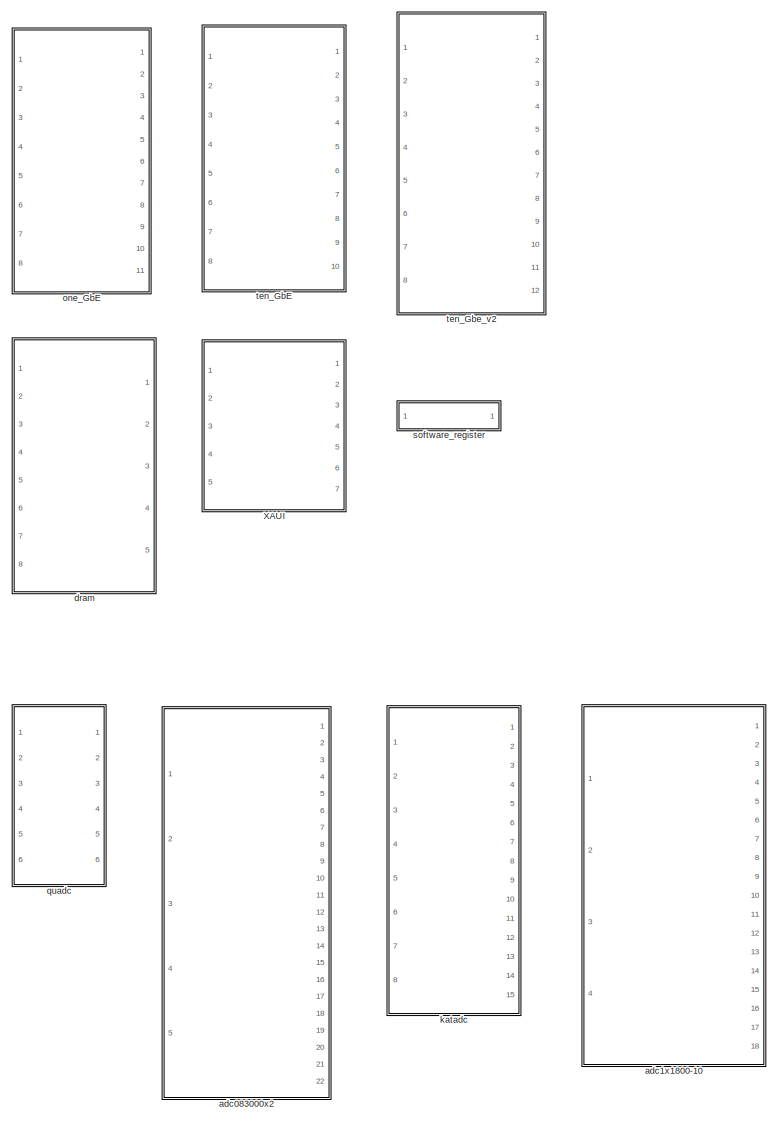
[diagram: root canvas - part 1/2, right side, full height]
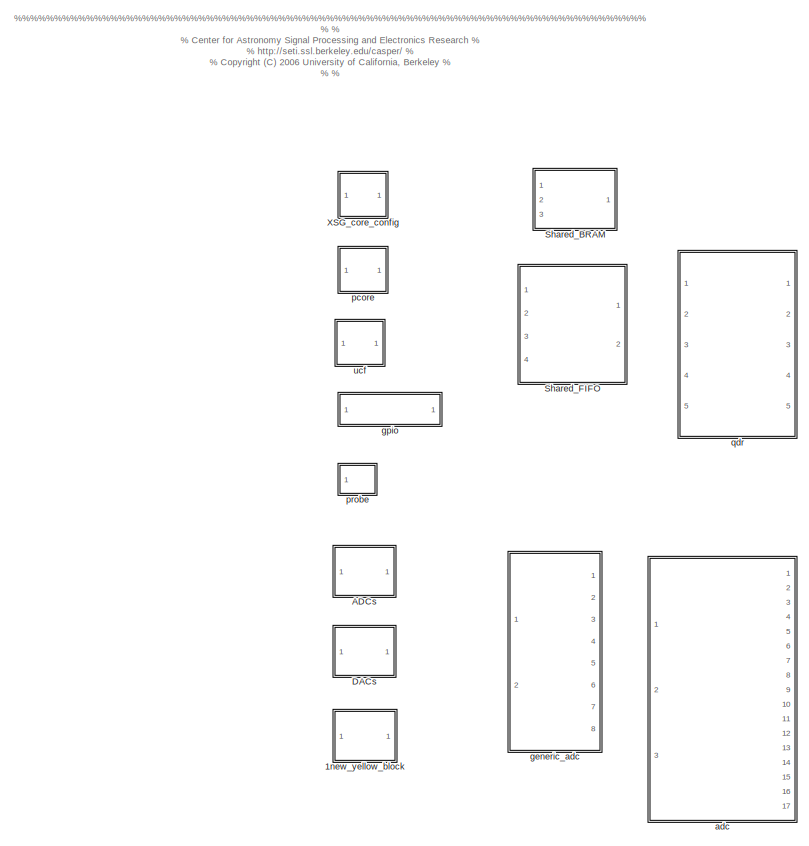
[diagram: root canvas - part 2/2, left side, full height]
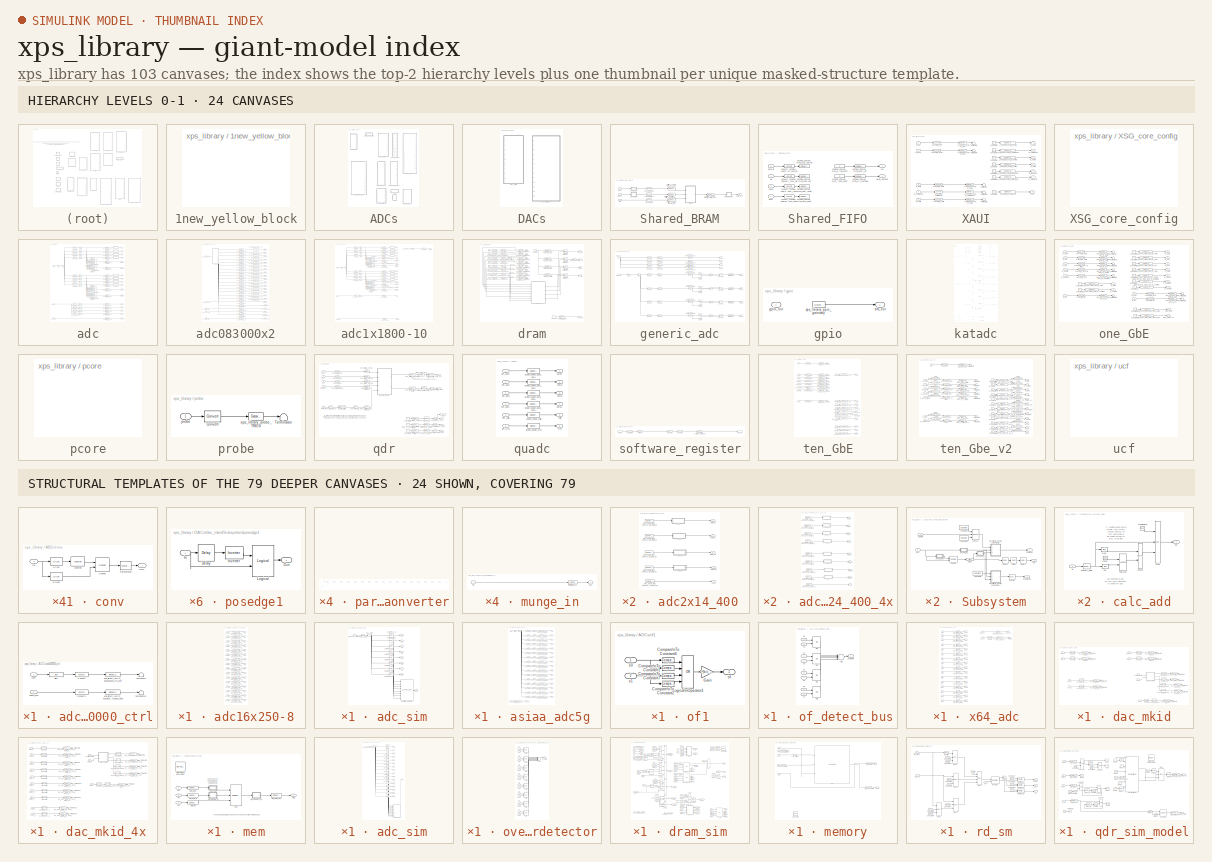
[diagram: thumbnail index - top-2 hierarchy levels (24 canvases) + 24 structural-template representatives of the remaining 79 canvases]
MODEL xps_library
KIND library
BLOCK [SubSystem] 1new_yellow_block
  FunctionWithSeparateData = off
  MaskHideContents = off
  MinAlgLoopOccurrences = off
  Opaque = off
  Ports = []
  PropExecContextOutsideSubsystem = off
  RTWSystemCode = Auto
  RequestExecContextInheritance = off
  SID = 1
  Tag = xps:block_name
BLOCK [SubSystem] ADCs
  FunctionWithSeparateData = off
  MaskHideContents = off
  MinAlgLoopOccurrences = off
  Opaque = off
  Ports = []
  PropExecContextOutsideSubsystem = off
  RTWSystemCode = Auto
  RequestExecContextInheritance = off
  SID = 2
BLOCK [SubSystem] ADCs/adc083000_ctrl
  FunctionWithSeparateData = off
  MaskHideContents = off
  MinAlgLoopOccurrences = off
  Opaque = off
  Ports = [2]
  PropExecContextOutsideSubsystem = off
  RTWSystemCode = Auto
  RequestExecContextInheritance = off
  SID = 3
  Tag = xps:adc083000_ctrl
BLOCK [Reference] ADCs/adc083000_ctrl/Convert  REF=xbsIndex_r4/Convert
  Ports = [1, 1]
  SID = 6
  SourceBlock = xbsIndex_r4/Convert
  SourceType = Xilinx Type Converter Block
  arith_type = Unsigned
  bin_pt = 0
  block_type = convert
  block_version = 11.4
  dbl_ovrd = off
  en = off
  exp_bits = 8
  float_type = Single
  fraction_bits = 24
  gui_display_data_type = Fixed-point
  has_advanced_control = 0
  infoedit = Hardware notes: rounding and saturating require hardware resources; truncating and wrapping do not.
  latency = 2
  n_bits = 3
  overflow = Wrap
  pipeline = off
  quantization = Truncate
  sg_icon_stat = 55,20,1,1,white,blue,0,b61d041b,right,,[ ],[ ]
  sg_mask_display = fprintf('','COMMENT: begin icon graphics');\npatch([0 55 55 0 0 ],[0 0 20 20 0 ],[0.77 0.82 0.91 ]);\nplot([0 55 55 0 0 ],[0 0 20 20 0 ]);\npatch([22.55 25.44 27.44 29.44 31.44 27.44 24.55 22.55 ],[12.22 12.22 14.22 12.22 14.22 14.22 14.22 12.22 ],[1 1 1 ]);\npatch([24.55 27.44 25.44 22.55 24.55 ],[10.22 10.22 12.22 12.22 10.22 ],[0.931 0.946 0.973 ]);\npatch([22.55 25.44 27.44 24.55 22.55 ],[8.22...<+408ch>
  sggui_pos = 20,20,636,521
  xl_area = [0,0,0,0,0,0,0]
  xl_use_area = off
BLOCK [Reference] ADCs/adc083000_ctrl/Convert1  REF=xbsIndex_r4/Convert
  Ports = [1, 1]
  SID = 7
  SourceBlock = xbsIndex_r4/Convert
  SourceType = Xilinx Type Converter Block
  arith_type = Unsigned
  bin_pt = 0
  block_type = convert
  block_version = 11.4
  dbl_ovrd = off
  en = off
  exp_bits = 8
  float_type = Single
  fraction_bits = 24
  gui_display_data_type = Fixed-point
  has_advanced_control = 0
  infoedit = Hardware notes: rounding and saturating require hardware resources; truncating and wrapping do not.
  latency = 2
  n_bits = 32
  overflow = Wrap
  pipeline = off
  quantization = Truncate
  sg_icon_stat = 55,20,1,1,white,blue,0,b61d041b,right,,[ ],[ ]
  sg_mask_display = fprintf('','COMMENT: begin icon graphics');\npatch([0 55 55 0 0 ],[0 0 20 20 0 ],[0.77 0.82 0.91 ]);\nplot([0 55 55 0 0 ],[0 0 20 20 0 ]);\npatch([22.55 25.44 27.44 29.44 31.44 27.44 24.55 22.55 ],[12.22 12.22 14.22 12.22 14.22 14.22 14.22 12.22 ],[1 1 1 ]);\npatch([24.55 27.44 25.44 22.55 24.55 ],[10.22 10.22 12.22 12.22 10.22 ],[0.931 0.946 0.973 ]);\npatch([22.55 25.44 27.44 24.55 22.55 ],[8.22...<+408ch>
  sggui_pos = 0,0,636,521
  xl_area = [0,0,0,0,0,0,0]
  xl_use_area = off
BLOCK [Reference] ADCs/adc083000_ctrl/Slice  REF=xbsIndex_r4/Slice
  Ports = [1, 1]
  SID = 8
  SourceBlock = xbsIndex_r4/Slice
  SourceType = Xilinx Bit Slice Extractor Block
  base0 = LSB of Input
  base1 = MSB of Input
  bit0 = 0
  bit1 = 0
  block_type = slice
  block_version = 11.4
  boolean_output = off
  dbl_ovrd = off
  has_advanced_control = 0
  infoedit = Extracts a given range of bits from each input sample and presents it at the output.  The output type is ordinarily unsigned with binary point at zero, but can be Boolean when the slice is one bit wide.<br><br>Hardware notes: In hardware this block costs nothing.  <repeated x51 — deduplicated; at blocks: Slice, Slice1, lsw, msw, sign0_0, sign0_1, sign0_2, sign0_3, val0_0, val0_1, val0_2, val0_3, sign1_0, sign1_1, sign1_2, sign1_3, +9 more>
  mode = Lower Bit Location + Width
  nbits = 3
  sg_icon_stat = 60,20,1,1,white,blue,0,1fd851a7,right,,[ ],[ ]
  sg_mask_display = fprintf('','COMMENT: begin icon graphics');\npatch([0 60 60 0 0 ],[0 0 20 20 0 ],[0.77 0.82 0.91 ]);\nplot([0 60 60 0 0 ],[0 0 20 20 0 ]);\npatch([25.55 28.44 30.44 32.44 34.44 30.44 27.55 25.55 ],[12.22 12.22 14.22 12.22 14.22 14.22 14.22 12.22 ],[1 1 1 ]);\npatch([27.55 30.44 28.44 25.55 27.55 ],[10.22 10.22 12.22 12.22 10.22 ],[0.931 0.946 0.973 ]);\npatch([25.55 28.44 30.44 27.55 25.55 ],[8.22...<+323ch>
  sggui_pos = 20,20,631,621
BLOCK [Terminator] ADCs/adc083000_ctrl/Terminator
  SID = 9
BLOCK [Terminator] ADCs/adc083000_ctrl/Terminator1
  SID = 10
BLOCK [Inport] ADCs/adc083000_ctrl/conf
  IconDisplay = Port number
  SID = 4
BLOCK [Inport] ADCs/adc083000_ctrl/sdata_bus
  IconDisplay = Port number
  Port = 2
  SID = 5
BLOCK [Reference] ADCs/adc083000_ctrl/xps_library_ADCs_adc083000_ctrl_conf  REF=xbsIndex_r4/Gateway Out
  DACChannel = '1'
  LOCs = {}
  Ports = [1, 1]
  SID = 11
  SourceBlock = xbsIndex_r4/Gateway Out
  SourceType = Xilinx Gateway Out Block
  UseAsDAC = off
  block_type = gatewayout
  block_version = 11.4
  has_advanced_control = 0
  hdl_port = on
  infoedit = Gateway out block.  Converts Xilinx fixed point inputs into ouputs of type Simulink integer, double, or fixed point.<br><br>Hardware notes:  In hardware these blocks become top level output ports or are discarded, depending on how they are configured.  <repeated x4 — deduplicated; at blocks: xps_library_ADCs_adc083000_ctrl_conf, xps_library_ADCs_adc083000_ctrl_sdata_bus, xps_library_ADCs_x64_adc_user_rst, xps_library_adc1x1800_10_user_bist>
  inherit_from_input = off
  locs_specified = off
  sg_icon_stat = 60,20,1,1,white,yellow,1,cc31b7ac,right,,[ ],[ ]
  sg_mask_display = fprintf('','COMMENT: begin icon graphics');\npatch([0 60 60 0 0 ],[0 0 20 20 0 ],[0.95 0.93 0.65 ]);\nplot([0 60 60 0 0 ],[0 0 20 20 0 ]);\npatch([25.55 28.44 30.44 32.44 34.44 30.44 27.55 25.55 ],[12.22 12.22 14.22 12.22 14.22 14.22 14.22 12.22 ],[1 1 1 ]);\npatch([27.55 30.44 28.44 25.55 27.55 ],[10.22 10.22 12.22 12.22 10.22 ],[0.985 0.979 0.895 ]);\npatch([25.55 28.44 30.44 27.55 25.55 ],[8.22...<+397ch>  <repeated x29 — deduplicated; at blocks: xps_library_ADCs_adc083000_ctrl_conf, xps_library_ADCs_adc083000_ctrl_sdata_bus, xps_library_ADCs_x64_adc_user_rst, foo_dac_mkid_dac_data_i0, foo_dac_mkid_dac_data_i1, foo_dac_mkid_dac_data_q0, foo_dac_mkid_dac_data_q1, foo_dac_mkid_dac_sync_i, foo_dac_mkid_dac_sync_q, foo_dac_mkid_not_reset, foo_dac_mkid_not_sdenb_i, foo_dac_mkid_not_sdenb_q, foo_dac_mkid_sclk, foo_dac_mkid_sdi, foo_dac_mkid_4x_not_reset, foo_dac_mkid_4x_not_sdenb_i, +13 more>
  sggui_pos = -1,-1,-1,-1
  timing_constraint = None
  xl_area = [0,0,0,0,0,0,0]
  xl_use_area = off
BLOCK [Reference] ADCs/adc083000_ctrl/xps_library_ADCs_adc083000_ctrl_sdata_bus  REF=xbsIndex_r4/Gateway Out
  DACChannel = '1'
  LOCs = {}
  Ports = [1, 1]
  SID = 12
  SourceBlock = xbsIndex_r4/Gateway Out
  SourceType = Xilinx Gateway Out Block
  UseAsDAC = off
  block_type = gatewayout
  block_version = 11.4
  has_advanced_control = 0
  hdl_port = on
  inherit_from_input = off
  locs_specified = off
  sg_icon_stat = 60,20,1,1,white,yellow,1,cc31b7ac,right,,[ ],[ ]
  sggui_pos = -1,-1,-1,-1
  timing_constraint = None
  xl_area = [0,0,0,0,0,0,0]
  xl_use_area = off
BLOCK [SubSystem] ADCs/adc16x250-8
  AttributesFormatString = r2 rev%<roach2_rev>\\nzdok rev%<zdok_rev>
  FunctionWithSeparateData = off
  MaskHideContents = off
  MinAlgLoopOccurrences = off
  Opaque = off
  Ports = [16, 16]
  PropExecContextOutsideSubsystem = off
  RTWSystemCode = Auto
  RequestExecContextInheritance = off
  SID = 13
  Tag = xps:adc16
  UserData = DataTag0
  UserDataPersistent = on
BLOCK [Outport] ADCs/adc16x250-8/a1
  IconDisplay = Port number
  SID = 13:33
BLOCK [Inport] ADCs/adc16x250-8/a1_sim
  IconDisplay = Port number
  SID = 13:1
BLOCK [Outport] ADCs/adc16x250-8/a2
  IconDisplay = Port number
  Port = 2
  SID = 13:34
BLOCK [Inport] ADCs/adc16x250-8/a2_sim
  IconDisplay = Port number
  Port = 2
  SID = 13:2
BLOCK [Outport] ADCs/adc16x250-8/a3
  IconDisplay = Port number
  Port = 3
  SID = 13:35
BLOCK [Inport] ADCs/adc16x250-8/a3_sim
  IconDisplay = Port number
  Port = 3
  SID = 13:3
BLOCK [Outport] ADCs/adc16x250-8/a4
  IconDisplay = Port number
  Port = 4
  SID = 13:36
BLOCK [Inport] ADCs/adc16x250-8/a4_sim
  IconDisplay = Port number
  Port = 4
  SID = 13:4
BLOCK [Outport] ADCs/adc16x250-8/b1
  IconDisplay = Port number
  Port = 5
  SID = 13:37
BLOCK [Inport] ADCs/adc16x250-8/b1_sim
  IconDisplay = Port number
  Port = 5
  SID = 13:5
BLOCK [Outport] ADCs/adc16x250-8/b2
  IconDisplay = Port number
  Port = 6
  SID = 13:38
BLOCK [Inport] ADCs/adc16x250-8/b2_sim
  IconDisplay = Port number
  Port = 6
  SID = 13:6
BLOCK [Outport] ADCs/adc16x250-8/b3
  IconDisplay = Port number
  Port = 7
  SID = 13:39
BLOCK [Inport] ADCs/adc16x250-8/b3_sim
  IconDisplay = Port number
  Port = 7
  SID = 13:7
BLOCK [Outport] ADCs/adc16x250-8/b4
  IconDisplay = Port number
  Port = 8
  SID = 13:40
BLOCK [Inport] ADCs/adc16x250-8/b4_sim
  IconDisplay = Port number
  Port = 8
  SID = 13:8
BLOCK [Outport] ADCs/adc16x250-8/c1
  IconDisplay = Port number
  Port = 9
  SID = 13:41
BLOCK [Inport] ADCs/adc16x250-8/c1_sim
  IconDisplay = Port number
  Port = 9
  SID = 13:9
BLOCK [Outport] ADCs/adc16x250-8/c2
  IconDisplay = Port number
  Port = 10
  SID = 13:42
BLOCK [Inport] ADCs/adc16x250-8/c2_sim
  IconDisplay = Port number
  Port = 10
  SID = 13:10
BLOCK [Outport] ADCs/adc16x250-8/c3
  IconDisplay = Port number
  Port = 11
  SID = 13:43
BLOCK [Inport] ADCs/adc16x250-8/c3_sim
  IconDisplay = Port number
  Port = 11
  SID = 13:11
BLOCK [Outport] ADCs/adc16x250-8/c4
  IconDisplay = Port number
  Port = 12
  SID = 13:44
BLOCK [Inport] ADCs/adc16x250-8/c4_sim
  IconDisplay = Port number
  Port = 12
  SID = 13:12
BLOCK [Outport] ADCs/adc16x250-8/d1
  IconDisplay = Port number
  Port = 13
  SID = 13:45
BLOCK [Inport] ADCs/adc16x250-8/d1_sim
  IconDisplay = Port number
  Port = 13
  SID = 13:13
BLOCK [Outport] ADCs/adc16x250-8/d2
  IconDisplay = Port number
  Port = 14
  SID = 13:46
BLOCK [Inport] ADCs/adc16x250-8/d2_sim
  IconDisplay = Port number
  Port = 14
  SID = 13:14
BLOCK [Outport] ADCs/adc16x250-8/d3
  IconDisplay = Port number
  Port = 15
  SID = 13:47
BLOCK [Inport] ADCs/adc16x250-8/d3_sim
  IconDisplay = Port number
  Port = 15
  SID = 13:15
BLOCK [Outport] ADCs/adc16x250-8/d4
  IconDisplay = Port number
  Port = 16
  SID = 13:48
BLOCK [Inport] ADCs/adc16x250-8/d4_sim
  IconDisplay = Port number
  Port = 16
  SID = 13:16
BLOCK [Reference] ADCs/adc16x250-8/xps_library_ADCs_adc16x250_8_a1  REF=xbsIndex_r4/Gateway In
  ADCChannel = '1'
  LOCs = {}
  Ports = [1, 1]
  SID = 13:17
  SourceBlock = xbsIndex_r4/Gateway In
  SourceType = Xilinx Gateway In Block
  UseAsADC = off
  arith_type = Signed  (2's comp)
  bin_pt = 7
  block_type = gatewayin
  dbl_ovrd = off
  exp_width = 8
  frac_width = 24
  gui_display_data_type = Fixed-point
  has_advanced_control = 0
  hdl_port = on
  infoedit = Gateway in block.  Converts inputs of type Simulink integer, single, double and fixed-point to  Xilinx fixed-point or floating-point data type.<br><br>Hardware notes:  In hardware these blocks become top level input ports.  <repeated x72 — deduplicated; at blocks: xps_library_ADCs_adc16x250_8_a1, xps_library_ADCs_adc16x250_8_a2, xps_library_ADCs_adc16x250_8_a3, xps_library_ADCs_adc16x250_8_a4, xps_library_ADCs_adc16x250_8_b1, xps_library_ADCs_adc16x250_8_b2, xps_library_ADCs_adc16x250_8_b3, xps_library_ADCs_adc16x250_8_b4, xps_library_ADCs_adc16x250_8_c1, xps_library_ADCs_adc16x250_8_c2, xps_library_ADCs_adc16x250_8_c3, xps_library_ADCs_adc16x250_8_c4, xps_library_ADCs_adc16x250_8_d1, xps_library_ADCs_adc16x250_8_d2, xps_library_ADCs_adc16x250_8_d3, xps_library_ADCs_adc16x250_8_d4, +56 more>
  inherit_from_input = off
  locs_specified = off
  n_bits = 8
  overflow = Saturate
  period = 1
  preci_type = Single
  quantization = Round  (unbiased: +/- Inf)
  sg_icon_stat = 70,20,1,1,white,yellow,1,00d3666e,right,,[ ],[ ]
  sg_mask_display = fprintf('','COMMENT: begin icon graphics');\npatch([0 70 70 0 0 ],[0 0 20 20 0 ],[0.95 0.93 0.65 ]);\nplot([0 70 70 0 0 ],[0 0 20 20 0 ]);\npatch([30.55 33.44 35.44 37.44 39.44 35.44 32.55 30.55 ],[12.22 12.22 14.22 12.22 14.22 14.22 14.22 12.22 ],[1 1 1 ]);\npatch([32.55 35.44 33.44 30.55 32.55 ],[10.22 10.22 12.22 12.22 10.22 ],[0.985 0.979 0.895 ]);\npatch([30.55 33.44 35.44 32.55 30.55 ],[8.22...<+396ch>  <repeated x16 — deduplicated; at blocks: xps_library_ADCs_adc16x250_8_a1, xps_library_ADCs_adc16x250_8_a2, xps_library_ADCs_adc16x250_8_a3, xps_library_ADCs_adc16x250_8_a4, xps_library_ADCs_adc16x250_8_b1, xps_library_ADCs_adc16x250_8_b2, xps_library_ADCs_adc16x250_8_b3, xps_library_ADCs_adc16x250_8_b4, xps_library_ADCs_adc16x250_8_c1, xps_library_ADCs_adc16x250_8_c2, xps_library_ADCs_adc16x250_8_c3, xps_library_ADCs_adc16x250_8_c4, xps_library_ADCs_adc16x250_8_d1, xps_library_ADCs_adc16x250_8_d2, xps_library_ADCs_adc16x250_8_d3, xps_library_ADCs_adc16x250_8_d4>
  sggui_pos = -1,-1,-1,-1
  timing_constraint = None
  xl_area = [0,0,0,0,0,0,0]
  xl_use_area = off
BLOCK [Reference] ADCs/adc16x250-8/xps_library_ADCs_adc16x250_8_a2  REF=xbsIndex_r4/Gateway In
  ADCChannel = '1'
  LOCs = {}
  Ports = [1, 1]
  SID = 13:18
  SourceBlock = xbsIndex_r4/Gateway In
  SourceType = Xilinx Gateway In Block
  UseAsADC = off
  arith_type = Signed  (2's comp)
  bin_pt = 7
  block_type = gatewayin
  dbl_ovrd = off
  exp_width = 8
  frac_width = 24
  gui_display_data_type = Fixed-point
  has_advanced_control = 0
  hdl_port = on
  inherit_from_input = off
  locs_specified = off
  n_bits = 8
  overflow = Saturate
  period = 1
  preci_type = Single
  quantization = Round  (unbiased: +/- Inf)
  sg_icon_stat = 70,20,1,1,white,yellow,1,00d3666e,right,,[ ],[ ]
  sggui_pos = -1,-1,-1,-1
  timing_constraint = None
  xl_area = [0,0,0,0,0,0,0]
  xl_use_area = off
BLOCK [Reference] ADCs/adc16x250-8/xps_library_ADCs_adc16x250_8_a3  REF=xbsIndex_r4/Gateway In
  ADCChannel = '1'
  LOCs = {}
  Ports = [1, 1]
  SID = 13:19
  SourceBlock = xbsIndex_r4/Gateway In
  SourceType = Xilinx Gateway In Block
  UseAsADC = off
  arith_type = Signed  (2's comp)
  bin_pt = 7
  block_type = gatewayin
  dbl_ovrd = off
  exp_width = 8
  frac_width = 24
  gui_display_data_type = Fixed-point
  has_advanced_control = 0
  hdl_port = on
  inherit_from_input = off
  locs_specified = off
  n_bits = 8
  overflow = Saturate
  period = 1
  preci_type = Single
  quantization = Round  (unbiased: +/- Inf)
  sg_icon_stat = 70,20,1,1,white,yellow,1,00d3666e,right,,[ ],[ ]
  sggui_pos = -1,-1,-1,-1
  timing_constraint = None
  xl_area = [0,0,0,0,0,0,0]
  xl_use_area = off
BLOCK [Reference] ADCs/adc16x250-8/xps_library_ADCs_adc16x250_8_a4  REF=xbsIndex_r4/Gateway In
  ADCChannel = '1'
  LOCs = {}
  Ports = [1, 1]
  SID = 13:20
  SourceBlock = xbsIndex_r4/Gateway In
  SourceType = Xilinx Gateway In Block
  UseAsADC = off
  arith_type = Signed  (2's comp)
  bin_pt = 7
  block_type = gatewayin
  dbl_ovrd = off
  exp_width = 8
  frac_width = 24
  gui_display_data_type = Fixed-point
  has_advanced_control = 0
  hdl_port = on
  inherit_from_input = off
  locs_specified = off
  n_bits = 8
  overflow = Saturate
  period = 1
  preci_type = Single
  quantization = Round  (unbiased: +/- Inf)
  sg_icon_stat = 70,20,1,1,white,yellow,1,00d3666e,right,,[ ],[ ]
  sggui_pos = -1,-1,-1,-1
  timing_constraint = None
  xl_area = [0,0,0,0,0,0,0]
  xl_use_area = off
BLOCK [Reference] ADCs/adc16x250-8/xps_library_ADCs_adc16x250_8_b1  REF=xbsIndex_r4/Gateway In
  ADCChannel = '1'
  LOCs = {}
  Ports = [1, 1]
  SID = 13:21
  SourceBlock = xbsIndex_r4/Gateway In
  SourceType = Xilinx Gateway In Block
  UseAsADC = off
  arith_type = Signed  (2's comp)
  bin_pt = 7
  block_type = gatewayin
  dbl_ovrd = off
  exp_width = 8
  frac_width = 24
  gui_display_data_type = Fixed-point
  has_advanced_control = 0
  hdl_port = on
  inherit_from_input = off
  locs_specified = off
  n_bits = 8
  overflow = Saturate
  period = 1
  preci_type = Single
  quantization = Round  (unbiased: +/- Inf)
  sg_icon_stat = 70,20,1,1,white,yellow,1,00d3666e,right,,[ ],[ ]
  sggui_pos = -1,-1,-1,-1
  timing_constraint = None
  xl_area = [0,0,0,0,0,0,0]
  xl_use_area = off
BLOCK [Reference] ADCs/adc16x250-8/xps_library_ADCs_adc16x250_8_b2  REF=xbsIndex_r4/Gateway In
  ADCChannel = '1'
  LOCs = {}
  Ports = [1, 1]
  SID = 13:22
  SourceBlock = xbsIndex_r4/Gateway In
  SourceType = Xilinx Gateway In Block
  UseAsADC = off
  arith_type = Signed  (2's comp)
  bin_pt = 7
  block_type = gatewayin
  dbl_ovrd = off
  exp_width = 8
  frac_width = 24
  gui_display_data_type = Fixed-point
  has_advanced_control = 0
  hdl_port = on
  inherit_from_input = off
  locs_specified = off
  n_bits = 8
  overflow = Saturate
  period = 1
  preci_type = Single
  quantization = Round  (unbiased: +/- Inf)
  sg_icon_stat = 70,20,1,1,white,yellow,1,00d3666e,right,,[ ],[ ]
  sggui_pos = -1,-1,-1,-1
  timing_constraint = None
  xl_area = [0,0,0,0,0,0,0]
  xl_use_area = off
BLOCK [Reference] ADCs/adc16x250-8/xps_library_ADCs_adc16x250_8_b3  REF=xbsIndex_r4/Gateway In
  ADCChannel = '1'
  LOCs = {}
  Ports = [1, 1]
  SID = 13:23
  SourceBlock = xbsIndex_r4/Gateway In
  SourceType = Xilinx Gateway In Block
  UseAsADC = off
  arith_type = Signed  (2's comp)
  bin_pt = 7
  block_type = gatewayin
  dbl_ovrd = off
  exp_width = 8
  frac_width = 24
  gui_display_data_type = Fixed-point
  has_advanced_control = 0
  hdl_port = on
  inherit_from_input = off
  locs_specified = off
  n_bits = 8
  overflow = Saturate
  period = 1
  preci_type = Single
  quantization = Round  (unbiased: +/- Inf)
  sg_icon_stat = 70,20,1,1,white,yellow,1,00d3666e,right,,[ ],[ ]
  sggui_pos = -1,-1,-1,-1
  timing_constraint = None
  xl_area = [0,0,0,0,0,0,0]
  xl_use_area = off
BLOCK [Reference] ADCs/adc16x250-8/xps_library_ADCs_adc16x250_8_b4  REF=xbsIndex_r4/Gateway In
  ADCChannel = '1'
  LOCs = {}
  Ports = [1, 1]
  SID = 13:24
  SourceBlock = xbsIndex_r4/Gateway In
  SourceType = Xilinx Gateway In Block
  UseAsADC = off
  arith_type = Signed  (2's comp)
  bin_pt = 7
  block_type = gatewayin
  dbl_ovrd = off
  exp_width = 8
  frac_width = 24
  gui_display_data_type = Fixed-point
  has_advanced_control = 0
  hdl_port = on
  inherit_from_input = off
  locs_specified = off
  n_bits = 8
  overflow = Saturate
  period = 1
  preci_type = Single
  quantization = Round  (unbiased: +/- Inf)
  sg_icon_stat = 70,20,1,1,white,yellow,1,00d3666e,right,,[ ],[ ]
  sggui_pos = -1,-1,-1,-1
  timing_constraint = None
  xl_area = [0,0,0,0,0,0,0]
  xl_use_area = off
BLOCK [Reference] ADCs/adc16x250-8/xps_library_ADCs_adc16x250_8_c1  REF=xbsIndex_r4/Gateway In
  ADCChannel = '1'
  LOCs = {}
  Ports = [1, 1]
  SID = 13:25
  SourceBlock = xbsIndex_r4/Gateway In
  SourceType = Xilinx Gateway In Block
  UseAsADC = off
  arith_type = Signed  (2's comp)
  bin_pt = 7
  block_type = gatewayin
  dbl_ovrd = off
  exp_width = 8
  frac_width = 24
  gui_display_data_type = Fixed-point
  has_advanced_control = 0
  hdl_port = on
  inherit_from_input = off
  locs_specified = off
  n_bits = 8
  overflow = Saturate
  period = 1
  preci_type = Single
  quantization = Round  (unbiased: +/- Inf)
  sg_icon_stat = 70,20,1,1,white,yellow,1,00d3666e,right,,[ ],[ ]
  sggui_pos = -1,-1,-1,-1
  timing_constraint = None
  xl_area = [0,0,0,0,0,0,0]
  xl_use_area = off
BLOCK [Reference] ADCs/adc16x250-8/xps_library_ADCs_adc16x250_8_c2  REF=xbsIndex_r4/Gateway In
  ADCChannel = '1'
  LOCs = {}
  Ports = [1, 1]
  SID = 13:26
  SourceBlock = xbsIndex_r4/Gateway In
  SourceType = Xilinx Gateway In Block
  UseAsADC = off
  arith_type = Signed  (2's comp)
  bin_pt = 7
  block_type = gatewayin
  dbl_ovrd = off
  exp_width = 8
  frac_width = 24
  gui_display_data_type = Fixed-point
  has_advanced_control = 0
  hdl_port = on
  inherit_from_input = off
  locs_specified = off
  n_bits = 8
  overflow = Saturate
  period = 1
  preci_type = Single
  quantization = Round  (unbiased: +/- Inf)
  sg_icon_stat = 70,20,1,1,white,yellow,1,00d3666e,right,,[ ],[ ]
  sggui_pos = -1,-1,-1,-1
  timing_constraint = None
  xl_area = [0,0,0,0,0,0,0]
  xl_use_area = off
BLOCK [Reference] ADCs/adc16x250-8/xps_library_ADCs_adc16x250_8_c3  REF=xbsIndex_r4/Gateway In
  ADCChannel = '1'
  LOCs = {}
  Ports = [1, 1]
  SID = 13:27
  SourceBlock = xbsIndex_r4/Gateway In
  SourceType = Xilinx Gateway In Block
  UseAsADC = off
  arith_type = Signed  (2's comp)
  bin_pt = 7
  block_type = gatewayin
  dbl_ovrd = off
  exp_width = 8
  frac_width = 24
  gui_display_data_type = Fixed-point
  has_advanced_control = 0
  hdl_port = on
  inherit_from_input = off
  locs_specified = off
  n_bits = 8
  overflow = Saturate
  period = 1
  preci_type = Single
  quantization = Round  (unbiased: +/- Inf)
  sg_icon_stat = 70,20,1,1,white,yellow,1,00d3666e,right,,[ ],[ ]
  sggui_pos = -1,-1,-1,-1
  timing_constraint = None
  xl_area = [0,0,0,0,0,0,0]
  xl_use_area = off
BLOCK [Reference] ADCs/adc16x250-8/xps_library_ADCs_adc16x250_8_c4  REF=xbsIndex_r4/Gateway In
  ADCChannel = '1'
  LOCs = {}
  Ports = [1, 1]
  SID = 13:28
  SourceBlock = xbsIndex_r4/Gateway In
  SourceType = Xilinx Gateway In Block
  UseAsADC = off
  arith_type = Signed  (2's comp)
  bin_pt = 7
  block_type = gatewayin
  dbl_ovrd = off
  exp_width = 8
  frac_width = 24
  gui_display_data_type = Fixed-point
  has_advanced_control = 0
  hdl_port = on
  inherit_from_input = off
  locs_specified = off
  n_bits = 8
  overflow = Saturate
  period = 1
  preci_type = Single
  quantization = Round  (unbiased: +/- Inf)
  sg_icon_stat = 70,20,1,1,white,yellow,1,00d3666e,right,,[ ],[ ]
  sggui_pos = -1,-1,-1,-1
  timing_constraint = None
  xl_area = [0,0,0,0,0,0,0]
  xl_use_area = off
BLOCK [Reference] ADCs/adc16x250-8/xps_library_ADCs_adc16x250_8_d1  REF=xbsIndex_r4/Gateway In
  ADCChannel = '1'
  LOCs = {}
  Ports = [1, 1]
  SID = 13:29
  SourceBlock = xbsIndex_r4/Gateway In
  SourceType = Xilinx Gateway In Block
  UseAsADC = off
  arith_type = Signed  (2's comp)
  bin_pt = 7
  block_type = gatewayin
  dbl_ovrd = off
  exp_width = 8
  frac_width = 24
  gui_display_data_type = Fixed-point
  has_advanced_control = 0
  hdl_port = on
  inherit_from_input = off
  locs_specified = off
  n_bits = 8
  overflow = Saturate
  period = 1
  preci_type = Single
  quantization = Round  (unbiased: +/- Inf)
  sg_icon_stat = 70,20,1,1,white,yellow,1,00d3666e,right,,[ ],[ ]
  sggui_pos = -1,-1,-1,-1
  timing_constraint = None
  xl_area = [0,0,0,0,0,0,0]
  xl_use_area = off
BLOCK [Reference] ADCs/adc16x250-8/xps_library_ADCs_adc16x250_8_d2  REF=xbsIndex_r4/Gateway In
  ADCChannel = '1'
  LOCs = {}
  Ports = [1, 1]
  SID = 13:30
  SourceBlock = xbsIndex_r4/Gateway In
  SourceType = Xilinx Gateway In Block
  UseAsADC = off
  arith_type = Signed  (2's comp)
  bin_pt = 7
  block_type = gatewayin
  dbl_ovrd = off
  exp_width = 8
  frac_width = 24
  gui_display_data_type = Fixed-point
  has_advanced_control = 0
  hdl_port = on
  inherit_from_input = off
  locs_specified = off
  n_bits = 8
  overflow = Saturate
  period = 1
  preci_type = Single
  quantization = Round  (unbiased: +/- Inf)
  sg_icon_stat = 70,20,1,1,white,yellow,1,00d3666e,right,,[ ],[ ]
  sggui_pos = -1,-1,-1,-1
  timing_constraint = None
  xl_area = [0,0,0,0,0,0,0]
  xl_use_area = off
BLOCK [Reference] ADCs/adc16x250-8/xps_library_ADCs_adc16x250_8_d3  REF=xbsIndex_r4/Gateway In
  ADCChannel = '1'
  LOCs = {}
  Ports = [1, 1]
  SID = 13:31
  SourceBlock = xbsIndex_r4/Gateway In
  SourceType = Xilinx Gateway In Block
  UseAsADC = off
  arith_type = Signed  (2's comp)
  bin_pt = 7
  block_type = gatewayin
  dbl_ovrd = off
  exp_width = 8
  frac_width = 24
  gui_display_data_type = Fixed-point
  has_advanced_control = 0
  hdl_port = on
  inherit_from_input = off
  locs_specified = off
  n_bits = 8
  overflow = Saturate
  period = 1
  preci_type = Single
  quantization = Round  (unbiased: +/- Inf)
  sg_icon_stat = 70,20,1,1,white,yellow,1,00d3666e,right,,[ ],[ ]
  sggui_pos = -1,-1,-1,-1
  timing_constraint = None
  xl_area = [0,0,0,0,0,0,0]
  xl_use_area = off
BLOCK [Reference] ADCs/adc16x250-8/xps_library_ADCs_adc16x250_8_d4  REF=xbsIndex_r4/Gateway In
  ADCChannel = '1'
  LOCs = {}
  Ports = [1, 1]
  SID = 13:32
  SourceBlock = xbsIndex_r4/Gateway In
  SourceType = Xilinx Gateway In Block
  UseAsADC = off
  arith_type = Signed  (2's comp)
  bin_pt = 7
  block_type = gatewayin
  dbl_ovrd = off
  exp_width = 8
  frac_width = 24
  gui_display_data_type = Fixed-point
  has_advanced_control = 0
  hdl_port = on
  inherit_from_input = off
  locs_specified = off
  n_bits = 8
  overflow = Saturate
  period = 1
  preci_type = Single
  quantization = Round  (unbiased: +/- Inf)
  sg_icon_stat = 70,20,1,1,white,yellow,1,00d3666e,right,,[ ],[ ]
  sggui_pos = -1,-1,-1,-1
  timing_constraint = None
  xl_area = [0,0,0,0,0,0,0]
  xl_use_area = off
BLOCK [SubSystem] ADCs/adc2x14_400
  FunctionWithSeparateData = off
  MaskHideContents = off
  MinAlgLoopOccurrences = off
  Opaque = off
  Ports = [0, 5]
  PropExecContextOutsideSubsystem = off
  RTWSystemCode = Auto
  RequestExecContextInheritance = off
  SID = 14
  Tag = xps:adc2x14_400
BLOCK [Reference] ADCs/adc2x14_400/adc_snap_test_zdock0_adc2x14_400_user_data_i0  REF=xbsIndex_r4/Gateway In
  LOCs = {}
  Ports = [1, 1]
  SID = 14:1
  SourceBlock = xbsIndex_r4/Gateway In
  SourceType = Xilinx Gateway In Block
  arith_type = Unsigned
  bin_pt = 0
  block_type = gatewayin
  block_version = 10.1.3
  dbl_ovrd = off
  exp_width = 8
  frac_width = 24
  gui_display_data_type = Fixed-point
  has_advanced_control = 0
  hdl_port = on
  infoedit = Gateway in block.  Converts inputs of type Simulink integer, double and fixed point to  Xilinx fixed point type.<P><P>Hardware notes:  In hardware these blocks become top level input ports.  <repeated x109 — deduplicated; at blocks: adc_snap_test_zdock0_adc2x14_400_user_data_i0, adc_snap_test_zdock0_adc2x14_400_user_data_i1, adc_snap_test_zdock0_adc2x14_400_user_data_q0, adc_snap_test_zdock0_adc2x14_400_user_data_q1, adc_snap_test_zdock0_adc2x14_400_user_sync, xps_library_ADCs_adc2x14_400_4x_user_data_i0, xps_library_ADCs_adc2x14_400_4x_user_data_i1, xps_library_ADCs_adc2x14_400_4x_user_data_i2, xps_library_ADCs_adc2x14_400_4x_user_data_i3, xps_library_ADCs_adc2x14_400_4x_user_data_q0, xps_library_ADCs_adc2x14_400_4x_user_data_q1, xps_library_ADCs_adc2x14_400_4x_user_data_q2, xps_library_ADCs_adc2x14_400_4x_user_data_q3, xps_library_ADCs_adc2x14_400_4x_user_sync, xps_library_ADCs_adc_mkid_user_data_i0, xps_library_ADCs_adc_mkid_user_data_i1, +93 more>
  locs_specified = off
  n_bits = 14
  overflow = Wrap
  period = 1
  preci_type = Single
  quantization = Truncate
  sg_icon_stat = 55,22,1,1,white,yellow,1,00d3666e,right,,[ ],[ ]
  sg_mask_display = fprintf('','COMMENT: begin icon graphics');\npatch([0 55 55 0 0 ],[0 0 22 22 0 ],[0.95 0.93 0.65 ]);\nplot([0 55 55 0 0 ],[0 0 22 22 0 ]);\npatch([20.325 24.66 27.66 30.66 33.66 27.66 23.325 20.325 ],[14.33 14.33 17.33 14.33 17.33 17.33 17.33 14.33 ],[1 1 1 ]);\npatch([23.325 27.66 24.66 20.325 23.325 ],[11.33 11.33 14.33 14.33 11.33 ],[0.985 0.979 0.895 ]);\npatch([20.325 24.66 27.66 23.325 20.32...<+408ch>  <repeated x39 — deduplicated; at blocks: adc_snap_test_zdock0_adc2x14_400_user_data_i0, adc_snap_test_zdock0_adc2x14_400_user_data_i1, adc_snap_test_zdock0_adc2x14_400_user_data_q0, adc_snap_test_zdock0_adc2x14_400_user_data_q1, adc_snap_test_zdock0_adc2x14_400_user_sync, xps_library_ADCs_adc2x14_400_4x_user_data_i0, xps_library_ADCs_adc2x14_400_4x_user_data_i1, xps_library_ADCs_adc2x14_400_4x_user_data_i2, xps_library_ADCs_adc2x14_400_4x_user_data_i3, xps_library_ADCs_adc2x14_400_4x_user_data_q0, xps_library_ADCs_adc2x14_400_4x_user_data_q1, xps_library_ADCs_adc2x14_400_4x_user_data_q2, xps_library_ADCs_adc2x14_400_4x_user_data_q3, xps_library_ADCs_adc2x14_400_4x_user_sync, xps_library_ADCs_adc_mkid_user_data_i0, xps_library_ADCs_adc_mkid_user_data_i1, +23 more>
  sggui_pos = 20,20,348,408
  timing_constraint = None
  xl_area = [0, 0, 0, 0, 0, 0, 0]
  xl_use_area = off
BLOCK [Reference] ADCs/adc2x14_400/adc_snap_test_zdock0_adc2x14_400_user_data_i1  REF=xbsIndex_r4/Gateway In
  LOCs = {}
  Ports = [1, 1]
  SID = 14:2
  SourceBlock = xbsIndex_r4/Gateway In
  SourceType = Xilinx Gateway In Block
  arith_type = Unsigned
  bin_pt = 0
  block_type = gatewayin
  block_version = 10.1.3
  dbl_ovrd = off
  exp_width = 8
  frac_width = 24
  gui_display_data_type = Fixed-point
  has_advanced_control = 0
  hdl_port = on
  locs_specified = off
  n_bits = 14
  overflow = Wrap
  period = 1
  preci_type = Single
  quantization = Truncate
  sg_icon_stat = 55,22,1,1,white,yellow,1,00d3666e,right,,[ ],[ ]
  sggui_pos = 20,20,348,408
  timing_constraint = None
  xl_area = [0, 0, 0, 0, 0, 0, 0]
  xl_use_area = off
BLOCK [Reference] ADCs/adc2x14_400/adc_snap_test_zdock0_adc2x14_400_user_data_q0  REF=xbsIndex_r4/Gateway In
  LOCs = {}
  Ports = [1, 1]
  SID = 14:3
  SourceBlock = xbsIndex_r4/Gateway In
  SourceType = Xilinx Gateway In Block
  arith_type = Unsigned
  bin_pt = 0
  block_type = gatewayin
  block_version = 10.1.3
  dbl_ovrd = off
  exp_width = 8
  frac_width = 24
  gui_display_data_type = Fixed-point
  has_advanced_control = 0
  hdl_port = on
  locs_specified = off
  n_bits = 14
  overflow = Wrap
  period = 1
  preci_type = Single
  quantization = Truncate
  sg_icon_stat = 55,22,1,1,white,yellow,1,00d3666e,right,,[ ],[ ]
  sggui_pos = 20,20,348,408
  timing_constraint = None
  xl_area = [0, 0, 0, 0, 0, 0, 0]
  xl_use_area = off
BLOCK [Reference] ADCs/adc2x14_400/adc_snap_test_zdock0_adc2x14_400_user_data_q1  REF=xbsIndex_r4/Gateway In
  LOCs = {}
  Ports = [1, 1]
  SID = 14:4
  SourceBlock = xbsIndex_r4/Gateway In
  SourceType = Xilinx Gateway In Block
  arith_type = Unsigned
  bin_pt = 0
  block_type = gatewayin
  block_version = 10.1.3
  dbl_ovrd = off
  exp_width = 8
  frac_width = 24
  gui_display_data_type = Fixed-point
  has_advanced_control = 0
  hdl_port = on
  locs_specified = off
  n_bits = 14
  overflow = Wrap
  period = 1
  preci_type = Single
  quantization = Truncate
  sg_icon_stat = 55,22,1,1,white,yellow,1,00d3666e,right,,[ ],[ ]
  sggui_pos = 20,20,348,408
  timing_constraint = None
  xl_area = [0, 0, 0, 0, 0, 0, 0]
  xl_use_area = off
BLOCK [Reference] ADCs/adc2x14_400/adc_snap_test_zdock0_adc2x14_400_user_sync  REF=xbsIndex_r4/Gateway In
  LOCs = {}
  Ports = [1, 1]
  SID = 14:5
  SourceBlock = xbsIndex_r4/Gateway In
  SourceType = Xilinx Gateway In Block
  arith_type = Boolean
  bin_pt = 0
  block_type = gatewayin
  block_version = 10.1.3
  dbl_ovrd = off
  exp_width = 8
  frac_width = 24
  gui_display_data_type = Fixed-point
  has_advanced_control = 0
  hdl_port = on
  locs_specified = off
  n_bits = 1
  overflow = Wrap
  period = 1
  preci_type = Single
  quantization = Truncate
  sg_icon_stat = 55,22,1,1,white,yellow,1,00d3666e,right,,[ ],[ ]
  sggui_pos = 20,20,348,408
  timing_constraint = None
  xl_area = [0, 0, 0, 0, 0, 0, 0]
  xl_use_area = off
BLOCK [SubSystem] ADCs/adc2x14_400/conv
  FunctionWithSeparateData = off
  MaskHideContents = off
  MinAlgLoopOccurrences = off
  Opaque = off
  Ports = [1, 1]
  PropExecContextOutsideSubsystem = off
  RTWSystemCode = Auto
  RequestExecContextInheritance = off
  SID = 14:6
BLOCK [Reference] ADCs/adc2x14_400/conv/Concat  REF=xbsIndex_r4/Concat
  Ports = [2, 1]
  SID = 14:8
  SourceBlock = xbsIndex_r4/Concat
  SourceType = Xilinx Bus Concatenator Block
  block_type = concat
  block_version = 8.2.02
  dbl_ovrd = off
  has_advanced_control = 0
  infoedit = Concatenates two or more inputs.  Output will be cast to an unsigned value with the binary point at zero.
  num_inputs = 2
  sg_icon_stat = 50,51,2,1,white,blue,0,16398980,right,,[ ],[ ]
  sg_mask_display = fprintf('','COMMENT: begin icon graphics');\npatch([0 50 50 0 0 ],[0 0 51 51 0 ],[0.77 0.82 0.91 ]);\nplot([0 50 50 0 0 ],[0 0 51 51 0 ]);\npatch([9.425 19.54 26.54 33.54 40.54 26.54 16.425 9.425 ],[32.77 32.77 39.77 32.77 39.77 39.77 39.77 32.77 ],[1 1 1 ]);\npatch([16.425 26.54 19.54 9.425 16.425 ],[25.77 25.77 32.77 32.77 25.77 ],[0.931 0.946 0.973 ]);\npatch([9.425 19.54 26.54 16.425 9.425 ],[...<+435ch>  <repeated x33 — deduplicated; at blocks: Concat>
  sggui_pos = 20,20,336,162
BLOCK [Inport] ADCs/adc2x14_400/conv/In1
  IconDisplay = Port number
  SID = 14:7
BLOCK [Reference] ADCs/adc2x14_400/conv/Inverter  REF=xbsIndex_r4/Inverter
  Ports = [1, 1]
  SID = 14:9
  SourceBlock = xbsIndex_r4/Inverter
  SourceType = Xilinx Inverter Block
  block_type = inv
  block_version = 8.2.02
  dbl_ovrd = off
  en = off
  has_advanced_control = 0
  infoedit = Bitwise logical negation (one's complement) operator.
  latency = 0
  sg_icon_stat = 50,34,1,1,white,blue,0,267846e5,right,,[ ],[ ]
  sg_mask_display = fprintf('','COMMENT: begin icon graphics');\npatch([0 50 50 0 0 ],[0 0 34 34 0 ],[0.77 0.82 0.91 ]);\nplot([0 50 50 0 0 ],[0 0 34 34 0 ]);\npatch([16.1 21.88 25.88 29.88 33.88 25.88 20.1 16.1 ],[21.44 21.44 25.44 21.44 25.44 25.44 25.44 21.44 ],[1 1 1 ]);\npatch([20.1 25.88 21.88 16.1 20.1 ],[17.44 17.44 21.44 21.44 17.44 ],[0.931 0.946 0.973 ]);\npatch([16.1 21.88 25.88 20.1 16.1 ],[13.44 13.44 1...<+300ch>  <repeated x14 — deduplicated; at blocks: Inverter>
  sggui_pos = 20,20,348,248
  xl_area = [0, 0, 0, 0, 0, 0, 0]
  xl_use_area = off
BLOCK [Outport] ADCs/adc2x14_400/conv/Out1
  IconDisplay = Port number
  SID = 14:13
BLOCK [Reference] ADCs/adc2x14_400/conv/Reinterpret  REF=xbsIndex_r4/Reinterpret
  Ports = [1, 1]
  SID = 14:10
  SourceBlock = xbsIndex_r4/Reinterpret
  SourceType = Xilinx Type Reinterpreter Block
  arith_type = Signed  (2's comp)
  bin_pt = 13
  block_type = reinterpret
  block_version = 8.2.02
  force_arith_type = on
  force_bin_pt = on
  has_advanced_control = 0
  infoedit = Changes signal type without altering the binary representation.   You can changed the signal between signed and unsigned, and relocate the binary point.<P><P>Hardware notes: In hardware this block costs nothing.<P><P>Example:  Suppose the input is 6 bits wide, signed, with 2 fractional bits, and the output is forced to unsigned with 0 fractional bits.  Then an input of -2.0 (1110.00 in binary 2's ...<+55ch>  <repeated x39 — deduplicated; at blocks: Reinterpret, force_data_in, force_rd_dout, force_ack, force_cal_fail, force_data_out, force_data_valid, force_phy_ready>
  sg_icon_stat = 40,32,1,1,white,blue,0,6b04d0b0,right,,[ ],[ ]
  sg_mask_display = fprintf('','COMMENT: begin icon graphics');\npatch([0 40 40 0 0 ],[0 0 32 32 0 ],[0.77 0.82 0.91 ]);\nplot([0 40 40 0 0 ],[0 0 32 32 0 ]);\npatch([11.1 16.88 20.88 24.88 28.88 20.88 15.1 11.1 ],[20.44 20.44 24.44 20.44 24.44 24.44 24.44 20.44 ],[1 1 1 ]);\npatch([15.1 20.88 16.88 11.1 15.1 ],[16.44 16.44 20.44 20.44 16.44 ],[0.931 0.946 0.973 ]);\npatch([11.1 16.88 20.88 15.1 11.1 ],[12.44 12.44 1...<+308ch>  <repeated x17 — deduplicated; at blocks: Reinterpret, force_ack, force_cal_fail, force_data_valid, force_phy_ready>
  sggui_pos = 20,20,356,312
BLOCK [Reference] ADCs/adc2x14_400/conv/Slice  REF=xbsIndex_r4/Slice
  Ports = [1, 1]
  SID = 14:11
  SourceBlock = xbsIndex_r4/Slice
  SourceType = Xilinx Bit Slice Extractor Block
  base0 = LSB of Input
  base1 = MSB of Input
  bit0 = 0
  bit1 = 0
  block_type = slice
  block_version = 8.2.02
  boolean_output = off
  dbl_ovrd = off
  has_advanced_control = 0
  infoedit = Extracts a given range of bits from each input sample and presents it at the output.  The output type is ordinarily unsigned with binary point at zero, but can be Boolean when the slice is one bit wide.<P><P>Hardware notes: In hardware this block costs nothing.  <repeated x69 — deduplicated; at blocks: Slice, Slice1, lsbs, msbs>
  mode = Upper Bit Location + Width
  nbits = 1
  sg_icon_stat = 45,28,1,1,white,blue,0,1fd851a7,right,,[ ],[ ]
  sg_mask_display = fprintf('','COMMENT: begin icon graphics');\npatch([0 45 45 0 0 ],[0 0 28 28 0 ],[0.77 0.82 0.91 ]);\nplot([0 45 45 0 0 ],[0 0 28 28 0 ]);\npatch([13.1 18.88 22.88 26.88 30.88 22.88 17.1 13.1 ],[18.44 18.44 22.44 18.44 22.44 22.44 22.44 18.44 ],[1 1 1 ]);\npatch([17.1 22.88 18.88 13.1 17.1 ],[14.44 14.44 18.44 18.44 14.44 ],[0.931 0.946 0.973 ]);\npatch([13.1 18.88 22.88 17.1 13.1 ],[10.44 10.44 1...<+317ch>  <repeated x26 — deduplicated; at blocks: Slice, Slice1>
  sggui_pos = 20,20,460,407
BLOCK [Reference] ADCs/adc2x14_400/conv/Slice1  REF=xbsIndex_r4/Slice
  Ports = [1, 1]
  SID = 14:12
  SourceBlock = xbsIndex_r4/Slice
  SourceType = Xilinx Bit Slice Extractor Block
  base0 = LSB of Input
  base1 = MSB of Input
  bit0 = 0
  bit1 = 0
  block_type = slice
  block_version = 8.2.02
  boolean_output = off
  dbl_ovrd = off
  has_advanced_control = 0
  mode = Lower Bit Location + Width
  nbits = 13
  sg_icon_stat = 45,28,1,1,white,blue,0,1fd851a7,right,,[ ],[ ]
  sggui_pos = 20,20,460,407
BLOCK [SubSystem] ADCs/adc2x14_400/conv1
  FunctionWithSeparateData = off
  MaskHideContents = off
  MinAlgLoopOccurrences = off
  Opaque = off
  Ports = [1, 1]
  PropExecContextOutsideSubsystem = off
  RTWSystemCode = Auto
  RequestExecContextInheritance = off
  SID = 14:14
BLOCK [Reference] ADCs/adc2x14_400/conv1/Concat  REF=xbsIndex_r4/Concat
  Ports = [2, 1]
  SID = 14:16
  SourceBlock = xbsIndex_r4/Concat
  SourceType = Xilinx Bus Concatenator Block
  block_type = concat
  block_version = 8.2.02
  dbl_ovrd = off
  has_advanced_control = 0
  infoedit = Concatenates two or more inputs.  Output will be cast to an unsigned value with the binary point at zero.
  num_inputs = 2
  sg_icon_stat = 50,51,2,1,white,blue,0,16398980,right,,[ ],[ ]
  sggui_pos = 20,20,336,162
BLOCK [Inport] ADCs/adc2x14_400/conv1/In1
  IconDisplay = Port number
  SID = 14:15
BLOCK [Reference] ADCs/adc2x14_400/conv1/Inverter  REF=xbsIndex_r4/Inverter
  Ports = [1, 1]
  SID = 14:17
  SourceBlock = xbsIndex_r4/Inverter
  SourceType = Xilinx Inverter Block
  block_type = inv
  block_version = 8.2.02
  dbl_ovrd = off
  en = off
  has_advanced_control = 0
  infoedit = Bitwise logical negation (one's complement) operator.
  latency = 0
  sg_icon_stat = 50,34,1,1,white,blue,0,267846e5,right,,[ ],[ ]
  sggui_pos = -1,-1,-1,-1
  xl_area = [0, 0, 0, 0, 0, 0, 0]
  xl_use_area = off
BLOCK [Outport] ADCs/adc2x14_400/conv1/Out1
  IconDisplay = Port number
  SID = 14:21
BLOCK [Reference] ADCs/adc2x14_400/conv1/Reinterpret  REF=xbsIndex_r4/Reinterpret
  Ports = [1, 1]
  SID = 14:18
  SourceBlock = xbsIndex_r4/Reinterpret
  SourceType = Xilinx Type Reinterpreter Block
  arith_type = Signed  (2's comp)
  bin_pt = 13
  block_type = reinterpret
  block_version = 8.2.02
  force_arith_type = on
  force_bin_pt = on
  has_advanced_control = 0
  sg_icon_stat = 40,32,1,1,white,blue,0,6b04d0b0,right,,[ ],[ ]
  sggui_pos = 20,20,356,312
BLOCK [Reference] ADCs/adc2x14_400/conv1/Slice  REF=xbsIndex_r4/Slice
  Ports = [1, 1]
  SID = 14:19
  SourceBlock = xbsIndex_r4/Slice
  SourceType = Xilinx Bit Slice Extractor Block
  base0 = LSB of Input
  base1 = MSB of Input
  bit0 = 0
  bit1 = 0
  block_type = slice
  block_version = 8.2.02
  boolean_output = off
  dbl_ovrd = off
  has_advanced_control = 0
  mode = Upper Bit Location + Width
  nbits = 1
  sg_icon_stat = 45,28,1,1,white,blue,0,1fd851a7,right,,[ ],[ ]
  sggui_pos = 20,20,460,407
BLOCK [Reference] ADCs/adc2x14_400/conv1/Slice1  REF=xbsIndex_r4/Slice
  Ports = [1, 1]
  SID = 14:20
  SourceBlock = xbsIndex_r4/Slice
  SourceType = Xilinx Bit Slice Extractor Block
  base0 = LSB of Input
  base1 = MSB of Input
  bit0 = 0
  bit1 = 0
  block_type = slice
  block_version = 8.2.02
  boolean_output = off
  dbl_ovrd = off
  has_advanced_control = 0
  mode = Lower Bit Location + Width
  nbits = 13
  sg_icon_stat = 45,28,1,1,white,blue,0,1fd851a7,right,,[ ],[ ]
  sggui_pos = 20,20,460,407
BLOCK [SubSystem] ADCs/adc2x14_400/conv2
  FunctionWithSeparateData = off
  MaskHideContents = off
  MinAlgLoopOccurrences = off
  Opaque = off
  Ports = [1, 1]
  PropExecContextOutsideSubsystem = off
  RTWSystemCode = Auto
  RequestExecContextInheritance = off
  SID = 14:22
BLOCK [Reference] ADCs/adc2x14_400/conv2/Concat  REF=xbsIndex_r4/Concat
  Ports = [2, 1]
  SID = 14:24
  SourceBlock = xbsIndex_r4/Concat
  SourceType = Xilinx Bus Concatenator Block
  block_type = concat
  block_version = 8.2.02
  dbl_ovrd = off
  has_advanced_control = 0
  infoedit = Concatenates two or more inputs.  Output will be cast to an unsigned value with the binary point at zero.
  num_inputs = 2
  sg_icon_stat = 50,51,2,1,white,blue,0,16398980,right,,[ ],[ ]
  sggui_pos = 20,20,336,162
BLOCK [Inport] ADCs/adc2x14_400/conv2/In1
  IconDisplay = Port number
  SID = 14:23
BLOCK [Reference] ADCs/adc2x14_400/conv2/Inverter  REF=xbsIndex_r4/Inverter
  Ports = [1, 1]
  SID = 14:25
  SourceBlock = xbsIndex_r4/Inverter
  SourceType = Xilinx Inverter Block
  block_type = inv
  block_version = 8.2.02
  dbl_ovrd = off
  en = off
  has_advanced_control = 0
  infoedit = Bitwise logical negation (one's complement) operator.
  latency = 0
  sg_icon_stat = 50,34,1,1,white,blue,0,267846e5,right,,[ ],[ ]
  sggui_pos = -1,-1,-1,-1
  xl_area = [0, 0, 0, 0, 0, 0, 0]
  xl_use_area = off
BLOCK [Outport] ADCs/adc2x14_400/conv2/Out1
  IconDisplay = Port number
  SID = 14:29
BLOCK [Reference] ADCs/adc2x14_400/conv2/Reinterpret  REF=xbsIndex_r4/Reinterpret
  Ports = [1, 1]
  SID = 14:26
  SourceBlock = xbsIndex_r4/Reinterpret
  SourceType = Xilinx Type Reinterpreter Block
  arith_type = Signed  (2's comp)
  bin_pt = 13
  block_type = reinterpret
  block_version = 8.2.02
  force_arith_type = on
  force_bin_pt = on
  has_advanced_control = 0
  sg_icon_stat = 40,32,1,1,white,blue,0,6b04d0b0,right,,[ ],[ ]
  sggui_pos = 20,20,356,312
BLOCK [Reference] ADCs/adc2x14_400/conv2/Slice  REF=xbsIndex_r4/Slice
  Ports = [1, 1]
  SID = 14:27
  SourceBlock = xbsIndex_r4/Slice
  SourceType = Xilinx Bit Slice Extractor Block
  base0 = LSB of Input
  base1 = MSB of Input
  bit0 = 0
  bit1 = 0
  block_type = slice
  block_version = 8.2.02
  boolean_output = off
  dbl_ovrd = off
  has_advanced_control = 0
  mode = Upper Bit Location + Width
  nbits = 1
  sg_icon_stat = 45,28,1,1,white,blue,0,1fd851a7,right,,[ ],[ ]
  sggui_pos = 20,20,460,407
BLOCK [Reference] ADCs/adc2x14_400/conv2/Slice1  REF=xbsIndex_r4/Slice
  Ports = [1, 1]
  SID = 14:28
  SourceBlock = xbsIndex_r4/Slice
  SourceType = Xilinx Bit Slice Extractor Block
  base0 = LSB of Input
  base1 = MSB of Input
  bit0 = 0
  bit1 = 0
  block_type = slice
  block_version = 8.2.02
  boolean_output = off
  dbl_ovrd = off
  has_advanced_control = 0
  mode = Lower Bit Location + Width
  nbits = 13
  sg_icon_stat = 45,28,1,1,white,blue,0,1fd851a7,right,,[ ],[ ]
  sggui_pos = 20,20,460,407
BLOCK [SubSystem] ADCs/adc2x14_400/conv3
  FunctionWithSeparateData = off
  MaskHideContents = off
  MinAlgLoopOccurrences = off
  Opaque = off
  Ports = [1, 1]
  PropExecContextOutsideSubsystem = off
  RTWSystemCode = Auto
  RequestExecContextInheritance = off
  SID = 14:30
BLOCK [Reference] ADCs/adc2x14_400/conv3/Concat  REF=xbsIndex_r4/Concat
  Ports = [2, 1]
  SID = 14:32
  SourceBlock = xbsIndex_r4/Concat
  SourceType = Xilinx Bus Concatenator Block
  block_type = concat
  block_version = 8.2.02
  dbl_ovrd = off
  has_advanced_control = 0
  infoedit = Concatenates two or more inputs.  Output will be cast to an unsigned value with the binary point at zero.
  num_inputs = 2
  sg_icon_stat = 50,51,2,1,white,blue,0,16398980,right,,[ ],[ ]
  sggui_pos = 20,20,336,162
BLOCK [Inport] ADCs/adc2x14_400/conv3/In1
  IconDisplay = Port number
  SID = 14:31
BLOCK [Reference] ADCs/adc2x14_400/conv3/Inverter  REF=xbsIndex_r4/Inverter
  Ports = [1, 1]
  SID = 14:33
  SourceBlock = xbsIndex_r4/Inverter
  SourceType = Xilinx Inverter Block
  block_type = inv
  block_version = 8.2.02
  dbl_ovrd = off
  en = off
  has_advanced_control = 0
  infoedit = Bitwise logical negation (one's complement) operator.
  latency = 0
  sg_icon_stat = 50,34,1,1,white,blue,0,267846e5,right,,[ ],[ ]
  sggui_pos = -1,-1,-1,-1
  xl_area = [0, 0, 0, 0, 0, 0, 0]
  xl_use_area = off
BLOCK [Outport] ADCs/adc2x14_400/conv3/Out1
  IconDisplay = Port number
  SID = 14:37
BLOCK [Reference] ADCs/adc2x14_400/conv3/Reinterpret  REF=xbsIndex_r4/Reinterpret
  Ports = [1, 1]
  SID = 14:34
  SourceBlock = xbsIndex_r4/Reinterpret
  SourceType = Xilinx Type Reinterpreter Block
  arith_type = Signed  (2's comp)
  bin_pt = 13
  block_type = reinterpret
  block_version = 8.2.02
  force_arith_type = on
  force_bin_pt = on
  has_advanced_control = 0
  sg_icon_stat = 40,32,1,1,white,blue,0,6b04d0b0,right,,[ ],[ ]
  sggui_pos = 20,20,356,312
BLOCK [Reference] ADCs/adc2x14_400/conv3/Slice  REF=xbsIndex_r4/Slice
  Ports = [1, 1]
  SID = 14:35
  SourceBlock = xbsIndex_r4/Slice
  SourceType = Xilinx Bit Slice Extractor Block
  base0 = LSB of Input
  base1 = MSB of Input
  bit0 = 0
  bit1 = 0
  block_type = slice
  block_version = 8.2.02
  boolean_output = off
  dbl_ovrd = off
  has_advanced_control = 0
  mode = Upper Bit Location + Width
  nbits = 1
  sg_icon_stat = 45,28,1,1,white,blue,0,1fd851a7,right,,[ ],[ ]
  sggui_pos = 20,20,460,407
BLOCK [Reference] ADCs/adc2x14_400/conv3/Slice1  REF=xbsIndex_r4/Slice
  Ports = [1, 1]
  SID = 14:36
  SourceBlock = xbsIndex_r4/Slice
  SourceType = Xilinx Bit Slice Extractor Block
  base0 = LSB of Input
  base1 = MSB of Input
  bit0 = 0
  bit1 = 0
  block_type = slice
  block_version = 8.2.02
  boolean_output = off
  dbl_ovrd = off
  has_advanced_control = 0
  mode = Lower Bit Location + Width
  nbits = 13
  sg_icon_stat = 45,28,1,1,white,blue,0,1fd851a7,right,,[ ],[ ]
  sggui_pos = 20,20,460,407
BLOCK [Outport] ADCs/adc2x14_400/data_i0
  IconDisplay = Port number
  SID = 14:38
BLOCK [Outport] ADCs/adc2x14_400/data_i1
  IconDisplay = Port number
  Port = 2
  SID = 14:39
BLOCK [Outport] ADCs/adc2x14_400/data_q0
  IconDisplay = Port number
  Port = 3
  SID = 14:40
BLOCK [Outport] ADCs/adc2x14_400/data_q1
  IconDisplay = Port number
  Port = 4
  SID = 14:41
BLOCK [Outport] ADCs/adc2x14_400/sync
  IconDisplay = Port number
  Port = 5
  SID = 14:42
BLOCK [SubSystem] ADCs/adc2x14_400_4x
  FunctionWithSeparateData = off
  MaskHideContents = off
  MinAlgLoopOccurrences = off
  Opaque = off
  Ports = [0, 9]
  PropExecContextOutsideSubsystem = off
  RTWSystemCode = Auto
  RequestExecContextInheritance = off
  SID = 15
  Tag = xps:adc2x14_400_4x
BLOCK [SubSystem] ADCs/adc2x14_400_4x/conv
  FunctionWithSeparateData = off
  MaskHideContents = off
  MinAlgLoopOccurrences = off
  Opaque = off
  Ports = [1, 1]
  PropExecContextOutsideSubsystem = off
  RTWSystemCode = Auto
  RequestExecContextInheritance = off
  SID = 15:1
BLOCK [Reference] ADCs/adc2x14_400_4x/conv/Concat  REF=xbsIndex_r4/Concat
  Ports = [2, 1]
  SID = 15:3
  SourceBlock = xbsIndex_r4/Concat
  SourceType = Xilinx Bus Concatenator Block
  block_type = concat
  block_version = 8.2.02
  dbl_ovrd = off
  has_advanced_control = 0
  infoedit = Concatenates two or more inputs.  Output will be cast to an unsigned value with the binary point at zero.
  num_inputs = 2
  sg_icon_stat = 50,51,2,1,white,blue,0,16398980,right,,[ ],[ ]
  sggui_pos = 20,20,336,162
BLOCK [Inport] ADCs/adc2x14_400_4x/conv/In1
  IconDisplay = Port number
  SID = 15:2
BLOCK [Reference] ADCs/adc2x14_400_4x/conv/Inverter  REF=xbsIndex_r4/Inverter
  Ports = [1, 1]
  SID = 15:4
  SourceBlock = xbsIndex_r4/Inverter
  SourceType = Xilinx Inverter Block
  block_type = inv
  block_version = 8.2.02
  dbl_ovrd = off
  en = off
  has_advanced_control = 0
  infoedit = Bitwise logical negation (one's complement) operator.
  latency = 0
  sg_icon_stat = 50,34,1,1,white,blue,0,267846e5,right,,[ ],[ ]
  sg_mask_display = fprintf('','COMMENT: begin icon graphics');\npatch([0 50 50 0 0 ],[0 0 34 34 0 ],[0.77 0.82 0.91 ]);\nplot([0 50 50 0 0 ],[0 0 34 34 0 ]);\npatch([16.1 21.88 25.88 29.88 33.88 25.88 20.1 16.1 ],[21.44 21.44 25.44 21.44 25.44 25.44 25.44 21.44 ],[1 1 1 ]);\npatch([20.1 25.88 21.88 16.1 20.1 ],[17.44 17.44 21.44 21.44 17.44 ],[0.931 0.946 0.973 ]);\npatch([16.1 21.88 25.88 20.1 16.1 ],[13.44 13.44 1...<+298ch>  <repeated x33 — deduplicated; at blocks: Inverter>
  sggui_pos = 20,20,348,248
  xl_area = [0, 0, 0, 0, 0, 0, 0]
  xl_use_area = off
BLOCK [Outport] ADCs/adc2x14_400_4x/conv/Out1
  IconDisplay = Port number
  SID = 15:8
BLOCK [Reference] ADCs/adc2x14_400_4x/conv/Reinterpret  REF=xbsIndex_r4/Reinterpret
  Ports = [1, 1]
  SID = 15:5
  SourceBlock = xbsIndex_r4/Reinterpret
  SourceType = Xilinx Type Reinterpreter Block
  arith_type = Signed  (2's comp)
  bin_pt = 13
  block_type = reinterpret
  block_version = 8.2.02
  force_arith_type = on
  force_bin_pt = on
  has_advanced_control = 0
  sg_icon_stat = 40,32,1,1,white,blue,0,6b04d0b0,right,,[ ],[ ]
  sg_mask_display = fprintf('','COMMENT: begin icon graphics');\npatch([0 40 40 0 0 ],[0 0 32 32 0 ],[0.77 0.82 0.91 ]);\nplot([0 40 40 0 0 ],[0 0 32 32 0 ]);\npatch([11.1 16.88 20.88 24.88 28.88 20.88 15.1 11.1 ],[20.44 20.44 24.44 20.44 24.44 24.44 24.44 20.44 ],[1 1 1 ]);\npatch([15.1 20.88 16.88 11.1 15.1 ],[16.44 16.44 20.44 20.44 16.44 ],[0.931 0.946 0.973 ]);\npatch([11.1 16.88 20.88 15.1 11.1 ],[12.44 12.44 1...<+306ch>  <repeated x27 — deduplicated; at blocks: Reinterpret>
  sggui_pos = 20,20,356,312
BLOCK [Reference] ADCs/adc2x14_400_4x/conv/Slice  REF=xbsIndex_r4/Slice
  Ports = [1, 1]
  SID = 15:6
  SourceBlock = xbsIndex_r4/Slice
  SourceType = Xilinx Bit Slice Extractor Block
  base0 = LSB of Input
  base1 = MSB of Input
  bit0 = 0
  bit1 = 0
  block_type = slice
  block_version = 8.2.02
  boolean_output = off
  dbl_ovrd = off
  has_advanced_control = 0
  mode = Upper Bit Location + Width
  nbits = 1
  sg_icon_stat = 45,28,1,1,white,blue,0,1fd851a7,right,,[ ],[ ]
  sg_mask_display = fprintf('','COMMENT: begin icon graphics');\npatch([0 45 45 0 0 ],[0 0 28 28 0 ],[0.77 0.82 0.91 ]);\nplot([0 45 45 0 0 ],[0 0 28 28 0 ]);\npatch([13.1 18.88 22.88 26.88 30.88 22.88 17.1 13.1 ],[18.44 18.44 22.44 18.44 22.44 22.44 22.44 18.44 ],[1 1 1 ]);\npatch([17.1 22.88 18.88 13.1 17.1 ],[14.44 14.44 18.44 18.44 14.44 ],[0.931 0.946 0.973 ]);\npatch([13.1 18.88 22.88 17.1 13.1 ],[10.44 10.44 1...<+315ch>  <repeated x55 — deduplicated; at blocks: Slice, Slice1>
  sggui_pos = 20,20,460,407
BLOCK [Reference] ADCs/adc2x14_400_4x/conv/Slice1  REF=xbsIndex_r4/Slice
  Ports = [1, 1]
  SID = 15:7
  SourceBlock = xbsIndex_r4/Slice
  SourceType = Xilinx Bit Slice Extractor Block
  base0 = LSB of Input
  base1 = MSB of Input
  bit0 = 0
  bit1 = 0
  block_type = slice
  block_version = 8.2.02
  boolean_output = off
  dbl_ovrd = off
  has_advanced_control = 0
  mode = Lower Bit Location + Width
  nbits = 13
  sg_icon_stat = 45,28,1,1,white,blue,0,1fd851a7,right,,[ ],[ ]
  sggui_pos = 20,20,460,407
BLOCK [SubSystem] ADCs/adc2x14_400_4x/conv1
  FunctionWithSeparateData = off
  MaskHideContents = off
  MinAlgLoopOccurrences = off
  Opaque = off
  Ports = [1, 1]
  PropExecContextOutsideSubsystem = off
  RTWSystemCode = Auto
  RequestExecContextInheritance = off
  SID = 15:9
BLOCK [Reference] ADCs/adc2x14_400_4x/conv1/Concat  REF=xbsIndex_r4/Concat
  Ports = [2, 1]
  SID = 15:11
  SourceBlock = xbsIndex_r4/Concat
  SourceType = Xilinx Bus Concatenator Block
  block_type = concat
  block_version = 8.2.02
  dbl_ovrd = off
  has_advanced_control = 0
  infoedit = Concatenates two or more inputs.  Output will be cast to an unsigned value with the binary point at zero.
  num_inputs = 2
  sg_icon_stat = 50,51,2,1,white,blue,0,16398980,right,,[ ],[ ]
  sggui_pos = 20,20,336,162
BLOCK [Inport] ADCs/adc2x14_400_4x/conv1/In1
  IconDisplay = Port number
  SID = 15:10
BLOCK [Reference] ADCs/adc2x14_400_4x/conv1/Inverter  REF=xbsIndex_r4/Inverter
  Ports = [1, 1]
  SID = 15:12
  SourceBlock = xbsIndex_r4/Inverter
  SourceType = Xilinx Inverter Block
  block_type = inv
  block_version = 8.2.02
  dbl_ovrd = off
  en = off
  has_advanced_control = 0
  infoedit = Bitwise logical negation (one's complement) operator.
  latency = 0
  sg_icon_stat = 50,34,1,1,white,blue,0,267846e5,right,,[ ],[ ]
  sggui_pos = 20,20,348,248
  xl_area = [0, 0, 0, 0, 0, 0, 0]
  xl_use_area = off
BLOCK [Outport] ADCs/adc2x14_400_4x/conv1/Out1
  IconDisplay = Port number
  SID = 15:16
BLOCK [Reference] ADCs/adc2x14_400_4x/conv1/Reinterpret  REF=xbsIndex_r4/Reinterpret
  Ports = [1, 1]
  SID = 15:13
  SourceBlock = xbsIndex_r4/Reinterpret
  SourceType = Xilinx Type Reinterpreter Block
  arith_type = Signed  (2's comp)
  bin_pt = 13
  block_type = reinterpret
  block_version = 8.2.02
  force_arith_type = on
  force_bin_pt = on
  has_advanced_control = 0
  sg_icon_stat = 40,32,1,1,white,blue,0,6b04d0b0,right,,[ ],[ ]
  sggui_pos = 20,20,356,312
BLOCK [Reference] ADCs/adc2x14_400_4x/conv1/Slice  REF=xbsIndex_r4/Slice
  Ports = [1, 1]
  SID = 15:14
  SourceBlock = xbsIndex_r4/Slice
  SourceType = Xilinx Bit Slice Extractor Block
  base0 = LSB of Input
  base1 = MSB of Input
  bit0 = 0
  bit1 = 0
  block_type = slice
  block_version = 8.2.02
  boolean_output = off
  dbl_ovrd = off
  has_advanced_control = 0
  mode = Upper Bit Location + Width
  nbits = 1
  sg_icon_stat = 45,28,1,1,white,blue,0,1fd851a7,right,,[ ],[ ]
  sggui_pos = 20,20,460,407
BLOCK [Reference] ADCs/adc2x14_400_4x/conv1/Slice1  REF=xbsIndex_r4/Slice
  Ports = [1, 1]
  SID = 15:15
  SourceBlock = xbsIndex_r4/Slice
  SourceType = Xilinx Bit Slice Extractor Block
  base0 = LSB of Input
  base1 = MSB of Input
  bit0 = 0
  bit1 = 0
  block_type = slice
  block_version = 8.2.02
  boolean_output = off
  dbl_ovrd = off
  has_advanced_control = 0
  mode = Lower Bit Location + Width
  nbits = 13
  sg_icon_stat = 45,28,1,1,white,blue,0,1fd851a7,right,,[ ],[ ]
  sggui_pos = 20,20,460,407
BLOCK [SubSystem] ADCs/adc2x14_400_4x/conv2
  FunctionWithSeparateData = off
  MaskHideContents = off
  MinAlgLoopOccurrences = off
  Opaque = off
  Ports = [1, 1]
  PropExecContextOutsideSubsystem = off
  RTWSystemCode = Auto
  RequestExecContextInheritance = off
  SID = 15:17
BLOCK [Reference] ADCs/adc2x14_400_4x/conv2/Concat  REF=xbsIndex_r4/Concat
  Ports = [2, 1]
  SID = 15:19
  SourceBlock = xbsIndex_r4/Concat
  SourceType = Xilinx Bus Concatenator Block
  block_type = concat
  block_version = 8.2.02
  dbl_ovrd = off
  has_advanced_control = 0
  infoedit = Concatenates two or more inputs.  Output will be cast to an unsigned value with the binary point at zero.
  num_inputs = 2
  sg_icon_stat = 50,51,2,1,white,blue,0,16398980,right,,[ ],[ ]
  sggui_pos = 20,20,336,162
BLOCK [Inport] ADCs/adc2x14_400_4x/conv2/In1
  IconDisplay = Port number
  SID = 15:18
BLOCK [Reference] ADCs/adc2x14_400_4x/conv2/Inverter  REF=xbsIndex_r4/Inverter
  Ports = [1, 1]
  SID = 15:20
  SourceBlock = xbsIndex_r4/Inverter
  SourceType = Xilinx Inverter Block
  block_type = inv
  block_version = 8.2.02
  dbl_ovrd = off
  en = off
  has_advanced_control = 0
  infoedit = Bitwise logical negation (one's complement) operator.
  latency = 0
  sg_icon_stat = 50,34,1,1,white,blue,0,267846e5,right,,[ ],[ ]
  sggui_pos = 20,20,348,248
  xl_area = [0, 0, 0, 0, 0, 0, 0]
  xl_use_area = off
BLOCK [Outport] ADCs/adc2x14_400_4x/conv2/Out1
  IconDisplay = Port number
  SID = 15:24
BLOCK [Reference] ADCs/adc2x14_400_4x/conv2/Reinterpret  REF=xbsIndex_r4/Reinterpret
  Ports = [1, 1]
  SID = 15:21
  SourceBlock = xbsIndex_r4/Reinterpret
  SourceType = Xilinx Type Reinterpreter Block
  arith_type = Signed  (2's comp)
  bin_pt = 13
  block_type = reinterpret
  block_version = 8.2.02
  force_arith_type = on
  force_bin_pt = on
  has_advanced_control = 0
  sg_icon_stat = 40,32,1,1,white,blue,0,6b04d0b0,right,,[ ],[ ]
  sggui_pos = 20,20,356,312
BLOCK [Reference] ADCs/adc2x14_400_4x/conv2/Slice  REF=xbsIndex_r4/Slice
  Ports = [1, 1]
  SID = 15:22
  SourceBlock = xbsIndex_r4/Slice
  SourceType = Xilinx Bit Slice Extractor Block
  base0 = LSB of Input
  base1 = MSB of Input
  bit0 = 0
  bit1 = 0
  block_type = slice
  block_version = 8.2.02
  boolean_output = off
  dbl_ovrd = off
  has_advanced_control = 0
  mode = Upper Bit Location + Width
  nbits = 1
  sg_icon_stat = 45,28,1,1,white,blue,0,1fd851a7,right,,[ ],[ ]
  sggui_pos = 20,20,460,407
BLOCK [Reference] ADCs/adc2x14_400_4x/conv2/Slice1  REF=xbsIndex_r4/Slice
  Ports = [1, 1]
  SID = 15:23
  SourceBlock = xbsIndex_r4/Slice
  SourceType = Xilinx Bit Slice Extractor Block
  base0 = LSB of Input
  base1 = MSB of Input
  bit0 = 0
  bit1 = 0
  block_type = slice
  block_version = 8.2.02
  boolean_output = off
  dbl_ovrd = off
  has_advanced_control = 0
  mode = Lower Bit Location + Width
  nbits = 13
  sg_icon_stat = 45,28,1,1,white,blue,0,1fd851a7,right,,[ ],[ ]
  sggui_pos = 20,20,460,407
BLOCK [SubSystem] ADCs/adc2x14_400_4x/conv3
  FunctionWithSeparateData = off
  MaskHideContents = off
  MinAlgLoopOccurrences = off
  Opaque = off
  Ports = [1, 1]
  PropExecContextOutsideSubsystem = off
  RTWSystemCode = Auto
  RequestExecContextInheritance = off
  SID = 15:25
BLOCK [Reference] ADCs/adc2x14_400_4x/conv3/Concat  REF=xbsIndex_r4/Concat
  Ports = [2, 1]
  SID = 15:27
  SourceBlock = xbsIndex_r4/Concat
  SourceType = Xilinx Bus Concatenator Block
  block_type = concat
  block_version = 8.2.02
  dbl_ovrd = off
  has_advanced_control = 0
  infoedit = Concatenates two or more inputs.  Output will be cast to an unsigned value with the binary point at zero.
  num_inputs = 2
  sg_icon_stat = 50,51,2,1,white,blue,0,16398980,right,,[ ],[ ]
  sggui_pos = 20,20,336,162
BLOCK [Inport] ADCs/adc2x14_400_4x/conv3/In1
  IconDisplay = Port number
  SID = 15:26
BLOCK [Reference] ADCs/adc2x14_400_4x/conv3/Inverter  REF=xbsIndex_r4/Inverter
  Ports = [1, 1]
  SID = 15:28
  SourceBlock = xbsIndex_r4/Inverter
  SourceType = Xilinx Inverter Block
  block_type = inv
  block_version = 8.2.02
  dbl_ovrd = off
  en = off
  has_advanced_control = 0
  infoedit = Bitwise logical negation (one's complement) operator.
  latency = 0
  sg_icon_stat = 50,34,1,1,white,blue,0,267846e5,right,,[ ],[ ]
  sggui_pos = 20,20,348,248
  xl_area = [0, 0, 0, 0, 0, 0, 0]
  xl_use_area = off
BLOCK [Outport] ADCs/adc2x14_400_4x/conv3/Out1
  IconDisplay = Port number
  SID = 15:32
BLOCK [Reference] ADCs/adc2x14_400_4x/conv3/Reinterpret  REF=xbsIndex_r4/Reinterpret
  Ports = [1, 1]
  SID = 15:29
  SourceBlock = xbsIndex_r4/Reinterpret
  SourceType = Xilinx Type Reinterpreter Block
  arith_type = Signed  (2's comp)
  bin_pt = 13
  block_type = reinterpret
  block_version = 8.2.02
  force_arith_type = on
  force_bin_pt = on
  has_advanced_control = 0
  sg_icon_stat = 40,32,1,1,white,blue,0,6b04d0b0,right,,[ ],[ ]
  sggui_pos = 20,20,356,312
BLOCK [Reference] ADCs/adc2x14_400_4x/conv3/Slice  REF=xbsIndex_r4/Slice
  Ports = [1, 1]
  SID = 15:30
  SourceBlock = xbsIndex_r4/Slice
  SourceType = Xilinx Bit Slice Extractor Block
  base0 = LSB of Input
  base1 = MSB of Input
  bit0 = 0
  bit1 = 0
  block_type = slice
  block_version = 8.2.02
  boolean_output = off
  dbl_ovrd = off
  has_advanced_control = 0
  mode = Upper Bit Location + Width
  nbits = 1
  sg_icon_stat = 45,28,1,1,white,blue,0,1fd851a7,right,,[ ],[ ]
  sggui_pos = 20,20,460,407
BLOCK [Reference] ADCs/adc2x14_400_4x/conv3/Slice1  REF=xbsIndex_r4/Slice
  Ports = [1, 1]
  SID = 15:31
  SourceBlock = xbsIndex_r4/Slice
  SourceType = Xilinx Bit Slice Extractor Block
  base0 = LSB of Input
  base1 = MSB of Input
  bit0 = 0
  bit1 = 0
  block_type = slice
  block_version = 8.2.02
  boolean_output = off
  dbl_ovrd = off
  has_advanced_control = 0
  mode = Lower Bit Location + Width
  nbits = 13
  sg_icon_stat = 45,28,1,1,white,blue,0,1fd851a7,right,,[ ],[ ]
  sggui_pos = 20,20,460,407
BLOCK [SubSystem] ADCs/adc2x14_400_4x/conv4
  FunctionWithSeparateData = off
  MaskHideContents = off
  MinAlgLoopOccurrences = off
  Opaque = off
  Ports = [1, 1]
  PropExecContextOutsideSubsystem = off
  RTWSystemCode = Auto
  RequestExecContextInheritance = off
  SID = 15:33
BLOCK [Reference] ADCs/adc2x14_400_4x/conv4/Concat  REF=xbsIndex_r4/Concat
  Ports = [2, 1]
  SID = 15:35
  SourceBlock = xbsIndex_r4/Concat
  SourceType = Xilinx Bus Concatenator Block
  block_type = concat
  block_version = 8.2.02
  dbl_ovrd = off
  has_advanced_control = 0
  infoedit = Concatenates two or more inputs.  Output will be cast to an unsigned value with the binary point at zero.
  num_inputs = 2
  sg_icon_stat = 50,51,2,1,white,blue,0,16398980,right,,[ ],[ ]
  sggui_pos = 20,20,336,162
BLOCK [Inport] ADCs/adc2x14_400_4x/conv4/In1
  IconDisplay = Port number
  SID = 15:34
BLOCK [Reference] ADCs/adc2x14_400_4x/conv4/Inverter  REF=xbsIndex_r4/Inverter
  Ports = [1, 1]
  SID = 15:36
  SourceBlock = xbsIndex_r4/Inverter
  SourceType = Xilinx Inverter Block
  block_type = inv
  block_version = 8.2.02
  dbl_ovrd = off
  en = off
  has_advanced_control = 0
  infoedit = Bitwise logical negation (one's complement) operator.
  latency = 0
  sg_icon_stat = 50,34,1,1,white,blue,0,267846e5,right,,[ ],[ ]
  sggui_pos = 20,20,348,248
  xl_area = [0, 0, 0, 0, 0, 0, 0]
  xl_use_area = off
BLOCK [Outport] ADCs/adc2x14_400_4x/conv4/Out1
  IconDisplay = Port number
  SID = 15:40
BLOCK [Reference] ADCs/adc2x14_400_4x/conv4/Reinterpret  REF=xbsIndex_r4/Reinterpret
  Ports = [1, 1]
  SID = 15:37
  SourceBlock = xbsIndex_r4/Reinterpret
  SourceType = Xilinx Type Reinterpreter Block
  arith_type = Signed  (2's comp)
  bin_pt = 13
  block_type = reinterpret
  block_version = 8.2.02
  force_arith_type = on
  force_bin_pt = on
  has_advanced_control = 0
  sg_icon_stat = 40,32,1,1,white,blue,0,6b04d0b0,right,,[ ],[ ]
  sggui_pos = 20,20,356,312
BLOCK [Reference] ADCs/adc2x14_400_4x/conv4/Slice  REF=xbsIndex_r4/Slice
  Ports = [1, 1]
  SID = 15:38
  SourceBlock = xbsIndex_r4/Slice
  SourceType = Xilinx Bit Slice Extractor Block
  base0 = LSB of Input
  base1 = MSB of Input
  bit0 = 0
  bit1 = 0
  block_type = slice
  block_version = 8.2.02
  boolean_output = off
  dbl_ovrd = off
  has_advanced_control = 0
  mode = Upper Bit Location + Width
  nbits = 1
  sg_icon_stat = 45,28,1,1,white,blue,0,1fd851a7,right,,[ ],[ ]
  sggui_pos = 20,20,460,407
BLOCK [Reference] ADCs/adc2x14_400_4x/conv4/Slice1  REF=xbsIndex_r4/Slice
  Ports = [1, 1]
  SID = 15:39
  SourceBlock = xbsIndex_r4/Slice
  SourceType = Xilinx Bit Slice Extractor Block
  base0 = LSB of Input
  base1 = MSB of Input
  bit0 = 0
  bit1 = 0
  block_type = slice
  block_version = 8.2.02
  boolean_output = off
  dbl_ovrd = off
  has_advanced_control = 0
  mode = Lower Bit Location + Width
  nbits = 13
  sg_icon_stat = 45,28,1,1,white,blue,0,1fd851a7,right,,[ ],[ ]
  sggui_pos = 20,20,460,407
BLOCK [SubSystem] ADCs/adc2x14_400_4x/conv5
  FunctionWithSeparateData = off
  MaskHideContents = off
  MinAlgLoopOccurrences = off
  Opaque = off
  Ports = [1, 1]
  PropExecContextOutsideSubsystem = off
  RTWSystemCode = Auto
  RequestExecContextInheritance = off
  SID = 15:41
BLOCK [Reference] ADCs/adc2x14_400_4x/conv5/Concat  REF=xbsIndex_r4/Concat
  Ports = [2, 1]
  SID = 15:43
  SourceBlock = xbsIndex_r4/Concat
  SourceType = Xilinx Bus Concatenator Block
  block_type = concat
  block_version = 8.2.02
  dbl_ovrd = off
  has_advanced_control = 0
  infoedit = Concatenates two or more inputs.  Output will be cast to an unsigned value with the binary point at zero.
  num_inputs = 2
  sg_icon_stat = 50,51,2,1,white,blue,0,16398980,right,,[ ],[ ]
  sggui_pos = 20,20,336,162
BLOCK [Inport] ADCs/adc2x14_400_4x/conv5/In1
  IconDisplay = Port number
  SID = 15:42
BLOCK [Reference] ADCs/adc2x14_400_4x/conv5/Inverter  REF=xbsIndex_r4/Inverter
  Ports = [1, 1]
  SID = 15:44
  SourceBlock = xbsIndex_r4/Inverter
  SourceType = Xilinx Inverter Block
  block_type = inv
  block_version = 8.2.02
  dbl_ovrd = off
  en = off
  has_advanced_control = 0
  infoedit = Bitwise logical negation (one's complement) operator.
  latency = 0
  sg_icon_stat = 50,34,1,1,white,blue,0,267846e5,right,,[ ],[ ]
  sggui_pos = 20,20,348,248
  xl_area = [0, 0, 0, 0, 0, 0, 0]
  xl_use_area = off
BLOCK [Outport] ADCs/adc2x14_400_4x/conv5/Out1
  IconDisplay = Port number
  SID = 15:48
BLOCK [Reference] ADCs/adc2x14_400_4x/conv5/Reinterpret  REF=xbsIndex_r4/Reinterpret
  Ports = [1, 1]
  SID = 15:45
  SourceBlock = xbsIndex_r4/Reinterpret
  SourceType = Xilinx Type Reinterpreter Block
  arith_type = Signed  (2's comp)
  bin_pt = 13
  block_type = reinterpret
  block_version = 8.2.02
  force_arith_type = on
  force_bin_pt = on
  has_advanced_control = 0
  sg_icon_stat = 40,32,1,1,white,blue,0,6b04d0b0,right,,[ ],[ ]
  sggui_pos = 20,20,356,312
BLOCK [Reference] ADCs/adc2x14_400_4x/conv5/Slice  REF=xbsIndex_r4/Slice
  Ports = [1, 1]
  SID = 15:46
  SourceBlock = xbsIndex_r4/Slice
  SourceType = Xilinx Bit Slice Extractor Block
  base0 = LSB of Input
  base1 = MSB of Input
  bit0 = 0
  bit1 = 0
  block_type = slice
  block_version = 8.2.02
  boolean_output = off
  dbl_ovrd = off
  has_advanced_control = 0
  mode = Upper Bit Location + Width
  nbits = 1
  sg_icon_stat = 45,28,1,1,white,blue,0,1fd851a7,right,,[ ],[ ]
  sggui_pos = 20,20,460,407
BLOCK [Reference] ADCs/adc2x14_400_4x/conv5/Slice1  REF=xbsIndex_r4/Slice
  Ports = [1, 1]
  SID = 15:47
  SourceBlock = xbsIndex_r4/Slice
  SourceType = Xilinx Bit Slice Extractor Block
  base0 = LSB of Input
  base1 = MSB of Input
  bit0 = 0
  bit1 = 0
  block_type = slice
  block_version = 8.2.02
  boolean_output = off
  dbl_ovrd = off
  has_advanced_control = 0
  mode = Lower Bit Location + Width
  nbits = 13
  sg_icon_stat = 45,28,1,1,white,blue,0,1fd851a7,right,,[ ],[ ]
  sggui_pos = 20,20,460,407
BLOCK [SubSystem] ADCs/adc2x14_400_4x/conv6
  FunctionWithSeparateData = off
  MaskHideContents = off
  MinAlgLoopOccurrences = off
  Opaque = off
  Ports = [1, 1]
  PropExecContextOutsideSubsystem = off
  RTWSystemCode = Auto
  RequestExecContextInheritance = off
  SID = 15:49
BLOCK [Reference] ADCs/adc2x14_400_4x/conv6/Concat  REF=xbsIndex_r4/Concat
  Ports = [2, 1]
  SID = 15:51
  SourceBlock = xbsIndex_r4/Concat
  SourceType = Xilinx Bus Concatenator Block
  block_type = concat
  block_version = 8.2.02
  dbl_ovrd = off
  has_advanced_control = 0
  infoedit = Concatenates two or more inputs.  Output will be cast to an unsigned value with the binary point at zero.
  num_inputs = 2
  sg_icon_stat = 50,51,2,1,white,blue,0,16398980,right,,[ ],[ ]
  sggui_pos = 20,20,336,162
BLOCK [Inport] ADCs/adc2x14_400_4x/conv6/In1
  IconDisplay = Port number
  SID = 15:50
BLOCK [Reference] ADCs/adc2x14_400_4x/conv6/Inverter  REF=xbsIndex_r4/Inverter
  Ports = [1, 1]
  SID = 15:52
  SourceBlock = xbsIndex_r4/Inverter
  SourceType = Xilinx Inverter Block
  block_type = inv
  block_version = 8.2.02
  dbl_ovrd = off
  en = off
  has_advanced_control = 0
  infoedit = Bitwise logical negation (one's complement) operator.
  latency = 0
  sg_icon_stat = 50,34,1,1,white,blue,0,267846e5,right,,[ ],[ ]
  sggui_pos = 20,20,348,248
  xl_area = [0, 0, 0, 0, 0, 0, 0]
  xl_use_area = off
BLOCK [Outport] ADCs/adc2x14_400_4x/conv6/Out1
  IconDisplay = Port number
  SID = 15:56
BLOCK [Reference] ADCs/adc2x14_400_4x/conv6/Reinterpret  REF=xbsIndex_r4/Reinterpret
  Ports = [1, 1]
  SID = 15:53
  SourceBlock = xbsIndex_r4/Reinterpret
  SourceType = Xilinx Type Reinterpreter Block
  arith_type = Signed  (2's comp)
  bin_pt = 13
  block_type = reinterpret
  block_version = 8.2.02
  force_arith_type = on
  force_bin_pt = on
  has_advanced_control = 0
  sg_icon_stat = 40,32,1,1,white,blue,0,6b04d0b0,right,,[ ],[ ]
  sggui_pos = 20,20,356,312
BLOCK [Reference] ADCs/adc2x14_400_4x/conv6/Slice  REF=xbsIndex_r4/Slice
  Ports = [1, 1]
  SID = 15:54
  SourceBlock = xbsIndex_r4/Slice
  SourceType = Xilinx Bit Slice Extractor Block
  base0 = LSB of Input
  base1 = MSB of Input
  bit0 = 0
  bit1 = 0
  block_type = slice
  block_version = 8.2.02
  boolean_output = off
  dbl_ovrd = off
  has_advanced_control = 0
  mode = Upper Bit Location + Width
  nbits = 1
  sg_icon_stat = 45,28,1,1,white,blue,0,1fd851a7,right,,[ ],[ ]
  sggui_pos = 20,20,460,407
BLOCK [Reference] ADCs/adc2x14_400_4x/conv6/Slice1  REF=xbsIndex_r4/Slice
  Ports = [1, 1]
  SID = 15:55
  SourceBlock = xbsIndex_r4/Slice
  SourceType = Xilinx Bit Slice Extractor Block
  base0 = LSB of Input
  base1 = MSB of Input
  bit0 = 0
  bit1 = 0
  block_type = slice
  block_version = 8.2.02
  boolean_output = off
  dbl_ovrd = off
  has_advanced_control = 0
  mode = Lower Bit Location + Width
  nbits = 13
  sg_icon_stat = 45,28,1,1,white,blue,0,1fd851a7,right,,[ ],[ ]
  sggui_pos = 20,20,460,407
BLOCK [SubSystem] ADCs/adc2x14_400_4x/conv7
  FunctionWithSeparateData = off
  MaskHideContents = off
  MinAlgLoopOccurrences = off
  Opaque = off
  Ports = [1, 1]
  PropExecContextOutsideSubsystem = off
  RTWSystemCode = Auto
  RequestExecContextInheritance = off
  SID = 15:57
BLOCK [Reference] ADCs/adc2x14_400_4x/conv7/Concat  REF=xbsIndex_r4/Concat
  Ports = [2, 1]
  SID = 15:59
  SourceBlock = xbsIndex_r4/Concat
  SourceType = Xilinx Bus Concatenator Block
  block_type = concat
  block_version = 8.2.02
  dbl_ovrd = off
  has_advanced_control = 0
  infoedit = Concatenates two or more inputs.  Output will be cast to an unsigned value with the binary point at zero.
  num_inputs = 2
  sg_icon_stat = 50,51,2,1,white,blue,0,16398980,right,,[ ],[ ]
  sggui_pos = 20,20,336,162
BLOCK [Inport] ADCs/adc2x14_400_4x/conv7/In1
  IconDisplay = Port number
  SID = 15:58
BLOCK [Reference] ADCs/adc2x14_400_4x/conv7/Inverter  REF=xbsIndex_r4/Inverter
  Ports = [1, 1]
  SID = 15:60
  SourceBlock = xbsIndex_r4/Inverter
  SourceType = Xilinx Inverter Block
  block_type = inv
  block_version = 8.2.02
  dbl_ovrd = off
  en = off
  has_advanced_control = 0
  infoedit = Bitwise logical negation (one's complement) operator.
  latency = 0
  sg_icon_stat = 50,34,1,1,white,blue,0,267846e5,right,,[ ],[ ]
  sggui_pos = -1,-1,-1,-1
  xl_area = [0, 0, 0, 0, 0, 0, 0]
  xl_use_area = off
BLOCK [Outport] ADCs/adc2x14_400_4x/conv7/Out1
  IconDisplay = Port number
  SID = 15:64
BLOCK [Reference] ADCs/adc2x14_400_4x/conv7/Reinterpret  REF=xbsIndex_r4/Reinterpret
  Ports = [1, 1]
  SID = 15:61
  SourceBlock = xbsIndex_r4/Reinterpret
  SourceType = Xilinx Type Reinterpreter Block
  arith_type = Signed  (2's comp)
  bin_pt = 13
  block_type = reinterpret
  block_version = 8.2.02
  force_arith_type = on
  force_bin_pt = on
  has_advanced_control = 0
  sg_icon_stat = 40,32,1,1,white,blue,0,6b04d0b0,right,,[ ],[ ]
  sggui_pos = 20,20,356,312
BLOCK [Reference] ADCs/adc2x14_400_4x/conv7/Slice  REF=xbsIndex_r4/Slice
  Ports = [1, 1]
  SID = 15:62
  SourceBlock = xbsIndex_r4/Slice
  SourceType = Xilinx Bit Slice Extractor Block
  base0 = LSB of Input
  base1 = MSB of Input
  bit0 = 0
  bit1 = 0
  block_type = slice
  block_version = 8.2.02
  boolean_output = off
  dbl_ovrd = off
  has_advanced_control = 0
  mode = Upper Bit Location + Width
  nbits = 1
  sg_icon_stat = 45,28,1,1,white,blue,0,1fd851a7,right,,[ ],[ ]
  sggui_pos = 20,20,460,407
BLOCK [Reference] ADCs/adc2x14_400_4x/conv7/Slice1  REF=xbsIndex_r4/Slice
  Ports = [1, 1]
  SID = 15:63
  SourceBlock = xbsIndex_r4/Slice
  SourceType = Xilinx Bit Slice Extractor Block
  base0 = LSB of Input
  base1 = MSB of Input
  bit0 = 0
  bit1 = 0
  block_type = slice
  block_version = 8.2.02
  boolean_output = off
  dbl_ovrd = off
  has_advanced_control = 0
  mode = Lower Bit Location + Width
  nbits = 13
  sg_icon_stat = 45,28,1,1,white,blue,0,1fd851a7,right,,[ ],[ ]
  sggui_pos = 20,20,460,407
BLOCK [Outport] ADCs/adc2x14_400_4x/data_i0
  IconDisplay = Port number
  SID = 15:74
BLOCK [Outport] ADCs/adc2x14_400_4x/data_i1
  IconDisplay = Port number
  Port = 2
  SID = 15:75
BLOCK [Outport] ADCs/adc2x14_400_4x/data_i2
  IconDisplay = Port number
  Port = 3
  SID = 15:76
BLOCK [Outport] ADCs/adc2x14_400_4x/data_i3
  IconDisplay = Port number
  Port = 4
  SID = 15:77
BLOCK [Outport] ADCs/adc2x14_400_4x/data_q0
  IconDisplay = Port number
  Port = 5
  SID = 15:78
BLOCK [Outport] ADCs/adc2x14_400_4x/data_q1
  IconDisplay = Port number
  Port = 6
  SID = 15:79
BLOCK [Outport] ADCs/adc2x14_400_4x/data_q2
  IconDisplay = Port number
  Port = 7
  SID = 15:80
BLOCK [Outport] ADCs/adc2x14_400_4x/data_q3
  IconDisplay = Port number
  Port = 8
  SID = 15:81
BLOCK [Outport] ADCs/adc2x14_400_4x/sync
  IconDisplay = Port number
  Port = 9
  SID = 15:82
BLOCK [Reference] ADCs/adc2x14_400_4x/xps_library_ADCs_adc2x14_400_4x_user_data_i0  REF=xbsIndex_r4/Gateway In
  LOCs = {}
  Ports = [1, 1]
  SID = 15:65
  SourceBlock = xbsIndex_r4/Gateway In
  SourceType = Xilinx Gateway In Block
  arith_type = Unsigned
  bin_pt = 0
  block_type = gatewayin
  block_version = 10.1.3
  dbl_ovrd = off
  exp_width = 8
  frac_width = 24
  gui_display_data_type = Fixed-point
  has_advanced_control = 0
  hdl_port = on
  locs_specified = off
  n_bits = 14
  overflow = Wrap
  period = 1
  preci_type = Single
  quantization = Truncate
  sg_icon_stat = 55,22,1,1,white,yellow,1,00d3666e,right,,[ ],[ ]
  sggui_pos = 20,20,348,408
  timing_constraint = None
  xl_area = [0, 0, 0, 0, 0, 0, 0]
  xl_use_area = off
BLOCK [Reference] ADCs/adc2x14_400_4x/xps_library_ADCs_adc2x14_400_4x_user_data_i1  REF=xbsIndex_r4/Gateway In
  LOCs = {}
  Ports = [1, 1]
  SID = 15:66
  SourceBlock = xbsIndex_r4/Gateway In
  SourceType = Xilinx Gateway In Block
  arith_type = Unsigned
  bin_pt = 0
  block_type = gatewayin
  block_version = 10.1.3
  dbl_ovrd = off
  exp_width = 8
  frac_width = 24
  gui_display_data_type = Fixed-point
  has_advanced_control = 0
  hdl_port = on
  locs_specified = off
  n_bits = 14
  overflow = Wrap
  period = 1
  preci_type = Single
  quantization = Truncate
  sg_icon_stat = 55,22,1,1,white,yellow,1,00d3666e,right,,[ ],[ ]
  sggui_pos = 20,20,348,408
  timing_constraint = None
  xl_area = [0, 0, 0, 0, 0, 0, 0]
  xl_use_area = off
BLOCK [Reference] ADCs/adc2x14_400_4x/xps_library_ADCs_adc2x14_400_4x_user_data_i2  REF=xbsIndex_r4/Gateway In
  LOCs = {}
  Ports = [1, 1]
  SID = 15:67
  SourceBlock = xbsIndex_r4/Gateway In
  SourceType = Xilinx Gateway In Block
  arith_type = Unsigned
  bin_pt = 0
  block_type = gatewayin
  block_version = 10.1.3
  dbl_ovrd = off
  exp_width = 8
  frac_width = 24
  gui_display_data_type = Fixed-point
  has_advanced_control = 0
  hdl_port = on
  locs_specified = off
  n_bits = 14
  overflow = Wrap
  period = 1
  preci_type = Single
  quantization = Truncate
  sg_icon_stat = 55,22,1,1,white,yellow,1,00d3666e,right,,[ ],[ ]
  sggui_pos = 20,20,348,408
  timing_constraint = None
  xl_area = [0, 0, 0, 0, 0, 0, 0]
  xl_use_area = off
BLOCK [Reference] ADCs/adc2x14_400_4x/xps_library_ADCs_adc2x14_400_4x_user_data_i3  REF=xbsIndex_r4/Gateway In
  LOCs = {}
  Ports = [1, 1]
  SID = 15:68
  SourceBlock = xbsIndex_r4/Gateway In
  SourceType = Xilinx Gateway In Block
  arith_type = Unsigned
  bin_pt = 0
  block_type = gatewayin
  block_version = 10.1.3
  dbl_ovrd = off
  exp_width = 8
  frac_width = 24
  gui_display_data_type = Fixed-point
  has_advanced_control = 0
  hdl_port = on
  locs_specified = off
  n_bits = 14
  overflow = Wrap
  period = 1
  preci_type = Single
  quantization = Truncate
  sg_icon_stat = 55,22,1,1,white,yellow,1,00d3666e,right,,[ ],[ ]
  sggui_pos = 20,20,348,408
  timing_constraint = None
  xl_area = [0, 0, 0, 0, 0, 0, 0]
  xl_use_area = off
BLOCK [Reference] ADCs/adc2x14_400_4x/xps_library_ADCs_adc2x14_400_4x_user_data_q0  REF=xbsIndex_r4/Gateway In
  LOCs = {}
  Ports = [1, 1]
  SID = 15:69
  SourceBlock = xbsIndex_r4/Gateway In
  SourceType = Xilinx Gateway In Block
  arith_type = Unsigned
  bin_pt = 0
  block_type = gatewayin
  block_version = 10.1.3
  dbl_ovrd = off
  exp_width = 8
  frac_width = 24
  gui_display_data_type = Fixed-point
  has_advanced_control = 0
  hdl_port = on
  locs_specified = off
  n_bits = 14
  overflow = Wrap
  period = 1
  preci_type = Single
  quantization = Truncate
  sg_icon_stat = 55,22,1,1,white,yellow,1,00d3666e,right,,[ ],[ ]
  sggui_pos = 20,20,348,408
  timing_constraint = None
  xl_area = [0, 0, 0, 0, 0, 0, 0]
  xl_use_area = off
BLOCK [Reference] ADCs/adc2x14_400_4x/xps_library_ADCs_adc2x14_400_4x_user_data_q1  REF=xbsIndex_r4/Gateway In
  LOCs = {}
  Ports = [1, 1]
  SID = 15:70
  SourceBlock = xbsIndex_r4/Gateway In
  SourceType = Xilinx Gateway In Block
  arith_type = Unsigned
  bin_pt = 0
  block_type = gatewayin
  block_version = 10.1.3
  dbl_ovrd = off
  exp_width = 8
  frac_width = 24
  gui_display_data_type = Fixed-point
  has_advanced_control = 0
  hdl_port = on
  locs_specified = off
  n_bits = 14
  overflow = Wrap
  period = 1
  preci_type = Single
  quantization = Truncate
  sg_icon_stat = 55,22,1,1,white,yellow,1,00d3666e,right,,[ ],[ ]
  sggui_pos = 20,20,348,408
  timing_constraint = None
  xl_area = [0, 0, 0, 0, 0, 0, 0]
  xl_use_area = off
BLOCK [Reference] ADCs/adc2x14_400_4x/xps_library_ADCs_adc2x14_400_4x_user_data_q2  REF=xbsIndex_r4/Gateway In
  LOCs = {}
  Ports = [1, 1]
  SID = 15:71
  SourceBlock = xbsIndex_r4/Gateway In
  SourceType = Xilinx Gateway In Block
  arith_type = Unsigned
  bin_pt = 0
  block_type = gatewayin
  block_version = 10.1.3
  dbl_ovrd = off
  exp_width = 8
  frac_width = 24
  gui_display_data_type = Fixed-point
  has_advanced_control = 0
  hdl_port = on
  locs_specified = off
  n_bits = 14
  overflow = Wrap
  period = 1
  preci_type = Single
  quantization = Truncate
  sg_icon_stat = 55,22,1,1,white,yellow,1,00d3666e,right,,[ ],[ ]
  sggui_pos = 20,20,348,408
  timing_constraint = None
  xl_area = [0, 0, 0, 0, 0, 0, 0]
  xl_use_area = off
BLOCK [Reference] ADCs/adc2x14_400_4x/xps_library_ADCs_adc2x14_400_4x_user_data_q3  REF=xbsIndex_r4/Gateway In
  LOCs = {}
  Ports = [1, 1]
  SID = 15:72
  SourceBlock = xbsIndex_r4/Gateway In
  SourceType = Xilinx Gateway In Block
  arith_type = Unsigned
  bin_pt = 0
  block_type = gatewayin
  block_version = 10.1.3
  dbl_ovrd = off
  exp_width = 8
  frac_width = 24
  gui_display_data_type = Fixed-point
  has_advanced_control = 0
  hdl_port = on
  locs_specified = off
  n_bits = 14
  overflow = Wrap
  period = 1
  preci_type = Single
  quantization = Truncate
  sg_icon_stat = 55,22,1,1,white,yellow,1,00d3666e,right,,[ ],[ ]
  sggui_pos = 20,20,348,408
  timing_constraint = None
  xl_area = [0, 0, 0, 0, 0, 0, 0]
  xl_use_area = off
BLOCK [Reference] ADCs/adc2x14_400_4x/xps_library_ADCs_adc2x14_400_4x_user_sync  REF=xbsIndex_r4/Gateway In
  LOCs = {}
  Ports = [1, 1]
  SID = 15:73
  SourceBlock = xbsIndex_r4/Gateway In
  SourceType = Xilinx Gateway In Block
  arith_type = Boolean
  bin_pt = 0
  block_type = gatewayin
  block_version = 10.1.3
  dbl_ovrd = off
  exp_width = 8
  frac_width = 24
  gui_display_data_type = Fixed-point
  has_advanced_control = 0
  hdl_port = on
  locs_specified = off
  n_bits = 1
  overflow = Wrap
  period = 1
  preci_type = Single
  quantization = Truncate
  sg_icon_stat = 55,22,1,1,white,yellow,1,00d3666e,right,,[ ],[ ]
  sggui_pos = 20,20,348,408
  timing_constraint = None
  xl_area = [0, 0, 0, 0, 0, 0, 0]
  xl_use_area = off
BLOCK [SubSystem] ADCs/adc_mkid
  FunctionWithSeparateData = off
  MaskHideContents = off
  MinAlgLoopOccurrences = off
  Opaque = off
  Ports = [0, 5]
  PropExecContextOutsideSubsystem = off
  RTWSystemCode = Auto
  RequestExecContextInheritance = off
  SID = 16
  Tag = xps:adc_mkid
BLOCK [SubSystem] ADCs/adc_mkid/conv
  FunctionWithSeparateData = off
  MaskHideContents = off
  MinAlgLoopOccurrences = off
  Opaque = off
  Ports = [1, 1]
  PropExecContextOutsideSubsystem = off
  RTWSystemCode = Auto
  RequestExecContextInheritance = off
  SID = 16:1
BLOCK [Reference] ADCs/adc_mkid/conv/Concat  REF=xbsIndex_r4/Concat
  Ports = [2, 1]
  SID = 16:3
  SourceBlock = xbsIndex_r4/Concat
  SourceType = Xilinx Bus Concatenator Block
  block_type = concat
  block_version = 8.2.02
  dbl_ovrd = off
  has_advanced_control = 0
  infoedit = Concatenates two or more inputs.  Output will be cast to an unsigned value with the binary point at zero.
  num_inputs = 2
  sg_icon_stat = 50,51,2,1,white,blue,0,16398980,right,,[ ],[ ]
  sggui_pos = 20,20,336,162
BLOCK [Inport] ADCs/adc_mkid/conv/In1
  IconDisplay = Port number
  SID = 16:2
BLOCK [Reference] ADCs/adc_mkid/conv/Inverter  REF=xbsIndex_r4/Inverter
  Ports = [1, 1]
  SID = 16:4
  SourceBlock = xbsIndex_r4/Inverter
  SourceType = Xilinx Inverter Block
  block_type = inv
  block_version = 8.2.02
  dbl_ovrd = off
  en = off
  has_advanced_control = 0
  infoedit = Bitwise logical negation (one's complement) operator.
  latency = 0
  sg_icon_stat = 50,34,1,1,white,blue,0,267846e5,right,,[ ],[ ]
  sggui_pos = -1,-1,-1,-1
  xl_area = [0, 0, 0, 0, 0, 0, 0]
  xl_use_area = off
BLOCK [Outport] ADCs/adc_mkid/conv/Out1
  IconDisplay = Port number
  SID = 16:8
BLOCK [Reference] ADCs/adc_mkid/conv/Reinterpret  REF=xbsIndex_r4/Reinterpret
  Ports = [1, 1]
  SID = 16:5
  SourceBlock = xbsIndex_r4/Reinterpret
  SourceType = Xilinx Type Reinterpreter Block
  arith_type = Signed  (2's comp)
  bin_pt = 11
  block_type = reinterpret
  block_version = 8.2.02
  force_arith_type = on
  force_bin_pt = on
  has_advanced_control = 0
  sg_icon_stat = 40,32,1,1,white,blue,0,6b04d0b0,right,,[ ],[ ]
  sggui_pos = 20,20,356,312
BLOCK [Reference] ADCs/adc_mkid/conv/Slice  REF=xbsIndex_r4/Slice
  Ports = [1, 1]
  SID = 16:6
  SourceBlock = xbsIndex_r4/Slice
  SourceType = Xilinx Bit Slice Extractor Block
  base0 = LSB of Input
  base1 = MSB of Input
  bit0 = 0
  bit1 = 0
  block_type = slice
  block_version = 8.2.02
  boolean_output = off
  dbl_ovrd = off
  has_advanced_control = 0
  mode = Upper Bit Location + Width
  nbits = 1
  sg_icon_stat = 45,28,1,1,white,blue,0,1fd851a7,right,,[ ],[ ]
  sggui_pos = 20,20,460,407
BLOCK [Reference] ADCs/adc_mkid/conv/Slice1  REF=xbsIndex_r4/Slice
  Ports = [1, 1]
  SID = 16:7
  SourceBlock = xbsIndex_r4/Slice
  SourceType = Xilinx Bit Slice Extractor Block
  base0 = LSB of Input
  base1 = MSB of Input
  bit0 = 0
  bit1 = 0
  block_type = slice
  block_version = 8.2.02
  boolean_output = off
  dbl_ovrd = off
  has_advanced_control = 0
  mode = Lower Bit Location + Width
  nbits = 11
  sg_icon_stat = 45,28,1,1,white,blue,0,1fd851a7,right,,[ ],[ ]
  sggui_pos = 20,41,725,605
BLOCK [SubSystem] ADCs/adc_mkid/conv1
  FunctionWithSeparateData = off
  MaskHideContents = off
  MinAlgLoopOccurrences = off
  Opaque = off
  Ports = [1, 1]
  PropExecContextOutsideSubsystem = off
  RTWSystemCode = Auto
  RequestExecContextInheritance = off
  SID = 16:9
BLOCK [Reference] ADCs/adc_mkid/conv1/Concat  REF=xbsIndex_r4/Concat
  Ports = [2, 1]
  SID = 16:11
  SourceBlock = xbsIndex_r4/Concat
  SourceType = Xilinx Bus Concatenator Block
  block_type = concat
  block_version = 8.2.02
  dbl_ovrd = off
  has_advanced_control = 0
  infoedit = Concatenates two or more inputs.  Output will be cast to an unsigned value with the binary point at zero.
  num_inputs = 2
  sg_icon_stat = 50,51,2,1,white,blue,0,16398980,right,,[ ],[ ]
  sggui_pos = 20,20,336,162
BLOCK [Inport] ADCs/adc_mkid/conv1/In1
  IconDisplay = Port number
  SID = 16:10
BLOCK [Reference] ADCs/adc_mkid/conv1/Inverter  REF=xbsIndex_r4/Inverter
  Ports = [1, 1]
  SID = 16:12
  SourceBlock = xbsIndex_r4/Inverter
  SourceType = Xilinx Inverter Block
  block_type = inv
  block_version = 8.2.02
  dbl_ovrd = off
  en = off
  has_advanced_control = 0
  infoedit = Bitwise logical negation (one's complement) operator.
  latency = 0
  sg_icon_stat = 50,34,1,1,white,blue,0,267846e5,right,,[ ],[ ]
  sggui_pos = -1,-1,-1,-1
  xl_area = [0, 0, 0, 0, 0, 0, 0]
  xl_use_area = off
BLOCK [Outport] ADCs/adc_mkid/conv1/Out1
  IconDisplay = Port number
  SID = 16:16
BLOCK [Reference] ADCs/adc_mkid/conv1/Reinterpret  REF=xbsIndex_r4/Reinterpret
  Ports = [1, 1]
  SID = 16:13
  SourceBlock = xbsIndex_r4/Reinterpret
  SourceType = Xilinx Type Reinterpreter Block
  arith_type = Signed  (2's comp)
  bin_pt = 11
  block_type = reinterpret
  block_version = 8.2.02
  force_arith_type = on
  force_bin_pt = on
  has_advanced_control = 0
  sg_icon_stat = 40,32,1,1,white,blue,0,6b04d0b0,right,,[ ],[ ]
  sggui_pos = 20,20,356,312
BLOCK [Reference] ADCs/adc_mkid/conv1/Slice  REF=xbsIndex_r4/Slice
  Ports = [1, 1]
  SID = 16:14
  SourceBlock = xbsIndex_r4/Slice
  SourceType = Xilinx Bit Slice Extractor Block
  base0 = LSB of Input
  base1 = MSB of Input
  bit0 = 0
  bit1 = 0
  block_type = slice
  block_version = 8.2.02
  boolean_output = off
  dbl_ovrd = off
  has_advanced_control = 0
  mode = Upper Bit Location + Width
  nbits = 1
  sg_icon_stat = 45,28,1,1,white,blue,0,1fd851a7,right,,[ ],[ ]
  sggui_pos = 20,20,460,407
BLOCK [Reference] ADCs/adc_mkid/conv1/Slice1  REF=xbsIndex_r4/Slice
  Ports = [1, 1]
  SID = 16:15
  SourceBlock = xbsIndex_r4/Slice
  SourceType = Xilinx Bit Slice Extractor Block
  base0 = LSB of Input
  base1 = MSB of Input
  bit0 = 0
  bit1 = 0
  block_type = slice
  block_version = 8.2.02
  boolean_output = off
  dbl_ovrd = off
  has_advanced_control = 0
  mode = Lower Bit Location + Width
  nbits = 11
  sg_icon_stat = 45,28,1,1,white,blue,0,1fd851a7,right,,[ ],[ ]
  sggui_pos = 20,20,460,407
BLOCK [SubSystem] ADCs/adc_mkid/conv2
  FunctionWithSeparateData = off
  MaskHideContents = off
  MinAlgLoopOccurrences = off
  Opaque = off
  Ports = [1, 1]
  PropExecContextOutsideSubsystem = off
  RTWSystemCode = Auto
  RequestExecContextInheritance = off
  SID = 16:17
BLOCK [Reference] ADCs/adc_mkid/conv2/Concat  REF=xbsIndex_r4/Concat
  Ports = [2, 1]
  SID = 16:19
  SourceBlock = xbsIndex_r4/Concat
  SourceType = Xilinx Bus Concatenator Block
  block_type = concat
  block_version = 8.2.02
  dbl_ovrd = off
  has_advanced_control = 0
  infoedit = Concatenates two or more inputs.  Output will be cast to an unsigned value with the binary point at zero.
  num_inputs = 2
  sg_icon_stat = 50,51,2,1,white,blue,0,16398980,right,,[ ],[ ]
  sggui_pos = 20,20,336,162
BLOCK [Inport] ADCs/adc_mkid/conv2/In1
  IconDisplay = Port number
  SID = 16:18
BLOCK [Reference] ADCs/adc_mkid/conv2/Inverter  REF=xbsIndex_r4/Inverter
  Ports = [1, 1]
  SID = 16:20
  SourceBlock = xbsIndex_r4/Inverter
  SourceType = Xilinx Inverter Block
  block_type = inv
  block_version = 8.2.02
  dbl_ovrd = off
  en = off
  has_advanced_control = 0
  infoedit = Bitwise logical negation (one's complement) operator.
  latency = 0
  sg_icon_stat = 50,34,1,1,white,blue,0,267846e5,right,,[ ],[ ]
  sggui_pos = -1,-1,-1,-1
  xl_area = [0, 0, 0, 0, 0, 0, 0]
  xl_use_area = off
BLOCK [Outport] ADCs/adc_mkid/conv2/Out1
  IconDisplay = Port number
  SID = 16:24
BLOCK [Reference] ADCs/adc_mkid/conv2/Reinterpret  REF=xbsIndex_r4/Reinterpret
  Ports = [1, 1]
  SID = 16:21
  SourceBlock = xbsIndex_r4/Reinterpret
  SourceType = Xilinx Type Reinterpreter Block
  arith_type = Signed  (2's comp)
  bin_pt = 11
  block_type = reinterpret
  block_version = 8.2.02
  force_arith_type = on
  force_bin_pt = on
  has_advanced_control = 0
  sg_icon_stat = 40,32,1,1,white,blue,0,6b04d0b0,right,,[ ],[ ]
  sggui_pos = 20,20,356,312
BLOCK [Reference] ADCs/adc_mkid/conv2/Slice  REF=xbsIndex_r4/Slice
  Ports = [1, 1]
  SID = 16:22
  SourceBlock = xbsIndex_r4/Slice
  SourceType = Xilinx Bit Slice Extractor Block
  base0 = LSB of Input
  base1 = MSB of Input
  bit0 = 0
  bit1 = 0
  block_type = slice
  block_version = 8.2.02
  boolean_output = off
  dbl_ovrd = off
  has_advanced_control = 0
  mode = Upper Bit Location + Width
  nbits = 1
  sg_icon_stat = 45,28,1,1,white,blue,0,1fd851a7,right,,[ ],[ ]
  sggui_pos = 20,20,460,407
BLOCK [Reference] ADCs/adc_mkid/conv2/Slice1  REF=xbsIndex_r4/Slice
  Ports = [1, 1]
  SID = 16:23
  SourceBlock = xbsIndex_r4/Slice
  SourceType = Xilinx Bit Slice Extractor Block
  base0 = LSB of Input
  base1 = MSB of Input
  bit0 = 0
  bit1 = 0
  block_type = slice
  block_version = 8.2.02
  boolean_output = off
  dbl_ovrd = off
  has_advanced_control = 0
  mode = Lower Bit Location + Width
  nbits = 11
  sg_icon_stat = 45,28,1,1,white,blue,0,1fd851a7,right,,[ ],[ ]
  sggui_pos = 20,20,460,407
BLOCK [SubSystem] ADCs/adc_mkid/conv3
  FunctionWithSeparateData = off
  MaskHideContents = off
  MinAlgLoopOccurrences = off
  Opaque = off
  Ports = [1, 1]
  PropExecContextOutsideSubsystem = off
  RTWSystemCode = Auto
  RequestExecContextInheritance = off
  SID = 16:25
BLOCK [Reference] ADCs/adc_mkid/conv3/Concat  REF=xbsIndex_r4/Concat
  Ports = [2, 1]
  SID = 16:27
  SourceBlock = xbsIndex_r4/Concat
  SourceType = Xilinx Bus Concatenator Block
  block_type = concat
  block_version = 8.2.02
  dbl_ovrd = off
  has_advanced_control = 0
  infoedit = Concatenates two or more inputs.  Output will be cast to an unsigned value with the binary point at zero.
  num_inputs = 2
  sg_icon_stat = 50,51,2,1,white,blue,0,16398980,right,,[ ],[ ]
  sggui_pos = 20,20,336,162
BLOCK [Inport] ADCs/adc_mkid/conv3/In1
  IconDisplay = Port number
  SID = 16:26
BLOCK [Reference] ADCs/adc_mkid/conv3/Inverter  REF=xbsIndex_r4/Inverter
  Ports = [1, 1]
  SID = 16:28
  SourceBlock = xbsIndex_r4/Inverter
  SourceType = Xilinx Inverter Block
  block_type = inv
  block_version = 8.2.02
  dbl_ovrd = off
  en = off
  has_advanced_control = 0
  infoedit = Bitwise logical negation (one's complement) operator.
  latency = 0
  sg_icon_stat = 50,34,1,1,white,blue,0,267846e5,right,,[ ],[ ]
  sggui_pos = -1,-1,-1,-1
  xl_area = [0, 0, 0, 0, 0, 0, 0]
  xl_use_area = off
BLOCK [Outport] ADCs/adc_mkid/conv3/Out1
  IconDisplay = Port number
  SID = 16:32
BLOCK [Reference] ADCs/adc_mkid/conv3/Reinterpret  REF=xbsIndex_r4/Reinterpret
  Ports = [1, 1]
  SID = 16:29
  SourceBlock = xbsIndex_r4/Reinterpret
  SourceType = Xilinx Type Reinterpreter Block
  arith_type = Signed  (2's comp)
  bin_pt = 11
  block_type = reinterpret
  block_version = 8.2.02
  force_arith_type = on
  force_bin_pt = on
  has_advanced_control = 0
  sg_icon_stat = 40,32,1,1,white,blue,0,6b04d0b0,right,,[ ],[ ]
  sggui_pos = 20,20,356,312
BLOCK [Reference] ADCs/adc_mkid/conv3/Slice  REF=xbsIndex_r4/Slice
  Ports = [1, 1]
  SID = 16:30
  SourceBlock = xbsIndex_r4/Slice
  SourceType = Xilinx Bit Slice Extractor Block
  base0 = LSB of Input
  base1 = MSB of Input
  bit0 = 0
  bit1 = 0
  block_type = slice
  block_version = 8.2.02
  boolean_output = off
  dbl_ovrd = off
  has_advanced_control = 0
  mode = Upper Bit Location + Width
  nbits = 1
  sg_icon_stat = 45,28,1,1,white,blue,0,1fd851a7,right,,[ ],[ ]
  sggui_pos = 20,20,460,407
BLOCK [Reference] ADCs/adc_mkid/conv3/Slice1  REF=xbsIndex_r4/Slice
  Ports = [1, 1]
  SID = 16:31
  SourceBlock = xbsIndex_r4/Slice
  SourceType = Xilinx Bit Slice Extractor Block
  base0 = LSB of Input
  base1 = MSB of Input
  bit0 = 0
  bit1 = 0
  block_type = slice
  block_version = 8.2.02
  boolean_output = off
  dbl_ovrd = off
  has_advanced_control = 0
  mode = Lower Bit Location + Width
  nbits = 11
  sg_icon_stat = 45,28,1,1,white,blue,0,1fd851a7,right,,[ ],[ ]
  sggui_pos = 20,20,460,407
BLOCK [Outport] ADCs/adc_mkid/data_i0
  IconDisplay = Port number
  SID = 16:38
BLOCK [Outport] ADCs/adc_mkid/data_i1
  IconDisplay = Port number
  Port = 2
  SID = 16:39
BLOCK [Outport] ADCs/adc_mkid/data_q0
  IconDisplay = Port number
  Port = 3
  SID = 16:40
BLOCK [Outport] ADCs/adc_mkid/data_q1
  IconDisplay = Port number
  Port = 4
  SID = 16:41
BLOCK [Outport] ADCs/adc_mkid/sync
  IconDisplay = Port number
  Port = 5
  SID = 16:42
BLOCK [Reference] ADCs/adc_mkid/xps_library_ADCs_adc_mkid_user_data_i0  REF=xbsIndex_r4/Gateway In
  LOCs = {}
  Ports = [1, 1]
  SID = 16:33
  SourceBlock = xbsIndex_r4/Gateway In
  SourceType = Xilinx Gateway In Block
  arith_type = Unsigned
  bin_pt = 0
  block_type = gatewayin
  block_version = 10.1.3
  dbl_ovrd = off
  exp_width = 8
  frac_width = 24
  gui_display_data_type = Fixed-point
  has_advanced_control = 0
  hdl_port = on
  locs_specified = off
  n_bits = 12
  overflow = Wrap
  period = 1
  preci_type = Single
  quantization = Truncate
  sg_icon_stat = 55,22,1,1,white,yellow,1,00d3666e,right,,[ ],[ ]
  sggui_pos = 20,20,348,408
  timing_constraint = None
  xl_area = [0, 0, 0, 0, 0, 0, 0]
  xl_use_area = off
BLOCK [Reference] ADCs/adc_mkid/xps_library_ADCs_adc_mkid_user_data_i1  REF=xbsIndex_r4/Gateway In
  LOCs = {}
  Ports = [1, 1]
  SID = 16:34
  SourceBlock = xbsIndex_r4/Gateway In
  SourceType = Xilinx Gateway In Block
  arith_type = Unsigned
  bin_pt = 0
  block_type = gatewayin
  block_version = 10.1.3
  dbl_ovrd = off
  exp_width = 8
  frac_width = 24
  gui_display_data_type = Fixed-point
  has_advanced_control = 0
  hdl_port = on
  locs_specified = off
  n_bits = 12
  overflow = Wrap
  period = 1
  preci_type = Single
  quantization = Truncate
  sg_icon_stat = 55,22,1,1,white,yellow,1,00d3666e,right,,[ ],[ ]
  sggui_pos = 20,20,348,406
  timing_constraint = None
  xl_area = [0, 0, 0, 0, 0, 0, 0]
  xl_use_area = off
BLOCK [Reference] ADCs/adc_mkid/xps_library_ADCs_adc_mkid_user_data_q0  REF=xbsIndex_r4/Gateway In
  LOCs = {}
  Ports = [1, 1]
  SID = 16:35
  SourceBlock = xbsIndex_r4/Gateway In
  SourceType = Xilinx Gateway In Block
  arith_type = Unsigned
  bin_pt = 0
  block_type = gatewayin
  block_version = 10.1.3
  dbl_ovrd = off
  exp_width = 8
  frac_width = 24
  gui_display_data_type = Fixed-point
  has_advanced_control = 0
  hdl_port = on
  locs_specified = off
  n_bits = 12
  overflow = Wrap
  period = 1
  preci_type = Single
  quantization = Truncate
  sg_icon_stat = 55,22,1,1,white,yellow,1,00d3666e,right,,[ ],[ ]
  sggui_pos = 20,20,348,406
  timing_constraint = None
  xl_area = [0, 0, 0, 0, 0, 0, 0]
  xl_use_area = off
BLOCK [Reference] ADCs/adc_mkid/xps_library_ADCs_adc_mkid_user_data_q1  REF=xbsIndex_r4/Gateway In
  LOCs = {}
  Ports = [1, 1]
  SID = 16:36
  SourceBlock = xbsIndex_r4/Gateway In
  SourceType = Xilinx Gateway In Block
  arith_type = Unsigned
  bin_pt = 0
  block_type = gatewayin
  block_version = 10.1.3
  dbl_ovrd = off
  exp_width = 8
  frac_width = 24
  gui_display_data_type = Fixed-point
  has_advanced_control = 0
  hdl_port = on
  locs_specified = off
  n_bits = 12
  overflow = Wrap
  period = 1
  preci_type = Single
  quantization = Truncate
  sg_icon_stat = 55,22,1,1,white,yellow,1,00d3666e,right,,[ ],[ ]
  sggui_pos = 20,20,348,406
  timing_constraint = None
  xl_area = [0, 0, 0, 0, 0, 0, 0]
  xl_use_area = off
BLOCK [Reference] ADCs/adc_mkid/xps_library_ADCs_adc_mkid_user_sync  REF=xbsIndex_r4/Gateway In
  LOCs = {}
  Ports = [1, 1]
  SID = 16:37
  SourceBlock = xbsIndex_r4/Gateway In
  SourceType = Xilinx Gateway In Block
  arith_type = Boolean
  bin_pt = 0
  block_type = gatewayin
  block_version = 10.1.3
  dbl_ovrd = off
  exp_width = 8
  frac_width = 24
  gui_display_data_type = Fixed-point
  has_advanced_control = 0
  hdl_port = on
  locs_specified = off
  n_bits = 1
  overflow = Wrap
  period = 1
  preci_type = Single
  quantization = Truncate
  sg_icon_stat = 55,22,1,1,white,yellow,1,00d3666e,right,,[ ],[ ]
  sggui_pos = 20,20,348,408
  timing_constraint = None
  xl_area = [0, 0, 0, 0, 0, 0, 0]
  xl_use_area = off
BLOCK [SubSystem] ADCs/adc_mkid_4x
  FunctionWithSeparateData = off
  MaskHideContents = off
  MinAlgLoopOccurrences = off
  Opaque = off
  Ports = [0, 9]
  PropExecContextOutsideSubsystem = off
  RTWSystemCode = Auto
  RequestExecContextInheritance = off
  SID = 17
  Tag = xps:adc_mkid_4x
BLOCK [SubSystem] ADCs/adc_mkid_4x/conv
  FunctionWithSeparateData = off
  MaskHideContents = off
  MinAlgLoopOccurrences = off
  Opaque = off
  Ports = [1, 1]
  PropExecContextOutsideSubsystem = off
  RTWSystemCode = Auto
  RequestExecContextInheritance = off
  SID = 17:1
BLOCK [Reference] ADCs/adc_mkid_4x/conv/Concat  REF=xbsIndex_r4/Concat
  Ports = [2, 1]
  SID = 17:3
  SourceBlock = xbsIndex_r4/Concat
  SourceType = Xilinx Bus Concatenator Block
  block_type = concat
  block_version = 8.2.02
  dbl_ovrd = off
  has_advanced_control = 0
  infoedit = Concatenates two or more inputs.  Output will be cast to an unsigned value with the binary point at zero.
  num_inputs = 2
  sg_icon_stat = 50,51,2,1,white,blue,0,16398980,right,,[ ],[ ]
  sggui_pos = 20,20,336,162
BLOCK [Inport] ADCs/adc_mkid_4x/conv/In1
  IconDisplay = Port number
  SID = 17:2
BLOCK [Reference] ADCs/adc_mkid_4x/conv/Inverter  REF=xbsIndex_r4/Inverter
  Ports = [1, 1]
  SID = 17:4
  SourceBlock = xbsIndex_r4/Inverter
  SourceType = Xilinx Inverter Block
  block_type = inv
  block_version = 8.2.02
  dbl_ovrd = off
  en = off
  has_advanced_control = 0
  infoedit = Bitwise logical negation (one's complement) operator.
  latency = 0
  sg_icon_stat = 50,34,1,1,white,blue,0,267846e5,right,,[ ],[ ]
  sggui_pos = -1,-1,-1,-1
  xl_area = [0, 0, 0, 0, 0, 0, 0]
  xl_use_area = off
BLOCK [Outport] ADCs/adc_mkid_4x/conv/Out1
  IconDisplay = Port number
  SID = 17:8
BLOCK [Reference] ADCs/adc_mkid_4x/conv/Reinterpret  REF=xbsIndex_r4/Reinterpret
  Ports = [1, 1]
  SID = 17:5
  SourceBlock = xbsIndex_r4/Reinterpret
  SourceType = Xilinx Type Reinterpreter Block
  arith_type = Signed  (2's comp)
  bin_pt = 11
  block_type = reinterpret
  block_version = 8.2.02
  force_arith_type = on
  force_bin_pt = on
  has_advanced_control = 0
  sg_icon_stat = 40,32,1,1,white,blue,0,6b04d0b0,right,,[ ],[ ]
  sggui_pos = 20,20,356,312
BLOCK [Reference] ADCs/adc_mkid_4x/conv/Slice  REF=xbsIndex_r4/Slice
  Ports = [1, 1]
  SID = 17:6
  SourceBlock = xbsIndex_r4/Slice
  SourceType = Xilinx Bit Slice Extractor Block
  base0 = LSB of Input
  base1 = MSB of Input
  bit0 = 0
  bit1 = 0
  block_type = slice
  block_version = 8.2.02
  boolean_output = off
  dbl_ovrd = off
  has_advanced_control = 0
  mode = Upper Bit Location + Width
  nbits = 1
  sg_icon_stat = 45,28,1,1,white,blue,0,1fd851a7,right,,[ ],[ ]
  sggui_pos = 20,20,460,407
BLOCK [Reference] ADCs/adc_mkid_4x/conv/Slice1  REF=xbsIndex_r4/Slice
  Ports = [1, 1]
  SID = 17:7
  SourceBlock = xbsIndex_r4/Slice
  SourceType = Xilinx Bit Slice Extractor Block
  base0 = LSB of Input
  base1 = MSB of Input
  bit0 = 0
  bit1 = 0
  block_type = slice
  block_version = 8.2.02
  boolean_output = off
  dbl_ovrd = off
  has_advanced_control = 0
  mode = Lower Bit Location + Width
  nbits = 11
  sg_icon_stat = 45,28,1,1,white,blue,0,1fd851a7,right,,[ ],[ ]
  sggui_pos = 20,20,460,407
BLOCK [SubSystem] ADCs/adc_mkid_4x/conv1
  FunctionWithSeparateData = off
  MaskHideContents = off
  MinAlgLoopOccurrences = off
  Opaque = off
  Ports = [1, 1]
  PropExecContextOutsideSubsystem = off
  RTWSystemCode = Auto
  RequestExecContextInheritance = off
  SID = 17:9
BLOCK [Reference] ADCs/adc_mkid_4x/conv1/Concat  REF=xbsIndex_r4/Concat
  Ports = [2, 1]
  SID = 17:11
  SourceBlock = xbsIndex_r4/Concat
  SourceType = Xilinx Bus Concatenator Block
  block_type = concat
  block_version = 8.2.02
  dbl_ovrd = off
  has_advanced_control = 0
  infoedit = Concatenates two or more inputs.  Output will be cast to an unsigned value with the binary point at zero.
  num_inputs = 2
  sg_icon_stat = 50,51,2,1,white,blue,0,16398980,right,,[ ],[ ]
  sggui_pos = 20,20,336,162
BLOCK [Inport] ADCs/adc_mkid_4x/conv1/In1
  IconDisplay = Port number
  SID = 17:10
BLOCK [Reference] ADCs/adc_mkid_4x/conv1/Inverter  REF=xbsIndex_r4/Inverter
  Ports = [1, 1]
  SID = 17:12
  SourceBlock = xbsIndex_r4/Inverter
  SourceType = Xilinx Inverter Block
  block_type = inv
  block_version = 8.2.02
  dbl_ovrd = off
  en = off
  has_advanced_control = 0
  infoedit = Bitwise logical negation (one's complement) operator.
  latency = 0
  sg_icon_stat = 50,34,1,1,white,blue,0,267846e5,right,,[ ],[ ]
  sggui_pos = -1,-1,-1,-1
  xl_area = [0, 0, 0, 0, 0, 0, 0]
  xl_use_area = off
BLOCK [Outport] ADCs/adc_mkid_4x/conv1/Out1
  IconDisplay = Port number
  SID = 17:16
BLOCK [Reference] ADCs/adc_mkid_4x/conv1/Reinterpret  REF=xbsIndex_r4/Reinterpret
  Ports = [1, 1]
  SID = 17:13
  SourceBlock = xbsIndex_r4/Reinterpret
  SourceType = Xilinx Type Reinterpreter Block
  arith_type = Signed  (2's comp)
  bin_pt = 11
  block_type = reinterpret
  block_version = 8.2.02
  force_arith_type = on
  force_bin_pt = on
  has_advanced_control = 0
  sg_icon_stat = 40,32,1,1,white,blue,0,6b04d0b0,right,,[ ],[ ]
  sggui_pos = 20,20,356,312
BLOCK [Reference] ADCs/adc_mkid_4x/conv1/Slice  REF=xbsIndex_r4/Slice
  Ports = [1, 1]
  SID = 17:14
  SourceBlock = xbsIndex_r4/Slice
  SourceType = Xilinx Bit Slice Extractor Block
  base0 = LSB of Input
  base1 = MSB of Input
  bit0 = 0
  bit1 = 0
  block_type = slice
  block_version = 8.2.02
  boolean_output = off
  dbl_ovrd = off
  has_advanced_control = 0
  mode = Upper Bit Location + Width
  nbits = 1
  sg_icon_stat = 45,28,1,1,white,blue,0,1fd851a7,right,,[ ],[ ]
  sggui_pos = 20,20,460,407
BLOCK [Reference] ADCs/adc_mkid_4x/conv1/Slice1  REF=xbsIndex_r4/Slice
  Ports = [1, 1]
  SID = 17:15
  SourceBlock = xbsIndex_r4/Slice
  SourceType = Xilinx Bit Slice Extractor Block
  base0 = LSB of Input
  base1 = MSB of Input
  bit0 = 0
  bit1 = 0
  block_type = slice
  block_version = 8.2.02
  boolean_output = off
  dbl_ovrd = off
  has_advanced_control = 0
  mode = Lower Bit Location + Width
  nbits = 11
  sg_icon_stat = 45,28,1,1,white,blue,0,1fd851a7,right,,[ ],[ ]
  sggui_pos = 20,20,460,407
BLOCK [SubSystem] ADCs/adc_mkid_4x/conv2
  FunctionWithSeparateData = off
  MaskHideContents = off
  MinAlgLoopOccurrences = off
  Opaque = off
  Ports = [1, 1]
  PropExecContextOutsideSubsystem = off
  RTWSystemCode = Auto
  RequestExecContextInheritance = off
  SID = 17:17
BLOCK [Reference] ADCs/adc_mkid_4x/conv2/Concat  REF=xbsIndex_r4/Concat
  Ports = [2, 1]
  SID = 17:19
  SourceBlock = xbsIndex_r4/Concat
  SourceType = Xilinx Bus Concatenator Block
  block_type = concat
  block_version = 8.2.02
  dbl_ovrd = off
  has_advanced_control = 0
  infoedit = Concatenates two or more inputs.  Output will be cast to an unsigned value with the binary point at zero.
  num_inputs = 2
  sg_icon_stat = 50,51,2,1,white,blue,0,16398980,right,,[ ],[ ]
  sggui_pos = 20,20,336,162
BLOCK [Inport] ADCs/adc_mkid_4x/conv2/In1
  IconDisplay = Port number
  SID = 17:18
BLOCK [Reference] ADCs/adc_mkid_4x/conv2/Inverter  REF=xbsIndex_r4/Inverter
  Ports = [1, 1]
  SID = 17:20
  SourceBlock = xbsIndex_r4/Inverter
  SourceType = Xilinx Inverter Block
  block_type = inv
  block_version = 8.2.02
  dbl_ovrd = off
  en = off
  has_advanced_control = 0
  infoedit = Bitwise logical negation (one's complement) operator.
  latency = 0
  sg_icon_stat = 50,34,1,1,white,blue,0,267846e5,right,,[ ],[ ]
  sggui_pos = -1,-1,-1,-1
  xl_area = [0, 0, 0, 0, 0, 0, 0]
  xl_use_area = off
BLOCK [Outport] ADCs/adc_mkid_4x/conv2/Out1
  IconDisplay = Port number
  SID = 17:24
BLOCK [Reference] ADCs/adc_mkid_4x/conv2/Reinterpret  REF=xbsIndex_r4/Reinterpret
  Ports = [1, 1]
  SID = 17:21
  SourceBlock = xbsIndex_r4/Reinterpret
  SourceType = Xilinx Type Reinterpreter Block
  arith_type = Signed  (2's comp)
  bin_pt = 11
  block_type = reinterpret
  block_version = 8.2.02
  force_arith_type = on
  force_bin_pt = on
  has_advanced_control = 0
  sg_icon_stat = 40,32,1,1,white,blue,0,6b04d0b0,right,,[ ],[ ]
  sggui_pos = 20,20,356,312
BLOCK [Reference] ADCs/adc_mkid_4x/conv2/Slice  REF=xbsIndex_r4/Slice
  Ports = [1, 1]
  SID = 17:22
  SourceBlock = xbsIndex_r4/Slice
  SourceType = Xilinx Bit Slice Extractor Block
  base0 = LSB of Input
  base1 = MSB of Input
  bit0 = 0
  bit1 = 0
  block_type = slice
  block_version = 8.2.02
  boolean_output = off
  dbl_ovrd = off
  has_advanced_control = 0
  mode = Upper Bit Location + Width
  nbits = 1
  sg_icon_stat = 45,28,1,1,white,blue,0,1fd851a7,right,,[ ],[ ]
  sggui_pos = 20,20,460,407
BLOCK [Reference] ADCs/adc_mkid_4x/conv2/Slice1  REF=xbsIndex_r4/Slice
  Ports = [1, 1]
  SID = 17:23
  SourceBlock = xbsIndex_r4/Slice
  SourceType = Xilinx Bit Slice Extractor Block
  base0 = LSB of Input
  base1 = MSB of Input
  bit0 = 0
  bit1 = 0
  block_type = slice
  block_version = 8.2.02
  boolean_output = off
  dbl_ovrd = off
  has_advanced_control = 0
  mode = Lower Bit Location + Width
  nbits = 11
  sg_icon_stat = 45,28,1,1,white,blue,0,1fd851a7,right,,[ ],[ ]
  sggui_pos = 20,20,460,407
BLOCK [SubSystem] ADCs/adc_mkid_4x/conv3
  FunctionWithSeparateData = off
  MaskHideContents = off
  MinAlgLoopOccurrences = off
  Opaque = off
  Ports = [1, 1]
  PropExecContextOutsideSubsystem = off
  RTWSystemCode = Auto
  RequestExecContextInheritance = off
  SID = 17:25
BLOCK [Reference] ADCs/adc_mkid_4x/conv3/Concat  REF=xbsIndex_r4/Concat
  Ports = [2, 1]
  SID = 17:27
  SourceBlock = xbsIndex_r4/Concat
  SourceType = Xilinx Bus Concatenator Block
  block_type = concat
  block_version = 8.2.02
  dbl_ovrd = off
  has_advanced_control = 0
  infoedit = Concatenates two or more inputs.  Output will be cast to an unsigned value with the binary point at zero.
  num_inputs = 2
  sg_icon_stat = 50,51,2,1,white,blue,0,16398980,right,,[ ],[ ]
  sggui_pos = 20,20,336,162
BLOCK [Inport] ADCs/adc_mkid_4x/conv3/In1
  IconDisplay = Port number
  SID = 17:26
BLOCK [Reference] ADCs/adc_mkid_4x/conv3/Inverter  REF=xbsIndex_r4/Inverter
  Ports = [1, 1]
  SID = 17:28
  SourceBlock = xbsIndex_r4/Inverter
  SourceType = Xilinx Inverter Block
  block_type = inv
  block_version = 8.2.02
  dbl_ovrd = off
  en = off
  has_advanced_control = 0
  infoedit = Bitwise logical negation (one's complement) operator.
  latency = 0
  sg_icon_stat = 50,34,1,1,white,blue,0,267846e5,right,,[ ],[ ]
  sggui_pos = -1,-1,-1,-1
  xl_area = [0, 0, 0, 0, 0, 0, 0]
  xl_use_area = off
BLOCK [Outport] ADCs/adc_mkid_4x/conv3/Out1
  IconDisplay = Port number
  SID = 17:32
BLOCK [Reference] ADCs/adc_mkid_4x/conv3/Reinterpret  REF=xbsIndex_r4/Reinterpret
  Ports = [1, 1]
  SID = 17:29
  SourceBlock = xbsIndex_r4/Reinterpret
  SourceType = Xilinx Type Reinterpreter Block
  arith_type = Signed  (2's comp)
  bin_pt = 11
  block_type = reinterpret
  block_version = 8.2.02
  force_arith_type = on
  force_bin_pt = on
  has_advanced_control = 0
  sg_icon_stat = 40,32,1,1,white,blue,0,6b04d0b0,right,,[ ],[ ]
  sggui_pos = 20,20,356,312
BLOCK [Reference] ADCs/adc_mkid_4x/conv3/Slice  REF=xbsIndex_r4/Slice
  Ports = [1, 1]
  SID = 17:30
  SourceBlock = xbsIndex_r4/Slice
  SourceType = Xilinx Bit Slice Extractor Block
  base0 = LSB of Input
  base1 = MSB of Input
  bit0 = 0
  bit1 = 0
  block_type = slice
  block_version = 8.2.02
  boolean_output = off
  dbl_ovrd = off
  has_advanced_control = 0
  mode = Upper Bit Location + Width
  nbits = 1
  sg_icon_stat = 45,28,1,1,white,blue,0,1fd851a7,right,,[ ],[ ]
  sggui_pos = 20,20,460,407
BLOCK [Reference] ADCs/adc_mkid_4x/conv3/Slice1  REF=xbsIndex_r4/Slice
  Ports = [1, 1]
  SID = 17:31
  SourceBlock = xbsIndex_r4/Slice
  SourceType = Xilinx Bit Slice Extractor Block
  base0 = LSB of Input
  base1 = MSB of Input
  bit0 = 0
  bit1 = 0
  block_type = slice
  block_version = 8.2.02
  boolean_output = off
  dbl_ovrd = off
  has_advanced_control = 0
  mode = Lower Bit Location + Width
  nbits = 11
  sg_icon_stat = 45,28,1,1,white,blue,0,1fd851a7,right,,[ ],[ ]
  sggui_pos = 20,20,460,407
BLOCK [SubSystem] ADCs/adc_mkid_4x/conv4
  FunctionWithSeparateData = off
  MaskHideContents = off
  MinAlgLoopOccurrences = off
  Opaque = off
  Ports = [1, 1]
  PropExecContextOutsideSubsystem = off
  RTWSystemCode = Auto
  RequestExecContextInheritance = off
  SID = 17:33
BLOCK [Reference] ADCs/adc_mkid_4x/conv4/Concat  REF=xbsIndex_r4/Concat
  Ports = [2, 1]
  SID = 17:35
  SourceBlock = xbsIndex_r4/Concat
  SourceType = Xilinx Bus Concatenator Block
  block_type = concat
  block_version = 8.2.02
  dbl_ovrd = off
  has_advanced_control = 0
  infoedit = Concatenates two or more inputs.  Output will be cast to an unsigned value with the binary point at zero.
  num_inputs = 2
  sg_icon_stat = 50,51,2,1,white,blue,0,16398980,right,,[ ],[ ]
  sggui_pos = 20,20,336,162
BLOCK [Inport] ADCs/adc_mkid_4x/conv4/In1
  IconDisplay = Port number
  SID = 17:34
BLOCK [Reference] ADCs/adc_mkid_4x/conv4/Inverter  REF=xbsIndex_r4/Inverter
  Ports = [1, 1]
  SID = 17:36
  SourceBlock = xbsIndex_r4/Inverter
  SourceType = Xilinx Inverter Block
  block_type = inv
  block_version = 8.2.02
  dbl_ovrd = off
  en = off
  has_advanced_control = 0
  infoedit = Bitwise logical negation (one's complement) operator.
  latency = 0
  sg_icon_stat = 50,34,1,1,white,blue,0,267846e5,right,,[ ],[ ]
  sggui_pos = -1,-1,-1,-1
  xl_area = [0, 0, 0, 0, 0, 0, 0]
  xl_use_area = off
BLOCK [Outport] ADCs/adc_mkid_4x/conv4/Out1
  IconDisplay = Port number
  SID = 17:40
BLOCK [Reference] ADCs/adc_mkid_4x/conv4/Reinterpret  REF=xbsIndex_r4/Reinterpret
  Ports = [1, 1]
  SID = 17:37
  SourceBlock = xbsIndex_r4/Reinterpret
  SourceType = Xilinx Type Reinterpreter Block
  arith_type = Signed  (2's comp)
  bin_pt = 11
  block_type = reinterpret
  block_version = 8.2.02
  force_arith_type = on
  force_bin_pt = on
  has_advanced_control = 0
  sg_icon_stat = 40,32,1,1,white,blue,0,6b04d0b0,right,,[ ],[ ]
  sggui_pos = 20,20,356,312
BLOCK [Reference] ADCs/adc_mkid_4x/conv4/Slice  REF=xbsIndex_r4/Slice
  Ports = [1, 1]
  SID = 17:38
  SourceBlock = xbsIndex_r4/Slice
  SourceType = Xilinx Bit Slice Extractor Block
  base0 = LSB of Input
  base1 = MSB of Input
  bit0 = 0
  bit1 = 0
  block_type = slice
  block_version = 8.2.02
  boolean_output = off
  dbl_ovrd = off
  has_advanced_control = 0
  mode = Upper Bit Location + Width
  nbits = 1
  sg_icon_stat = 45,28,1,1,white,blue,0,1fd851a7,right,,[ ],[ ]
  sggui_pos = 20,20,460,407
BLOCK [Reference] ADCs/adc_mkid_4x/conv4/Slice1  REF=xbsIndex_r4/Slice
  Ports = [1, 1]
  SID = 17:39
  SourceBlock = xbsIndex_r4/Slice
  SourceType = Xilinx Bit Slice Extractor Block
  base0 = LSB of Input
  base1 = MSB of Input
  bit0 = 0
  bit1 = 0
  block_type = slice
  block_version = 8.2.02
  boolean_output = off
  dbl_ovrd = off
  has_advanced_control = 0
  mode = Lower Bit Location + Width
  nbits = 11
  sg_icon_stat = 45,28,1,1,white,blue,0,1fd851a7,right,,[ ],[ ]
  sggui_pos = 20,20,460,407
BLOCK [SubSystem] ADCs/adc_mkid_4x/conv5
  FunctionWithSeparateData = off
  MaskHideContents = off
  MinAlgLoopOccurrences = off
  Opaque = off
  Ports = [1, 1]
  PropExecContextOutsideSubsystem = off
  RTWSystemCode = Auto
  RequestExecContextInheritance = off
  SID = 17:41
BLOCK [Reference] ADCs/adc_mkid_4x/conv5/Concat  REF=xbsIndex_r4/Concat
  Ports = [2, 1]
  SID = 17:43
  SourceBlock = xbsIndex_r4/Concat
  SourceType = Xilinx Bus Concatenator Block
  block_type = concat
  block_version = 8.2.02
  dbl_ovrd = off
  has_advanced_control = 0
  infoedit = Concatenates two or more inputs.  Output will be cast to an unsigned value with the binary point at zero.
  num_inputs = 2
  sg_icon_stat = 50,51,2,1,white,blue,0,16398980,right,,[ ],[ ]
  sggui_pos = 20,20,336,162
BLOCK [Inport] ADCs/adc_mkid_4x/conv5/In1
  IconDisplay = Port number
  SID = 17:42
BLOCK [Reference] ADCs/adc_mkid_4x/conv5/Inverter  REF=xbsIndex_r4/Inverter
  Ports = [1, 1]
  SID = 17:44
  SourceBlock = xbsIndex_r4/Inverter
  SourceType = Xilinx Inverter Block
  block_type = inv
  block_version = 8.2.02
  dbl_ovrd = off
  en = off
  has_advanced_control = 0
  infoedit = Bitwise logical negation (one's complement) operator.
  latency = 0
  sg_icon_stat = 50,34,1,1,white,blue,0,267846e5,right,,[ ],[ ]
  sggui_pos = -1,-1,-1,-1
  xl_area = [0, 0, 0, 0, 0, 0, 0]
  xl_use_area = off
BLOCK [Outport] ADCs/adc_mkid_4x/conv5/Out1
  IconDisplay = Port number
  SID = 17:48
BLOCK [Reference] ADCs/adc_mkid_4x/conv5/Reinterpret  REF=xbsIndex_r4/Reinterpret
  Ports = [1, 1]
  SID = 17:45
  SourceBlock = xbsIndex_r4/Reinterpret
  SourceType = Xilinx Type Reinterpreter Block
  arith_type = Signed  (2's comp)
  bin_pt = 11
  block_type = reinterpret
  block_version = 8.2.02
  force_arith_type = on
  force_bin_pt = on
  has_advanced_control = 0
  sg_icon_stat = 40,32,1,1,white,blue,0,6b04d0b0,right,,[ ],[ ]
  sggui_pos = 20,20,356,312
BLOCK [Reference] ADCs/adc_mkid_4x/conv5/Slice  REF=xbsIndex_r4/Slice
  Ports = [1, 1]
  SID = 17:46
  SourceBlock = xbsIndex_r4/Slice
  SourceType = Xilinx Bit Slice Extractor Block
  base0 = LSB of Input
  base1 = MSB of Input
  bit0 = 0
  bit1 = 0
  block_type = slice
  block_version = 8.2.02
  boolean_output = off
  dbl_ovrd = off
  has_advanced_control = 0
  mode = Upper Bit Location + Width
  nbits = 1
  sg_icon_stat = 45,28,1,1,white,blue,0,1fd851a7,right,,[ ],[ ]
  sggui_pos = 20,20,460,407
BLOCK [Reference] ADCs/adc_mkid_4x/conv5/Slice1  REF=xbsIndex_r4/Slice
  Ports = [1, 1]
  SID = 17:47
  SourceBlock = xbsIndex_r4/Slice
  SourceType = Xilinx Bit Slice Extractor Block
  base0 = LSB of Input
  base1 = MSB of Input
  bit0 = 0
  bit1 = 0
  block_type = slice
  block_version = 8.2.02
  boolean_output = off
  dbl_ovrd = off
  has_advanced_control = 0
  mode = Lower Bit Location + Width
  nbits = 11
  sg_icon_stat = 45,28,1,1,white,blue,0,1fd851a7,right,,[ ],[ ]
  sggui_pos = 20,20,460,407
BLOCK [SubSystem] ADCs/adc_mkid_4x/conv6
  FunctionWithSeparateData = off
  MaskHideContents = off
  MinAlgLoopOccurrences = off
  Opaque = off
  Ports = [1, 1]
  PropExecContextOutsideSubsystem = off
  RTWSystemCode = Auto
  RequestExecContextInheritance = off
  SID = 17:49
BLOCK [Reference] ADCs/adc_mkid_4x/conv6/Concat  REF=xbsIndex_r4/Concat
  Ports = [2, 1]
  SID = 17:51
  SourceBlock = xbsIndex_r4/Concat
  SourceType = Xilinx Bus Concatenator Block
  block_type = concat
  block_version = 8.2.02
  dbl_ovrd = off
  has_advanced_control = 0
  infoedit = Concatenates two or more inputs.  Output will be cast to an unsigned value with the binary point at zero.
  num_inputs = 2
  sg_icon_stat = 50,51,2,1,white,blue,0,16398980,right,,[ ],[ ]
  sggui_pos = 20,20,336,162
BLOCK [Inport] ADCs/adc_mkid_4x/conv6/In1
  IconDisplay = Port number
  SID = 17:50
BLOCK [Reference] ADCs/adc_mkid_4x/conv6/Inverter  REF=xbsIndex_r4/Inverter
  Ports = [1, 1]
  SID = 17:52
  SourceBlock = xbsIndex_r4/Inverter
  SourceType = Xilinx Inverter Block
  block_type = inv
  block_version = 8.2.02
  dbl_ovrd = off
  en = off
  has_advanced_control = 0
  infoedit = Bitwise logical negation (one's complement) operator.
  latency = 0
  sg_icon_stat = 50,34,1,1,white,blue,0,267846e5,right,,[ ],[ ]
  sggui_pos = -1,-1,-1,-1
  xl_area = [0, 0, 0, 0, 0, 0, 0]
  xl_use_area = off
BLOCK [Outport] ADCs/adc_mkid_4x/conv6/Out1
  IconDisplay = Port number
  SID = 17:56
BLOCK [Reference] ADCs/adc_mkid_4x/conv6/Reinterpret  REF=xbsIndex_r4/Reinterpret
  Ports = [1, 1]
  SID = 17:53
  SourceBlock = xbsIndex_r4/Reinterpret
  SourceType = Xilinx Type Reinterpreter Block
  arith_type = Signed  (2's comp)
  bin_pt = 11
  block_type = reinterpret
  block_version = 8.2.02
  force_arith_type = on
  force_bin_pt = on
  has_advanced_control = 0
  sg_icon_stat = 40,32,1,1,white,blue,0,6b04d0b0,right,,[ ],[ ]
  sggui_pos = 20,20,356,312
BLOCK [Reference] ADCs/adc_mkid_4x/conv6/Slice  REF=xbsIndex_r4/Slice
  Ports = [1, 1]
  SID = 17:54
  SourceBlock = xbsIndex_r4/Slice
  SourceType = Xilinx Bit Slice Extractor Block
  base0 = LSB of Input
  base1 = MSB of Input
  bit0 = 0
  bit1 = 0
  block_type = slice
  block_version = 8.2.02
  boolean_output = off
  dbl_ovrd = off
  has_advanced_control = 0
  mode = Upper Bit Location + Width
  nbits = 1
  sg_icon_stat = 45,28,1,1,white,blue,0,1fd851a7,right,,[ ],[ ]
  sggui_pos = 20,20,460,407
BLOCK [Reference] ADCs/adc_mkid_4x/conv6/Slice1  REF=xbsIndex_r4/Slice
  Ports = [1, 1]
  SID = 17:55
  SourceBlock = xbsIndex_r4/Slice
  SourceType = Xilinx Bit Slice Extractor Block
  base0 = LSB of Input
  base1 = MSB of Input
  bit0 = 0
  bit1 = 0
  block_type = slice
  block_version = 8.2.02
  boolean_output = off
  dbl_ovrd = off
  has_advanced_control = 0
  mode = Lower Bit Location + Width
  nbits = 11
  sg_icon_stat = 45,28,1,1,white,blue,0,1fd851a7,right,,[ ],[ ]
  sggui_pos = 20,20,460,407
BLOCK [SubSystem] ADCs/adc_mkid_4x/conv7
  FunctionWithSeparateData = off
  MaskHideContents = off
  MinAlgLoopOccurrences = off
  Opaque = off
  Ports = [1, 1]
  PropExecContextOutsideSubsystem = off
  RTWSystemCode = Auto
  RequestExecContextInheritance = off
  SID = 17:57
BLOCK [Reference] ADCs/adc_mkid_4x/conv7/Concat  REF=xbsIndex_r4/Concat
  Ports = [2, 1]
  SID = 17:59
  SourceBlock = xbsIndex_r4/Concat
  SourceType = Xilinx Bus Concatenator Block
  block_type = concat
  block_version = 8.2.02
  dbl_ovrd = off
  has_advanced_control = 0
  infoedit = Concatenates two or more inputs.  Output will be cast to an unsigned value with the binary point at zero.
  num_inputs = 2
  sg_icon_stat = 50,51,2,1,white,blue,0,16398980,right,,[ ],[ ]
  sggui_pos = 20,20,336,162
BLOCK [Inport] ADCs/adc_mkid_4x/conv7/In1
  IconDisplay = Port number
  SID = 17:58
BLOCK [Reference] ADCs/adc_mkid_4x/conv7/Inverter  REF=xbsIndex_r4/Inverter
  Ports = [1, 1]
  SID = 17:60
  SourceBlock = xbsIndex_r4/Inverter
  SourceType = Xilinx Inverter Block
  block_type = inv
  block_version = 8.2.02
  dbl_ovrd = off
  en = off
  has_advanced_control = 0
  infoedit = Bitwise logical negation (one's complement) operator.
  latency = 0
  sg_icon_stat = 50,34,1,1,white,blue,0,267846e5,right,,[ ],[ ]
  sggui_pos = -1,-1,-1,-1
  xl_area = [0, 0, 0, 0, 0, 0, 0]
  xl_use_area = off
BLOCK [Outport] ADCs/adc_mkid_4x/conv7/Out1
  IconDisplay = Port number
  SID = 17:64
BLOCK [Reference] ADCs/adc_mkid_4x/conv7/Reinterpret  REF=xbsIndex_r4/Reinterpret
  Ports = [1, 1]
  SID = 17:61
  SourceBlock = xbsIndex_r4/Reinterpret
  SourceType = Xilinx Type Reinterpreter Block
  arith_type = Signed  (2's comp)
  bin_pt = 11
  block_type = reinterpret
  block_version = 8.2.02
  force_arith_type = on
  force_bin_pt = on
  has_advanced_control = 0
  sg_icon_stat = 40,32,1,1,white,blue,0,6b04d0b0,right,,[ ],[ ]
  sggui_pos = 20,20,356,312
BLOCK [Reference] ADCs/adc_mkid_4x/conv7/Slice  REF=xbsIndex_r4/Slice
  Ports = [1, 1]
  SID = 17:62
  SourceBlock = xbsIndex_r4/Slice
  SourceType = Xilinx Bit Slice Extractor Block
  base0 = LSB of Input
  base1 = MSB of Input
  bit0 = 0
  bit1 = 0
  block_type = slice
  block_version = 8.2.02
  boolean_output = off
  dbl_ovrd = off
  has_advanced_control = 0
  mode = Upper Bit Location + Width
  nbits = 1
  sg_icon_stat = 45,28,1,1,white,blue,0,1fd851a7,right,,[ ],[ ]
  sggui_pos = 20,20,460,407
BLOCK [Reference] ADCs/adc_mkid_4x/conv7/Slice1  REF=xbsIndex_r4/Slice
  Ports = [1, 1]
  SID = 17:63
  SourceBlock = xbsIndex_r4/Slice
  SourceType = Xilinx Bit Slice Extractor Block
  base0 = LSB of Input
  base1 = MSB of Input
  bit0 = 0
  bit1 = 0
  block_type = slice
  block_version = 8.2.02
  boolean_output = off
  dbl_ovrd = off
  has_advanced_control = 0
  mode = Lower Bit Location + Width
  nbits = 11
  sg_icon_stat = 45,28,1,1,white,blue,0,1fd851a7,right,,[ ],[ ]
  sggui_pos = 20,20,460,407
BLOCK [Outport] ADCs/adc_mkid_4x/data_i0
  IconDisplay = Port number
  SID = 17:74
BLOCK [Outport] ADCs/adc_mkid_4x/data_i1
  IconDisplay = Port number
  Port = 2
  SID = 17:75
BLOCK [Outport] ADCs/adc_mkid_4x/data_i2
  IconDisplay = Port number
  Port = 3
  SID = 17:76
BLOCK [Outport] ADCs/adc_mkid_4x/data_i3
  IconDisplay = Port number
  Port = 4
  SID = 17:77
BLOCK [Outport] ADCs/adc_mkid_4x/data_q0
  IconDisplay = Port number
  Port = 5
  SID = 17:78
BLOCK [Outport] ADCs/adc_mkid_4x/data_q1
  IconDisplay = Port number
  Port = 6
  SID = 17:79
BLOCK [Outport] ADCs/adc_mkid_4x/data_q2
  IconDisplay = Port number
  Port = 7
  SID = 17:80
BLOCK [Outport] ADCs/adc_mkid_4x/data_q3
  IconDisplay = Port number
  Port = 8
  SID = 17:81
BLOCK [Outport] ADCs/adc_mkid_4x/sync
  IconDisplay = Port number
  Port = 9
  SID = 17:82
BLOCK [Reference] ADCs/adc_mkid_4x/xps_library_ADCs_adc_mkid_4x_user_data_i0  REF=xbsIndex_r4/Gateway In
  LOCs = {}
  Ports = [1, 1]
  SID = 17:65
  SourceBlock = xbsIndex_r4/Gateway In
  SourceType = Xilinx Gateway In Block
  arith_type = Unsigned
  bin_pt = 0
  block_type = gatewayin
  block_version = 10.1.3
  dbl_ovrd = off
  exp_width = 8
  frac_width = 24
  gui_display_data_type = Fixed-point
  has_advanced_control = 0
  hdl_port = on
  locs_specified = off
  n_bits = 12
  overflow = Wrap
  period = 1
  preci_type = Single
  quantization = Truncate
  sg_icon_stat = 55,22,1,1,white,yellow,1,00d3666e,right,,[ ],[ ]
  sggui_pos = 20,20,348,408
  timing_constraint = None
  xl_area = [0, 0, 0, 0, 0, 0, 0]
  xl_use_area = off
BLOCK [Reference] ADCs/adc_mkid_4x/xps_library_ADCs_adc_mkid_4x_user_data_i1  REF=xbsIndex_r4/Gateway In
  LOCs = {}
  Ports = [1, 1]
  SID = 17:66
  SourceBlock = xbsIndex_r4/Gateway In
  SourceType = Xilinx Gateway In Block
  arith_type = Unsigned
  bin_pt = 0
  block_type = gatewayin
  block_version = 10.1.3
  dbl_ovrd = off
  exp_width = 8
  frac_width = 24
  gui_display_data_type = Fixed-point
  has_advanced_control = 0
  hdl_port = on
  locs_specified = off
  n_bits = 12
  overflow = Wrap
  period = 1
  preci_type = Single
  quantization = Truncate
  sg_icon_stat = 55,22,1,1,white,yellow,1,00d3666e,right,,[ ],[ ]
  sggui_pos = 20,20,348,406
  timing_constraint = None
  xl_area = [0, 0, 0, 0, 0, 0, 0]
  xl_use_area = off
BLOCK [Reference] ADCs/adc_mkid_4x/xps_library_ADCs_adc_mkid_4x_user_data_i2  REF=xbsIndex_r4/Gateway In
  LOCs = {}
  Ports = [1, 1]
  SID = 17:67
  SourceBlock = xbsIndex_r4/Gateway In
  SourceType = Xilinx Gateway In Block
  arith_type = Unsigned
  bin_pt = 0
  block_type = gatewayin
  block_version = 10.1.3
  dbl_ovrd = off
  exp_width = 8
  frac_width = 24
  gui_display_data_type = Fixed-point
  has_advanced_control = 0
  hdl_port = on
  locs_specified = off
  n_bits = 12
  overflow = Wrap
  period = 1
  preci_type = Single
  quantization = Truncate
  sg_icon_stat = 55,22,1,1,white,yellow,1,00d3666e,right,,[ ],[ ]
  sggui_pos = 20,20,348,406
  timing_constraint = None
  xl_area = [0, 0, 0, 0, 0, 0, 0]
  xl_use_area = off
BLOCK [Reference] ADCs/adc_mkid_4x/xps_library_ADCs_adc_mkid_4x_user_data_i3  REF=xbsIndex_r4/Gateway In
  LOCs = {}
  Ports = [1, 1]
  SID = 17:68
  SourceBlock = xbsIndex_r4/Gateway In
  SourceType = Xilinx Gateway In Block
  arith_type = Unsigned
  bin_pt = 0
  block_type = gatewayin
  block_version = 10.1.3
  dbl_ovrd = off
  exp_width = 8
  frac_width = 24
  gui_display_data_type = Fixed-point
  has_advanced_control = 0
  hdl_port = on
  locs_specified = off
  n_bits = 12
  overflow = Wrap
  period = 1
  preci_type = Single
  quantization = Truncate
  sg_icon_stat = 55,22,1,1,white,yellow,1,00d3666e,right,,[ ],[ ]
  sggui_pos = 20,20,348,406
  timing_constraint = None
  xl_area = [0, 0, 0, 0, 0, 0, 0]
  xl_use_area = off
BLOCK [Reference] ADCs/adc_mkid_4x/xps_library_ADCs_adc_mkid_4x_user_data_q0  REF=xbsIndex_r4/Gateway In
  LOCs = {}
  Ports = [1, 1]
  SID = 17:69
  SourceBlock = xbsIndex_r4/Gateway In
  SourceType = Xilinx Gateway In Block
  arith_type = Unsigned
  bin_pt = 0
  block_type = gatewayin
  block_version = 10.1.3
  dbl_ovrd = off
  exp_width = 8
  frac_width = 24
  gui_display_data_type = Fixed-point
  has_advanced_control = 0
  hdl_port = on
  locs_specified = off
  n_bits = 12
  overflow = Wrap
  period = 1
  preci_type = Single
  quantization = Truncate
  sg_icon_stat = 55,22,1,1,white,yellow,1,00d3666e,right,,[ ],[ ]
  sggui_pos = 20,20,348,406
  timing_constraint = None
  xl_area = [0, 0, 0, 0, 0, 0, 0]
  xl_use_area = off
BLOCK [Reference] ADCs/adc_mkid_4x/xps_library_ADCs_adc_mkid_4x_user_data_q1  REF=xbsIndex_r4/Gateway In
  LOCs = {}
  Ports = [1, 1]
  SID = 17:70
  SourceBlock = xbsIndex_r4/Gateway In
  SourceType = Xilinx Gateway In Block
  arith_type = Unsigned
  bin_pt = 0
  block_type = gatewayin
  block_version = 10.1.3
  dbl_ovrd = off
  exp_width = 8
  frac_width = 24
  gui_display_data_type = Fixed-point
  has_advanced_control = 0
  hdl_port = on
  locs_specified = off
  n_bits = 12
  overflow = Wrap
  period = 1
  preci_type = Single
  quantization = Truncate
  sg_icon_stat = 55,22,1,1,white,yellow,1,00d3666e,right,,[ ],[ ]
  sggui_pos = 20,20,348,406
  timing_constraint = None
  xl_area = [0, 0, 0, 0, 0, 0, 0]
  xl_use_area = off
BLOCK [Reference] ADCs/adc_mkid_4x/xps_library_ADCs_adc_mkid_4x_user_data_q2  REF=xbsIndex_r4/Gateway In
  LOCs = {}
  Ports = [1, 1]
  SID = 17:71
  SourceBlock = xbsIndex_r4/Gateway In
  SourceType = Xilinx Gateway In Block
  arith_type = Unsigned
  bin_pt = 0
  block_type = gatewayin
  block_version = 10.1.3
  dbl_ovrd = off
  exp_width = 8
  frac_width = 24
  gui_display_data_type = Fixed-point
  has_advanced_control = 0
  hdl_port = on
  locs_specified = off
  n_bits = 12
  overflow = Wrap
  period = 1
  preci_type = Single
  quantization = Truncate
  sg_icon_stat = 55,22,1,1,white,yellow,1,00d3666e,right,,[ ],[ ]
  sggui_pos = 20,20,348,406
  timing_constraint = None
  xl_area = [0, 0, 0, 0, 0, 0, 0]
  xl_use_area = off
BLOCK [Reference] ADCs/adc_mkid_4x/xps_library_ADCs_adc_mkid_4x_user_data_q3  REF=xbsIndex_r4/Gateway In
  LOCs = {}
  Ports = [1, 1]
  SID = 17:72
  SourceBlock = xbsIndex_r4/Gateway In
  SourceType = Xilinx Gateway In Block
  arith_type = Unsigned
  bin_pt = 0
  block_type = gatewayin
  block_version = 10.1.3
  dbl_ovrd = off
  exp_width = 8
  frac_width = 24
  gui_display_data_type = Fixed-point
  has_advanced_control = 0
  hdl_port = on
  locs_specified = off
  n_bits = 12
  overflow = Wrap
  period = 1
  preci_type = Single
  quantization = Truncate
  sg_icon_stat = 55,22,1,1,white,yellow,1,00d3666e,right,,[ ],[ ]
  sggui_pos = 20,20,348,406
  timing_constraint = None
  xl_area = [0, 0, 0, 0, 0, 0, 0]
  xl_use_area = off
BLOCK [Reference] ADCs/adc_mkid_4x/xps_library_ADCs_adc_mkid_4x_user_sync  REF=xbsIndex_r4/Gateway In
  LOCs = {}
  Ports = [1, 1]
  SID = 17:73
  SourceBlock = xbsIndex_r4/Gateway In
  SourceType = Xilinx Gateway In Block
  arith_type = Boolean
  bin_pt = 0
  block_type = gatewayin
  block_version = 10.1.3
  dbl_ovrd = off
  exp_width = 8
  frac_width = 24
  gui_display_data_type = Fixed-point
  has_advanced_control = 0
  hdl_port = on
  locs_specified = off
  n_bits = 1
  overflow = Wrap
  period = 1
  preci_type = Single
  quantization = Truncate
  sg_icon_stat = 55,22,1,1,white,yellow,1,00d3666e,right,,[ ],[ ]
  sggui_pos = 20,20,348,408
  timing_constraint = None
  xl_area = [0, 0, 0, 0, 0, 0, 0]
  xl_use_area = off
BLOCK [SubSystem] ADCs/adc_sim
  FunctionWithSeparateData = off
  MaskHideContents = off
  MinAlgLoopOccurrences = off
  Opaque = off
  Ports = [1, 9]
  PropExecContextOutsideSubsystem = off
  RTWSystemCode = Auto
  RequestExecContextInheritance = off
  SID = 18
  UserData = DataTag1
  UserDataPersistent = on
BLOCK [Bias] ADCs/adc_sim/adc_bias
  Bias = 128
  SID = 18:2
BLOCK [Gain] ADCs/adc_sim/adc_gain
  Gain = 128
  OutDataTypeStr = Inherit: Inherit via internal rule
  ParamDataTypeStr = Inherit: Inherit via internal rule
  SID = 18:3
  SaturateOnIntegerOverflow = off
BLOCK [Outport] ADCs/adc_sim/of
  IconDisplay = Port number
  Port = 9
  SID = 18:21
BLOCK [Reference] ADCs/adc_sim/overflow_detector  REF=xps_library/ADCs/of_detect_bus  (lib defined in mdl_00b5cec29cd0, mdl_02ab6ecaa3d1, +5 more)
  Ports = [8, 1]
  SID = 18:4
  SourceBlock = xps_library/ADCs/of_detect_bus
  SourceType = of_detect_bus
  UserData = DataTag2
  UserDataPersistent = on
  bit_width = 8
  nStreams = 8
BLOCK [Outport] ADCs/adc_sim/s0
  IconDisplay = Port number
  SID = 18:13
BLOCK [Outport] ADCs/adc_sim/s1
  IconDisplay = Port number
  Port = 2
  SID = 18:14
BLOCK [Outport] ADCs/adc_sim/s2
  IconDisplay = Port number
  Port = 3
  SID = 18:15
BLOCK [Outport] ADCs/adc_sim/s3
  IconDisplay = Port number
  Port = 4
  SID = 18:16
BLOCK [Outport] ADCs/adc_sim/s4
  IconDisplay = Port number
  Port = 5
  SID = 18:17
BLOCK [Outport] ADCs/adc_sim/s5
  IconDisplay = Port number
  Port = 6
  SID = 18:18
BLOCK [Outport] ADCs/adc_sim/s6
  IconDisplay = Port number
  Port = 7
  SID = 18:19
BLOCK [Outport] ADCs/adc_sim/s7
  IconDisplay = Port number
  Port = 8
  SID = 18:20
BLOCK [Reference] ADCs/adc_sim/sample0_ds  REF=dspsigops/Downsample
  N = 8
  Ports = [1, 1]
  SID = 18:5
  SourceBlock = dspsigops/Downsample
  SourceType = Downsample
  UserDataPersistent = on
  fmode = Maintain input frame rate
  ic = 0
  phase = 1
  smode = Force single rate
BLOCK [Reference] ADCs/adc_sim/sample1_ds  REF=dspsigops/Downsample
  N = 8
  Ports = [1, 1]
  SID = 18:6
  SourceBlock = dspsigops/Downsample
  SourceType = Downsample
  UserDataPersistent = on
  fmode = Maintain input frame rate
  ic = 0
  phase = 2
  smode = Force single rate
BLOCK [Reference] ADCs/adc_sim/sample2_ds  REF=dspsigops/Downsample
  N = 8
  Ports = [1, 1]
  SID = 18:7
  SourceBlock = dspsigops/Downsample
  SourceType = Downsample
  UserDataPersistent = on
  fmode = Maintain input frame rate
  ic = 0
  phase = 3
  smode = Force single rate
BLOCK [Reference] ADCs/adc_sim/sample3_ds  REF=dspsigops/Downsample
  N = 8
  Ports = [1, 1]
  SID = 18:8
  SourceBlock = dspsigops/Downsample
  SourceType = Downsample
  UserDataPersistent = on
  fmode = Maintain input frame rate
  ic = 0
  phase = 4
  smode = Force single rate
BLOCK [Reference] ADCs/adc_sim/sample4_ds  REF=dspsigops/Downsample
  N = 8
  Ports = [1, 1]
  SID = 18:9
  SourceBlock = dspsigops/Downsample
  SourceType = Downsample
  UserDataPersistent = on
  fmode = Maintain input frame rate
  ic = 0
  phase = 5
  smode = Force single rate
BLOCK [Reference] ADCs/adc_sim/sample5_ds  REF=dspsigops/Downsample
  N = 8
  Ports = [1, 1]
  SID = 18:10
  SourceBlock = dspsigops/Downsample
  SourceType = Downsample
  UserDataPersistent = on
  fmode = Maintain input frame rate
  ic = 0
  phase = 6
  smode = Force single rate
BLOCK [Reference] ADCs/adc_sim/sample6_ds  REF=dspsigops/Downsample
  N = 8
  Ports = [1, 1]
  SID = 18:11
  SourceBlock = dspsigops/Downsample
  SourceType = Downsample
  UserDataPersistent = on
  fmode = Maintain input frame rate
  ic = 0
  phase = 7
  smode = Force single rate
BLOCK [Reference] ADCs/adc_sim/sample7_ds  REF=dspsigops/Downsample
  N = 8
  Ports = [1, 1]
  SID = 18:12
  SourceBlock = dspsigops/Downsample
  SourceType = Downsample
  UserDataPersistent = on
  fmode = Maintain input frame rate
  ic = 0
  phase = 0
  smode = Force single rate
BLOCK [Inport] ADCs/adc_sim/sim_adc_data_in
  IconDisplay = Port number
  SID = 18:1
BLOCK [SubSystem] ADCs/asiaa_adc5g
  FunctionWithSeparateData = off
  MaskHideContents = off
  MinAlgLoopOccurrences = off
  Opaque = off
  Ports = [2, 17]
  PropExecContextOutsideSubsystem = off
  RTWSystemCode = Auto
  RequestExecContextInheritance = off
  SID = 19
  ShowPortLabels = SignalName
  Tag = xps:adc5g
  UserData = DataTag3
  UserDataPersistent = on
BLOCK [Outport] ADCs/asiaa_adc5g/a0
  IconDisplay = Port number
  SID = 73
BLOCK [Outport] ADCs/asiaa_adc5g/a1
  IconDisplay = Port number
  Port = 2
  SID = 74
BLOCK [Outport] ADCs/asiaa_adc5g/a10
  IconDisplay = Port number
  Port = 11
  SID = 83
BLOCK [Outport] ADCs/asiaa_adc5g/a11
  IconDisplay = Port number
  Port = 12
  SID = 84
BLOCK [Outport] ADCs/asiaa_adc5g/a12
  IconDisplay = Port number
  Port = 13
  SID = 85
BLOCK [Outport] ADCs/asiaa_adc5g/a13
  IconDisplay = Port number
  Port = 14
  SID = 86
BLOCK [Outport] ADCs/asiaa_adc5g/a14
  IconDisplay = Port number
  Port = 15
  SID = 87
BLOCK [Outport] ADCs/asiaa_adc5g/a15
  IconDisplay = Port number
  Port = 16
  SID = 88
BLOCK [Outport] ADCs/asiaa_adc5g/a2
  IconDisplay = Port number
  Port = 3
  SID = 75
BLOCK [Outport] ADCs/asiaa_adc5g/a3
  IconDisplay = Port number
  Port = 4
  SID = 76
BLOCK [Outport] ADCs/asiaa_adc5g/a4
  IconDisplay = Port number
  Port = 5
  SID = 77
BLOCK [Outport] ADCs/asiaa_adc5g/a5
  IconDisplay = Port number
  Port = 6
  SID = 78
BLOCK [Outport] ADCs/asiaa_adc5g/a6
  IconDisplay = Port number
  Port = 7
  SID = 79
BLOCK [Outport] ADCs/asiaa_adc5g/a7
  IconDisplay = Port number
  Port = 8
  SID = 80
BLOCK [Outport] ADCs/asiaa_adc5g/a8
  IconDisplay = Port number
  Port = 9
  SID = 81
BLOCK [Outport] ADCs/asiaa_adc5g/a9
  IconDisplay = Port number
  Port = 10
  SID = 82
BLOCK [Bias] ADCs/asiaa_adc5g/bias_a
  Bias = 8
  SID = 22
BLOCK [Reference] ADCs/asiaa_adc5g/delay_a0  REF=simulink/Discrete/Integer Delay
  NumDelays = 2
  Ports = [1, 1]
  SID = 23
  SourceBlock = simulink/Discrete/Integer Delay
  SourceType = Integer Delay
  samptime = -1
  vinit = 0
BLOCK [Reference] ADCs/asiaa_adc5g/delay_a1  REF=simulink/Discrete/Integer Delay
  NumDelays = 1
  Ports = [1, 1]
  SID = 24
  SourceBlock = simulink/Discrete/Integer Delay
  SourceType = Integer Delay
  samptime = -1
  vinit = 0
BLOCK [Reference] ADCs/asiaa_adc5g/delay_a10  REF=simulink/Discrete/Integer Delay
  NumDelays = 1
  Ports = [1, 1]
  SID = 25
  SourceBlock = simulink/Discrete/Integer Delay
  SourceType = Integer Delay
  samptime = -1
  vinit = 0
BLOCK [Reference] ADCs/asiaa_adc5g/delay_a11  REF=simulink/Discrete/Integer Delay
  NumDelays = 1
  Ports = [1, 1]
  SID = 26
  SourceBlock = simulink/Discrete/Integer Delay
  SourceType = Integer Delay
  samptime = -1
  vinit = 0
BLOCK [Reference] ADCs/asiaa_adc5g/delay_a12  REF=simulink/Discrete/Integer Delay
  NumDelays = 1
  Ports = [1, 1]
  SID = 27
  SourceBlock = simulink/Discrete/Integer Delay
  SourceType = Integer Delay
  samptime = -1
  vinit = 0
BLOCK [Reference] ADCs/asiaa_adc5g/delay_a13  REF=simulink/Discrete/Integer Delay
  NumDelays = 1
  Ports = [1, 1]
  SID = 28
  SourceBlock = simulink/Discrete/Integer Delay
  SourceType = Integer Delay
  samptime = -1
  vinit = 0
BLOCK [Reference] ADCs/asiaa_adc5g/delay_a14  REF=simulink/Discrete/Integer Delay
  NumDelays = 1
  Ports = [1, 1]
  SID = 29
  SourceBlock = simulink/Discrete/Integer Delay
  SourceType = Integer Delay
  samptime = -1
  vinit = 0
BLOCK [Reference] ADCs/asiaa_adc5g/delay_a15  REF=simulink/Discrete/Integer Delay
  NumDelays = 1
  Ports = [1, 1]
  SID = 30
  SourceBlock = simulink/Discrete/Integer Delay
  SourceType = Integer Delay
  samptime = -1
  vinit = 0
BLOCK [Reference] ADCs/asiaa_adc5g/delay_a2  REF=simulink/Discrete/Integer Delay
  NumDelays = 1
  Ports = [1, 1]
  SID = 31
  SourceBlock = simulink/Discrete/Integer Delay
  SourceType = Integer Delay
  samptime = -1
  vinit = 0
BLOCK [Reference] ADCs/asiaa_adc5g/delay_a3  REF=simulink/Discrete/Integer Delay
  NumDelays = 1
  Ports = [1, 1]
  SID = 32
  SourceBlock = simulink/Discrete/Integer Delay
  SourceType = Integer Delay
  samptime = -1
  vinit = 0
BLOCK [Reference] ADCs/asiaa_adc5g/delay_a4  REF=simulink/Discrete/Integer Delay
  NumDelays = 1
  Ports = [1, 1]
  SID = 33
  SourceBlock = simulink/Discrete/Integer Delay
  SourceType = Integer Delay
  samptime = -1
  vinit = 0
BLOCK [Reference] ADCs/asiaa_adc5g/delay_a5  REF=simulink/Discrete/Integer Delay
  NumDelays = 1
  Ports = [1, 1]
  SID = 34
  SourceBlock = simulink/Discrete/Integer Delay
  SourceType = Integer Delay
  samptime = -1
  vinit = 0
BLOCK [Reference] ADCs/asiaa_adc5g/delay_a6  REF=simulink/Discrete/Integer Delay
  NumDelays = 1
  Ports = [1, 1]
  SID = 35
  SourceBlock = simulink/Discrete/Integer Delay
  SourceType = Integer Delay
  samptime = -1
  vinit = 0
BLOCK [Reference] ADCs/asiaa_adc5g/delay_a7  REF=simulink/Discrete/Integer Delay
  NumDelays = 1
  Ports = [1, 1]
  SID = 36
  SourceBlock = simulink/Discrete/Integer Delay
  SourceType = Integer Delay
  samptime = -1
  vinit = 0
BLOCK [Reference] ADCs/asiaa_adc5g/delay_a8  REF=simulink/Discrete/Integer Delay
  NumDelays = 1
  Ports = [1, 1]
  SID = 37
  SourceBlock = simulink/Discrete/Integer Delay
  SourceType = Integer Delay
  samptime = -1
  vinit = 0
BLOCK [Reference] ADCs/asiaa_adc5g/delay_a9  REF=simulink/Discrete/Integer Delay
  NumDelays = 1
  Ports = [1, 1]
  SID = 38
  SourceBlock = simulink/Discrete/Integer Delay
  SourceType = Integer Delay
  samptime = -1
  vinit = 0
BLOCK [Reference] ADCs/asiaa_adc5g/downsample_a0  REF=dspsigops/Downsample
  N = 16
  Ports = [1, 1]
  SID = 39
  SourceBlock = dspsigops/Downsample
  SourceType = Downsample
  UserDataPersistent = on
  fmode = Maintain input frame size
  ic = 0
  phase = 0
  smode = Allow multirate
BLOCK [Reference] ADCs/asiaa_adc5g/downsample_a1  REF=dspsigops/Downsample
  N = 16
  Ports = [1, 1]
  SID = 40
  SourceBlock = dspsigops/Downsample
  SourceType = Downsample
  UserDataPersistent = on
  fmode = Maintain input frame size
  ic = 0
  phase = 1
  smode = Allow multirate
BLOCK [Reference] ADCs/asiaa_adc5g/downsample_a10  REF=dspsigops/Downsample
  N = 16
  Ports = [1, 1]
  SID = 41
  SourceBlock = dspsigops/Downsample
  SourceType = Downsample
  UserDataPersistent = on
  fmode = Maintain input frame size
  ic = 0
  phase = 10
  smode = Allow multirate
BLOCK [Reference] ADCs/asiaa_adc5g/downsample_a11  REF=dspsigops/Downsample
  N = 16
  Ports = [1, 1]
  SID = 42
  SourceBlock = dspsigops/Downsample
  SourceType = Downsample
  UserDataPersistent = on
  fmode = Maintain input frame size
  ic = 0
  phase = 11
  smode = Allow multirate
BLOCK [Reference] ADCs/asiaa_adc5g/downsample_a12  REF=dspsigops/Downsample
  N = 16
  Ports = [1, 1]
  SID = 43
  SourceBlock = dspsigops/Downsample
  SourceType = Downsample
  UserDataPersistent = on
  fmode = Maintain input frame size
  ic = 0
  phase = 12
  smode = Allow multirate
BLOCK [Reference] ADCs/asiaa_adc5g/downsample_a13  REF=dspsigops/Downsample
  N = 16
  Ports = [1, 1]
  SID = 44
  SourceBlock = dspsigops/Downsample
  SourceType = Downsample
  UserDataPersistent = on
  fmode = Maintain input frame size
  ic = 0
  phase = 13
  smode = Allow multirate
BLOCK [Reference] ADCs/asiaa_adc5g/downsample_a14  REF=dspsigops/Downsample
  N = 16
  Ports = [1, 1]
  SID = 45
  SourceBlock = dspsigops/Downsample
  SourceType = Downsample
  UserDataPersistent = on
  fmode = Maintain input frame size
  ic = 0
  phase = 14
  smode = Allow multirate
BLOCK [Reference] ADCs/asiaa_adc5g/downsample_a15  REF=dspsigops/Downsample
  N = 16
  Ports = [1, 1]
  SID = 46
  SourceBlock = dspsigops/Downsample
  SourceType = Downsample
  UserDataPersistent = on
  fmode = Maintain input frame size
  ic = 0
  phase = 15
  smode = Allow multirate
BLOCK [Reference] ADCs/asiaa_adc5g/downsample_a2  REF=dspsigops/Downsample
  N = 16
  Ports = [1, 1]
  SID = 47
  SourceBlock = dspsigops/Downsample
  SourceType = Downsample
  UserDataPersistent = on
  fmode = Maintain input frame size
  ic = 0
  phase = 2
  smode = Allow multirate
BLOCK [Reference] ADCs/asiaa_adc5g/downsample_a3  REF=dspsigops/Downsample
  N = 16
  Ports = [1, 1]
  SID = 48
  SourceBlock = dspsigops/Downsample
  SourceType = Downsample
  UserDataPersistent = on
  fmode = Maintain input frame size
  ic = 0
  phase = 3
  smode = Allow multirate
BLOCK [Reference] ADCs/asiaa_adc5g/downsample_a4  REF=dspsigops/Downsample
  N = 16
  Ports = [1, 1]
  SID = 49
  SourceBlock = dspsigops/Downsample
  SourceType = Downsample
  UserDataPersistent = on
  fmode = Maintain input frame size
  ic = 0
  phase = 4
  smode = Allow multirate
BLOCK [Reference] ADCs/asiaa_adc5g/downsample_a5  REF=dspsigops/Downsample
  N = 16
  Ports = [1, 1]
  SID = 50
  SourceBlock = dspsigops/Downsample
  SourceType = Downsample
  UserDataPersistent = on
  fmode = Maintain input frame size
  ic = 0
  phase = 5
  smode = Allow multirate
BLOCK [Reference] ADCs/asiaa_adc5g/downsample_a6  REF=dspsigops/Downsample
  N = 16
  Ports = [1, 1]
  SID = 51
  SourceBlock = dspsigops/Downsample
  SourceType = Downsample
  UserDataPersistent = on
  fmode = Maintain input frame size
  ic = 0
  phase = 6
  smode = Allow multirate
BLOCK [Reference] ADCs/asiaa_adc5g/downsample_a7  REF=dspsigops/Downsample
  N = 16
  Ports = [1, 1]
  SID = 52
  SourceBlock = dspsigops/Downsample
  SourceType = Downsample
  UserDataPersistent = on
  fmode = Maintain input frame size
  ic = 0
  phase = 7
  smode = Allow multirate
BLOCK [Reference] ADCs/asiaa_adc5g/downsample_a8  REF=dspsigops/Downsample
  N = 16
  Ports = [1, 1]
  SID = 53
  SourceBlock = dspsigops/Downsample
  SourceType = Downsample
  UserDataPersistent = on
  fmode = Maintain input frame size
  ic = 0
  phase = 8
  smode = Allow multirate
BLOCK [Reference] ADCs/asiaa_adc5g/downsample_a9  REF=dspsigops/Downsample
  N = 16
  Ports = [1, 1]
  SID = 54
  SourceBlock = dspsigops/Downsample
  SourceType = Downsample
  UserDataPersistent = on
  fmode = Maintain input frame size
  ic = 0
  phase = 9
  smode = Allow multirate
BLOCK [Gain] ADCs/asiaa_adc5g/gain_a
  Gain = 8
  SID = 55
BLOCK [Inport] ADCs/asiaa_adc5g/sim_a
  IconDisplay = Port number
  SID = 20
BLOCK [Inport] ADCs/asiaa_adc5g/sim_sync
  IconDisplay = Port number
  Port = 2
  SID = 21
BLOCK [Outport] ADCs/asiaa_adc5g/sync_out
  IconDisplay = Port number
  Port = 17
  SID = 89
BLOCK [Reference] ADCs/asiaa_adc5g/xps_library_ADCs_asiaa_adc5g_sync  REF=xbsIndex_r4/Gateway In
  LOCs = {}
  Ports = [1, 1]
  SID = 56
  SourceBlock = xbsIndex_r4/Gateway In
  SourceType = Xilinx Gateway In Block
  arith_type = Boolean
  bin_pt = 14
  block_type = gatewayin
  dbl_ovrd = off
  exp_width = 8
  frac_width = 24
  gui_display_data_type = Fixed-point
  has_advanced_control = 0
  hdl_port = on
  locs_specified = off
  n_bits = 16
  overflow = Saturate
  period = 1
  preci_type = Single
  quantization = Round  (unbiased: +/- Inf)
  sg_icon_stat = 80,16,1,1,white,yellow,1,00d3666e,right,,[ ],[ ]
  sg_mask_display = fprintf('','COMMENT: begin icon graphics');\npatch([0 80 80 0 0 ],[0 0 16 16 0 ],[0.95 0.93 0.65 ]);\nplot([0 80 80 0 0 ],[0 0 16 16 0 ]);\npatch([35.55 38.44 40.44 42.44 44.44 40.44 37.55 35.55 ],[10.22 10.22 12.22 10.22 12.22 12.22 12.22 10.22 ],[1 1 1 ]);\npatch([37.55 40.44 38.44 35.55 37.55 ],[8.22 8.22 10.22 10.22 8.22 ],[0.985 0.979 0.895 ]);\npatch([35.55 38.44 40.44 37.55 35.55 ],[6.22 6....<+391ch>  <repeated x17 — deduplicated; at blocks: xps_library_ADCs_asiaa_adc5g_sync, xps_library_ADCs_asiaa_adc5g_user_data_i0, xps_library_ADCs_asiaa_adc5g_user_data_i1, xps_library_ADCs_asiaa_adc5g_user_data_i2, xps_library_ADCs_asiaa_adc5g_user_data_i3, xps_library_ADCs_asiaa_adc5g_user_data_i4, xps_library_ADCs_asiaa_adc5g_user_data_i5, xps_library_ADCs_asiaa_adc5g_user_data_i6, xps_library_ADCs_asiaa_adc5g_user_data_i7, xps_library_ADCs_asiaa_adc5g_user_data_q0, xps_library_ADCs_asiaa_adc5g_user_data_q1, xps_library_ADCs_asiaa_adc5g_user_data_q2, xps_library_ADCs_asiaa_adc5g_user_data_q3, xps_library_ADCs_asiaa_adc5g_user_data_q4, xps_library_ADCs_asiaa_adc5g_user_data_q5, xps_library_ADCs_asiaa_adc5g_user_data_q6, +1 more>
  sggui_pos = -1,-1,-1,-1
  timing_constraint = None
  xl_area = [0,0,0,0,0,0,0]
  xl_use_area = off
BLOCK [Reference] ADCs/asiaa_adc5g/xps_library_ADCs_asiaa_adc5g_user_data_i0  REF=xbsIndex_r4/Gateway In
  LOCs = {}
  Ports = [1, 1]
  SID = 57
  SourceBlock = xbsIndex_r4/Gateway In
  SourceType = Xilinx Gateway In Block
  arith_type = Unsigned
  bin_pt = 0
  block_type = gatewayin
  dbl_ovrd = off
  exp_width = 8
  frac_width = 24
  gui_display_data_type = Fixed-point
  has_advanced_control = 0
  hdl_port = on
  locs_specified = off
  n_bits = 4
  overflow = Wrap
  period = 1
  preci_type = Single
  quantization = Truncate
  sg_icon_stat = 80,16,1,1,white,yellow,1,00d3666e,right,,[ ],[ ]
  sggui_pos = -1,-1,-1,-1
  timing_constraint = None
  xl_area = [0,0,0,0,0,0,0]
  xl_use_area = off
BLOCK [Reference] ADCs/asiaa_adc5g/xps_library_ADCs_asiaa_adc5g_user_data_i1  REF=xbsIndex_r4/Gateway In
  LOCs = {}
  Ports = [1, 1]
  SID = 58
  SourceBlock = xbsIndex_r4/Gateway In
  SourceType = Xilinx Gateway In Block
  arith_type = Unsigned
  bin_pt = 0
  block_type = gatewayin
  dbl_ovrd = off
  exp_width = 8
  frac_width = 24
  gui_display_data_type = Fixed-point
  has_advanced_control = 0
  hdl_port = on
  locs_specified = off
  n_bits = 4
  overflow = Wrap
  period = 1
  preci_type = Single
  quantization = Truncate
  sg_icon_stat = 80,16,1,1,white,yellow,1,00d3666e,right,,[ ],[ ]
  sggui_pos = -1,-1,-1,-1
  timing_constraint = None
  xl_area = [0,0,0,0,0,0,0]
  xl_use_area = off
BLOCK [Reference] ADCs/asiaa_adc5g/xps_library_ADCs_asiaa_adc5g_user_data_i2  REF=xbsIndex_r4/Gateway In
  LOCs = {}
  Ports = [1, 1]
  SID = 59
  SourceBlock = xbsIndex_r4/Gateway In
  SourceType = Xilinx Gateway In Block
  arith_type = Unsigned
  bin_pt = 0
  block_type = gatewayin
  dbl_ovrd = off
  exp_width = 8
  frac_width = 24
  gui_display_data_type = Fixed-point
  has_advanced_control = 0
  hdl_port = on
  locs_specified = off
  n_bits = 4
  overflow = Wrap
  period = 1
  preci_type = Single
  quantization = Truncate
  sg_icon_stat = 80,16,1,1,white,yellow,1,00d3666e,right,,[ ],[ ]
  sggui_pos = -1,-1,-1,-1
  timing_constraint = None
  xl_area = [0,0,0,0,0,0,0]
  xl_use_area = off
BLOCK [Reference] ADCs/asiaa_adc5g/xps_library_ADCs_asiaa_adc5g_user_data_i3  REF=xbsIndex_r4/Gateway In
  LOCs = {}
  Ports = [1, 1]
  SID = 60
  SourceBlock = xbsIndex_r4/Gateway In
  SourceType = Xilinx Gateway In Block
  arith_type = Unsigned
  bin_pt = 0
  block_type = gatewayin
  dbl_ovrd = off
  exp_width = 8
  frac_width = 24
  gui_display_data_type = Fixed-point
  has_advanced_control = 0
  hdl_port = on
  locs_specified = off
  n_bits = 4
  overflow = Wrap
  period = 1
  preci_type = Single
  quantization = Truncate
  sg_icon_stat = 80,16,1,1,white,yellow,1,00d3666e,right,,[ ],[ ]
  sggui_pos = -1,-1,-1,-1
  timing_constraint = None
  xl_area = [0,0,0,0,0,0,0]
  xl_use_area = off
BLOCK [Reference] ADCs/asiaa_adc5g/xps_library_ADCs_asiaa_adc5g_user_data_i4  REF=xbsIndex_r4/Gateway In
  LOCs = {}
  Ports = [1, 1]
  SID = 61
  SourceBlock = xbsIndex_r4/Gateway In
  SourceType = Xilinx Gateway In Block
  arith_type = Unsigned
  bin_pt = 0
  block_type = gatewayin
  dbl_ovrd = off
  exp_width = 8
  frac_width = 24
  gui_display_data_type = Fixed-point
  has_advanced_control = 0
  hdl_port = on
  locs_specified = off
  n_bits = 4
  overflow = Wrap
  period = 1
  preci_type = Single
  quantization = Truncate
  sg_icon_stat = 80,16,1,1,white,yellow,1,00d3666e,right,,[ ],[ ]
  sggui_pos = -1,-1,-1,-1
  timing_constraint = None
  xl_area = [0,0,0,0,0,0,0]
  xl_use_area = off
BLOCK [Reference] ADCs/asiaa_adc5g/xps_library_ADCs_asiaa_adc5g_user_data_i5  REF=xbsIndex_r4/Gateway In
  LOCs = {}
  Ports = [1, 1]
  SID = 62
  SourceBlock = xbsIndex_r4/Gateway In
  SourceType = Xilinx Gateway In Block
  arith_type = Unsigned
  bin_pt = 0
  block_type = gatewayin
  dbl_ovrd = off
  exp_width = 8
  frac_width = 24
  gui_display_data_type = Fixed-point
  has_advanced_control = 0
  hdl_port = on
  locs_specified = off
  n_bits = 4
  overflow = Wrap
  period = 1
  preci_type = Single
  quantization = Truncate
  sg_icon_stat = 80,16,1,1,white,yellow,1,00d3666e,right,,[ ],[ ]
  sggui_pos = -1,-1,-1,-1
  timing_constraint = None
  xl_area = [0,0,0,0,0,0,0]
  xl_use_area = off
BLOCK [Reference] ADCs/asiaa_adc5g/xps_library_ADCs_asiaa_adc5g_user_data_i6  REF=xbsIndex_r4/Gateway In
  LOCs = {}
  Ports = [1, 1]
  SID = 63
  SourceBlock = xbsIndex_r4/Gateway In
  SourceType = Xilinx Gateway In Block
  arith_type = Unsigned
  bin_pt = 0
  block_type = gatewayin
  dbl_ovrd = off
  exp_width = 8
  frac_width = 24
  gui_display_data_type = Fixed-point
  has_advanced_control = 0
  hdl_port = on
  locs_specified = off
  n_bits = 4
  overflow = Wrap
  period = 1
  preci_type = Single
  quantization = Truncate
  sg_icon_stat = 80,16,1,1,white,yellow,1,00d3666e,right,,[ ],[ ]
  sggui_pos = -1,-1,-1,-1
  timing_constraint = None
  xl_area = [0,0,0,0,0,0,0]
  xl_use_area = off
BLOCK [Reference] ADCs/asiaa_adc5g/xps_library_ADCs_asiaa_adc5g_user_data_i7  REF=xbsIndex_r4/Gateway In
  LOCs = {}
  Ports = [1, 1]
  SID = 64
  SourceBlock = xbsIndex_r4/Gateway In
  SourceType = Xilinx Gateway In Block
  arith_type = Unsigned
  bin_pt = 0
  block_type = gatewayin
  dbl_ovrd = off
  exp_width = 8
  frac_width = 24
  gui_display_data_type = Fixed-point
  has_advanced_control = 0
  hdl_port = on
  locs_specified = off
  n_bits = 4
  overflow = Wrap
  period = 1
  preci_type = Single
  quantization = Truncate
  sg_icon_stat = 80,16,1,1,white,yellow,1,00d3666e,right,,[ ],[ ]
  sggui_pos = -1,-1,-1,-1
  timing_constraint = None
  xl_area = [0,0,0,0,0,0,0]
  xl_use_area = off
BLOCK [Reference] ADCs/asiaa_adc5g/xps_library_ADCs_asiaa_adc5g_user_data_q0  REF=xbsIndex_r4/Gateway In
  LOCs = {}
  Ports = [1, 1]
  SID = 65
  SourceBlock = xbsIndex_r4/Gateway In
  SourceType = Xilinx Gateway In Block
  arith_type = Unsigned
  bin_pt = 0
  block_type = gatewayin
  dbl_ovrd = off
  exp_width = 8
  frac_width = 24
  gui_display_data_type = Fixed-point
  has_advanced_control = 0
  hdl_port = on
  locs_specified = off
  n_bits = 4
  overflow = Wrap
  period = 1
  preci_type = Single
  quantization = Truncate
  sg_icon_stat = 80,16,1,1,white,yellow,1,00d3666e,right,,[ ],[ ]
  sggui_pos = -1,-1,-1,-1
  timing_constraint = None
  xl_area = [0,0,0,0,0,0,0]
  xl_use_area = off
BLOCK [Reference] ADCs/asiaa_adc5g/xps_library_ADCs_asiaa_adc5g_user_data_q1  REF=xbsIndex_r4/Gateway In
  LOCs = {}
  Ports = [1, 1]
  SID = 66
  SourceBlock = xbsIndex_r4/Gateway In
  SourceType = Xilinx Gateway In Block
  arith_type = Unsigned
  bin_pt = 0
  block_type = gatewayin
  dbl_ovrd = off
  exp_width = 8
  frac_width = 24
  gui_display_data_type = Fixed-point
  has_advanced_control = 0
  hdl_port = on
  locs_specified = off
  n_bits = 4
  overflow = Wrap
  period = 1
  preci_type = Single
  quantization = Truncate
  sg_icon_stat = 80,16,1,1,white,yellow,1,00d3666e,right,,[ ],[ ]
  sggui_pos = -1,-1,-1,-1
  timing_constraint = None
  xl_area = [0,0,0,0,0,0,0]
  xl_use_area = off
BLOCK [Reference] ADCs/asiaa_adc5g/xps_library_ADCs_asiaa_adc5g_user_data_q2  REF=xbsIndex_r4/Gateway In
  LOCs = {}
  Ports = [1, 1]
  SID = 67
  SourceBlock = xbsIndex_r4/Gateway In
  SourceType = Xilinx Gateway In Block
  arith_type = Unsigned
  bin_pt = 0
  block_type = gatewayin
  dbl_ovrd = off
  exp_width = 8
  frac_width = 24
  gui_display_data_type = Fixed-point
  has_advanced_control = 0
  hdl_port = on
  locs_specified = off
  n_bits = 4
  overflow = Wrap
  period = 1
  preci_type = Single
  quantization = Truncate
  sg_icon_stat = 80,16,1,1,white,yellow,1,00d3666e,right,,[ ],[ ]
  sggui_pos = -1,-1,-1,-1
  timing_constraint = None
  xl_area = [0,0,0,0,0,0,0]
  xl_use_area = off
BLOCK [Reference] ADCs/asiaa_adc5g/xps_library_ADCs_asiaa_adc5g_user_data_q3  REF=xbsIndex_r4/Gateway In
  LOCs = {}
  Ports = [1, 1]
  SID = 68
  SourceBlock = xbsIndex_r4/Gateway In
  SourceType = Xilinx Gateway In Block
  arith_type = Unsigned
  bin_pt = 0
  block_type = gatewayin
  dbl_ovrd = off
  exp_width = 8
  frac_width = 24
  gui_display_data_type = Fixed-point
  has_advanced_control = 0
  hdl_port = on
  locs_specified = off
  n_bits = 4
  overflow = Wrap
  period = 1
  preci_type = Single
  quantization = Truncate
  sg_icon_stat = 80,16,1,1,white,yellow,1,00d3666e,right,,[ ],[ ]
  sggui_pos = -1,-1,-1,-1
  timing_constraint = None
  xl_area = [0,0,0,0,0,0,0]
  xl_use_area = off
BLOCK [Reference] ADCs/asiaa_adc5g/xps_library_ADCs_asiaa_adc5g_user_data_q4  REF=xbsIndex_r4/Gateway In
  LOCs = {}
  Ports = [1, 1]
  SID = 69
  SourceBlock = xbsIndex_r4/Gateway In
  SourceType = Xilinx Gateway In Block
  arith_type = Unsigned
  bin_pt = 0
  block_type = gatewayin
  dbl_ovrd = off
  exp_width = 8
  frac_width = 24
  gui_display_data_type = Fixed-point
  has_advanced_control = 0
  hdl_port = on
  locs_specified = off
  n_bits = 4
  overflow = Wrap
  period = 1
  preci_type = Single
  quantization = Truncate
  sg_icon_stat = 80,16,1,1,white,yellow,1,00d3666e,right,,[ ],[ ]
  sggui_pos = -1,-1,-1,-1
  timing_constraint = None
  xl_area = [0,0,0,0,0,0,0]
  xl_use_area = off
BLOCK [Reference] ADCs/asiaa_adc5g/xps_library_ADCs_asiaa_adc5g_user_data_q5  REF=xbsIndex_r4/Gateway In
  LOCs = {}
  Ports = [1, 1]
  SID = 70
  SourceBlock = xbsIndex_r4/Gateway In
  SourceType = Xilinx Gateway In Block
  arith_type = Unsigned
  bin_pt = 0
  block_type = gatewayin
  dbl_ovrd = off
  exp_width = 8
  frac_width = 24
  gui_display_data_type = Fixed-point
  has_advanced_control = 0
  hdl_port = on
  locs_specified = off
  n_bits = 4
  overflow = Wrap
  period = 1
  preci_type = Single
  quantization = Truncate
  sg_icon_stat = 80,16,1,1,white,yellow,1,00d3666e,right,,[ ],[ ]
  sggui_pos = -1,-1,-1,-1
  timing_constraint = None
  xl_area = [0,0,0,0,0,0,0]
  xl_use_area = off
BLOCK [Reference] ADCs/asiaa_adc5g/xps_library_ADCs_asiaa_adc5g_user_data_q6  REF=xbsIndex_r4/Gateway In
  LOCs = {}
  Ports = [1, 1]
  SID = 71
  SourceBlock = xbsIndex_r4/Gateway In
  SourceType = Xilinx Gateway In Block
  arith_type = Unsigned
  bin_pt = 0
  block_type = gatewayin
  dbl_ovrd = off
  exp_width = 8
  frac_width = 24
  gui_display_data_type = Fixed-point
  has_advanced_control = 0
  hdl_port = on
  locs_specified = off
  n_bits = 4
  overflow = Wrap
  period = 1
  preci_type = Single
  quantization = Truncate
  sg_icon_stat = 80,16,1,1,white,yellow,1,00d3666e,right,,[ ],[ ]
  sggui_pos = -1,-1,-1,-1
  timing_constraint = None
  xl_area = [0,0,0,0,0,0,0]
  xl_use_area = off
BLOCK [Reference] ADCs/asiaa_adc5g/xps_library_ADCs_asiaa_adc5g_user_data_q7  REF=xbsIndex_r4/Gateway In
  LOCs = {}
  Ports = [1, 1]
  SID = 72
  SourceBlock = xbsIndex_r4/Gateway In
  SourceType = Xilinx Gateway In Block
  arith_type = Unsigned
  bin_pt = 0
  block_type = gatewayin
  dbl_ovrd = off
  exp_width = 8
  frac_width = 24
  gui_display_data_type = Fixed-point
  has_advanced_control = 0
  hdl_port = on
  locs_specified = off
  n_bits = 4
  overflow = Wrap
  period = 1
  preci_type = Single
  quantization = Truncate
  sg_icon_stat = 80,16,1,1,white,yellow,1,00d3666e,right,,[ ],[ ]
  sggui_pos = -1,-1,-1,-1
  timing_constraint = None
  xl_area = [0,0,0,0,0,0,0]
  xl_use_area = off
BLOCK [SubSystem] ADCs/conv
  FunctionWithSeparateData = off
  MaskHideContents = off
  MinAlgLoopOccurrences = off
  Opaque = off
  Ports = [1, 1]
  PropExecContextOutsideSubsystem = off
  RTWSystemCode = Auto
  RequestExecContextInheritance = off
  SID = 90
BLOCK [Reference] ADCs/conv/Concat  REF=xbsIndex_r4/Concat
  Ports = [2, 1]
  SID = 92
  SourceBlock = xbsIndex_r4/Concat
  SourceType = Xilinx Bus Concatenator Block
  block_type = concat
  block_version = 8.2.02
  dbl_ovrd = off
  has_advanced_control = 0
  infoedit = Concatenates two or more inputs.  Output will be cast to an unsigned value with the binary point at zero.
  num_inputs = 2
  sg_icon_stat = 50,51,2,1,white,blue,0,16398980,right,,[ ],[ ]
  sggui_pos = -1,-1,-1,-1
BLOCK [Inport] ADCs/conv/In1
  IconDisplay = Port number
  SID = 91
BLOCK [Reference] ADCs/conv/Inverter  REF=xbsIndex_r4/Inverter
  Ports = [1, 1]
  SID = 93
  SourceBlock = xbsIndex_r4/Inverter
  SourceType = Xilinx Inverter Block
  block_type = inv
  block_version = 8.2.02
  dbl_ovrd = off
  en = off
  has_advanced_control = 0
  infoedit = Bitwise logical negation (one's complement) operator.
  latency = 0
  sg_icon_stat = 50,34,1,1,white,blue,0,267846e5,right,,[ ],[ ]
  sggui_pos = -1,-1,-1,-1
  xl_area = [0, 0, 0, 0, 0, 0, 0]
  xl_use_area = off
BLOCK [Outport] ADCs/conv/Out1
  IconDisplay = Port number
  SID = 97
BLOCK [Reference] ADCs/conv/Reinterpret  REF=xbsIndex_r4/Reinterpret
  Ports = [1, 1]
  SID = 94
  SourceBlock = xbsIndex_r4/Reinterpret
  SourceType = Xilinx Type Reinterpreter Block
  arith_type = Signed  (2's comp)
  bin_pt = bit_width-1
  block_type = reinterpret
  block_version = 8.2.02
  force_arith_type = on
  force_bin_pt = on
  has_advanced_control = 0
  infoedit = Changes signal type without altering the binary representation.   You can changed the signal between signed and unsigned, and relocate the binary point.<br><br>Hardware notes: In hardware this block costs nothing.<br><br>Example:  Suppose the input is 6 bits wide, signed, with 2 fractional bits, and the output is forced to unsigned with 0 fractional bits.  Then an input of -2.0 (1110.00 in binary ...<+59ch>  <repeated x21 — deduplicated; at blocks: Reinterpret, reinterpret0_0, reinterpret0_1, reinterpret0_2, reinterpret0_3, reinterpret1_0, reinterpret1_1, reinterpret1_2, reinterpret1_3>
  sg_icon_stat = 40,32,1,1,white,blue,0,6b04d0b0,right,
  sg_mask_display = fprintf('','COMMENT: begin icon graphics');\npatch([0 50 50 0 0 ],[0 0 32 32 0 ],[0.77 0.82 0.91 ]);\nplot([0 50 50 0 0 ],[0 0 32 32 0 ]);\npatch([16.1 21.88 25.88 29.88 33.88 25.88 20.1 16.1 ],[20.44 20.44 24.44 20.44 24.44 24.44 24.44 20.44 ],[1 1 1 ]);\npatch([20.1 25.88 21.88 16.1 20.1 ],[16.44 16.44 20.44 20.44 16.44 ],[0.931 0.946 0.973 ]);\npatch([16.1 21.88 25.88 20.1 16.1 ],[12.44 12.44 1...<+306ch>
  sggui_pos = 15,25,372,364
BLOCK [Reference] ADCs/conv/Slice  REF=xbsIndex_r4/Slice
  Ports = [1, 1]
  SID = 95
  SourceBlock = xbsIndex_r4/Slice
  SourceType = Xilinx Bit Slice Extractor Block
  base0 = LSB of Input
  base1 = MSB of Input
  bit0 = 0
  bit1 = 0
  block_type = slice
  block_version = 8.2.02
  boolean_output = off
  dbl_ovrd = off
  has_advanced_control = 0
  mode = Upper Bit Location + Width
  nbits = 1
  sg_icon_stat = 45,28,1,1,white,blue,0,1fd851a7,right,,[ ],[ ]
  sggui_pos = 20,20,442,407
BLOCK [Reference] ADCs/conv/Slice1  REF=xbsIndex_r4/Slice
  Ports = [1, 1]
  SID = 96
  SourceBlock = xbsIndex_r4/Slice
  SourceType = Xilinx Bit Slice Extractor Block
  base0 = LSB of Input
  base1 = MSB of Input
  bit0 = 0
  bit1 = 0
  block_type = slice
  block_version = 8.2.02
  boolean_output = off
  dbl_ovrd = off
  has_advanced_control = 0
  mode = Lower Bit Location + Width
  nbits = bit_width-1
  sg_icon_stat = 45,28,1,1,white,blue,0,1fd851a7,right,
  sg_mask_display = fprintf('','COMMENT: begin icon graphics');\npatch([0 60 60 0 0 ],[0 0 30 30 0 ],[0.77 0.82 0.91 ]);\nplot([0 60 60 0 0 ],[0 0 30 30 0 ]);\npatch([21.1 26.88 30.88 34.88 38.88 30.88 25.1 21.1 ],[19.44 19.44 23.44 19.44 23.44 23.44 23.44 19.44 ],[1 1 1 ]);\npatch([25.1 30.88 26.88 21.1 25.1 ],[15.44 15.44 19.44 19.44 15.44 ],[0.931 0.946 0.973 ]);\npatch([21.1 26.88 30.88 25.1 21.1 ],[11.44 11.44 1...<+315ch>  <repeated x5 — deduplicated; at blocks: Slice1, lsw, msw>
  sggui_pos = 0,0,537,482
BLOCK [SubSystem] ADCs/of1
  FunctionWithSeparateData = off
  MaskHideContents = off
  MinAlgLoopOccurrences = off
  Opaque = off
  Ports = [2, 1]
  PropExecContextOutsideSubsystem = off
  RTWSystemCode = Auto
  RequestExecContextInheritance = off
  SID = 98
BLOCK [Reference] ADCs/of1/Compare\nTo Constant1  REF=simulink/Logic and Bit\nOperations/Compare\nTo Constant
  LogicOutDataTypeMode = boolean
  Ports = [1, 1]
  SID = 101
  SourceBlock = simulink/Logic and Bit\nOperations/Compare\nTo Constant
  SourceType = Compare To Constant
  ZeroCross = off
  const = 2^n_adc_bits-1
  relop = >
BLOCK [Reference] ADCs/of1/Compare\nTo Constant2  REF=simulink/Logic and Bit\nOperations/Compare\nTo Constant
  LogicOutDataTypeMode = boolean
  Ports = [1, 1]
  SID = 102
  SourceBlock = simulink/Logic and Bit\nOperations/Compare\nTo Constant
  SourceType = Compare To Constant
  ZeroCross = off
  const = 2^n_adc_bits-1
  relop = >
BLOCK [Reference] ADCs/of1/Compare\nTo Constant6  REF=simulink/Logic and Bit\nOperations/Compare\nTo Constant
  LogicOutDataTypeMode = boolean
  Ports = [1, 1]
  SID = 103
  SourceBlock = simulink/Logic and Bit\nOperations/Compare\nTo Constant
  SourceType = Compare To Constant
  ZeroCross = off
  const = 0
  relop = <
BLOCK [Reference] ADCs/of1/Compare\nTo Constant7  REF=simulink/Logic and Bit\nOperations/Compare\nTo Constant
  LogicOutDataTypeMode = boolean
  Ports = [1, 1]
  SID = 104
  SourceBlock = simulink/Logic and Bit\nOperations/Compare\nTo Constant
  SourceType = Compare To Constant
  ZeroCross = off
  const = 0
  relop = <
BLOCK [Gain] ADCs/of1/Gain
  Gain = 2^(bit_num)
  OutDataTypeStr = Inherit: Inherit via internal rule
  ParamDataTypeStr = Inherit: Inherit via internal rule
  SID = 105
  SaturateOnIntegerOverflow = off
BLOCK [Logic] ADCs/of1/Logical\nOperator1
  AllPortsSameDT = off
  Inputs = 4
  Operator = OR
  OutDataTypeStr = boolean
  Ports = [4, 1]
  SID = 106
BLOCK [Outport] ADCs/of1/of
  IconDisplay = Port number
  SID = 107
BLOCK [Inport] ADCs/of1/s0
  IconDisplay = Port number
  SID = 99
BLOCK [Inport] ADCs/of1/s1
  IconDisplay = Port number
  Port = 2
  SID = 100
BLOCK [SubSystem] ADCs/of_detect_bus
  FunctionWithSeparateData = off
  MaskHideContents = off
  MinAlgLoopOccurrences = off
  Opaque = off
  Ports = [8, 1]
  PropExecContextOutsideSubsystem = off
  RTWSystemCode = Auto
  RequestExecContextInheritance = off
  SID = 108
  UserData = DataTag4
  UserDataPersistent = on
BLOCK [Sum] ADCs/of_detect_bus/Add
  InputSameDT = off
  Inputs = ++++
  OutDataTypeStr = Inherit: Inherit via internal rule
  Ports = [4, 1]
  SID = 108:9
  SaturateOnIntegerOverflow = off
BLOCK [Reference] ADCs/of_detect_bus/of0  REF=xps_library/ADCs/of1  (lib defined in mdl_00b5cec29cd0, mdl_02ab6ecaa3d1, +5 more)
  Ports = [2, 1]
  SID = 108:10
  SourceBlock = xps_library/ADCs/of1
  SourceType = of
  bit_num = 0
  n_adc_bits = 8
BLOCK [Reference] ADCs/of_detect_bus/of1  REF=casper_library_misc/of1  (lib defined in mdl_357510c33b49, mdl_57b5f564ae26, +4 more)
  Ports = [2, 1]
  SID = 108:11
  SourceBlock = casper_library_misc/of1
  SourceType = of
  bit_num = 0
  n_adc_bits = 8
BLOCK [Reference] ADCs/of_detect_bus/of2  REF=casper_library_misc/of1  (lib defined in mdl_357510c33b49, mdl_57b5f564ae26, +4 more)
  Ports = [2, 1]
  SID = 108:12
  SourceBlock = casper_library_misc/of1
  SourceType = of
  bit_num = 0
  n_adc_bits = 8
BLOCK [Reference] ADCs/of_detect_bus/of3  REF=casper_library_misc/of1  (lib defined in mdl_357510c33b49, mdl_57b5f564ae26, +4 more)
  Ports = [2, 1]
  SID = 108:13
  SourceBlock = casper_library_misc/of1
  SourceType = of
  bit_num = 0
  n_adc_bits = 8
BLOCK [Outport] ADCs/of_detect_bus/overflow
  IconDisplay = Port number
  SID = 108:14
BLOCK [Inport] ADCs/of_detect_bus/s0
  IconDisplay = Port number
  SID = 108:1
BLOCK [Inport] ADCs/of_detect_bus/s1
  IconDisplay = Port number
  Port = 2
  SID = 108:2
BLOCK [Inport] ADCs/of_detect_bus/s2
  IconDisplay = Port number
  Port = 3
  SID = 108:3
BLOCK [Inport] ADCs/of_detect_bus/s3
  IconDisplay = Port number
  Port = 4
  SID = 108:4
BLOCK [Inport] ADCs/of_detect_bus/s4
  IconDisplay = Port number
  Port = 5
  SID = 108:5
BLOCK [Inport] ADCs/of_detect_bus/s5
  IconDisplay = Port number
  Port = 6
  SID = 108:6
BLOCK [Inport] ADCs/of_detect_bus/s6
  IconDisplay = Port number
  Port = 7
  SID = 108:7
BLOCK [Inport] ADCs/of_detect_bus/s7
  IconDisplay = Port number
  Port = 8
  SID = 108:8
BLOCK [SubSystem] ADCs/x64_adc
  FunctionWithSeparateData = off
  MaskHideContents = off
  MinAlgLoopOccurrences = off
  Opaque = off
  Ports = [18, 17]
  PropExecContextOutsideSubsystem = off
  RTWSystemCode = Auto
  RequestExecContextInheritance = off
  SID = 331
  Tag = xps:x64_adc
BLOCK [Reference] ADCs/x64_adc/Convert  REF=xbsIndex_r4/Convert
  Ports = [1, 1]
  SID = 331:314
  SourceBlock = xbsIndex_r4/Convert
  SourceType = Xilinx Type Converter Block
  arith_type = Boolean
  bin_pt = 14
  block_type = convert
  block_version = 11.4
  dbl_ovrd = off
  en = off
  exp_bits = 8
  float_type = Single
  fraction_bits = 24
  gui_display_data_type = Fixed-point
  has_advanced_control = 0
  infoedit = Hardware notes: rounding and saturating require hardware resources; truncating and wrapping do not.
  latency = 0
  n_bits = 16
  overflow = Wrap
  pipeline = off
  quantization = Truncate
  sg_icon_stat = 45,30,1,1,white,blue,0,edca21da,right,
  sg_mask_display = fprintf('','COMMENT: begin icon graphics');\npatch([0 1 1 0 ],[0 0 1 1 ],[0.77 0.82 0.91]);\npatch([0.333333 0.222222 0.377778 0.222222 0.333333 0.511111 0.555556 0.6 0.777778 0.622222 0.488889 0.377778 0.511111 0.377778 0.488889 0.622222 0.777778 0.6 0.555556 0.511111 0.333333 ],[0.1 0.266667 0.5 0.733333 0.9 0.9 0.833333 0.9 0.9 0.666667 0.866667 0.7 0.5 0.3 0.133333 0.333333 0.1 0.1 0.166667 0....<+232ch>
  sggui_pos = -1,-1,-1,-1
  xl_area = [0,0,0,0,0,0,0]
  xl_use_area = off
BLOCK [Terminator] ADCs/x64_adc/Terminator
  SID = 331:315
BLOCK [Inport] ADCs/x64_adc/adc_rst
  IconDisplay = Port number
  Port = 18
  SID = 331:313
BLOCK [Outport] ADCs/x64_adc/chan_sync
  IconDisplay = Port number
  Port = 17
  SID = 331:350
BLOCK [Outport] ADCs/x64_adc/dout0
  IconDisplay = Port number
  SID = 331:334
BLOCK [Outport] ADCs/x64_adc/dout1
  IconDisplay = Port number
  Port = 2
  SID = 331:335
BLOCK [Outport] ADCs/x64_adc/dout10
  IconDisplay = Port number
  Port = 11
  SID = 331:344
BLOCK [Outport] ADCs/x64_adc/dout11
  IconDisplay = Port number
  Port = 12
  SID = 331:345
BLOCK [Outport] ADCs/x64_adc/dout12
  IconDisplay = Port number
  Port = 13
  SID = 331:346
BLOCK [Outport] ADCs/x64_adc/dout13
  IconDisplay = Port number
  Port = 14
  SID = 331:347
BLOCK [Outport] ADCs/x64_adc/dout14
  IconDisplay = Port number
  Port = 15
  SID = 331:348
BLOCK [Outport] ADCs/x64_adc/dout15
  IconDisplay = Port number
  Port = 16
  SID = 331:349
BLOCK [Outport] ADCs/x64_adc/dout2
  IconDisplay = Port number
  Port = 3
  SID = 331:336
BLOCK [Outport] ADCs/x64_adc/dout3
  IconDisplay = Port number
  Port = 4
  SID = 331:337
BLOCK [Outport] ADCs/x64_adc/dout4
  IconDisplay = Port number
  Port = 5
  SID = 331:338
BLOCK [Outport] ADCs/x64_adc/dout5
  IconDisplay = Port number
  Port = 6
  SID = 331:339
BLOCK [Outport] ADCs/x64_adc/dout6
  IconDisplay = Port number
  Port = 7
  SID = 331:340
BLOCK [Outport] ADCs/x64_adc/dout7
  IconDisplay = Port number
  Port = 8
  SID = 331:341
BLOCK [Outport] ADCs/x64_adc/dout8
  IconDisplay = Port number
  Port = 9
  SID = 331:342
BLOCK [Outport] ADCs/x64_adc/dout9
  IconDisplay = Port number
  Port = 10
  SID = 331:343
BLOCK [Inport] ADCs/x64_adc/sim0
  IconDisplay = Port number
  SID = 331:296
BLOCK [Inport] ADCs/x64_adc/sim1
  IconDisplay = Port number
  Port = 2
  SID = 331:297
BLOCK [Inport] ADCs/x64_adc/sim10
  IconDisplay = Port number
  Port = 11
  SID = 331:306
BLOCK [Inport] ADCs/x64_adc/sim11
  IconDisplay = Port number
  Port = 12
  SID = 331:307
BLOCK [Inport] ADCs/x64_adc/sim12
  IconDisplay = Port number
  Port = 13
  SID = 331:308
BLOCK [Inport] ADCs/x64_adc/sim13
  IconDisplay = Port number
  Port = 14
  SID = 331:309
BLOCK [Inport] ADCs/x64_adc/sim14
  IconDisplay = Port number
  Port = 15
  SID = 331:310
BLOCK [Inport] ADCs/x64_adc/sim15
  IconDisplay = Port number
  Port = 16
  SID = 331:311
BLOCK [Inport] ADCs/x64_adc/sim2
  IconDisplay = Port number
  Port = 3
  SID = 331:298
BLOCK [Inport] ADCs/x64_adc/sim3
  IconDisplay = Port number
  Port = 4
  SID = 331:299
BLOCK [Inport] ADCs/x64_adc/sim4
  IconDisplay = Port number
  Port = 5
  SID = 331:300
BLOCK [Inport] ADCs/x64_adc/sim5
  IconDisplay = Port number
  Port = 6
  SID = 331:301
BLOCK [Inport] ADCs/x64_adc/sim6
  IconDisplay = Port number
  Port = 7
  SID = 331:302
BLOCK [Inport] ADCs/x64_adc/sim7
  IconDisplay = Port number
  Port = 8
  SID = 331:303
BLOCK [Inport] ADCs/x64_adc/sim8
  IconDisplay = Port number
  Port = 9
  SID = 331:304
BLOCK [Inport] ADCs/x64_adc/sim9
  IconDisplay = Port number
  Port = 10
  SID = 331:305
BLOCK [Inport] ADCs/x64_adc/sim_sync
  IconDisplay = Port number
  Port = 17
  SID = 331:312
BLOCK [Reference] ADCs/x64_adc/xps_library_ADCs_x64_adc_user_chan_sync  REF=xbsIndex_r4/Gateway In
  ADCChannel = '1'
  LOCs = {}
  Ports = [1, 1]
  SID = 331:316
  SourceBlock = xbsIndex_r4/Gateway In
  SourceType = Xilinx Gateway In Block
  UseAsADC = off
  arith_type = Unsigned
  bin_pt = 0
  block_type = gatewayin
  block_version = 11.4
  dbl_ovrd = off
  exp_width = 8
  frac_width = 24
  gui_display_data_type = Fixed-point
  has_advanced_control = 0
  hdl_port = on
  infoedit = Gateway in block.  Converts inputs of type Simulink integer, double and fixed point to  Xilinx fixed point type.<br><br>Hardware notes:  In hardware these blocks become top level input ports.  <repeated x43 — deduplicated; at blocks: xps_library_ADCs_x64_adc_user_chan_sync, xps_library_ADCs_x64_adc_user_data0, xps_library_ADCs_x64_adc_user_data1, xps_library_ADCs_x64_adc_user_data10, xps_library_ADCs_x64_adc_user_data11, xps_library_ADCs_x64_adc_user_data12, xps_library_ADCs_x64_adc_user_data13, xps_library_ADCs_x64_adc_user_data14, xps_library_ADCs_x64_adc_user_data15, xps_library_ADCs_x64_adc_user_data2, xps_library_ADCs_x64_adc_user_data3, xps_library_ADCs_x64_adc_user_data4, xps_library_ADCs_x64_adc_user_data5, xps_library_ADCs_x64_adc_user_data6, xps_library_ADCs_x64_adc_user_data7, xps_library_ADCs_x64_adc_user_data8, +27 more>
  inherit_from_input = off
  locs_specified = off
  n_bits = 8
  overflow = Saturate
  period = 1
  preci_type = Single
  quantization = Round  (unbiased: +/- Inf)
  sg_icon_stat = 40,20,1,1,white,yellow,1,00d3666e,right,,[ ],[ ]
  sg_mask_display = fprintf('','COMMENT: begin icon graphics');\npatch([0 40 40 0 0 ],[0 0 20 20 0 ],[0.95 0.93 0.65 ]);\nplot([0 40 40 0 0 ],[0 0 20 20 0 ]);\npatch([15.55 18.44 20.44 22.44 24.44 20.44 17.55 15.55 ],[12.22 12.22 14.22 12.22 14.22 14.22 14.22 12.22 ],[1 1 1 ]);\npatch([17.55 20.44 18.44 15.55 17.55 ],[10.22 10.22 12.22 12.22 10.22 ],[0.985 0.979 0.895 ]);\npatch([15.55 18.44 20.44 17.55 15.55 ],[8.22...<+396ch>  <repeated x40 — deduplicated; at blocks: xps_library_ADCs_x64_adc_user_chan_sync, xps_library_ADCs_x64_adc_user_data0, xps_library_ADCs_x64_adc_user_data1, xps_library_ADCs_x64_adc_user_data10, xps_library_ADCs_x64_adc_user_data11, xps_library_ADCs_x64_adc_user_data12, xps_library_ADCs_x64_adc_user_data13, xps_library_ADCs_x64_adc_user_data14, xps_library_ADCs_x64_adc_user_data15, xps_library_ADCs_x64_adc_user_data2, xps_library_ADCs_x64_adc_user_data3, xps_library_ADCs_x64_adc_user_data4, xps_library_ADCs_x64_adc_user_data5, xps_library_ADCs_x64_adc_user_data6, xps_library_ADCs_x64_adc_user_data7, xps_library_ADCs_x64_adc_user_data8, +24 more>
  sggui_pos = 20,45,390,496
  timing_constraint = None
  xl_area = [0,0,0,0,0,0,0]
  xl_use_area = off
BLOCK [Reference] ADCs/x64_adc/xps_library_ADCs_x64_adc_user_data0  REF=xbsIndex_r4/Gateway In
  ADCChannel = '1'
  LOCs = {}
  Ports = [1, 1]
  SID = 331:317
  SourceBlock = xbsIndex_r4/Gateway In
  SourceType = Xilinx Gateway In Block
  UseAsADC = off
  arith_type = Signed  (2's comp)
  bin_pt = 11
  block_type = gatewayin
  block_version = 11.4
  dbl_ovrd = off
  exp_width = 8
  frac_width = 24
  gui_display_data_type = Fixed-point
  has_advanced_control = 0
  hdl_port = on
  inherit_from_input = off
  locs_specified = off
  n_bits = 12
  overflow = Saturate
  period = 1
  preci_type = Single
  quantization = Round  (unbiased: +/- Inf)
  sg_icon_stat = 40,20,1,1,white,yellow,1,00d3666e,right,,[ ],[ ]
  sggui_pos = 20,45,390,496
  timing_constraint = None
  xl_area = [0,0,0,0,0,0,0]
  xl_use_area = off
BLOCK [Reference] ADCs/x64_adc/xps_library_ADCs_x64_adc_user_data1  REF=xbsIndex_r4/Gateway In
  ADCChannel = '1'
  LOCs = {}
  Ports = [1, 1]
  SID = 331:318
  SourceBlock = xbsIndex_r4/Gateway In
  SourceType = Xilinx Gateway In Block
  UseAsADC = off
  arith_type = Signed  (2's comp)
  bin_pt = 11
  block_type = gatewayin
  block_version = 11.4
  dbl_ovrd = off
  exp_width = 8
  frac_width = 24
  gui_display_data_type = Fixed-point
  has_advanced_control = 0
  hdl_port = on
  inherit_from_input = off
  locs_specified = off
  n_bits = 12
  overflow = Saturate
  period = 1
  preci_type = Single
  quantization = Round  (unbiased: +/- Inf)
  sg_icon_stat = 40,20,1,1,white,yellow,1,00d3666e,right,,[ ],[ ]
  sggui_pos = 20,45,390,496
  timing_constraint = None
  xl_area = [0,0,0,0,0,0,0]
  xl_use_area = off
BLOCK [Reference] ADCs/x64_adc/xps_library_ADCs_x64_adc_user_data10  REF=xbsIndex_r4/Gateway In
  ADCChannel = '1'
  LOCs = {}
  Ports = [1, 1]
  SID = 331:319
  SourceBlock = xbsIndex_r4/Gateway In
  SourceType = Xilinx Gateway In Block
  UseAsADC = off
  arith_type = Signed  (2's comp)
  bin_pt = 11
  block_type = gatewayin
  block_version = 11.4
  dbl_ovrd = off
  exp_width = 8
  frac_width = 24
  gui_display_data_type = Fixed-point
  has_advanced_control = 0
  hdl_port = on
  inherit_from_input = off
  locs_specified = off
  n_bits = 12
  overflow = Saturate
  period = 1
  preci_type = Single
  quantization = Round  (unbiased: +/- Inf)
  sg_icon_stat = 40,20,1,1,white,yellow,1,00d3666e,right,,[ ],[ ]
  sggui_pos = 20,45,390,496
  timing_constraint = None
  xl_area = [0,0,0,0,0,0,0]
  xl_use_area = off
BLOCK [Reference] ADCs/x64_adc/xps_library_ADCs_x64_adc_user_data11  REF=xbsIndex_r4/Gateway In
  ADCChannel = '1'
  LOCs = {}
  Ports = [1, 1]
  SID = 331:320
  SourceBlock = xbsIndex_r4/Gateway In
  SourceType = Xilinx Gateway In Block
  UseAsADC = off
  arith_type = Signed  (2's comp)
  bin_pt = 11
  block_type = gatewayin
  block_version = 11.4
  dbl_ovrd = off
  exp_width = 8
  frac_width = 24
  gui_display_data_type = Fixed-point
  has_advanced_control = 0
  hdl_port = on
  inherit_from_input = off
  locs_specified = off
  n_bits = 12
  overflow = Saturate
  period = 1
  preci_type = Single
  quantization = Round  (unbiased: +/- Inf)
  sg_icon_stat = 40,20,1,1,white,yellow,1,00d3666e,right,,[ ],[ ]
  sggui_pos = 20,45,390,496
  timing_constraint = None
  xl_area = [0,0,0,0,0,0,0]
  xl_use_area = off
BLOCK [Reference] ADCs/x64_adc/xps_library_ADCs_x64_adc_user_data12  REF=xbsIndex_r4/Gateway In
  ADCChannel = '1'
  LOCs = {}
  Ports = [1, 1]
  SID = 331:321
  SourceBlock = xbsIndex_r4/Gateway In
  SourceType = Xilinx Gateway In Block
  UseAsADC = off
  arith_type = Signed  (2's comp)
  bin_pt = 11
  block_type = gatewayin
  block_version = 11.4
  dbl_ovrd = off
  exp_width = 8
  frac_width = 24
  gui_display_data_type = Fixed-point
  has_advanced_control = 0
  hdl_port = on
  inherit_from_input = off
  locs_specified = off
  n_bits = 12
  overflow = Saturate
  period = 1
  preci_type = Single
  quantization = Round  (unbiased: +/- Inf)
  sg_icon_stat = 40,20,1,1,white,yellow,1,00d3666e,right,,[ ],[ ]
  sggui_pos = 20,45,390,496
  timing_constraint = None
  xl_area = [0,0,0,0,0,0,0]
  xl_use_area = off
BLOCK [Reference] ADCs/x64_adc/xps_library_ADCs_x64_adc_user_data13  REF=xbsIndex_r4/Gateway In
  ADCChannel = '1'
  LOCs = {}
  Ports = [1, 1]
  SID = 331:322
  SourceBlock = xbsIndex_r4/Gateway In
  SourceType = Xilinx Gateway In Block
  UseAsADC = off
  arith_type = Signed  (2's comp)
  bin_pt = 11
  block_type = gatewayin
  block_version = 11.4
  dbl_ovrd = off
  exp_width = 8
  frac_width = 24
  gui_display_data_type = Fixed-point
  has_advanced_control = 0
  hdl_port = on
  inherit_from_input = off
  locs_specified = off
  n_bits = 12
  overflow = Saturate
  period = 1
  preci_type = Single
  quantization = Round  (unbiased: +/- Inf)
  sg_icon_stat = 40,20,1,1,white,yellow,1,00d3666e,right,,[ ],[ ]
  sggui_pos = 20,45,390,496
  timing_constraint = None
  xl_area = [0,0,0,0,0,0,0]
  xl_use_area = off
BLOCK [Reference] ADCs/x64_adc/xps_library_ADCs_x64_adc_user_data14  REF=xbsIndex_r4/Gateway In
  ADCChannel = '1'
  LOCs = {}
  Ports = [1, 1]
  SID = 331:323
  SourceBlock = xbsIndex_r4/Gateway In
  SourceType = Xilinx Gateway In Block
  UseAsADC = off
  arith_type = Signed  (2's comp)
  bin_pt = 11
  block_type = gatewayin
  block_version = 11.4
  dbl_ovrd = off
  exp_width = 8
  frac_width = 24
  gui_display_data_type = Fixed-point
  has_advanced_control = 0
  hdl_port = on
  inherit_from_input = off
  locs_specified = off
  n_bits = 12
  overflow = Saturate
  period = 1
  preci_type = Single
  quantization = Round  (unbiased: +/- Inf)
  sg_icon_stat = 40,20,1,1,white,yellow,1,00d3666e,right,,[ ],[ ]
  sggui_pos = 20,45,390,496
  timing_constraint = None
  xl_area = [0,0,0,0,0,0,0]
  xl_use_area = off
BLOCK [Reference] ADCs/x64_adc/xps_library_ADCs_x64_adc_user_data15  REF=xbsIndex_r4/Gateway In
  ADCChannel = '1'
  LOCs = {}
  Ports = [1, 1]
  SID = 331:324
  SourceBlock = xbsIndex_r4/Gateway In
  SourceType = Xilinx Gateway In Block
  UseAsADC = off
  arith_type = Signed  (2's comp)
  bin_pt = 11
  block_type = gatewayin
  block_version = 11.4
  dbl_ovrd = off
  exp_width = 8
  frac_width = 24
  gui_display_data_type = Fixed-point
  has_advanced_control = 0
  hdl_port = on
  inherit_from_input = off
  locs_specified = off
  n_bits = 12
  overflow = Saturate
  period = 1
  preci_type = Single
  quantization = Round  (unbiased: +/- Inf)
  sg_icon_stat = 40,20,1,1,white,yellow,1,00d3666e,right,,[ ],[ ]
  sggui_pos = 20,45,390,496
  timing_constraint = None
  xl_area = [0,0,0,0,0,0,0]
  xl_use_area = off
BLOCK [Reference] ADCs/x64_adc/xps_library_ADCs_x64_adc_user_data2  REF=xbsIndex_r4/Gateway In
  ADCChannel = '1'
  LOCs = {}
  Ports = [1, 1]
  SID = 331:325
  SourceBlock = xbsIndex_r4/Gateway In
  SourceType = Xilinx Gateway In Block
  UseAsADC = off
  arith_type = Signed  (2's comp)
  bin_pt = 11
  block_type = gatewayin
  block_version = 11.4
  dbl_ovrd = off
  exp_width = 8
  frac_width = 24
  gui_display_data_type = Fixed-point
  has_advanced_control = 0
  hdl_port = on
  inherit_from_input = off
  locs_specified = off
  n_bits = 12
  overflow = Saturate
  period = 1
  preci_type = Single
  quantization = Round  (unbiased: +/- Inf)
  sg_icon_stat = 40,20,1,1,white,yellow,1,00d3666e,right,,[ ],[ ]
  sggui_pos = 20,45,390,496
  timing_constraint = None
  xl_area = [0,0,0,0,0,0,0]
  xl_use_area = off
BLOCK [Reference] ADCs/x64_adc/xps_library_ADCs_x64_adc_user_data3  REF=xbsIndex_r4/Gateway In
  ADCChannel = '1'
  LOCs = {}
  Ports = [1, 1]
  SID = 331:326
  SourceBlock = xbsIndex_r4/Gateway In
  SourceType = Xilinx Gateway In Block
  UseAsADC = off
  arith_type = Signed  (2's comp)
  bin_pt = 11
  block_type = gatewayin
  block_version = 11.4
  dbl_ovrd = off
  exp_width = 8
  frac_width = 24
  gui_display_data_type = Fixed-point
  has_advanced_control = 0
  hdl_port = on
  inherit_from_input = off
  locs_specified = off
  n_bits = 12
  overflow = Saturate
  period = 1
  preci_type = Single
  quantization = Round  (unbiased: +/- Inf)
  sg_icon_stat = 40,20,1,1,white,yellow,1,00d3666e,right,,[ ],[ ]
  sggui_pos = 20,45,390,496
  timing_constraint = None
  xl_area = [0,0,0,0,0,0,0]
  xl_use_area = off
BLOCK [Reference] ADCs/x64_adc/xps_library_ADCs_x64_adc_user_data4  REF=xbsIndex_r4/Gateway In
  ADCChannel = '1'
  LOCs = {}
  Ports = [1, 1]
  SID = 331:327
  SourceBlock = xbsIndex_r4/Gateway In
  SourceType = Xilinx Gateway In Block
  UseAsADC = off
  arith_type = Signed  (2's comp)
  bin_pt = 11
  block_type = gatewayin
  block_version = 11.4
  dbl_ovrd = off
  exp_width = 8
  frac_width = 24
  gui_display_data_type = Fixed-point
  has_advanced_control = 0
  hdl_port = on
  inherit_from_input = off
  locs_specified = off
  n_bits = 12
  overflow = Saturate
  period = 1
  preci_type = Single
  quantization = Round  (unbiased: +/- Inf)
  sg_icon_stat = 40,20,1,1,white,yellow,1,00d3666e,right,,[ ],[ ]
  sggui_pos = 20,45,390,496
  timing_constraint = None
  xl_area = [0,0,0,0,0,0,0]
  xl_use_area = off
BLOCK [Reference] ADCs/x64_adc/xps_library_ADCs_x64_adc_user_data5  REF=xbsIndex_r4/Gateway In
  ADCChannel = '1'
  LOCs = {}
  Ports = [1, 1]
  SID = 331:328
  SourceBlock = xbsIndex_r4/Gateway In
  SourceType = Xilinx Gateway In Block
  UseAsADC = off
  arith_type = Signed  (2's comp)
  bin_pt = 11
  block_type = gatewayin
  block_version = 11.4
  dbl_ovrd = off
  exp_width = 8
  frac_width = 24
  gui_display_data_type = Fixed-point
  has_advanced_control = 0
  hdl_port = on
  inherit_from_input = off
  locs_specified = off
  n_bits = 12
  overflow = Saturate
  period = 1
  preci_type = Single
  quantization = Round  (unbiased: +/- Inf)
  sg_icon_stat = 40,20,1,1,white,yellow,1,00d3666e,right,,[ ],[ ]
  sggui_pos = 20,45,390,496
  timing_constraint = None
  xl_area = [0,0,0,0,0,0,0]
  xl_use_area = off
BLOCK [Reference] ADCs/x64_adc/xps_library_ADCs_x64_adc_user_data6  REF=xbsIndex_r4/Gateway In
  ADCChannel = '1'
  LOCs = {}
  Ports = [1, 1]
  SID = 331:329
  SourceBlock = xbsIndex_r4/Gateway In
  SourceType = Xilinx Gateway In Block
  UseAsADC = off
  arith_type = Signed  (2's comp)
  bin_pt = 11
  block_type = gatewayin
  block_version = 11.4
  dbl_ovrd = off
  exp_width = 8
  frac_width = 24
  gui_display_data_type = Fixed-point
  has_advanced_control = 0
  hdl_port = on
  inherit_from_input = off
  locs_specified = off
  n_bits = 12
  overflow = Saturate
  period = 1
  preci_type = Single
  quantization = Round  (unbiased: +/- Inf)
  sg_icon_stat = 40,20,1,1,white,yellow,1,00d3666e,right,,[ ],[ ]
  sggui_pos = 20,45,390,496
  timing_constraint = None
  xl_area = [0,0,0,0,0,0,0]
  xl_use_area = off
BLOCK [Reference] ADCs/x64_adc/xps_library_ADCs_x64_adc_user_data7  REF=xbsIndex_r4/Gateway In
  ADCChannel = '1'
  LOCs = {}
  Ports = [1, 1]
  SID = 331:330
  SourceBlock = xbsIndex_r4/Gateway In
  SourceType = Xilinx Gateway In Block
  UseAsADC = off
  arith_type = Signed  (2's comp)
  bin_pt = 11
  block_type = gatewayin
  block_version = 11.4
  dbl_ovrd = off
  exp_width = 8
  frac_width = 24
  gui_display_data_type = Fixed-point
  has_advanced_control = 0
  hdl_port = on
  inherit_from_input = off
  locs_specified = off
  n_bits = 12
  overflow = Saturate
  period = 1
  preci_type = Single
  quantization = Round  (unbiased: +/- Inf)
  sg_icon_stat = 40,20,1,1,white,yellow,1,00d3666e,right,,[ ],[ ]
  sggui_pos = 20,45,390,496
  timing_constraint = None
  xl_area = [0,0,0,0,0,0,0]
  xl_use_area = off
BLOCK [Reference] ADCs/x64_adc/xps_library_ADCs_x64_adc_user_data8  REF=xbsIndex_r4/Gateway In
  ADCChannel = '1'
  LOCs = {}
  Ports = [1, 1]
  SID = 331:331
  SourceBlock = xbsIndex_r4/Gateway In
  SourceType = Xilinx Gateway In Block
  UseAsADC = off
  arith_type = Signed  (2's comp)
  bin_pt = 11
  block_type = gatewayin
  block_version = 11.4
  dbl_ovrd = off
  exp_width = 8
  frac_width = 24
  gui_display_data_type = Fixed-point
  has_advanced_control = 0
  hdl_port = on
  inherit_from_input = off
  locs_specified = off
  n_bits = 12
  overflow = Saturate
  period = 1
  preci_type = Single
  quantization = Round  (unbiased: +/- Inf)
  sg_icon_stat = 40,20,1,1,white,yellow,1,00d3666e,right,,[ ],[ ]
  sggui_pos = 20,45,390,496
  timing_constraint = None
  xl_area = [0,0,0,0,0,0,0]
  xl_use_area = off
BLOCK [Reference] ADCs/x64_adc/xps_library_ADCs_x64_adc_user_data9  REF=xbsIndex_r4/Gateway In
  ADCChannel = '1'
  LOCs = {}
  Ports = [1, 1]
  SID = 331:332
  SourceBlock = xbsIndex_r4/Gateway In
  SourceType = Xilinx Gateway In Block
  UseAsADC = off
  arith_type = Signed  (2's comp)
  bin_pt = 11
  block_type = gatewayin
  block_version = 11.4
  dbl_ovrd = off
  exp_width = 8
  frac_width = 24
  gui_display_data_type = Fixed-point
  has_advanced_control = 0
  hdl_port = on
  inherit_from_input = off
  locs_specified = off
  n_bits = 12
  overflow = Saturate
  period = 1
  preci_type = Single
  quantization = Round  (unbiased: +/- Inf)
  sg_icon_stat = 40,20,1,1,white,yellow,1,00d3666e,right,,[ ],[ ]
  sggui_pos = 20,45,390,496
  timing_constraint = None
  xl_area = [0,0,0,0,0,0,0]
  xl_use_area = off
BLOCK [Reference] ADCs/x64_adc/xps_library_ADCs_x64_adc_user_rst  REF=xbsIndex_r4/Gateway Out
  DACChannel = '1'
  LOCs = {}
  Ports = [1, 1]
  SID = 331:333
  SourceBlock = xbsIndex_r4/Gateway Out
  SourceType = Xilinx Gateway Out Block
  UseAsDAC = off
  block_type = gatewayout
  block_version = 11.4
  has_advanced_control = 0
  hdl_port = on
  inherit_from_input = off
  locs_specified = off
  sg_icon_stat = 60,20,1,1,white,yellow,1,cc31b7ac,right,,[ ],[ ]
  sggui_pos = 0,25,403,473
  timing_constraint = None
  xl_area = [0,0,0,0,0,0,0]
  xl_use_area = off
BLOCK [SubSystem] DACs
  FunctionWithSeparateData = off
  MaskHideContents = off
  MinAlgLoopOccurrences = off
  Opaque = off
  Ports = []
  PropExecContextOutsideSubsystem = off
  RTWSystemCode = Auto
  RequestExecContextInheritance = off
  SID = 109
BLOCK [SubSystem] DACs/dac_mkid
  FunctionWithSeparateData = off
  MaskHideContents = off
  MinAlgLoopOccurrences = off
  Opaque = off
  Ports = [9]
  PropExecContextOutsideSubsystem = off
  RTWSystemCode = Auto
  RequestExecContextInheritance = off
  SID = 356
  Tag = xps:dac_mkid
BLOCK [Reference] DACs/dac_mkid/Convert  REF=xbsIndex_r4/Convert
  Ports = [1, 1]
  SID = 356:10
  SourceBlock = xbsIndex_r4/Convert
  SourceType = Xilinx Type Converter Block
  arith_type = Signed  (2's comp)
  bin_pt = 15
  block_type = convert
  block_version = 10.1.3
  dbl_ovrd = off
  en = off
  exp_bits = 8
  float_type = Single
  fraction_bits = 24
  gui_display_data_type = Fixed-point
  has_advanced_control = 0
  infoedit = Hardware notes: rounding and saturating require hardware resources; truncating and wrapping do not.
  latency = 0
  n_bits = 16
  overflow = Wrap
  pipeline = off
  quantization = Truncate
  sg_icon_stat = 45,26,1,1,white,blue,0,edca21da,right,,[ ],[ ]
  sg_mask_display = fprintf('','COMMENT: begin icon graphics');\npatch([0 45 45 0 0 ],[0 0 26 26 0 ],[0.77 0.82 0.91 ]);\nplot([0 45 45 0 0 ],[0 0 26 26 0 ]);\npatch([15.325 19.66 22.66 25.66 28.66 22.66 18.325 15.325 ],[16.33 16.33 19.33 16.33 19.33 19.33 19.33 16.33 ],[1 1 1 ]);\npatch([18.325 22.66 19.66 15.325 18.325 ],[13.33 13.33 16.33 16.33 13.33 ],[0.931 0.946 0.973 ]);\npatch([15.325 19.66 22.66 18.325 15.32...<+338ch>  <repeated x12 — deduplicated; at blocks: Convert, Convert1, Convert2, Convert3, Convert4, Convert5, Convert6, Convert7>
  sggui_pos = 20,20,470,336
  xl_area = [0,0,0,0,0,0,0]
  xl_use_area = off
BLOCK [Reference] DACs/dac_mkid/Convert1  REF=xbsIndex_r4/Convert
  Ports = [1, 1]
  SID = 356:11
  SourceBlock = xbsIndex_r4/Convert
  SourceType = Xilinx Type Converter Block
  arith_type = Signed  (2's comp)
  bin_pt = 15
  block_type = convert
  block_version = 10.1.3
  dbl_ovrd = off
  en = off
  exp_bits = 8
  float_type = Single
  fraction_bits = 24
  gui_display_data_type = Fixed-point
  has_advanced_control = 0
  infoedit = Hardware notes: rounding and saturating require hardware resources; truncating and wrapping do not.
  latency = 0
  n_bits = 16
  overflow = Wrap
  pipeline = off
  quantization = Truncate
  sg_icon_stat = 45,26,1,1,white,blue,0,edca21da,right,,[ ],[ ]
  sggui_pos = 20,20,470,336
  xl_area = [0,0,0,0,0,0,0]
  xl_use_area = off
BLOCK [Reference] DACs/dac_mkid/Convert2  REF=xbsIndex_r4/Convert
  Ports = [1, 1]
  SID = 356:12
  SourceBlock = xbsIndex_r4/Convert
  SourceType = Xilinx Type Converter Block
  arith_type = Signed  (2's comp)
  bin_pt = 15
  block_type = convert
  block_version = 10.1.3
  dbl_ovrd = off
  en = off
  exp_bits = 8
  float_type = Single
  fraction_bits = 24
  gui_display_data_type = Fixed-point
  has_advanced_control = 0
  infoedit = Hardware notes: rounding and saturating require hardware resources; truncating and wrapping do not.
  latency = 0
  n_bits = 16
  overflow = Wrap
  pipeline = off
  quantization = Truncate
  sg_icon_stat = 45,26,1,1,white,blue,0,edca21da,right,,[ ],[ ]
  sggui_pos = 20,20,470,336
  xl_area = [0,0,0,0,0,0,0]
  xl_use_area = off
BLOCK [Reference] DACs/dac_mkid/Convert3  REF=xbsIndex_r4/Convert
  Ports = [1, 1]
  SID = 356:13
  SourceBlock = xbsIndex_r4/Convert
  SourceType = Xilinx Type Converter Block
  arith_type = Signed  (2's comp)
  bin_pt = 15
  block_type = convert
  block_version = 10.1.3
  dbl_ovrd = off
  en = off
  exp_bits = 8
  float_type = Single
  fraction_bits = 24
  gui_display_data_type = Fixed-point
  has_advanced_control = 0
  infoedit = Hardware notes: rounding and saturating require hardware resources; truncating and wrapping do not.
  latency = 0
  n_bits = 16
  overflow = Wrap
  pipeline = off
  quantization = Truncate
  sg_icon_stat = 45,26,1,1,white,blue,0,edca21da,right,,[ ],[ ]
  sggui_pos = 20,20,470,336
  xl_area = [0,0,0,0,0,0,0]
  xl_use_area = off
BLOCK [Reference] DACs/dac_mkid/Inverter  REF=xbsIndex_r4/Inverter
  Ports = [1, 1]
  SID = 356:14
  SourceBlock = xbsIndex_r4/Inverter
  SourceType = Xilinx Inverter Block
  block_type = inv
  block_version = 10.1.3
  dbl_ovrd = off
  en = off
  has_advanced_control = 0
  infoedit = Bitwise logical negation (one's complement) operator.
  latency = 0
  sg_icon_stat = 45,26,1,1,white,blue,0,267846e5,right,,[ ],[ ]
  sg_mask_display = fprintf('','COMMENT: begin icon graphics');\npatch([0 45 45 0 0 ],[0 0 26 26 0 ],[0.77 0.82 0.91 ]);\nplot([0 45 45 0 0 ],[0 0 26 26 0 ]);\npatch([15.325 19.66 22.66 25.66 28.66 22.66 18.325 15.325 ],[16.33 16.33 19.33 16.33 19.33 19.33 19.33 16.33 ],[1 1 1 ]);\npatch([18.325 22.66 19.66 15.325 18.325 ],[13.33 13.33 16.33 16.33 13.33 ],[0.931 0.946 0.973 ]);\npatch([15.325 19.66 22.66 18.325 15.32...<+322ch>
  sggui_pos = -1,-1,-1,-1
  xl_area = [0,0,0,0,0,0,0]
  xl_use_area = off
BLOCK [SubSystem] DACs/dac_mkid/Subsystem
  FunctionWithSeparateData = off
  MaskHideContents = off
  MinAlgLoopOccurrences = off
  Opaque = off
  Ports = [2, 3]
  PropExecContextOutsideSubsystem = off
  RTWSystemCode = Auto
  RequestExecContextInheritance = off
  SID = 356:15
BLOCK [Reference] DACs/dac_mkid/Subsystem/Concat  REF=xbsIndex_r4/Concat
  Ports = [3, 1]
  SID = 356:18
  SourceBlock = xbsIndex_r4/Concat
  SourceType = Xilinx Bus Concatenator Block
  block_type = concat
  block_version = 10.1.3
  dbl_ovrd = off
  has_advanced_control = 0
  infoedit = Concatenates two or more inputs.  Output will be cast to an unsigned value with the binary point at zero.
  num_inputs = 3
  sg_icon_stat = 40,62,3,1,white,blue,0,61ef8218,right,,[ ],[ ]
  sg_mask_display = fprintf('','COMMENT: begin icon graphics');\npatch([0 40 40 0 0 ],[0 0 62 62 0 ],[0.77 0.82 0.91 ]);\nplot([0 40 40 0 0 ],[0 0 62 62 0 ]);\npatch([8.875 16.1 21.1 26.1 31.1 21.1 13.875 8.875 ],[36.55 36.55 41.55 36.55 41.55 41.55 41.55 36.55 ],[1 1 1 ]);\npatch([13.875 21.1 16.1 8.875 13.875 ],[31.55 31.55 36.55 36.55 31.55 ],[0.931 0.946 0.973 ]);\npatch([8.875 16.1 21.1 13.875 8.875 ],[26.55 26....<+424ch>
  sggui_pos = 20,20,336,162
BLOCK [Reference] DACs/dac_mkid/Subsystem/Constant3  REF=xbsIndex_r4/Constant
  Ports = [0, 1]
  SID = 356:19
  SourceBlock = xbsIndex_r4/Constant
  SourceType = Xilinx Constant Block Block
  arith_type = Unsigned
  bin_pt = 0
  block_type = constant
  block_version = 10.1.3
  carry = CIN
  const = 0
  dbl_ovrd = off
  dsp48_infoedit = The use of this block for DSP48 instructions is deprecated.  Please use the Opmode block.
  equ = P=C
  exp_width = 8
  explicit_period = on
  frac_width = 24
  gui_display_data_type = Fixed-point
  has_advanced_control = 0
  inp1 = P
  inp2 = PCIN>>17
  n_bits = 4
  opr = +
  opselect = C
  period = 1
  preci_type = Single
  sg_icon_stat = 55,26,0,1,white,blue,0,bf4ddd8b,right,,[ ],[ ]
  sg_mask_display = fprintf('','COMMENT: begin icon graphics');\npatch([0 55 55 0 0 ],[0 0 26 26 0 ],[0.77 0.82 0.91 ]);\nplot([0 55 55 0 0 ],[0 0 26 26 0 ]);\npatch([20.325 24.66 27.66 30.66 33.66 27.66 23.325 20.325 ],[16.33 16.33 19.33 16.33 19.33 19.33 19.33 16.33 ],[1 1 1 ]);\npatch([23.325 27.66 24.66 20.325 23.325 ],[13.33 13.33 16.33 16.33 13.33 ],[0.931 0.946 0.973 ]);\npatch([20.325 24.66 27.66 23.325 20.32...<+333ch>  <repeated x10 — deduplicated; at blocks: Constant3, filler, const, manipulate>
  sggui_pos = 20,20,414,344
BLOCK [Reference] DACs/dac_mkid/Subsystem/Constant4  REF=xbsIndex_r4/Constant
  Ports = [0, 1]
  SID = 356:20
  SourceBlock = xbsIndex_r4/Constant
  SourceType = Xilinx Constant Block Block
  arith_type = Unsigned
  bin_pt = 0
  block_type = constant
  block_version = 10.1.3
  carry = CIN
  const = 2^1+2^3+2^5
  dbl_ovrd = off
  dsp48_infoedit = The use of this block for DSP48 instructions is deprecated.  Please use the Opmode block.
  equ = P=C
  exp_width = 8
  explicit_period = on
  frac_width = 24
  gui_display_data_type = Fixed-point
  has_advanced_control = 0
  inp1 = P
  inp2 = PCIN>>17
  n_bits = 9
  opr = +
  opselect = C
  period = 1
  preci_type = Single
  sg_icon_stat = 55,26,0,1,white,blue,0,295bc14d,right,,[ ],[ ]
  sg_mask_display = fprintf('','COMMENT: begin icon graphics');\npatch([0 55 55 0 0 ],[0 0 26 26 0 ],[0.77 0.82 0.91 ]);\nplot([0 55 55 0 0 ],[0 0 26 26 0 ]);\npatch([20.325 24.66 27.66 30.66 33.66 27.66 23.325 20.325 ],[16.33 16.33 19.33 16.33 19.33 19.33 19.33 16.33 ],[1 1 1 ]);\npatch([23.325 27.66 24.66 20.325 23.325 ],[13.33 13.33 16.33 16.33 13.33 ],[0.931 0.946 0.973 ]);\npatch([20.325 24.66 27.66 23.325 20.32...<+334ch>
  sggui_pos = 20,20,414,344
BLOCK [Reference] DACs/dac_mkid/Subsystem/Constant8  REF=xbsIndex_r4/Constant
  Ports = [0, 1]
  SID = 356:21
  SourceBlock = xbsIndex_r4/Constant
  SourceType = Xilinx Constant Block Block
  arith_type = Unsigned
  bin_pt = 0
  block_type = constant
  block_version = 10.1.3
  carry = CIN
  const = 2^17-1
  dbl_ovrd = off
  dsp48_infoedit = The use of this block for DSP48 instructions is deprecated.  Please use the Opmode block.
  equ = P=C
  exp_width = 8
  explicit_period = on
  frac_width = 24
  gui_display_data_type = Fixed-point
  has_advanced_control = 0
  inp1 = P
  inp2 = PCIN>>17
  n_bits = 17
  opr = +
  opselect = C
  period = 1
  preci_type = Single
  sg_icon_stat = 55,26,0,1,white,blue,0,9034bb69,right,,[ ],[ ]
  sg_mask_display = fprintf('','COMMENT: begin icon graphics');\npatch([0 55 55 0 0 ],[0 0 26 26 0 ],[0.77 0.82 0.91 ]);\nplot([0 55 55 0 0 ],[0 0 26 26 0 ]);\npatch([20.325 24.66 27.66 30.66 33.66 27.66 23.325 20.325 ],[16.33 16.33 19.33 16.33 19.33 19.33 19.33 16.33 ],[1 1 1 ]);\npatch([23.325 27.66 24.66 20.325 23.325 ],[13.33 13.33 16.33 16.33 13.33 ],[0.931 0.946 0.973 ]);\npatch([20.325 24.66 27.66 23.325 20.32...<+338ch>
  sggui_pos = 392,325,414,344
BLOCK [Reference] DACs/dac_mkid/Subsystem/Counter  REF=xbsIndex_r4/Counter
  Ports = [2, 1]
  SID = 356:22
  SourceBlock = xbsIndex_r4/Counter
  SourceType = Xilinx Counter Block
  arith_type = Unsigned
  bin_pt = 0
  block_type = counter
  block_version = 10.1.3
  cnt_by_val = 1
  cnt_to = 2048
  cnt_type = Free Running
  dbl_ovrd = off
  en = on
  explicit_period = on
  has_advanced_control = 0
  implementation = Fabric
  infoedit = Hardware notes: Free running counters are the least expensive in hardware.  A count limited counter is implemented by combining a counter with a comparator.
  load_pin = off
  n_bits = 7
  operation = Up
  period = 1
  rst = on
  sg_icon_stat = 45,35,2,1,white,blue,0,ae3608d6,right,,[ ],[ ]
  sg_mask_display = fprintf('','COMMENT: begin icon graphics');\npatch([0 45 45 0 0 ],[0 0 35 35 0 ],[0.77 0.82 0.91 ]);\nplot([0 45 45 0 0 ],[0 0 35 35 0 ]);\npatch([10.875 18.1 23.1 28.1 33.1 23.1 15.875 10.875 ],[22.55 22.55 27.55 22.55 27.55 27.55 27.55 22.55 ],[1 1 1 ]);\npatch([15.875 23.1 18.1 10.875 15.875 ],[17.55 17.55 22.55 22.55 17.55 ],[0.931 0.946 0.973 ]);\npatch([10.875 18.1 23.1 15.875 10.875 ],[12.5...<+432ch>
  sggui_pos = 461,275,348,618
  start_count = 0
  use_behavioral_HDL = off
  use_rpm = off
  xl_area = [0,0,0,0,0,0,0]
  xl_use_area = off
BLOCK [Reference] DACs/dac_mkid/Subsystem/Delay  REF=xbsIndex_r4/Delay
  Ports = [1, 1]
  SID = 356:23
  SourceBlock = xbsIndex_r4/Delay
  SourceType = Xilinx Delay Block
  block_type = delay
  block_version = 10.1.3
  dbl_ovrd = off
  en = off
  has_advanced_control = 0
  infoedit = Hardware notes: A delay line is a chain, each link of which is an SRL16 followed by a flip-flop.
  infoeditControl = Selection of Reset will increase slice count due to use of real FFs and instead of SRLs
  latency = 15
  reg_retiming = off
  rst = off
  sg_icon_stat = 35,32,1,1,white,blue,0,c21c4c41,right,,[ ],[ ]
  sg_mask_display = fprintf('','COMMENT: begin icon graphics');\npatch([0 35 35 0 0 ],[0 0 32 32 0 ],[0.77 0.82 0.91 ]);\nplot([0 35 35 0 0 ],[0 0 32 32 0 ]);\npatch([8.1 13.88 17.88 21.88 25.88 17.88 12.1 8.1 ],[20.44 20.44 24.44 20.44 24.44 24.44 24.44 20.44 ],[1 1 1 ]);\npatch([12.1 17.88 13.88 8.1 12.1 ],[16.44 16.44 20.44 20.44 16.44 ],[0.931 0.946 0.973 ]);\npatch([8.1 13.88 17.88 12.1 8.1 ],[12.44 12.44 16.44 ...<+311ch>  <repeated x6 — deduplicated; at blocks: Delay, Delay1, Delay2>
  sggui_pos = 20,20,348,254
  xl_area = [0,0,0,0,0,0,0]
  xl_use_area = off
BLOCK [Reference] DACs/dac_mkid/Subsystem/Delay1  REF=xbsIndex_r4/Delay
  Ports = [1, 1]
  SID = 356:24
  SourceBlock = xbsIndex_r4/Delay
  SourceType = Xilinx Delay Block
  block_type = delay
  block_version = 10.1.3
  dbl_ovrd = off
  en = off
  has_advanced_control = 0
  infoedit = Hardware notes: A delay line is a chain, each link of which is an SRL16 followed by a flip-flop.
  infoeditControl = Selection of Reset will increase slice count due to use of real FFs and instead of SRLs
  latency = 15
  reg_retiming = off
  rst = off
  sg_icon_stat = 35,32,1,1,white,blue,0,c21c4c41,right,,[ ],[ ]
  sggui_pos = 20,20,348,254
  xl_area = [0,0,0,0,0,0,0]
  xl_use_area = off
BLOCK [Reference] DACs/dac_mkid/Subsystem/Delay2  REF=xbsIndex_r4/Delay
  Ports = [1, 1]
  SID = 356:25
  SourceBlock = xbsIndex_r4/Delay
  SourceType = Xilinx Delay Block
  block_type = delay
  block_version = 10.1.3
  dbl_ovrd = off
  en = off
  has_advanced_control = 0
  infoedit = Hardware notes: A delay line is a chain, each link of which is an SRL16 followed by a flip-flop.
  infoeditControl = Selection of Reset will increase slice count due to use of real FFs and instead of SRLs
  latency = 15
  reg_retiming = off
  rst = off
  sg_icon_stat = 35,32,1,1,white,blue,0,c21c4c41,right,,[ ],[ ]
  sggui_pos = 20,20,348,254
  xl_area = [0,0,0,0,0,0,0]
  xl_use_area = off
BLOCK [Reference] DACs/dac_mkid/Subsystem/Inverter  REF=xbsIndex_r4/Inverter
  Ports = [1, 1]
  SID = 356:26
  SourceBlock = xbsIndex_r4/Inverter
  SourceType = Xilinx Inverter Block
  block_type = inv
  block_version = 10.1.3
  dbl_ovrd = off
  en = off
  has_advanced_control = 0
  infoedit = Bitwise logical negation (one's complement) operator.
  latency = 0
  sg_icon_stat = 35,28,1,1,white,blue,0,267846e5,right,,[ ],[ ]
  sg_mask_display = fprintf('','COMMENT: begin icon graphics');\npatch([0 35 35 0 0 ],[0 0 28 28 0 ],[0.77 0.82 0.91 ]);\nplot([0 35 35 0 0 ],[0 0 28 28 0 ]);\npatch([8.1 13.88 17.88 21.88 25.88 17.88 12.1 8.1 ],[18.44 18.44 22.44 18.44 22.44 22.44 22.44 18.44 ],[1 1 1 ]);\npatch([12.1 17.88 13.88 8.1 12.1 ],[14.44 14.44 18.44 18.44 14.44 ],[0.931 0.946 0.973 ]);\npatch([8.1 13.88 17.88 12.1 8.1 ],[10.44 10.44 14.44 ...<+292ch>
  sggui_pos = -1,-1,-1,-1
  xl_area = [0,0,0,0,0,0,0]
  xl_use_area = off
BLOCK [Reference] DACs/dac_mkid/Subsystem/Slice1  REF=xbsIndex_r4/Slice
  Ports = [1, 1]
  SID = 356:27
  SourceBlock = xbsIndex_r4/Slice
  SourceType = Xilinx Bit Slice Extractor Block
  base0 = MSB of Input
  base1 = MSB of Input
  bit0 = 0
  bit1 = 0
  block_type = slice
  block_version = 10.1.3
  boolean_output = on
  dbl_ovrd = off
  has_advanced_control = 0
  mode = Lower Bit Location + Width
  nbits = 7
  sg_icon_stat = 45,14,1,1,white,blue,0,1fd851a7,right,,[ ],[ ]
  sg_mask_display = fprintf('','COMMENT: begin icon graphics');\npatch([0 45 45 0 0 ],[0 0 14 14 0 ],[0.77 0.82 0.91 ]);\nplot([0 45 45 0 0 ],[0 0 14 14 0 ]);\npatch([17.55 20.44 22.44 24.44 26.44 22.44 19.55 17.55 ],[9.22 9.22 11.22 9.22 11.22 11.22 11.22 9.22 ],[1 1 1 ]);\npatch([19.55 22.44 20.44 17.55 19.55 ],[7.22 7.22 9.22 9.22 7.22 ],[0.931 0.946 0.973 ]);\npatch([17.55 20.44 22.44 19.55 17.55 ],[5.22 5.22 7.2...<+310ch>
  sggui_pos = 258,52,460,380
BLOCK [Outport] DACs/dac_mkid/Subsystem/enableOut
  IconDisplay = Port number
  Port = 2
  SID = 356:97
BLOCK [Inport] DACs/dac_mkid/Subsystem/pDataIn
  IconDisplay = Port number
  SID = 356:16
BLOCK [SubSystem] DACs/dac_mkid/Subsystem/parallel_to_serial_converter
  FunctionWithSeparateData = off
  MaskHideContents = off
  MinAlgLoopOccurrences = off
  Opaque = off
  Ports = [3, 1]
  PropExecContextOutsideSubsystem = off
  RTWSystemCode = Auto
  RequestExecContextInheritance = off
  SID = 356:28
  UserData = DataTag5
  UserDataPersistent = on
BLOCK [Reference] DACs/dac_mkid/Subsystem/parallel_to_serial_converter/Logical  REF=xbsIndex_r4/Logical
  Ports = [2, 1]
  SID = 356:32
  SourceBlock = xbsIndex_r4/Logical
  SourceType = Xilinx Logical Block Block
  align_bp = on
  arith_type = Unsigned
  bin_pt = 0
  block_type = logical
  block_version = 10.1.3
  dbl_ovrd = off
  en = off
  has_advanced_control = 0
  inputs = 2
  latency = 0
  logical_function = OR
  n_bits = 16
  precision = Full
  sg_icon_stat = 25,31,2,1,white,blue,0,7ede7d88,right,,[ ],[ ]
  sg_mask_display = fprintf('','COMMENT: begin icon graphics');\npatch([0 25 25 0 0 ],[0 0 31 31 0 ],[0.77 0.82 0.91 ]);\nplot([0 25 25 0 0 ],[0 0 31 31 0 ]);\npatch([5.325 9.66 12.66 15.66 18.66 12.66 8.325 5.325 ],[18.33 18.33 21.33 18.33 21.33 21.33 21.33 18.33 ],[1 1 1 ]);\npatch([8.325 12.66 9.66 5.325 8.325 ],[15.33 15.33 18.33 18.33 15.33 ],[0.931 0.946 0.973 ]);\npatch([5.325 9.66 12.66 8.325 5.325 ],[12.33 1...<+307ch>  <repeated x4 — deduplicated; at blocks: Logical>
  sggui_pos = 20,20,348,261
  xl_area = [0,0,0,0,0,0,0]
  xl_use_area = off
BLOCK [Reference] DACs/dac_mkid/Subsystem/parallel_to_serial_converter/filler  REF=xbsIndex_r4/Constant
  Ports = [0, 1]
  SID = 356:33
  SourceBlock = xbsIndex_r4/Constant
  SourceType = Xilinx Constant Block Block
  arith_type = Unsigned
  bin_pt = 0
  block_type = constant
  block_version = 10.1.3
  carry = CIN
  const = 0
  dbl_ovrd = off
  dsp48_infoedit = The use of this block for DSP48 instructions is deprecated.  Please use the Opmode block.
  equ = P=C
  exp_width = 8
  explicit_period = on
  frac_width = 24
  gui_display_data_type = Fixed-point
  has_advanced_control = 0
  inp1 = P
  inp2 = PCIN>>17
  n_bits = 1
  opr = +
  opselect = C
  period = 1
  preci_type = Single
  sg_icon_stat = 55,26,0,1,white,blue,0,bf4ddd8b,right,,[ ],[ ]
  sggui_pos = -1,17,421,478
BLOCK [Inport] DACs/dac_mkid/Subsystem/parallel_to_serial_converter/ld
  IconDisplay = Port number
  Port = 2
  SID = 356:30
BLOCK [Inport] DACs/dac_mkid/Subsystem/parallel_to_serial_converter/pin
  IconDisplay = Port number
  SID = 356:29
BLOCK [Inport] DACs/dac_mkid/Subsystem/parallel_to_serial_converter/shift
  IconDisplay = Port number
  Port = 3
  SID = 356:31
BLOCK [Reference] DACs/dac_mkid/Subsystem/parallel_to_serial_converter/shifter_unit1  REF=casper_library_flow_control/shifter_unit  (lib defined in mdl_5c20b51ea67c, mdl_83efbf0f8acb, +3 more)
  Ports = [4, 1]
  SID = 356:34
  SourceBlock = casper_library_flow_control/shifter_unit
  SourceType = shifter_unit
  data_width = 1
  pin_offset = 0
BLOCK [Reference] DACs/dac_mkid/Subsystem/parallel_to_serial_converter/shifter_unit10  REF=casper_library_flow_control/shifter_unit  (lib defined in mdl_5c20b51ea67c, mdl_83efbf0f8acb, +3 more)
  Ports = [4, 1]
  SID = 356:35
  SourceBlock = casper_library_flow_control/shifter_unit
  SourceType = shifter_unit
  data_width = 1
  pin_offset = 9
BLOCK [Reference] DACs/dac_mkid/Subsystem/parallel_to_serial_converter/shifter_unit11  REF=casper_library_flow_control/shifter_unit  (lib defined in mdl_5c20b51ea67c, mdl_83efbf0f8acb, +3 more)
  Ports = [4, 1]
  SID = 356:36
  SourceBlock = casper_library_flow_control/shifter_unit
  SourceType = shifter_unit
  data_width = 1
  pin_offset = 10
BLOCK [Reference] DACs/dac_mkid/Subsystem/parallel_to_serial_converter/shifter_unit12  REF=casper_library_flow_control/shifter_unit  (lib defined in mdl_5c20b51ea67c, mdl_83efbf0f8acb, +3 more)
  Ports = [4, 1]
  SID = 356:37
  SourceBlock = casper_library_flow_control/shifter_unit
  SourceType = shifter_unit
  data_width = 1
  pin_offset = 11
BLOCK [Reference] DACs/dac_mkid/Subsystem/parallel_to_serial_converter/shifter_unit13  REF=casper_library_flow_control/shifter_unit  (lib defined in mdl_5c20b51ea67c, mdl_83efbf0f8acb, +3 more)
  Ports = [4, 1]
  SID = 356:38
  SourceBlock = casper_library_flow_control/shifter_unit
  SourceType = shifter_unit
  data_width = 1
  pin_offset = 12
BLOCK [Reference] DACs/dac_mkid/Subsystem/parallel_to_serial_converter/shifter_unit14  REF=casper_library_flow_control/shifter_unit  (lib defined in mdl_5c20b51ea67c, mdl_83efbf0f8acb, +3 more)
  Ports = [4, 1]
  SID = 356:39
  SourceBlock = casper_library_flow_control/shifter_unit
  SourceType = shifter_unit
  data_width = 1
  pin_offset = 13
BLOCK [Reference] DACs/dac_mkid/Subsystem/parallel_to_serial_converter/shifter_unit15  REF=casper_library_flow_control/shifter_unit  (lib defined in mdl_5c20b51ea67c, mdl_83efbf0f8acb, +3 more)
  Ports = [4, 1]
  SID = 356:40
  SourceBlock = casper_library_flow_control/shifter_unit
  SourceType = shifter_unit
  data_width = 1
  pin_offset = 14
BLOCK [Reference] DACs/dac_mkid/Subsystem/parallel_to_serial_converter/shifter_unit16  REF=casper_library_flow_control/shifter_unit  (lib defined in mdl_5c20b51ea67c, mdl_83efbf0f8acb, +3 more)
  Ports = [4, 1]
  SID = 356:41
  SourceBlock = casper_library_flow_control/shifter_unit
  SourceType = shifter_unit
  data_width = 1
  pin_offset = 15
BLOCK [Reference] DACs/dac_mkid/Subsystem/parallel_to_serial_converter/shifter_unit17  REF=casper_library_flow_control/shifter_unit  (lib defined in mdl_5c20b51ea67c, mdl_83efbf0f8acb, +3 more)
  Ports = [4, 1]
  SID = 356:42
  SourceBlock = casper_library_flow_control/shifter_unit
  SourceType = shifter_unit
  data_width = 1
  pin_offset = 16
BLOCK [Reference] DACs/dac_mkid/Subsystem/parallel_to_serial_converter/shifter_unit2  REF=casper_library_flow_control/shifter_unit  (lib defined in mdl_5c20b51ea67c, mdl_83efbf0f8acb, +3 more)
  Ports = [4, 1]
  SID = 356:43
  SourceBlock = casper_library_flow_control/shifter_unit
  SourceType = shifter_unit
  data_width = 1
  pin_offset = 1
BLOCK [Reference] DACs/dac_mkid/Subsystem/parallel_to_serial_converter/shifter_unit3  REF=casper_library_flow_control/shifter_unit  (lib defined in mdl_5c20b51ea67c, mdl_83efbf0f8acb, +3 more)
  Ports = [4, 1]
  SID = 356:44
  SourceBlock = casper_library_flow_control/shifter_unit
  SourceType = shifter_unit
  data_width = 1
  pin_offset = 2
BLOCK [Reference] DACs/dac_mkid/Subsystem/parallel_to_serial_converter/shifter_unit4  REF=casper_library_flow_control/shifter_unit  (lib defined in mdl_5c20b51ea67c, mdl_83efbf0f8acb, +3 more)
  Ports = [4, 1]
  SID = 356:45
  SourceBlock = casper_library_flow_control/shifter_unit
  SourceType = shifter_unit
  data_width = 1
  pin_offset = 3
BLOCK [Reference] DACs/dac_mkid/Subsystem/parallel_to_serial_converter/shifter_unit5  REF=casper_library_flow_control/shifter_unit  (lib defined in mdl_5c20b51ea67c, mdl_83efbf0f8acb, +3 more)
  Ports = [4, 1]
  SID = 356:46
  SourceBlock = casper_library_flow_control/shifter_unit
  SourceType = shifter_unit
  data_width = 1
  pin_offset = 4
BLOCK [Reference] DACs/dac_mkid/Subsystem/parallel_to_serial_converter/shifter_unit6  REF=casper_library_flow_control/shifter_unit  (lib defined in mdl_5c20b51ea67c, mdl_83efbf0f8acb, +3 more)
  Ports = [4, 1]
  SID = 356:47
  SourceBlock = casper_library_flow_control/shifter_unit
  SourceType = shifter_unit
  data_width = 1
  pin_offset = 5
BLOCK [Reference] DACs/dac_mkid/Subsystem/parallel_to_serial_converter/shifter_unit7  REF=casper_library_flow_control/shifter_unit  (lib defined in mdl_5c20b51ea67c, mdl_83efbf0f8acb, +3 more)
  Ports = [4, 1]
  SID = 356:48
  SourceBlock = casper_library_flow_control/shifter_unit
  SourceType = shifter_unit
  data_width = 1
  pin_offset = 6
BLOCK [Reference] DACs/dac_mkid/Subsystem/parallel_to_serial_converter/shifter_unit8  REF=casper_library_flow_control/shifter_unit  (lib defined in mdl_5c20b51ea67c, mdl_83efbf0f8acb, +3 more)
  Ports = [4, 1]
  SID = 356:49
  SourceBlock = casper_library_flow_control/shifter_unit
  SourceType = shifter_unit
  data_width = 1
  pin_offset = 7
BLOCK [Reference] DACs/dac_mkid/Subsystem/parallel_to_serial_converter/shifter_unit9  REF=casper_library_flow_control/shifter_unit  (lib defined in mdl_5c20b51ea67c, mdl_83efbf0f8acb, +3 more)
  Ports = [4, 1]
  SID = 356:50
  SourceBlock = casper_library_flow_control/shifter_unit
  SourceType = shifter_unit
  data_width = 1
  pin_offset = 8
BLOCK [Outport] DACs/dac_mkid/Subsystem/parallel_to_serial_converter/sout
  IconDisplay = Port number
  SID = 356:51
BLOCK [SubSystem] DACs/dac_mkid/Subsystem/parallel_to_serial_converter1
  FunctionWithSeparateData = off
  MaskHideContents = off
  MinAlgLoopOccurrences = off
  Opaque = off
  Ports = [3, 1]
  PropExecContextOutsideSubsystem = off
  RTWSystemCode = Auto
  RequestExecContextInheritance = off
  SID = 356:53
  UserData = DataTag6
  UserDataPersistent = on
BLOCK [Reference] DACs/dac_mkid/Subsystem/parallel_to_serial_converter1/Logical  REF=xbsIndex_r4/Logical
  Ports = [2, 1]
  SID = 356:57
  SourceBlock = xbsIndex_r4/Logical
  SourceType = Xilinx Logical Block Block
  align_bp = on
  arith_type = Unsigned
  bin_pt = 0
  block_type = logical
  block_version = 10.1.3
  dbl_ovrd = off
  en = off
  has_advanced_control = 0
  inputs = 2
  latency = 0
  logical_function = OR
  n_bits = 16
  precision = Full
  sg_icon_stat = 25,31,2,1,white,blue,0,7ede7d88,right,,[ ],[ ]
  sggui_pos = 20,20,348,261
  xl_area = [0,0,0,0,0,0,0]
  xl_use_area = off
BLOCK [Reference] DACs/dac_mkid/Subsystem/parallel_to_serial_converter1/filler  REF=xbsIndex_r4/Constant
  Ports = [0, 1]
  SID = 356:58
  SourceBlock = xbsIndex_r4/Constant
  SourceType = Xilinx Constant Block Block
  arith_type = Unsigned
  bin_pt = 0
  block_type = constant
  block_version = 10.1.3
  carry = CIN
  const = 0
  dbl_ovrd = off
  dsp48_infoedit = The use of this block for DSP48 instructions is deprecated.  Please use the Opmode block.
  equ = P=C
  exp_width = 8
  explicit_period = on
  frac_width = 24
  gui_display_data_type = Fixed-point
  has_advanced_control = 0
  inp1 = P
  inp2 = PCIN>>17
  n_bits = 1
  opr = +
  opselect = C
  period = 1
  preci_type = Single
  sg_icon_stat = 55,26,0,1,white,blue,0,bf4ddd8b,right,,[ ],[ ]
  sggui_pos = -1,17,421,478
BLOCK [Inport] DACs/dac_mkid/Subsystem/parallel_to_serial_converter1/ld
  IconDisplay = Port number
  Port = 2
  SID = 356:55
BLOCK [Inport] DACs/dac_mkid/Subsystem/parallel_to_serial_converter1/pin
  IconDisplay = Port number
  SID = 356:54
BLOCK [Inport] DACs/dac_mkid/Subsystem/parallel_to_serial_converter1/shift
  IconDisplay = Port number
  Port = 3
  SID = 356:56
BLOCK [Reference] DACs/dac_mkid/Subsystem/parallel_to_serial_converter1/shifter_unit1  REF=casper_library_flow_control/shifter_unit  (lib defined in mdl_5c20b51ea67c, mdl_83efbf0f8acb, +3 more)
  Ports = [4, 1]
  SID = 356:59
  SourceBlock = casper_library_flow_control/shifter_unit
  SourceType = shifter_unit
  data_width = 1
  pin_offset = 0
BLOCK [Reference] DACs/dac_mkid/Subsystem/parallel_to_serial_converter1/shifter_unit10  REF=casper_library_flow_control/shifter_unit  (lib defined in mdl_5c20b51ea67c, mdl_83efbf0f8acb, +3 more)
  Ports = [4, 1]
  SID = 356:60
  SourceBlock = casper_library_flow_control/shifter_unit
  SourceType = shifter_unit
  data_width = 1
  pin_offset = 9
BLOCK [Reference] DACs/dac_mkid/Subsystem/parallel_to_serial_converter1/shifter_unit11  REF=casper_library_flow_control/shifter_unit  (lib defined in mdl_5c20b51ea67c, mdl_83efbf0f8acb, +3 more)
  Ports = [4, 1]
  SID = 356:61
  SourceBlock = casper_library_flow_control/shifter_unit
  SourceType = shifter_unit
  data_width = 1
  pin_offset = 10
BLOCK [Reference] DACs/dac_mkid/Subsystem/parallel_to_serial_converter1/shifter_unit12  REF=casper_library_flow_control/shifter_unit  (lib defined in mdl_5c20b51ea67c, mdl_83efbf0f8acb, +3 more)
  Ports = [4, 1]
  SID = 356:62
  SourceBlock = casper_library_flow_control/shifter_unit
  SourceType = shifter_unit
  data_width = 1
  pin_offset = 11
BLOCK [Reference] DACs/dac_mkid/Subsystem/parallel_to_serial_converter1/shifter_unit13  REF=casper_library_flow_control/shifter_unit  (lib defined in mdl_5c20b51ea67c, mdl_83efbf0f8acb, +3 more)
  Ports = [4, 1]
  SID = 356:63
  SourceBlock = casper_library_flow_control/shifter_unit
  SourceType = shifter_unit
  data_width = 1
  pin_offset = 12
BLOCK [Reference] DACs/dac_mkid/Subsystem/parallel_to_serial_converter1/shifter_unit14  REF=casper_library_flow_control/shifter_unit  (lib defined in mdl_5c20b51ea67c, mdl_83efbf0f8acb, +3 more)
  Ports = [4, 1]
  SID = 356:64
  SourceBlock = casper_library_flow_control/shifter_unit
  SourceType = shifter_unit
  data_width = 1
  pin_offset = 13
BLOCK [Reference] DACs/dac_mkid/Subsystem/parallel_to_serial_converter1/shifter_unit15  REF=casper_library_flow_control/shifter_unit  (lib defined in mdl_5c20b51ea67c, mdl_83efbf0f8acb, +3 more)
  Ports = [4, 1]
  SID = 356:65
  SourceBlock = casper_library_flow_control/shifter_unit
  SourceType = shifter_unit
  data_width = 1
  pin_offset = 14
BLOCK [Reference] DACs/dac_mkid/Subsystem/parallel_to_serial_converter1/shifter_unit16  REF=casper_library_flow_control/shifter_unit  (lib defined in mdl_5c20b51ea67c, mdl_83efbf0f8acb, +3 more)
  Ports = [4, 1]
  SID = 356:66
  SourceBlock = casper_library_flow_control/shifter_unit
  SourceType = shifter_unit
  data_width = 1
  pin_offset = 15
BLOCK [Reference] DACs/dac_mkid/Subsystem/parallel_to_serial_converter1/shifter_unit17  REF=casper_library_flow_control/shifter_unit  (lib defined in mdl_5c20b51ea67c, mdl_83efbf0f8acb, +3 more)
  Ports = [4, 1]
  SID = 356:67
  SourceBlock = casper_library_flow_control/shifter_unit
  SourceType = shifter_unit
  data_width = 1
  pin_offset = 16
BLOCK [Reference] DACs/dac_mkid/Subsystem/parallel_to_serial_converter1/shifter_unit2  REF=casper_library_flow_control/shifter_unit  (lib defined in mdl_5c20b51ea67c, mdl_83efbf0f8acb, +3 more)
  Ports = [4, 1]
  SID = 356:68
  SourceBlock = casper_library_flow_control/shifter_unit
  SourceType = shifter_unit
  data_width = 1
  pin_offset = 1
BLOCK [Reference] DACs/dac_mkid/Subsystem/parallel_to_serial_converter1/shifter_unit3  REF=casper_library_flow_control/shifter_unit  (lib defined in mdl_5c20b51ea67c, mdl_83efbf0f8acb, +3 more)
  Ports = [4, 1]
  SID = 356:69
  SourceBlock = casper_library_flow_control/shifter_unit
  SourceType = shifter_unit
  data_width = 1
  pin_offset = 2
BLOCK [Reference] DACs/dac_mkid/Subsystem/parallel_to_serial_converter1/shifter_unit4  REF=casper_library_flow_control/shifter_unit  (lib defined in mdl_5c20b51ea67c, mdl_83efbf0f8acb, +3 more)
  Ports = [4, 1]
  SID = 356:70
  SourceBlock = casper_library_flow_control/shifter_unit
  SourceType = shifter_unit
  data_width = 1
  pin_offset = 3
BLOCK [Reference] DACs/dac_mkid/Subsystem/parallel_to_serial_converter1/shifter_unit5  REF=casper_library_flow_control/shifter_unit  (lib defined in mdl_5c20b51ea67c, mdl_83efbf0f8acb, +3 more)
  Ports = [4, 1]
  SID = 356:71
  SourceBlock = casper_library_flow_control/shifter_unit
  SourceType = shifter_unit
  data_width = 1
  pin_offset = 4
BLOCK [Reference] DACs/dac_mkid/Subsystem/parallel_to_serial_converter1/shifter_unit6  REF=casper_library_flow_control/shifter_unit  (lib defined in mdl_5c20b51ea67c, mdl_83efbf0f8acb, +3 more)
  Ports = [4, 1]
  SID = 356:72
  SourceBlock = casper_library_flow_control/shifter_unit
  SourceType = shifter_unit
  data_width = 1
  pin_offset = 5
BLOCK [Reference] DACs/dac_mkid/Subsystem/parallel_to_serial_converter1/shifter_unit7  REF=casper_library_flow_control/shifter_unit  (lib defined in mdl_5c20b51ea67c, mdl_83efbf0f8acb, +3 more)
  Ports = [4, 1]
  SID = 356:73
  SourceBlock = casper_library_flow_control/shifter_unit
  SourceType = shifter_unit
  data_width = 1
  pin_offset = 6
BLOCK [Reference] DACs/dac_mkid/Subsystem/parallel_to_serial_converter1/shifter_unit8  REF=casper_library_flow_control/shifter_unit  (lib defined in mdl_5c20b51ea67c, mdl_83efbf0f8acb, +3 more)
  Ports = [4, 1]
  SID = 356:74
  SourceBlock = casper_library_flow_control/shifter_unit
  SourceType = shifter_unit
  data_width = 1
  pin_offset = 7
BLOCK [Reference] DACs/dac_mkid/Subsystem/parallel_to_serial_converter1/shifter_unit9  REF=casper_library_flow_control/shifter_unit  (lib defined in mdl_5c20b51ea67c, mdl_83efbf0f8acb, +3 more)
  Ports = [4, 1]
  SID = 356:75
  SourceBlock = casper_library_flow_control/shifter_unit
  SourceType = shifter_unit
  data_width = 1
  pin_offset = 8
BLOCK [Outport] DACs/dac_mkid/Subsystem/parallel_to_serial_converter1/sout
  IconDisplay = Port number
  SID = 356:76
BLOCK [SubSystem] DACs/dac_mkid/Subsystem/posedge1
  FunctionWithSeparateData = off
  MaskHideContents = off
  MinAlgLoopOccurrences = off
  Opaque = off
  Ports = [1, 1]
  PropExecContextOutsideSubsystem = off
  RTWSystemCode = Auto
  RequestExecContextInheritance = off
  SID = 356:78
  Tag = Rising Edge Detector
BLOCK [Reference] DACs/dac_mkid/Subsystem/posedge1/Delay  REF=xbsIndex_r4/Delay
  Ports = [1, 1]
  SID = 356:80
  SourceBlock = xbsIndex_r4/Delay
  SourceType = Xilinx Delay Block
  block_type = delay
  block_version = 9.1.01
  dbl_ovrd = off
  en = off
  has_advanced_control = 0
  infoedit = Hardware notes: A delay line is a chain, each link of which is an SRL16 followed by a flip-flop.
  infoeditControl = Selection of Reset will increase slice count due to use of real FFs and instead of SRLs
  latency = 1
  reg_retiming = off
  rst = off
  sg_icon_stat = 45,46,1,1,white,blue,0,07b98262,right,,[ ],[ ]
  sg_mask_display = fprintf('','COMMENT: begin icon graphics');\npatch([0 45 45 0 0 ],[0 0 46 46 0 ],[0.77 0.82 0.91 ]);\nplot([0 45 45 0 0 ],[0 0 46 46 0 ]);\npatch([8.65 17.32 23.32 29.32 35.32 23.32 14.65 8.65 ],[29.66 29.66 35.66 29.66 35.66 35.66 35.66 29.66 ],[1 1 1 ]);\npatch([14.65 23.32 17.32 8.65 14.65 ],[23.66 23.66 29.66 29.66 23.66 ],[0.931 0.946 0.973 ]);\npatch([8.65 17.32 23.32 14.65 8.65 ],[17.66 17....<+326ch>  <repeated x6 — deduplicated; at blocks: Delay>
  sggui_pos = -1,-1,-1,-1
  xl_area = [0, 0, 0, 0, 0, 0, 0]
  xl_use_area = off
BLOCK [Inport] DACs/dac_mkid/Subsystem/posedge1/In
  IconDisplay = Port number
  SID = 356:79
BLOCK [Reference] DACs/dac_mkid/Subsystem/posedge1/Inverter  REF=xbsIndex_r4/Inverter
  Ports = [1, 1]
  SID = 356:81
  SourceBlock = xbsIndex_r4/Inverter
  SourceType = Xilinx Inverter Block
  block_type = inv
  block_version = 9.1.01
  dbl_ovrd = off
  en = off
  has_advanced_control = 0
  infoedit = Bitwise logical negation (one's complement) operator.
  latency = 0
  sg_icon_stat = 50,34,1,1,white,blue,0,267846e5,right,,[ ],[ ]
  sggui_pos = -1,-1,-1,-1
  xl_area = [0, 0, 0, 0, 0, 0, 0]
  xl_use_area = off
BLOCK [Reference] DACs/dac_mkid/Subsystem/posedge1/Logical  REF=xbsIndex_r4/Logical
  Ports = [2, 1]
  SID = 356:82
  SourceBlock = xbsIndex_r4/Logical
  SourceType = Xilinx Logical Block Block
  align_bp = on
  arith_type = Unsigned
  bin_pt = 2
  block_type = logical
  block_version = 9.1.01
  dbl_ovrd = off
  en = off
  has_advanced_control = 0
  inputs = 2
  latency = 0
  logical_function = AND
  n_bits = 8
  precision = Full
  sg_icon_stat = 60,87,2,1,white,blue,0,83a4b621,right,,[ ],[ ]
  sg_mask_display = fprintf('','COMMENT: begin icon graphics');\npatch([0 60 60 0 0 ],[0 0 87 87 0 ],[0.77 0.82 0.91 ]);\nplot([0 60 60 0 0 ],[0 0 87 87 0 ]);\npatch([12.2 23.76 31.76 39.76 47.76 31.76 20.2 12.2 ],[51.88 51.88 59.88 51.88 59.88 59.88 59.88 51.88 ],[1 1 1 ]);\npatch([20.2 31.76 23.76 12.2 20.2 ],[43.88 43.88 51.88 51.88 43.88 ],[0.931 0.946 0.973 ]);\npatch([12.2 23.76 31.76 20.2 12.2 ],[35.88 35.88 4...<+304ch>  <repeated x6 — deduplicated; at blocks: Logical>
  sggui_pos = -1,-1,-1,-1
  xl_area = [0, 0, 0, 0, 0, 0, 0]
  xl_use_area = off
BLOCK [Outport] DACs/dac_mkid/Subsystem/posedge1/Out
  IconDisplay = Port number
  SID = 356:83
BLOCK [SubSystem] DACs/dac_mkid/Subsystem/posedge2
  FunctionWithSeparateData = off
  MaskHideContents = off
  MinAlgLoopOccurrences = off
  Opaque = off
  Ports = [1, 1]
  PropExecContextOutsideSubsystem = off
  RTWSystemCode = Auto
  RequestExecContextInheritance = off
  SID = 356:84
  Tag = Rising Edge Detector
BLOCK [Reference] DACs/dac_mkid/Subsystem/posedge2/Delay  REF=xbsIndex_r4/Delay
  Ports = [1, 1]
  SID = 356:86
  SourceBlock = xbsIndex_r4/Delay
  SourceType = Xilinx Delay Block
  block_type = delay
  block_version = 9.1.01
  dbl_ovrd = off
  en = off
  has_advanced_control = 0
  infoedit = Hardware notes: A delay line is a chain, each link of which is an SRL16 followed by a flip-flop.
  infoeditControl = Selection of Reset will increase slice count due to use of real FFs and instead of SRLs
  latency = 1
  reg_retiming = off
  rst = off
  sg_icon_stat = 45,46,1,1,white,blue,0,07b98262,right,,[ ],[ ]
  sggui_pos = -1,-1,-1,-1
  xl_area = [0, 0, 0, 0, 0, 0, 0]
  xl_use_area = off
BLOCK [Inport] DACs/dac_mkid/Subsystem/posedge2/In
  IconDisplay = Port number
  SID = 356:85
BLOCK [Reference] DACs/dac_mkid/Subsystem/posedge2/Inverter  REF=xbsIndex_r4/Inverter
  Ports = [1, 1]
  SID = 356:87
  SourceBlock = xbsIndex_r4/Inverter
  SourceType = Xilinx Inverter Block
  block_type = inv
  block_version = 9.1.01
  dbl_ovrd = off
  en = off
  has_advanced_control = 0
  infoedit = Bitwise logical negation (one's complement) operator.
  latency = 0
  sg_icon_stat = 50,34,1,1,white,blue,0,267846e5,right,,[ ],[ ]
  sggui_pos = -1,-1,-1,-1
  xl_area = [0, 0, 0, 0, 0, 0, 0]
  xl_use_area = off
BLOCK [Reference] DACs/dac_mkid/Subsystem/posedge2/Logical  REF=xbsIndex_r4/Logical
  Ports = [2, 1]
  SID = 356:88
  SourceBlock = xbsIndex_r4/Logical
  SourceType = Xilinx Logical Block Block
  align_bp = on
  arith_type = Unsigned
  bin_pt = 2
  block_type = logical
  block_version = 9.1.01
  dbl_ovrd = off
  en = off
  has_advanced_control = 0
  inputs = 2
  latency = 0
  logical_function = AND
  n_bits = 8
  precision = Full
  sg_icon_stat = 60,87,2,1,white,blue,0,83a4b621,right,,[ ],[ ]
  sggui_pos = -1,-1,-1,-1
  xl_area = [0, 0, 0, 0, 0, 0, 0]
  xl_use_area = off
BLOCK [Outport] DACs/dac_mkid/Subsystem/posedge2/Out
  IconDisplay = Port number
  SID = 356:89
BLOCK [SubSystem] DACs/dac_mkid/Subsystem/posedge3
  FunctionWithSeparateData = off
  MaskHideContents = off
  MinAlgLoopOccurrences = off
  Opaque = off
  Ports = [1, 1]
  PropExecContextOutsideSubsystem = off
  RTWSystemCode = Auto
  RequestExecContextInheritance = off
  SID = 356:90
  Tag = Rising Edge Detector
BLOCK [Reference] DACs/dac_mkid/Subsystem/posedge3/Delay  REF=xbsIndex_r4/Delay
  Ports = [1, 1]
  SID = 356:92
  SourceBlock = xbsIndex_r4/Delay
  SourceType = Xilinx Delay Block
  block_type = delay
  block_version = 9.1.01
  dbl_ovrd = off
  en = off
  has_advanced_control = 0
  infoedit = Hardware notes: A delay line is a chain, each link of which is an SRL16 followed by a flip-flop.
  infoeditControl = Selection of Reset will increase slice count due to use of real FFs and instead of SRLs
  latency = 1
  reg_retiming = off
  rst = off
  sg_icon_stat = 45,46,1,1,white,blue,0,07b98262,right,,[ ],[ ]
  sggui_pos = -1,-1,-1,-1
  xl_area = [0, 0, 0, 0, 0, 0, 0]
  xl_use_area = off
BLOCK [Inport] DACs/dac_mkid/Subsystem/posedge3/In
  IconDisplay = Port number
  SID = 356:91
BLOCK [Reference] DACs/dac_mkid/Subsystem/posedge3/Inverter  REF=xbsIndex_r4/Inverter
  Ports = [1, 1]
  SID = 356:93
  SourceBlock = xbsIndex_r4/Inverter
  SourceType = Xilinx Inverter Block
  block_type = inv
  block_version = 9.1.01
  dbl_ovrd = off
  en = off
  has_advanced_control = 0
  infoedit = Bitwise logical negation (one's complement) operator.
  latency = 0
  sg_icon_stat = 50,34,1,1,white,blue,0,267846e5,right,,[ ],[ ]
  sggui_pos = -1,-1,-1,-1
  xl_area = [0, 0, 0, 0, 0, 0, 0]
  xl_use_area = off
BLOCK [Reference] DACs/dac_mkid/Subsystem/posedge3/Logical  REF=xbsIndex_r4/Logical
  Ports = [2, 1]
  SID = 356:94
  SourceBlock = xbsIndex_r4/Logical
  SourceType = Xilinx Logical Block Block
  align_bp = on
  arith_type = Unsigned
  bin_pt = 2
  block_type = logical
  block_version = 9.1.01
  dbl_ovrd = off
  en = off
  has_advanced_control = 0
  inputs = 2
  latency = 0
  logical_function = AND
  n_bits = 8
  precision = Full
  sg_icon_stat = 60,87,2,1,white,blue,0,83a4b621,right,,[ ],[ ]
  sggui_pos = -1,-1,-1,-1
  xl_area = [0, 0, 0, 0, 0, 0, 0]
  xl_use_area = off
BLOCK [Outport] DACs/dac_mkid/Subsystem/posedge3/Out
  IconDisplay = Port number
  SID = 356:95
BLOCK [Outport] DACs/dac_mkid/Subsystem/sDataOut
  IconDisplay = Port number
  SID = 356:96
BLOCK [Outport] DACs/dac_mkid/Subsystem/sclk
  IconDisplay = Port number
  Port = 3
  SID = 356:98
BLOCK [Inport] DACs/dac_mkid/Subsystem/start
  IconDisplay = Port number
  Port = 2
  SID = 356:17
BLOCK [Terminator] DACs/dac_mkid/Terminator
  SID = 356:117
BLOCK [Terminator] DACs/dac_mkid/Terminator1
  SID = 356:118
BLOCK [Terminator] DACs/dac_mkid/Terminator10
  SID = 356:127
BLOCK [Terminator] DACs/dac_mkid/Terminator2
  SID = 356:119
BLOCK [Terminator] DACs/dac_mkid/Terminator3
  SID = 356:120
BLOCK [Terminator] DACs/dac_mkid/Terminator4
  SID = 356:121
BLOCK [Terminator] DACs/dac_mkid/Terminator5
  SID = 356:122
BLOCK [Terminator] DACs/dac_mkid/Terminator6
  SID = 356:123
BLOCK [Terminator] DACs/dac_mkid/Terminator7
  SID = 356:124
BLOCK [Terminator] DACs/dac_mkid/Terminator8
  SID = 356:125
BLOCK [Terminator] DACs/dac_mkid/Terminator9
  SID = 356:126
BLOCK [Inport] DACs/dac_mkid/config10Data
  IconDisplay = Port number
  Port = 8
  SID = 356:8
BLOCK [Reference] DACs/dac_mkid/convert_not_reset  REF=xbsIndex_r4/Convert
  Ports = [1, 1]
  SID = 356:99
  SourceBlock = xbsIndex_r4/Convert
  SourceType = Xilinx Type Converter Block
  arith_type = Boolean
  bin_pt = 0
  block_type = convert
  block_version = 10.1.3
  dbl_ovrd = off
  en = off
  exp_bits = 8
  float_type = Single
  fraction_bits = 24
  gui_display_data_type = Fixed-point
  has_advanced_control = 0
  infoedit = Hardware notes: rounding and saturating require hardware resources; truncating and wrapping do not.
  latency = 0
  n_bits = 16
  overflow = Wrap
  pipeline = off
  quantization = Truncate
  sg_icon_stat = 45,30,1,1,white,blue,0,edca21da,right,,[ ],[ ]
  sg_mask_display = fprintf('','COMMENT: begin icon graphics');\npatch([0 45 45 0 0 ],[0 0 30 30 0 ],[0.77 0.82 0.91 ]);\nplot([0 45 45 0 0 ],[0 0 30 30 0 ]);\npatch([13.1 18.88 22.88 26.88 30.88 22.88 17.1 13.1 ],[19.44 19.44 23.44 19.44 23.44 23.44 23.44 19.44 ],[1 1 1 ]);\npatch([17.1 22.88 18.88 13.1 17.1 ],[15.44 15.44 19.44 19.44 15.44 ],[0.931 0.946 0.973 ]);\npatch([13.1 18.88 22.88 17.1 13.1 ],[11.44 11.44 1...<+314ch>  <repeated x20 — deduplicated; at blocks: convert_not_reset, convert_not_sdenb_i, convert_not_sdenb_q, convert_sclk, convert_sdi, convert_sync_i, convert_sync_q, convert_addr, convert_din1, cast_narrow4, Convert>
  sggui_pos = 20,20,470,336
  xl_area = [0,0,0,0,0,0,0]
  xl_use_area = off
BLOCK [Reference] DACs/dac_mkid/convert_not_sdenb_i  REF=xbsIndex_r4/Convert
  Ports = [1, 1]
  SID = 356:100
  SourceBlock = xbsIndex_r4/Convert
  SourceType = Xilinx Type Converter Block
  arith_type = Boolean
  bin_pt = 0
  block_type = convert
  block_version = 10.1.3
  dbl_ovrd = off
  en = off
  exp_bits = 8
  float_type = Single
  fraction_bits = 24
  gui_display_data_type = Fixed-point
  has_advanced_control = 0
  infoedit = Hardware notes: rounding and saturating require hardware resources; truncating and wrapping do not.
  latency = 0
  n_bits = 16
  overflow = Wrap
  pipeline = off
  quantization = Truncate
  sg_icon_stat = 45,30,1,1,white,blue,0,edca21da,right,,[ ],[ ]
  sggui_pos = 20,20,470,336
  xl_area = [0,0,0,0,0,0,0]
  xl_use_area = off
BLOCK [Reference] DACs/dac_mkid/convert_not_sdenb_q  REF=xbsIndex_r4/Convert
  Ports = [1, 1]
  SID = 356:101
  SourceBlock = xbsIndex_r4/Convert
  SourceType = Xilinx Type Converter Block
  arith_type = Boolean
  bin_pt = 0
  block_type = convert
  block_version = 10.1.3
  dbl_ovrd = off
  en = off
  exp_bits = 8
  float_type = Single
  fraction_bits = 24
  gui_display_data_type = Fixed-point
  has_advanced_control = 0
  infoedit = Hardware notes: rounding and saturating require hardware resources; truncating and wrapping do not.
  latency = 0
  n_bits = 16
  overflow = Wrap
  pipeline = off
  quantization = Truncate
  sg_icon_stat = 45,30,1,1,white,blue,0,edca21da,right,,[ ],[ ]
  sggui_pos = 20,20,470,336
  xl_area = [0,0,0,0,0,0,0]
  xl_use_area = off
BLOCK [Reference] DACs/dac_mkid/convert_sclk  REF=xbsIndex_r4/Convert
  Ports = [1, 1]
  SID = 356:102
  SourceBlock = xbsIndex_r4/Convert
  SourceType = Xilinx Type Converter Block
  arith_type = Boolean
  bin_pt = 0
  block_type = convert
  block_version = 10.1.3
  dbl_ovrd = off
  en = off
  exp_bits = 8
  float_type = Single
  fraction_bits = 24
  gui_display_data_type = Fixed-point
  has_advanced_control = 0
  infoedit = Hardware notes: rounding and saturating require hardware resources; truncating and wrapping do not.
  latency = 0
  n_bits = 16
  overflow = Wrap
  pipeline = off
  quantization = Truncate
  sg_icon_stat = 45,30,1,1,white,blue,0,edca21da,right,,[ ],[ ]
  sggui_pos = 20,20,470,336
  xl_area = [0,0,0,0,0,0,0]
  xl_use_area = off
BLOCK [Reference] DACs/dac_mkid/convert_sdi  REF=xbsIndex_r4/Convert
  Ports = [1, 1]
  SID = 356:103
  SourceBlock = xbsIndex_r4/Convert
  SourceType = Xilinx Type Converter Block
  arith_type = Boolean
  bin_pt = 0
  block_type = convert
  block_version = 10.1.3
  dbl_ovrd = off
  en = off
  exp_bits = 8
  float_type = Single
  fraction_bits = 24
  gui_display_data_type = Fixed-point
  has_advanced_control = 0
  infoedit = Hardware notes: rounding and saturating require hardware resources; truncating and wrapping do not.
  latency = 0
  n_bits = 16
  overflow = Wrap
  pipeline = off
  quantization = Truncate
  sg_icon_stat = 45,30,1,1,white,blue,0,edca21da,right,,[ ],[ ]
  sggui_pos = 20,20,470,336
  xl_area = [0,0,0,0,0,0,0]
  xl_use_area = off
BLOCK [Reference] DACs/dac_mkid/convert_sync_i  REF=xbsIndex_r4/Convert
  Ports = [1, 1]
  SID = 356:104
  SourceBlock = xbsIndex_r4/Convert
  SourceType = Xilinx Type Converter Block
  arith_type = Boolean
  bin_pt = 0
  block_type = convert
  block_version = 10.1.3
  dbl_ovrd = off
  en = off
  exp_bits = 8
  float_type = Single
  fraction_bits = 24
  gui_display_data_type = Fixed-point
  has_advanced_control = 0
  infoedit = Hardware notes: rounding and saturating require hardware resources; truncating and wrapping do not.
  latency = 0
  n_bits = 16
  overflow = Wrap
  pipeline = off
  quantization = Truncate
  sg_icon_stat = 45,30,1,1,white,blue,0,edca21da,right,,[ ],[ ]
  sggui_pos = 20,20,470,336
  xl_area = [0,0,0,0,0,0,0]
  xl_use_area = off
BLOCK [Reference] DACs/dac_mkid/convert_sync_q  REF=xbsIndex_r4/Convert
  Ports = [1, 1]
  SID = 356:105
  SourceBlock = xbsIndex_r4/Convert
  SourceType = Xilinx Type Converter Block
  arith_type = Boolean
  bin_pt = 0
  block_type = convert
  block_version = 10.1.3
  dbl_ovrd = off
  en = off
  exp_bits = 8
  float_type = Single
  fraction_bits = 24
  gui_display_data_type = Fixed-point
  has_advanced_control = 0
  infoedit = Hardware notes: rounding and saturating require hardware resources; truncating and wrapping do not.
  latency = 0
  n_bits = 16
  overflow = Wrap
  pipeline = off
  quantization = Truncate
  sg_icon_stat = 45,30,1,1,white,blue,0,edca21da,right,,[ ],[ ]
  sggui_pos = 20,20,470,336
  xl_area = [0,0,0,0,0,0,0]
  xl_use_area = off
BLOCK [Inport] DACs/dac_mkid/data_i0
  IconDisplay = Port number
  SID = 356:1
BLOCK [Inport] DACs/dac_mkid/data_i1
  IconDisplay = Port number
  Port = 2
  SID = 356:2
BLOCK [Inport] DACs/dac_mkid/data_q0
  IconDisplay = Port number
  Port = 3
  SID = 356:3
BLOCK [Inport] DACs/dac_mkid/data_q1
  IconDisplay = Port number
  Port = 4
  SID = 356:4
BLOCK [Reference] DACs/dac_mkid/foo_dac_mkid_dac_data_i0  REF=xbsIndex_r4/Gateway Out
  DACChannel = '1'
  LOCs = {}
  Ports = [1, 1]
  SID = 356:106
  SourceBlock = xbsIndex_r4/Gateway Out
  SourceType = Xilinx Gateway Out Block
  UseAsDAC = off
  block_type = gatewayout
  block_version = 10.1.3
  has_advanced_control = 0
  hdl_port = on
  infoedit = Gateway out block.  Converts Xilinx fixed point inputs into ouputs of type Simulink integer, double, or fixed point.<P><P>Hardware notes:  In hardware these blocks become top level output ports or are discarded, depending on how they are configured.  <repeated x78 — deduplicated; at blocks: foo_dac_mkid_dac_data_i0, foo_dac_mkid_dac_data_i1, foo_dac_mkid_dac_data_q0, foo_dac_mkid_dac_data_q1, foo_dac_mkid_dac_sync_i, foo_dac_mkid_dac_sync_q, foo_dac_mkid_not_reset, foo_dac_mkid_not_sdenb_i, foo_dac_mkid_not_sdenb_q, foo_dac_mkid_sclk, foo_dac_mkid_sdi, foo_dac_mkid_4x_not_reset, foo_dac_mkid_4x_not_sdenb_i, foo_dac_mkid_4x_not_sdenb_q, foo_dac_mkid_4x_sclk, foo_dac_mkid_4x_sdi, +61 more>
  inherit_from_input = off
  locs_specified = off
  sg_icon_stat = 60,20,1,1,white,yellow,1,cc31b7ac,right,,[ ],[ ]
  sggui_pos = 1158,308,336,386
  timing_constraint = None
  xl_area = [0,0,0,0,0,0,0]
  xl_use_area = off
BLOCK [Reference] DACs/dac_mkid/foo_dac_mkid_dac_data_i1  REF=xbsIndex_r4/Gateway Out
  DACChannel = '1'
  LOCs = {}
  Ports = [1, 1]
  SID = 356:107
  SourceBlock = xbsIndex_r4/Gateway Out
  SourceType = Xilinx Gateway Out Block
  UseAsDAC = off
  block_type = gatewayout
  block_version = 10.1.3
  has_advanced_control = 0
  hdl_port = on
  inherit_from_input = off
  locs_specified = off
  sg_icon_stat = 60,20,1,1,white,yellow,1,cc31b7ac,right,,[ ],[ ]
  sggui_pos = 20,20,336,386
  timing_constraint = None
  xl_area = [0,0,0,0,0,0,0]
  xl_use_area = off
BLOCK [Reference] DACs/dac_mkid/foo_dac_mkid_dac_data_q0  REF=xbsIndex_r4/Gateway Out
  DACChannel = '1'
  LOCs = {}
  Ports = [1, 1]
  SID = 356:108
  SourceBlock = xbsIndex_r4/Gateway Out
  SourceType = Xilinx Gateway Out Block
  UseAsDAC = off
  block_type = gatewayout
  block_version = 10.1.3
  has_advanced_control = 0
  hdl_port = on
  inherit_from_input = off
  locs_specified = off
  sg_icon_stat = 60,20,1,1,white,yellow,1,cc31b7ac,right,,[ ],[ ]
  sggui_pos = 1158,308,336,386
  timing_constraint = None
  xl_area = [0,0,0,0,0,0,0]
  xl_use_area = off
BLOCK [Reference] DACs/dac_mkid/foo_dac_mkid_dac_data_q1  REF=xbsIndex_r4/Gateway Out
  DACChannel = '1'
  LOCs = {}
  Ports = [1, 1]
  SID = 356:109
  SourceBlock = xbsIndex_r4/Gateway Out
  SourceType = Xilinx Gateway Out Block
  UseAsDAC = off
  block_type = gatewayout
  block_version = 10.1.3
  has_advanced_control = 0
  hdl_port = on
  inherit_from_input = off
  locs_specified = off
  sg_icon_stat = 60,20,1,1,white,yellow,1,cc31b7ac,right,,[ ],[ ]
  sggui_pos = 20,20,336,386
  timing_constraint = None
  xl_area = [0,0,0,0,0,0,0]
  xl_use_area = off
BLOCK [Reference] DACs/dac_mkid/foo_dac_mkid_dac_sync_i  REF=xbsIndex_r4/Gateway Out
  DACChannel = '1'
  LOCs = {}
  Ports = [1, 1]
  SID = 356:110
  SourceBlock = xbsIndex_r4/Gateway Out
  SourceType = Xilinx Gateway Out Block
  UseAsDAC = off
  block_type = gatewayout
  block_version = 10.1.3
  has_advanced_control = 0
  hdl_port = on
  inherit_from_input = off
  locs_specified = off
  sg_icon_stat = 60,20,1,1,white,yellow,1,cc31b7ac,right,,[ ],[ ]
  sggui_pos = 20,20,336,386
  timing_constraint = None
  xl_area = [0,0,0,0,0,0,0]
  xl_use_area = off
BLOCK [Reference] DACs/dac_mkid/foo_dac_mkid_dac_sync_q  REF=xbsIndex_r4/Gateway Out
  DACChannel = '1'
  LOCs = {}
  Ports = [1, 1]
  SID = 356:111
  SourceBlock = xbsIndex_r4/Gateway Out
  SourceType = Xilinx Gateway Out Block
  UseAsDAC = off
  block_type = gatewayout
  block_version = 10.1.3
  has_advanced_control = 0
  hdl_port = on
  inherit_from_input = off
  locs_specified = off
  sg_icon_stat = 60,20,1,1,white,yellow,1,cc31b7ac,right,,[ ],[ ]
  sggui_pos = 20,20,336,386
  timing_constraint = None
  xl_area = [0,0,0,0,0,0,0]
  xl_use_area = off
BLOCK [Reference] DACs/dac_mkid/foo_dac_mkid_not_reset  REF=xbsIndex_r4/Gateway Out
  DACChannel = '1'
  LOCs = {}
  Ports = [1, 1]
  SID = 356:112
  SourceBlock = xbsIndex_r4/Gateway Out
  SourceType = Xilinx Gateway Out Block
  UseAsDAC = off
  block_type = gatewayout
  block_version = 10.1.3
  has_advanced_control = 0
  hdl_port = on
  inherit_from_input = off
  locs_specified = off
  sg_icon_stat = 60,20,1,1,white,yellow,1,cc31b7ac,right,,[ ],[ ]
  sggui_pos = 20,20,336,386
  timing_constraint = None
  xl_area = [0,0,0,0,0,0,0]
  xl_use_area = off
BLOCK [Reference] DACs/dac_mkid/foo_dac_mkid_not_sdenb_i  REF=xbsIndex_r4/Gateway Out
  DACChannel = '1'
  LOCs = {}
  Ports = [1, 1]
  SID = 356:113
  SourceBlock = xbsIndex_r4/Gateway Out
  SourceType = Xilinx Gateway Out Block
  UseAsDAC = off
  block_type = gatewayout
  block_version = 10.1.3
  has_advanced_control = 0
  hdl_port = on
  inherit_from_input = off
  locs_specified = off
  sg_icon_stat = 60,20,1,1,white,yellow,1,cc31b7ac,right,,[ ],[ ]
  sggui_pos = 20,20,336,386
  timing_constraint = None
  xl_area = [0,0,0,0,0,0,0]
  xl_use_area = off
BLOCK [Reference] DACs/dac_mkid/foo_dac_mkid_not_sdenb_q  REF=xbsIndex_r4/Gateway Out
  DACChannel = '1'
  LOCs = {}
  Ports = [1, 1]
  SID = 356:114
  SourceBlock = xbsIndex_r4/Gateway Out
  SourceType = Xilinx Gateway Out Block
  UseAsDAC = off
  block_type = gatewayout
  block_version = 10.1.3
  has_advanced_control = 0
  hdl_port = on
  inherit_from_input = off
  locs_specified = off
  sg_icon_stat = 60,20,1,1,white,yellow,1,cc31b7ac,right,,[ ],[ ]
  sggui_pos = 20,20,336,386
  timing_constraint = None
  xl_area = [0,0,0,0,0,0,0]
  xl_use_area = off
BLOCK [Reference] DACs/dac_mkid/foo_dac_mkid_sclk  REF=xbsIndex_r4/Gateway Out
  DACChannel = '1'
  LOCs = {}
  Ports = [1, 1]
  SID = 356:115
  SourceBlock = xbsIndex_r4/Gateway Out
  SourceType = Xilinx Gateway Out Block
  UseAsDAC = off
  block_type = gatewayout
  block_version = 10.1.3
  has_advanced_control = 0
  hdl_port = on
  inherit_from_input = off
  locs_specified = off
  sg_icon_stat = 60,20,1,1,white,yellow,1,cc31b7ac,right,,[ ],[ ]
  sggui_pos = 20,20,336,386
  timing_constraint = None
  xl_area = [0,0,0,0,0,0,0]
  xl_use_area = off
BLOCK [Reference] DACs/dac_mkid/foo_dac_mkid_sdi  REF=xbsIndex_r4/Gateway Out
  DACChannel = '1'
  LOCs = {}
  Ports = [1, 1]
  SID = 356:116
  SourceBlock = xbsIndex_r4/Gateway Out
  SourceType = Xilinx Gateway Out Block
  UseAsDAC = off
  block_type = gatewayout
  block_version = 10.1.3
  has_advanced_control = 0
  hdl_port = on
  inherit_from_input = off
  locs_specified = off
  sg_icon_stat = 60,20,1,1,white,yellow,1,cc31b7ac,right,,[ ],[ ]
  sggui_pos = 20,20,336,386
  timing_constraint = None
  xl_area = [0,0,0,0,0,0,0]
  xl_use_area = off
BLOCK [Inport] DACs/dac_mkid/reset
  IconDisplay = Port number
  Port = 9
  SID = 356:9
BLOCK [Inport] DACs/dac_mkid/sdenb
  IconDisplay = Port number
  Port = 7
  SID = 356:7
BLOCK [Inport] DACs/dac_mkid/sync_i
  IconDisplay = Port number
  Port = 5
  SID = 356:5
BLOCK [Inport] DACs/dac_mkid/sync_q
  IconDisplay = Port number
  Port = 6
  SID = 356:6
BLOCK [SubSystem] DACs/dac_mkid_4x
  FunctionWithSeparateData = off
  MaskHideContents = off
  MinAlgLoopOccurrences = off
  Opaque = off
  Ports = [13]
  PropExecContextOutsideSubsystem = off
  RTWSystemCode = Auto
  RequestExecContextInheritance = off
  SID = 357
  Tag = xps:dac_mkid_4x
BLOCK [Reference] DACs/dac_mkid_4x/Convert  REF=xbsIndex_r4/Convert
  Ports = [1, 1]
  SID = 357:14
  SourceBlock = xbsIndex_r4/Convert
  SourceType = Xilinx Type Converter Block
  arith_type = Signed  (2's comp)
  bin_pt = 15
  block_type = convert
  block_version = 10.1.3
  dbl_ovrd = off
  en = off
  exp_bits = 8
  float_type = Single
  fraction_bits = 24
  gui_display_data_type = Fixed-point
  has_advanced_control = 0
  infoedit = Hardware notes: rounding and saturating require hardware resources; truncating and wrapping do not.
  latency = 0
  n_bits = 16
  overflow = Wrap
  pipeline = off
  quantization = Truncate
  sg_icon_stat = 45,26,1,1,white,blue,0,edca21da,right,,[ ],[ ]
  sggui_pos = 20,20,470,336
  xl_area = [0,0,0,0,0,0,0]
  xl_use_area = off
BLOCK [Reference] DACs/dac_mkid_4x/Convert1  REF=xbsIndex_r4/Convert
  Ports = [1, 1]
  SID = 357:15
  SourceBlock = xbsIndex_r4/Convert
  SourceType = Xilinx Type Converter Block
  arith_type = Signed  (2's comp)
  bin_pt = 15
  block_type = convert
  block_version = 10.1.3
  dbl_ovrd = off
  en = off
  exp_bits = 8
  float_type = Single
  fraction_bits = 24
  gui_display_data_type = Fixed-point
  has_advanced_control = 0
  infoedit = Hardware notes: rounding and saturating require hardware resources; truncating and wrapping do not.
  latency = 0
  n_bits = 16
  overflow = Wrap
  pipeline = off
  quantization = Truncate
  sg_icon_stat = 45,26,1,1,white,blue,0,edca21da,right,,[ ],[ ]
  sggui_pos = 20,20,470,336
  xl_area = [0,0,0,0,0,0,0]
  xl_use_area = off
BLOCK [Reference] DACs/dac_mkid_4x/Convert2  REF=xbsIndex_r4/Convert
  Ports = [1, 1]
  SID = 357:16
  SourceBlock = xbsIndex_r4/Convert
  SourceType = Xilinx Type Converter Block
  arith_type = Signed  (2's comp)
  bin_pt = 15
  block_type = convert
  block_version = 10.1.3
  dbl_ovrd = off
  en = off
  exp_bits = 8
  float_type = Single
  fraction_bits = 24
  gui_display_data_type = Fixed-point
  has_advanced_control = 0
  infoedit = Hardware notes: rounding and saturating require hardware resources; truncating and wrapping do not.
  latency = 0
  n_bits = 16
  overflow = Wrap
  pipeline = off
  quantization = Truncate
  sg_icon_stat = 45,26,1,1,white,blue,0,edca21da,right,,[ ],[ ]
  sggui_pos = 20,20,470,336
  xl_area = [0,0,0,0,0,0,0]
  xl_use_area = off
BLOCK [Reference] DACs/dac_mkid_4x/Convert3  REF=xbsIndex_r4/Convert
  Ports = [1, 1]
  SID = 357:17
  SourceBlock = xbsIndex_r4/Convert
  SourceType = Xilinx Type Converter Block
  arith_type = Signed  (2's comp)
  bin_pt = 15
  block_type = convert
  block_version = 10.1.3
  dbl_ovrd = off
  en = off
  exp_bits = 8
  float_type = Single
  fraction_bits = 24
  gui_display_data_type = Fixed-point
  has_advanced_control = 0
  infoedit = Hardware notes: rounding and saturating require hardware resources; truncating and wrapping do not.
  latency = 0
  n_bits = 16
  overflow = Wrap
  pipeline = off
  quantization = Truncate
  sg_icon_stat = 45,26,1,1,white,blue,0,edca21da,right,,[ ],[ ]
  sggui_pos = 20,20,470,336
  xl_area = [0,0,0,0,0,0,0]
  xl_use_area = off
BLOCK [Reference] DACs/dac_mkid_4x/Convert4  REF=xbsIndex_r4/Convert
  Ports = [1, 1]
  SID = 357:18
  SourceBlock = xbsIndex_r4/Convert
  SourceType = Xilinx Type Converter Block
  arith_type = Signed  (2's comp)
  bin_pt = 15
  block_type = convert
  block_version = 10.1.3
  dbl_ovrd = off
  en = off
  exp_bits = 8
  float_type = Single
  fraction_bits = 24
  gui_display_data_type = Fixed-point
  has_advanced_control = 0
  infoedit = Hardware notes: rounding and saturating require hardware resources; truncating and wrapping do not.
  latency = 0
  n_bits = 16
  overflow = Wrap
  pipeline = off
  quantization = Truncate
  sg_icon_stat = 45,26,1,1,white,blue,0,edca21da,right,,[ ],[ ]
  sggui_pos = 20,20,470,336
  xl_area = [0,0,0,0,0,0,0]
  xl_use_area = off
BLOCK [Reference] DACs/dac_mkid_4x/Convert5  REF=xbsIndex_r4/Convert
  Ports = [1, 1]
  SID = 357:19
  SourceBlock = xbsIndex_r4/Convert
  SourceType = Xilinx Type Converter Block
  arith_type = Signed  (2's comp)
  bin_pt = 15
  block_type = convert
  block_version = 10.1.3
  dbl_ovrd = off
  en = off
  exp_bits = 8
  float_type = Single
  fraction_bits = 24
  gui_display_data_type = Fixed-point
  has_advanced_control = 0
  infoedit = Hardware notes: rounding and saturating require hardware resources; truncating and wrapping do not.
  latency = 0
  n_bits = 16
  overflow = Wrap
  pipeline = off
  quantization = Truncate
  sg_icon_stat = 45,26,1,1,white,blue,0,edca21da,right,,[ ],[ ]
  sggui_pos = 20,20,470,336
  xl_area = [0,0,0,0,0,0,0]
  xl_use_area = off
BLOCK [Reference] DACs/dac_mkid_4x/Convert6  REF=xbsIndex_r4/Convert
  Ports = [1, 1]
  SID = 357:20
  SourceBlock = xbsIndex_r4/Convert
  SourceType = Xilinx Type Converter Block
  arith_type = Signed  (2's comp)
  bin_pt = 15
  block_type = convert
  block_version = 10.1.3
  dbl_ovrd = off
  en = off
  exp_bits = 8
  float_type = Single
  fraction_bits = 24
  gui_display_data_type = Fixed-point
  has_advanced_control = 0
  infoedit = Hardware notes: rounding and saturating require hardware resources; truncating and wrapping do not.
  latency = 0
  n_bits = 16
  overflow = Wrap
  pipeline = off
  quantization = Truncate
  sg_icon_stat = 45,26,1,1,white,blue,0,edca21da,right,,[ ],[ ]
  sggui_pos = 20,20,470,336
  xl_area = [0,0,0,0,0,0,0]
  xl_use_area = off
BLOCK [Reference] DACs/dac_mkid_4x/Convert7  REF=xbsIndex_r4/Convert
  Ports = [1, 1]
  SID = 357:21
  SourceBlock = xbsIndex_r4/Convert
  SourceType = Xilinx Type Converter Block
  arith_type = Signed  (2's comp)
  bin_pt = 15
  block_type = convert
  block_version = 10.1.3
  dbl_ovrd = off
  en = off
  exp_bits = 8
  float_type = Single
  fraction_bits = 24
  gui_display_data_type = Fixed-point
  has_advanced_control = 0
  infoedit = Hardware notes: rounding and saturating require hardware resources; truncating and wrapping do not.
  latency = 0
  n_bits = 16
  overflow = Wrap
  pipeline = off
  quantization = Truncate
  sg_icon_stat = 45,26,1,1,white,blue,0,edca21da,right,,[ ],[ ]
  sggui_pos = 20,20,470,336
  xl_area = [0,0,0,0,0,0,0]
  xl_use_area = off
BLOCK [Reference] DACs/dac_mkid_4x/Inverter  REF=xbsIndex_r4/Inverter
  Ports = [1, 1]
  SID = 357:22
  SourceBlock = xbsIndex_r4/Inverter
  SourceType = Xilinx Inverter Block
  block_type = inv
  block_version = 10.1.3
  dbl_ovrd = off
  en = off
  has_advanced_control = 0
  infoedit = Bitwise logical negation (one's complement) operator.
  latency = 0
  sg_icon_stat = 45,26,1,1,white,blue,0,267846e5,right,,[ ],[ ]
  sg_mask_display = fprintf('','COMMENT: begin icon graphics');\npatch([0 45 45 0 0 ],[0 0 26 26 0 ],[0.77 0.82 0.91 ]);\nplot([0 45 45 0 0 ],[0 0 26 26 0 ]);\npatch([15.325 19.66 22.66 25.66 28.66 22.66 18.325 15.325 ],[16.33 16.33 19.33 16.33 19.33 19.33 19.33 16.33 ],[1 1 1 ]);\npatch([18.325 22.66 19.66 15.325 18.325 ],[13.33 13.33 16.33 16.33 13.33 ],[0.931 0.946 0.973 ]);\npatch([15.325 19.66 22.66 18.325 15.32...<+322ch>
  sggui_pos = -1,-1,-1,-1
  xl_area = [0,0,0,0,0,0,0]
  xl_use_area = off
BLOCK [SubSystem] DACs/dac_mkid_4x/Subsystem
  FunctionWithSeparateData = off
  MaskHideContents = off
  MinAlgLoopOccurrences = off
  Opaque = off
  Ports = [2, 3]
  PropExecContextOutsideSubsystem = off
  RTWSystemCode = Auto
  RequestExecContextInheritance = off
  SID = 357:23
BLOCK [Reference] DACs/dac_mkid_4x/Subsystem/Concat  REF=xbsIndex_r4/Concat
  Ports = [3, 1]
  SID = 357:26
  SourceBlock = xbsIndex_r4/Concat
  SourceType = Xilinx Bus Concatenator Block
  block_type = concat
  block_version = 10.1.3
  dbl_ovrd = off
  has_advanced_control = 0
  infoedit = Concatenates two or more inputs.  Output will be cast to an unsigned value with the binary point at zero.
  num_inputs = 3
  sg_icon_stat = 40,62,3,1,white,blue,0,61ef8218,right,,[ ],[ ]
  sg_mask_display = fprintf('','COMMENT: begin icon graphics');\npatch([0 40 40 0 0 ],[0 0 62 62 0 ],[0.77 0.82 0.91 ]);\nplot([0 40 40 0 0 ],[0 0 62 62 0 ]);\npatch([8.875 16.1 21.1 26.1 31.1 21.1 13.875 8.875 ],[36.55 36.55 41.55 36.55 41.55 41.55 41.55 36.55 ],[1 1 1 ]);\npatch([13.875 21.1 16.1 8.875 13.875 ],[31.55 31.55 36.55 36.55 31.55 ],[0.931 0.946 0.973 ]);\npatch([8.875 16.1 21.1 13.875 8.875 ],[26.55 26....<+424ch>
  sggui_pos = 20,20,336,162
BLOCK [Reference] DACs/dac_mkid_4x/Subsystem/Constant3  REF=xbsIndex_r4/Constant
  Ports = [0, 1]
  SID = 357:27
  SourceBlock = xbsIndex_r4/Constant
  SourceType = Xilinx Constant Block Block
  arith_type = Unsigned
  bin_pt = 0
  block_type = constant
  block_version = 10.1.3
  carry = CIN
  const = 0
  dbl_ovrd = off
  dsp48_infoedit = The use of this block for DSP48 instructions is deprecated.  Please use the Opmode block.
  equ = P=C
  exp_width = 8
  explicit_period = on
  frac_width = 24
  gui_display_data_type = Fixed-point
  has_advanced_control = 0
  inp1 = P
  inp2 = PCIN>>17
  n_bits = 4
  opr = +
  opselect = C
  period = 1
  preci_type = Single
  sg_icon_stat = 55,26,0,1,white,blue,0,bf4ddd8b,right,,[ ],[ ]
  sggui_pos = 20,20,414,344
BLOCK [Reference] DACs/dac_mkid_4x/Subsystem/Constant4  REF=xbsIndex_r4/Constant
  Ports = [0, 1]
  SID = 357:28
  SourceBlock = xbsIndex_r4/Constant
  SourceType = Xilinx Constant Block Block
  arith_type = Unsigned
  bin_pt = 0
  block_type = constant
  block_version = 10.1.3
  carry = CIN
  const = 2^1+2^3+2^5
  dbl_ovrd = off
  dsp48_infoedit = The use of this block for DSP48 instructions is deprecated.  Please use the Opmode block.
  equ = P=C
  exp_width = 8
  explicit_period = on
  frac_width = 24
  gui_display_data_type = Fixed-point
  has_advanced_control = 0
  inp1 = P
  inp2 = PCIN>>17
  n_bits = 9
  opr = +
  opselect = C
  period = 1
  preci_type = Single
  sg_icon_stat = 55,26,0,1,white,blue,0,295bc14d,right,,[ ],[ ]
  sg_mask_display = fprintf('','COMMENT: begin icon graphics');\npatch([0 55 55 0 0 ],[0 0 26 26 0 ],[0.77 0.82 0.91 ]);\nplot([0 55 55 0 0 ],[0 0 26 26 0 ]);\npatch([20.325 24.66 27.66 30.66 33.66 27.66 23.325 20.325 ],[16.33 16.33 19.33 16.33 19.33 19.33 19.33 16.33 ],[1 1 1 ]);\npatch([23.325 27.66 24.66 20.325 23.325 ],[13.33 13.33 16.33 16.33 13.33 ],[0.931 0.946 0.973 ]);\npatch([20.325 24.66 27.66 23.325 20.32...<+334ch>
  sggui_pos = 20,20,414,344
BLOCK [Reference] DACs/dac_mkid_4x/Subsystem/Constant8  REF=xbsIndex_r4/Constant
  Ports = [0, 1]
  SID = 357:29
  SourceBlock = xbsIndex_r4/Constant
  SourceType = Xilinx Constant Block Block
  arith_type = Unsigned
  bin_pt = 0
  block_type = constant
  block_version = 10.1.3
  carry = CIN
  const = 2^17-1
  dbl_ovrd = off
  dsp48_infoedit = The use of this block for DSP48 instructions is deprecated.  Please use the Opmode block.
  equ = P=C
  exp_width = 8
  explicit_period = on
  frac_width = 24
  gui_display_data_type = Fixed-point
  has_advanced_control = 0
  inp1 = P
  inp2 = PCIN>>17
  n_bits = 17
  opr = +
  opselect = C
  period = 1
  preci_type = Single
  sg_icon_stat = 55,26,0,1,white,blue,0,9034bb69,right,,[ ],[ ]
  sg_mask_display = fprintf('','COMMENT: begin icon graphics');\npatch([0 55 55 0 0 ],[0 0 26 26 0 ],[0.77 0.82 0.91 ]);\nplot([0 55 55 0 0 ],[0 0 26 26 0 ]);\npatch([20.325 24.66 27.66 30.66 33.66 27.66 23.325 20.325 ],[16.33 16.33 19.33 16.33 19.33 19.33 19.33 16.33 ],[1 1 1 ]);\npatch([23.325 27.66 24.66 20.325 23.325 ],[13.33 13.33 16.33 16.33 13.33 ],[0.931 0.946 0.973 ]);\npatch([20.325 24.66 27.66 23.325 20.32...<+338ch>
  sggui_pos = 392,325,414,344
BLOCK [Reference] DACs/dac_mkid_4x/Subsystem/Counter  REF=xbsIndex_r4/Counter
  Ports = [2, 1]
  SID = 357:30
  SourceBlock = xbsIndex_r4/Counter
  SourceType = Xilinx Counter Block
  arith_type = Unsigned
  bin_pt = 0
  block_type = counter
  block_version = 10.1.3
  cnt_by_val = 1
  cnt_to = 2048
  cnt_type = Free Running
  dbl_ovrd = off
  en = on
  explicit_period = on
  has_advanced_control = 0
  implementation = Fabric
  infoedit = Hardware notes: Free running counters are the least expensive in hardware.  A count limited counter is implemented by combining a counter with a comparator.
  load_pin = off
  n_bits = 7
  operation = Up
  period = 1
  rst = on
  sg_icon_stat = 45,35,2,1,white,blue,0,ae3608d6,right,,[ ],[ ]
  sg_mask_display = fprintf('','COMMENT: begin icon graphics');\npatch([0 45 45 0 0 ],[0 0 35 35 0 ],[0.77 0.82 0.91 ]);\nplot([0 45 45 0 0 ],[0 0 35 35 0 ]);\npatch([10.875 18.1 23.1 28.1 33.1 23.1 15.875 10.875 ],[22.55 22.55 27.55 22.55 27.55 27.55 27.55 22.55 ],[1 1 1 ]);\npatch([15.875 23.1 18.1 10.875 15.875 ],[17.55 17.55 22.55 22.55 17.55 ],[0.931 0.946 0.973 ]);\npatch([10.875 18.1 23.1 15.875 10.875 ],[12.5...<+432ch>
  sggui_pos = 461,275,348,618
  start_count = 0
  use_behavioral_HDL = off
  use_rpm = off
  xl_area = [0,0,0,0,0,0,0]
  xl_use_area = off
BLOCK [Reference] DACs/dac_mkid_4x/Subsystem/Delay  REF=xbsIndex_r4/Delay
  Ports = [1, 1]
  SID = 357:31
  SourceBlock = xbsIndex_r4/Delay
  SourceType = Xilinx Delay Block
  block_type = delay
  block_version = 10.1.3
  dbl_ovrd = off
  en = off
  has_advanced_control = 0
  infoedit = Hardware notes: A delay line is a chain, each link of which is an SRL16 followed by a flip-flop.
  infoeditControl = Selection of Reset will increase slice count due to use of real FFs and instead of SRLs
  latency = 15
  reg_retiming = off
  rst = off
  sg_icon_stat = 35,32,1,1,white,blue,0,c21c4c41,right,,[ ],[ ]
  sggui_pos = 20,20,348,254
  xl_area = [0,0,0,0,0,0,0]
  xl_use_area = off
BLOCK [Reference] DACs/dac_mkid_4x/Subsystem/Delay1  REF=xbsIndex_r4/Delay
  Ports = [1, 1]
  SID = 357:32
  SourceBlock = xbsIndex_r4/Delay
  SourceType = Xilinx Delay Block
  block_type = delay
  block_version = 10.1.3
  dbl_ovrd = off
  en = off
  has_advanced_control = 0
  infoedit = Hardware notes: A delay line is a chain, each link of which is an SRL16 followed by a flip-flop.
  infoeditControl = Selection of Reset will increase slice count due to use of real FFs and instead of SRLs
  latency = 15
  reg_retiming = off
  rst = off
  sg_icon_stat = 35,32,1,1,white,blue,0,c21c4c41,right,,[ ],[ ]
  sggui_pos = 20,20,348,254
  xl_area = [0,0,0,0,0,0,0]
  xl_use_area = off
BLOCK [Reference] DACs/dac_mkid_4x/Subsystem/Delay2  REF=xbsIndex_r4/Delay
  Ports = [1, 1]
  SID = 357:33
  SourceBlock = xbsIndex_r4/Delay
  SourceType = Xilinx Delay Block
  block_type = delay
  block_version = 10.1.3
  dbl_ovrd = off
  en = off
  has_advanced_control = 0
  infoedit = Hardware notes: A delay line is a chain, each link of which is an SRL16 followed by a flip-flop.
  infoeditControl = Selection of Reset will increase slice count due to use of real FFs and instead of SRLs
  latency = 15
  reg_retiming = off
  rst = off
  sg_icon_stat = 35,32,1,1,white,blue,0,c21c4c41,right,,[ ],[ ]
  sggui_pos = 20,20,348,254
  xl_area = [0,0,0,0,0,0,0]
  xl_use_area = off
BLOCK [Reference] DACs/dac_mkid_4x/Subsystem/Inverter  REF=xbsIndex_r4/Inverter
  Ports = [1, 1]
  SID = 357:34
  SourceBlock = xbsIndex_r4/Inverter
  SourceType = Xilinx Inverter Block
  block_type = inv
  block_version = 10.1.3
  dbl_ovrd = off
  en = off
  has_advanced_control = 0
  infoedit = Bitwise logical negation (one's complement) operator.
  latency = 0
  sg_icon_stat = 35,28,1,1,white,blue,0,267846e5,right,,[ ],[ ]
  sg_mask_display = fprintf('','COMMENT: begin icon graphics');\npatch([0 35 35 0 0 ],[0 0 28 28 0 ],[0.77 0.82 0.91 ]);\nplot([0 35 35 0 0 ],[0 0 28 28 0 ]);\npatch([8.1 13.88 17.88 21.88 25.88 17.88 12.1 8.1 ],[18.44 18.44 22.44 18.44 22.44 22.44 22.44 18.44 ],[1 1 1 ]);\npatch([12.1 17.88 13.88 8.1 12.1 ],[14.44 14.44 18.44 18.44 14.44 ],[0.931 0.946 0.973 ]);\npatch([8.1 13.88 17.88 12.1 8.1 ],[10.44 10.44 14.44 ...<+292ch>
  sggui_pos = -1,-1,-1,-1
  xl_area = [0,0,0,0,0,0,0]
  xl_use_area = off
BLOCK [Reference] DACs/dac_mkid_4x/Subsystem/Slice1  REF=xbsIndex_r4/Slice
  Ports = [1, 1]
  SID = 357:35
  SourceBlock = xbsIndex_r4/Slice
  SourceType = Xilinx Bit Slice Extractor Block
  base0 = MSB of Input
  base1 = MSB of Input
  bit0 = 0
  bit1 = 0
  block_type = slice
  block_version = 10.1.3
  boolean_output = on
  dbl_ovrd = off
  has_advanced_control = 0
  mode = Lower Bit Location + Width
  nbits = 7
  sg_icon_stat = 45,14,1,1,white,blue,0,1fd851a7,right,,[ ],[ ]
  sg_mask_display = fprintf('','COMMENT: begin icon graphics');\npatch([0 45 45 0 0 ],[0 0 14 14 0 ],[0.77 0.82 0.91 ]);\nplot([0 45 45 0 0 ],[0 0 14 14 0 ]);\npatch([17.55 20.44 22.44 24.44 26.44 22.44 19.55 17.55 ],[9.22 9.22 11.22 9.22 11.22 11.22 11.22 9.22 ],[1 1 1 ]);\npatch([19.55 22.44 20.44 17.55 19.55 ],[7.22 7.22 9.22 9.22 7.22 ],[0.931 0.946 0.973 ]);\npatch([17.55 20.44 22.44 19.55 17.55 ],[5.22 5.22 7.2...<+310ch>
  sggui_pos = 258,52,460,380
BLOCK [Outport] DACs/dac_mkid_4x/Subsystem/enableOut
  IconDisplay = Port number
  Port = 2
  SID = 357:105
BLOCK [Inport] DACs/dac_mkid_4x/Subsystem/pDataIn
  IconDisplay = Port number
  SID = 357:24
BLOCK [SubSystem] DACs/dac_mkid_4x/Subsystem/parallel_to_serial_converter
  FunctionWithSeparateData = off
  MaskHideContents = off
  MinAlgLoopOccurrences = off
  Opaque = off
  Ports = [3, 1]
  PropExecContextOutsideSubsystem = off
  RTWSystemCode = Auto
  RequestExecContextInheritance = off
  SID = 357:36
  UserData = DataTag7
  UserDataPersistent = on
BLOCK [Reference] DACs/dac_mkid_4x/Subsystem/parallel_to_serial_converter/Logical  REF=xbsIndex_r4/Logical
  Ports = [2, 1]
  SID = 357:40
  SourceBlock = xbsIndex_r4/Logical
  SourceType = Xilinx Logical Block Block
  align_bp = on
  arith_type = Unsigned
  bin_pt = 0
  block_type = logical
  block_version = 10.1.3
  dbl_ovrd = off
  en = off
  has_advanced_control = 0
  inputs = 2
  latency = 0
  logical_function = OR
  n_bits = 16
  precision = Full
  sg_icon_stat = 25,31,2,1,white,blue,0,7ede7d88,right,,[ ],[ ]
  sggui_pos = 20,20,348,261
  xl_area = [0,0,0,0,0,0,0]
  xl_use_area = off
BLOCK [Reference] DACs/dac_mkid_4x/Subsystem/parallel_to_serial_converter/filler  REF=xbsIndex_r4/Constant
  Ports = [0, 1]
  SID = 357:41
  SourceBlock = xbsIndex_r4/Constant
  SourceType = Xilinx Constant Block Block
  arith_type = Unsigned
  bin_pt = 0
  block_type = constant
  block_version = 10.1.3
  carry = CIN
  const = 0
  dbl_ovrd = off
  dsp48_infoedit = The use of this block for DSP48 instructions is deprecated.  Please use the Opmode block.
  equ = P=C
  exp_width = 8
  explicit_period = on
  frac_width = 24
  gui_display_data_type = Fixed-point
  has_advanced_control = 0
  inp1 = P
  inp2 = PCIN>>17
  n_bits = 1
  opr = +
  opselect = C
  period = 1
  preci_type = Single
  sg_icon_stat = 55,26,0,1,white,blue,0,bf4ddd8b,right,,[ ],[ ]
  sggui_pos = 6,17,421,478
BLOCK [Inport] DACs/dac_mkid_4x/Subsystem/parallel_to_serial_converter/ld
  IconDisplay = Port number
  Port = 2
  SID = 357:38
BLOCK [Inport] DACs/dac_mkid_4x/Subsystem/parallel_to_serial_converter/pin
  IconDisplay = Port number
  SID = 357:37
BLOCK [Inport] DACs/dac_mkid_4x/Subsystem/parallel_to_serial_converter/shift
  IconDisplay = Port number
  Port = 3
  SID = 357:39
BLOCK [Reference] DACs/dac_mkid_4x/Subsystem/parallel_to_serial_converter/shifter_unit1  REF=casper_library_flow_control/shifter_unit  (lib defined in mdl_5c20b51ea67c, mdl_83efbf0f8acb, +3 more)
  Ports = [4, 1]
  SID = 357:42
  SourceBlock = casper_library_flow_control/shifter_unit
  SourceType = shifter_unit
  data_width = 1
  pin_offset = 0
BLOCK [Reference] DACs/dac_mkid_4x/Subsystem/parallel_to_serial_converter/shifter_unit10  REF=casper_library_flow_control/shifter_unit  (lib defined in mdl_5c20b51ea67c, mdl_83efbf0f8acb, +3 more)
  Ports = [4, 1]
  SID = 357:43
  SourceBlock = casper_library_flow_control/shifter_unit
  SourceType = shifter_unit
  data_width = 1
  pin_offset = 9
BLOCK [Reference] DACs/dac_mkid_4x/Subsystem/parallel_to_serial_converter/shifter_unit11  REF=casper_library_flow_control/shifter_unit  (lib defined in mdl_5c20b51ea67c, mdl_83efbf0f8acb, +3 more)
  Ports = [4, 1]
  SID = 357:44
  SourceBlock = casper_library_flow_control/shifter_unit
  SourceType = shifter_unit
  data_width = 1
  pin_offset = 10
BLOCK [Reference] DACs/dac_mkid_4x/Subsystem/parallel_to_serial_converter/shifter_unit12  REF=casper_library_flow_control/shifter_unit  (lib defined in mdl_5c20b51ea67c, mdl_83efbf0f8acb, +3 more)
  Ports = [4, 1]
  SID = 357:45
  SourceBlock = casper_library_flow_control/shifter_unit
  SourceType = shifter_unit
  data_width = 1
  pin_offset = 11
BLOCK [Reference] DACs/dac_mkid_4x/Subsystem/parallel_to_serial_converter/shifter_unit13  REF=casper_library_flow_control/shifter_unit  (lib defined in mdl_5c20b51ea67c, mdl_83efbf0f8acb, +3 more)
  Ports = [4, 1]
  SID = 357:46
  SourceBlock = casper_library_flow_control/shifter_unit
  SourceType = shifter_unit
  data_width = 1
  pin_offset = 12
BLOCK [Reference] DACs/dac_mkid_4x/Subsystem/parallel_to_serial_converter/shifter_unit14  REF=casper_library_flow_control/shifter_unit  (lib defined in mdl_5c20b51ea67c, mdl_83efbf0f8acb, +3 more)
  Ports = [4, 1]
  SID = 357:47
  SourceBlock = casper_library_flow_control/shifter_unit
  SourceType = shifter_unit
  data_width = 1
  pin_offset = 13
BLOCK [Reference] DACs/dac_mkid_4x/Subsystem/parallel_to_serial_converter/shifter_unit15  REF=casper_library_flow_control/shifter_unit  (lib defined in mdl_5c20b51ea67c, mdl_83efbf0f8acb, +3 more)
  Ports = [4, 1]
  SID = 357:48
  SourceBlock = casper_library_flow_control/shifter_unit
  SourceType = shifter_unit
  data_width = 1
  pin_offset = 14
BLOCK [Reference] DACs/dac_mkid_4x/Subsystem/parallel_to_serial_converter/shifter_unit16  REF=casper_library_flow_control/shifter_unit  (lib defined in mdl_5c20b51ea67c, mdl_83efbf0f8acb, +3 more)
  Ports = [4, 1]
  SID = 357:49
  SourceBlock = casper_library_flow_control/shifter_unit
  SourceType = shifter_unit
  data_width = 1
  pin_offset = 15
BLOCK [Reference] DACs/dac_mkid_4x/Subsystem/parallel_to_serial_converter/shifter_unit17  REF=casper_library_flow_control/shifter_unit  (lib defined in mdl_5c20b51ea67c, mdl_83efbf0f8acb, +3 more)
  Ports = [4, 1]
  SID = 357:50
  SourceBlock = casper_library_flow_control/shifter_unit
  SourceType = shifter_unit
  data_width = 1
  pin_offset = 16
BLOCK [Reference] DACs/dac_mkid_4x/Subsystem/parallel_to_serial_converter/shifter_unit2  REF=casper_library_flow_control/shifter_unit  (lib defined in mdl_5c20b51ea67c, mdl_83efbf0f8acb, +3 more)
  Ports = [4, 1]
  SID = 357:51
  SourceBlock = casper_library_flow_control/shifter_unit
  SourceType = shifter_unit
  data_width = 1
  pin_offset = 1
BLOCK [Reference] DACs/dac_mkid_4x/Subsystem/parallel_to_serial_converter/shifter_unit3  REF=casper_library_flow_control/shifter_unit  (lib defined in mdl_5c20b51ea67c, mdl_83efbf0f8acb, +3 more)
  Ports = [4, 1]
  SID = 357:52
  SourceBlock = casper_library_flow_control/shifter_unit
  SourceType = shifter_unit
  data_width = 1
  pin_offset = 2
BLOCK [Reference] DACs/dac_mkid_4x/Subsystem/parallel_to_serial_converter/shifter_unit4  REF=casper_library_flow_control/shifter_unit  (lib defined in mdl_5c20b51ea67c, mdl_83efbf0f8acb, +3 more)
  Ports = [4, 1]
  SID = 357:53
  SourceBlock = casper_library_flow_control/shifter_unit
  SourceType = shifter_unit
  data_width = 1
  pin_offset = 3
BLOCK [Reference] DACs/dac_mkid_4x/Subsystem/parallel_to_serial_converter/shifter_unit5  REF=casper_library_flow_control/shifter_unit  (lib defined in mdl_5c20b51ea67c, mdl_83efbf0f8acb, +3 more)
  Ports = [4, 1]
  SID = 357:54
  SourceBlock = casper_library_flow_control/shifter_unit
  SourceType = shifter_unit
  data_width = 1
  pin_offset = 4
BLOCK [Reference] DACs/dac_mkid_4x/Subsystem/parallel_to_serial_converter/shifter_unit6  REF=casper_library_flow_control/shifter_unit  (lib defined in mdl_5c20b51ea67c, mdl_83efbf0f8acb, +3 more)
  Ports = [4, 1]
  SID = 357:55
  SourceBlock = casper_library_flow_control/shifter_unit
  SourceType = shifter_unit
  data_width = 1
  pin_offset = 5
BLOCK [Reference] DACs/dac_mkid_4x/Subsystem/parallel_to_serial_converter/shifter_unit7  REF=casper_library_flow_control/shifter_unit  (lib defined in mdl_5c20b51ea67c, mdl_83efbf0f8acb, +3 more)
  Ports = [4, 1]
  SID = 357:56
  SourceBlock = casper_library_flow_control/shifter_unit
  SourceType = shifter_unit
  data_width = 1
  pin_offset = 6
BLOCK [Reference] DACs/dac_mkid_4x/Subsystem/parallel_to_serial_converter/shifter_unit8  REF=casper_library_flow_control/shifter_unit  (lib defined in mdl_5c20b51ea67c, mdl_83efbf0f8acb, +3 more)
  Ports = [4, 1]
  SID = 357:57
  SourceBlock = casper_library_flow_control/shifter_unit
  SourceType = shifter_unit
  data_width = 1
  pin_offset = 7
BLOCK [Reference] DACs/dac_mkid_4x/Subsystem/parallel_to_serial_converter/shifter_unit9  REF=casper_library_flow_control/shifter_unit  (lib defined in mdl_5c20b51ea67c, mdl_83efbf0f8acb, +3 more)
  Ports = [4, 1]
  SID = 357:58
  SourceBlock = casper_library_flow_control/shifter_unit
  SourceType = shifter_unit
  data_width = 1
  pin_offset = 8
BLOCK [Outport] DACs/dac_mkid_4x/Subsystem/parallel_to_serial_converter/sout
  IconDisplay = Port number
  SID = 357:59
BLOCK [SubSystem] DACs/dac_mkid_4x/Subsystem/parallel_to_serial_converter1
  FunctionWithSeparateData = off
  MaskHideContents = off
  MinAlgLoopOccurrences = off
  Opaque = off
  Ports = [3, 1]
  PropExecContextOutsideSubsystem = off
  RTWSystemCode = Auto
  RequestExecContextInheritance = off
  SID = 357:61
  UserData = DataTag8
  UserDataPersistent = on
BLOCK [Reference] DACs/dac_mkid_4x/Subsystem/parallel_to_serial_converter1/Logical  REF=xbsIndex_r4/Logical
  Ports = [2, 1]
  SID = 357:65
  SourceBlock = xbsIndex_r4/Logical
  SourceType = Xilinx Logical Block Block
  align_bp = on
  arith_type = Unsigned
  bin_pt = 0
  block_type = logical
  block_version = 10.1.3
  dbl_ovrd = off
  en = off
  has_advanced_control = 0
  inputs = 2
  latency = 0
  logical_function = OR
  n_bits = 16
  precision = Full
  sg_icon_stat = 25,31,2,1,white,blue,0,7ede7d88,right,,[ ],[ ]
  sggui_pos = 20,20,348,261
  xl_area = [0,0,0,0,0,0,0]
  xl_use_area = off
BLOCK [Reference] DACs/dac_mkid_4x/Subsystem/parallel_to_serial_converter1/filler  REF=xbsIndex_r4/Constant
  Ports = [0, 1]
  SID = 357:66
  SourceBlock = xbsIndex_r4/Constant
  SourceType = Xilinx Constant Block Block
  arith_type = Unsigned
  bin_pt = 0
  block_type = constant
  block_version = 10.1.3
  carry = CIN
  const = 0
  dbl_ovrd = off
  dsp48_infoedit = The use of this block for DSP48 instructions is deprecated.  Please use the Opmode block.
  equ = P=C
  exp_width = 8
  explicit_period = on
  frac_width = 24
  gui_display_data_type = Fixed-point
  has_advanced_control = 0
  inp1 = P
  inp2 = PCIN>>17
  n_bits = 1
  opr = +
  opselect = C
  period = 1
  preci_type = Single
  sg_icon_stat = 55,26,0,1,white,blue,0,bf4ddd8b,right,,[ ],[ ]
  sggui_pos = -1,17,421,478
BLOCK [Inport] DACs/dac_mkid_4x/Subsystem/parallel_to_serial_converter1/ld
  IconDisplay = Port number
  Port = 2
  SID = 357:63
BLOCK [Inport] DACs/dac_mkid_4x/Subsystem/parallel_to_serial_converter1/pin
  IconDisplay = Port number
  SID = 357:62
BLOCK [Inport] DACs/dac_mkid_4x/Subsystem/parallel_to_serial_converter1/shift
  IconDisplay = Port number
  Port = 3
  SID = 357:64
BLOCK [Reference] DACs/dac_mkid_4x/Subsystem/parallel_to_serial_converter1/shifter_unit1  REF=casper_library_flow_control/shifter_unit  (lib defined in mdl_5c20b51ea67c, mdl_83efbf0f8acb, +3 more)
  Ports = [4, 1]
  SID = 357:67
  SourceBlock = casper_library_flow_control/shifter_unit
  SourceType = shifter_unit
  data_width = 1
  pin_offset = 0
BLOCK [Reference] DACs/dac_mkid_4x/Subsystem/parallel_to_serial_converter1/shifter_unit10  REF=casper_library_flow_control/shifter_unit  (lib defined in mdl_5c20b51ea67c, mdl_83efbf0f8acb, +3 more)
  Ports = [4, 1]
  SID = 357:68
  SourceBlock = casper_library_flow_control/shifter_unit
  SourceType = shifter_unit
  data_width = 1
  pin_offset = 9
BLOCK [Reference] DACs/dac_mkid_4x/Subsystem/parallel_to_serial_converter1/shifter_unit11  REF=casper_library_flow_control/shifter_unit  (lib defined in mdl_5c20b51ea67c, mdl_83efbf0f8acb, +3 more)
  Ports = [4, 1]
  SID = 357:69
  SourceBlock = casper_library_flow_control/shifter_unit
  SourceType = shifter_unit
  data_width = 1
  pin_offset = 10
BLOCK [Reference] DACs/dac_mkid_4x/Subsystem/parallel_to_serial_converter1/shifter_unit12  REF=casper_library_flow_control/shifter_unit  (lib defined in mdl_5c20b51ea67c, mdl_83efbf0f8acb, +3 more)
  Ports = [4, 1]
  SID = 357:70
  SourceBlock = casper_library_flow_control/shifter_unit
  SourceType = shifter_unit
  data_width = 1
  pin_offset = 11
BLOCK [Reference] DACs/dac_mkid_4x/Subsystem/parallel_to_serial_converter1/shifter_unit13  REF=casper_library_flow_control/shifter_unit  (lib defined in mdl_5c20b51ea67c, mdl_83efbf0f8acb, +3 more)
  Ports = [4, 1]
  SID = 357:71
  SourceBlock = casper_library_flow_control/shifter_unit
  SourceType = shifter_unit
  data_width = 1
  pin_offset = 12
BLOCK [Reference] DACs/dac_mkid_4x/Subsystem/parallel_to_serial_converter1/shifter_unit14  REF=casper_library_flow_control/shifter_unit  (lib defined in mdl_5c20b51ea67c, mdl_83efbf0f8acb, +3 more)
  Ports = [4, 1]
  SID = 357:72
  SourceBlock = casper_library_flow_control/shifter_unit
  SourceType = shifter_unit
  data_width = 1
  pin_offset = 13
BLOCK [Reference] DACs/dac_mkid_4x/Subsystem/parallel_to_serial_converter1/shifter_unit15  REF=casper_library_flow_control/shifter_unit  (lib defined in mdl_5c20b51ea67c, mdl_83efbf0f8acb, +3 more)
  Ports = [4, 1]
  SID = 357:73
  SourceBlock = casper_library_flow_control/shifter_unit
  SourceType = shifter_unit
  data_width = 1
  pin_offset = 14
BLOCK [Reference] DACs/dac_mkid_4x/Subsystem/parallel_to_serial_converter1/shifter_unit16  REF=casper_library_flow_control/shifter_unit  (lib defined in mdl_5c20b51ea67c, mdl_83efbf0f8acb, +3 more)
  Ports = [4, 1]
  SID = 357:74
  SourceBlock = casper_library_flow_control/shifter_unit
  SourceType = shifter_unit
  data_width = 1
  pin_offset = 15
BLOCK [Reference] DACs/dac_mkid_4x/Subsystem/parallel_to_serial_converter1/shifter_unit17  REF=casper_library_flow_control/shifter_unit  (lib defined in mdl_5c20b51ea67c, mdl_83efbf0f8acb, +3 more)
  Ports = [4, 1]
  SID = 357:75
  SourceBlock = casper_library_flow_control/shifter_unit
  SourceType = shifter_unit
  data_width = 1
  pin_offset = 16
BLOCK [Reference] DACs/dac_mkid_4x/Subsystem/parallel_to_serial_converter1/shifter_unit2  REF=casper_library_flow_control/shifter_unit  (lib defined in mdl_5c20b51ea67c, mdl_83efbf0f8acb, +3 more)
  Ports = [4, 1]
  SID = 357:76
  SourceBlock = casper_library_flow_control/shifter_unit
  SourceType = shifter_unit
  data_width = 1
  pin_offset = 1
BLOCK [Reference] DACs/dac_mkid_4x/Subsystem/parallel_to_serial_converter1/shifter_unit3  REF=casper_library_flow_control/shifter_unit  (lib defined in mdl_5c20b51ea67c, mdl_83efbf0f8acb, +3 more)
  Ports = [4, 1]
  SID = 357:77
  SourceBlock = casper_library_flow_control/shifter_unit
  SourceType = shifter_unit
  data_width = 1
  pin_offset = 2
BLOCK [Reference] DACs/dac_mkid_4x/Subsystem/parallel_to_serial_converter1/shifter_unit4  REF=casper_library_flow_control/shifter_unit  (lib defined in mdl_5c20b51ea67c, mdl_83efbf0f8acb, +3 more)
  Ports = [4, 1]
  SID = 357:78
  SourceBlock = casper_library_flow_control/shifter_unit
  SourceType = shifter_unit
  data_width = 1
  pin_offset = 3
BLOCK [Reference] DACs/dac_mkid_4x/Subsystem/parallel_to_serial_converter1/shifter_unit5  REF=casper_library_flow_control/shifter_unit  (lib defined in mdl_5c20b51ea67c, mdl_83efbf0f8acb, +3 more)
  Ports = [4, 1]
  SID = 357:79
  SourceBlock = casper_library_flow_control/shifter_unit
  SourceType = shifter_unit
  data_width = 1
  pin_offset = 4
BLOCK [Reference] DACs/dac_mkid_4x/Subsystem/parallel_to_serial_converter1/shifter_unit6  REF=casper_library_flow_control/shifter_unit  (lib defined in mdl_5c20b51ea67c, mdl_83efbf0f8acb, +3 more)
  Ports = [4, 1]
  SID = 357:80
  SourceBlock = casper_library_flow_control/shifter_unit
  SourceType = shifter_unit
  data_width = 1
  pin_offset = 5
BLOCK [Reference] DACs/dac_mkid_4x/Subsystem/parallel_to_serial_converter1/shifter_unit7  REF=casper_library_flow_control/shifter_unit  (lib defined in mdl_5c20b51ea67c, mdl_83efbf0f8acb, +3 more)
  Ports = [4, 1]
  SID = 357:81
  SourceBlock = casper_library_flow_control/shifter_unit
  SourceType = shifter_unit
  data_width = 1
  pin_offset = 6
BLOCK [Reference] DACs/dac_mkid_4x/Subsystem/parallel_to_serial_converter1/shifter_unit8  REF=casper_library_flow_control/shifter_unit  (lib defined in mdl_5c20b51ea67c, mdl_83efbf0f8acb, +3 more)
  Ports = [4, 1]
  SID = 357:82
  SourceBlock = casper_library_flow_control/shifter_unit
  SourceType = shifter_unit
  data_width = 1
  pin_offset = 7
BLOCK [Reference] DACs/dac_mkid_4x/Subsystem/parallel_to_serial_converter1/shifter_unit9  REF=casper_library_flow_control/shifter_unit  (lib defined in mdl_5c20b51ea67c, mdl_83efbf0f8acb, +3 more)
  Ports = [4, 1]
  SID = 357:83
  SourceBlock = casper_library_flow_control/shifter_unit
  SourceType = shifter_unit
  data_width = 1
  pin_offset = 8
BLOCK [Outport] DACs/dac_mkid_4x/Subsystem/parallel_to_serial_converter1/sout
  IconDisplay = Port number
  SID = 357:84
BLOCK [SubSystem] DACs/dac_mkid_4x/Subsystem/posedge1
  FunctionWithSeparateData = off
  MaskHideContents = off
  MinAlgLoopOccurrences = off
  Opaque = off
  Ports = [1, 1]
  PropExecContextOutsideSubsystem = off
  RTWSystemCode = Auto
  RequestExecContextInheritance = off
  SID = 357:86
  Tag = Rising Edge Detector
BLOCK [Reference] DACs/dac_mkid_4x/Subsystem/posedge1/Delay  REF=xbsIndex_r4/Delay
  Ports = [1, 1]
  SID = 357:88
  SourceBlock = xbsIndex_r4/Delay
  SourceType = Xilinx Delay Block
  block_type = delay
  block_version = 9.1.01
  dbl_ovrd = off
  en = off
  has_advanced_control = 0
  infoedit = Hardware notes: A delay line is a chain, each link of which is an SRL16 followed by a flip-flop.
  infoeditControl = Selection of Reset will increase slice count due to use of real FFs and instead of SRLs
  latency = 1
  reg_retiming = off
  rst = off
  sg_icon_stat = 45,46,1,1,white,blue,0,07b98262,right,,[ ],[ ]
  sggui_pos = -1,-1,-1,-1
  xl_area = [0, 0, 0, 0, 0, 0, 0]
  xl_use_area = off
BLOCK [Inport] DACs/dac_mkid_4x/Subsystem/posedge1/In
  IconDisplay = Port number
  SID = 357:87
BLOCK [Reference] DACs/dac_mkid_4x/Subsystem/posedge1/Inverter  REF=xbsIndex_r4/Inverter
  Ports = [1, 1]
  SID = 357:89
  SourceBlock = xbsIndex_r4/Inverter
  SourceType = Xilinx Inverter Block
  block_type = inv
  block_version = 9.1.01
  dbl_ovrd = off
  en = off
  has_advanced_control = 0
  infoedit = Bitwise logical negation (one's complement) operator.
  latency = 0
  sg_icon_stat = 50,34,1,1,white,blue,0,267846e5,right,,[ ],[ ]
  sggui_pos = -1,-1,-1,-1
  xl_area = [0, 0, 0, 0, 0, 0, 0]
  xl_use_area = off
BLOCK [Reference] DACs/dac_mkid_4x/Subsystem/posedge1/Logical  REF=xbsIndex_r4/Logical
  Ports = [2, 1]
  SID = 357:90
  SourceBlock = xbsIndex_r4/Logical
  SourceType = Xilinx Logical Block Block
  align_bp = on
  arith_type = Unsigned
  bin_pt = 2
  block_type = logical
  block_version = 9.1.01
  dbl_ovrd = off
  en = off
  has_advanced_control = 0
  inputs = 2
  latency = 0
  logical_function = AND
  n_bits = 8
  precision = Full
  sg_icon_stat = 60,87,2,1,white,blue,0,83a4b621,right,,[ ],[ ]
  sggui_pos = -1,-1,-1,-1
  xl_area = [0, 0, 0, 0, 0, 0, 0]
  xl_use_area = off
BLOCK [Outport] DACs/dac_mkid_4x/Subsystem/posedge1/Out
  IconDisplay = Port number
  SID = 357:91
BLOCK [SubSystem] DACs/dac_mkid_4x/Subsystem/posedge2
  FunctionWithSeparateData = off
  MaskHideContents = off
  MinAlgLoopOccurrences = off
  Opaque = off
  Ports = [1, 1]
  PropExecContextOutsideSubsystem = off
  RTWSystemCode = Auto
  RequestExecContextInheritance = off
  SID = 357:92
  Tag = Rising Edge Detector
BLOCK [Reference] DACs/dac_mkid_4x/Subsystem/posedge2/Delay  REF=xbsIndex_r4/Delay
  Ports = [1, 1]
  SID = 357:94
  SourceBlock = xbsIndex_r4/Delay
  SourceType = Xilinx Delay Block
  block_type = delay
  block_version = 9.1.01
  dbl_ovrd = off
  en = off
  has_advanced_control = 0
  infoedit = Hardware notes: A delay line is a chain, each link of which is an SRL16 followed by a flip-flop.
  infoeditControl = Selection of Reset will increase slice count due to use of real FFs and instead of SRLs
  latency = 1
  reg_retiming = off
  rst = off
  sg_icon_stat = 45,46,1,1,white,blue,0,07b98262,right,,[ ],[ ]
  sggui_pos = -1,-1,-1,-1
  xl_area = [0, 0, 0, 0, 0, 0, 0]
  xl_use_area = off
BLOCK [Inport] DACs/dac_mkid_4x/Subsystem/posedge2/In
  IconDisplay = Port number
  SID = 357:93
BLOCK [Reference] DACs/dac_mkid_4x/Subsystem/posedge2/Inverter  REF=xbsIndex_r4/Inverter
  Ports = [1, 1]
  SID = 357:95
  SourceBlock = xbsIndex_r4/Inverter
  SourceType = Xilinx Inverter Block
  block_type = inv
  block_version = 9.1.01
  dbl_ovrd = off
  en = off
  has_advanced_control = 0
  infoedit = Bitwise logical negation (one's complement) operator.
  latency = 0
  sg_icon_stat = 50,34,1,1,white,blue,0,267846e5,right,,[ ],[ ]
  sggui_pos = -1,-1,-1,-1
  xl_area = [0, 0, 0, 0, 0, 0, 0]
  xl_use_area = off
BLOCK [Reference] DACs/dac_mkid_4x/Subsystem/posedge2/Logical  REF=xbsIndex_r4/Logical
  Ports = [2, 1]
  SID = 357:96
  SourceBlock = xbsIndex_r4/Logical
  SourceType = Xilinx Logical Block Block
  align_bp = on
  arith_type = Unsigned
  bin_pt = 2
  block_type = logical
  block_version = 9.1.01
  dbl_ovrd = off
  en = off
  has_advanced_control = 0
  inputs = 2
  latency = 0
  logical_function = AND
  n_bits = 8
  precision = Full
  sg_icon_stat = 60,87,2,1,white,blue,0,83a4b621,right,,[ ],[ ]
  sggui_pos = -1,-1,-1,-1
  xl_area = [0, 0, 0, 0, 0, 0, 0]
  xl_use_area = off
BLOCK [Outport] DACs/dac_mkid_4x/Subsystem/posedge2/Out
  IconDisplay = Port number
  SID = 357:97
BLOCK [SubSystem] DACs/dac_mkid_4x/Subsystem/posedge3
  FunctionWithSeparateData = off
  MaskHideContents = off
  MinAlgLoopOccurrences = off
  Opaque = off
  Ports = [1, 1]
  PropExecContextOutsideSubsystem = off
  RTWSystemCode = Auto
  RequestExecContextInheritance = off
  SID = 357:98
  Tag = Rising Edge Detector
BLOCK [Reference] DACs/dac_mkid_4x/Subsystem/posedge3/Delay  REF=xbsIndex_r4/Delay
  Ports = [1, 1]
  SID = 357:100
  SourceBlock = xbsIndex_r4/Delay
  SourceType = Xilinx Delay Block
  block_type = delay
  block_version = 9.1.01
  dbl_ovrd = off
  en = off
  has_advanced_control = 0
  infoedit = Hardware notes: A delay line is a chain, each link of which is an SRL16 followed by a flip-flop.
  infoeditControl = Selection of Reset will increase slice count due to use of real FFs and instead of SRLs
  latency = 1
  reg_retiming = off
  rst = off
  sg_icon_stat = 45,46,1,1,white,blue,0,07b98262,right,,[ ],[ ]
  sggui_pos = -1,-1,-1,-1
  xl_area = [0, 0, 0, 0, 0, 0, 0]
  xl_use_area = off
BLOCK [Inport] DACs/dac_mkid_4x/Subsystem/posedge3/In
  IconDisplay = Port number
  SID = 357:99
BLOCK [Reference] DACs/dac_mkid_4x/Subsystem/posedge3/Inverter  REF=xbsIndex_r4/Inverter
  Ports = [1, 1]
  SID = 357:101
  SourceBlock = xbsIndex_r4/Inverter
  SourceType = Xilinx Inverter Block
  block_type = inv
  block_version = 9.1.01
  dbl_ovrd = off
  en = off
  has_advanced_control = 0
  infoedit = Bitwise logical negation (one's complement) operator.
  latency = 0
  sg_icon_stat = 50,34,1,1,white,blue,0,267846e5,right,,[ ],[ ]
  sggui_pos = -1,-1,-1,-1
  xl_area = [0, 0, 0, 0, 0, 0, 0]
  xl_use_area = off
BLOCK [Reference] DACs/dac_mkid_4x/Subsystem/posedge3/Logical  REF=xbsIndex_r4/Logical
  Ports = [2, 1]
  SID = 357:102
  SourceBlock = xbsIndex_r4/Logical
  SourceType = Xilinx Logical Block Block
  align_bp = on
  arith_type = Unsigned
  bin_pt = 2
  block_type = logical
  block_version = 9.1.01
  dbl_ovrd = off
  en = off
  has_advanced_control = 0
  inputs = 2
  latency = 0
  logical_function = AND
  n_bits = 8
  precision = Full
  sg_icon_stat = 60,87,2,1,white,blue,0,83a4b621,right,,[ ],[ ]
  sggui_pos = -1,-1,-1,-1
  xl_area = [0, 0, 0, 0, 0, 0, 0]
  xl_use_area = off
BLOCK [Outport] DACs/dac_mkid_4x/Subsystem/posedge3/Out
  IconDisplay = Port number
  SID = 357:103
BLOCK [Outport] DACs/dac_mkid_4x/Subsystem/sDataOut
  IconDisplay = Port number
  SID = 357:104
BLOCK [Outport] DACs/dac_mkid_4x/Subsystem/sclk
  IconDisplay = Port number
  Port = 3
  SID = 357:106
BLOCK [Inport] DACs/dac_mkid_4x/Subsystem/start
  IconDisplay = Port number
  Port = 2
  SID = 357:25
BLOCK [Terminator] DACs/dac_mkid_4x/Terminator
  SID = 357:129
BLOCK [Terminator] DACs/dac_mkid_4x/Terminator1
  SID = 357:130
BLOCK [Terminator] DACs/dac_mkid_4x/Terminator10
  SID = 357:139
BLOCK [Terminator] DACs/dac_mkid_4x/Terminator11
  SID = 357:140
BLOCK [Terminator] DACs/dac_mkid_4x/Terminator12
  SID = 357:141
BLOCK [Terminator] DACs/dac_mkid_4x/Terminator13
  SID = 357:142
BLOCK [Terminator] DACs/dac_mkid_4x/Terminator14
  SID = 357:143
BLOCK [Terminator] DACs/dac_mkid_4x/Terminator2
  SID = 357:131
BLOCK [Terminator] DACs/dac_mkid_4x/Terminator3
  SID = 357:132
BLOCK [Terminator] DACs/dac_mkid_4x/Terminator4
  SID = 357:133
BLOCK [Terminator] DACs/dac_mkid_4x/Terminator5
  SID = 357:134
BLOCK [Terminator] DACs/dac_mkid_4x/Terminator6
  SID = 357:135
BLOCK [Terminator] DACs/dac_mkid_4x/Terminator7
  SID = 357:136
BLOCK [Terminator] DACs/dac_mkid_4x/Terminator8
  SID = 357:137
BLOCK [Terminator] DACs/dac_mkid_4x/Terminator9
  SID = 357:138
BLOCK [Inport] DACs/dac_mkid_4x/config10Data
  IconDisplay = Port number
  Port = 12
  SID = 357:12
BLOCK [Reference] DACs/dac_mkid_4x/convert_not_reset  REF=xbsIndex_r4/Convert
  Ports = [1, 1]
  SID = 357:107
  SourceBlock = xbsIndex_r4/Convert
  SourceType = Xilinx Type Converter Block
  arith_type = Boolean
  bin_pt = 0
  block_type = convert
  block_version = 10.1.3
  dbl_ovrd = off
  en = off
  exp_bits = 8
  float_type = Single
  fraction_bits = 24
  gui_display_data_type = Fixed-point
  has_advanced_control = 0
  infoedit = Hardware notes: rounding and saturating require hardware resources; truncating and wrapping do not.
  latency = 0
  n_bits = 16
  overflow = Wrap
  pipeline = off
  quantization = Truncate
  sg_icon_stat = 45,30,1,1,white,blue,0,edca21da,right,,[ ],[ ]
  sggui_pos = 20,20,470,336
  xl_area = [0,0,0,0,0,0,0]
  xl_use_area = off
BLOCK [Reference] DACs/dac_mkid_4x/convert_not_sdenb_i  REF=xbsIndex_r4/Convert
  Ports = [1, 1]
  SID = 357:108
  SourceBlock = xbsIndex_r4/Convert
  SourceType = Xilinx Type Converter Block
  arith_type = Boolean
  bin_pt = 0
  block_type = convert
  block_version = 10.1.3
  dbl_ovrd = off
  en = off
  exp_bits = 8
  float_type = Single
  fraction_bits = 24
  gui_display_data_type = Fixed-point
  has_advanced_control = 0
  infoedit = Hardware notes: rounding and saturating require hardware resources; truncating and wrapping do not.
  latency = 0
  n_bits = 16
  overflow = Wrap
  pipeline = off
  quantization = Truncate
  sg_icon_stat = 45,30,1,1,white,blue,0,edca21da,right,,[ ],[ ]
  sggui_pos = 20,20,470,336
  xl_area = [0,0,0,0,0,0,0]
  xl_use_area = off
BLOCK [Reference] DACs/dac_mkid_4x/convert_not_sdenb_q  REF=xbsIndex_r4/Convert
  Ports = [1, 1]
  SID = 357:109
  SourceBlock = xbsIndex_r4/Convert
  SourceType = Xilinx Type Converter Block
  arith_type = Boolean
  bin_pt = 0
  block_type = convert
  block_version = 10.1.3
  dbl_ovrd = off
  en = off
  exp_bits = 8
  float_type = Single
  fraction_bits = 24
  gui_display_data_type = Fixed-point
  has_advanced_control = 0
  infoedit = Hardware notes: rounding and saturating require hardware resources; truncating and wrapping do not.
  latency = 0
  n_bits = 16
  overflow = Wrap
  pipeline = off
  quantization = Truncate
  sg_icon_stat = 45,30,1,1,white,blue,0,edca21da,right,,[ ],[ ]
  sggui_pos = 20,20,470,336
  xl_area = [0,0,0,0,0,0,0]
  xl_use_area = off
BLOCK [Reference] DACs/dac_mkid_4x/convert_sclk  REF=xbsIndex_r4/Convert
  Ports = [1, 1]
  SID = 357:110
  SourceBlock = xbsIndex_r4/Convert
  SourceType = Xilinx Type Converter Block
  arith_type = Boolean
  bin_pt = 0
  block_type = convert
  block_version = 10.1.3
  dbl_ovrd = off
  en = off
  exp_bits = 8
  float_type = Single
  fraction_bits = 24
  gui_display_data_type = Fixed-point
  has_advanced_control = 0
  infoedit = Hardware notes: rounding and saturating require hardware resources; truncating and wrapping do not.
  latency = 0
  n_bits = 16
  overflow = Wrap
  pipeline = off
  quantization = Truncate
  sg_icon_stat = 45,30,1,1,white,blue,0,edca21da,right,,[ ],[ ]
  sggui_pos = 20,20,470,336
  xl_area = [0,0,0,0,0,0,0]
  xl_use_area = off
BLOCK [Reference] DACs/dac_mkid_4x/convert_sdi  REF=xbsIndex_r4/Convert
  Ports = [1, 1]
  SID = 357:111
  SourceBlock = xbsIndex_r4/Convert
  SourceType = Xilinx Type Converter Block
  arith_type = Boolean
  bin_pt = 0
  block_type = convert
  block_version = 10.1.3
  dbl_ovrd = off
  en = off
  exp_bits = 8
  float_type = Single
  fraction_bits = 24
  gui_display_data_type = Fixed-point
  has_advanced_control = 0
  infoedit = Hardware notes: rounding and saturating require hardware resources; truncating and wrapping do not.
  latency = 0
  n_bits = 16
  overflow = Wrap
  pipeline = off
  quantization = Truncate
  sg_icon_stat = 45,30,1,1,white,blue,0,edca21da,right,,[ ],[ ]
  sggui_pos = 20,20,470,336
  xl_area = [0,0,0,0,0,0,0]
  xl_use_area = off
BLOCK [Reference] DACs/dac_mkid_4x/convert_sync_i  REF=xbsIndex_r4/Convert
  Ports = [1, 1]
  SID = 357:112
  SourceBlock = xbsIndex_r4/Convert
  SourceType = Xilinx Type Converter Block
  arith_type = Boolean
  bin_pt = 0
  block_type = convert
  block_version = 10.1.3
  dbl_ovrd = off
  en = off
  exp_bits = 8
  float_type = Single
  fraction_bits = 24
  gui_display_data_type = Fixed-point
  has_advanced_control = 0
  infoedit = Hardware notes: rounding and saturating require hardware resources; truncating and wrapping do not.
  latency = 0
  n_bits = 16
  overflow = Wrap
  pipeline = off
  quantization = Truncate
  sg_icon_stat = 45,30,1,1,white,blue,0,edca21da,right,,[ ],[ ]
  sggui_pos = 20,20,470,336
  xl_area = [0,0,0,0,0,0,0]
  xl_use_area = off
BLOCK [Reference] DACs/dac_mkid_4x/convert_sync_q  REF=xbsIndex_r4/Convert
  Ports = [1, 1]
  SID = 357:113
  SourceBlock = xbsIndex_r4/Convert
  SourceType = Xilinx Type Converter Block
  arith_type = Boolean
  bin_pt = 0
  block_type = convert
  block_version = 10.1.3
  dbl_ovrd = off
  en = off
  exp_bits = 8
  float_type = Single
  fraction_bits = 24
  gui_display_data_type = Fixed-point
  has_advanced_control = 0
  infoedit = Hardware notes: rounding and saturating require hardware resources; truncating and wrapping do not.
  latency = 0
  n_bits = 16
  overflow = Wrap
  pipeline = off
  quantization = Truncate
  sg_icon_stat = 45,30,1,1,white,blue,0,edca21da,right,,[ ],[ ]
  sggui_pos = 20,20,470,336
  xl_area = [0,0,0,0,0,0,0]
  xl_use_area = off
BLOCK [Inport] DACs/dac_mkid_4x/data_i0
  IconDisplay = Port number
  SID = 357:1
BLOCK [Inport] DACs/dac_mkid_4x/data_i1
  IconDisplay = Port number
  Port = 2
  SID = 357:2
BLOCK [Inport] DACs/dac_mkid_4x/data_i2
  IconDisplay = Port number
  Port = 3
  SID = 357:3
BLOCK [Inport] DACs/dac_mkid_4x/data_i3
  IconDisplay = Port number
  Port = 4
  SID = 357:4
BLOCK [Inport] DACs/dac_mkid_4x/data_q0
  IconDisplay = Port number
  Port = 5
  SID = 357:5
BLOCK [Inport] DACs/dac_mkid_4x/data_q1
  IconDisplay = Port number
  Port = 6
  SID = 357:6
BLOCK [Inport] DACs/dac_mkid_4x/data_q2
  IconDisplay = Port number
  Port = 7
  SID = 357:7
BLOCK [Inport] DACs/dac_mkid_4x/data_q3
  IconDisplay = Port number
  Port = 8
  SID = 357:8
BLOCK [Reference] DACs/dac_mkid_4x/foo_dac_mkid_4x_not_reset  REF=xbsIndex_r4/Gateway Out
  DACChannel = '1'
  LOCs = {}
  Ports = [1, 1]
  SID = 357:114
  SourceBlock = xbsIndex_r4/Gateway Out
  SourceType = Xilinx Gateway Out Block
  UseAsDAC = off
  block_type = gatewayout
  block_version = 10.1.3
  has_advanced_control = 0
  hdl_port = on
  inherit_from_input = off
  locs_specified = off
  sg_icon_stat = 60,20,1,1,white,yellow,1,cc31b7ac,right,,[ ],[ ]
  sggui_pos = 20,20,336,386
  timing_constraint = None
  xl_area = [0,0,0,0,0,0,0]
  xl_use_area = off
BLOCK [Reference] DACs/dac_mkid_4x/foo_dac_mkid_4x_not_sdenb_i  REF=xbsIndex_r4/Gateway Out
  DACChannel = '1'
  LOCs = {}
  Ports = [1, 1]
  SID = 357:115
  SourceBlock = xbsIndex_r4/Gateway Out
  SourceType = Xilinx Gateway Out Block
  UseAsDAC = off
  block_type = gatewayout
  block_version = 10.1.3
  has_advanced_control = 0
  hdl_port = on
  inherit_from_input = off
  locs_specified = off
  sg_icon_stat = 60,20,1,1,white,yellow,1,cc31b7ac,right,,[ ],[ ]
  sggui_pos = 20,20,336,386
  timing_constraint = None
  xl_area = [0,0,0,0,0,0,0]
  xl_use_area = off
BLOCK [Reference] DACs/dac_mkid_4x/foo_dac_mkid_4x_not_sdenb_q  REF=xbsIndex_r4/Gateway Out
  DACChannel = '1'
  LOCs = {}
  Ports = [1, 1]
  SID = 357:116
  SourceBlock = xbsIndex_r4/Gateway Out
  SourceType = Xilinx Gateway Out Block
  UseAsDAC = off
  block_type = gatewayout
  block_version = 10.1.3
  has_advanced_control = 0
  hdl_port = on
  inherit_from_input = off
  locs_specified = off
  sg_icon_stat = 60,20,1,1,white,yellow,1,cc31b7ac,right,,[ ],[ ]
  sggui_pos = 20,20,336,386
  timing_constraint = None
  xl_area = [0,0,0,0,0,0,0]
  xl_use_area = off
BLOCK [Reference] DACs/dac_mkid_4x/foo_dac_mkid_4x_sclk  REF=xbsIndex_r4/Gateway Out
  DACChannel = '1'
  LOCs = {}
  Ports = [1, 1]
  SID = 357:117
  SourceBlock = xbsIndex_r4/Gateway Out
  SourceType = Xilinx Gateway Out Block
  UseAsDAC = off
  block_type = gatewayout
  block_version = 10.1.3
  has_advanced_control = 0
  hdl_port = on
  inherit_from_input = off
  locs_specified = off
  sg_icon_stat = 60,20,1,1,white,yellow,1,cc31b7ac,right,,[ ],[ ]
  sggui_pos = 20,20,336,386
  timing_constraint = None
  xl_area = [0,0,0,0,0,0,0]
  xl_use_area = off
BLOCK [Reference] DACs/dac_mkid_4x/foo_dac_mkid_4x_sdi  REF=xbsIndex_r4/Gateway Out
  DACChannel = '1'
  LOCs = {}
  Ports = [1, 1]
  SID = 357:118
  SourceBlock = xbsIndex_r4/Gateway Out
  SourceType = Xilinx Gateway Out Block
  UseAsDAC = off
  block_type = gatewayout
  block_version = 10.1.3
  has_advanced_control = 0
  hdl_port = on
  inherit_from_input = off
  locs_specified = off
  sg_icon_stat = 60,20,1,1,white,yellow,1,cc31b7ac,right,,[ ],[ ]
  sggui_pos = 20,20,336,386
  timing_constraint = None
  xl_area = [0,0,0,0,0,0,0]
  xl_use_area = off
BLOCK [Reference] DACs/dac_mkid_4x/foo_dac_mkid_4x_user_data_i0  REF=xbsIndex_r4/Gateway Out
  DACChannel = '1'
  LOCs = {}
  Ports = [1, 1]
  SID = 357:119
  SourceBlock = xbsIndex_r4/Gateway Out
  SourceType = Xilinx Gateway Out Block
  UseAsDAC = off
  block_type = gatewayout
  block_version = 10.1.3
  has_advanced_control = 0
  hdl_port = on
  inherit_from_input = off
  locs_specified = off
  sg_icon_stat = 60,20,1,1,white,yellow,1,cc31b7ac,right,,[ ],[ ]
  sggui_pos = 1158,308,336,386
  timing_constraint = None
  xl_area = [0,0,0,0,0,0,0]
  xl_use_area = off
BLOCK [Reference] DACs/dac_mkid_4x/foo_dac_mkid_4x_user_data_i1  REF=xbsIndex_r4/Gateway Out
  DACChannel = '1'
  LOCs = {}
  Ports = [1, 1]
  SID = 357:120
  SourceBlock = xbsIndex_r4/Gateway Out
  SourceType = Xilinx Gateway Out Block
  UseAsDAC = off
  block_type = gatewayout
  block_version = 10.1.3
  has_advanced_control = 0
  hdl_port = on
  inherit_from_input = off
  locs_specified = off
  sg_icon_stat = 60,20,1,1,white,yellow,1,cc31b7ac,right,,[ ],[ ]
  sggui_pos = 20,20,336,386
  timing_constraint = None
  xl_area = [0,0,0,0,0,0,0]
  xl_use_area = off
BLOCK [Reference] DACs/dac_mkid_4x/foo_dac_mkid_4x_user_data_i2  REF=xbsIndex_r4/Gateway Out
  DACChannel = '1'
  LOCs = {}
  Ports = [1, 1]
  SID = 357:121
  SourceBlock = xbsIndex_r4/Gateway Out
  SourceType = Xilinx Gateway Out Block
  UseAsDAC = off
  block_type = gatewayout
  block_version = 10.1.3
  has_advanced_control = 0
  hdl_port = on
  inherit_from_input = off
  locs_specified = off
  sg_icon_stat = 60,20,1,1,white,yellow,1,cc31b7ac,right,,[ ],[ ]
  sggui_pos = 1158,308,336,386
  timing_constraint = None
  xl_area = [0,0,0,0,0,0,0]
  xl_use_area = off
BLOCK [Reference] DACs/dac_mkid_4x/foo_dac_mkid_4x_user_data_i3  REF=xbsIndex_r4/Gateway Out
  DACChannel = '1'
  LOCs = {}
  Ports = [1, 1]
  SID = 357:122
  SourceBlock = xbsIndex_r4/Gateway Out
  SourceType = Xilinx Gateway Out Block
  UseAsDAC = off
  block_type = gatewayout
  block_version = 10.1.3
  has_advanced_control = 0
  hdl_port = on
  inherit_from_input = off
  locs_specified = off
  sg_icon_stat = 60,20,1,1,white,yellow,1,cc31b7ac,right,,[ ],[ ]
  sggui_pos = 20,20,336,386
  timing_constraint = None
  xl_area = [0,0,0,0,0,0,0]
  xl_use_area = off
BLOCK [Reference] DACs/dac_mkid_4x/foo_dac_mkid_4x_user_data_q0  REF=xbsIndex_r4/Gateway Out
  DACChannel = '1'
  LOCs = {}
  Ports = [1, 1]
  SID = 357:123
  SourceBlock = xbsIndex_r4/Gateway Out
  SourceType = Xilinx Gateway Out Block
  UseAsDAC = off
  block_type = gatewayout
  block_version = 10.1.3
  has_advanced_control = 0
  hdl_port = on
  inherit_from_input = off
  locs_specified = off
  sg_icon_stat = 60,20,1,1,white,yellow,1,cc31b7ac,right,,[ ],[ ]
  sggui_pos = 20,20,336,386
  timing_constraint = None
  xl_area = [0,0,0,0,0,0,0]
  xl_use_area = off
BLOCK [Reference] DACs/dac_mkid_4x/foo_dac_mkid_4x_user_data_q1  REF=xbsIndex_r4/Gateway Out
  DACChannel = '1'
  LOCs = {}
  Ports = [1, 1]
  SID = 357:124
  SourceBlock = xbsIndex_r4/Gateway Out
  SourceType = Xilinx Gateway Out Block
  UseAsDAC = off
  block_type = gatewayout
  block_version = 10.1.3
  has_advanced_control = 0
  hdl_port = on
  inherit_from_input = off
  locs_specified = off
  sg_icon_stat = 60,20,1,1,white,yellow,1,cc31b7ac,right,,[ ],[ ]
  sggui_pos = 20,20,336,386
  timing_constraint = None
  xl_area = [0,0,0,0,0,0,0]
  xl_use_area = off
BLOCK [Reference] DACs/dac_mkid_4x/foo_dac_mkid_4x_user_data_q2  REF=xbsIndex_r4/Gateway Out
  DACChannel = '1'
  LOCs = {}
  Ports = [1, 1]
  SID = 357:125
  SourceBlock = xbsIndex_r4/Gateway Out
  SourceType = Xilinx Gateway Out Block
  UseAsDAC = off
  block_type = gatewayout
  block_version = 10.1.3
  has_advanced_control = 0
  hdl_port = on
  inherit_from_input = off
  locs_specified = off
  sg_icon_stat = 60,20,1,1,white,yellow,1,cc31b7ac,right,,[ ],[ ]
  sggui_pos = 20,20,336,386
  timing_constraint = None
  xl_area = [0,0,0,0,0,0,0]
  xl_use_area = off
BLOCK [Reference] DACs/dac_mkid_4x/foo_dac_mkid_4x_user_data_q3  REF=xbsIndex_r4/Gateway Out
  DACChannel = '1'
  LOCs = {}
  Ports = [1, 1]
  SID = 357:126
  SourceBlock = xbsIndex_r4/Gateway Out
  SourceType = Xilinx Gateway Out Block
  UseAsDAC = off
  block_type = gatewayout
  block_version = 10.1.3
  has_advanced_control = 0
  hdl_port = on
  inherit_from_input = off
  locs_specified = off
  sg_icon_stat = 60,20,1,1,white,yellow,1,cc31b7ac,right,,[ ],[ ]
  sggui_pos = 20,20,336,386
  timing_constraint = None
  xl_area = [0,0,0,0,0,0,0]
  xl_use_area = off
BLOCK [Reference] DACs/dac_mkid_4x/foo_dac_mkid_4x_user_sync_i  REF=xbsIndex_r4/Gateway Out
  DACChannel = '1'
  LOCs = {}
  Ports = [1, 1]
  SID = 357:127
  SourceBlock = xbsIndex_r4/Gateway Out
  SourceType = Xilinx Gateway Out Block
  UseAsDAC = off
  block_type = gatewayout
  block_version = 10.1.3
  has_advanced_control = 0
  hdl_port = on
  inherit_from_input = off
  locs_specified = off
  sg_icon_stat = 60,20,1,1,white,yellow,1,cc31b7ac,right,,[ ],[ ]
  sggui_pos = 20,20,336,386
  timing_constraint = None
  xl_area = [0,0,0,0,0,0,0]
  xl_use_area = off
BLOCK [Reference] DACs/dac_mkid_4x/foo_dac_mkid_4x_user_sync_q  REF=xbsIndex_r4/Gateway Out
  DACChannel = '1'
  LOCs = {}
  Ports = [1, 1]
  SID = 357:128
  SourceBlock = xbsIndex_r4/Gateway Out
  SourceType = Xilinx Gateway Out Block
  UseAsDAC = off
  block_type = gatewayout
  block_version = 10.1.3
  has_advanced_control = 0
  hdl_port = on
  inherit_from_input = off
  locs_specified = off
  sg_icon_stat = 60,20,1,1,white,yellow,1,cc31b7ac,right,,[ ],[ ]
  sggui_pos = 20,20,336,386
  timing_constraint = None
  xl_area = [0,0,0,0,0,0,0]
  xl_use_area = off
BLOCK [Inport] DACs/dac_mkid_4x/reset
  IconDisplay = Port number
  Port = 13
  SID = 357:13
BLOCK [Inport] DACs/dac_mkid_4x/sdenb
  IconDisplay = Port number
  Port = 11
  SID = 357:11
BLOCK [Inport] DACs/dac_mkid_4x/sync_i
  IconDisplay = Port number
  Port = 9
  SID = 357:9
BLOCK [Inport] DACs/dac_mkid_4x/sync_q
  IconDisplay = Port number
  Port = 10
  SID = 357:10
BLOCK [SubSystem] Shared_BRAM
  FunctionWithSeparateData = off
  MaskHideContents = off
  MinAlgLoopOccurrences = off
  Opaque = off
  Ports = [3, 1]
  PropExecContextOutsideSubsystem = off
  RTWSystemCode = Auto
  RequestExecContextInheritance = off
  SID = 112
  Tag = xps:bram
BLOCK [Inport] Shared_BRAM/addr
  IconDisplay = Port number
  SID = 112:1
BLOCK [SubSystem] Shared_BRAM/calc_add
  FunctionWithSeparateData = off
  MaskHideContents = off
  MinAlgLoopOccurrences = off
  Opaque = off
  Ports = [1, 1]
  PropExecContextOutsideSubsystem = off
  RTWSystemCode = Auto
  RequestExecContextInheritance = off
  SID = 112:4
BLOCK [Reference] Shared_BRAM/calc_add/add_sub  REF=xbsIndex_r4/AddSub
  Ports = [2, 1]
  SID = 112:6
  SourceBlock = xbsIndex_r4/AddSub
  SourceType = Xilinx Adder/Subtracter Block
  arith_type = Unsigned
  bin_pt = 0
  block_type = addsub
  block_version = 11.4
  dbl_ovrd = off
  en = off
  has_advanced_control = 0
  hw_selection = Fabric
  latency = 0
  mode = Subtraction
  n_bits = max(1, log2(32/data_width))
  overflow = Wrap
  pipelined = off
  precision = User Defined
  quantization = Truncate
  sg_icon_stat = 35,78,2,1,white,blue,0,32e1f85f,right,,[ ],[ ]
  sg_mask_display = fprintf('','COMMENT: begin icon graphics');\npatch([0 60 60 0 0 ],[0 0 58 58 0 ],[0.77 0.82 0.91 ]);\nplot([0 60 60 0 0 ],[0 0 58 58 0 ]);\npatch([12.2 23.76 31.76 39.76 47.76 31.76 20.2 12.2 ],[37.88 37.88 45.88 37.88 45.88 45.88 45.88 37.88 ],[1 1 1 ]);\npatch([20.2 31.76 23.76 12.2 20.2 ],[29.88 29.88 37.88 37.88 29.88 ],[0.931 0.946 0.973 ]);\npatch([12.2 23.76 31.76 20.2 12.2 ],[21.88 21.88 2...<+424ch>
  sggui_pos = 24,152,420,360
  use_behavioral_HDL = on
  use_carryin = off
  use_carryout = off
  xl_area = [0,0,0,0,0,0,0]
  xl_use_area = off
BLOCK [Reference] Shared_BRAM/calc_add/concat  REF=xbsIndex_r4/Concat
  Ports = [2, 1]
  SID = 112:7
  SourceBlock = xbsIndex_r4/Concat
  SourceType = Xilinx Bus Concatenator Block
  block_type = concat
  block_version = 11.4
  dbl_ovrd = off
  has_advanced_control = 0
  infoedit = Concatenates two or more inputs.  Output will be cast to an unsigned value with the binary point at zero.
  num_inputs = 2
  sg_icon_stat = 20,120,2,1,white,blue,0,16398980,right,,[ ],[ ]
  sg_mask_display = fprintf('','COMMENT: begin icon graphics');\npatch([0 20 20 0 0 ],[0 0 120 120 0 ],[0.77 0.82 0.91 ]);\nplot([0 20 20 0 0 ],[0 0 120 120 0 ]);\npatch([5.55 8.44 10.44 12.44 14.44 10.44 7.55 5.55 ],[62.22 62.22 64.22 62.22 64.22 64.22 64.22 62.22 ],[1 1 1 ]);\npatch([7.55 10.44 8.44 5.55 7.55 ],[60.22 60.22 62.22 62.22 60.22 ],[0.931 0.946 0.973 ]);\npatch([5.55 8.44 10.44 7.55 5.55 ],[58.22 58.22 ...<+417ch>
  sggui_pos = -1,-1,-1,-1
BLOCK [Reference] Shared_BRAM/calc_add/const  REF=xbsIndex_r4/Constant
  Ports = [0, 1]
  SID = 112:8
  SourceBlock = xbsIndex_r4/Constant
  SourceType = Xilinx Constant Block Block
  arith_type = Unsigned
  bin_pt = 0
  block_type = constant
  block_version = 11.4
  carry = CIN
  const = max(0, 32/data_width-1)
  dbl_ovrd = off
  dsp48_infoedit = The use of this block for DSP48 instructions is deprecated.  Please use the Opmode block.
  equ = P=C
  exp_width = 8
  explicit_period = on
  frac_width = 24
  gui_display_data_type = Fixed-point
  has_advanced_control = 0
  inp1 = P
  inp2 = PCIN>>17
  n_bits = max(1, log2(32/data_width))
  opr = +
  opselect = C
  period = sample_rate
  preci_type = Single
  sg_icon_stat = 20,18,0,1,white,blue,0,bf4ddd8b,right,,[ ],[ ]
  sg_list_contents = {'table'=>{'carry'=>'popup(0|1|CIN|~SIGN(P or PCIN)|~SIGN(A*B or A:B)|~SIGND(A*B or A:B))','inp1'=>'popup(0|P|A:B|A*B|C|P+C|A:B+C)','inp2'=>'popup(0|PCIN|P|C|PCIN>>17|P>>17)','opselect'=>'popup(C + A*B|PCIN + A*B|P + A*B|A * B|C + A:B|C - A:B|C|Custom)','userSelections'=>{'carry'=>'CIN','inp1'=>'P','inp2'=>'PCIN>>17','opselect'=>'C'}}}  <repeated x4 — deduplicated; at blocks: const, manipulate>
  sggui_pos = 536,513,474,439
BLOCK [Reference] Shared_BRAM/calc_add/convert_addr  REF=xbsIndex_r4/Convert
  Ports = [1, 1]
  SID = 112:9
  SourceBlock = xbsIndex_r4/Convert
  SourceType = Xilinx Type Converter Block
  arith_type = Unsigned
  bin_pt = 0
  block_type = convert
  block_version = 9.1.01
  dbl_ovrd = off
  en = off
  exp_bits = 8
  float_type = Single
  fraction_bits = 24
  gui_display_data_type = Fixed-point
  has_advanced_control = 0
  infoedit = Hardware notes: rounding and saturating require hardware resources; truncating and wrapping do not.
  latency = 0
  n_bits = addr_width
  overflow = Wrap
  pipeline = off
  quantization = Truncate
  sg_icon_stat = 35,24,1,1,white,blue,0,edca21da,right,,[ ],[ ]
  sggui_pos = 21,51,636,521
  xl_area = [0, 0, 0, 0, 0, 0, 0]
  xl_use_area = off
BLOCK [Inport] Shared_BRAM/calc_add/in
  IconDisplay = Port number
  SID = 112:5
BLOCK [Reference] Shared_BRAM/calc_add/lsw  REF=xbsIndex_r4/Slice
  Ports = [1, 1]
  SID = 112:10
  SourceBlock = xbsIndex_r4/Slice
  SourceType = Xilinx Bit Slice Extractor Block
  base0 = LSB of Input
  base1 = MSB of Input
  bit0 = 0
  bit1 = 0
  block_type = slice
  block_version = 11.4
  boolean_output = off
  dbl_ovrd = off
  has_advanced_control = 0
  mode = Lower Bit Location + Width
  nbits = max(1, log2(32/data_width))
  sg_icon_stat = 30,22,1,1,white,blue,0,1fd851a7,right,,[ ],[ ]
  sggui_pos = 1059,231,540,482
BLOCK [Reference] Shared_BRAM/calc_add/manipulate  REF=xbsIndex_r4/Constant
  Ports = [0, 1]
  SID = 112:11
  SourceBlock = xbsIndex_r4/Constant
  SourceType = Xilinx Constant Block Block
  arith_type = Unsigned
  bin_pt = 0
  block_type = constant
  block_version = 11.4
  carry = CIN
  const = min(1, floor(32/data_width) - 1)
  dbl_ovrd = off
  dsp48_infoedit = The use of this block for DSP48 instructions is deprecated.  Please use the Opmode block.
  equ = P=C
  exp_width = 8
  explicit_period = on
  frac_width = 24
  gui_display_data_type = Fixed-point
  has_advanced_control = 0
  inp1 = P
  inp2 = PCIN>>17
  n_bits = 1
  opr = +
  opselect = C
  period = sample_rate
  preci_type = Single
  sg_icon_stat = 20,18,0,1,white,blue,0,bf4ddd8b,right,,[ ],[ ]
  sggui_pos = 445,457,474,461
BLOCK [Reference] Shared_BRAM/calc_add/msw  REF=xbsIndex_r4/Slice
  Ports = [1, 1]
  SID = 112:12
  SourceBlock = xbsIndex_r4/Slice
  SourceType = Xilinx Bit Slice Extractor Block
  base0 = LSB of Input
  base1 = MSB of Input
  bit0 = 0
  bit1 = 0
  block_type = slice
  block_version = 11.4
  boolean_output = off
  dbl_ovrd = off
  has_advanced_control = 0
  mode = Upper Bit Location + Width
  nbits = addr_width - max(1, log2(32/data_width))
  sg_icon_stat = 30,22,1,1,white,blue,0,1fd851a7,right,,[ ],[ ]
  sggui_pos = 956,177,540,482
BLOCK [Reference] Shared_BRAM/calc_add/mux  REF=xbsIndex_r4/Mux
  Ports = [3, 1]
  SID = 112:13
  SourceBlock = xbsIndex_r4/Mux
  SourceType = Xilinx Bus Multiplexer Block
  arith_type = Unsigned
  bin_pt = 14
  block_type = mux
  block_version = 11.4
  dbl_ovrd = off
  en = off
  has_advanced_control = 0
  inputs = 2
  latency = 0
  n_bits = 16
  overflow = Wrap
  precision = Full
  quantization = Truncate
  sg_icon_stat = 25,198,3,1,white,blue,3,eb98d690,right,,[ ],[ ]
  sg_mask_display = fprintf('','COMMENT: begin icon graphics');\npatch([0 25 25 0 0 ],[0 28.2857 169.714 198 0 ],[0.77 0.82 0.91 ]);\nplot([0 25 25 0 0 ],[0 28.2857 169.714 198 0 ]);\npatch([5.325 9.66 12.66 15.66 18.66 12.66 8.325 5.325 ],[102.33 102.33 105.33 102.33 105.33 105.33 105.33 102.33 ],[1 1 1 ]);\npatch([8.325 12.66 9.66 5.325 8.325 ],[99.33 99.33 102.33 102.33 99.33 ],[0.931 0.946 0.973 ]);\npatch([5.325...<+493ch>
  sggui_pos = -1,-1,-1,-1
  xl_area = [0,0,0,0,0,0,0]
  xl_use_area = off
BLOCK [Outport] Shared_BRAM/calc_add/out
  IconDisplay = Port number
  SID = 112:14
BLOCK [Reference] Shared_BRAM/convert_addr  REF=xbsIndex_r4/Convert
  Ports = [1, 1]
  SID = 112:17
  SourceBlock = xbsIndex_r4/Convert
  SourceType = Xilinx Type Converter Block
  arith_type = Unsigned
  bin_pt = 0
  block_type = convert
  block_version = 9.1.01
  dbl_ovrd = off
  en = off
  exp_bits = 8
  float_type = Single
  fraction_bits = 24
  gui_display_data_type = Fixed-point
  has_advanced_control = 0
  infoedit = Hardware notes: rounding and saturating require hardware resources; truncating and wrapping do not.
  latency = 0
  n_bits = addr_width
  overflow = Wrap
  pipeline = off
  quantization = Truncate
  sg_icon_stat = 35,24,1,1,white,blue,0,edca21da,right,,[ ],[ ]
  sggui_pos = 22,78,636,627
  xl_area = [0, 0, 0, 0, 0, 0, 0]
  xl_use_area = off
BLOCK [Reference] Shared_BRAM/convert_din1  REF=xbsIndex_r4/Convert
  Ports = [1, 1]
  SID = 112:18
  SourceBlock = xbsIndex_r4/Convert
  SourceType = Xilinx Type Converter Block
  arith_type = Unsigned
  bin_pt = data_bin_pt
  block_type = convert
  block_version = 9.1.01
  dbl_ovrd = off
  en = off
  exp_bits = 8
  float_type = Single
  fraction_bits = 24
  gui_display_data_type = Fixed-point
  has_advanced_control = 0
  infoedit = Hardware notes: rounding and saturating require hardware resources; truncating and wrapping do not.
  latency = 0
  n_bits = data_width
  overflow = Wrap
  pipeline = off
  quantization = Truncate
  sg_icon_stat = 35,24,1,1,white,blue,0,edca21da,right,,[ ],[ ]
  sggui_pos = 26,186,636,627
  xl_area = [0, 0, 0, 0, 0, 0, 0]
  xl_use_area = off
BLOCK [Reference] Shared_BRAM/convert_we  REF=xbsIndex_r4/Convert
  Ports = [1, 1]
  SID = 112:19
  SourceBlock = xbsIndex_r4/Convert
  SourceType = Xilinx Type Converter Block
  arith_type = Unsigned
  bin_pt = 0
  block_type = convert
  block_version = 9.1.01
  dbl_ovrd = off
  en = off
  exp_bits = 8
  float_type = Single
  fraction_bits = 24
  gui_display_data_type = Fixed-point
  has_advanced_control = 0
  infoedit = Hardware notes: rounding and saturating require hardware resources; truncating and wrapping do not.
  latency = 0
  n_bits = 1
  overflow = Wrap
  pipeline = off
  quantization = Truncate
  sg_icon_stat = 35,24,1,1,white,blue,0,edca21da,right,,[ ],[ ]
  sg_mask_display = fprintf('','COMMENT: begin icon graphics');\npatch([0 35 35 0 0 ],[0 0 24 24 0 ],[0.77 0.82 0.91 ]);\nplot([0 35 35 0 0 ],[0 0 24 24 0 ]);\npatch([10.325 14.66 17.66 20.66 23.66 17.66 13.325 10.325 ],[15.33 15.33 18.33 15.33 18.33 18.33 18.33 15.33 ],[1 1 1 ]);\npatch([13.325 17.66 14.66 10.325 13.325 ],[12.33 12.33 15.33 15.33 12.33 ],[0.931 0.946 0.973 ]);\npatch([10.325 14.66 17.66 13.325 10.32...<+332ch>
  sggui_pos = 21,51,636,627
  xl_area = [0, 0, 0, 0, 0, 0, 0]
  xl_use_area = off
BLOCK [Inport] Shared_BRAM/data_in
  IconDisplay = Port number
  Port = 2
  SID = 112:2
BLOCK [Outport] Shared_BRAM/data_out
  IconDisplay = Port number
  SID = 112:54
BLOCK [SubSystem] Shared_BRAM/mem
  FunctionWithSeparateData = off
  MaskHideContents = off
  MinAlgLoopOccurrences = off
  Opaque = off
  Ports = [3, 1]
  PropExecContextOutsideSubsystem = off
  RTWSystemCode = Auto
  RequestExecContextInheritance = off
  SID = 112:20
BLOCK [Reference] Shared_BRAM/mem/Disregard Subsystem  REF=xbsIndex_r4/Disregard Subsystem
  AttributesFormatString = Disregard Subsystem\\nFor Generation
  Ports = []
  SID = 112:24
  SourceBlock = xbsIndex_r4/Disregard Subsystem
  SourceType = Xilinx Disregard Subsystem For Generation Block
  Tag = discardX
  block_type = disregard
  block_version = 9.1.01
  has_advanced_control = 0
  infoedit = Place this block into a subsystem to have System Generator ignore the subsystem during code generation. This block can be used in combination with the Simulation Multiplexer block to provide an alternative simulation model for another subsystem (e.g., to provide a simulation model for a black box).  <repeated x4 — deduplicated; at blocks: Disregard Subsystem>
  sg_icon_stat = 51,50,-1,-1,darkgray,black,0,0,right,
  sg_mask_display = fprintf('','COMMENT: begin icon graphics');\npatch([0 51 51 0 ],[0 0 50 50 ],[0.1 0.1 0.1]);\npatch([12 4 16 4 12 25 29 33 47 36 25 17 29 17 25 36 47 33 29 25 12 ],[5 13 25 37 45 45 41 45 45 34 45 37 25 13 5 16 5 5 9 5 5 ],[0.33 0.33 0.33]);\nplot([0 0 51 51 0 ],[0 50 50 0 0 ]);\nfprintf('','COMMENT: end icon graphics');\nfprintf('','COMMENT: begin icon text');\nfprintf('','COMMENT: end icon text'...<+4ch>  <repeated x4 — deduplicated; at blocks: Disregard Subsystem>
  sggui_pos = -1,-1,-1,-1
BLOCK [Inport] Shared_BRAM/mem/In1
  IconDisplay = Port number
  SID = 112:21
BLOCK [Inport] Shared_BRAM/mem/In2
  IconDisplay = Port number
  Port = 2
  SID = 112:22
BLOCK [Inport] Shared_BRAM/mem/In3
  IconDisplay = Port number
  Port = 3
  SID = 112:23
BLOCK [Outport] Shared_BRAM/mem/Out1
  IconDisplay = Port number
  SID = 112:45
BLOCK [SubSystem] Shared_BRAM/mem/calc_add
  FunctionWithSeparateData = off
  MaskHideContents = off
  MinAlgLoopOccurrences = off
  Opaque = off
  Ports = [1, 1]
  PropExecContextOutsideSubsystem = off
  RTWSystemCode = Auto
  RequestExecContextInheritance = off
  SID = 112:25
BLOCK [Reference] Shared_BRAM/mem/calc_add/add_sub  REF=xbsIndex_r4/AddSub
  Ports = [2, 1]
  SID = 112:27
  SourceBlock = xbsIndex_r4/AddSub
  SourceType = Xilinx Adder/Subtracter Block
  arith_type = Unsigned
  bin_pt = 0
  block_type = addsub
  block_version = 11.4
  dbl_ovrd = off
  en = off
  has_advanced_control = 0
  hw_selection = Fabric
  latency = 0
  mode = Subtraction
  n_bits = max(1, log2(32/data_width))
  overflow = Wrap
  pipelined = off
  precision = User Defined
  quantization = Truncate
  sg_icon_stat = 35,78,2,1,white,blue,0,32e1f85f,right,,[ ],[ ]
  sg_mask_display = fprintf('','COMMENT: begin icon graphics');\npatch([0 60 60 0 0 ],[0 0 58 58 0 ],[0.77 0.82 0.91 ]);\nplot([0 60 60 0 0 ],[0 0 58 58 0 ]);\npatch([12.2 23.76 31.76 39.76 47.76 31.76 20.2 12.2 ],[37.88 37.88 45.88 37.88 45.88 45.88 45.88 37.88 ],[1 1 1 ]);\npatch([20.2 31.76 23.76 12.2 20.2 ],[29.88 29.88 37.88 37.88 29.88 ],[0.931 0.946 0.973 ]);\npatch([12.2 23.76 31.76 20.2 12.2 ],[21.88 21.88 2...<+424ch>
  sggui_pos = 24,152,420,360
  use_behavioral_HDL = on
  use_carryin = off
  use_carryout = off
  xl_area = [0,0,0,0,0,0,0]
  xl_use_area = off
BLOCK [Reference] Shared_BRAM/mem/calc_add/concat  REF=xbsIndex_r4/Concat
  Ports = [2, 1]
  SID = 112:28
  SourceBlock = xbsIndex_r4/Concat
  SourceType = Xilinx Bus Concatenator Block
  block_type = concat
  block_version = 11.4
  dbl_ovrd = off
  has_advanced_control = 0
  infoedit = Concatenates two or more inputs.  Output will be cast to an unsigned value with the binary point at zero.
  num_inputs = 2
  sg_icon_stat = 20,120,2,1,white,blue,0,16398980,right,,[ ],[ ]
  sg_mask_display = fprintf('','COMMENT: begin icon graphics');\npatch([0 20 20 0 0 ],[0 0 120 120 0 ],[0.77 0.82 0.91 ]);\nplot([0 20 20 0 0 ],[0 0 120 120 0 ]);\npatch([5.55 8.44 10.44 12.44 14.44 10.44 7.55 5.55 ],[62.22 62.22 64.22 62.22 64.22 64.22 64.22 62.22 ],[1 1 1 ]);\npatch([7.55 10.44 8.44 5.55 7.55 ],[60.22 60.22 62.22 62.22 60.22 ],[0.931 0.946 0.973 ]);\npatch([5.55 8.44 10.44 7.55 5.55 ],[58.22 58.22 ...<+417ch>
  sggui_pos = -1,-1,-1,-1
BLOCK [Reference] Shared_BRAM/mem/calc_add/const  REF=xbsIndex_r4/Constant
  Ports = [0, 1]
  SID = 112:29
  SourceBlock = xbsIndex_r4/Constant
  SourceType = Xilinx Constant Block Block
  arith_type = Unsigned
  bin_pt = 0
  block_type = constant
  block_version = 11.4
  carry = CIN
  const = max(0, 32/data_width-1)
  dbl_ovrd = off
  dsp48_infoedit = The use of this block for DSP48 instructions is deprecated.  Please use the Opmode block.
  equ = P=C
  exp_width = 8
  explicit_period = on
  frac_width = 24
  gui_display_data_type = Fixed-point
  has_advanced_control = 0
  inp1 = P
  inp2 = PCIN>>17
  n_bits = max(1, log2(32/data_width))
  opr = +
  opselect = C
  period = sample_rate
  preci_type = Single
  sg_icon_stat = 20,18,0,1,white,blue,0,bf4ddd8b,right,,[ ],[ ]
  sggui_pos = 536,513,474,439
BLOCK [Reference] Shared_BRAM/mem/calc_add/convert_addr  REF=xbsIndex_r4/Convert
  Ports = [1, 1]
  SID = 112:30
  SourceBlock = xbsIndex_r4/Convert
  SourceType = Xilinx Type Converter Block
  arith_type = Unsigned
  bin_pt = 0
  block_type = convert
  block_version = 9.1.01
  dbl_ovrd = off
  en = off
  exp_bits = 8
  float_type = Single
  fraction_bits = 24
  gui_display_data_type = Fixed-point
  has_advanced_control = 0
  infoedit = Hardware notes: rounding and saturating require hardware resources; truncating and wrapping do not.
  latency = 0
  n_bits = addr_width
  overflow = Wrap
  pipeline = off
  quantization = Truncate
  sg_icon_stat = 35,24,1,1,white,blue,0,edca21da,right,,[ ],[ ]
  sggui_pos = 21,51,636,521
  xl_area = [0, 0, 0, 0, 0, 0, 0]
  xl_use_area = off
BLOCK [Inport] Shared_BRAM/mem/calc_add/in
  IconDisplay = Port number
  SID = 112:26
BLOCK [Reference] Shared_BRAM/mem/calc_add/lsw  REF=xbsIndex_r4/Slice
  Ports = [1, 1]
  SID = 112:31
  SourceBlock = xbsIndex_r4/Slice
  SourceType = Xilinx Bit Slice Extractor Block
  base0 = LSB of Input
  base1 = MSB of Input
  bit0 = 0
  bit1 = 0
  block_type = slice
  block_version = 11.4
  boolean_output = off
  dbl_ovrd = off
  has_advanced_control = 0
  mode = Lower Bit Location + Width
  nbits = max(1, log2(32/data_width))
  sg_icon_stat = 30,22,1,1,white,blue,0,1fd851a7,right,,[ ],[ ]
  sggui_pos = 1059,231,540,482
BLOCK [Reference] Shared_BRAM/mem/calc_add/manipulate  REF=xbsIndex_r4/Constant
  Ports = [0, 1]
  SID = 112:32
  SourceBlock = xbsIndex_r4/Constant
  SourceType = Xilinx Constant Block Block
  arith_type = Unsigned
  bin_pt = 0
  block_type = constant
  block_version = 11.4
  carry = CIN
  const = min(1, floor(32/data_width) - 1)
  dbl_ovrd = off
  dsp48_infoedit = The use of this block for DSP48 instructions is deprecated.  Please use the Opmode block.
  equ = P=C
  exp_width = 8
  explicit_period = on
  frac_width = 24
  gui_display_data_type = Fixed-point
  has_advanced_control = 0
  inp1 = P
  inp2 = PCIN>>17
  n_bits = 1
  opr = +
  opselect = C
  period = sample_rate
  preci_type = Single
  sg_icon_stat = 20,18,0,1,white,blue,0,bf4ddd8b,right,,[ ],[ ]
  sggui_pos = 445,457,474,461
BLOCK [Reference] Shared_BRAM/mem/calc_add/msw  REF=xbsIndex_r4/Slice
  Ports = [1, 1]
  SID = 112:33
  SourceBlock = xbsIndex_r4/Slice
  SourceType = Xilinx Bit Slice Extractor Block
  base0 = LSB of Input
  base1 = MSB of Input
  bit0 = 0
  bit1 = 0
  block_type = slice
  block_version = 11.4
  boolean_output = off
  dbl_ovrd = off
  has_advanced_control = 0
  mode = Upper Bit Location + Width
  nbits = addr_width - max(1, log2(32/data_width))
  sg_icon_stat = 30,22,1,1,white,blue,0,1fd851a7,right,,[ ],[ ]
  sggui_pos = 956,177,540,482
BLOCK [Reference] Shared_BRAM/mem/calc_add/mux  REF=xbsIndex_r4/Mux
  Ports = [3, 1]
  SID = 112:34
  SourceBlock = xbsIndex_r4/Mux
  SourceType = Xilinx Bus Multiplexer Block
  arith_type = Unsigned
  bin_pt = 14
  block_type = mux
  block_version = 11.4
  dbl_ovrd = off
  en = off
  has_advanced_control = 0
  inputs = 2
  latency = 0
  n_bits = 16
  overflow = Wrap
  precision = Full
  quantization = Truncate
  sg_icon_stat = 25,198,3,1,white,blue,3,eb98d690,right,,[ ],[ ]
  sg_mask_display = fprintf('','COMMENT: begin icon graphics');\npatch([0 25 25 0 0 ],[0 28.2857 169.714 198 0 ],[0.77 0.82 0.91 ]);\nplot([0 25 25 0 0 ],[0 28.2857 169.714 198 0 ]);\npatch([5.325 9.66 12.66 15.66 18.66 12.66 8.325 5.325 ],[102.33 102.33 105.33 102.33 105.33 105.33 105.33 102.33 ],[1 1 1 ]);\npatch([8.325 12.66 9.66 5.325 8.325 ],[99.33 99.33 102.33 102.33 99.33 ],[0.931 0.946 0.973 ]);\npatch([5.325...<+493ch>
  sggui_pos = -1,-1,-1,-1
  xl_area = [0,0,0,0,0,0,0]
  xl_use_area = off
BLOCK [Outport] Shared_BRAM/mem/calc_add/out
  IconDisplay = Port number
  SID = 112:35
BLOCK [Reference] Shared_BRAM/mem/ram  REF=xbsIndex_r4/Single Port RAM
  Ports = [3, 1]
  SID = 112:38
  SourceBlock = xbsIndex_r4/Single Port RAM
  SourceType = Xilinx Single Port Random Access Memory Block
  block_type = spram
  block_version = 11.4
  dbl_ovrd = off
  depth = 2^addr_width
  distributed_mem = Block RAM
  en = off
  has_advanced_control = 0
  initVector = init_vals
  init_reg = 0
  latency = 1
  optimize = Area
  rst = off
  sg_icon_stat = 60,114,3,1,white,blue,0,afe23399,right,,[ ],[ ]
  sg_mask_display = fprintf('','COMMENT: begin icon graphics');\npatch([0 60 60 0 0 ],[0 0 54 54 0 ],[0.77 0.82 0.91 ]);\nplot([0 60 60 0 0 ],[0 0 54 54 0 ]);\npatch([14.425 24.54 31.54 38.54 45.54 31.54 21.425 14.425 ],[34.77 34.77 41.77 34.77 41.77 41.77 41.77 34.77 ],[1 1 1 ]);\npatch([21.425 31.54 24.54 14.425 21.425 ],[27.77 27.77 34.77 34.77 27.77 ],[0.931 0.946 0.973 ]);\npatch([14.425 24.54 31.54 21.425 14.42...<+478ch>
  sggui_pos = 22,98,435,384
  write_mode = Read After Write
  xl_area = [0,0,0,0,0,0,0]
  xl_use_area = off
BLOCK [Reference] Shared_BRAM/mem/sim_addr  REF=xbsIndex_r4/Gateway In
  LOCs = {}
  Ports = [1, 1]
  SID = 112:39
  SourceBlock = xbsIndex_r4/Gateway In
  SourceType = Xilinx Gateway In Block
  arith_type = Unsigned
  bin_pt = 0
  block_type = gatewayin
  block_version = 9.1.01
  dbl_ovrd = off
  exp_width = 8
  frac_width = 24
  gui_display_data_type = Fixed-point
  has_advanced_control = 0
  hdl_port = on
  locs_specified = off
  n_bits = addr_width
  overflow = Wrap
  period = sample_rate
  preci_type = Single
  quantization = Truncate
  sg_icon_stat = 55,20,1,1,white,yellow,1,00d3666e,right,,[ ],[ ]
  sg_mask_display = fprintf('','COMMENT: begin icon graphics');\npatch([0 65 65 0 0 ],[0 0 20 20 0 ],[0.95 0.93 0.65 ]);\nplot([0 65 65 0 0 ],[0 0 20 20 0 ]);\npatch([27.55 30.44 32.44 34.44 36.44 32.44 29.55 27.55 ],[12.22 12.22 14.22 12.22 14.22 14.22 14.22 12.22 ],[1 1 1 ]);\npatch([29.55 32.44 30.44 27.55 29.55 ],[10.22 10.22 12.22 12.22 10.22 ],[0.985 0.979 0.895 ]);\npatch([27.55 30.44 32.44 29.55 27.55 ],[8.22...<+396ch>  <repeated x44 — deduplicated; at blocks: sim_addr, sim_data_in, sim_we, untitled_Shared_BRAM_data_out, xps_library_adc_user_data_valid, xps_library_adc_user_datai0, xps_library_adc_user_datai1, xps_library_adc_user_datai2, xps_library_adc_user_datai3, xps_library_adc_user_dataq0, xps_library_adc_user_dataq1, xps_library_adc_user_dataq2, xps_library_adc_user_dataq3, xps_library_adc_user_outofrangei0, xps_library_adc_user_outofrangei1, xps_library_adc_user_outofrangeq0, +28 more>
  sggui_pos = 24,152,419,481
  sginterface = {'Nallatech'=>{'xdspkit'=>{'non_memory_mapped_port'=>'sim_addr'}},'Xilinx'=>{'jtaghwcosim'=>{'non_memory_mapped_port'=>'sim_addr'},'xdspkit'=>{'non_memory_mapped_port'=>'sim_addr'}}}
  timing_constraint = None
  xl_area = [0, 0, 0, 0, 0, 0, 0]
  xl_use_area = off
BLOCK [Reference] Shared_BRAM/mem/sim_data_in  REF=xbsIndex_r4/Gateway In
  LOCs = {}
  Ports = [1, 1]
  SID = 112:40
  SourceBlock = xbsIndex_r4/Gateway In
  SourceType = Xilinx Gateway In Block
  arith_type = Unsigned
  bin_pt = 0
  block_type = gatewayin
  block_version = 9.1.01
  dbl_ovrd = off
  exp_width = 8
  frac_width = 24
  gui_display_data_type = Fixed-point
  has_advanced_control = 0
  hdl_port = on
  locs_specified = off
  n_bits = 32
  overflow = Wrap
  period = sample_rate
  preci_type = Single
  quantization = Truncate
  sg_icon_stat = 55,20,1,1,white,yellow,1,00d3666e,right,,[ ],[ ]
  sggui_pos = 56,254,420,659
  sginterface = {'Nallatech'=>{'xdspkit'=>{'non_memory_mapped_port'=>'sim_data_in'}},'Xilinx'=>{'jtaghwcosim'=>{'non_memory_mapped_port'=>'sim_data_in'},'xdspkit'=>{'non_memory_mapped_port'=>'sim_data_in'}}}  <repeated x3 — deduplicated; at blocks: sim_data_in, sim_rd_en, sim_wr_en>
  timing_constraint = None
  xl_area = [0, 0, 0, 0, 0, 0, 0]
  xl_use_area = off
BLOCK [Reference] Shared_BRAM/mem/sim_data_out  REF=xbsIndex_r4/Gateway Out
  LOCs = {'B21','B22','A22','B23','B19','C19','A20','A21','A23','B24','A24','A25','E18','D18','C18','B18'}
  Ports = [1, 1]
  SID = 112:41
  SourceBlock = xbsIndex_r4/Gateway Out
  SourceType = Xilinx Gateway Out Block
  block_type = gatewayout
  block_version = 9.1.01
  has_advanced_control = 0
  hdl_port = on
  locs_specified = off
  sg_icon_stat = 55,22,1,1,white,yellow,1,cc31b7ac,right,,[ ],[ ]
  sg_mask_display = fprintf('','COMMENT: begin icon graphics');\npatch([0 55 55 0 0 ],[0 0 22 22 0 ],[0.95 0.93 0.65 ]);\nplot([0 55 55 0 0 ],[0 0 22 22 0 ]);\npatch([20.325 24.66 27.66 30.66 33.66 27.66 23.325 20.325 ],[14.33 14.33 17.33 14.33 17.33 17.33 17.33 14.33 ],[1 1 1 ]);\npatch([23.325 27.66 24.66 20.325 23.325 ],[11.33 11.33 14.33 14.33 11.33 ],[0.985 0.979 0.895 ]);\npatch([20.325 24.66 27.66 23.325 20.32...<+409ch>  <repeated x6 — deduplicated; at blocks: sim_data_out, untitled_Shared_BRAM_addr, untitled_Shared_BRAM_data_in, untitled_Shared_BRAM_we, sim_data_vld>
  sggui_pos = 23,125,404,629
  sginterface = {'Nallatech'=>{'xdspkit'=>{'non_memory_mapped_port'=>'sim_data_out'}},'Xilinx'=>{'jtaghwcosim'=>{'non_memory_mapped_port'=>'sim_data_out'},'xdspkit'=>{'non_memory_mapped_port'=>'sim_data_out'}}}  <repeated x3 — deduplicated; at blocks: sim_data_out, sim_data_vld>
  timing_constraint = None
  xl_area = [0, 0, 0, 0, 0, 0, 0]
  xl_use_area = off
BLOCK [SubSystem] Shared_BRAM/mem/sim_munge_in
  AncestorBlock = casper_library_flow_control/munge
  AttributesFormatString = split:32\njoin:0\nUnsigned [32,0]
  FunctionWithSeparateData = off
  MaskHideContents = off
  MinAlgLoopOccurrences = off
  Opaque = off
  Ports = [1, 1]
  PropExecContextOutsideSubsystem = off
  RTWSystemCode = Auto
  RequestExecContextInheritance = off
  SID = 112:42
  UserData = DataTag9
  UserDataPersistent = on
BLOCK [Inport] Shared_BRAM/mem/sim_munge_in/din
  IconDisplay = Port number
  SID = 112:42:1
BLOCK [Outport] Shared_BRAM/mem/sim_munge_in/dout
  IconDisplay = Port number
  SID = 112:42:3
BLOCK [Reference] Shared_BRAM/mem/sim_munge_in/reinterpret_out  REF=xbsIndex_r4/Reinterpret
  Ports = [1, 1]
  SID = 112:42:2
  SourceBlock = xbsIndex_r4/Reinterpret
  SourceType = Xilinx Type Reinterpreter Block
  arith_type = Unsigned
  bin_pt = 0
  block_type = reinterpret
  force_arith_type = on
  force_bin_pt = on
  has_advanced_control = 0
  infoedit = Changes signal type without altering the binary representation.   You can change the signal between signed and unsigned, and relocate the binary point.<br><br>Hardware notes: In hardware this block costs nothing.<br><br>Example:  Suppose the input is 6 bits wide, signed, with 2 fractional bits, and the output is forced to unsigned with 0 fractional bits.  Then an input of -2.0 (1110.00 in binary 2...<+58ch>  <repeated x5 — deduplicated; at blocks: reinterpret_out, reint1>
  sg_icon_stat = 55,20,1,1,white,blue,0,6b04d0b0,right,,[ ],[ ]
  sg_mask_display = fprintf('','COMMENT: begin icon graphics');\npatch([0 55 55 0 0 ],[0 0 20 20 0 ],[0.77 0.82 0.91 ]);\nplot([0 55 55 0 0 ],[0 0 20 20 0 ]);\npatch([22.55 25.44 27.44 29.44 31.44 27.44 24.55 22.55 ],[12.22 12.22 14.22 12.22 14.22 14.22 14.22 12.22 ],[1 1 1 ]);\npatch([24.55 27.44 25.44 22.55 24.55 ],[10.22 10.22 12.22 12.22 10.22 ],[0.931 0.946 0.973 ]);\npatch([22.55 25.44 27.44 24.55 22.55 ],[8.22...<+312ch>  <repeated x4 — deduplicated; at blocks: reinterpret_out>
  sggui_pos = -1,-1,-1,-1
BLOCK [SubSystem] Shared_BRAM/mem/sim_munge_out
  AncestorBlock = casper_library_flow_control/munge
  AttributesFormatString = split:32\njoin:0\nUnsigned [32,0]
  FunctionWithSeparateData = off
  MaskHideContents = off
  MinAlgLoopOccurrences = off
  Opaque = off
  Ports = [1, 1]
  PropExecContextOutsideSubsystem = off
  RTWSystemCode = Auto
  RequestExecContextInheritance = off
  SID = 112:43
  UserData = DataTag10
  UserDataPersistent = on
BLOCK [Inport] Shared_BRAM/mem/sim_munge_out/din
  IconDisplay = Port number
  SID = 112:43:1
BLOCK [Outport] Shared_BRAM/mem/sim_munge_out/dout
  IconDisplay = Port number
  SID = 112:43:3
BLOCK [Reference] Shared_BRAM/mem/sim_munge_out/reinterpret_out  REF=xbsIndex_r4/Reinterpret
  Ports = [1, 1]
  SID = 112:43:2
  SourceBlock = xbsIndex_r4/Reinterpret
  SourceType = Xilinx Type Reinterpreter Block
  arith_type = Unsigned
  bin_pt = 0
  block_type = reinterpret
  force_arith_type = on
  force_bin_pt = on
  has_advanced_control = 0
  sg_icon_stat = 55,20,1,1,white,blue,0,6b04d0b0,right,,[ ],[ ]
  sggui_pos = -1,-1,-1,-1
BLOCK [Reference] Shared_BRAM/mem/sim_we  REF=xbsIndex_r4/Gateway In
  LOCs = {}
  Ports = [1, 1]
  SID = 112:44
  SourceBlock = xbsIndex_r4/Gateway In
  SourceType = Xilinx Gateway In Block
  arith_type = Boolean
  bin_pt = 0
  block_type = gatewayin
  block_version = 9.1.01
  dbl_ovrd = off
  exp_width = 8
  frac_width = 24
  gui_display_data_type = Fixed-point
  has_advanced_control = 0
  hdl_port = on
  locs_specified = off
  n_bits = 1
  overflow = Wrap
  period = sample_rate
  preci_type = Single
  quantization = Truncate
  sg_icon_stat = 55,20,1,1,white,yellow,1,00d3666e,right,,[ ],[ ]
  sggui_pos = -1,-1,-1,-1
  sginterface = {'Nallatech'=>{'xdspkit'=>{'non_memory_mapped_port'=>'sim_we'}},'Xilinx'=>{'jtaghwcosim'=>{'non_memory_mapped_port'=>'sim_we'},'xdspkit'=>{'non_memory_mapped_port'=>'sim_we'}}}
  timing_constraint = None
  xl_area = [0, 0, 0, 0, 0, 0, 0]
  xl_use_area = off
BLOCK [SubSystem] Shared_BRAM/munge_in
  AncestorBlock = casper_library_flow_control/munge
  AttributesFormatString = split:32\njoin:0\nUnsigned [32,0]
  FunctionWithSeparateData = off
  MaskHideContents = off
  MinAlgLoopOccurrences = off
  Opaque = off
  Ports = [1, 1]
  PropExecContextOutsideSubsystem = off
  RTWSystemCode = Auto
  RequestExecContextInheritance = off
  SID = 112:48
  UserData = DataTag11
  UserDataPersistent = on
BLOCK [Inport] Shared_BRAM/munge_in/din
  IconDisplay = Port number
  SID = 112:48:1
BLOCK [Outport] Shared_BRAM/munge_in/dout
  IconDisplay = Port number
  SID = 112:48:3
BLOCK [Reference] Shared_BRAM/munge_in/reinterpret_out  REF=xbsIndex_r4/Reinterpret
  Ports = [1, 1]
  SID = 112:48:2
  SourceBlock = xbsIndex_r4/Reinterpret
  SourceType = Xilinx Type Reinterpreter Block
  arith_type = Unsigned
  bin_pt = 0
  block_type = reinterpret
  force_arith_type = on
  force_bin_pt = on
  has_advanced_control = 0
  sg_icon_stat = 55,20,1,1,white,blue,0,6b04d0b0,right,,[ ],[ ]
  sggui_pos = -1,-1,-1,-1
BLOCK [SubSystem] Shared_BRAM/munge_out
  AncestorBlock = casper_library_flow_control/munge
  AttributesFormatString = split:32\njoin:0\nUnsigned [32,0]
  FunctionWithSeparateData = off
  MaskHideContents = off
  MinAlgLoopOccurrences = off
  Opaque = off
  Ports = [1, 1]
  PropExecContextOutsideSubsystem = off
  RTWSystemCode = Auto
  RequestExecContextInheritance = off
  SID = 112:49
  UserData = DataTag12
  UserDataPersistent = on
BLOCK [Inport] Shared_BRAM/munge_out/din
  IconDisplay = Port number
  SID = 112:49:1
BLOCK [Outport] Shared_BRAM/munge_out/dout
  IconDisplay = Port number
  SID = 112:49:3
BLOCK [Reference] Shared_BRAM/munge_out/reinterpret_out  REF=xbsIndex_r4/Reinterpret
  Ports = [1, 1]
  SID = 112:49:2
  SourceBlock = xbsIndex_r4/Reinterpret
  SourceType = Xilinx Type Reinterpreter Block
  arith_type = Unsigned
  bin_pt = 0
  block_type = reinterpret
  force_arith_type = on
  force_bin_pt = on
  has_advanced_control = 0
  sg_icon_stat = 55,20,1,1,white,blue,0,6b04d0b0,right,,[ ],[ ]
  sggui_pos = -1,-1,-1,-1
BLOCK [Reference] Shared_BRAM/untitled_Shared_BRAM_addr  REF=xbsIndex_r4/Gateway Out
  LOCs = {'A5','B9','A9','C1','A3','G6','E9','A6','A7','A8','B8','B1','B3','D9','B5','B4','B6','C2'}
  Ports = [1, 1]
  SID = 112:50
  SourceBlock = xbsIndex_r4/Gateway Out
  SourceType = Xilinx Gateway Out Block
  block_type = gatewayout
  block_version = 9.1.01
  has_advanced_control = 0
  hdl_port = on
  locs_specified = off
  sg_icon_stat = 55,22,1,1,white,yellow,1,cc31b7ac,right,,[ ],[ ]
  sggui_pos = 21,71,403,473
  sginterface = {'Nallatech'=>{'xdspkit'=>{'non_memory_mapped_port'=>'uprev_Shared_BRAM_addr'}},'Xilinx'=>{'jtaghwcosim'=>{'non_memory_mapped_port'=>'uprev_Shared_BRAM_addr'},'xdspkit'=>{'non_memory_mapped_port'=>'uprev_Shared_BRAM_addr'}}}
  timing_constraint = None
  xl_area = [0, 0, 0, 0, 0, 0, 0]
  xl_use_area = off
BLOCK [Reference] Shared_BRAM/untitled_Shared_BRAM_data_in  REF=xbsIndex_r4/Gateway Out
  LOCs = {'B21','B22','A22','B23','B19','C19','A20','A21','A23','B24','A24','A25','E18','D18','C18','B18'}
  Ports = [1, 1]
  SID = 112:51
  SourceBlock = xbsIndex_r4/Gateway Out
  SourceType = Xilinx Gateway Out Block
  block_type = gatewayout
  block_version = 9.1.01
  has_advanced_control = 0
  hdl_port = on
  locs_specified = off
  sg_icon_stat = 55,22,1,1,white,yellow,1,cc31b7ac,right,,[ ],[ ]
  sggui_pos = 23,125,404,629
  sginterface = {'Nallatech'=>{'xdspkit'=>{'non_memory_mapped_port'=>'uprev_Shared_BRAM_data_in'}},'Xilinx'=>{'jtaghwcosim'=>{'non_memory_mapped_port'=>'uprev_Shared_BRAM_data_in'},'xdspkit'=>{'non_memory_mapped_port'=>'uprev_Shared_BRAM_data_in'}}}
  timing_constraint = None
  xl_area = [0, 0, 0, 0, 0, 0, 0]
  xl_use_area = off
BLOCK [Reference] Shared_BRAM/untitled_Shared_BRAM_data_out  REF=xbsIndex_r4/Gateway In
  LOCs = {}
  Ports = [1, 1]
  SID = 112:52
  SourceBlock = xbsIndex_r4/Gateway In
  SourceType = Xilinx Gateway In Block
  arith_type = Unsigned
  bin_pt = 0
  block_type = gatewayin
  block_version = 9.1.01
  dbl_ovrd = off
  exp_width = 8
  frac_width = 24
  gui_display_data_type = Fixed-point
  has_advanced_control = 0
  hdl_port = on
  locs_specified = off
  n_bits = 32
  overflow = Wrap
  period = sample_rate
  preci_type = Single
  quantization = Truncate
  sg_icon_stat = 55,20,1,1,white,yellow,1,00d3666e,right,,[ ],[ ]
  sggui_pos = 22,152,420,659
  sginterface = {'Nallatech'=>{'xdspkit'=>{'non_memory_mapped_port'=>'uprev_Shared_BRAM_data_out'}},'Xilinx'=>{'jtaghwcosim'=>{'non_memory_mapped_port'=>'uprev_Shared_BRAM_data_out'},'xdspkit'=>{'non_memory_mapped_port'=>'uprev_Shared_BRAM_data_out'}}}
  timing_constraint = None
  xl_area = [0, 0, 0, 0, 0, 0, 0]
  xl_use_area = off
BLOCK [Reference] Shared_BRAM/untitled_Shared_BRAM_we  REF=xbsIndex_r4/Gateway Out
  LOCs = {'A14'}
  Ports = [1, 1]
  SID = 112:53
  SourceBlock = xbsIndex_r4/Gateway Out
  SourceType = Xilinx Gateway Out Block
  block_type = gatewayout
  block_version = 9.1.01
  has_advanced_control = 0
  hdl_port = on
  locs_specified = off
  sg_icon_stat = 55,22,1,1,white,yellow,1,cc31b7ac,right,,[ ],[ ]
  sggui_pos = 20,20,404,629
  sginterface = {'Nallatech'=>{'xdspkit'=>{'non_memory_mapped_port'=>'uprev_Shared_BRAM_we'}},'Xilinx'=>{'jtaghwcosim'=>{'non_memory_mapped_port'=>'uprev_Shared_BRAM_we'},'xdspkit'=>{'non_memory_mapped_port'=>'uprev_Shared_BRAM_we'}}}
  timing_constraint = None
  xl_area = [0, 0, 0, 0, 0, 0, 0]
  xl_use_area = off
BLOCK [Inport] Shared_BRAM/we
  IconDisplay = Port number
  Port = 3
  SID = 112:3
BLOCK [SubSystem] Shared_FIFO
  FunctionWithSeparateData = off
  MaskHideContents = off
  MinAlgLoopOccurrences = off
  Opaque = off
  Ports = [4, 2]
  PropExecContextOutsideSubsystem = off
  RTWSystemCode = Auto
  RequestExecContextInheritance = off
  SID = 113
  Tag = xps:fifo
BLOCK [Reference] Shared_FIFO/convert_untitled_Shared_FIFO_user_data_in  REF=xbsIndex_r4/Convert
  Ports = [1, 1]
  SID = 113:5
  SourceBlock = xbsIndex_r4/Convert
  SourceType = Xilinx Type Converter Block
  arith_type = Unsigned
  bin_pt = 0
  block_type = convert
  block_version = 9.1.01
  dbl_ovrd = off
  en = off
  exp_bits = 8
  float_type = Single
  fraction_bits = 24
  gui_display_data_type = Fixed-point
  has_advanced_control = 0
  infoedit = Hardware notes: rounding and saturating require hardware resources; truncating and wrapping do not.
  latency = 0
  n_bits = 32
  overflow = Wrap
  pipeline = off
  quantization = Truncate
  sg_icon_stat = 50,16,1,1,white,blue,0,edca21da,right,,[ ],[ ]
  sg_mask_display = fprintf('','COMMENT: begin icon graphics');\npatch([0 50 50 0 0 ],[0 0 16 16 0 ],[0.77 0.82 0.91 ]);\nplot([0 50 50 0 0 ],[0 0 16 16 0 ]);\npatch([20.55 23.44 25.44 27.44 29.44 25.44 22.55 20.55 ],[10.22 10.22 12.22 10.22 12.22 12.22 12.22 10.22 ],[1 1 1 ]);\npatch([22.55 25.44 23.44 20.55 22.55 ],[8.22 8.22 10.22 10.22 8.22 ],[0.931 0.946 0.973 ]);\npatch([20.55 23.44 25.44 22.55 20.55 ],[6.22 6....<+315ch>  <repeated x9 — deduplicated; at blocks: convert_untitled_Shared_FIFO_user_data_in, convert_untitled_Shared_FIFO_user_level, convert_untitled_Shared_FIFO_user_reset, convert_untitled_Shared_FIFO_user_we, convert_rx_get, convert_rx_reset, convert_tx_data, convert_tx_outofband, convert_tx_valid>
  sggui_pos = -1,-1,-1,-1
  xl_area = [0,0,0,0,0,0,0]
  xl_use_area = off
BLOCK [Reference] Shared_FIFO/convert_untitled_Shared_FIFO_user_level  REF=xbsIndex_r4/Convert
  Ports = [1, 1]
  SID = 113:6
  SourceBlock = xbsIndex_r4/Convert
  SourceType = Xilinx Type Converter Block
  arith_type = Unsigned
  bin_pt = 0
  block_type = convert
  block_version = 9.1.01
  dbl_ovrd = off
  en = off
  exp_bits = 8
  float_type = Single
  fraction_bits = 24
  gui_display_data_type = Fixed-point
  has_advanced_control = 0
  infoedit = Hardware notes: rounding and saturating require hardware resources; truncating and wrapping do not.
  latency = 0
  n_bits = 16
  overflow = Wrap
  pipeline = off
  quantization = Truncate
  sg_icon_stat = 50,16,1,1,white,blue,0,edca21da,right,,[ ],[ ]
  sggui_pos = -1,-1,-1,-1
  xl_area = [0,0,0,0,0,0,0]
  xl_use_area = off
BLOCK [Reference] Shared_FIFO/convert_untitled_Shared_FIFO_user_reset  REF=xbsIndex_r4/Convert
  Ports = [1, 1]
  SID = 113:7
  SourceBlock = xbsIndex_r4/Convert
  SourceType = Xilinx Type Converter Block
  arith_type = Unsigned
  bin_pt = 0
  block_type = convert
  block_version = 9.1.01
  dbl_ovrd = off
  en = off
  exp_bits = 8
  float_type = Single
  fraction_bits = 24
  gui_display_data_type = Fixed-point
  has_advanced_control = 0
  infoedit = Hardware notes: rounding and saturating require hardware resources; truncating and wrapping do not.
  latency = 0
  n_bits = 1
  overflow = Wrap
  pipeline = off
  quantization = Truncate
  sg_icon_stat = 50,16,1,1,white,blue,0,edca21da,right,,[ ],[ ]
  sggui_pos = -1,-1,-1,-1
  xl_area = [0,0,0,0,0,0,0]
  xl_use_area = off
BLOCK [Reference] Shared_FIFO/convert_untitled_Shared_FIFO_user_we  REF=xbsIndex_r4/Convert
  Ports = [1, 1]
  SID = 113:8
  SourceBlock = xbsIndex_r4/Convert
  SourceType = Xilinx Type Converter Block
  arith_type = Unsigned
  bin_pt = 0
  block_type = convert
  block_version = 9.1.01
  dbl_ovrd = off
  en = off
  exp_bits = 8
  float_type = Single
  fraction_bits = 24
  gui_display_data_type = Fixed-point
  has_advanced_control = 0
  infoedit = Hardware notes: rounding and saturating require hardware resources; truncating and wrapping do not.
  latency = 0
  n_bits = 1
  overflow = Wrap
  pipeline = off
  quantization = Truncate
  sg_icon_stat = 50,16,1,1,white,blue,0,edca21da,right,,[ ],[ ]
  sggui_pos = -1,-1,-1,-1
  xl_area = [0,0,0,0,0,0,0]
  xl_use_area = off
BLOCK [Inport] Shared_FIFO/data_in
  IconDisplay = Port number
  SID = 113:1
BLOCK [Outport] Shared_FIFO/full
  IconDisplay = Port number
  SID = 113:17
BLOCK [Inport] Shared_FIFO/level
  IconDisplay = Port number
  Port = 4
  SID = 113:4
BLOCK [Outport] Shared_FIFO/level_reached
  IconDisplay = Port number
  Port = 2
  SID = 113:18
BLOCK [Inport] Shared_FIFO/reset
  IconDisplay = Port number
  Port = 3
  SID = 113:3
BLOCK [Reference] Shared_FIFO/untitled_Shared_FIFO_user_data_in  REF=xbsIndex_r4/Gateway Out
  LOCs = {}
  Ports = [1, 1]
  SID = 113:9
  SourceBlock = xbsIndex_r4/Gateway Out
  SourceType = Xilinx Gateway Out Block
  block_type = gatewayout
  block_version = 9.1.01
  has_advanced_control = 0
  hdl_port = on
  locs_specified = off
  sg_icon_stat = 50,16,1,1,white,yellow,1,cc31b7ac,right,,[ ],[ ]
  sg_mask_display = fprintf('','COMMENT: begin icon graphics');\npatch([0 50 50 0 0 ],[0 0 16 16 0 ],[0.95 0.93 0.65 ]);\nplot([0 50 50 0 0 ],[0 0 16 16 0 ]);\npatch([20.55 23.44 25.44 27.44 29.44 25.44 22.55 20.55 ],[10.22 10.22 12.22 10.22 12.22 12.22 12.22 10.22 ],[1 1 1 ]);\npatch([22.55 25.44 23.44 20.55 22.55 ],[8.22 8.22 10.22 10.22 8.22 ],[0.985 0.979 0.895 ]);\npatch([20.55 23.44 25.44 22.55 20.55 ],[6.22 6....<+392ch>  <repeated x33 — deduplicated; at blocks: untitled_Shared_FIFO_user_data_in, untitled_Shared_FIFO_user_level, untitled_Shared_FIFO_user_reset, untitled_Shared_FIFO_user_we, r_xaui_test_XAUI_rx_get, r_xaui_test_XAUI_rx_reset, r_xaui_test_XAUI_tx_data, r_xaui_test_XAUI_tx_outofband, r_xaui_test_XAUI_tx_valid, gbe_tst_one_GbE_app_rx_ack, gbe_tst_one_GbE_app_rx_rst, gbe_tst_one_GbE_app_tx_data, gbe_tst_one_GbE_app_tx_destip, gbe_tst_one_GbE_app_tx_destport, gbe_tst_one_GbE_app_tx_dvld, gbe_tst_one_GbE_app_tx_eof, +17 more>
  sggui_pos = -1,-1,-1,-1
  timing_constraint = None
  xl_area = [0,0,0,0,0,0,0]
  xl_use_area = off
BLOCK [Reference] Shared_FIFO/untitled_Shared_FIFO_user_full  REF=xbsIndex_r4/Gateway In
  LOCs = {}
  Ports = [1, 1]
  SID = 113:10
  SourceBlock = xbsIndex_r4/Gateway In
  SourceType = Xilinx Gateway In Block
  arith_type = Unsigned
  bin_pt = 0
  block_type = gatewayin
  block_version = 9.1.01
  dbl_ovrd = off
  exp_width = 8
  frac_width = 24
  gui_display_data_type = Fixed-point
  has_advanced_control = 0
  hdl_port = on
  locs_specified = off
  n_bits = 1
  overflow = Saturate
  period = 1
  preci_type = Single
  quantization = Round  (unbiased: +/- Inf)
  sg_icon_stat = 50,16,1,1,white,yellow,1,00d3666e,right,,[ ],[ ]
  sg_mask_display = fprintf('','COMMENT: begin icon graphics');\npatch([0 50 50 0 0 ],[0 0 16 16 0 ],[0.95 0.93 0.65 ]);\nplot([0 50 50 0 0 ],[0 0 16 16 0 ]);\npatch([20.55 23.44 25.44 27.44 29.44 25.44 22.55 20.55 ],[10.22 10.22 12.22 10.22 12.22 12.22 12.22 10.22 ],[1 1 1 ]);\npatch([22.55 25.44 23.44 20.55 22.55 ],[8.22 8.22 10.22 10.22 8.22 ],[0.985 0.979 0.895 ]);\npatch([20.55 23.44 25.44 22.55 20.55 ],[6.22 6....<+391ch>
  sggui_pos = -1,-1,-1,-1
  timing_constraint = None
  xl_area = [0,0,0,0,0,0,0]
  xl_use_area = off
BLOCK [Constant] Shared_FIFO/untitled_Shared_FIFO_user_full_const
  SID = 113:11
  Value = 0
BLOCK [Reference] Shared_FIFO/untitled_Shared_FIFO_user_level  REF=xbsIndex_r4/Gateway Out
  LOCs = {}
  Ports = [1, 1]
  SID = 113:12
  SourceBlock = xbsIndex_r4/Gateway Out
  SourceType = Xilinx Gateway Out Block
  block_type = gatewayout
  block_version = 9.1.01
  has_advanced_control = 0
  hdl_port = on
  locs_specified = off
  sg_icon_stat = 50,16,1,1,white,yellow,1,cc31b7ac,right,,[ ],[ ]
  sggui_pos = -1,-1,-1,-1
  timing_constraint = None
  xl_area = [0,0,0,0,0,0,0]
  xl_use_area = off
BLOCK [Reference] Shared_FIFO/untitled_Shared_FIFO_user_level_reached  REF=xbsIndex_r4/Gateway In
  LOCs = {}
  Ports = [1, 1]
  SID = 113:13
  SourceBlock = xbsIndex_r4/Gateway In
  SourceType = Xilinx Gateway In Block
  arith_type = Unsigned
  bin_pt = 0
  block_type = gatewayin
  block_version = 9.1.01
  dbl_ovrd = off
  exp_width = 8
  frac_width = 24
  gui_display_data_type = Fixed-point
  has_advanced_control = 0
  hdl_port = on
  locs_specified = off
  n_bits = 1
  overflow = Saturate
  period = 1
  preci_type = Single
  quantization = Round  (unbiased: +/- Inf)
  sg_icon_stat = 50,16,1,1,white,yellow,1,00d3666e,right,,[ ],[ ]
  sg_mask_display = fprintf('','COMMENT: begin icon graphics');\npatch([0 50 50 0 0 ],[0 0 16 16 0 ],[0.95 0.93 0.65 ]);\nplot([0 50 50 0 0 ],[0 0 16 16 0 ]);\npatch([20.55 23.44 25.44 27.44 29.44 25.44 22.55 20.55 ],[10.22 10.22 12.22 10.22 12.22 12.22 12.22 10.22 ],[1 1 1 ]);\npatch([22.55 25.44 23.44 20.55 22.55 ],[8.22 8.22 10.22 10.22 8.22 ],[0.985 0.979 0.895 ]);\npatch([20.55 23.44 25.44 22.55 20.55 ],[6.22 6....<+391ch>
  sggui_pos = -1,-1,-1,-1
  timing_constraint = None
  xl_area = [0,0,0,0,0,0,0]
  xl_use_area = off
BLOCK [Constant] Shared_FIFO/untitled_Shared_FIFO_user_level_reached_const
  SID = 113:14
  Value = 0
BLOCK [Reference] Shared_FIFO/untitled_Shared_FIFO_user_reset  REF=xbsIndex_r4/Gateway Out
  LOCs = {}
  Ports = [1, 1]
  SID = 113:15
  SourceBlock = xbsIndex_r4/Gateway Out
  SourceType = Xilinx Gateway Out Block
  block_type = gatewayout
  block_version = 9.1.01
  has_advanced_control = 0
  hdl_port = on
  locs_specified = off
  sg_icon_stat = 50,16,1,1,white,yellow,1,cc31b7ac,right,,[ ],[ ]
  sggui_pos = -1,-1,-1,-1
  timing_constraint = None
  xl_area = [0,0,0,0,0,0,0]
  xl_use_area = off
BLOCK [Reference] Shared_FIFO/untitled_Shared_FIFO_user_we  REF=xbsIndex_r4/Gateway Out
  LOCs = {}
  Ports = [1, 1]
  SID = 113:16
  SourceBlock = xbsIndex_r4/Gateway Out
  SourceType = Xilinx Gateway Out Block
  block_type = gatewayout
  block_version = 9.1.01
  has_advanced_control = 0
  hdl_port = on
  locs_specified = off
  sg_icon_stat = 50,16,1,1,white,yellow,1,cc31b7ac,right,,[ ],[ ]
  sggui_pos = -1,-1,-1,-1
  timing_constraint = None
  xl_area = [0,0,0,0,0,0,0]
  xl_use_area = off
BLOCK [Inport] Shared_FIFO/we
  IconDisplay = Port number
  Port = 2
  SID = 113:2
BLOCK [SubSystem] XAUI
  FunctionWithSeparateData = off
  MaskHideContents = off
  MinAlgLoopOccurrences = off
  Opaque = off
  Ports = [5, 7]
  PropExecContextOutsideSubsystem = off
  RTWSystemCode = Auto
  RequestExecContextInheritance = off
  SID = 114
  Tag = xps:xaui
BLOCK [Constant] XAUI/Constant1
  SID = 114:6
  Value = 0
BLOCK [Constant] XAUI/Constant2
  SID = 114:7
  Value = 0
BLOCK [Constant] XAUI/Constant3
  SID = 114:8
  Value = 0
BLOCK [Constant] XAUI/Constant4
  SID = 114:9
  Value = 0
BLOCK [Constant] XAUI/Constant5
  SID = 114:10
  Value = 0
BLOCK [Constant] XAUI/Constant6
  SID = 114:11
  Value = 0
BLOCK [Constant] XAUI/Constant7
  SID = 114:12
  Value = 0
BLOCK [Terminator] XAUI/Terminator
  SID = 114:13
BLOCK [Terminator] XAUI/Terminator1
  SID = 114:14
BLOCK [Terminator] XAUI/Terminator2
  SID = 114:15
BLOCK [Terminator] XAUI/Terminator3
  SID = 114:16
BLOCK [Terminator] XAUI/Terminator4
  SID = 114:17
BLOCK [Reference] XAUI/convert_rx_get  REF=xbsIndex_r4/Convert
  Ports = [1, 1]
  SID = 114:18
  SourceBlock = xbsIndex_r4/Convert
  SourceType = Xilinx Type Converter Block
  arith_type = Boolean
  bin_pt = 0
  block_type = convert
  block_version = 9.1.01
  dbl_ovrd = off
  en = off
  exp_bits = 8
  float_type = Single
  fraction_bits = 24
  gui_display_data_type = Fixed-point
  has_advanced_control = 0
  infoedit = Hardware notes: rounding and saturating require hardware resources; truncating and wrapping do not.
  latency = 0
  n_bits = 64
  overflow = Wrap
  pipeline = off
  quantization = Truncate
  sg_icon_stat = 50,16,1,1,white,blue,0,edca21da,right,,[ ],[ ]
  sggui_pos = -1,-1,-1,-1
  xl_area = [0, 0, 0, 0, 0, 0, 0]
  xl_use_area = off
BLOCK [Reference] XAUI/convert_rx_reset  REF=xbsIndex_r4/Convert
  Ports = [1, 1]
  SID = 114:19
  SourceBlock = xbsIndex_r4/Convert
  SourceType = Xilinx Type Converter Block
  arith_type = Boolean
  bin_pt = 0
  block_type = convert
  block_version = 9.1.01
  dbl_ovrd = off
  en = off
  exp_bits = 8
  float_type = Single
  fraction_bits = 24
  gui_display_data_type = Fixed-point
  has_advanced_control = 0
  infoedit = Hardware notes: rounding and saturating require hardware resources; truncating and wrapping do not.
  latency = 0
  n_bits = 1
  overflow = Wrap
  pipeline = off
  quantization = Truncate
  sg_icon_stat = 50,16,1,1,white,blue,0,edca21da,right,,[ ],[ ]
  sggui_pos = -1,-1,-1,-1
  xl_area = [0, 0, 0, 0, 0, 0, 0]
  xl_use_area = off
BLOCK [Reference] XAUI/convert_tx_data  REF=xbsIndex_r4/Convert
  Ports = [1, 1]
  SID = 114:20
  SourceBlock = xbsIndex_r4/Convert
  SourceType = Xilinx Type Converter Block
  arith_type = Unsigned
  bin_pt = 0
  block_type = convert
  block_version = 9.1.01
  dbl_ovrd = off
  en = off
  exp_bits = 8
  float_type = Single
  fraction_bits = 24
  gui_display_data_type = Fixed-point
  has_advanced_control = 0
  infoedit = Hardware notes: rounding and saturating require hardware resources; truncating and wrapping do not.
  latency = 0
  n_bits = 64
  overflow = Wrap
  pipeline = off
  quantization = Truncate
  sg_icon_stat = 50,16,1,1,white,blue,0,edca21da,right,,[ ],[ ]
  sggui_pos = 20,20,374,375
  xl_area = [0, 0, 0, 0, 0, 0, 0]
  xl_use_area = off
BLOCK [Reference] XAUI/convert_tx_outofband  REF=xbsIndex_r4/Convert
  Ports = [1, 1]
  SID = 114:21
  SourceBlock = xbsIndex_r4/Convert
  SourceType = Xilinx Type Converter Block
  arith_type = Unsigned
  bin_pt = 0
  block_type = convert
  block_version = 9.1.01
  dbl_ovrd = off
  en = off
  exp_bits = 8
  float_type = Single
  fraction_bits = 24
  gui_display_data_type = Fixed-point
  has_advanced_control = 0
  infoedit = Hardware notes: rounding and saturating require hardware resources; truncating and wrapping do not.
  latency = 0
  n_bits = 8
  overflow = Wrap
  pipeline = off
  quantization = Truncate
  sg_icon_stat = 50,16,1,1,white,blue,0,edca21da,right,,[ ],[ ]
  sggui_pos = 20,20,374,375
  xl_area = [0, 0, 0, 0, 0, 0, 0]
  xl_use_area = off
BLOCK [Reference] XAUI/convert_tx_valid  REF=xbsIndex_r4/Convert
  Ports = [1, 1]
  SID = 114:22
  SourceBlock = xbsIndex_r4/Convert
  SourceType = Xilinx Type Converter Block
  arith_type = Boolean
  bin_pt = 0
  block_type = convert
  block_version = 9.1.01
  dbl_ovrd = off
  en = off
  exp_bits = 8
  float_type = Single
  fraction_bits = 24
  gui_display_data_type = Fixed-point
  has_advanced_control = 0
  infoedit = Hardware notes: rounding and saturating require hardware resources; truncating and wrapping do not.
  latency = 0
  n_bits = 1
  overflow = Wrap
  pipeline = off
  quantization = Truncate
  sg_icon_stat = 50,16,1,1,white,blue,0,edca21da,right,,[ ],[ ]
  sggui_pos = -1,-1,-1,-1
  xl_area = [0, 0, 0, 0, 0, 0, 0]
  xl_use_area = off
BLOCK [Reference] XAUI/r_xaui_test_XAUI_rx_almost_full  REF=xbsIndex_r4/Gateway In
  LOCs = {}
  Ports = [1, 1]
  SID = 114:23
  SourceBlock = xbsIndex_r4/Gateway In
  SourceType = Xilinx Gateway In Block
  arith_type = Boolean
  bin_pt = 0
  block_type = gatewayin
  block_version = 9.1.01
  dbl_ovrd = off
  exp_width = 8
  frac_width = 24
  gui_display_data_type = Fixed-point
  has_advanced_control = 0
  hdl_port = on
  locs_specified = off
  n_bits = 1
  overflow = Wrap
  period = 1
  preci_type = Single
  quantization = Truncate
  sg_icon_stat = 100,16,1,1,white,yellow,1,00d3666e,right,,[ ],[ ]
  sg_mask_display = fprintf('','COMMENT: begin icon graphics');\npatch([0 100 100 0 0 ],[0 0 16 16 0 ],[0.95 0.93 0.65 ]);\nplot([0 100 100 0 0 ],[0 0 16 16 0 ]);\npatch([45.55 48.44 50.44 52.44 54.44 50.44 47.55 45.55 ],[10.22 10.22 12.22 10.22 12.22 12.22 12.22 10.22 ],[1 1 1 ]);\npatch([47.55 50.44 48.44 45.55 47.55 ],[8.22 8.22 10.22 10.22 8.22 ],[0.985 0.979 0.895 ]);\npatch([45.55 48.44 50.44 47.55 45.55 ],[6.2...<+395ch>  <repeated x40 — deduplicated; at blocks: r_xaui_test_XAUI_rx_almost_full, r_xaui_test_XAUI_rx_data, r_xaui_test_XAUI_rx_empty, r_xaui_test_XAUI_rx_linkdown, r_xaui_test_XAUI_rx_outofband, r_xaui_test_XAUI_rx_valid, r_xaui_test_XAUI_tx_full, gbe_tst_one_GbE_app_dbg_data, gbe_tst_one_GbE_app_dbg_dvld, gbe_tst_one_GbE_app_rx_badframe, gbe_tst_one_GbE_app_rx_data, gbe_tst_one_GbE_app_rx_dvld, gbe_tst_one_GbE_app_rx_eof, gbe_tst_one_GbE_app_rx_overrun, gbe_tst_one_GbE_app_rx_srcip, gbe_tst_one_GbE_app_rx_srcport, +24 more>
  sggui_pos = -1,-1,-1,-1
  timing_constraint = None
  xl_area = [0, 0, 0, 0, 0, 0, 0]
  xl_use_area = off
BLOCK [Reference] XAUI/r_xaui_test_XAUI_rx_data  REF=xbsIndex_r4/Gateway In
  LOCs = {}
  Ports = [1, 1]
  SID = 114:24
  SourceBlock = xbsIndex_r4/Gateway In
  SourceType = Xilinx Gateway In Block
  arith_type = Unsigned
  bin_pt = 0
  block_type = gatewayin
  block_version = 9.1.01
  dbl_ovrd = off
  exp_width = 8
  frac_width = 24
  gui_display_data_type = Fixed-point
  has_advanced_control = 0
  hdl_port = on
  locs_specified = off
  n_bits = 64
  overflow = Wrap
  period = 1
  preci_type = Single
  quantization = Truncate
  sg_icon_stat = 100,16,1,1,white,yellow,1,00d3666e,right,,[ ],[ ]
  sggui_pos = 20,20,356,432
  timing_constraint = None
  xl_area = [0, 0, 0, 0, 0, 0, 0]
  xl_use_area = off
BLOCK [Reference] XAUI/r_xaui_test_XAUI_rx_empty  REF=xbsIndex_r4/Gateway In
  LOCs = {}
  Ports = [1, 1]
  SID = 114:25
  SourceBlock = xbsIndex_r4/Gateway In
  SourceType = Xilinx Gateway In Block
  arith_type = Boolean
  bin_pt = 0
  block_type = gatewayin
  block_version = 9.1.01
  dbl_ovrd = off
  exp_width = 8
  frac_width = 24
  gui_display_data_type = Fixed-point
  has_advanced_control = 0
  hdl_port = on
  locs_specified = off
  n_bits = 1
  overflow = Wrap
  period = 1
  preci_type = Single
  quantization = Truncate
  sg_icon_stat = 100,16,1,1,white,yellow,1,00d3666e,right,,[ ],[ ]
  sggui_pos = -1,-1,-1,-1
  timing_constraint = None
  xl_area = [0, 0, 0, 0, 0, 0, 0]
  xl_use_area = off
BLOCK [Reference] XAUI/r_xaui_test_XAUI_rx_get  REF=xbsIndex_r4/Gateway Out
  LOCs = {}
  Ports = [1, 1]
  SID = 114:26
  SourceBlock = xbsIndex_r4/Gateway Out
  SourceType = Xilinx Gateway Out Block
  block_type = gatewayout
  block_version = 9.1.01
  has_advanced_control = 0
  hdl_port = on
  locs_specified = off
  sg_icon_stat = 50,16,1,1,white,yellow,1,cc31b7ac,right,,[ ],[ ]
  sggui_pos = -1,-1,-1,-1
  timing_constraint = None
  xl_area = [0, 0, 0, 0, 0, 0, 0]
  xl_use_area = off
BLOCK [Reference] XAUI/r_xaui_test_XAUI_rx_linkdown  REF=xbsIndex_r4/Gateway In
  LOCs = {}
  Ports = [1, 1]
  SID = 114:27
  SourceBlock = xbsIndex_r4/Gateway In
  SourceType = Xilinx Gateway In Block
  arith_type = Boolean
  bin_pt = 0
  block_type = gatewayin
  block_version = 9.1.01
  dbl_ovrd = off
  exp_width = 8
  frac_width = 24
  gui_display_data_type = Fixed-point
  has_advanced_control = 0
  hdl_port = on
  locs_specified = off
  n_bits = 1
  overflow = Wrap
  period = 1
  preci_type = Single
  quantization = Truncate
  sg_icon_stat = 100,16,1,1,white,yellow,1,00d3666e,right,,[ ],[ ]
  sggui_pos = -1,-1,-1,-1
  timing_constraint = None
  xl_area = [0, 0, 0, 0, 0, 0, 0]
  xl_use_area = off
BLOCK [Reference] XAUI/r_xaui_test_XAUI_rx_outofband  REF=xbsIndex_r4/Gateway In
  LOCs = {}
  Ports = [1, 1]
  SID = 114:28
  SourceBlock = xbsIndex_r4/Gateway In
  SourceType = Xilinx Gateway In Block
  arith_type = Unsigned
  bin_pt = 0
  block_type = gatewayin
  block_version = 9.1.01
  dbl_ovrd = off
  exp_width = 8
  frac_width = 24
  gui_display_data_type = Fixed-point
  has_advanced_control = 0
  hdl_port = on
  locs_specified = off
  n_bits = 8
  overflow = Wrap
  period = 1
  preci_type = Single
  quantization = Truncate
  sg_icon_stat = 100,16,1,1,white,yellow,1,00d3666e,right,,[ ],[ ]
  sggui_pos = -1,-1,-1,-1
  timing_constraint = None
  xl_area = [0, 0, 0, 0, 0, 0, 0]
  xl_use_area = off
BLOCK [Reference] XAUI/r_xaui_test_XAUI_rx_reset  REF=xbsIndex_r4/Gateway Out
  LOCs = {}
  Ports = [1, 1]
  SID = 114:29
  SourceBlock = xbsIndex_r4/Gateway Out
  SourceType = Xilinx Gateway Out Block
  block_type = gatewayout
  block_version = 9.1.01
  has_advanced_control = 0
  hdl_port = on
  locs_specified = off
  sg_icon_stat = 50,16,1,1,white,yellow,1,cc31b7ac,right,,[ ],[ ]
  sggui_pos = -1,-1,-1,-1
  timing_constraint = None
  xl_area = [0, 0, 0, 0, 0, 0, 0]
  xl_use_area = off
BLOCK [Reference] XAUI/r_xaui_test_XAUI_rx_valid  REF=xbsIndex_r4/Gateway In
  LOCs = {}
  Ports = [1, 1]
  SID = 114:30
  SourceBlock = xbsIndex_r4/Gateway In
  SourceType = Xilinx Gateway In Block
  arith_type = Boolean
  bin_pt = 0
  block_type = gatewayin
  block_version = 9.1.01
  dbl_ovrd = off
  exp_width = 8
  frac_width = 24
  gui_display_data_type = Fixed-point
  has_advanced_control = 0
  hdl_port = on
  locs_specified = off
  n_bits = 1
  overflow = Wrap
  period = 1
  preci_type = Single
  quantization = Truncate
  sg_icon_stat = 100,16,1,1,white,yellow,1,00d3666e,right,,[ ],[ ]
  sggui_pos = -1,-1,-1,-1
  timing_constraint = None
  xl_area = [0, 0, 0, 0, 0, 0, 0]
  xl_use_area = off
BLOCK [Reference] XAUI/r_xaui_test_XAUI_tx_data  REF=xbsIndex_r4/Gateway Out
  LOCs = {}
  Ports = [1, 1]
  SID = 114:31
  SourceBlock = xbsIndex_r4/Gateway Out
  SourceType = Xilinx Gateway Out Block
  block_type = gatewayout
  block_version = 9.1.01
  has_advanced_control = 0
  hdl_port = on
  locs_specified = off
  sg_icon_stat = 50,16,1,1,white,yellow,1,cc31b7ac,right,,[ ],[ ]
  sggui_pos = -1,-1,-1,-1
  timing_constraint = None
  xl_area = [0, 0, 0, 0, 0, 0, 0]
  xl_use_area = off
BLOCK [Reference] XAUI/r_xaui_test_XAUI_tx_full  REF=xbsIndex_r4/Gateway In
  LOCs = {}
  Ports = [1, 1]
  SID = 114:32
  SourceBlock = xbsIndex_r4/Gateway In
  SourceType = Xilinx Gateway In Block
  arith_type = Boolean
  bin_pt = 0
  block_type = gatewayin
  block_version = 9.1.01
  dbl_ovrd = off
  exp_width = 8
  frac_width = 24
  gui_display_data_type = Fixed-point
  has_advanced_control = 0
  hdl_port = on
  locs_specified = off
  n_bits = 1
  overflow = Wrap
  period = 1
  preci_type = Single
  quantization = Truncate
  sg_icon_stat = 100,16,1,1,white,yellow,1,00d3666e,right,,[ ],[ ]
  sggui_pos = -1,-1,-1,-1
  timing_constraint = None
  xl_area = [0, 0, 0, 0, 0, 0, 0]
  xl_use_area = off
BLOCK [Reference] XAUI/r_xaui_test_XAUI_tx_outofband  REF=xbsIndex_r4/Gateway Out
  LOCs = {}
  Ports = [1, 1]
  SID = 114:33
  SourceBlock = xbsIndex_r4/Gateway Out
  SourceType = Xilinx Gateway Out Block
  block_type = gatewayout
  block_version = 9.1.01
  has_advanced_control = 0
  hdl_port = on
  locs_specified = off
  sg_icon_stat = 50,16,1,1,white,yellow,1,cc31b7ac,right,,[ ],[ ]
  sggui_pos = -1,-1,-1,-1
  timing_constraint = None
  xl_area = [0, 0, 0, 0, 0, 0, 0]
  xl_use_area = off
BLOCK [Reference] XAUI/r_xaui_test_XAUI_tx_valid  REF=xbsIndex_r4/Gateway Out
  LOCs = {}
  Ports = [1, 1]
  SID = 114:34
  SourceBlock = xbsIndex_r4/Gateway Out
  SourceType = Xilinx Gateway Out Block
  block_type = gatewayout
  block_version = 9.1.01
  has_advanced_control = 0
  hdl_port = on
  locs_specified = off
  sg_icon_stat = 50,16,1,1,white,yellow,1,cc31b7ac,right,,[ ],[ ]
  sggui_pos = -1,-1,-1,-1
  timing_constraint = None
  xl_area = [0, 0, 0, 0, 0, 0, 0]
  xl_use_area = off
BLOCK [Outport] XAUI/rx_almost_full
  IconDisplay = Port number
  Port = 7
  SID = 114:41
BLOCK [Outport] XAUI/rx_data
  IconDisplay = Port number
  SID = 114:35
BLOCK [Outport] XAUI/rx_empty
  IconDisplay = Port number
  Port = 3
  SID = 114:37
BLOCK [Inport] XAUI/rx_get
  IconDisplay = Port number
  SID = 114:1
BLOCK [Outport] XAUI/rx_linkdown
  IconDisplay = Port number
  Port = 5
  SID = 114:39
BLOCK [Outport] XAUI/rx_outofband
  IconDisplay = Port number
  Port = 2
  SID = 114:36
BLOCK [Inport] XAUI/rx_reset
  IconDisplay = Port number
  Port = 2
  SID = 114:2
BLOCK [Outport] XAUI/rx_valid
  IconDisplay = Port number
  Port = 4
  SID = 114:38
BLOCK [Inport] XAUI/tx_data
  IconDisplay = Port number
  Port = 3
  SID = 114:3
BLOCK [Outport] XAUI/tx_full
  IconDisplay = Port number
  Port = 6
  SID = 114:40
BLOCK [Inport] XAUI/tx_outofband
  IconDisplay = Port number
  Port = 4
  SID = 114:4
BLOCK [Inport] XAUI/tx_valid
  IconDisplay = Port number
  Port = 5
  SID = 114:5
BLOCK [SubSystem] XSG_core_config
  FunctionWithSeparateData = off
  MaskHideContents = off
  MinAlgLoopOccurrences = off
  Opaque = off
  Ports = []
  PropExecContextOutsideSubsystem = off
  RTWSystemCode = Auto
  RequestExecContextInheritance = off
  SID = 335
  Tag = xps:xsg
BLOCK [SubSystem] adc
  FunctionWithSeparateData = off
  MaskHideContents = off
  MinAlgLoopOccurrences = off
  Opaque = off
  Ports = [3, 17]
  PropExecContextOutsideSubsystem = off
  RTWSystemCode = Auto
  RequestExecContextInheritance = off
  SID = 116
  Tag = xps:adc
BLOCK [Reference] adc/Compare\nTo Constant  REF=simulink/Logic and Bit\nOperations/Compare\nTo Constant
  LogicOutDataTypeMode = boolean
  Ports = [1, 1]
  SID = 116:4
  SourceBlock = simulink/Logic and Bit\nOperations/Compare\nTo Constant
  SourceType = Compare To Constant
  ZeroCross = off
  const = 255
  relop = >
BLOCK [Reference] adc/Compare\nTo Constant1  REF=simulink/Logic and Bit\nOperations/Compare\nTo Constant
  LogicOutDataTypeMode = boolean
  Ports = [1, 1]
  SID = 116:5
  SourceBlock = simulink/Logic and Bit\nOperations/Compare\nTo Constant
  SourceType = Compare To Constant
  ZeroCross = off
  const = 255
  relop = >
BLOCK [Reference] adc/Compare\nTo Constant10  REF=simulink/Logic and Bit\nOperations/Compare\nTo Constant
  LogicOutDataTypeMode = boolean
  Ports = [1, 1]
  SID = 116:6
  SourceBlock = simulink/Logic and Bit\nOperations/Compare\nTo Constant
  SourceType = Compare To Constant
  ZeroCross = off
  const = 255
  relop = >
BLOCK [Reference] adc/Compare\nTo Constant11  REF=simulink/Logic and Bit\nOperations/Compare\nTo Constant
  LogicOutDataTypeMode = boolean
  Ports = [1, 1]
  SID = 116:7
  SourceBlock = simulink/Logic and Bit\nOperations/Compare\nTo Constant
  SourceType = Compare To Constant
  ZeroCross = off
  const = 0
  relop = <
BLOCK [Reference] adc/Compare\nTo Constant12  REF=simulink/Logic and Bit\nOperations/Compare\nTo Constant
  LogicOutDataTypeMode = boolean
  Ports = [1, 1]
  SID = 116:8
  SourceBlock = simulink/Logic and Bit\nOperations/Compare\nTo Constant
  SourceType = Compare To Constant
  ZeroCross = off
  const = 0
  relop = <
BLOCK [Reference] adc/Compare\nTo Constant13  REF=simulink/Logic and Bit\nOperations/Compare\nTo Constant
  LogicOutDataTypeMode = boolean
  Ports = [1, 1]
  SID = 116:9
  SourceBlock = simulink/Logic and Bit\nOperations/Compare\nTo Constant
  SourceType = Compare To Constant
  ZeroCross = off
  const = 255
  relop = >
BLOCK [Reference] adc/Compare\nTo Constant14  REF=simulink/Logic and Bit\nOperations/Compare\nTo Constant
  LogicOutDataTypeMode = boolean
  Ports = [1, 1]
  SID = 116:10
  SourceBlock = simulink/Logic and Bit\nOperations/Compare\nTo Constant
  SourceType = Compare To Constant
  ZeroCross = off
  const = 0
  relop = <
BLOCK [Reference] adc/Compare\nTo Constant15  REF=simulink/Logic and Bit\nOperations/Compare\nTo Constant
  LogicOutDataTypeMode = boolean
  Ports = [1, 1]
  SID = 116:11
  SourceBlock = simulink/Logic and Bit\nOperations/Compare\nTo Constant
  SourceType = Compare To Constant
  ZeroCross = off
  const = 0
  relop = <
BLOCK [Reference] adc/Compare\nTo Constant2  REF=simulink/Logic and Bit\nOperations/Compare\nTo Constant
  LogicOutDataTypeMode = boolean
  Ports = [1, 1]
  SID = 116:12
  SourceBlock = simulink/Logic and Bit\nOperations/Compare\nTo Constant
  SourceType = Compare To Constant
  ZeroCross = off
  const = 255
  relop = >
BLOCK [Reference] adc/Compare\nTo Constant3  REF=simulink/Logic and Bit\nOperations/Compare\nTo Constant
  LogicOutDataTypeMode = boolean
  Ports = [1, 1]
  SID = 116:13
  SourceBlock = simulink/Logic and Bit\nOperations/Compare\nTo Constant
  SourceType = Compare To Constant
  ZeroCross = off
  const = 0
  relop = <
BLOCK [Reference] adc/Compare\nTo Constant4  REF=simulink/Logic and Bit\nOperations/Compare\nTo Constant
  LogicOutDataTypeMode = boolean
  Ports = [1, 1]
  SID = 116:14
  SourceBlock = simulink/Logic and Bit\nOperations/Compare\nTo Constant
  SourceType = Compare To Constant
  ZeroCross = off
  const = 0
  relop = <
BLOCK [Reference] adc/Compare\nTo Constant5  REF=simulink/Logic and Bit\nOperations/Compare\nTo Constant
  LogicOutDataTypeMode = boolean
  Ports = [1, 1]
  SID = 116:15
  SourceBlock = simulink/Logic and Bit\nOperations/Compare\nTo Constant
  SourceType = Compare To Constant
  ZeroCross = off
  const = 255
  relop = >
BLOCK [Reference] adc/Compare\nTo Constant6  REF=simulink/Logic and Bit\nOperations/Compare\nTo Constant
  LogicOutDataTypeMode = boolean
  Ports = [1, 1]
  SID = 116:16
  SourceBlock = simulink/Logic and Bit\nOperations/Compare\nTo Constant
  SourceType = Compare To Constant
  ZeroCross = off
  const = 0
  relop = <
BLOCK [Reference] adc/Compare\nTo Constant7  REF=simulink/Logic and Bit\nOperations/Compare\nTo Constant
  LogicOutDataTypeMode = boolean
  Ports = [1, 1]
  SID = 116:17
  SourceBlock = simulink/Logic and Bit\nOperations/Compare\nTo Constant
  SourceType = Compare To Constant
  ZeroCross = off
  const = 0
  relop = <
BLOCK [Reference] adc/Compare\nTo Constant8  REF=simulink/Logic and Bit\nOperations/Compare\nTo Constant
  LogicOutDataTypeMode = boolean
  Ports = [1, 1]
  SID = 116:18
  SourceBlock = simulink/Logic and Bit\nOperations/Compare\nTo Constant
  SourceType = Compare To Constant
  ZeroCross = off
  const = 255
  relop = >
BLOCK [Reference] adc/Compare\nTo Constant9  REF=simulink/Logic and Bit\nOperations/Compare\nTo Constant
  LogicOutDataTypeMode = boolean
  Ports = [1, 1]
  SID = 116:19
  SourceBlock = simulink/Logic and Bit\nOperations/Compare\nTo Constant
  SourceType = Compare To Constant
  ZeroCross = off
  const = 255
  relop = >
BLOCK [Reference] adc/Downsamplei0  REF=dspsigops/Downsample
  N = 8
  Ports = [1, 1]
  SID = 116:20
  SourceBlock = dspsigops/Downsample
  SourceType = Downsample
  UserDataPersistent = on
  fmode = Maintain input frame size
  ic = 0
  phase = 1
  smode = Allow multirate
BLOCK [Reference] adc/Downsamplei1  REF=dspsigops/Downsample
  N = 8
  Ports = [1, 1]
  SID = 116:21
  SourceBlock = dspsigops/Downsample
  SourceType = Downsample
  UserDataPersistent = on
  fmode = Maintain input frame size
  ic = 0
  phase = 3
  smode = Allow multirate
BLOCK [Reference] adc/Downsamplei2  REF=dspsigops/Downsample
  N = 8
  Ports = [1, 1]
  SID = 116:22
  SourceBlock = dspsigops/Downsample
  SourceType = Downsample
  UserDataPersistent = on
  fmode = Maintain input frame size
  ic = 0
  phase = 5
  smode = Allow multirate
BLOCK [Reference] adc/Downsamplei3  REF=dspsigops/Downsample
  N = 8
  Ports = [1, 1]
  SID = 116:23
  SourceBlock = dspsigops/Downsample
  SourceType = Downsample
  UserDataPersistent = on
  fmode = Maintain input frame size
  ic = 0
  phase = 7
  smode = Allow multirate
BLOCK [Reference] adc/Downsampleq0  REF=dspsigops/Downsample
  N = 8
  Ports = [1, 1]
  SID = 116:24
  SourceBlock = dspsigops/Downsample
  SourceType = Downsample
  UserDataPersistent = on
  fmode = Maintain input frame size
  ic = 0
  phase = 0
  smode = Allow multirate
BLOCK [Reference] adc/Downsampleq1  REF=dspsigops/Downsample
  N = 8
  Ports = [1, 1]
  SID = 116:25
  SourceBlock = dspsigops/Downsample
  SourceType = Downsample
  UserDataPersistent = on
  fmode = Maintain input frame size
  ic = 0
  phase = 2
  smode = Allow multirate
BLOCK [Reference] adc/Downsampleq2  REF=dspsigops/Downsample
  N = 8
  Ports = [1, 1]
  SID = 116:26
  SourceBlock = dspsigops/Downsample
  SourceType = Downsample
  UserDataPersistent = on
  fmode = Maintain input frame size
  ic = 0
  phase = 4
  smode = Allow multirate
BLOCK [Reference] adc/Downsampleq3  REF=dspsigops/Downsample
  N = 8
  Ports = [1, 1]
  SID = 116:27
  SourceBlock = dspsigops/Downsample
  SourceType = Downsample
  UserDataPersistent = on
  fmode = Maintain input frame size
  ic = 0
  phase = 6
  smode = Allow multirate
BLOCK [Reference] adc/Downsamplesync0  REF=dspsigops/Downsample
  N = 8
  Ports = [1, 1]
  SID = 116:28
  SourceBlock = dspsigops/Downsample
  SourceType = Downsample
  UserDataPersistent = on
  fmode = Maintain input frame size
  ic = 0
  phase = 0
  smode = Allow multirate
BLOCK [Reference] adc/Downsamplesync1  REF=dspsigops/Downsample
  N = 8
  Ports = [1, 1]
  SID = 116:29
  SourceBlock = dspsigops/Downsample
  SourceType = Downsample
  UserDataPersistent = on
  fmode = Maintain input frame size
  ic = 0
  phase = 2
  smode = Allow multirate
BLOCK [Reference] adc/Downsamplesync2  REF=dspsigops/Downsample
  N = 8
  Ports = [1, 1]
  SID = 116:30
  SourceBlock = dspsigops/Downsample
  SourceType = Downsample
  UserDataPersistent = on
  fmode = Maintain input frame size
  ic = 0
  phase = 4
  smode = Allow multirate
BLOCK [Reference] adc/Downsamplesync3  REF=dspsigops/Downsample
  N = 8
  Ports = [1, 1]
  SID = 116:31
  SourceBlock = dspsigops/Downsample
  SourceType = Downsample
  UserDataPersistent = on
  fmode = Maintain input frame size
  ic = 0
  phase = 6
  smode = Allow multirate
BLOCK [Logic] adc/Logical\nOperator
  AllPortsSameDT = off
  Inputs = 4
  Operator = OR
  OutDataTypeStr = boolean
  Ports = [4, 1]
  SID = 116:32
BLOCK [Logic] adc/Logical\nOperator1
  AllPortsSameDT = off
  Inputs = 4
  Operator = OR
  OutDataTypeStr = boolean
  Ports = [4, 1]
  SID = 116:33
BLOCK [Logic] adc/Logical\nOperator2
  AllPortsSameDT = off
  Inputs = 4
  Operator = OR
  OutDataTypeStr = boolean
  Ports = [4, 1]
  SID = 116:34
BLOCK [Logic] adc/Logical\nOperator3
  AllPortsSameDT = off
  Inputs = 4
  Operator = OR
  OutDataTypeStr = boolean
  Ports = [4, 1]
  SID = 116:35
BLOCK [Bias] adc/bias
  Bias = 127.5
  SID = 116:36
BLOCK [SubSystem] adc/conv
  FunctionWithSeparateData = off
  MaskHideContents = off
  MinAlgLoopOccurrences = off
  Opaque = off
  Ports = [1, 1]
  PropExecContextOutsideSubsystem = off
  RTWSystemCode = Auto
  RequestExecContextInheritance = off
  SID = 116:37
BLOCK [Reference] adc/conv/Concat  REF=xbsIndex_r4/Concat
  Ports = [2, 1]
  SID = 116:39
  SourceBlock = xbsIndex_r4/Concat
  SourceType = Xilinx Bus Concatenator Block
  block_type = concat
  block_version = 8.2.02
  dbl_ovrd = off
  has_advanced_control = 0
  infoedit = Concatenates two or more inputs.  Output will be cast to an unsigned value with the binary point at zero.
  num_inputs = 2
  sg_icon_stat = 50,51,2,1,white,blue,0,16398980,right,,[ ],[ ]
  sggui_pos = -1,-1,-1,-1
BLOCK [Inport] adc/conv/In1
  IconDisplay = Port number
  SID = 116:38
BLOCK [Reference] adc/conv/Inverter  REF=xbsIndex_r4/Inverter
  Ports = [1, 1]
  SID = 116:40
  SourceBlock = xbsIndex_r4/Inverter
  SourceType = Xilinx Inverter Block
  block_type = inv
  block_version = 8.2.02
  dbl_ovrd = off
  en = off
  has_advanced_control = 0
  infoedit = Bitwise logical negation (one's complement) operator.
  latency = 0
  sg_icon_stat = 50,34,1,1,white,blue,0,267846e5,right,,[ ],[ ]
  sggui_pos = -1,-1,-1,-1
  xl_area = [0, 0, 0, 0, 0, 0, 0]
  xl_use_area = off
BLOCK [Outport] adc/conv/Out1
  IconDisplay = Port number
  SID = 116:44
BLOCK [Reference] adc/conv/Reinterpret  REF=xbsIndex_r4/Reinterpret
  Ports = [1, 1]
  SID = 116:41
  SourceBlock = xbsIndex_r4/Reinterpret
  SourceType = Xilinx Type Reinterpreter Block
  arith_type = Signed  (2's comp)
  bin_pt = 7
  block_type = reinterpret
  block_version = 8.2.02
  force_arith_type = on
  force_bin_pt = on
  has_advanced_control = 0
  sg_icon_stat = 40,32,1,1,white,blue,0,6b04d0b0,right,,[ ],[ ]
  sggui_pos = 20,20,356,309
BLOCK [Reference] adc/conv/Slice  REF=xbsIndex_r4/Slice
  Ports = [1, 1]
  SID = 116:42
  SourceBlock = xbsIndex_r4/Slice
  SourceType = Xilinx Bit Slice Extractor Block
  base0 = LSB of Input
  base1 = MSB of Input
  bit0 = 0
  bit1 = 0
  block_type = slice
  block_version = 8.2.02
  boolean_output = off
  dbl_ovrd = off
  has_advanced_control = 0
  mode = Upper Bit Location + Width
  nbits = 1
  sg_icon_stat = 45,28,1,1,white,blue,0,1fd851a7,right,,[ ],[ ]
  sggui_pos = 20,20,442,407
BLOCK [Reference] adc/conv/Slice1  REF=xbsIndex_r4/Slice
  Ports = [1, 1]
  SID = 116:43
  SourceBlock = xbsIndex_r4/Slice
  SourceType = Xilinx Bit Slice Extractor Block
  base0 = LSB of Input
  base1 = MSB of Input
  bit0 = 0
  bit1 = 0
  block_type = slice
  block_version = 8.2.02
  boolean_output = off
  dbl_ovrd = off
  has_advanced_control = 0
  mode = Lower Bit Location + Width
  nbits = 7
  sg_icon_stat = 45,28,1,1,white,blue,0,1fd851a7,right,,[ ],[ ]
  sggui_pos = 20,20,442,407
BLOCK [SubSystem] adc/conv1
  FunctionWithSeparateData = off
  MaskHideContents = off
  MinAlgLoopOccurrences = off
  Opaque = off
  Ports = [1, 1]
  PropExecContextOutsideSubsystem = off
  RTWSystemCode = Auto
  RequestExecContextInheritance = off
  SID = 116:45
BLOCK [Reference] adc/conv1/Concat  REF=xbsIndex_r4/Concat
  Ports = [2, 1]
  SID = 116:47
  SourceBlock = xbsIndex_r4/Concat
  SourceType = Xilinx Bus Concatenator Block
  block_type = concat
  block_version = 8.2.02
  dbl_ovrd = off
  has_advanced_control = 0
  infoedit = Concatenates two or more inputs.  Output will be cast to an unsigned value with the binary point at zero.
  num_inputs = 2
  sg_icon_stat = 50,51,2,1,white,blue,0,16398980,right,,[ ],[ ]
  sggui_pos = -1,-1,-1,-1
BLOCK [Inport] adc/conv1/In1
  IconDisplay = Port number
  SID = 116:46
BLOCK [Reference] adc/conv1/Inverter  REF=xbsIndex_r4/Inverter
  Ports = [1, 1]
  SID = 116:48
  SourceBlock = xbsIndex_r4/Inverter
  SourceType = Xilinx Inverter Block
  block_type = inv
  block_version = 8.2.02
  dbl_ovrd = off
  en = off
  has_advanced_control = 0
  infoedit = Bitwise logical negation (one's complement) operator.
  latency = 0
  sg_icon_stat = 50,34,1,1,white,blue,0,267846e5,right,,[ ],[ ]
  sggui_pos = -1,-1,-1,-1
  xl_area = [0, 0, 0, 0, 0, 0, 0]
  xl_use_area = off
BLOCK [Outport] adc/conv1/Out1
  IconDisplay = Port number
  SID = 116:52
BLOCK [Reference] adc/conv1/Reinterpret  REF=xbsIndex_r4/Reinterpret
  Ports = [1, 1]
  SID = 116:49
  SourceBlock = xbsIndex_r4/Reinterpret
  SourceType = Xilinx Type Reinterpreter Block
  arith_type = Signed  (2's comp)
  bin_pt = 7
  block_type = reinterpret
  block_version = 8.2.02
  force_arith_type = on
  force_bin_pt = on
  has_advanced_control = 0
  sg_icon_stat = 40,32,1,1,white,blue,0,6b04d0b0,right,,[ ],[ ]
  sggui_pos = -1,-1,-1,-1
BLOCK [Reference] adc/conv1/Slice  REF=xbsIndex_r4/Slice
  Ports = [1, 1]
  SID = 116:50
  SourceBlock = xbsIndex_r4/Slice
  SourceType = Xilinx Bit Slice Extractor Block
  base0 = LSB of Input
  base1 = MSB of Input
  bit0 = 0
  bit1 = 0
  block_type = slice
  block_version = 8.2.02
  boolean_output = off
  dbl_ovrd = off
  has_advanced_control = 0
  mode = Upper Bit Location + Width
  nbits = 1
  sg_icon_stat = 45,28,1,1,white,blue,0,1fd851a7,right,,[ ],[ ]
  sggui_pos = -1,-1,-1,-1
BLOCK [Reference] adc/conv1/Slice1  REF=xbsIndex_r4/Slice
  Ports = [1, 1]
  SID = 116:51
  SourceBlock = xbsIndex_r4/Slice
  SourceType = Xilinx Bit Slice Extractor Block
  base0 = LSB of Input
  base1 = MSB of Input
  bit0 = 0
  bit1 = 0
  block_type = slice
  block_version = 8.2.02
  boolean_output = off
  dbl_ovrd = off
  has_advanced_control = 0
  mode = Lower Bit Location + Width
  nbits = 7
  sg_icon_stat = 45,28,1,1,white,blue,0,1fd851a7,right,,[ ],[ ]
  sggui_pos = -1,-1,-1,-1
BLOCK [SubSystem] adc/conv2
  FunctionWithSeparateData = off
  MaskHideContents = off
  MinAlgLoopOccurrences = off
  Opaque = off
  Ports = [1, 1]
  PropExecContextOutsideSubsystem = off
  RTWSystemCode = Auto
  RequestExecContextInheritance = off
  SID = 116:53
BLOCK [Reference] adc/conv2/Concat  REF=xbsIndex_r4/Concat
  Ports = [2, 1]
  SID = 116:55
  SourceBlock = xbsIndex_r4/Concat
  SourceType = Xilinx Bus Concatenator Block
  block_type = concat
  block_version = 8.2.02
  dbl_ovrd = off
  has_advanced_control = 0
  infoedit = Concatenates two or more inputs.  Output will be cast to an unsigned value with the binary point at zero.
  num_inputs = 2
  sg_icon_stat = 50,51,2,1,white,blue,0,16398980,right,,[ ],[ ]
  sggui_pos = -1,-1,-1,-1
BLOCK [Inport] adc/conv2/In1
  IconDisplay = Port number
  SID = 116:54
BLOCK [Reference] adc/conv2/Inverter  REF=xbsIndex_r4/Inverter
  Ports = [1, 1]
  SID = 116:56
  SourceBlock = xbsIndex_r4/Inverter
  SourceType = Xilinx Inverter Block
  block_type = inv
  block_version = 8.2.02
  dbl_ovrd = off
  en = off
  has_advanced_control = 0
  infoedit = Bitwise logical negation (one's complement) operator.
  latency = 0
  sg_icon_stat = 50,34,1,1,white,blue,0,267846e5,right,,[ ],[ ]
  sggui_pos = -1,-1,-1,-1
  xl_area = [0, 0, 0, 0, 0, 0, 0]
  xl_use_area = off
BLOCK [Outport] adc/conv2/Out1
  IconDisplay = Port number
  SID = 116:60
BLOCK [Reference] adc/conv2/Reinterpret  REF=xbsIndex_r4/Reinterpret
  Ports = [1, 1]
  SID = 116:57
  SourceBlock = xbsIndex_r4/Reinterpret
  SourceType = Xilinx Type Reinterpreter Block
  arith_type = Signed  (2's comp)
  bin_pt = 7
  block_type = reinterpret
  block_version = 8.2.02
  force_arith_type = on
  force_bin_pt = on
  has_advanced_control = 0
  sg_icon_stat = 40,32,1,1,white,blue,0,6b04d0b0,right,,[ ],[ ]
  sggui_pos = -1,-1,-1,-1
BLOCK [Reference] adc/conv2/Slice  REF=xbsIndex_r4/Slice
  Ports = [1, 1]
  SID = 116:58
  SourceBlock = xbsIndex_r4/Slice
  SourceType = Xilinx Bit Slice Extractor Block
  base0 = LSB of Input
  base1 = MSB of Input
  bit0 = 0
  bit1 = 0
  block_type = slice
  block_version = 8.2.02
  boolean_output = off
  dbl_ovrd = off
  has_advanced_control = 0
  mode = Upper Bit Location + Width
  nbits = 1
  sg_icon_stat = 45,28,1,1,white,blue,0,1fd851a7,right,,[ ],[ ]
  sggui_pos = -1,-1,-1,-1
BLOCK [Reference] adc/conv2/Slice1  REF=xbsIndex_r4/Slice
  Ports = [1, 1]
  SID = 116:59
  SourceBlock = xbsIndex_r4/Slice
  SourceType = Xilinx Bit Slice Extractor Block
  base0 = LSB of Input
  base1 = MSB of Input
  bit0 = 0
  bit1 = 0
  block_type = slice
  block_version = 8.2.02
  boolean_output = off
  dbl_ovrd = off
  has_advanced_control = 0
  mode = Lower Bit Location + Width
  nbits = 7
  sg_icon_stat = 45,28,1,1,white,blue,0,1fd851a7,right,,[ ],[ ]
  sggui_pos = -1,-1,-1,-1
BLOCK [SubSystem] adc/conv3
  FunctionWithSeparateData = off
  MaskHideContents = off
  MinAlgLoopOccurrences = off
  Opaque = off
  Ports = [1, 1]
  PropExecContextOutsideSubsystem = off
  RTWSystemCode = Auto
  RequestExecContextInheritance = off
  SID = 116:61
BLOCK [Reference] adc/conv3/Concat  REF=xbsIndex_r4/Concat
  Ports = [2, 1]
  SID = 116:63
  SourceBlock = xbsIndex_r4/Concat
  SourceType = Xilinx Bus Concatenator Block
  block_type = concat
  block_version = 8.2.02
  dbl_ovrd = off
  has_advanced_control = 0
  infoedit = Concatenates two or more inputs.  Output will be cast to an unsigned value with the binary point at zero.
  num_inputs = 2
  sg_icon_stat = 50,51,2,1,white,blue,0,16398980,right,,[ ],[ ]
  sggui_pos = -1,-1,-1,-1
BLOCK [Inport] adc/conv3/In1
  IconDisplay = Port number
  SID = 116:62
BLOCK [Reference] adc/conv3/Inverter  REF=xbsIndex_r4/Inverter
  Ports = [1, 1]
  SID = 116:64
  SourceBlock = xbsIndex_r4/Inverter
  SourceType = Xilinx Inverter Block
  block_type = inv
  block_version = 8.2.02
  dbl_ovrd = off
  en = off
  has_advanced_control = 0
  infoedit = Bitwise logical negation (one's complement) operator.
  latency = 0
  sg_icon_stat = 50,34,1,1,white,blue,0,267846e5,right,,[ ],[ ]
  sggui_pos = -1,-1,-1,-1
  xl_area = [0, 0, 0, 0, 0, 0, 0]
  xl_use_area = off
BLOCK [Outport] adc/conv3/Out1
  IconDisplay = Port number
  SID = 116:68
BLOCK [Reference] adc/conv3/Reinterpret  REF=xbsIndex_r4/Reinterpret
  Ports = [1, 1]
  SID = 116:65
  SourceBlock = xbsIndex_r4/Reinterpret
  SourceType = Xilinx Type Reinterpreter Block
  arith_type = Signed  (2's comp)
  bin_pt = 7
  block_type = reinterpret
  block_version = 8.2.02
  force_arith_type = on
  force_bin_pt = on
  has_advanced_control = 0
  sg_icon_stat = 40,32,1,1,white,blue,0,6b04d0b0,right,,[ ],[ ]
  sggui_pos = -1,-1,-1,-1
BLOCK [Reference] adc/conv3/Slice  REF=xbsIndex_r4/Slice
  Ports = [1, 1]
  SID = 116:66
  SourceBlock = xbsIndex_r4/Slice
  SourceType = Xilinx Bit Slice Extractor Block
  base0 = LSB of Input
  base1 = MSB of Input
  bit0 = 0
  bit1 = 0
  block_type = slice
  block_version = 8.2.02
  boolean_output = off
  dbl_ovrd = off
  has_advanced_control = 0
  mode = Upper Bit Location + Width
  nbits = 1
  sg_icon_stat = 45,28,1,1,white,blue,0,1fd851a7,right,,[ ],[ ]
  sggui_pos = -1,-1,-1,-1
BLOCK [Reference] adc/conv3/Slice1  REF=xbsIndex_r4/Slice
  Ports = [1, 1]
  SID = 116:67
  SourceBlock = xbsIndex_r4/Slice
  SourceType = Xilinx Bit Slice Extractor Block
  base0 = LSB of Input
  base1 = MSB of Input
  bit0 = 0
  bit1 = 0
  block_type = slice
  block_version = 8.2.02
  boolean_output = off
  dbl_ovrd = off
  has_advanced_control = 0
  mode = Lower Bit Location + Width
  nbits = 7
  sg_icon_stat = 45,28,1,1,white,blue,0,1fd851a7,right,,[ ],[ ]
  sggui_pos = -1,-1,-1,-1
BLOCK [SubSystem] adc/conv4
  FunctionWithSeparateData = off
  MaskHideContents = off
  MinAlgLoopOccurrences = off
  Opaque = off
  Ports = [1, 1]
  PropExecContextOutsideSubsystem = off
  RTWSystemCode = Auto
  RequestExecContextInheritance = off
  SID = 116:69
BLOCK [Reference] adc/conv4/Concat  REF=xbsIndex_r4/Concat
  Ports = [2, 1]
  SID = 116:71
  SourceBlock = xbsIndex_r4/Concat
  SourceType = Xilinx Bus Concatenator Block
  block_type = concat
  block_version = 8.2.02
  dbl_ovrd = off
  has_advanced_control = 0
  infoedit = Concatenates two or more inputs.  Output will be cast to an unsigned value with the binary point at zero.
  num_inputs = 2
  sg_icon_stat = 50,51,2,1,white,blue,0,16398980,right,,[ ],[ ]
  sggui_pos = -1,-1,-1,-1
BLOCK [Inport] adc/conv4/In1
  IconDisplay = Port number
  SID = 116:70
BLOCK [Reference] adc/conv4/Inverter  REF=xbsIndex_r4/Inverter
  Ports = [1, 1]
  SID = 116:72
  SourceBlock = xbsIndex_r4/Inverter
  SourceType = Xilinx Inverter Block
  block_type = inv
  block_version = 8.2.02
  dbl_ovrd = off
  en = off
  has_advanced_control = 0
  infoedit = Bitwise logical negation (one's complement) operator.
  latency = 0
  sg_icon_stat = 50,34,1,1,white,blue,0,267846e5,right,,[ ],[ ]
  sggui_pos = -1,-1,-1,-1
  xl_area = [0, 0, 0, 0, 0, 0, 0]
  xl_use_area = off
BLOCK [Outport] adc/conv4/Out1
  IconDisplay = Port number
  SID = 116:76
BLOCK [Reference] adc/conv4/Reinterpret  REF=xbsIndex_r4/Reinterpret
  Ports = [1, 1]
  SID = 116:73
  SourceBlock = xbsIndex_r4/Reinterpret
  SourceType = Xilinx Type Reinterpreter Block
  arith_type = Signed  (2's comp)
  bin_pt = 7
  block_type = reinterpret
  block_version = 8.2.02
  force_arith_type = on
  force_bin_pt = on
  has_advanced_control = 0
  sg_icon_stat = 40,32,1,1,white,blue,0,6b04d0b0,right,,[ ],[ ]
  sggui_pos = -1,-1,-1,-1
BLOCK [Reference] adc/conv4/Slice  REF=xbsIndex_r4/Slice
  Ports = [1, 1]
  SID = 116:74
  SourceBlock = xbsIndex_r4/Slice
  SourceType = Xilinx Bit Slice Extractor Block
  base0 = LSB of Input
  base1 = MSB of Input
  bit0 = 0
  bit1 = 0
  block_type = slice
  block_version = 8.2.02
  boolean_output = off
  dbl_ovrd = off
  has_advanced_control = 0
  mode = Upper Bit Location + Width
  nbits = 1
  sg_icon_stat = 45,28,1,1,white,blue,0,1fd851a7,right,,[ ],[ ]
  sggui_pos = -1,-1,-1,-1
BLOCK [Reference] adc/conv4/Slice1  REF=xbsIndex_r4/Slice
  Ports = [1, 1]
  SID = 116:75
  SourceBlock = xbsIndex_r4/Slice
  SourceType = Xilinx Bit Slice Extractor Block
  base0 = LSB of Input
  base1 = MSB of Input
  bit0 = 0
  bit1 = 0
  block_type = slice
  block_version = 8.2.02
  boolean_output = off
  dbl_ovrd = off
  has_advanced_control = 0
  mode = Lower Bit Location + Width
  nbits = 7
  sg_icon_stat = 45,28,1,1,white,blue,0,1fd851a7,right,,[ ],[ ]
  sggui_pos = -1,-1,-1,-1
BLOCK [SubSystem] adc/conv5
  FunctionWithSeparateData = off
  MaskHideContents = off
  MinAlgLoopOccurrences = off
  Opaque = off
  Ports = [1, 1]
  PropExecContextOutsideSubsystem = off
  RTWSystemCode = Auto
  RequestExecContextInheritance = off
  SID = 116:77
BLOCK [Reference] adc/conv5/Concat  REF=xbsIndex_r4/Concat
  Ports = [2, 1]
  SID = 116:79
  SourceBlock = xbsIndex_r4/Concat
  SourceType = Xilinx Bus Concatenator Block
  block_type = concat
  block_version = 8.2.02
  dbl_ovrd = off
  has_advanced_control = 0
  infoedit = Concatenates two or more inputs.  Output will be cast to an unsigned value with the binary point at zero.
  num_inputs = 2
  sg_icon_stat = 50,51,2,1,white,blue,0,16398980,right,,[ ],[ ]
  sggui_pos = -1,-1,-1,-1
BLOCK [Inport] adc/conv5/In1
  IconDisplay = Port number
  SID = 116:78
BLOCK [Reference] adc/conv5/Inverter  REF=xbsIndex_r4/Inverter
  Ports = [1, 1]
  SID = 116:80
  SourceBlock = xbsIndex_r4/Inverter
  SourceType = Xilinx Inverter Block
  block_type = inv
  block_version = 8.2.02
  dbl_ovrd = off
  en = off
  has_advanced_control = 0
  infoedit = Bitwise logical negation (one's complement) operator.
  latency = 0
  sg_icon_stat = 50,34,1,1,white,blue,0,267846e5,right,,[ ],[ ]
  sggui_pos = -1,-1,-1,-1
  xl_area = [0, 0, 0, 0, 0, 0, 0]
  xl_use_area = off
BLOCK [Outport] adc/conv5/Out1
  IconDisplay = Port number
  SID = 116:84
BLOCK [Reference] adc/conv5/Reinterpret  REF=xbsIndex_r4/Reinterpret
  Ports = [1, 1]
  SID = 116:81
  SourceBlock = xbsIndex_r4/Reinterpret
  SourceType = Xilinx Type Reinterpreter Block
  arith_type = Signed  (2's comp)
  bin_pt = 7
  block_type = reinterpret
  block_version = 8.2.02
  force_arith_type = on
  force_bin_pt = on
  has_advanced_control = 0
  sg_icon_stat = 40,32,1,1,white,blue,0,6b04d0b0,right,,[ ],[ ]
  sggui_pos = -1,-1,-1,-1
BLOCK [Reference] adc/conv5/Slice  REF=xbsIndex_r4/Slice
  Ports = [1, 1]
  SID = 116:82
  SourceBlock = xbsIndex_r4/Slice
  SourceType = Xilinx Bit Slice Extractor Block
  base0 = LSB of Input
  base1 = MSB of Input
  bit0 = 0
  bit1 = 0
  block_type = slice
  block_version = 8.2.02
  boolean_output = off
  dbl_ovrd = off
  has_advanced_control = 0
  mode = Upper Bit Location + Width
  nbits = 1
  sg_icon_stat = 45,28,1,1,white,blue,0,1fd851a7,right,,[ ],[ ]
  sggui_pos = -1,-1,-1,-1
BLOCK [Reference] adc/conv5/Slice1  REF=xbsIndex_r4/Slice
  Ports = [1, 1]
  SID = 116:83
  SourceBlock = xbsIndex_r4/Slice
  SourceType = Xilinx Bit Slice Extractor Block
  base0 = LSB of Input
  base1 = MSB of Input
  bit0 = 0
  bit1 = 0
  block_type = slice
  block_version = 8.2.02
  boolean_output = off
  dbl_ovrd = off
  has_advanced_control = 0
  mode = Lower Bit Location + Width
  nbits = 7
  sg_icon_stat = 45,28,1,1,white,blue,0,1fd851a7,right,,[ ],[ ]
  sggui_pos = -1,-1,-1,-1
BLOCK [SubSystem] adc/conv6
  FunctionWithSeparateData = off
  MaskHideContents = off
  MinAlgLoopOccurrences = off
  Opaque = off
  Ports = [1, 1]
  PropExecContextOutsideSubsystem = off
  RTWSystemCode = Auto
  RequestExecContextInheritance = off
  SID = 116:85
BLOCK [Reference] adc/conv6/Concat  REF=xbsIndex_r4/Concat
  Ports = [2, 1]
  SID = 116:87
  SourceBlock = xbsIndex_r4/Concat
  SourceType = Xilinx Bus Concatenator Block
  block_type = concat
  block_version = 8.2.02
  dbl_ovrd = off
  has_advanced_control = 0
  infoedit = Concatenates two or more inputs.  Output will be cast to an unsigned value with the binary point at zero.
  num_inputs = 2
  sg_icon_stat = 50,51,2,1,white,blue,0,16398980,right,,[ ],[ ]
  sggui_pos = -1,-1,-1,-1
BLOCK [Inport] adc/conv6/In1
  IconDisplay = Port number
  SID = 116:86
BLOCK [Reference] adc/conv6/Inverter  REF=xbsIndex_r4/Inverter
  Ports = [1, 1]
  SID = 116:88
  SourceBlock = xbsIndex_r4/Inverter
  SourceType = Xilinx Inverter Block
  block_type = inv
  block_version = 8.2.02
  dbl_ovrd = off
  en = off
  has_advanced_control = 0
  infoedit = Bitwise logical negation (one's complement) operator.
  latency = 0
  sg_icon_stat = 50,34,1,1,white,blue,0,267846e5,right,,[ ],[ ]
  sggui_pos = -1,-1,-1,-1
  xl_area = [0, 0, 0, 0, 0, 0, 0]
  xl_use_area = off
BLOCK [Outport] adc/conv6/Out1
  IconDisplay = Port number
  SID = 116:92
BLOCK [Reference] adc/conv6/Reinterpret  REF=xbsIndex_r4/Reinterpret
  Ports = [1, 1]
  SID = 116:89
  SourceBlock = xbsIndex_r4/Reinterpret
  SourceType = Xilinx Type Reinterpreter Block
  arith_type = Signed  (2's comp)
  bin_pt = 7
  block_type = reinterpret
  block_version = 8.2.02
  force_arith_type = on
  force_bin_pt = on
  has_advanced_control = 0
  sg_icon_stat = 40,32,1,1,white,blue,0,6b04d0b0,right,,[ ],[ ]
  sggui_pos = -1,-1,-1,-1
BLOCK [Reference] adc/conv6/Slice  REF=xbsIndex_r4/Slice
  Ports = [1, 1]
  SID = 116:90
  SourceBlock = xbsIndex_r4/Slice
  SourceType = Xilinx Bit Slice Extractor Block
  base0 = LSB of Input
  base1 = MSB of Input
  bit0 = 0
  bit1 = 0
  block_type = slice
  block_version = 8.2.02
  boolean_output = off
  dbl_ovrd = off
  has_advanced_control = 0
  mode = Upper Bit Location + Width
  nbits = 1
  sg_icon_stat = 45,28,1,1,white,blue,0,1fd851a7,right,,[ ],[ ]
  sggui_pos = -1,-1,-1,-1
BLOCK [Reference] adc/conv6/Slice1  REF=xbsIndex_r4/Slice
  Ports = [1, 1]
  SID = 116:91
  SourceBlock = xbsIndex_r4/Slice
  SourceType = Xilinx Bit Slice Extractor Block
  base0 = LSB of Input
  base1 = MSB of Input
  bit0 = 0
  bit1 = 0
  block_type = slice
  block_version = 8.2.02
  boolean_output = off
  dbl_ovrd = off
  has_advanced_control = 0
  mode = Lower Bit Location + Width
  nbits = 7
  sg_icon_stat = 45,28,1,1,white,blue,0,1fd851a7,right,,[ ],[ ]
  sggui_pos = -1,-1,-1,-1
BLOCK [SubSystem] adc/conv7
  FunctionWithSeparateData = off
  MaskHideContents = off
  MinAlgLoopOccurrences = off
  Opaque = off
  Ports = [1, 1]
  PropExecContextOutsideSubsystem = off
  RTWSystemCode = Auto
  RequestExecContextInheritance = off
  SID = 116:93
BLOCK [Reference] adc/conv7/Concat  REF=xbsIndex_r4/Concat
  Ports = [2, 1]
  SID = 116:95
  SourceBlock = xbsIndex_r4/Concat
  SourceType = Xilinx Bus Concatenator Block
  block_type = concat
  block_version = 8.2.02
  dbl_ovrd = off
  has_advanced_control = 0
  infoedit = Concatenates two or more inputs.  Output will be cast to an unsigned value with the binary point at zero.
  num_inputs = 2
  sg_icon_stat = 50,51,2,1,white,blue,0,16398980,right,,[ ],[ ]
  sggui_pos = -1,-1,-1,-1
BLOCK [Inport] adc/conv7/In1
  IconDisplay = Port number
  SID = 116:94
BLOCK [Reference] adc/conv7/Inverter  REF=xbsIndex_r4/Inverter
  Ports = [1, 1]
  SID = 116:96
  SourceBlock = xbsIndex_r4/Inverter
  SourceType = Xilinx Inverter Block
  block_type = inv
  block_version = 8.2.02
  dbl_ovrd = off
  en = off
  has_advanced_control = 0
  infoedit = Bitwise logical negation (one's complement) operator.
  latency = 0
  sg_icon_stat = 50,34,1,1,white,blue,0,267846e5,right,,[ ],[ ]
  sggui_pos = -1,-1,-1,-1
  xl_area = [0, 0, 0, 0, 0, 0, 0]
  xl_use_area = off
BLOCK [Outport] adc/conv7/Out1
  IconDisplay = Port number
  SID = 116:100
BLOCK [Reference] adc/conv7/Reinterpret  REF=xbsIndex_r4/Reinterpret
  Ports = [1, 1]
  SID = 116:97
  SourceBlock = xbsIndex_r4/Reinterpret
  SourceType = Xilinx Type Reinterpreter Block
  arith_type = Signed  (2's comp)
  bin_pt = 7
  block_type = reinterpret
  block_version = 8.2.02
  force_arith_type = on
  force_bin_pt = on
  has_advanced_control = 0
  sg_icon_stat = 40,32,1,1,white,blue,0,6b04d0b0,right,,[ ],[ ]
  sggui_pos = -1,-1,-1,-1
BLOCK [Reference] adc/conv7/Slice  REF=xbsIndex_r4/Slice
  Ports = [1, 1]
  SID = 116:98
  SourceBlock = xbsIndex_r4/Slice
  SourceType = Xilinx Bit Slice Extractor Block
  base0 = LSB of Input
  base1 = MSB of Input
  bit0 = 0
  bit1 = 0
  block_type = slice
  block_version = 8.2.02
  boolean_output = off
  dbl_ovrd = off
  has_advanced_control = 0
  mode = Upper Bit Location + Width
  nbits = 1
  sg_icon_stat = 45,28,1,1,white,blue,0,1fd851a7,right,,[ ],[ ]
  sggui_pos = -1,-1,-1,-1
BLOCK [Reference] adc/conv7/Slice1  REF=xbsIndex_r4/Slice
  Ports = [1, 1]
  SID = 116:99
  SourceBlock = xbsIndex_r4/Slice
  SourceType = Xilinx Bit Slice Extractor Block
  base0 = LSB of Input
  base1 = MSB of Input
  bit0 = 0
  bit1 = 0
  block_type = slice
  block_version = 8.2.02
  boolean_output = off
  dbl_ovrd = off
  has_advanced_control = 0
  mode = Lower Bit Location + Width
  nbits = 7
  sg_icon_stat = 45,28,1,1,white,blue,0,1fd851a7,right,,[ ],[ ]
  sggui_pos = -1,-1,-1,-1
BLOCK [Outport] adc/data_valid
  IconDisplay = Port number
  Port = 17
  SID = 116:147
BLOCK [Reference] adc/delayi0  REF=simulink/Discrete/Integer Delay
  NumDelays = 1
  Ports = [1, 1]
  SID = 116:101
  SourceBlock = simulink/Discrete/Integer Delay
  SourceType = Integer Delay
  samptime = -1
  vinit = 0.0
BLOCK [Reference] adc/delayi1  REF=simulink/Discrete/Integer Delay
  NumDelays = 1
  Ports = [1, 1]
  SID = 116:102
  SourceBlock = simulink/Discrete/Integer Delay
  SourceType = Integer Delay
  samptime = -1
  vinit = 0.0
BLOCK [Reference] adc/delayi2  REF=simulink/Discrete/Integer Delay
  NumDelays = 1
  Ports = [1, 1]
  SID = 116:103
  SourceBlock = simulink/Discrete/Integer Delay
  SourceType = Integer Delay
  samptime = -1
  vinit = 0.0
BLOCK [Reference] adc/delayi3  REF=simulink/Discrete/Integer Delay
  NumDelays = 1
  Ports = [1, 1]
  SID = 116:104
  SourceBlock = simulink/Discrete/Integer Delay
  SourceType = Integer Delay
  samptime = -1
  vinit = 0.0
BLOCK [Reference] adc/delayq0  REF=simulink/Discrete/Integer Delay
  NumDelays = 2
  Ports = [1, 1]
  SID = 116:105
  SourceBlock = simulink/Discrete/Integer Delay
  SourceType = Integer Delay
  samptime = -1
  vinit = 0.0
BLOCK [Reference] adc/delayq1  REF=simulink/Discrete/Integer Delay
  NumDelays = 1
  Ports = [1, 1]
  SID = 116:106
  SourceBlock = simulink/Discrete/Integer Delay
  SourceType = Integer Delay
  samptime = -1
  vinit = 0.0
BLOCK [Reference] adc/delayq2  REF=simulink/Discrete/Integer Delay
  NumDelays = 1
  Ports = [1, 1]
  SID = 116:107
  SourceBlock = simulink/Discrete/Integer Delay
  SourceType = Integer Delay
  samptime = -1
  vinit = 0.0
BLOCK [Reference] adc/delayq3  REF=simulink/Discrete/Integer Delay
  NumDelays = 1
  Ports = [1, 1]
  SID = 116:108
  SourceBlock = simulink/Discrete/Integer Delay
  SourceType = Integer Delay
  samptime = -1
  vinit = 0.0
BLOCK [Reference] adc/delaysync0  REF=simulink/Discrete/Integer Delay
  NumDelays = 2
  Ports = [1, 1]
  SID = 116:109
  SourceBlock = simulink/Discrete/Integer Delay
  SourceType = Integer Delay
  samptime = -1
  vinit = 0.0
BLOCK [Reference] adc/delaysync1  REF=simulink/Discrete/Integer Delay
  NumDelays = 1
  Ports = [1, 1]
  SID = 116:110
  SourceBlock = simulink/Discrete/Integer Delay
  SourceType = Integer Delay
  samptime = -1
  vinit = 0.0
BLOCK [Reference] adc/delaysync2  REF=simulink/Discrete/Integer Delay
  NumDelays = 1
  Ports = [1, 1]
  SID = 116:111
  SourceBlock = simulink/Discrete/Integer Delay
  SourceType = Integer Delay
  samptime = -1
  vinit = 0.0
BLOCK [Reference] adc/delaysync3  REF=simulink/Discrete/Integer Delay
  NumDelays = 1
  Ports = [1, 1]
  SID = 116:112
  SourceBlock = simulink/Discrete/Integer Delay
  SourceType = Integer Delay
  samptime = -1
  vinit = 0.0
BLOCK [Gain] adc/gain
  Gain = 127.5
  SID = 116:113
BLOCK [Outport] adc/o0
  IconDisplay = Port number
  SID = 116:131
BLOCK [Outport] adc/o1
  IconDisplay = Port number
  Port = 2
  SID = 116:132
BLOCK [Outport] adc/o2
  IconDisplay = Port number
  Port = 3
  SID = 116:133
BLOCK [Outport] adc/o3
  IconDisplay = Port number
  Port = 4
  SID = 116:134
BLOCK [Outport] adc/o4
  IconDisplay = Port number
  Port = 5
  SID = 116:135
BLOCK [Outport] adc/o5
  IconDisplay = Port number
  Port = 6
  SID = 116:136
BLOCK [Outport] adc/o6
  IconDisplay = Port number
  Port = 7
  SID = 116:137
BLOCK [Outport] adc/o7
  IconDisplay = Port number
  Port = 8
  SID = 116:138
BLOCK [Outport] adc/outofrange0
  IconDisplay = Port number
  Port = 9
  SID = 116:139
BLOCK [Outport] adc/outofrange1
  IconDisplay = Port number
  Port = 10
  SID = 116:140
BLOCK [Outport] adc/outofrange2
  IconDisplay = Port number
  Port = 11
  SID = 116:141
BLOCK [Outport] adc/outofrange3
  IconDisplay = Port number
  Port = 12
  SID = 116:142
BLOCK [Inport] adc/sim_data_valid
  IconDisplay = Port number
  Port = 3
  SID = 116:3
  SampleTime = sample_period/4
BLOCK [Inport] adc/sim_in
  IconDisplay = Port number
  SID = 116:1
  SampleTime = sample_period/8
BLOCK [Inport] adc/sim_sync
  IconDisplay = Port number
  Port = 2
  SID = 116:2
  SampleTime = sample_period/8
BLOCK [Outport] adc/sync0
  IconDisplay = Port number
  Port = 13
  SID = 116:143
BLOCK [Outport] adc/sync1
  IconDisplay = Port number
  Port = 14
  SID = 116:144
BLOCK [Outport] adc/sync2
  IconDisplay = Port number
  Port = 15
  SID = 116:145
BLOCK [Outport] adc/sync3
  IconDisplay = Port number
  Port = 16
  SID = 116:146
BLOCK [Reference] adc/xps_library_adc_user_data_valid  REF=xbsIndex_r4/Gateway In
  LOCs = {}
  Ports = [1, 1]
  SID = 116:114
  SourceBlock = xbsIndex_r4/Gateway In
  SourceType = Xilinx Gateway In Block
  arith_type = Boolean
  bin_pt = 0
  block_type = gatewayin
  block_version = 8.2.02
  dbl_ovrd = off
  exp_width = 8
  frac_width = 24
  gui_display_data_type = Fixed-point
  has_advanced_control = 0
  hdl_port = on
  locs_specified = off
  n_bits = 8
  overflow = Saturate
  period = sample_period
  preci_type = Single
  quantization = Round  (unbiased: +/- Inf)
  sg_icon_stat = 55,24,1,1,white,yellow,1,00d3666e,right,,[ ],[ ]
  sggui_pos = -1,-1,-1,-1
  timing_constraint = None
  xl_area = [0 0 0 0 8 0 0]
  xl_use_area = off
BLOCK [Reference] adc/xps_library_adc_user_datai0  REF=xbsIndex_r4/Gateway In
  LOCs = {}
  Ports = [1, 1]
  SID = 116:115
  SourceBlock = xbsIndex_r4/Gateway In
  SourceType = Xilinx Gateway In Block
  arith_type = Unsigned
  bin_pt = 0
  block_type = gatewayin
  block_version = 8.2.02
  dbl_ovrd = off
  exp_width = 8
  frac_width = 24
  gui_display_data_type = Fixed-point
  has_advanced_control = 0
  hdl_port = on
  locs_specified = off
  n_bits = 8
  overflow = Saturate
  period = sample_period
  preci_type = Single
  quantization = Round  (unbiased: +/- Inf)
  sg_icon_stat = 55,24,1,1,white,yellow,1,00d3666e,right,,[ ],[ ]
  sggui_pos = 20,20,356,432
  timing_constraint = None
  xl_area = [0 0 0 0 8 0 0]
  xl_use_area = off
BLOCK [Reference] adc/xps_library_adc_user_datai1  REF=xbsIndex_r4/Gateway In
  LOCs = {}
  Ports = [1, 1]
  SID = 116:116
  SourceBlock = xbsIndex_r4/Gateway In
  SourceType = Xilinx Gateway In Block
  arith_type = Unsigned
  bin_pt = 0
  block_type = gatewayin
  block_version = 8.2.02
  dbl_ovrd = off
  exp_width = 8
  frac_width = 24
  gui_display_data_type = Fixed-point
  has_advanced_control = 0
  hdl_port = on
  locs_specified = off
  n_bits = 8
  overflow = Saturate
  period = sample_period
  preci_type = Single
  quantization = Round  (unbiased: +/- Inf)
  sg_icon_stat = 55,24,1,1,white,yellow,1,00d3666e,right,,[ ],[ ]
  sggui_pos = 20,20,356,432
  timing_constraint = None
  xl_area = [0 0 0 0 8 0 0]
  xl_use_area = off
BLOCK [Reference] adc/xps_library_adc_user_datai2  REF=xbsIndex_r4/Gateway In
  LOCs = {}
  Ports = [1, 1]
  SID = 116:117
  SourceBlock = xbsIndex_r4/Gateway In
  SourceType = Xilinx Gateway In Block
  arith_type = Unsigned
  bin_pt = 0
  block_type = gatewayin
  block_version = 8.2.02
  dbl_ovrd = off
  exp_width = 8
  frac_width = 24
  gui_display_data_type = Fixed-point
  has_advanced_control = 0
  hdl_port = on
  locs_specified = off
  n_bits = 8
  overflow = Saturate
  period = sample_period
  preci_type = Single
  quantization = Round  (unbiased: +/- Inf)
  sg_icon_stat = 55,24,1,1,white,yellow,1,00d3666e,right,,[ ],[ ]
  sggui_pos = -1,-1,-1,-1
  timing_constraint = None
  xl_area = [0 0 0 0 8 0 0]
  xl_use_area = off
BLOCK [Reference] adc/xps_library_adc_user_datai3  REF=xbsIndex_r4/Gateway In
  LOCs = {}
  Ports = [1, 1]
  SID = 116:118
  SourceBlock = xbsIndex_r4/Gateway In
  SourceType = Xilinx Gateway In Block
  arith_type = Unsigned
  bin_pt = 0
  block_type = gatewayin
  block_version = 8.2.02
  dbl_ovrd = off
  exp_width = 8
  frac_width = 24
  gui_display_data_type = Fixed-point
  has_advanced_control = 0
  hdl_port = on
  locs_specified = off
  n_bits = 8
  overflow = Saturate
  period = sample_period
  preci_type = Single
  quantization = Round  (unbiased: +/- Inf)
  sg_icon_stat = 55,24,1,1,white,yellow,1,00d3666e,right,,[ ],[ ]
  sggui_pos = -1,-1,-1,-1
  timing_constraint = None
  xl_area = [0 0 0 0 8 0 0]
  xl_use_area = off
BLOCK [Reference] adc/xps_library_adc_user_dataq0  REF=xbsIndex_r4/Gateway In
  LOCs = {}
  Ports = [1, 1]
  SID = 116:119
  SourceBlock = xbsIndex_r4/Gateway In
  SourceType = Xilinx Gateway In Block
  arith_type = Unsigned
  bin_pt = 0
  block_type = gatewayin
  block_version = 8.2.02
  dbl_ovrd = off
  exp_width = 8
  frac_width = 24
  gui_display_data_type = Fixed-point
  has_advanced_control = 0
  hdl_port = on
  locs_specified = off
  n_bits = 8
  overflow = Saturate
  period = sample_period
  preci_type = Single
  quantization = Round  (unbiased: +/- Inf)
  sg_icon_stat = 55,24,1,1,white,yellow,1,00d3666e,right,,[ ],[ ]
  sggui_pos = -1,-1,-1,-1
  timing_constraint = None
  xl_area = [0 0 0 0 8 0 0]
  xl_use_area = off
BLOCK [Reference] adc/xps_library_adc_user_dataq1  REF=xbsIndex_r4/Gateway In
  LOCs = {}
  Ports = [1, 1]
  SID = 116:120
  SourceBlock = xbsIndex_r4/Gateway In
  SourceType = Xilinx Gateway In Block
  arith_type = Unsigned
  bin_pt = 0
  block_type = gatewayin
  block_version = 8.2.02
  dbl_ovrd = off
  exp_width = 8
  frac_width = 24
  gui_display_data_type = Fixed-point
  has_advanced_control = 0
  hdl_port = on
  locs_specified = off
  n_bits = 8
  overflow = Saturate
  period = sample_period
  preci_type = Single
  quantization = Round  (unbiased: +/- Inf)
  sg_icon_stat = 55,24,1,1,white,yellow,1,00d3666e,right,,[ ],[ ]
  sggui_pos = -1,-1,-1,-1
  timing_constraint = None
  xl_area = [0 0 0 0 8 0 0]
  xl_use_area = off
BLOCK [Reference] adc/xps_library_adc_user_dataq2  REF=xbsIndex_r4/Gateway In
  LOCs = {}
  Ports = [1, 1]
  SID = 116:121
  SourceBlock = xbsIndex_r4/Gateway In
  SourceType = Xilinx Gateway In Block
  arith_type = Unsigned
  bin_pt = 0
  block_type = gatewayin
  block_version = 8.2.02
  dbl_ovrd = off
  exp_width = 8
  frac_width = 24
  gui_display_data_type = Fixed-point
  has_advanced_control = 0
  hdl_port = on
  locs_specified = off
  n_bits = 8
  overflow = Saturate
  period = sample_period
  preci_type = Single
  quantization = Round  (unbiased: +/- Inf)
  sg_icon_stat = 55,24,1,1,white,yellow,1,00d3666e,right,,[ ],[ ]
  sggui_pos = -1,-1,-1,-1
  timing_constraint = None
  xl_area = [0 0 0 0 8 0 0]
  xl_use_area = off
BLOCK [Reference] adc/xps_library_adc_user_dataq3  REF=xbsIndex_r4/Gateway In
  LOCs = {}
  Ports = [1, 1]
  SID = 116:122
  SourceBlock = xbsIndex_r4/Gateway In
  SourceType = Xilinx Gateway In Block
  arith_type = Unsigned
  bin_pt = 0
  block_type = gatewayin
  block_version = 8.2.02
  dbl_ovrd = off
  exp_width = 8
  frac_width = 24
  gui_display_data_type = Fixed-point
  has_advanced_control = 0
  hdl_port = on
  locs_specified = off
  n_bits = 8
  overflow = Saturate
  period = sample_period
  preci_type = Single
  quantization = Round  (unbiased: +/- Inf)
  sg_icon_stat = 55,24,1,1,white,yellow,1,00d3666e,right,,[ ],[ ]
  sggui_pos = -1,-1,-1,-1
  timing_constraint = None
  xl_area = [0 0 0 0 8 0 0]
  xl_use_area = off
BLOCK [Reference] adc/xps_library_adc_user_outofrangei0  REF=xbsIndex_r4/Gateway In
  LOCs = {}
  Ports = [1, 1]
  SID = 116:123
  SourceBlock = xbsIndex_r4/Gateway In
  SourceType = Xilinx Gateway In Block
  arith_type = Boolean
  bin_pt = 0
  block_type = gatewayin
  block_version = 8.2.02
  dbl_ovrd = off
  exp_width = 8
  frac_width = 24
  gui_display_data_type = Fixed-point
  has_advanced_control = 0
  hdl_port = on
  locs_specified = off
  n_bits = 8
  overflow = Saturate
  period = sample_period
  preci_type = Single
  quantization = Round  (unbiased: +/- Inf)
  sg_icon_stat = 55,24,1,1,white,yellow,1,00d3666e,right,,[ ],[ ]
  sggui_pos = -1,-1,-1,-1
  timing_constraint = None
  xl_area = [0 0 0 0 8 0 0]
  xl_use_area = off
BLOCK [Reference] adc/xps_library_adc_user_outofrangei1  REF=xbsIndex_r4/Gateway In
  LOCs = {}
  Ports = [1, 1]
  SID = 116:124
  SourceBlock = xbsIndex_r4/Gateway In
  SourceType = Xilinx Gateway In Block
  arith_type = Boolean
  bin_pt = 0
  block_type = gatewayin
  block_version = 8.2.02
  dbl_ovrd = off
  exp_width = 8
  frac_width = 24
  gui_display_data_type = Fixed-point
  has_advanced_control = 0
  hdl_port = on
  locs_specified = off
  n_bits = 8
  overflow = Saturate
  period = sample_period
  preci_type = Single
  quantization = Round  (unbiased: +/- Inf)
  sg_icon_stat = 55,24,1,1,white,yellow,1,00d3666e,right,,[ ],[ ]
  sggui_pos = -1,-1,-1,-1
  timing_constraint = None
  xl_area = [0 0 0 0 8 0 0]
  xl_use_area = off
BLOCK [Reference] adc/xps_library_adc_user_outofrangeq0  REF=xbsIndex_r4/Gateway In
  LOCs = {}
  Ports = [1, 1]
  SID = 116:125
  SourceBlock = xbsIndex_r4/Gateway In
  SourceType = Xilinx Gateway In Block
  arith_type = Boolean
  bin_pt = 0
  block_type = gatewayin
  block_version = 8.2.02
  dbl_ovrd = off
  exp_width = 8
  frac_width = 24
  gui_display_data_type = Fixed-point
  has_advanced_control = 0
  hdl_port = on
  locs_specified = off
  n_bits = 8
  overflow = Saturate
  period = sample_period
  preci_type = Single
  quantization = Round  (unbiased: +/- Inf)
  sg_icon_stat = 55,24,1,1,white,yellow,1,00d3666e,right,,[ ],[ ]
  sggui_pos = -1,-1,-1,-1
  timing_constraint = None
  xl_area = [0 0 0 0 8 0 0]
  xl_use_area = off
BLOCK [Reference] adc/xps_library_adc_user_outofrangeq1  REF=xbsIndex_r4/Gateway In
  LOCs = {}
  Ports = [1, 1]
  SID = 116:126
  SourceBlock = xbsIndex_r4/Gateway In
  SourceType = Xilinx Gateway In Block
  arith_type = Boolean
  bin_pt = 0
  block_type = gatewayin
  block_version = 8.2.02
  dbl_ovrd = off
  exp_width = 8
  frac_width = 24
  gui_display_data_type = Fixed-point
  has_advanced_control = 0
  hdl_port = on
  locs_specified = off
  n_bits = 8
  overflow = Saturate
  period = sample_period
  preci_type = Single
  quantization = Round  (unbiased: +/- Inf)
  sg_icon_stat = 55,24,1,1,white,yellow,1,00d3666e,right,,[ ],[ ]
  sggui_pos = -1,-1,-1,-1
  timing_constraint = None
  xl_area = [0 0 0 0 8 0 0]
  xl_use_area = off
BLOCK [Reference] adc/xps_library_adc_user_sync0  REF=xbsIndex_r4/Gateway In
  LOCs = {}
  Ports = [1, 1]
  SID = 116:127
  SourceBlock = xbsIndex_r4/Gateway In
  SourceType = Xilinx Gateway In Block
  arith_type = Boolean
  bin_pt = 0
  block_type = gatewayin
  block_version = 8.2.02
  dbl_ovrd = off
  exp_width = 8
  frac_width = 24
  gui_display_data_type = Fixed-point
  has_advanced_control = 0
  hdl_port = on
  locs_specified = off
  n_bits = 8
  overflow = Saturate
  period = sample_period
  preci_type = Single
  quantization = Round  (unbiased: +/- Inf)
  sg_icon_stat = 55,24,1,1,white,yellow,1,00d3666e,right,,[ ],[ ]
  sggui_pos = -1,-1,-1,-1
  timing_constraint = None
  xl_area = [0 0 0 0 8 0 0]
  xl_use_area = off
BLOCK [Reference] adc/xps_library_adc_user_sync1  REF=xbsIndex_r4/Gateway In
  LOCs = {}
  Ports = [1, 1]
  SID = 116:128
  SourceBlock = xbsIndex_r4/Gateway In
  SourceType = Xilinx Gateway In Block
  arith_type = Boolean
  bin_pt = 0
  block_type = gatewayin
  block_version = 8.2.02
  dbl_ovrd = off
  exp_width = 8
  frac_width = 24
  gui_display_data_type = Fixed-point
  has_advanced_control = 0
  hdl_port = on
  locs_specified = off
  n_bits = 8
  overflow = Saturate
  period = sample_period
  preci_type = Single
  quantization = Round  (unbiased: +/- Inf)
  sg_icon_stat = 55,24,1,1,white,yellow,1,00d3666e,right,,[ ],[ ]
  sggui_pos = -1,-1,-1,-1
  timing_constraint = None
  xl_area = [0 0 0 0 8 0 0]
  xl_use_area = off
BLOCK [Reference] adc/xps_library_adc_user_sync2  REF=xbsIndex_r4/Gateway In
  LOCs = {}
  Ports = [1, 1]
  SID = 116:129
  SourceBlock = xbsIndex_r4/Gateway In
  SourceType = Xilinx Gateway In Block
  arith_type = Boolean
  bin_pt = 0
  block_type = gatewayin
  block_version = 8.2.02
  dbl_ovrd = off
  exp_width = 8
  frac_width = 24
  gui_display_data_type = Fixed-point
  has_advanced_control = 0
  hdl_port = on
  locs_specified = off
  n_bits = 8
  overflow = Saturate
  period = sample_period
  preci_type = Single
  quantization = Round  (unbiased: +/- Inf)
  sg_icon_stat = 55,24,1,1,white,yellow,1,00d3666e,right,,[ ],[ ]
  sggui_pos = -1,-1,-1,-1
  timing_constraint = None
  xl_area = [0 0 0 0 8 0 0]
  xl_use_area = off
BLOCK [Reference] adc/xps_library_adc_user_sync3  REF=xbsIndex_r4/Gateway In
  LOCs = {}
  Ports = [1, 1]
  SID = 116:130
  SourceBlock = xbsIndex_r4/Gateway In
  SourceType = Xilinx Gateway In Block
  arith_type = Boolean
  bin_pt = 0
  block_type = gatewayin
  block_version = 8.2.02
  dbl_ovrd = off
  exp_width = 8
  frac_width = 24
  gui_display_data_type = Fixed-point
  has_advanced_control = 0
  hdl_port = on
  locs_specified = off
  n_bits = 8
  overflow = Saturate
  period = sample_period
  preci_type = Single
  quantization = Round  (unbiased: +/- Inf)
  sg_icon_stat = 55,24,1,1,white,yellow,1,00d3666e,right,,[ ],[ ]
  sggui_pos = -1,-1,-1,-1
  timing_constraint = None
  xl_area = [0 0 0 0 8 0 0]
  xl_use_area = off
BLOCK [SubSystem] adc083000x2
  FunctionWithSeparateData = off
  MaskHideContents = off
  MinAlgLoopOccurrences = off
  Opaque = off
  Ports = [5, 22]
  PropExecContextOutsideSubsystem = off
  RTWSystemCode = Auto
  RequestExecContextInheritance = off
  SID = 117
  Tag = xps:adc083000x2
BLOCK [Outport] adc083000x2/adc0_data_valid
  IconDisplay = Port number
  Port = 19
  SID = 117:63
BLOCK [Inport] adc083000x2/adc0_data_valid_sim
  IconDisplay = Port number
  Port = 2
  SID = 117:2
BLOCK [Outport] adc083000x2/adc0_outofrange
  IconDisplay = Port number
  Port = 18
  SID = 117:62
BLOCK [Outport] adc083000x2/adc0_s0
  IconDisplay = Port number
  SID = 117:45
BLOCK [Outport] adc083000x2/adc0_s1
  IconDisplay = Port number
  Port = 3
  SID = 117:47
BLOCK [Outport] adc083000x2/adc0_s2
  IconDisplay = Port number
  Port = 5
  SID = 117:49
BLOCK [Outport] adc083000x2/adc0_s3
  IconDisplay = Port number
  Port = 7
  SID = 117:51
BLOCK [Outport] adc083000x2/adc0_s4
  IconDisplay = Port number
  Port = 9
  SID = 117:53
BLOCK [Outport] adc083000x2/adc0_s5
  IconDisplay = Port number
  Port = 11
  SID = 117:55
BLOCK [Outport] adc083000x2/adc0_s6
  IconDisplay = Port number
  Port = 13
  SID = 117:57
BLOCK [Outport] adc083000x2/adc0_s7
  IconDisplay = Port number
  Port = 15
  SID = 117:59
BLOCK [Outport] adc083000x2/adc0_sync
  IconDisplay = Port number
  Port = 17
  SID = 117:61
BLOCK [Inport] adc083000x2/adc0_sync_sim
  IconDisplay = Port number
  SID = 117:1
BLOCK [Outport] adc083000x2/adc1_data_valid
  IconDisplay = Port number
  Port = 22
  SID = 117:66
BLOCK [Inport] adc083000x2/adc1_data_valid_sim
  IconDisplay = Port number
  Port = 5
  SID = 117:5
BLOCK [Outport] adc083000x2/adc1_outofrange
  IconDisplay = Port number
  Port = 21
  SID = 117:65
BLOCK [Outport] adc083000x2/adc1_s0
  IconDisplay = Port number
  Port = 2
  SID = 117:46
BLOCK [Outport] adc083000x2/adc1_s1
  IconDisplay = Port number
  Port = 4
  SID = 117:48
BLOCK [Outport] adc083000x2/adc1_s2
  IconDisplay = Port number
  Port = 6
  SID = 117:50
BLOCK [Outport] adc083000x2/adc1_s3
  IconDisplay = Port number
  Port = 8
  SID = 117:52
BLOCK [Outport] adc083000x2/adc1_s4
  IconDisplay = Port number
  Port = 10
  SID = 117:54
BLOCK [Outport] adc083000x2/adc1_s5
  IconDisplay = Port number
  Port = 12
  SID = 117:56
BLOCK [Outport] adc083000x2/adc1_s6
  IconDisplay = Port number
  Port = 14
  SID = 117:58
BLOCK [Outport] adc083000x2/adc1_s7
  IconDisplay = Port number
  Port = 16
  SID = 117:60
BLOCK [Outport] adc083000x2/adc1_sync
  IconDisplay = Port number
  Port = 20
  SID = 117:64
BLOCK [Inport] adc083000x2/adc1_sync_sim
  IconDisplay = Port number
  Port = 4
  SID = 117:4
BLOCK [SubSystem] adc083000x2/adc_sim
  AncestorBlock = xps_library/ADCs/adc_sim
  FunctionWithSeparateData = off
  MaskHideContents = off
  MinAlgLoopOccurrences = off
  Opaque = off
  Ports = [1, 17]
  PropExecContextOutsideSubsystem = off
  RTWSystemCode = Auto
  RequestExecContextInheritance = off
  SID = 117:6
  UserData = DataTag13
  UserDataPersistent = on
BLOCK [Bias] adc083000x2/adc_sim/adc_bias
  Bias = 128
  SID = 117:6:2
BLOCK [Gain] adc083000x2/adc_sim/adc_gain
  Gain = 128
  OutDataTypeStr = Inherit: Inherit via internal rule
  ParamDataTypeStr = Inherit: Inherit via internal rule
  SID = 117:6:3
  SaturateOnIntegerOverflow = off
BLOCK [Outport] adc083000x2/adc_sim/of
  IconDisplay = Port number
  Port = 17
  SID = 117:6:37
BLOCK [SubSystem] adc083000x2/adc_sim/overflow_detector
  AncestorBlock = casper_library/Misc/of_detect_bus
  FunctionWithSeparateData = off
  MaskHideContents = off
  MinAlgLoopOccurrences = off
  Opaque = off
  Ports = [16, 1]
  PropExecContextOutsideSubsystem = off
  RTWSystemCode = Auto
  RequestExecContextInheritance = off
  SID = 117:6:4
  UserData = DataTag14
  UserDataPersistent = on
BLOCK [Sum] adc083000x2/adc_sim/overflow_detector/Add
  InputSameDT = off
  Inputs = ++++++++
  OutDataTypeStr = Inherit: Inherit via internal rule
  Ports = [8, 1]
  SID = 117:6:4:17
  SaturateOnIntegerOverflow = off
BLOCK [Reference] adc083000x2/adc_sim/overflow_detector/of0  REF=casper_library_misc/of1  (lib defined in mdl_357510c33b49, mdl_57b5f564ae26, +4 more)
  Ports = [2, 1]
  SID = 117:6:4:18
  SourceBlock = casper_library_misc/of1
  SourceType = of
  bit_num = 0
  n_adc_bits = 8
BLOCK [Reference] adc083000x2/adc_sim/overflow_detector/of1  REF=casper_library_misc/of1  (lib defined in mdl_357510c33b49, mdl_57b5f564ae26, +4 more)
  Ports = [2, 1]
  SID = 117:6:4:19
  SourceBlock = casper_library_misc/of1
  SourceType = of
  bit_num = 0
  n_adc_bits = 8
BLOCK [Reference] adc083000x2/adc_sim/overflow_detector/of2  REF=casper_library_misc/of1  (lib defined in mdl_357510c33b49, mdl_57b5f564ae26, +4 more)
  Ports = [2, 1]
  SID = 117:6:4:20
  SourceBlock = casper_library_misc/of1
  SourceType = of
  bit_num = 0
  n_adc_bits = 8
BLOCK [Reference] adc083000x2/adc_sim/overflow_detector/of3  REF=casper_library_misc/of1  (lib defined in mdl_357510c33b49, mdl_57b5f564ae26, +4 more)
  Ports = [2, 1]
  SID = 117:6:4:21
  SourceBlock = casper_library_misc/of1
  SourceType = of
  bit_num = 0
  n_adc_bits = 8
BLOCK [Reference] adc083000x2/adc_sim/overflow_detector/of4  REF=casper_library_misc/of1  (lib defined in mdl_357510c33b49, mdl_57b5f564ae26, +4 more)
  Ports = [2, 1]
  SID = 117:6:4:22
  SourceBlock = casper_library_misc/of1
  SourceType = of
  bit_num = 0
  n_adc_bits = 8
BLOCK [Reference] adc083000x2/adc_sim/overflow_detector/of5  REF=casper_library_misc/of1  (lib defined in mdl_357510c33b49, mdl_57b5f564ae26, +4 more)
  Ports = [2, 1]
  SID = 117:6:4:23
  SourceBlock = casper_library_misc/of1
  SourceType = of
  bit_num = 0
  n_adc_bits = 8
BLOCK [Reference] adc083000x2/adc_sim/overflow_detector/of6  REF=casper_library_misc/of1  (lib defined in mdl_357510c33b49, mdl_57b5f564ae26, +4 more)
  Ports = [2, 1]
  SID = 117:6:4:24
  SourceBlock = casper_library_misc/of1
  SourceType = of
  bit_num = 0
  n_adc_bits = 8
BLOCK [Reference] adc083000x2/adc_sim/overflow_detector/of7  REF=casper_library_misc/of1  (lib defined in mdl_357510c33b49, mdl_57b5f564ae26, +4 more)
  Ports = [2, 1]
  SID = 117:6:4:25
  SourceBlock = casper_library_misc/of1
  SourceType = of
  bit_num = 0
  n_adc_bits = 8
BLOCK [Outport] adc083000x2/adc_sim/overflow_detector/overflow
  IconDisplay = Port number
  SID = 117:6:4:26
BLOCK [Inport] adc083000x2/adc_sim/overflow_detector/s0
  IconDisplay = Port number
  SID = 117:6:4:1
BLOCK [Inport] adc083000x2/adc_sim/overflow_detector/s1
  IconDisplay = Port number
  Port = 2
  SID = 117:6:4:2
BLOCK [Inport] adc083000x2/adc_sim/overflow_detector/s10
  IconDisplay = Port number
  Port = 11
  SID = 117:6:4:11
BLOCK [Inport] adc083000x2/adc_sim/overflow_detector/s11
  IconDisplay = Port number
  Port = 12
  SID = 117:6:4:12
BLOCK [Inport] adc083000x2/adc_sim/overflow_detector/s12
  IconDisplay = Port number
  Port = 13
  SID = 117:6:4:13
BLOCK [Inport] adc083000x2/adc_sim/overflow_detector/s13
  IconDisplay = Port number
  Port = 14
  SID = 117:6:4:14
BLOCK [Inport] adc083000x2/adc_sim/overflow_detector/s14
  IconDisplay = Port number
  Port = 15
  SID = 117:6:4:15
BLOCK [Inport] adc083000x2/adc_sim/overflow_detector/s15
  IconDisplay = Port number
  Port = 16
  SID = 117:6:4:16
BLOCK [Inport] adc083000x2/adc_sim/overflow_detector/s2
  IconDisplay = Port number
  Port = 3
  SID = 117:6:4:3
BLOCK [Inport] adc083000x2/adc_sim/overflow_detector/s3
  IconDisplay = Port number
  Port = 4
  SID = 117:6:4:4
BLOCK [Inport] adc083000x2/adc_sim/overflow_detector/s4
  IconDisplay = Port number
  Port = 5
  SID = 117:6:4:5
BLOCK [Inport] adc083000x2/adc_sim/overflow_detector/s5
  IconDisplay = Port number
  Port = 6
  SID = 117:6:4:6
BLOCK [Inport] adc083000x2/adc_sim/overflow_detector/s6
  IconDisplay = Port number
  Port = 7
  SID = 117:6:4:7
BLOCK [Inport] adc083000x2/adc_sim/overflow_detector/s7
  IconDisplay = Port number
  Port = 8
  SID = 117:6:4:8
BLOCK [Inport] adc083000x2/adc_sim/overflow_detector/s8
  IconDisplay = Port number
  Port = 9
  SID = 117:6:4:9
BLOCK [Inport] adc083000x2/adc_sim/overflow_detector/s9
  IconDisplay = Port number
  Port = 10
  SID = 117:6:4:10
BLOCK [Outport] adc083000x2/adc_sim/s0
  IconDisplay = Port number
  SID = 117:6:21
BLOCK [Outport] adc083000x2/adc_sim/s1
  IconDisplay = Port number
  Port = 2
  SID = 117:6:22
BLOCK [Outport] adc083000x2/adc_sim/s10
  IconDisplay = Port number
  Port = 11
  SID = 117:6:31
BLOCK [Outport] adc083000x2/adc_sim/s11
  IconDisplay = Port number
  Port = 12
  SID = 117:6:32
BLOCK [Outport] adc083000x2/adc_sim/s12
  IconDisplay = Port number
  Port = 13
  SID = 117:6:33
BLOCK [Outport] adc083000x2/adc_sim/s13
  IconDisplay = Port number
  Port = 14
  SID = 117:6:34
BLOCK [Outport] adc083000x2/adc_sim/s14
  IconDisplay = Port number
  Port = 15
  SID = 117:6:35
BLOCK [Outport] adc083000x2/adc_sim/s15
  IconDisplay = Port number
  Port = 16
  SID = 117:6:36
BLOCK [Outport] adc083000x2/adc_sim/s2
  IconDisplay = Port number
  Port = 3
  SID = 117:6:23
BLOCK [Outport] adc083000x2/adc_sim/s3
  IconDisplay = Port number
  Port = 4
  SID = 117:6:24
BLOCK [Outport] adc083000x2/adc_sim/s4
  IconDisplay = Port number
  Port = 5
  SID = 117:6:25
BLOCK [Outport] adc083000x2/adc_sim/s5
  IconDisplay = Port number
  Port = 6
  SID = 117:6:26
BLOCK [Outport] adc083000x2/adc_sim/s6
  IconDisplay = Port number
  Port = 7
  SID = 117:6:27
BLOCK [Outport] adc083000x2/adc_sim/s7
  IconDisplay = Port number
  Port = 8
  SID = 117:6:28
BLOCK [Outport] adc083000x2/adc_sim/s8
  IconDisplay = Port number
  Port = 9
  SID = 117:6:29
BLOCK [Outport] adc083000x2/adc_sim/s9
  IconDisplay = Port number
  Port = 10
  SID = 117:6:30
BLOCK [Reference] adc083000x2/adc_sim/sample0_ds  REF=dspsigops/Downsample
  N = 16
  Ports = [1, 1]
  SID = 117:6:5
  SourceBlock = dspsigops/Downsample
  SourceType = Downsample
  UserDataPersistent = on
  fmode = Maintain input frame rate
  ic = 0
  phase = 1
  smode = Force single rate
BLOCK [Reference] adc083000x2/adc_sim/sample10_ds  REF=dspsigops/Downsample
  N = 16
  Ports = [1, 1]
  SID = 117:6:6
  SourceBlock = dspsigops/Downsample
  SourceType = Downsample
  UserDataPersistent = on
  fmode = Maintain input frame rate
  ic = 0
  phase = 11
  smode = Force single rate
BLOCK [Reference] adc083000x2/adc_sim/sample11_ds  REF=dspsigops/Downsample
  N = 16
  Ports = [1, 1]
  SID = 117:6:7
  SourceBlock = dspsigops/Downsample
  SourceType = Downsample
  UserDataPersistent = on
  fmode = Maintain input frame rate
  ic = 0
  phase = 12
  smode = Force single rate
BLOCK [Reference] adc083000x2/adc_sim/sample12_ds  REF=dspsigops/Downsample
  N = 16
  Ports = [1, 1]
  SID = 117:6:8
  SourceBlock = dspsigops/Downsample
  SourceType = Downsample
  UserDataPersistent = on
  fmode = Maintain input frame rate
  ic = 0
  phase = 13
  smode = Force single rate
BLOCK [Reference] adc083000x2/adc_sim/sample13_ds  REF=dspsigops/Downsample
  N = 16
  Ports = [1, 1]
  SID = 117:6:9
  SourceBlock = dspsigops/Downsample
  SourceType = Downsample
  UserDataPersistent = on
  fmode = Maintain input frame rate
  ic = 0
  phase = 14
  smode = Force single rate
BLOCK [Reference] adc083000x2/adc_sim/sample14_ds  REF=dspsigops/Downsample
  N = 16
  Ports = [1, 1]
  SID = 117:6:10
  SourceBlock = dspsigops/Downsample
  SourceType = Downsample
  UserDataPersistent = on
  fmode = Maintain input frame rate
  ic = 0
  phase = 15
  smode = Force single rate
BLOCK [Reference] adc083000x2/adc_sim/sample15_ds  REF=dspsigops/Downsample
  N = 16
  Ports = [1, 1]
  SID = 117:6:11
  SourceBlock = dspsigops/Downsample
  SourceType = Downsample
  UserDataPersistent = on
  fmode = Maintain input frame rate
  ic = 0
  phase = 0
  smode = Force single rate
BLOCK [Reference] adc083000x2/adc_sim/sample1_ds  REF=dspsigops/Downsample
  N = 16
  Ports = [1, 1]
  SID = 117:6:12
  SourceBlock = dspsigops/Downsample
  SourceType = Downsample
  UserDataPersistent = on
  fmode = Maintain input frame rate
  ic = 0
  phase = 2
  smode = Force single rate
BLOCK [Reference] adc083000x2/adc_sim/sample2_ds  REF=dspsigops/Downsample
  N = 16
  Ports = [1, 1]
  SID = 117:6:13
  SourceBlock = dspsigops/Downsample
  SourceType = Downsample
  UserDataPersistent = on
  fmode = Maintain input frame rate
  ic = 0
  phase = 3
  smode = Force single rate
BLOCK [Reference] adc083000x2/adc_sim/sample3_ds  REF=dspsigops/Downsample
  N = 16
  Ports = [1, 1]
  SID = 117:6:14
  SourceBlock = dspsigops/Downsample
  SourceType = Downsample
  UserDataPersistent = on
  fmode = Maintain input frame rate
  ic = 0
  phase = 4
  smode = Force single rate
BLOCK [Reference] adc083000x2/adc_sim/sample4_ds  REF=dspsigops/Downsample
  N = 16
  Ports = [1, 1]
  SID = 117:6:15
  SourceBlock = dspsigops/Downsample
  SourceType = Downsample
  UserDataPersistent = on
  fmode = Maintain input frame rate
  ic = 0
  phase = 5
  smode = Force single rate
BLOCK [Reference] adc083000x2/adc_sim/sample5_ds  REF=dspsigops/Downsample
  N = 16
  Ports = [1, 1]
  SID = 117:6:16
  SourceBlock = dspsigops/Downsample
  SourceType = Downsample
  UserDataPersistent = on
  fmode = Maintain input frame rate
  ic = 0
  phase = 6
  smode = Force single rate
BLOCK [Reference] adc083000x2/adc_sim/sample6_ds  REF=dspsigops/Downsample
  N = 16
  Ports = [1, 1]
  SID = 117:6:17
  SourceBlock = dspsigops/Downsample
  SourceType = Downsample
  UserDataPersistent = on
  fmode = Maintain input frame rate
  ic = 0
  phase = 7
  smode = Force single rate
BLOCK [Reference] adc083000x2/adc_sim/sample7_ds  REF=dspsigops/Downsample
  N = 16
  Ports = [1, 1]
  SID = 117:6:18
  SourceBlock = dspsigops/Downsample
  SourceType = Downsample
  UserDataPersistent = on
  fmode = Maintain input frame rate
  ic = 0
  phase = 8
  smode = Force single rate
BLOCK [Reference] adc083000x2/adc_sim/sample8_ds  REF=dspsigops/Downsample
  N = 16
  Ports = [1, 1]
  SID = 117:6:19
  SourceBlock = dspsigops/Downsample
  SourceType = Downsample
  UserDataPersistent = on
  fmode = Maintain input frame rate
  ic = 0
  phase = 9
  smode = Force single rate
BLOCK [Reference] adc083000x2/adc_sim/sample9_ds  REF=dspsigops/Downsample
  N = 16
  Ports = [1, 1]
  SID = 117:6:20
  SourceBlock = dspsigops/Downsample
  SourceType = Downsample
  UserDataPersistent = on
  fmode = Maintain input frame rate
  ic = 0
  phase = 10
  smode = Force single rate
BLOCK [Inport] adc083000x2/adc_sim/sim_adc_data_in
  IconDisplay = Port number
  SID = 117:6:1
BLOCK [Inport] adc083000x2/sim_adc_data_in
  IconDisplay = Port number
  Port = 3
  SID = 117:3
BLOCK [Reference] adc083000x2/xps_library_adc083000x2_adc0_user_data_valid  REF=xbsIndex_r4/Gateway In
  LOCs = {}
  Ports = [1, 1]
  SID = 117:7
  SourceBlock = xbsIndex_r4/Gateway In
  SourceType = Xilinx Gateway In Block
  arith_type = Unsigned
  bin_pt = 0
  block_type = gatewayin
  dbl_ovrd = off
  exp_width = 8
  frac_width = 24
  gui_display_data_type = Fixed-point
  has_advanced_control = 0
  hdl_port = on
  locs_specified = off
  n_bits = 1
  overflow = Saturate
  period = 1
  preci_type = Single
  quantization = Round  (unbiased: +/- Inf)
  sg_icon_stat = 55,24,1,1,white,yellow,1,00d3666e,right,,[ ],[ ]
  sg_mask_display = fprintf('','COMMENT: begin icon graphics');\npatch([0 55 55 0 0 ],[0 0 24 24 0 ],[0.95 0.93 0.65 ]);\nplot([0 55 55 0 0 ],[0 0 24 24 0 ]);\npatch([20.325 24.66 27.66 30.66 33.66 27.66 23.325 20.325 ],[15.33 15.33 18.33 15.33 18.33 18.33 18.33 15.33 ],[1 1 1 ]);\npatch([23.325 27.66 24.66 20.325 23.325 ],[12.33 12.33 15.33 15.33 12.33 ],[0.985 0.979 0.895 ]);\npatch([20.325 24.66 27.66 23.325 20.32...<+408ch>  <repeated x22 — deduplicated; at blocks: xps_library_adc083000x2_adc0_user_data_valid, xps_library_adc083000x2_adc0_user_outofrange, xps_library_adc083000x2_adc0_user_s0, xps_library_adc083000x2_adc0_user_s1, xps_library_adc083000x2_adc0_user_s2, xps_library_adc083000x2_adc0_user_s3, xps_library_adc083000x2_adc0_user_s4, xps_library_adc083000x2_adc0_user_s5, xps_library_adc083000x2_adc0_user_s6, xps_library_adc083000x2_adc0_user_s7, xps_library_adc083000x2_adc0_user_sync, xps_library_adc083000x2_adc1_user_data_valid, xps_library_adc083000x2_adc1_user_outofrange, xps_library_adc083000x2_adc1_user_s0, xps_library_adc083000x2_adc1_user_s1, xps_library_adc083000x2_adc1_user_s2, +6 more>
  sggui_pos = -1,-1,-1,-1
  timing_constraint = None
  xl_area = [0,0,0,0,0,0,0]
  xl_use_area = off
BLOCK [Reference] adc083000x2/xps_library_adc083000x2_adc0_user_outofrange  REF=xbsIndex_r4/Gateway In
  LOCs = {}
  Ports = [1, 1]
  SID = 117:8
  SourceBlock = xbsIndex_r4/Gateway In
  SourceType = Xilinx Gateway In Block
  arith_type = Unsigned
  bin_pt = 0
  block_type = gatewayin
  dbl_ovrd = off
  exp_width = 8
  frac_width = 24
  gui_display_data_type = Fixed-point
  has_advanced_control = 0
  hdl_port = on
  locs_specified = off
  n_bits = 4
  overflow = Saturate
  period = 1
  preci_type = Single
  quantization = Round  (unbiased: +/- Inf)
  sg_icon_stat = 55,24,1,1,white,yellow,1,00d3666e,right,,[ ],[ ]
  sggui_pos = -1,-1,-1,-1
  timing_constraint = None
  xl_area = [0,0,0,0,0,0,0]
  xl_use_area = off
BLOCK [Reference] adc083000x2/xps_library_adc083000x2_adc0_user_s0  REF=xbsIndex_r4/Gateway In
  LOCs = {}
  Ports = [1, 1]
  SID = 117:9
  SourceBlock = xbsIndex_r4/Gateway In
  SourceType = Xilinx Gateway In Block
  arith_type = Unsigned
  bin_pt = 0
  block_type = gatewayin
  dbl_ovrd = off
  exp_width = 8
  frac_width = 24
  gui_display_data_type = Fixed-point
  has_advanced_control = 0
  hdl_port = on
  locs_specified = off
  n_bits = 8
  overflow = Saturate
  period = 1
  preci_type = Single
  quantization = Round  (unbiased: +/- Inf)
  sg_icon_stat = 55,24,1,1,white,yellow,1,00d3666e,right,,[ ],[ ]
  sggui_pos = -1,-1,-1,-1
  timing_constraint = None
  xl_area = [0,0,0,0,0,0,0]
  xl_use_area = off
BLOCK [Reference] adc083000x2/xps_library_adc083000x2_adc0_user_s0_conv  REF=xps_library/ADCs/conv  (lib defined in mdl_00b5cec29cd0, mdl_02ab6ecaa3d1, +5 more)
  Ports = [1, 1]
  SID = 117:10
  SourceBlock = xps_library/ADCs/conv
  SourceType = Unknown
  bit_width = 8
BLOCK [Reference] adc083000x2/xps_library_adc083000x2_adc0_user_s1  REF=xbsIndex_r4/Gateway In
  LOCs = {}
  Ports = [1, 1]
  SID = 117:11
  SourceBlock = xbsIndex_r4/Gateway In
  SourceType = Xilinx Gateway In Block
  arith_type = Unsigned
  bin_pt = 0
  block_type = gatewayin
  dbl_ovrd = off
  exp_width = 8
  frac_width = 24
  gui_display_data_type = Fixed-point
  has_advanced_control = 0
  hdl_port = on
  locs_specified = off
  n_bits = 8
  overflow = Saturate
  period = 1
  preci_type = Single
  quantization = Round  (unbiased: +/- Inf)
  sg_icon_stat = 55,24,1,1,white,yellow,1,00d3666e,right,,[ ],[ ]
  sggui_pos = -1,-1,-1,-1
  timing_constraint = None
  xl_area = [0,0,0,0,0,0,0]
  xl_use_area = off
BLOCK [Reference] adc083000x2/xps_library_adc083000x2_adc0_user_s1_conv  REF=xps_library/ADCs/conv  (lib defined in mdl_00b5cec29cd0, mdl_02ab6ecaa3d1, +5 more)
  Ports = [1, 1]
  SID = 117:12
  SourceBlock = xps_library/ADCs/conv
  SourceType = Unknown
  bit_width = 8
BLOCK [Reference] adc083000x2/xps_library_adc083000x2_adc0_user_s2  REF=xbsIndex_r4/Gateway In
  LOCs = {}
  Ports = [1, 1]
  SID = 117:13
  SourceBlock = xbsIndex_r4/Gateway In
  SourceType = Xilinx Gateway In Block
  arith_type = Unsigned
  bin_pt = 0
  block_type = gatewayin
  dbl_ovrd = off
  exp_width = 8
  frac_width = 24
  gui_display_data_type = Fixed-point
  has_advanced_control = 0
  hdl_port = on
  locs_specified = off
  n_bits = 8
  overflow = Saturate
  period = 1
  preci_type = Single
  quantization = Round  (unbiased: +/- Inf)
  sg_icon_stat = 55,24,1,1,white,yellow,1,00d3666e,right,,[ ],[ ]
  sggui_pos = -1,-1,-1,-1
  timing_constraint = None
  xl_area = [0,0,0,0,0,0,0]
  xl_use_area = off
BLOCK [Reference] adc083000x2/xps_library_adc083000x2_adc0_user_s2_conv  REF=xps_library/ADCs/conv  (lib defined in mdl_00b5cec29cd0, mdl_02ab6ecaa3d1, +5 more)
  Ports = [1, 1]
  SID = 117:14
  SourceBlock = xps_library/ADCs/conv
  SourceType = Unknown
  bit_width = 8
BLOCK [Reference] adc083000x2/xps_library_adc083000x2_adc0_user_s3  REF=xbsIndex_r4/Gateway In
  LOCs = {}
  Ports = [1, 1]
  SID = 117:15
  SourceBlock = xbsIndex_r4/Gateway In
  SourceType = Xilinx Gateway In Block
  arith_type = Unsigned
  bin_pt = 0
  block_type = gatewayin
  dbl_ovrd = off
  exp_width = 8
  frac_width = 24
  gui_display_data_type = Fixed-point
  has_advanced_control = 0
  hdl_port = on
  locs_specified = off
  n_bits = 8
  overflow = Saturate
  period = 1
  preci_type = Single
  quantization = Round  (unbiased: +/- Inf)
  sg_icon_stat = 55,24,1,1,white,yellow,1,00d3666e,right,,[ ],[ ]
  sggui_pos = -1,-1,-1,-1
  timing_constraint = None
  xl_area = [0,0,0,0,0,0,0]
  xl_use_area = off
BLOCK [Reference] adc083000x2/xps_library_adc083000x2_adc0_user_s3_conv  REF=xps_library/ADCs/conv  (lib defined in mdl_00b5cec29cd0, mdl_02ab6ecaa3d1, +5 more)
  Ports = [1, 1]
  SID = 117:16
  SourceBlock = xps_library/ADCs/conv
  SourceType = Unknown
  bit_width = 8
BLOCK [Reference] adc083000x2/xps_library_adc083000x2_adc0_user_s4  REF=xbsIndex_r4/Gateway In
  LOCs = {}
  Ports = [1, 1]
  SID = 117:17
  SourceBlock = xbsIndex_r4/Gateway In
  SourceType = Xilinx Gateway In Block
  arith_type = Unsigned
  bin_pt = 0
  block_type = gatewayin
  dbl_ovrd = off
  exp_width = 8
  frac_width = 24
  gui_display_data_type = Fixed-point
  has_advanced_control = 0
  hdl_port = on
  locs_specified = off
  n_bits = 8
  overflow = Saturate
  period = 1
  preci_type = Single
  quantization = Round  (unbiased: +/- Inf)
  sg_icon_stat = 55,24,1,1,white,yellow,1,00d3666e,right,,[ ],[ ]
  sggui_pos = -1,-1,-1,-1
  timing_constraint = None
  xl_area = [0,0,0,0,0,0,0]
  xl_use_area = off
BLOCK [Reference] adc083000x2/xps_library_adc083000x2_adc0_user_s4_conv  REF=xps_library/ADCs/conv  (lib defined in mdl_00b5cec29cd0, mdl_02ab6ecaa3d1, +5 more)
  Ports = [1, 1]
  SID = 117:18
  SourceBlock = xps_library/ADCs/conv
  SourceType = Unknown
  bit_width = 8
BLOCK [Reference] adc083000x2/xps_library_adc083000x2_adc0_user_s5  REF=xbsIndex_r4/Gateway In
  LOCs = {}
  Ports = [1, 1]
  SID = 117:19
  SourceBlock = xbsIndex_r4/Gateway In
  SourceType = Xilinx Gateway In Block
  arith_type = Unsigned
  bin_pt = 0
  block_type = gatewayin
  dbl_ovrd = off
  exp_width = 8
  frac_width = 24
  gui_display_data_type = Fixed-point
  has_advanced_control = 0
  hdl_port = on
  locs_specified = off
  n_bits = 8
  overflow = Saturate
  period = 1
  preci_type = Single
  quantization = Round  (unbiased: +/- Inf)
  sg_icon_stat = 55,24,1,1,white,yellow,1,00d3666e,right,,[ ],[ ]
  sggui_pos = -1,-1,-1,-1
  timing_constraint = None
  xl_area = [0,0,0,0,0,0,0]
  xl_use_area = off
BLOCK [Reference] adc083000x2/xps_library_adc083000x2_adc0_user_s5_conv  REF=xps_library/ADCs/conv  (lib defined in mdl_00b5cec29cd0, mdl_02ab6ecaa3d1, +5 more)
  Ports = [1, 1]
  SID = 117:20
  SourceBlock = xps_library/ADCs/conv
  SourceType = Unknown
  bit_width = 8
BLOCK [Reference] adc083000x2/xps_library_adc083000x2_adc0_user_s6  REF=xbsIndex_r4/Gateway In
  LOCs = {}
  Ports = [1, 1]
  SID = 117:21
  SourceBlock = xbsIndex_r4/Gateway In
  SourceType = Xilinx Gateway In Block
  arith_type = Unsigned
  bin_pt = 0
  block_type = gatewayin
  dbl_ovrd = off
  exp_width = 8
  frac_width = 24
  gui_display_data_type = Fixed-point
  has_advanced_control = 0
  hdl_port = on
  locs_specified = off
  n_bits = 8
  overflow = Saturate
  period = 1
  preci_type = Single
  quantization = Round  (unbiased: +/- Inf)
  sg_icon_stat = 55,24,1,1,white,yellow,1,00d3666e,right,,[ ],[ ]
  sggui_pos = -1,-1,-1,-1
  timing_constraint = None
  xl_area = [0,0,0,0,0,0,0]
  xl_use_area = off
BLOCK [Reference] adc083000x2/xps_library_adc083000x2_adc0_user_s6_conv  REF=xps_library/ADCs/conv  (lib defined in mdl_00b5cec29cd0, mdl_02ab6ecaa3d1, +5 more)
  Ports = [1, 1]
  SID = 117:22
  SourceBlock = xps_library/ADCs/conv
  SourceType = Unknown
  bit_width = 8
BLOCK [Reference] adc083000x2/xps_library_adc083000x2_adc0_user_s7  REF=xbsIndex_r4/Gateway In
  LOCs = {}
  Ports = [1, 1]
  SID = 117:23
  SourceBlock = xbsIndex_r4/Gateway In
  SourceType = Xilinx Gateway In Block
  arith_type = Unsigned
  bin_pt = 0
  block_type = gatewayin
  dbl_ovrd = off
  exp_width = 8
  frac_width = 24
  gui_display_data_type = Fixed-point
  has_advanced_control = 0
  hdl_port = on
  locs_specified = off
  n_bits = 8
  overflow = Saturate
  period = 1
  preci_type = Single
  quantization = Round  (unbiased: +/- Inf)
  sg_icon_stat = 55,24,1,1,white,yellow,1,00d3666e,right,,[ ],[ ]
  sggui_pos = -1,-1,-1,-1
  timing_constraint = None
  xl_area = [0,0,0,0,0,0,0]
  xl_use_area = off
BLOCK [Reference] adc083000x2/xps_library_adc083000x2_adc0_user_s7_conv  REF=xps_library/ADCs/conv  (lib defined in mdl_00b5cec29cd0, mdl_02ab6ecaa3d1, +5 more)
  Ports = [1, 1]
  SID = 117:24
  SourceBlock = xps_library/ADCs/conv
  SourceType = Unknown
  bit_width = 8
BLOCK [Reference] adc083000x2/xps_library_adc083000x2_adc0_user_sync  REF=xbsIndex_r4/Gateway In
  LOCs = {}
  Ports = [1, 1]
  SID = 117:25
  SourceBlock = xbsIndex_r4/Gateway In
  SourceType = Xilinx Gateway In Block
  arith_type = Unsigned
  bin_pt = 0
  block_type = gatewayin
  dbl_ovrd = off
  exp_width = 8
  frac_width = 24
  gui_display_data_type = Fixed-point
  has_advanced_control = 0
  hdl_port = on
  locs_specified = off
  n_bits = 4
  overflow = Saturate
  period = 1
  preci_type = Single
  quantization = Round  (unbiased: +/- Inf)
  sg_icon_stat = 55,24,1,1,white,yellow,1,00d3666e,right,,[ ],[ ]
  sggui_pos = -1,-1,-1,-1
  timing_constraint = None
  xl_area = [0,0,0,0,0,0,0]
  xl_use_area = off
BLOCK [Reference] adc083000x2/xps_library_adc083000x2_adc1_user_data_valid  REF=xbsIndex_r4/Gateway In
  LOCs = {}
  OutDataTypeMode = boolean
  Ports = [1, 1]
  SID = 117:26
  SourceBlock = xbsIndex_r4/Gateway In
  SourceType = Xilinx Gateway In Block
  arith_type = Unsigned
  bin_pt = 0
  block_type = gatewayin
  dbl_ovrd = off
  exp_width = 8
  frac_width = 24
  gui_display_data_type = Fixed-point
  has_advanced_control = 0
  hdl_port = on
  locs_specified = off
  n_bits = 1
  overflow = Saturate
  period = 1
  preci_type = Single
  quantization = Round  (unbiased: +/- Inf)
  sg_icon_stat = 55,24,1,1,white,yellow,1,00d3666e,right,,[ ],[ ]
  sggui_pos = -1,-1,-1,-1
  timing_constraint = None
  xl_area = [0,0,0,0,0,0,0]
  xl_use_area = off
BLOCK [Reference] adc083000x2/xps_library_adc083000x2_adc1_user_outofrange  REF=xbsIndex_r4/Gateway In
  LOCs = {}
  Ports = [1, 1]
  SID = 117:27
  SourceBlock = xbsIndex_r4/Gateway In
  SourceType = Xilinx Gateway In Block
  arith_type = Unsigned
  bin_pt = 0
  block_type = gatewayin
  dbl_ovrd = off
  exp_width = 8
  frac_width = 24
  gui_display_data_type = Fixed-point
  has_advanced_control = 0
  hdl_port = on
  locs_specified = off
  n_bits = 4
  overflow = Saturate
  period = 1
  preci_type = Single
  quantization = Round  (unbiased: +/- Inf)
  sg_icon_stat = 55,24,1,1,white,yellow,1,00d3666e,right,,[ ],[ ]
  sggui_pos = -1,-1,-1,-1
  timing_constraint = None
  xl_area = [0,0,0,0,0,0,0]
  xl_use_area = off
BLOCK [Reference] adc083000x2/xps_library_adc083000x2_adc1_user_s0  REF=xbsIndex_r4/Gateway In
  LOCs = {}
  Ports = [1, 1]
  SID = 117:28
  SourceBlock = xbsIndex_r4/Gateway In
  SourceType = Xilinx Gateway In Block
  arith_type = Unsigned
  bin_pt = 0
  block_type = gatewayin
  dbl_ovrd = off
  exp_width = 8
  frac_width = 24
  gui_display_data_type = Fixed-point
  has_advanced_control = 0
  hdl_port = on
  locs_specified = off
  n_bits = 8
  overflow = Saturate
  period = 1
  preci_type = Single
  quantization = Round  (unbiased: +/- Inf)
  sg_icon_stat = 55,24,1,1,white,yellow,1,00d3666e,right,,[ ],[ ]
  sggui_pos = -1,-1,-1,-1
  timing_constraint = None
  xl_area = [0,0,0,0,0,0,0]
  xl_use_area = off
BLOCK [Reference] adc083000x2/xps_library_adc083000x2_adc1_user_s0_conv  REF=xps_library/ADCs/conv  (lib defined in mdl_00b5cec29cd0, mdl_02ab6ecaa3d1, +5 more)
  Ports = [1, 1]
  SID = 117:29
  SourceBlock = xps_library/ADCs/conv
  SourceType = Unknown
  bit_width = 8
BLOCK [Reference] adc083000x2/xps_library_adc083000x2_adc1_user_s1  REF=xbsIndex_r4/Gateway In
  LOCs = {}
  Ports = [1, 1]
  SID = 117:30
  SourceBlock = xbsIndex_r4/Gateway In
  SourceType = Xilinx Gateway In Block
  arith_type = Unsigned
  bin_pt = 0
  block_type = gatewayin
  dbl_ovrd = off
  exp_width = 8
  frac_width = 24
  gui_display_data_type = Fixed-point
  has_advanced_control = 0
  hdl_port = on
  locs_specified = off
  n_bits = 8
  overflow = Saturate
  period = 1
  preci_type = Single
  quantization = Round  (unbiased: +/- Inf)
  sg_icon_stat = 55,24,1,1,white,yellow,1,00d3666e,right,,[ ],[ ]
  sggui_pos = -1,-1,-1,-1
  timing_constraint = None
  xl_area = [0,0,0,0,0,0,0]
  xl_use_area = off
BLOCK [Reference] adc083000x2/xps_library_adc083000x2_adc1_user_s1_conv  REF=xps_library/ADCs/conv  (lib defined in mdl_00b5cec29cd0, mdl_02ab6ecaa3d1, +5 more)
  Ports = [1, 1]
  SID = 117:31
  SourceBlock = xps_library/ADCs/conv
  SourceType = Unknown
  bit_width = 8
BLOCK [Reference] adc083000x2/xps_library_adc083000x2_adc1_user_s2  REF=xbsIndex_r4/Gateway In
  LOCs = {}
  Ports = [1, 1]
  SID = 117:32
  SourceBlock = xbsIndex_r4/Gateway In
  SourceType = Xilinx Gateway In Block
  arith_type = Unsigned
  bin_pt = 0
  block_type = gatewayin
  dbl_ovrd = off
  exp_width = 8
  frac_width = 24
  gui_display_data_type = Fixed-point
  has_advanced_control = 0
  hdl_port = on
  locs_specified = off
  n_bits = 8
  overflow = Saturate
  period = 1
  preci_type = Single
  quantization = Round  (unbiased: +/- Inf)
  sg_icon_stat = 55,24,1,1,white,yellow,1,00d3666e,right,,[ ],[ ]
  sggui_pos = -1,-1,-1,-1
  timing_constraint = None
  xl_area = [0,0,0,0,0,0,0]
  xl_use_area = off
BLOCK [Reference] adc083000x2/xps_library_adc083000x2_adc1_user_s2_conv  REF=xps_library/ADCs/conv  (lib defined in mdl_00b5cec29cd0, mdl_02ab6ecaa3d1, +5 more)
  Ports = [1, 1]
  SID = 117:33
  SourceBlock = xps_library/ADCs/conv
  SourceType = Unknown
  bit_width = 8
BLOCK [Reference] adc083000x2/xps_library_adc083000x2_adc1_user_s3  REF=xbsIndex_r4/Gateway In
  LOCs = {}
  Ports = [1, 1]
  SID = 117:34
  SourceBlock = xbsIndex_r4/Gateway In
  SourceType = Xilinx Gateway In Block
  arith_type = Unsigned
  bin_pt = 0
  block_type = gatewayin
  dbl_ovrd = off
  exp_width = 8
  frac_width = 24
  gui_display_data_type = Fixed-point
  has_advanced_control = 0
  hdl_port = on
  locs_specified = off
  n_bits = 8
  overflow = Saturate
  period = 1
  preci_type = Single
  quantization = Round  (unbiased: +/- Inf)
  sg_icon_stat = 55,24,1,1,white,yellow,1,00d3666e,right,,[ ],[ ]
  sggui_pos = -1,-1,-1,-1
  timing_constraint = None
  xl_area = [0,0,0,0,0,0,0]
  xl_use_area = off
BLOCK [Reference] adc083000x2/xps_library_adc083000x2_adc1_user_s3_conv  REF=xps_library/ADCs/conv  (lib defined in mdl_00b5cec29cd0, mdl_02ab6ecaa3d1, +5 more)
  Ports = [1, 1]
  SID = 117:35
  SourceBlock = xps_library/ADCs/conv
  SourceType = Unknown
  bit_width = 8
BLOCK [Reference] adc083000x2/xps_library_adc083000x2_adc1_user_s4  REF=xbsIndex_r4/Gateway In
  LOCs = {}
  Ports = [1, 1]
  SID = 117:36
  SourceBlock = xbsIndex_r4/Gateway In
  SourceType = Xilinx Gateway In Block
  arith_type = Unsigned
  bin_pt = 0
  block_type = gatewayin
  dbl_ovrd = off
  exp_width = 8
  frac_width = 24
  gui_display_data_type = Fixed-point
  has_advanced_control = 0
  hdl_port = on
  locs_specified = off
  n_bits = 8
  overflow = Saturate
  period = 1
  preci_type = Single
  quantization = Round  (unbiased: +/- Inf)
  sg_icon_stat = 55,24,1,1,white,yellow,1,00d3666e,right,,[ ],[ ]
  sggui_pos = -1,-1,-1,-1
  timing_constraint = None
  xl_area = [0,0,0,0,0,0,0]
  xl_use_area = off
BLOCK [Reference] adc083000x2/xps_library_adc083000x2_adc1_user_s4_conv  REF=xps_library/ADCs/conv  (lib defined in mdl_00b5cec29cd0, mdl_02ab6ecaa3d1, +5 more)
  Ports = [1, 1]
  SID = 117:37
  SourceBlock = xps_library/ADCs/conv
  SourceType = Unknown
  bit_width = 8
BLOCK [Reference] adc083000x2/xps_library_adc083000x2_adc1_user_s5  REF=xbsIndex_r4/Gateway In
  LOCs = {}
  Ports = [1, 1]
  SID = 117:38
  SourceBlock = xbsIndex_r4/Gateway In
  SourceType = Xilinx Gateway In Block
  arith_type = Unsigned
  bin_pt = 0
  block_type = gatewayin
  dbl_ovrd = off
  exp_width = 8
  frac_width = 24
  gui_display_data_type = Fixed-point
  has_advanced_control = 0
  hdl_port = on
  locs_specified = off
  n_bits = 8
  overflow = Saturate
  period = 1
  preci_type = Single
  quantization = Round  (unbiased: +/- Inf)
  sg_icon_stat = 55,24,1,1,white,yellow,1,00d3666e,right,,[ ],[ ]
  sggui_pos = -1,-1,-1,-1
  timing_constraint = None
  xl_area = [0,0,0,0,0,0,0]
  xl_use_area = off
BLOCK [Reference] adc083000x2/xps_library_adc083000x2_adc1_user_s5_conv  REF=xps_library/ADCs/conv  (lib defined in mdl_00b5cec29cd0, mdl_02ab6ecaa3d1, +5 more)
  Ports = [1, 1]
  SID = 117:39
  SourceBlock = xps_library/ADCs/conv
  SourceType = Unknown
  bit_width = 8
BLOCK [Reference] adc083000x2/xps_library_adc083000x2_adc1_user_s6  REF=xbsIndex_r4/Gateway In
  LOCs = {}
  Ports = [1, 1]
  SID = 117:40
  SourceBlock = xbsIndex_r4/Gateway In
  SourceType = Xilinx Gateway In Block
  arith_type = Unsigned
  bin_pt = 0
  block_type = gatewayin
  dbl_ovrd = off
  exp_width = 8
  frac_width = 24
  gui_display_data_type = Fixed-point
  has_advanced_control = 0
  hdl_port = on
  locs_specified = off
  n_bits = 8
  overflow = Saturate
  period = 1
  preci_type = Single
  quantization = Round  (unbiased: +/- Inf)
  sg_icon_stat = 55,24,1,1,white,yellow,1,00d3666e,right,,[ ],[ ]
  sggui_pos = -1,-1,-1,-1
  timing_constraint = None
  xl_area = [0,0,0,0,0,0,0]
  xl_use_area = off
BLOCK [Reference] adc083000x2/xps_library_adc083000x2_adc1_user_s6_conv  REF=xps_library/ADCs/conv  (lib defined in mdl_00b5cec29cd0, mdl_02ab6ecaa3d1, +5 more)
  Ports = [1, 1]
  SID = 117:41
  SourceBlock = xps_library/ADCs/conv
  SourceType = Unknown
  bit_width = 8
BLOCK [Reference] adc083000x2/xps_library_adc083000x2_adc1_user_s7  REF=xbsIndex_r4/Gateway In
  LOCs = {}
  Ports = [1, 1]
  SID = 117:42
  SourceBlock = xbsIndex_r4/Gateway In
  SourceType = Xilinx Gateway In Block
  arith_type = Unsigned
  bin_pt = 0
  block_type = gatewayin
  dbl_ovrd = off
  exp_width = 8
  frac_width = 24
  gui_display_data_type = Fixed-point
  has_advanced_control = 0
  hdl_port = on
  locs_specified = off
  n_bits = 8
  overflow = Saturate
  period = 1
  preci_type = Single
  quantization = Round  (unbiased: +/- Inf)
  sg_icon_stat = 55,24,1,1,white,yellow,1,00d3666e,right,,[ ],[ ]
  sggui_pos = -1,-1,-1,-1
  timing_constraint = None
  xl_area = [0,0,0,0,0,0,0]
  xl_use_area = off
BLOCK [Reference] adc083000x2/xps_library_adc083000x2_adc1_user_s7_conv  REF=xps_library/ADCs/conv  (lib defined in mdl_00b5cec29cd0, mdl_02ab6ecaa3d1, +5 more)
  Ports = [1, 1]
  SID = 117:43
  SourceBlock = xps_library/ADCs/conv
  SourceType = Unknown
  bit_width = 8
BLOCK [Reference] adc083000x2/xps_library_adc083000x2_adc1_user_sync  REF=xbsIndex_r4/Gateway In
  LOCs = {}
  Ports = [1, 1]
  SID = 117:44
  SourceBlock = xbsIndex_r4/Gateway In
  SourceType = Xilinx Gateway In Block
  arith_type = Unsigned
  bin_pt = 0
  block_type = gatewayin
  dbl_ovrd = off
  exp_width = 8
  frac_width = 24
  gui_display_data_type = Fixed-point
  has_advanced_control = 0
  hdl_port = on
  locs_specified = off
  n_bits = 4
  overflow = Saturate
  period = 1
  preci_type = Single
  quantization = Round  (unbiased: +/- Inf)
  sg_icon_stat = 55,24,1,1,white,yellow,1,00d3666e,right,,[ ],[ ]
  sggui_pos = -1,-1,-1,-1
  timing_constraint = None
  xl_area = [0,0,0,0,0,0,0]
  xl_use_area = off
BLOCK [SubSystem] adc1x1800-10
  FunctionWithSeparateData = off
  MaskHideContents = off
  MinAlgLoopOccurrences = off
  Opaque = off
  Ports = [4, 18]
  PropExecContextOutsideSubsystem = off
  RTWSystemCode = Auto
  RequestExecContextInheritance = off
  SID = 118
  Tag = xps:mkadc
BLOCK [Reference] adc1x1800-10/Compare\nTo Constant  REF=simulink/Logic and Bit\nOperations/Compare\nTo Constant
  LogicOutDataTypeMode = boolean
  Ports = [1, 1]
  SID = 118:5
  SourceBlock = simulink/Logic and Bit\nOperations/Compare\nTo Constant
  SourceType = Compare To Constant
  ZeroCross = off
  const = 1023
  relop = >
BLOCK [Reference] adc1x1800-10/Compare\nTo Constant1  REF=simulink/Logic and Bit\nOperations/Compare\nTo Constant
  LogicOutDataTypeMode = boolean
  Ports = [1, 1]
  SID = 118:6
  SourceBlock = simulink/Logic and Bit\nOperations/Compare\nTo Constant
  SourceType = Compare To Constant
  ZeroCross = off
  const = 1023
  relop = >
BLOCK [Reference] adc1x1800-10/Compare\nTo Constant10  REF=simulink/Logic and Bit\nOperations/Compare\nTo Constant
  LogicOutDataTypeMode = boolean
  Ports = [1, 1]
  SID = 118:7
  SourceBlock = simulink/Logic and Bit\nOperations/Compare\nTo Constant
  SourceType = Compare To Constant
  ZeroCross = off
  const = 1023
  relop = >
BLOCK [Reference] adc1x1800-10/Compare\nTo Constant11  REF=simulink/Logic and Bit\nOperations/Compare\nTo Constant
  LogicOutDataTypeMode = boolean
  Ports = [1, 1]
  SID = 118:8
  SourceBlock = simulink/Logic and Bit\nOperations/Compare\nTo Constant
  SourceType = Compare To Constant
  ZeroCross = off
  const = 0
  relop = <
BLOCK [Reference] adc1x1800-10/Compare\nTo Constant12  REF=simulink/Logic and Bit\nOperations/Compare\nTo Constant
  LogicOutDataTypeMode = boolean
  Ports = [1, 1]
  SID = 118:9
  SourceBlock = simulink/Logic and Bit\nOperations/Compare\nTo Constant
  SourceType = Compare To Constant
  ZeroCross = off
  const = 0
  relop = <
BLOCK [Reference] adc1x1800-10/Compare\nTo Constant13  REF=simulink/Logic and Bit\nOperations/Compare\nTo Constant
  LogicOutDataTypeMode = boolean
  Ports = [1, 1]
  SID = 118:10
  SourceBlock = simulink/Logic and Bit\nOperations/Compare\nTo Constant
  SourceType = Compare To Constant
  ZeroCross = off
  const = 1023
  relop = >
BLOCK [Reference] adc1x1800-10/Compare\nTo Constant14  REF=simulink/Logic and Bit\nOperations/Compare\nTo Constant
  LogicOutDataTypeMode = boolean
  Ports = [1, 1]
  SID = 118:11
  SourceBlock = simulink/Logic and Bit\nOperations/Compare\nTo Constant
  SourceType = Compare To Constant
  ZeroCross = off
  const = 0
  relop = <
BLOCK [Reference] adc1x1800-10/Compare\nTo Constant15  REF=simulink/Logic and Bit\nOperations/Compare\nTo Constant
  LogicOutDataTypeMode = boolean
  Ports = [1, 1]
  SID = 118:12
  SourceBlock = simulink/Logic and Bit\nOperations/Compare\nTo Constant
  SourceType = Compare To Constant
  ZeroCross = off
  const = 0
  relop = <
BLOCK [Reference] adc1x1800-10/Compare\nTo Constant2  REF=simulink/Logic and Bit\nOperations/Compare\nTo Constant
  LogicOutDataTypeMode = boolean
  Ports = [1, 1]
  SID = 118:13
  SourceBlock = simulink/Logic and Bit\nOperations/Compare\nTo Constant
  SourceType = Compare To Constant
  ZeroCross = off
  const = 1023
  relop = >
BLOCK [Reference] adc1x1800-10/Compare\nTo Constant3  REF=simulink/Logic and Bit\nOperations/Compare\nTo Constant
  LogicOutDataTypeMode = boolean
  Ports = [1, 1]
  SID = 118:14
  SourceBlock = simulink/Logic and Bit\nOperations/Compare\nTo Constant
  SourceType = Compare To Constant
  ZeroCross = off
  const = 0
  relop = <
BLOCK [Reference] adc1x1800-10/Compare\nTo Constant4  REF=simulink/Logic and Bit\nOperations/Compare\nTo Constant
  LogicOutDataTypeMode = boolean
  Ports = [1, 1]
  SID = 118:15
  SourceBlock = simulink/Logic and Bit\nOperations/Compare\nTo Constant
  SourceType = Compare To Constant
  ZeroCross = off
  const = 0
  relop = <
BLOCK [Reference] adc1x1800-10/Compare\nTo Constant5  REF=simulink/Logic and Bit\nOperations/Compare\nTo Constant
  LogicOutDataTypeMode = boolean
  Ports = [1, 1]
  SID = 118:16
  SourceBlock = simulink/Logic and Bit\nOperations/Compare\nTo Constant
  SourceType = Compare To Constant
  ZeroCross = off
  const = 1023
  relop = >
BLOCK [Reference] adc1x1800-10/Compare\nTo Constant6  REF=simulink/Logic and Bit\nOperations/Compare\nTo Constant
  LogicOutDataTypeMode = boolean
  Ports = [1, 1]
  SID = 118:17
  SourceBlock = simulink/Logic and Bit\nOperations/Compare\nTo Constant
  SourceType = Compare To Constant
  ZeroCross = off
  const = 0
  relop = <
BLOCK [Reference] adc1x1800-10/Compare\nTo Constant7  REF=simulink/Logic and Bit\nOperations/Compare\nTo Constant
  LogicOutDataTypeMode = boolean
  Ports = [1, 1]
  SID = 118:18
  SourceBlock = simulink/Logic and Bit\nOperations/Compare\nTo Constant
  SourceType = Compare To Constant
  ZeroCross = off
  const = 0
  relop = <
BLOCK [Reference] adc1x1800-10/Compare\nTo Constant8  REF=simulink/Logic and Bit\nOperations/Compare\nTo Constant
  LogicOutDataTypeMode = boolean
  Ports = [1, 1]
  SID = 118:19
  SourceBlock = simulink/Logic and Bit\nOperations/Compare\nTo Constant
  SourceType = Compare To Constant
  ZeroCross = off
  const = 1023
  relop = >
BLOCK [Reference] adc1x1800-10/Compare\nTo Constant9  REF=simulink/Logic and Bit\nOperations/Compare\nTo Constant
  LogicOutDataTypeMode = boolean
  Ports = [1, 1]
  SID = 118:20
  SourceBlock = simulink/Logic and Bit\nOperations/Compare\nTo Constant
  SourceType = Compare To Constant
  ZeroCross = off
  const = 1023
  relop = >
BLOCK [Reference] adc1x1800-10/Downsamplei0  REF=dspsigops/Downsample
  N = 8
  Ports = [1, 1]
  SID = 118:21
  SourceBlock = dspsigops/Downsample
  SourceType = Downsample
  UserDataPersistent = on
  fmode = Maintain input frame rate
  ic = 0
  phase = 1
  smode = Force single rate
BLOCK [Reference] adc1x1800-10/Downsamplei1  REF=dspsigops/Downsample
  N = 8
  Ports = [1, 1]
  SID = 118:22
  SourceBlock = dspsigops/Downsample
  SourceType = Downsample
  UserDataPersistent = on
  fmode = Maintain input frame rate
  ic = 0
  phase = 3
  smode = Force single rate
BLOCK [Reference] adc1x1800-10/Downsamplei2  REF=dspsigops/Downsample
  N = 8
  Ports = [1, 1]
  SID = 118:23
  SourceBlock = dspsigops/Downsample
  SourceType = Downsample
  UserDataPersistent = on
  fmode = Maintain input frame rate
  ic = 0
  phase = 5
  smode = Force single rate
BLOCK [Reference] adc1x1800-10/Downsamplei3  REF=dspsigops/Downsample
  N = 8
  Ports = [1, 1]
  SID = 118:24
  SourceBlock = dspsigops/Downsample
  SourceType = Downsample
  UserDataPersistent = on
  fmode = Maintain input frame rate
  ic = 0
  phase = 7
  smode = Force single rate
BLOCK [Reference] adc1x1800-10/Downsampleq0  REF=dspsigops/Downsample
  N = 8
  Ports = [1, 1]
  SID = 118:25
  SourceBlock = dspsigops/Downsample
  SourceType = Downsample
  UserDataPersistent = on
  fmode = Maintain input frame rate
  ic = 0
  phase = 0
  smode = Force single rate
BLOCK [Reference] adc1x1800-10/Downsampleq1  REF=dspsigops/Downsample
  N = 8
  Ports = [1, 1]
  SID = 118:26
  SourceBlock = dspsigops/Downsample
  SourceType = Downsample
  UserDataPersistent = on
  fmode = Maintain input frame rate
  ic = 0
  phase = 2
  smode = Force single rate
BLOCK [Reference] adc1x1800-10/Downsampleq2  REF=dspsigops/Downsample
  N = 8
  Ports = [1, 1]
  SID = 118:27
  SourceBlock = dspsigops/Downsample
  SourceType = Downsample
  UserDataPersistent = on
  fmode = Maintain input frame rate
  ic = 0
  phase = 4
  smode = Force single rate
BLOCK [Reference] adc1x1800-10/Downsampleq3  REF=dspsigops/Downsample
  N = 8
  Ports = [1, 1]
  SID = 118:28
  SourceBlock = dspsigops/Downsample
  SourceType = Downsample
  UserDataPersistent = on
  fmode = Maintain input frame rate
  ic = 0
  phase = 6
  smode = Force single rate
BLOCK [Reference] adc1x1800-10/Downsamplesync0  REF=dspsigops/Downsample
  N = 8
  Ports = [1, 1]
  SID = 118:29
  SourceBlock = dspsigops/Downsample
  SourceType = Downsample
  UserDataPersistent = on
  fmode = Maintain input frame rate
  ic = 0
  phase = 0
  smode = Force single rate
BLOCK [Logic] adc1x1800-10/Logical\nOperator
  AllPortsSameDT = off
  Operator = OR
  OutDataTypeStr = boolean
  Ports = [2, 1]
  SID = 118:30
BLOCK [Logic] adc1x1800-10/Logical\nOperator1
  AllPortsSameDT = off
  Operator = OR
  OutDataTypeStr = boolean
  Ports = [2, 1]
  SID = 118:31
BLOCK [Logic] adc1x1800-10/Logical\nOperator2
  AllPortsSameDT = off
  Operator = OR
  OutDataTypeStr = boolean
  Ports = [2, 1]
  SID = 118:32
BLOCK [Logic] adc1x1800-10/Logical\nOperator3
  AllPortsSameDT = off
  Operator = OR
  OutDataTypeStr = boolean
  Ports = [2, 1]
  SID = 118:33
BLOCK [Logic] adc1x1800-10/Logical\nOperator5
  AllPortsSameDT = off
  Operator = OR
  OutDataTypeStr = boolean
  Ports = [2, 1]
  SID = 118:34
BLOCK [Logic] adc1x1800-10/Logical\nOperator6
  AllPortsSameDT = off
  Operator = OR
  OutDataTypeStr = boolean
  Ports = [2, 1]
  SID = 118:35
BLOCK [Logic] adc1x1800-10/Logical\nOperator7
  AllPortsSameDT = off
  Operator = OR
  OutDataTypeStr = boolean
  Ports = [2, 1]
  SID = 118:36
BLOCK [Logic] adc1x1800-10/Logical\nOperator8
  AllPortsSameDT = off
  Operator = OR
  OutDataTypeStr = boolean
  Ports = [2, 1]
  SID = 118:37
BLOCK [Terminator] adc1x1800-10/Terminator1
  SID = 118:38
BLOCK [Bias] adc1x1800-10/bias
  Bias = 511.5
  SID = 118:39
BLOCK [SubSystem] adc1x1800-10/conv
  FunctionWithSeparateData = off
  MaskHideContents = off
  MinAlgLoopOccurrences = off
  Opaque = off
  Ports = [1, 1]
  PropExecContextOutsideSubsystem = off
  RTWSystemCode = Auto
  RequestExecContextInheritance = off
  SID = 118:40
BLOCK [Reference] adc1x1800-10/conv/Concat  REF=xbsIndex_r4/Concat
  Ports = [2, 1]
  SID = 118:42
  SourceBlock = xbsIndex_r4/Concat
  SourceType = Xilinx Bus Concatenator Block
  block_type = concat
  block_version = 8.2.02
  dbl_ovrd = off
  has_advanced_control = 0
  infoedit = Concatenates two or more inputs.  Output will be cast to an unsigned value with the binary point at zero.
  num_inputs = 2
  sg_icon_stat = 50,51,2,1,white,blue,0,16398980,right,,[ ],[ ]
  sg_mask_display = fprintf('','COMMENT: begin icon graphics');\npatch([0 50 50 0 0 ],[0 0 51 51 0 ],[0.77 0.82 0.91 ]);\nplot([0 50 50 0 0 ],[0 0 51 51 0 ]);\npatch([9.425 19.54 26.54 33.54 40.54 26.54 16.425 9.425 ],[32.77 32.77 39.77 32.77 39.77 39.77 39.77 32.77 ],[1 1 1 ]);\npatch([16.425 26.54 19.54 9.425 16.425 ],[25.77 25.77 32.77 32.77 25.77 ],[0.931 0.946 0.973 ]);\npatch([9.425 19.54 26.54 16.425 9.425 ],[...<+437ch>  <repeated x8 — deduplicated; at blocks: Concat>
  sggui_pos = -1,-1,-1,-1
BLOCK [Inport] adc1x1800-10/conv/In1
  IconDisplay = Port number
  SID = 118:41
BLOCK [Reference] adc1x1800-10/conv/Inverter  REF=xbsIndex_r4/Inverter
  Ports = [1, 1]
  SID = 118:43
  SourceBlock = xbsIndex_r4/Inverter
  SourceType = Xilinx Inverter Block
  block_type = inv
  block_version = 8.2.02
  dbl_ovrd = off
  en = off
  has_advanced_control = 0
  infoedit = Bitwise logical negation (one's complement) operator.
  latency = 0
  sg_icon_stat = 50,34,1,1,white,blue,0,267846e5,right,,[ ],[ ]
  sggui_pos = -1,-1,-1,-1
  xl_area = [0, 0, 0, 0, 0, 0, 0]
  xl_use_area = off
BLOCK [Outport] adc1x1800-10/conv/Out1
  IconDisplay = Port number
  SID = 118:47
BLOCK [Reference] adc1x1800-10/conv/Reinterpret  REF=xbsIndex_r4/Reinterpret
  Ports = [1, 1]
  SID = 118:44
  SourceBlock = xbsIndex_r4/Reinterpret
  SourceType = Xilinx Type Reinterpreter Block
  arith_type = Signed  (2's comp)
  bin_pt = 9
  block_type = reinterpret
  block_version = 8.2.02
  force_arith_type = on
  force_bin_pt = on
  has_advanced_control = 0
  sg_icon_stat = 40,32,1,1,white,blue,0,6b04d0b0,right,,[ ],[ ]
  sggui_pos = 2,18,374,364
BLOCK [Reference] adc1x1800-10/conv/Slice  REF=xbsIndex_r4/Slice
  Ports = [1, 1]
  SID = 118:45
  SourceBlock = xbsIndex_r4/Slice
  SourceType = Xilinx Bit Slice Extractor Block
  base0 = LSB of Input
  base1 = MSB of Input
  bit0 = 0
  bit1 = 0
  block_type = slice
  block_version = 8.2.02
  boolean_output = off
  dbl_ovrd = off
  has_advanced_control = 0
  mode = Upper Bit Location + Width
  nbits = 1
  sg_icon_stat = 45,28,1,1,white,blue,0,1fd851a7,right,,[ ],[ ]
  sggui_pos = 2,18,543,482
BLOCK [Reference] adc1x1800-10/conv/Slice1  REF=xbsIndex_r4/Slice
  Ports = [1, 1]
  SID = 118:46
  SourceBlock = xbsIndex_r4/Slice
  SourceType = Xilinx Bit Slice Extractor Block
  base0 = LSB of Input
  base1 = MSB of Input
  bit0 = 0
  bit1 = 0
  block_type = slice
  block_version = 8.2.02
  boolean_output = off
  dbl_ovrd = off
  has_advanced_control = 0
  mode = Lower Bit Location + Width
  nbits = 9
  sg_icon_stat = 45,28,1,1,white,blue,0,1fd851a7,right,,[ ],[ ]
  sggui_pos = -9,18,543,482
BLOCK [SubSystem] adc1x1800-10/conv1
  FunctionWithSeparateData = off
  MaskHideContents = off
  MinAlgLoopOccurrences = off
  Opaque = off
  Ports = [1, 1]
  PropExecContextOutsideSubsystem = off
  RTWSystemCode = Auto
  RequestExecContextInheritance = off
  SID = 118:48
BLOCK [Reference] adc1x1800-10/conv1/Concat  REF=xbsIndex_r4/Concat
  Ports = [2, 1]
  SID = 118:50
  SourceBlock = xbsIndex_r4/Concat
  SourceType = Xilinx Bus Concatenator Block
  block_type = concat
  block_version = 8.2.02
  dbl_ovrd = off
  has_advanced_control = 0
  infoedit = Concatenates two or more inputs.  Output will be cast to an unsigned value with the binary point at zero.
  num_inputs = 2
  sg_icon_stat = 50,51,2,1,white,blue,0,16398980,right,,[ ],[ ]
  sggui_pos = -1,-1,-1,-1
BLOCK [Inport] adc1x1800-10/conv1/In1
  IconDisplay = Port number
  SID = 118:49
BLOCK [Reference] adc1x1800-10/conv1/Inverter  REF=xbsIndex_r4/Inverter
  Ports = [1, 1]
  SID = 118:51
  SourceBlock = xbsIndex_r4/Inverter
  SourceType = Xilinx Inverter Block
  block_type = inv
  block_version = 8.2.02
  dbl_ovrd = off
  en = off
  has_advanced_control = 0
  infoedit = Bitwise logical negation (one's complement) operator.
  latency = 0
  sg_icon_stat = 50,34,1,1,white,blue,0,267846e5,right,,[ ],[ ]
  sggui_pos = -1,-1,-1,-1
  xl_area = [0, 0, 0, 0, 0, 0, 0]
  xl_use_area = off
BLOCK [Outport] adc1x1800-10/conv1/Out1
  IconDisplay = Port number
  SID = 118:55
BLOCK [Reference] adc1x1800-10/conv1/Reinterpret  REF=xbsIndex_r4/Reinterpret
  Ports = [1, 1]
  SID = 118:52
  SourceBlock = xbsIndex_r4/Reinterpret
  SourceType = Xilinx Type Reinterpreter Block
  arith_type = Signed  (2's comp)
  bin_pt = 9
  block_type = reinterpret
  block_version = 8.2.02
  force_arith_type = on
  force_bin_pt = on
  has_advanced_control = 0
  sg_icon_stat = 40,32,1,1,white,blue,0,6b04d0b0,right,,[ ],[ ]
  sggui_pos = 11,18,374,364
BLOCK [Reference] adc1x1800-10/conv1/Slice  REF=xbsIndex_r4/Slice
  Ports = [1, 1]
  SID = 118:53
  SourceBlock = xbsIndex_r4/Slice
  SourceType = Xilinx Bit Slice Extractor Block
  base0 = LSB of Input
  base1 = MSB of Input
  bit0 = 0
  bit1 = 0
  block_type = slice
  block_version = 8.2.02
  boolean_output = off
  dbl_ovrd = off
  has_advanced_control = 0
  mode = Upper Bit Location + Width
  nbits = 1
  sg_icon_stat = 45,28,1,1,white,blue,0,1fd851a7,right,,[ ],[ ]
  sggui_pos = 11,18,543,482
BLOCK [Reference] adc1x1800-10/conv1/Slice1  REF=xbsIndex_r4/Slice
  Ports = [1, 1]
  SID = 118:54
  SourceBlock = xbsIndex_r4/Slice
  SourceType = Xilinx Bit Slice Extractor Block
  base0 = LSB of Input
  base1 = MSB of Input
  bit0 = 0
  bit1 = 0
  block_type = slice
  block_version = 8.2.02
  boolean_output = off
  dbl_ovrd = off
  has_advanced_control = 0
  mode = Lower Bit Location + Width
  nbits = 9
  sg_icon_stat = 45,28,1,1,white,blue,0,1fd851a7,right,,[ ],[ ]
  sggui_pos = -7,18,543,482
BLOCK [SubSystem] adc1x1800-10/conv2
  FunctionWithSeparateData = off
  MaskHideContents = off
  MinAlgLoopOccurrences = off
  Opaque = off
  Ports = [1, 1]
  PropExecContextOutsideSubsystem = off
  RTWSystemCode = Auto
  RequestExecContextInheritance = off
  SID = 118:56
BLOCK [Reference] adc1x1800-10/conv2/Concat  REF=xbsIndex_r4/Concat
  Ports = [2, 1]
  SID = 118:58
  SourceBlock = xbsIndex_r4/Concat
  SourceType = Xilinx Bus Concatenator Block
  block_type = concat
  block_version = 8.2.02
  dbl_ovrd = off
  has_advanced_control = 0
  infoedit = Concatenates two or more inputs.  Output will be cast to an unsigned value with the binary point at zero.
  num_inputs = 2
  sg_icon_stat = 50,51,2,1,white,blue,0,16398980,right,,[ ],[ ]
  sggui_pos = -1,-1,-1,-1
BLOCK [Inport] adc1x1800-10/conv2/In1
  IconDisplay = Port number
  SID = 118:57
BLOCK [Reference] adc1x1800-10/conv2/Inverter  REF=xbsIndex_r4/Inverter
  Ports = [1, 1]
  SID = 118:59
  SourceBlock = xbsIndex_r4/Inverter
  SourceType = Xilinx Inverter Block
  block_type = inv
  block_version = 8.2.02
  dbl_ovrd = off
  en = off
  has_advanced_control = 0
  infoedit = Bitwise logical negation (one's complement) operator.
  latency = 0
  sg_icon_stat = 50,34,1,1,white,blue,0,267846e5,right,,[ ],[ ]
  sggui_pos = -1,-1,-1,-1
  xl_area = [0, 0, 0, 0, 0, 0, 0]
  xl_use_area = off
BLOCK [Outport] adc1x1800-10/conv2/Out1
  IconDisplay = Port number
  SID = 118:63
BLOCK [Reference] adc1x1800-10/conv2/Reinterpret  REF=xbsIndex_r4/Reinterpret
  Ports = [1, 1]
  SID = 118:60
  SourceBlock = xbsIndex_r4/Reinterpret
  SourceType = Xilinx Type Reinterpreter Block
  arith_type = Signed  (2's comp)
  bin_pt = 9
  block_type = reinterpret
  block_version = 8.2.02
  force_arith_type = on
  force_bin_pt = on
  has_advanced_control = 0
  sg_icon_stat = 40,32,1,1,white,blue,0,6b04d0b0,right,,[ ],[ ]
  sggui_pos = 11,18,374,364
BLOCK [Reference] adc1x1800-10/conv2/Slice  REF=xbsIndex_r4/Slice
  Ports = [1, 1]
  SID = 118:61
  SourceBlock = xbsIndex_r4/Slice
  SourceType = Xilinx Bit Slice Extractor Block
  base0 = LSB of Input
  base1 = MSB of Input
  bit0 = 0
  bit1 = 0
  block_type = slice
  block_version = 8.2.02
  boolean_output = off
  dbl_ovrd = off
  has_advanced_control = 0
  mode = Upper Bit Location + Width
  nbits = 1
  sg_icon_stat = 45,28,1,1,white,blue,0,1fd851a7,right,,[ ],[ ]
  sggui_pos = 11,18,543,482
BLOCK [Reference] adc1x1800-10/conv2/Slice1  REF=xbsIndex_r4/Slice
  Ports = [1, 1]
  SID = 118:62
  SourceBlock = xbsIndex_r4/Slice
  SourceType = Xilinx Bit Slice Extractor Block
  base0 = LSB of Input
  base1 = MSB of Input
  bit0 = 0
  bit1 = 0
  block_type = slice
  block_version = 8.2.02
  boolean_output = off
  dbl_ovrd = off
  has_advanced_control = 0
  mode = Lower Bit Location + Width
  nbits = 9
  sg_icon_stat = 45,28,1,1,white,blue,0,1fd851a7,right,,[ ],[ ]
  sggui_pos = -7,18,543,482
BLOCK [SubSystem] adc1x1800-10/conv3
  FunctionWithSeparateData = off
  MaskHideContents = off
  MinAlgLoopOccurrences = off
  Opaque = off
  Ports = [1, 1]
  PropExecContextOutsideSubsystem = off
  RTWSystemCode = Auto
  RequestExecContextInheritance = off
  SID = 118:64
BLOCK [Reference] adc1x1800-10/conv3/Concat  REF=xbsIndex_r4/Concat
  Ports = [2, 1]
  SID = 118:66
  SourceBlock = xbsIndex_r4/Concat
  SourceType = Xilinx Bus Concatenator Block
  block_type = concat
  block_version = 8.2.02
  dbl_ovrd = off
  has_advanced_control = 0
  infoedit = Concatenates two or more inputs.  Output will be cast to an unsigned value with the binary point at zero.
  num_inputs = 2
  sg_icon_stat = 50,51,2,1,white,blue,0,16398980,right,,[ ],[ ]
  sggui_pos = -1,-1,-1,-1
BLOCK [Inport] adc1x1800-10/conv3/In1
  IconDisplay = Port number
  SID = 118:65
BLOCK [Reference] adc1x1800-10/conv3/Inverter  REF=xbsIndex_r4/Inverter
  Ports = [1, 1]
  SID = 118:67
  SourceBlock = xbsIndex_r4/Inverter
  SourceType = Xilinx Inverter Block
  block_type = inv
  block_version = 8.2.02
  dbl_ovrd = off
  en = off
  has_advanced_control = 0
  infoedit = Bitwise logical negation (one's complement) operator.
  latency = 0
  sg_icon_stat = 50,34,1,1,white,blue,0,267846e5,right,,[ ],[ ]
  sggui_pos = -1,-1,-1,-1
  xl_area = [0, 0, 0, 0, 0, 0, 0]
  xl_use_area = off
BLOCK [Outport] adc1x1800-10/conv3/Out1
  IconDisplay = Port number
  SID = 118:71
BLOCK [Reference] adc1x1800-10/conv3/Reinterpret  REF=xbsIndex_r4/Reinterpret
  Ports = [1, 1]
  SID = 118:68
  SourceBlock = xbsIndex_r4/Reinterpret
  SourceType = Xilinx Type Reinterpreter Block
  arith_type = Signed  (2's comp)
  bin_pt = 9
  block_type = reinterpret
  block_version = 8.2.02
  force_arith_type = on
  force_bin_pt = on
  has_advanced_control = 0
  sg_icon_stat = 40,32,1,1,white,blue,0,6b04d0b0,right,,[ ],[ ]
  sggui_pos = 11,18,374,364
BLOCK [Reference] adc1x1800-10/conv3/Slice  REF=xbsIndex_r4/Slice
  Ports = [1, 1]
  SID = 118:69
  SourceBlock = xbsIndex_r4/Slice
  SourceType = Xilinx Bit Slice Extractor Block
  base0 = LSB of Input
  base1 = MSB of Input
  bit0 = 0
  bit1 = 0
  block_type = slice
  block_version = 8.2.02
  boolean_output = off
  dbl_ovrd = off
  has_advanced_control = 0
  mode = Upper Bit Location + Width
  nbits = 1
  sg_icon_stat = 45,28,1,1,white,blue,0,1fd851a7,right,,[ ],[ ]
  sggui_pos = 11,18,543,482
BLOCK [Reference] adc1x1800-10/conv3/Slice1  REF=xbsIndex_r4/Slice
  Ports = [1, 1]
  SID = 118:70
  SourceBlock = xbsIndex_r4/Slice
  SourceType = Xilinx Bit Slice Extractor Block
  base0 = LSB of Input
  base1 = MSB of Input
  bit0 = 0
  bit1 = 0
  block_type = slice
  block_version = 8.2.02
  boolean_output = off
  dbl_ovrd = off
  has_advanced_control = 0
  mode = Lower Bit Location + Width
  nbits = 9
  sg_icon_stat = 45,28,1,1,white,blue,0,1fd851a7,right,,[ ],[ ]
  sggui_pos = -7,18,543,482
BLOCK [SubSystem] adc1x1800-10/conv4
  FunctionWithSeparateData = off
  MaskHideContents = off
  MinAlgLoopOccurrences = off
  Opaque = off
  Ports = [1, 1]
  PropExecContextOutsideSubsystem = off
  RTWSystemCode = Auto
  RequestExecContextInheritance = off
  SID = 118:72
BLOCK [Reference] adc1x1800-10/conv4/Concat  REF=xbsIndex_r4/Concat
  Ports = [2, 1]
  SID = 118:74
  SourceBlock = xbsIndex_r4/Concat
  SourceType = Xilinx Bus Concatenator Block
  block_type = concat
  block_version = 8.2.02
  dbl_ovrd = off
  has_advanced_control = 0
  infoedit = Concatenates two or more inputs.  Output will be cast to an unsigned value with the binary point at zero.
  num_inputs = 2
  sg_icon_stat = 50,51,2,1,white,blue,0,16398980,right,,[ ],[ ]
  sggui_pos = -1,-1,-1,-1
BLOCK [Inport] adc1x1800-10/conv4/In1
  IconDisplay = Port number
  SID = 118:73
BLOCK [Reference] adc1x1800-10/conv4/Inverter  REF=xbsIndex_r4/Inverter
  Ports = [1, 1]
  SID = 118:75
  SourceBlock = xbsIndex_r4/Inverter
  SourceType = Xilinx Inverter Block
  block_type = inv
  block_version = 8.2.02
  dbl_ovrd = off
  en = off
  has_advanced_control = 0
  infoedit = Bitwise logical negation (one's complement) operator.
  latency = 0
  sg_icon_stat = 50,34,1,1,white,blue,0,267846e5,right,,[ ],[ ]
  sggui_pos = -1,-1,-1,-1
  xl_area = [0, 0, 0, 0, 0, 0, 0]
  xl_use_area = off
BLOCK [Outport] adc1x1800-10/conv4/Out1
  IconDisplay = Port number
  SID = 118:79
BLOCK [Reference] adc1x1800-10/conv4/Reinterpret  REF=xbsIndex_r4/Reinterpret
  Ports = [1, 1]
  SID = 118:76
  SourceBlock = xbsIndex_r4/Reinterpret
  SourceType = Xilinx Type Reinterpreter Block
  arith_type = Signed  (2's comp)
  bin_pt = 9
  block_type = reinterpret
  block_version = 8.2.02
  force_arith_type = on
  force_bin_pt = on
  has_advanced_control = 0
  sg_icon_stat = 40,32,1,1,white,blue,0,6b04d0b0,right,,[ ],[ ]
  sggui_pos = 11,18,374,364
BLOCK [Reference] adc1x1800-10/conv4/Slice  REF=xbsIndex_r4/Slice
  Ports = [1, 1]
  SID = 118:77
  SourceBlock = xbsIndex_r4/Slice
  SourceType = Xilinx Bit Slice Extractor Block
  base0 = LSB of Input
  base1 = MSB of Input
  bit0 = 0
  bit1 = 0
  block_type = slice
  block_version = 8.2.02
  boolean_output = off
  dbl_ovrd = off
  has_advanced_control = 0
  mode = Upper Bit Location + Width
  nbits = 1
  sg_icon_stat = 45,28,1,1,white,blue,0,1fd851a7,right,,[ ],[ ]
  sggui_pos = 11,18,543,482
BLOCK [Reference] adc1x1800-10/conv4/Slice1  REF=xbsIndex_r4/Slice
  Ports = [1, 1]
  SID = 118:78
  SourceBlock = xbsIndex_r4/Slice
  SourceType = Xilinx Bit Slice Extractor Block
  base0 = LSB of Input
  base1 = MSB of Input
  bit0 = 0
  bit1 = 0
  block_type = slice
  block_version = 8.2.02
  boolean_output = off
  dbl_ovrd = off
  has_advanced_control = 0
  mode = Lower Bit Location + Width
  nbits = 9
  sg_icon_stat = 45,28,1,1,white,blue,0,1fd851a7,right,,[ ],[ ]
  sggui_pos = -7,18,543,482
BLOCK [SubSystem] adc1x1800-10/conv5
  FunctionWithSeparateData = off
  MaskHideContents = off
  MinAlgLoopOccurrences = off
  Opaque = off
  Ports = [1, 1]
  PropExecContextOutsideSubsystem = off
  RTWSystemCode = Auto
  RequestExecContextInheritance = off
  SID = 118:80
BLOCK [Reference] adc1x1800-10/conv5/Concat  REF=xbsIndex_r4/Concat
  Ports = [2, 1]
  SID = 118:82
  SourceBlock = xbsIndex_r4/Concat
  SourceType = Xilinx Bus Concatenator Block
  block_type = concat
  block_version = 8.2.02
  dbl_ovrd = off
  has_advanced_control = 0
  infoedit = Concatenates two or more inputs.  Output will be cast to an unsigned value with the binary point at zero.
  num_inputs = 2
  sg_icon_stat = 50,51,2,1,white,blue,0,16398980,right,,[ ],[ ]
  sggui_pos = -1,-1,-1,-1
BLOCK [Inport] adc1x1800-10/conv5/In1
  IconDisplay = Port number
  SID = 118:81
BLOCK [Reference] adc1x1800-10/conv5/Inverter  REF=xbsIndex_r4/Inverter
  Ports = [1, 1]
  SID = 118:83
  SourceBlock = xbsIndex_r4/Inverter
  SourceType = Xilinx Inverter Block
  block_type = inv
  block_version = 8.2.02
  dbl_ovrd = off
  en = off
  has_advanced_control = 0
  infoedit = Bitwise logical negation (one's complement) operator.
  latency = 0
  sg_icon_stat = 50,34,1,1,white,blue,0,267846e5,right,,[ ],[ ]
  sggui_pos = -1,-1,-1,-1
  xl_area = [0, 0, 0, 0, 0, 0, 0]
  xl_use_area = off
BLOCK [Outport] adc1x1800-10/conv5/Out1
  IconDisplay = Port number
  SID = 118:87
BLOCK [Reference] adc1x1800-10/conv5/Reinterpret  REF=xbsIndex_r4/Reinterpret
  Ports = [1, 1]
  SID = 118:84
  SourceBlock = xbsIndex_r4/Reinterpret
  SourceType = Xilinx Type Reinterpreter Block
  arith_type = Signed  (2's comp)
  bin_pt = 9
  block_type = reinterpret
  block_version = 8.2.02
  force_arith_type = on
  force_bin_pt = on
  has_advanced_control = 0
  sg_icon_stat = 40,32,1,1,white,blue,0,6b04d0b0,right,,[ ],[ ]
  sggui_pos = 11,18,374,364
BLOCK [Reference] adc1x1800-10/conv5/Slice  REF=xbsIndex_r4/Slice
  Ports = [1, 1]
  SID = 118:85
  SourceBlock = xbsIndex_r4/Slice
  SourceType = Xilinx Bit Slice Extractor Block
  base0 = LSB of Input
  base1 = MSB of Input
  bit0 = 0
  bit1 = 0
  block_type = slice
  block_version = 8.2.02
  boolean_output = off
  dbl_ovrd = off
  has_advanced_control = 0
  mode = Upper Bit Location + Width
  nbits = 1
  sg_icon_stat = 45,28,1,1,white,blue,0,1fd851a7,right,,[ ],[ ]
  sggui_pos = 11,18,543,482
BLOCK [Reference] adc1x1800-10/conv5/Slice1  REF=xbsIndex_r4/Slice
  Ports = [1, 1]
  SID = 118:86
  SourceBlock = xbsIndex_r4/Slice
  SourceType = Xilinx Bit Slice Extractor Block
  base0 = LSB of Input
  base1 = MSB of Input
  bit0 = 0
  bit1 = 0
  block_type = slice
  block_version = 8.2.02
  boolean_output = off
  dbl_ovrd = off
  has_advanced_control = 0
  mode = Lower Bit Location + Width
  nbits = 9
  sg_icon_stat = 45,28,1,1,white,blue,0,1fd851a7,right,,[ ],[ ]
  sggui_pos = -7,18,543,482
BLOCK [SubSystem] adc1x1800-10/conv6
  FunctionWithSeparateData = off
  MaskHideContents = off
  MinAlgLoopOccurrences = off
  Opaque = off
  Ports = [1, 1]
  PropExecContextOutsideSubsystem = off
  RTWSystemCode = Auto
  RequestExecContextInheritance = off
  SID = 118:88
BLOCK [Reference] adc1x1800-10/conv6/Concat  REF=xbsIndex_r4/Concat
  Ports = [2, 1]
  SID = 118:90
  SourceBlock = xbsIndex_r4/Concat
  SourceType = Xilinx Bus Concatenator Block
  block_type = concat
  block_version = 8.2.02
  dbl_ovrd = off
  has_advanced_control = 0
  infoedit = Concatenates two or more inputs.  Output will be cast to an unsigned value with the binary point at zero.
  num_inputs = 2
  sg_icon_stat = 50,51,2,1,white,blue,0,16398980,right,,[ ],[ ]
  sggui_pos = -1,-1,-1,-1
BLOCK [Inport] adc1x1800-10/conv6/In1
  IconDisplay = Port number
  SID = 118:89
BLOCK [Reference] adc1x1800-10/conv6/Inverter  REF=xbsIndex_r4/Inverter
  Ports = [1, 1]
  SID = 118:91
  SourceBlock = xbsIndex_r4/Inverter
  SourceType = Xilinx Inverter Block
  block_type = inv
  block_version = 8.2.02
  dbl_ovrd = off
  en = off
  has_advanced_control = 0
  infoedit = Bitwise logical negation (one's complement) operator.
  latency = 0
  sg_icon_stat = 50,34,1,1,white,blue,0,267846e5,right,,[ ],[ ]
  sggui_pos = -1,-1,-1,-1
  xl_area = [0, 0, 0, 0, 0, 0, 0]
  xl_use_area = off
BLOCK [Outport] adc1x1800-10/conv6/Out1
  IconDisplay = Port number
  SID = 118:95
BLOCK [Reference] adc1x1800-10/conv6/Reinterpret  REF=xbsIndex_r4/Reinterpret
  Ports = [1, 1]
  SID = 118:92
  SourceBlock = xbsIndex_r4/Reinterpret
  SourceType = Xilinx Type Reinterpreter Block
  arith_type = Signed  (2's comp)
  bin_pt = 9
  block_type = reinterpret
  block_version = 8.2.02
  force_arith_type = on
  force_bin_pt = on
  has_advanced_control = 0
  sg_icon_stat = 40,32,1,1,white,blue,0,6b04d0b0,right,,[ ],[ ]
  sggui_pos = 11,18,374,364
BLOCK [Reference] adc1x1800-10/conv6/Slice  REF=xbsIndex_r4/Slice
  Ports = [1, 1]
  SID = 118:93
  SourceBlock = xbsIndex_r4/Slice
  SourceType = Xilinx Bit Slice Extractor Block
  base0 = LSB of Input
  base1 = MSB of Input
  bit0 = 0
  bit1 = 0
  block_type = slice
  block_version = 8.2.02
  boolean_output = off
  dbl_ovrd = off
  has_advanced_control = 0
  mode = Upper Bit Location + Width
  nbits = 1
  sg_icon_stat = 45,28,1,1,white,blue,0,1fd851a7,right,,[ ],[ ]
  sggui_pos = 11,18,543,482
BLOCK [Reference] adc1x1800-10/conv6/Slice1  REF=xbsIndex_r4/Slice
  Ports = [1, 1]
  SID = 118:94
  SourceBlock = xbsIndex_r4/Slice
  SourceType = Xilinx Bit Slice Extractor Block
  base0 = LSB of Input
  base1 = MSB of Input
  bit0 = 0
  bit1 = 0
  block_type = slice
  block_version = 8.2.02
  boolean_output = off
  dbl_ovrd = off
  has_advanced_control = 0
  mode = Lower Bit Location + Width
  nbits = 9
  sg_icon_stat = 45,28,1,1,white,blue,0,1fd851a7,right,,[ ],[ ]
  sggui_pos = -7,18,543,482
BLOCK [SubSystem] adc1x1800-10/conv7
  FunctionWithSeparateData = off
  MaskHideContents = off
  MinAlgLoopOccurrences = off
  Opaque = off
  Ports = [1, 1]
  PropExecContextOutsideSubsystem = off
  RTWSystemCode = Auto
  RequestExecContextInheritance = off
  SID = 118:96
BLOCK [Reference] adc1x1800-10/conv7/Concat  REF=xbsIndex_r4/Concat
  Ports = [2, 1]
  SID = 118:98
  SourceBlock = xbsIndex_r4/Concat
  SourceType = Xilinx Bus Concatenator Block
  block_type = concat
  block_version = 8.2.02
  dbl_ovrd = off
  has_advanced_control = 0
  infoedit = Concatenates two or more inputs.  Output will be cast to an unsigned value with the binary point at zero.
  num_inputs = 2
  sg_icon_stat = 50,51,2,1,white,blue,0,16398980,right,,[ ],[ ]
  sggui_pos = -1,-1,-1,-1
BLOCK [Inport] adc1x1800-10/conv7/In1
  IconDisplay = Port number
  SID = 118:97
BLOCK [Reference] adc1x1800-10/conv7/Inverter  REF=xbsIndex_r4/Inverter
  Ports = [1, 1]
  SID = 118:99
  SourceBlock = xbsIndex_r4/Inverter
  SourceType = Xilinx Inverter Block
  block_type = inv
  block_version = 8.2.02
  dbl_ovrd = off
  en = off
  has_advanced_control = 0
  infoedit = Bitwise logical negation (one's complement) operator.
  latency = 0
  sg_icon_stat = 50,34,1,1,white,blue,0,267846e5,right,,[ ],[ ]
  sggui_pos = -1,-1,-1,-1
  xl_area = [0, 0, 0, 0, 0, 0, 0]
  xl_use_area = off
BLOCK [Outport] adc1x1800-10/conv7/Out1
  IconDisplay = Port number
  SID = 118:103
BLOCK [Reference] adc1x1800-10/conv7/Reinterpret  REF=xbsIndex_r4/Reinterpret
  Ports = [1, 1]
  SID = 118:100
  SourceBlock = xbsIndex_r4/Reinterpret
  SourceType = Xilinx Type Reinterpreter Block
  arith_type = Signed  (2's comp)
  bin_pt = 9
  block_type = reinterpret
  block_version = 8.2.02
  force_arith_type = on
  force_bin_pt = on
  has_advanced_control = 0
  sg_icon_stat = 40,32,1,1,white,blue,0,6b04d0b0,right,,[ ],[ ]
  sggui_pos = 11,18,374,364
BLOCK [Reference] adc1x1800-10/conv7/Slice  REF=xbsIndex_r4/Slice
  Ports = [1, 1]
  SID = 118:101
  SourceBlock = xbsIndex_r4/Slice
  SourceType = Xilinx Bit Slice Extractor Block
  base0 = LSB of Input
  base1 = MSB of Input
  bit0 = 0
  bit1 = 0
  block_type = slice
  block_version = 8.2.02
  boolean_output = off
  dbl_ovrd = off
  has_advanced_control = 0
  mode = Upper Bit Location + Width
  nbits = 1
  sg_icon_stat = 45,28,1,1,white,blue,0,1fd851a7,right,,[ ],[ ]
  sggui_pos = 11,18,543,482
BLOCK [Reference] adc1x1800-10/conv7/Slice1  REF=xbsIndex_r4/Slice
  Ports = [1, 1]
  SID = 118:102
  SourceBlock = xbsIndex_r4/Slice
  SourceType = Xilinx Bit Slice Extractor Block
  base0 = LSB of Input
  base1 = MSB of Input
  bit0 = 0
  bit1 = 0
  block_type = slice
  block_version = 8.2.02
  boolean_output = off
  dbl_ovrd = off
  has_advanced_control = 0
  mode = Lower Bit Location + Width
  nbits = 9
  sg_icon_stat = 45,28,1,1,white,blue,0,1fd851a7,right,,[ ],[ ]
  sggui_pos = -7,18,543,482
BLOCK [Reference] adc1x1800-10/conv_bist  REF=xbsIndex_r4/Convert
  Ports = [1, 1]
  SID = 118:104
  SourceBlock = xbsIndex_r4/Convert
  SourceType = Xilinx Type Converter Block
  arith_type = Boolean
  bin_pt = 0
  block_type = convert
  block_version = 9.1.01
  dbl_ovrd = off
  en = off
  exp_bits = 8
  float_type = Single
  fraction_bits = 24
  gui_display_data_type = Fixed-point
  has_advanced_control = 0
  infoedit = Hardware notes: rounding and saturating require hardware resources; truncating and wrapping do not.
  latency = 0
  n_bits = 8
  overflow = Wrap
  pipeline = off
  quantization = Truncate
  sg_icon_stat = 50,16,1,1,white,blue,0,edca21da,right,,[ ],[ ]
  sg_mask_display = fprintf('','COMMENT: begin icon graphics');\npatch([0 50 50 0 0 ],[0 0 16 16 0 ],[0.77 0.82 0.91 ]);\nplot([0 50 50 0 0 ],[0 0 16 16 0 ]);\npatch([20.55 23.44 25.44 27.44 29.44 25.44 22.55 20.55 ],[10.22 10.22 12.22 10.22 12.22 12.22 12.22 10.22 ],[1 1 1 ]);\npatch([22.55 25.44 23.44 20.55 22.55 ],[8.22 8.22 10.22 10.22 8.22 ],[0.931 0.946 0.973 ]);\npatch([20.55 23.44 25.44 22.55 20.55 ],[6.22 6....<+317ch>  <repeated x25 — deduplicated; at blocks: conv_bist, convert_rx_ack, convert_rx_rst, convert_tx_data, convert_tx_dest_ip, convert_tx_end_of_frame, convert_tx_port, convert_tx_rst, convert_tx_valid, convert_rst, convert_tx_discard, convert_rx_overrun_ack>
  sggui_pos = 20,24,538,429
  xl_area = [0, 0, 0, 0, 0, 0, 0]
  xl_use_area = off
BLOCK [Outport] adc1x1800-10/data_valid
  IconDisplay = Port number
  Port = 18
  SID = 118:151
BLOCK [Reference] adc1x1800-10/delayi0  REF=simulink/Discrete/Integer Delay
  NumDelays = 1
  Ports = [1, 1]
  SID = 118:105
  SourceBlock = simulink/Discrete/Integer Delay
  SourceType = Integer Delay
  samptime = -1
  vinit = 0.0
BLOCK [Reference] adc1x1800-10/delayi1  REF=simulink/Discrete/Integer Delay
  NumDelays = 1
  Ports = [1, 1]
  SID = 118:106
  SourceBlock = simulink/Discrete/Integer Delay
  SourceType = Integer Delay
  samptime = -1
  vinit = 0.0
BLOCK [Reference] adc1x1800-10/delayi2  REF=simulink/Discrete/Integer Delay
  NumDelays = 1
  Ports = [1, 1]
  SID = 118:107
  SourceBlock = simulink/Discrete/Integer Delay
  SourceType = Integer Delay
  samptime = -1
  vinit = 0.0
BLOCK [Reference] adc1x1800-10/delayi3  REF=simulink/Discrete/Integer Delay
  NumDelays = 1
  Ports = [1, 1]
  SID = 118:108
  SourceBlock = simulink/Discrete/Integer Delay
  SourceType = Integer Delay
  samptime = -1
  vinit = 0.0
BLOCK [Reference] adc1x1800-10/delayq0  REF=simulink/Discrete/Integer Delay
  NumDelays = 2
  Ports = [1, 1]
  SID = 118:109
  SourceBlock = simulink/Discrete/Integer Delay
  SourceType = Integer Delay
  samptime = -1
  vinit = 0.0
BLOCK [Reference] adc1x1800-10/delayq1  REF=simulink/Discrete/Integer Delay
  NumDelays = 1
  Ports = [1, 1]
  SID = 118:110
  SourceBlock = simulink/Discrete/Integer Delay
  SourceType = Integer Delay
  samptime = -1
  vinit = 0.0
BLOCK [Reference] adc1x1800-10/delayq2  REF=simulink/Discrete/Integer Delay
  NumDelays = 1
  Ports = [1, 1]
  SID = 118:111
  SourceBlock = simulink/Discrete/Integer Delay
  SourceType = Integer Delay
  samptime = -1
  vinit = 0.0
BLOCK [Reference] adc1x1800-10/delayq3  REF=simulink/Discrete/Integer Delay
  NumDelays = 1
  Ports = [1, 1]
  SID = 118:112
  SourceBlock = simulink/Discrete/Integer Delay
  SourceType = Integer Delay
  samptime = -1
  vinit = 0.0
BLOCK [Reference] adc1x1800-10/delaysync0  REF=simulink/Discrete/Integer Delay
  NumDelays = 2
  Ports = [1, 1]
  SID = 118:113
  SourceBlock = simulink/Discrete/Integer Delay
  SourceType = Integer Delay
  samptime = -1
  vinit = 0.0
BLOCK [Inport] adc1x1800-10/demux_tst_pat_en
  IconDisplay = Port number
  Port = 4
  SID = 118:4
  SampleTime = sample_period/8
BLOCK [Gain] adc1x1800-10/gain
  Gain = 511.5
  SID = 118:114
BLOCK [Outport] adc1x1800-10/o0
  IconDisplay = Port number
  SID = 118:134
BLOCK [Outport] adc1x1800-10/o1
  IconDisplay = Port number
  Port = 2
  SID = 118:135
BLOCK [Outport] adc1x1800-10/o2
  IconDisplay = Port number
  Port = 3
  SID = 118:136
BLOCK [Outport] adc1x1800-10/o3
  IconDisplay = Port number
  Port = 4
  SID = 118:137
BLOCK [Outport] adc1x1800-10/o4
  IconDisplay = Port number
  Port = 5
  SID = 118:138
BLOCK [Outport] adc1x1800-10/o5
  IconDisplay = Port number
  Port = 6
  SID = 118:139
BLOCK [Outport] adc1x1800-10/o6
  IconDisplay = Port number
  Port = 7
  SID = 118:140
BLOCK [Outport] adc1x1800-10/o7
  IconDisplay = Port number
  Port = 8
  SID = 118:141
BLOCK [Outport] adc1x1800-10/outofrange0
  IconDisplay = Port number
  Port = 9
  SID = 118:142
BLOCK [Outport] adc1x1800-10/outofrange1
  IconDisplay = Port number
  Port = 10
  SID = 118:143
BLOCK [Outport] adc1x1800-10/outofrange2
  IconDisplay = Port number
  Port = 11
  SID = 118:144
BLOCK [Outport] adc1x1800-10/outofrange3
  IconDisplay = Port number
  Port = 12
  SID = 118:145
BLOCK [Outport] adc1x1800-10/outofrange4
  IconDisplay = Port number
  Port = 13
  SID = 118:146
BLOCK [Outport] adc1x1800-10/outofrange5
  IconDisplay = Port number
  Port = 14
  SID = 118:147
BLOCK [Outport] adc1x1800-10/outofrange6
  IconDisplay = Port number
  Port = 15
  SID = 118:148
BLOCK [Outport] adc1x1800-10/outofrange7
  IconDisplay = Port number
  Port = 16
  SID = 118:149
BLOCK [Inport] adc1x1800-10/sim_data_valid
  IconDisplay = Port number
  Port = 3
  SID = 118:3
  SampleTime = sample_period/4
BLOCK [Inport] adc1x1800-10/sim_in
  IconDisplay = Port number
  SID = 118:1
  SampleTime = sample_period/8
BLOCK [Inport] adc1x1800-10/sim_sync
  IconDisplay = Port number
  Port = 2
  SID = 118:2
  SampleTime = sample_period/8
BLOCK [Outport] adc1x1800-10/sync
  IconDisplay = Port number
  Port = 17
  SID = 118:150
BLOCK [Reference] adc1x1800-10/xps_library_adc1x1800_10_user_bist  REF=xbsIndex_r4/Gateway Out
  LOCs = {}
  Ports = [1, 1]
  SID = 118:115
  SourceBlock = xbsIndex_r4/Gateway Out
  SourceType = Xilinx Gateway Out Block
  block_type = gatewayout
  block_version = 11.4
  has_advanced_control = 0
  hdl_port = on
  locs_specified = off
  sg_icon_stat = 40,20,1,1,white,yellow,1,cc31b7ac,right,,[ ],[ ]
  sg_mask_display = fprintf('','COMMENT: begin icon graphics');\npatch([0 40 40 0 0 ],[0 0 20 20 0 ],[0.95 0.93 0.65 ]);\nplot([0 40 40 0 0 ],[0 0 20 20 0 ]);\npatch([15.55 18.44 20.44 22.44 24.44 20.44 17.55 15.55 ],[12.22 12.22 14.22 12.22 14.22 14.22 14.22 12.22 ],[1 1 1 ]);\npatch([17.55 20.44 18.44 15.55 17.55 ],[10.22 10.22 12.22 12.22 10.22 ],[0.985 0.979 0.895 ]);\npatch([15.55 18.44 20.44 17.55 15.55 ],[8.22...<+397ch>  <repeated x18 — deduplicated; at blocks: xps_library_adc1x1800_10_user_bist, xps_library_dram_Mem_Cmd_Address, xps_library_dram_Mem_Cmd_RNW, xps_library_dram_Mem_Cmd_Tag, xps_library_dram_Mem_Cmd_Valid, xps_library_dram_Mem_Rd_Ack, xps_library_dram_Mem_Rst, xps_library_dram_Mem_Wr_BE, xps_library_dram_Mem_Wr_Din, xps_library_gpio_gateway, xps_library_katadc_gain_load, xps_library_katadc_gain_value, xps_library_probe_TRIG0, xps_library_qdr_address, xps_library_qdr_be, xps_library_qdr_data_in, +2 more>
  sggui_pos = -1,-1,-1,-1
  timing_constraint = None
  xl_area = [0,0,0,0,0,0,0]
  xl_use_area = off
BLOCK [Reference] adc1x1800-10/xps_library_adc1x1800_10_user_data0  REF=xbsIndex_r4/Gateway In
  LOCs = {}
  Ports = [1, 1]
  SID = 118:116
  SourceBlock = xbsIndex_r4/Gateway In
  SourceType = Xilinx Gateway In Block
  arith_type = Unsigned
  bin_pt = 0
  block_type = gatewayin
  block_version = 8.2.02
  dbl_ovrd = off
  exp_width = 8
  frac_width = 24
  gui_display_data_type = Fixed-point
  has_advanced_control = 0
  hdl_port = on
  locs_specified = off
  n_bits = 10
  overflow = Saturate
  period = sample_period
  preci_type = Single
  quantization = Round  (unbiased: +/- Inf)
  sg_icon_stat = 55,24,1,1,white,yellow,1,00d3666e,right,,[ ],[ ]
  sggui_pos = 11,18,419,479
  timing_constraint = None
  xl_area = [0 0 0 0 8 0 0]
  xl_use_area = off
BLOCK [Reference] adc1x1800-10/xps_library_adc1x1800_10_user_data1  REF=xbsIndex_r4/Gateway In
  LOCs = {}
  Ports = [1, 1]
  SID = 118:117
  SourceBlock = xbsIndex_r4/Gateway In
  SourceType = Xilinx Gateway In Block
  arith_type = Unsigned
  bin_pt = 0
  block_type = gatewayin
  block_version = 8.2.02
  dbl_ovrd = off
  exp_width = 8
  frac_width = 24
  gui_display_data_type = Fixed-point
  has_advanced_control = 0
  hdl_port = on
  locs_specified = off
  n_bits = 10
  overflow = Saturate
  period = sample_period
  preci_type = Single
  quantization = Round  (unbiased: +/- Inf)
  sg_icon_stat = 55,24,1,1,white,yellow,1,00d3666e,right,,[ ],[ ]
  sggui_pos = 2,18,419,479
  timing_constraint = None
  xl_area = [0 0 0 0 8 0 0]
  xl_use_area = off
BLOCK [Reference] adc1x1800-10/xps_library_adc1x1800_10_user_data2  REF=xbsIndex_r4/Gateway In
  LOCs = {}
  Ports = [1, 1]
  SID = 118:118
  SourceBlock = xbsIndex_r4/Gateway In
  SourceType = Xilinx Gateway In Block
  arith_type = Unsigned
  bin_pt = 0
  block_type = gatewayin
  block_version = 8.2.02
  dbl_ovrd = off
  exp_width = 8
  frac_width = 24
  gui_display_data_type = Fixed-point
  has_advanced_control = 0
  hdl_port = on
  locs_specified = off
  n_bits = 10
  overflow = Saturate
  period = sample_period
  preci_type = Single
  quantization = Round  (unbiased: +/- Inf)
  sg_icon_stat = 55,24,1,1,white,yellow,1,00d3666e,right,,[ ],[ ]
  sggui_pos = 11,18,419,479
  timing_constraint = None
  xl_area = [0 0 0 0 8 0 0]
  xl_use_area = off
BLOCK [Reference] adc1x1800-10/xps_library_adc1x1800_10_user_data3  REF=xbsIndex_r4/Gateway In
  LOCs = {}
  Ports = [1, 1]
  SID = 118:119
  SourceBlock = xbsIndex_r4/Gateway In
  SourceType = Xilinx Gateway In Block
  arith_type = Unsigned
  bin_pt = 0
  block_type = gatewayin
  block_version = 8.2.02
  dbl_ovrd = off
  exp_width = 8
  frac_width = 24
  gui_display_data_type = Fixed-point
  has_advanced_control = 0
  hdl_port = on
  locs_specified = off
  n_bits = 10
  overflow = Saturate
  period = sample_period
  preci_type = Single
  quantization = Round  (unbiased: +/- Inf)
  sg_icon_stat = 55,24,1,1,white,yellow,1,00d3666e,right,,[ ],[ ]
  sggui_pos = 11,18,419,479
  timing_constraint = None
  xl_area = [0 0 0 0 8 0 0]
  xl_use_area = off
BLOCK [Reference] adc1x1800-10/xps_library_adc1x1800_10_user_data4  REF=xbsIndex_r4/Gateway In
  LOCs = {}
  Ports = [1, 1]
  SID = 118:120
  SourceBlock = xbsIndex_r4/Gateway In
  SourceType = Xilinx Gateway In Block
  arith_type = Unsigned
  bin_pt = 0
  block_type = gatewayin
  block_version = 8.2.02
  dbl_ovrd = off
  exp_width = 8
  frac_width = 24
  gui_display_data_type = Fixed-point
  has_advanced_control = 0
  hdl_port = on
  locs_specified = off
  n_bits = 10
  overflow = Saturate
  period = sample_period
  preci_type = Single
  quantization = Round  (unbiased: +/- Inf)
  sg_icon_stat = 55,24,1,1,white,yellow,1,00d3666e,right,,[ ],[ ]
  sggui_pos = 11,18,419,479
  timing_constraint = None
  xl_area = [0 0 0 0 8 0 0]
  xl_use_area = off
BLOCK [Reference] adc1x1800-10/xps_library_adc1x1800_10_user_data5  REF=xbsIndex_r4/Gateway In
  LOCs = {}
  Ports = [1, 1]
  SID = 118:121
  SourceBlock = xbsIndex_r4/Gateway In
  SourceType = Xilinx Gateway In Block
  arith_type = Unsigned
  bin_pt = 0
  block_type = gatewayin
  block_version = 8.2.02
  dbl_ovrd = off
  exp_width = 8
  frac_width = 24
  gui_display_data_type = Fixed-point
  has_advanced_control = 0
  hdl_port = on
  locs_specified = off
  n_bits = 10
  overflow = Saturate
  period = sample_period
  preci_type = Single
  quantization = Round  (unbiased: +/- Inf)
  sg_icon_stat = 55,24,1,1,white,yellow,1,00d3666e,right,,[ ],[ ]
  sggui_pos = 11,18,419,479
  timing_constraint = None
  xl_area = [0 0 0 0 8 0 0]
  xl_use_area = off
BLOCK [Reference] adc1x1800-10/xps_library_adc1x1800_10_user_data6  REF=xbsIndex_r4/Gateway In
  LOCs = {}
  Ports = [1, 1]
  SID = 118:122
  SourceBlock = xbsIndex_r4/Gateway In
  SourceType = Xilinx Gateway In Block
  arith_type = Unsigned
  bin_pt = 0
  block_type = gatewayin
  block_version = 8.2.02
  dbl_ovrd = off
  exp_width = 8
  frac_width = 24
  gui_display_data_type = Fixed-point
  has_advanced_control = 0
  hdl_port = on
  locs_specified = off
  n_bits = 10
  overflow = Saturate
  period = sample_period
  preci_type = Single
  quantization = Round  (unbiased: +/- Inf)
  sg_icon_stat = 55,24,1,1,white,yellow,1,00d3666e,right,,[ ],[ ]
  sggui_pos = 11,18,419,479
  timing_constraint = None
  xl_area = [0 0 0 0 8 0 0]
  xl_use_area = off
BLOCK [Reference] adc1x1800-10/xps_library_adc1x1800_10_user_data7  REF=xbsIndex_r4/Gateway In
  LOCs = {}
  Ports = [1, 1]
  SID = 118:123
  SourceBlock = xbsIndex_r4/Gateway In
  SourceType = Xilinx Gateway In Block
  arith_type = Unsigned
  bin_pt = 0
  block_type = gatewayin
  block_version = 8.2.02
  dbl_ovrd = off
  exp_width = 8
  frac_width = 24
  gui_display_data_type = Fixed-point
  has_advanced_control = 0
  hdl_port = on
  locs_specified = off
  n_bits = 10
  overflow = Saturate
  period = sample_period
  preci_type = Single
  quantization = Round  (unbiased: +/- Inf)
  sg_icon_stat = 55,24,1,1,white,yellow,1,00d3666e,right,,[ ],[ ]
  sggui_pos = 11,18,419,479
  timing_constraint = None
  xl_area = [0 0 0 0 8 0 0]
  xl_use_area = off
BLOCK [Reference] adc1x1800-10/xps_library_adc1x1800_10_user_data_valid  REF=xbsIndex_r4/Gateway In
  LOCs = {}
  Ports = [1, 1]
  SID = 118:124
  SourceBlock = xbsIndex_r4/Gateway In
  SourceType = Xilinx Gateway In Block
  arith_type = Boolean
  bin_pt = 0
  block_type = gatewayin
  block_version = 8.2.02
  dbl_ovrd = off
  exp_width = 8
  frac_width = 24
  gui_display_data_type = Fixed-point
  has_advanced_control = 0
  hdl_port = on
  locs_specified = off
  n_bits = 8
  overflow = Saturate
  period = sample_period
  preci_type = Single
  quantization = Round  (unbiased: +/- Inf)
  sg_icon_stat = 55,24,1,1,white,yellow,1,00d3666e,right,,[ ],[ ]
  sggui_pos = -1,-1,-1,-1
  timing_constraint = None
  xl_area = [0 0 0 0 8 0 0]
  xl_use_area = off
BLOCK [Reference] adc1x1800-10/xps_library_adc1x1800_10_user_outofrange0  REF=xbsIndex_r4/Gateway In
  LOCs = {}
  Ports = [1, 1]
  SID = 118:125
  SourceBlock = xbsIndex_r4/Gateway In
  SourceType = Xilinx Gateway In Block
  arith_type = Boolean
  bin_pt = 0
  block_type = gatewayin
  block_version = 8.2.02
  dbl_ovrd = off
  exp_width = 8
  frac_width = 24
  gui_display_data_type = Fixed-point
  has_advanced_control = 0
  hdl_port = on
  locs_specified = off
  n_bits = 8
  overflow = Saturate
  period = sample_period
  preci_type = Single
  quantization = Round  (unbiased: +/- Inf)
  sg_icon_stat = 55,24,1,1,white,yellow,1,00d3666e,right,,[ ],[ ]
  sggui_pos = -1,-1,-1,-1
  timing_constraint = None
  xl_area = [0 0 0 0 8 0 0]
  xl_use_area = off
BLOCK [Reference] adc1x1800-10/xps_library_adc1x1800_10_user_outofrange1  REF=xbsIndex_r4/Gateway In
  LOCs = {}
  Ports = [1, 1]
  SID = 118:126
  SourceBlock = xbsIndex_r4/Gateway In
  SourceType = Xilinx Gateway In Block
  arith_type = Boolean
  bin_pt = 0
  block_type = gatewayin
  block_version = 8.2.02
  dbl_ovrd = off
  exp_width = 8
  frac_width = 24
  gui_display_data_type = Fixed-point
  has_advanced_control = 0
  hdl_port = on
  locs_specified = off
  n_bits = 8
  overflow = Saturate
  period = sample_period
  preci_type = Single
  quantization = Round  (unbiased: +/- Inf)
  sg_icon_stat = 55,24,1,1,white,yellow,1,00d3666e,right,,[ ],[ ]
  sggui_pos = -1,-1,-1,-1
  timing_constraint = None
  xl_area = [0 0 0 0 8 0 0]
  xl_use_area = off
BLOCK [Reference] adc1x1800-10/xps_library_adc1x1800_10_user_outofrange2  REF=xbsIndex_r4/Gateway In
  LOCs = {}
  Ports = [1, 1]
  SID = 118:127
  SourceBlock = xbsIndex_r4/Gateway In
  SourceType = Xilinx Gateway In Block
  arith_type = Boolean
  bin_pt = 0
  block_type = gatewayin
  block_version = 8.2.02
  dbl_ovrd = off
  exp_width = 8
  frac_width = 24
  gui_display_data_type = Fixed-point
  has_advanced_control = 0
  hdl_port = on
  locs_specified = off
  n_bits = 8
  overflow = Saturate
  period = sample_period
  preci_type = Single
  quantization = Round  (unbiased: +/- Inf)
  sg_icon_stat = 55,24,1,1,white,yellow,1,00d3666e,right,,[ ],[ ]
  sggui_pos = -1,-1,-1,-1
  timing_constraint = None
  xl_area = [0 0 0 0 8 0 0]
  xl_use_area = off
BLOCK [Reference] adc1x1800-10/xps_library_adc1x1800_10_user_outofrange3  REF=xbsIndex_r4/Gateway In
  LOCs = {}
  Ports = [1, 1]
  SID = 118:128
  SourceBlock = xbsIndex_r4/Gateway In
  SourceType = Xilinx Gateway In Block
  arith_type = Boolean
  bin_pt = 0
  block_type = gatewayin
  block_version = 8.2.02
  dbl_ovrd = off
  exp_width = 8
  frac_width = 24
  gui_display_data_type = Fixed-point
  has_advanced_control = 0
  hdl_port = on
  locs_specified = off
  n_bits = 8
  overflow = Saturate
  period = sample_period
  preci_type = Single
  quantization = Round  (unbiased: +/- Inf)
  sg_icon_stat = 55,24,1,1,white,yellow,1,00d3666e,right,,[ ],[ ]
  sggui_pos = -1,-1,-1,-1
  timing_constraint = None
  xl_area = [0 0 0 0 8 0 0]
  xl_use_area = off
BLOCK [Reference] adc1x1800-10/xps_library_adc1x1800_10_user_outofrange4  REF=xbsIndex_r4/Gateway In
  LOCs = {}
  Ports = [1, 1]
  SID = 118:129
  SourceBlock = xbsIndex_r4/Gateway In
  SourceType = Xilinx Gateway In Block
  arith_type = Boolean
  bin_pt = 0
  block_type = gatewayin
  block_version = 8.2.02
  dbl_ovrd = off
  exp_width = 8
  frac_width = 24
  gui_display_data_type = Fixed-point
  has_advanced_control = 0
  hdl_port = on
  locs_specified = off
  n_bits = 8
  overflow = Saturate
  period = sample_period
  preci_type = Single
  quantization = Round  (unbiased: +/- Inf)
  sg_icon_stat = 55,24,1,1,white,yellow,1,00d3666e,right,,[ ],[ ]
  sggui_pos = -1,-1,-1,-1
  timing_constraint = None
  xl_area = [0 0 0 0 8 0 0]
  xl_use_area = off
BLOCK [Reference] adc1x1800-10/xps_library_adc1x1800_10_user_outofrange5  REF=xbsIndex_r4/Gateway In
  LOCs = {}
  Ports = [1, 1]
  SID = 118:130
  SourceBlock = xbsIndex_r4/Gateway In
  SourceType = Xilinx Gateway In Block
  arith_type = Boolean
  bin_pt = 0
  block_type = gatewayin
  block_version = 8.2.02
  dbl_ovrd = off
  exp_width = 8
  frac_width = 24
  gui_display_data_type = Fixed-point
  has_advanced_control = 0
  hdl_port = on
  locs_specified = off
  n_bits = 8
  overflow = Saturate
  period = sample_period
  preci_type = Single
  quantization = Round  (unbiased: +/- Inf)
  sg_icon_stat = 55,24,1,1,white,yellow,1,00d3666e,right,,[ ],[ ]
  sggui_pos = -1,-1,-1,-1
  timing_constraint = None
  xl_area = [0 0 0 0 8 0 0]
  xl_use_area = off
BLOCK [Reference] adc1x1800-10/xps_library_adc1x1800_10_user_outofrange6  REF=xbsIndex_r4/Gateway In
  LOCs = {}
  Ports = [1, 1]
  SID = 118:131
  SourceBlock = xbsIndex_r4/Gateway In
  SourceType = Xilinx Gateway In Block
  arith_type = Boolean
  bin_pt = 0
  block_type = gatewayin
  block_version = 8.2.02
  dbl_ovrd = off
  exp_width = 8
  frac_width = 24
  gui_display_data_type = Fixed-point
  has_advanced_control = 0
  hdl_port = on
  locs_specified = off
  n_bits = 8
  overflow = Saturate
  period = sample_period
  preci_type = Single
  quantization = Round  (unbiased: +/- Inf)
  sg_icon_stat = 55,24,1,1,white,yellow,1,00d3666e,right,,[ ],[ ]
  sggui_pos = -1,-1,-1,-1
  timing_constraint = None
  xl_area = [0 0 0 0 8 0 0]
  xl_use_area = off
BLOCK [Reference] adc1x1800-10/xps_library_adc1x1800_10_user_outofrange7  REF=xbsIndex_r4/Gateway In
  LOCs = {}
  Ports = [1, 1]
  SID = 118:132
  SourceBlock = xbsIndex_r4/Gateway In
  SourceType = Xilinx Gateway In Block
  arith_type = Boolean
  bin_pt = 0
  block_type = gatewayin
  block_version = 8.2.02
  dbl_ovrd = off
  exp_width = 8
  frac_width = 24
  gui_display_data_type = Fixed-point
  has_advanced_control = 0
  hdl_port = on
  locs_specified = off
  n_bits = 8
  overflow = Saturate
  period = sample_period
  preci_type = Single
  quantization = Round  (unbiased: +/- Inf)
  sg_icon_stat = 55,24,1,1,white,yellow,1,00d3666e,right,,[ ],[ ]
  sggui_pos = -1,-1,-1,-1
  timing_constraint = None
  xl_area = [0 0 0 0 8 0 0]
  xl_use_area = off
BLOCK [Reference] adc1x1800-10/xps_library_adc1x1800_10_user_sync  REF=xbsIndex_r4/Gateway In
  LOCs = {}
  Ports = [1, 1]
  SID = 118:133
  SourceBlock = xbsIndex_r4/Gateway In
  SourceType = Xilinx Gateway In Block
  arith_type = Boolean
  bin_pt = 0
  block_type = gatewayin
  block_version = 8.2.02
  dbl_ovrd = off
  exp_width = 8
  frac_width = 24
  gui_display_data_type = Fixed-point
  has_advanced_control = 0
  hdl_port = on
  locs_specified = off
  n_bits = 8
  overflow = Saturate
  period = sample_period
  preci_type = Single
  quantization = Round  (unbiased: +/- Inf)
  sg_icon_stat = 55,24,1,1,white,yellow,1,00d3666e,right,,[ ],[ ]
  sggui_pos = 11,18,419,479
  timing_constraint = None
  xl_area = [0 0 0 0 8 0 0]
  xl_use_area = off
BLOCK [SubSystem] dram
  FunctionWithSeparateData = off
  MaskHideContents = off
  MinAlgLoopOccurrences = off
  Opaque = off
  Ports = [8, 5]
  PropExecContextOutsideSubsystem = off
  RTWSystemCode = Auto
  RequestExecContextInheritance = off
  SID = 119
  Tag = xps:dram
BLOCK [Constant] dram/Constant
  SID = 119:9
  Value = 0
BLOCK [Constant] dram/Constant1
  SID = 119:10
BLOCK [Inport] dram/RWn
  IconDisplay = Port number
  Port = 5
  SID = 119:5
BLOCK [Reference] dram/Simulation Multiplexer  REF=xbsIndex_r4/Simulation Multiplexer
  Ports = [2, 1]
  SID = 119:11
  SourceBlock = xbsIndex_r4/Simulation Multiplexer
  SourceType = Xilinx Simulation Multiplexer Block
  block_type = simmux
  block_version = 9.1.01
  has_advanced_control = 0
  hw_sel = 1
  infoedit = Distinguish input subsystems as \"simulation only\" and \"generation only\".  The input specified For Simulation will be used during Simulink simulation.  The input specified For Generation will be used during code generation.  This block will typically be used on the output of a HW Co-Simulation, Black Box, or ModelSim subsystem.<P><P>Hardware Notes: This block costs nothing.  <repeated x4 — deduplicated; at blocks: Simulation Multiplexer, Simulation Multiplexer1, Simulation Multiplexer2, Simulation Multiplexer3>
  sg_icon_stat = 45,36,2,1,white,blue,0,4170dd71,right,,[ ],[ ]
  sg_mask_display = fprintf('','COMMENT: begin icon graphics');\npatch([0 45 45 0 0 ],[0 0 36 36 0 ],[0.77 0.82 0.91 ]);\nplot([0 45 45 0 0 ],[0 0 36 36 0 ]);\npatch([10.875 18.1 23.1 28.1 33.1 23.1 15.875 10.875 ],[23.55 23.55 28.55 23.55 28.55 28.55 28.55 23.55 ],[1 1 1 ]);\npatch([15.875 23.1 18.1 10.875 15.875 ],[18.55 18.55 23.55 23.55 18.55 ],[0.931 0.946 0.973 ]);\npatch([10.875 18.1 23.1 15.875 10.875 ],[13.5...<+367ch>  <repeated x4 — deduplicated; at blocks: Simulation Multiplexer, Simulation Multiplexer1, Simulation Multiplexer2, Simulation Multiplexer3>
  sggui_pos = -1,-1,-1,-1
  sim_sel = 2
BLOCK [Reference] dram/Simulation Multiplexer1  REF=xbsIndex_r4/Simulation Multiplexer
  Ports = [2, 1]
  SID = 119:12
  SourceBlock = xbsIndex_r4/Simulation Multiplexer
  SourceType = Xilinx Simulation Multiplexer Block
  block_type = simmux
  block_version = 9.1.01
  has_advanced_control = 0
  hw_sel = 1
  sg_icon_stat = 45,36,2,1,white,blue,0,4170dd71,right,,[ ],[ ]
  sggui_pos = -1,-1,-1,-1
  sim_sel = 2
BLOCK [Reference] dram/Simulation Multiplexer2  REF=xbsIndex_r4/Simulation Multiplexer
  Ports = [2, 1]
  SID = 119:13
  SourceBlock = xbsIndex_r4/Simulation Multiplexer
  SourceType = Xilinx Simulation Multiplexer Block
  block_type = simmux
  block_version = 9.1.01
  has_advanced_control = 0
  hw_sel = 1
  sg_icon_stat = 45,36,2,1,white,blue,0,4170dd71,right,,[ ],[ ]
  sggui_pos = -1,-1,-1,-1
  sim_sel = 2
BLOCK [Reference] dram/Simulation Multiplexer3  REF=xbsIndex_r4/Simulation Multiplexer
  Ports = [2, 1]
  SID = 119:14
  SourceBlock = xbsIndex_r4/Simulation Multiplexer
  SourceType = Xilinx Simulation Multiplexer Block
  block_type = simmux
  block_version = 9.1.01
  has_advanced_control = 0
  hw_sel = 1
  sg_icon_stat = 45,36,2,1,white,blue,0,4170dd71,right,,[ ],[ ]
  sggui_pos = -1,-1,-1,-1
  sim_sel = 2
BLOCK [Terminator] dram/Terminator
  SID = 119:15
BLOCK [Terminator] dram/Terminator1
  SID = 119:16
BLOCK [Terminator] dram/Terminator2
  SID = 119:17
BLOCK [Terminator] dram/Terminator3
  SID = 119:18
BLOCK [Terminator] dram/Terminator4
  SID = 119:19
BLOCK [Terminator] dram/Terminator5
  SID = 119:20
BLOCK [Terminator] dram/Terminator6
  SID = 119:21
BLOCK [Terminator] dram/Terminator7
  SID = 119:22
BLOCK [Inport] dram/address
  IconDisplay = Port number
  Port = 2
  SID = 119:2
BLOCK [Reference] dram/assert_cmd_addr  REF=xbsIndex_r4/Assert
  Ports = [1, 1]
  SID = 119:23
  SourceBlock = xbsIndex_r4/Assert
  SourceType = Xilinx Assert Block
  arith_type = Signed  (2's comp)
  assert_rate = on
  assert_type = off
  bin_pt = 14
  block_type = assert
  block_version = 9.1.01
  exp_width = 8
  frac_width = 24
  gui_display_data_type = Fixed-point
  has_advanced_control = 0
  infoedit = Asserts a user-defined sample rate and/or type on a signal.<P><P>Hardware notes: In hardware this block costs nothing.
  n_bits = 16
  output_port = on
  period = sample_period
  preci_type = Single
  rate_source = Explicitly
  sg_icon_stat = 35,20,1,1,white,blue,0,9657e937,right,,[ ],[ ]
  sg_mask_display = fprintf('','COMMENT: begin icon graphics');\npatch([0 60 60 0 0 ],[0 0 30 30 0 ],[0.77 0.82 0.91 ]);\nplot([0 60 60 0 0 ],[0 0 30 30 0 ]);\npatch([21.1 26.88 30.88 34.88 38.88 30.88 25.1 21.1 ],[19.44 19.44 23.44 19.44 23.44 23.44 23.44 19.44 ],[1 1 1 ]);\npatch([25.1 30.88 26.88 21.1 25.1 ],[15.44 15.44 19.44 19.44 15.44 ],[0.931 0.946 0.973 ]);\npatch([21.1 26.88 30.88 25.1 21.1 ],[11.44 11.44 1...<+301ch>  <repeated x8 — deduplicated; at blocks: assert_cmd_addr, assert_cmd_rnw, assert_cmd_tag, assert_cmd_valid, assert_rd_ack, assert_rst, assert_wr_be, assert_wr_din>
  sggui_pos = 20,20,356,432
  type_source = Explicitly
BLOCK [Reference] dram/assert_cmd_rnw  REF=xbsIndex_r4/Assert
  Ports = [1, 1]
  SID = 119:24
  SourceBlock = xbsIndex_r4/Assert
  SourceType = Xilinx Assert Block
  arith_type = Signed  (2's comp)
  assert_rate = on
  assert_type = off
  bin_pt = 14
  block_type = assert
  block_version = 9.1.01
  exp_width = 8
  frac_width = 24
  gui_display_data_type = Fixed-point
  has_advanced_control = 0
  infoedit = Asserts a user-defined sample rate and/or type on a signal.<P><P>Hardware notes: In hardware this block costs nothing.
  n_bits = 16
  output_port = on
  period = sample_period
  preci_type = Single
  rate_source = Explicitly
  sg_icon_stat = 35,20,1,1,white,blue,0,9657e937,right,,[ ],[ ]
  sggui_pos = 20,20,356,432
  type_source = Explicitly
BLOCK [Reference] dram/assert_cmd_tag  REF=xbsIndex_r4/Assert
  Ports = [1, 1]
  SID = 119:25
  SourceBlock = xbsIndex_r4/Assert
  SourceType = Xilinx Assert Block
  arith_type = Signed  (2's comp)
  assert_rate = on
  assert_type = off
  bin_pt = 14
  block_type = assert
  block_version = 9.1.01
  exp_width = 8
  frac_width = 24
  gui_display_data_type = Fixed-point
  has_advanced_control = 0
  infoedit = Asserts a user-defined sample rate and/or type on a signal.<P><P>Hardware notes: In hardware this block costs nothing.
  n_bits = 16
  output_port = on
  period = sample_period
  preci_type = Single
  rate_source = Explicitly
  sg_icon_stat = 35,20,1,1,white,blue,0,9657e937,right,,[ ],[ ]
  sggui_pos = 20,20,356,432
  type_source = Explicitly
BLOCK [Reference] dram/assert_cmd_valid  REF=xbsIndex_r4/Assert
  Ports = [1, 1]
  SID = 119:26
  SourceBlock = xbsIndex_r4/Assert
  SourceType = Xilinx Assert Block
  arith_type = Signed  (2's comp)
  assert_rate = on
  assert_type = off
  bin_pt = 14
  block_type = assert
  block_version = 9.1.01
  exp_width = 8
  frac_width = 24
  gui_display_data_type = Fixed-point
  has_advanced_control = 0
  infoedit = Asserts a user-defined sample rate and/or type on a signal.<P><P>Hardware notes: In hardware this block costs nothing.
  n_bits = 16
  output_port = on
  period = sample_period
  preci_type = Single
  rate_source = Explicitly
  sg_icon_stat = 35,20,1,1,white,blue,0,9657e937,right,,[ ],[ ]
  sggui_pos = 20,20,356,432
  type_source = Explicitly
BLOCK [Reference] dram/assert_rd_ack  REF=xbsIndex_r4/Assert
  Ports = [1, 1]
  SID = 119:27
  SourceBlock = xbsIndex_r4/Assert
  SourceType = Xilinx Assert Block
  arith_type = Signed  (2's comp)
  assert_rate = on
  assert_type = off
  bin_pt = 14
  block_type = assert
  block_version = 9.1.01
  exp_width = 8
  frac_width = 24
  gui_display_data_type = Fixed-point
  has_advanced_control = 0
  infoedit = Asserts a user-defined sample rate and/or type on a signal.<P><P>Hardware notes: In hardware this block costs nothing.
  n_bits = 16
  output_port = on
  period = sample_period
  preci_type = Single
  rate_source = Explicitly
  sg_icon_stat = 35,20,1,1,white,blue,0,9657e937,right,,[ ],[ ]
  sggui_pos = 20,20,356,432
  type_source = Explicitly
BLOCK [Reference] dram/assert_rst  REF=xbsIndex_r4/Assert
  Ports = [1, 1]
  SID = 119:28
  SourceBlock = xbsIndex_r4/Assert
  SourceType = Xilinx Assert Block
  arith_type = Signed  (2's comp)
  assert_rate = on
  assert_type = off
  bin_pt = 14
  block_type = assert
  block_version = 9.1.01
  exp_width = 8
  frac_width = 24
  gui_display_data_type = Fixed-point
  has_advanced_control = 0
  infoedit = Asserts a user-defined sample rate and/or type on a signal.<P><P>Hardware notes: In hardware this block costs nothing.
  n_bits = 16
  output_port = on
  period = sample_period
  preci_type = Single
  rate_source = Explicitly
  sg_icon_stat = 35,20,1,1,white,blue,0,9657e937,right,,[ ],[ ]
  sggui_pos = 20,20,356,436
  type_source = Explicitly
BLOCK [Reference] dram/assert_wr_be  REF=xbsIndex_r4/Assert
  Ports = [1, 1]
  SID = 119:29
  SourceBlock = xbsIndex_r4/Assert
  SourceType = Xilinx Assert Block
  arith_type = Signed  (2's comp)
  assert_rate = on
  assert_type = off
  bin_pt = 14
  block_type = assert
  block_version = 9.1.01
  exp_width = 8
  frac_width = 24
  gui_display_data_type = Fixed-point
  has_advanced_control = 0
  infoedit = Asserts a user-defined sample rate and/or type on a signal.<P><P>Hardware notes: In hardware this block costs nothing.
  n_bits = 16
  output_port = on
  period = sample_period
  preci_type = Single
  rate_source = Explicitly
  sg_icon_stat = 35,20,1,1,white,blue,0,9657e937,right,,[ ],[ ]
  sggui_pos = 20,20,356,432
  type_source = Explicitly
BLOCK [Reference] dram/assert_wr_din  REF=xbsIndex_r4/Assert
  Ports = [1, 1]
  SID = 119:30
  SourceBlock = xbsIndex_r4/Assert
  SourceType = Xilinx Assert Block
  arith_type = Signed  (2's comp)
  assert_rate = on
  assert_type = off
  bin_pt = 14
  block_type = assert
  block_version = 9.1.01
  exp_width = 8
  frac_width = 24
  gui_display_data_type = Fixed-point
  has_advanced_control = 0
  infoedit = Asserts a user-defined sample rate and/or type on a signal.<P><P>Hardware notes: In hardware this block costs nothing.
  n_bits = 16
  output_port = on
  period = sample_period
  preci_type = Single
  rate_source = Explicitly
  sg_icon_stat = 35,20,1,1,white,blue,0,9657e937,right,,[ ],[ ]
  sggui_pos = 20,20,356,432
  type_source = Explicitly
BLOCK [Outport] dram/cmd_ack
  IconDisplay = Port number
  SID = 119:229
BLOCK [Inport] dram/cmd_tag
  IconDisplay = Port number
  Port = 6
  SID = 119:6
BLOCK [Inport] dram/cmd_valid
  IconDisplay = Port number
  Port = 7
  SID = 119:7
BLOCK [Reference] dram/convert_address  REF=xbsIndex_r4/Convert
  Ports = [1, 1]
  SID = 119:31
  SourceBlock = xbsIndex_r4/Convert
  SourceType = Xilinx Type Converter Block
  arith_type = Unsigned
  bin_pt = 0
  block_type = convert
  block_version = 9.1.01
  dbl_ovrd = off
  en = off
  exp_bits = 8
  float_type = Single
  fraction_bits = 24
  gui_display_data_type = Fixed-point
  has_advanced_control = 0
  infoedit = Hardware notes: rounding and saturating require hardware resources; truncating and wrapping do not.
  latency = 0
  n_bits = 32
  overflow = Wrap
  pipeline = off
  quantization = Truncate
  sg_icon_stat = 35,20,1,1,white,blue,0,edca21da,right,,[ ],[ ]
  sg_mask_display = fprintf('','COMMENT: begin icon graphics');\npatch([0 35 35 0 0 ],[0 0 20 20 0 ],[0.77 0.82 0.91 ]);\nplot([0 35 35 0 0 ],[0 0 20 20 0 ]);\npatch([12.55 15.44 17.44 19.44 21.44 17.44 14.55 12.55 ],[12.22 12.22 14.22 12.22 14.22 14.22 14.22 12.22 ],[1 1 1 ]);\npatch([14.55 17.44 15.44 12.55 14.55 ],[10.22 10.22 12.22 12.22 10.22 ],[0.931 0.946 0.973 ]);\npatch([12.55 15.44 17.44 14.55 12.55 ],[8.22...<+320ch>  <repeated x14 — deduplicated; at blocks: convert_address, convert_cmd_tag, convert_cmd_valid, convert_data_in, convert_rd_ack, convert_rst, convert_rwn, convert_wr_be, cast_narrow, cast_narrow1, cast_wide, cast_wide1, cast_narrow2>
  sggui_pos = -1,-1,-1,-1
  xl_area = [0, 0, 0, 0, 0, 0, 0]
  xl_use_area = off
BLOCK [Reference] dram/convert_cmd_tag  REF=xbsIndex_r4/Convert
  Ports = [1, 1]
  SID = 119:32
  SourceBlock = xbsIndex_r4/Convert
  SourceType = Xilinx Type Converter Block
  arith_type = Unsigned
  bin_pt = 0
  block_type = convert
  block_version = 9.1.01
  dbl_ovrd = off
  en = off
  exp_bits = 8
  float_type = Single
  fraction_bits = 24
  gui_display_data_type = Fixed-point
  has_advanced_control = 0
  infoedit = Hardware notes: rounding and saturating require hardware resources; truncating and wrapping do not.
  latency = 0
  n_bits = 32
  overflow = Wrap
  pipeline = off
  quantization = Truncate
  sg_icon_stat = 35,20,1,1,white,blue,0,edca21da,right,,[ ],[ ]
  sggui_pos = -1,-1,-1,-1
  xl_area = [0, 0, 0, 0, 0, 0, 0]
  xl_use_area = off
BLOCK [Reference] dram/convert_cmd_valid  REF=xbsIndex_r4/Convert
  Ports = [1, 1]
  SID = 119:33
  SourceBlock = xbsIndex_r4/Convert
  SourceType = Xilinx Type Converter Block
  arith_type = Unsigned
  bin_pt = 0
  block_type = convert
  block_version = 9.1.01
  dbl_ovrd = off
  en = off
  exp_bits = 8
  float_type = Single
  fraction_bits = 24
  gui_display_data_type = Fixed-point
  has_advanced_control = 0
  infoedit = Hardware notes: rounding and saturating require hardware resources; truncating and wrapping do not.
  latency = 0
  n_bits = 1
  overflow = Wrap
  pipeline = off
  quantization = Truncate
  sg_icon_stat = 35,20,1,1,white,blue,0,edca21da,right,,[ ],[ ]
  sggui_pos = -1,-1,-1,-1
  xl_area = [0, 0, 0, 0, 0, 0, 0]
  xl_use_area = off
BLOCK [Reference] dram/convert_data_in  REF=xbsIndex_r4/Convert
  Ports = [1, 1]
  SID = 119:34
  SourceBlock = xbsIndex_r4/Convert
  SourceType = Xilinx Type Converter Block
  arith_type = Unsigned
  bin_pt = 0
  block_type = convert
  block_version = 9.1.01
  dbl_ovrd = off
  en = off
  exp_bits = 8
  float_type = Single
  fraction_bits = 24
  gui_display_data_type = Fixed-point
  has_advanced_control = 0
  infoedit = Hardware notes: rounding and saturating require hardware resources; truncating and wrapping do not.
  latency = 0
  n_bits = 144
  overflow = Wrap
  pipeline = off
  quantization = Truncate
  sg_icon_stat = 35,20,1,1,white,blue,0,edca21da,right,,[ ],[ ]
  sggui_pos = 20,20,461,334
  xl_area = [0, 0, 0, 0, 0, 0, 0]
  xl_use_area = off
BLOCK [Reference] dram/convert_rd_ack  REF=xbsIndex_r4/Convert
  Ports = [1, 1]
  SID = 119:35
  SourceBlock = xbsIndex_r4/Convert
  SourceType = Xilinx Type Converter Block
  arith_type = Unsigned
  bin_pt = 0
  block_type = convert
  block_version = 9.1.01
  dbl_ovrd = off
  en = off
  exp_bits = 8
  float_type = Single
  fraction_bits = 24
  gui_display_data_type = Fixed-point
  has_advanced_control = 0
  infoedit = Hardware notes: rounding and saturating require hardware resources; truncating and wrapping do not.
  latency = 0
  n_bits = 1
  overflow = Wrap
  pipeline = off
  quantization = Truncate
  sg_icon_stat = 35,20,1,1,white,blue,0,edca21da,right,,[ ],[ ]
  sggui_pos = -1,-1,-1,-1
  xl_area = [0, 0, 0, 0, 0, 0, 0]
  xl_use_area = off
BLOCK [Reference] dram/convert_rst  REF=xbsIndex_r4/Convert
  Ports = [1, 1]
  SID = 119:36
  SourceBlock = xbsIndex_r4/Convert
  SourceType = Xilinx Type Converter Block
  arith_type = Unsigned
  bin_pt = 0
  block_type = convert
  block_version = 9.1.01
  dbl_ovrd = off
  en = off
  exp_bits = 8
  float_type = Single
  fraction_bits = 24
  gui_display_data_type = Fixed-point
  has_advanced_control = 0
  infoedit = Hardware notes: rounding and saturating require hardware resources; truncating and wrapping do not.
  latency = 0
  n_bits = 1
  overflow = Wrap
  pipeline = off
  quantization = Truncate
  sg_icon_stat = 35,20,1,1,white,blue,0,edca21da,right,,[ ],[ ]
  sggui_pos = -1,-1,-1,-1
  xl_area = [0, 0, 0, 0, 0, 0, 0]
  xl_use_area = off
BLOCK [Reference] dram/convert_rwn  REF=xbsIndex_r4/Convert
  Ports = [1, 1]
  SID = 119:37
  SourceBlock = xbsIndex_r4/Convert
  SourceType = Xilinx Type Converter Block
  arith_type = Unsigned
  bin_pt = 0
  block_type = convert
  block_version = 9.1.01
  dbl_ovrd = off
  en = off
  exp_bits = 8
  float_type = Single
  fraction_bits = 24
  gui_display_data_type = Fixed-point
  has_advanced_control = 0
  infoedit = Hardware notes: rounding and saturating require hardware resources; truncating and wrapping do not.
  latency = 0
  n_bits = 1
  overflow = Wrap
  pipeline = off
  quantization = Truncate
  sg_icon_stat = 35,20,1,1,white,blue,0,edca21da,right,,[ ],[ ]
  sggui_pos = 20,20,461,334
  xl_area = [0, 0, 0, 0, 0, 0, 0]
  xl_use_area = off
BLOCK [Reference] dram/convert_wr_be  REF=xbsIndex_r4/Convert
  Ports = [1, 1]
  SID = 119:38
  SourceBlock = xbsIndex_r4/Convert
  SourceType = Xilinx Type Converter Block
  arith_type = Unsigned
  bin_pt = 0
  block_type = convert
  block_version = 9.1.01
  dbl_ovrd = off
  en = off
  exp_bits = 8
  float_type = Single
  fraction_bits = 24
  gui_display_data_type = Fixed-point
  has_advanced_control = 0
  infoedit = Hardware notes: rounding and saturating require hardware resources; truncating and wrapping do not.
  latency = 0
  n_bits = 18
  overflow = Wrap
  pipeline = off
  quantization = Truncate
  sg_icon_stat = 35,20,1,1,white,blue,0,edca21da,right,,[ ],[ ]
  sggui_pos = -1,-1,-1,-1
  xl_area = [0, 0, 0, 0, 0, 0, 0]
  xl_use_area = off
BLOCK [Inport] dram/data_in
  IconDisplay = Port number
  Port = 3
  SID = 119:3
BLOCK [Outport] dram/data_out
  IconDisplay = Port number
  Port = 2
  SID = 119:230
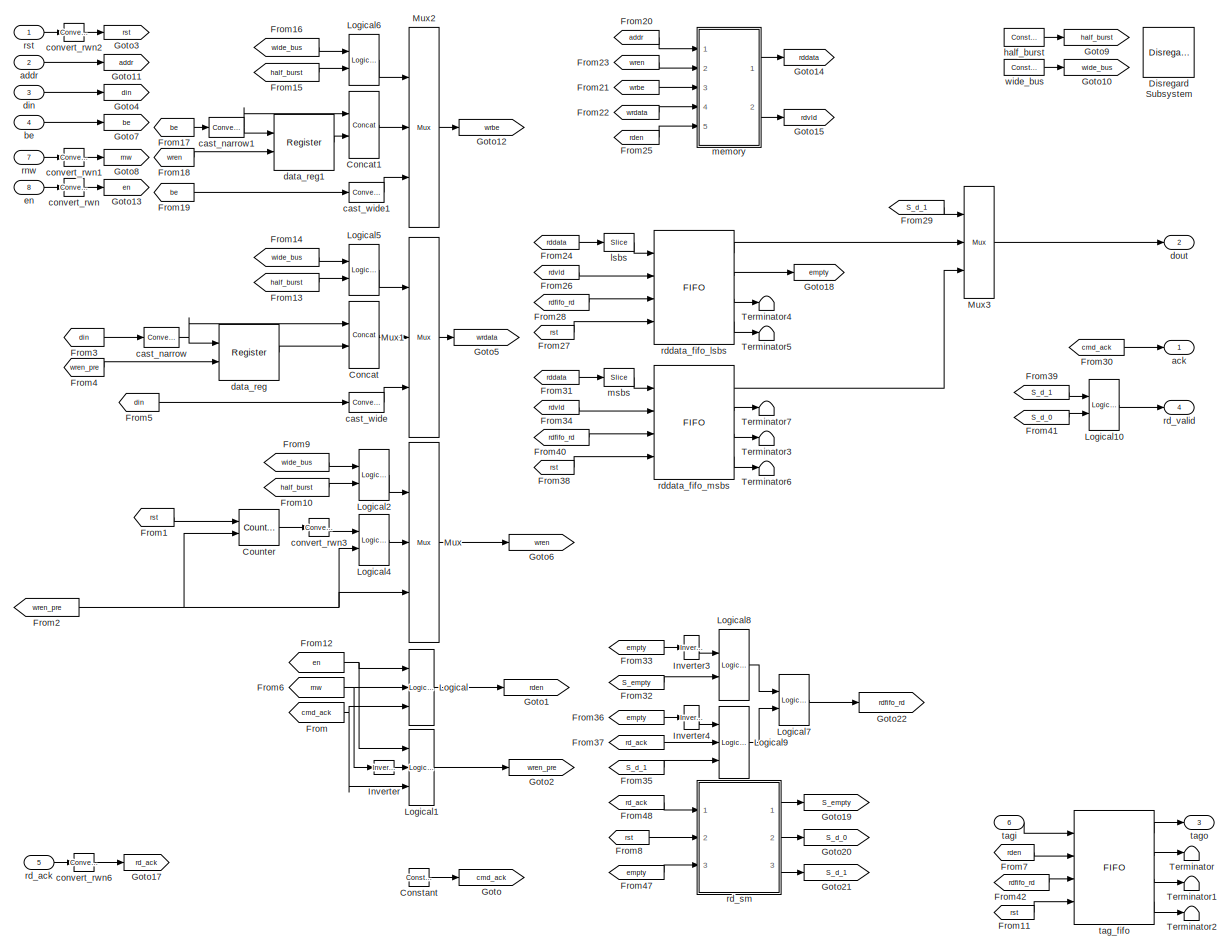
[diagram: dram/dram_sim - part 1/1, most of the canvas]
BLOCK [SubSystem] dram/dram_sim
  FunctionWithSeparateData = off
  MaskHideContents = off
  MinAlgLoopOccurrences = off
  Opaque = off
  Ports = [8, 4]
  PropExecContextOutsideSubsystem = off
  RTWSystemCode = Auto
  RequestExecContextInheritance = off
  SID = 119:39
BLOCK [Reference] dram/dram_sim/Concat  REF=xbsIndex_r4/Concat
  Ports = [2, 1]
  SID = 119:48
  SourceBlock = xbsIndex_r4/Concat
  SourceType = Xilinx Bus Concatenator Block
  block_type = concat
  block_version = 10.1.3
  dbl_ovrd = off
  has_advanced_control = 0
  infoedit = Concatenates two or more inputs.  Output will be cast to an unsigned value with the binary point at zero.
  num_inputs = 2
  sg_icon_stat = 30,67,2,1,white,blue,0,16398980,right,,[ ],[ ]
  sg_mask_display = fprintf('','COMMENT: begin icon graphics');\npatch([0 30 30 0 0 ],[0 0 67 67 0 ],[0.77 0.82 0.91 ]);\nplot([0 30 30 0 0 ],[0 0 67 67 0 ]);\npatch([6.1 11.88 15.88 19.88 23.88 15.88 10.1 6.1 ],[37.44 37.44 41.44 37.44 41.44 41.44 41.44 37.44 ],[1 1 1 ]);\npatch([10.1 15.88 11.88 6.1 10.1 ],[33.44 33.44 37.44 37.44 33.44 ],[0.931 0.946 0.973 ]);\npatch([6.1 11.88 15.88 10.1 6.1 ],[29.44 29.44 33.44 ...<+411ch>
  sggui_pos = -1,-1,-1,-1
BLOCK [Reference] dram/dram_sim/Concat1  REF=xbsIndex_r4/Concat
  Ports = [2, 1]
  SID = 119:49
  SourceBlock = xbsIndex_r4/Concat
  SourceType = Xilinx Bus Concatenator Block
  block_type = concat
  block_version = 10.1.3
  dbl_ovrd = off
  has_advanced_control = 0
  infoedit = Concatenates two or more inputs.  Output will be cast to an unsigned value with the binary point at zero.
  num_inputs = 2
  sg_icon_stat = 30,67,2,1,white,blue,0,16398980,right,,[ ],[ ]
  sg_mask_display = fprintf('','COMMENT: begin icon graphics');\npatch([0 30 30 0 0 ],[0 0 67 67 0 ],[0.77 0.82 0.91 ]);\nplot([0 30 30 0 0 ],[0 0 67 67 0 ]);\npatch([6.1 11.88 15.88 19.88 23.88 15.88 10.1 6.1 ],[37.44 37.44 41.44 37.44 41.44 41.44 41.44 37.44 ],[1 1 1 ]);\npatch([10.1 15.88 11.88 6.1 10.1 ],[33.44 33.44 37.44 37.44 33.44 ],[0.931 0.946 0.973 ]);\npatch([6.1 11.88 15.88 10.1 6.1 ],[29.44 29.44 33.44 ...<+411ch>
  sggui_pos = -1,-1,-1,-1
BLOCK [Reference] dram/dram_sim/Constant  REF=xbsIndex_r4/Constant
  Ports = [0, 1]
  SID = 119:50
  SourceBlock = xbsIndex_r4/Constant
  SourceType = Xilinx Constant Block Block
  arith_type = Boolean
  bin_pt = 14
  block_type = constant
  block_version = 10.1.3
  carry = CIN
  const = 1
  dbl_ovrd = off
  dsp48_infoedit = The use of this block for DSP48 instructions is deprecated.  Please use the Opmode block.
  equ = P=C
  exp_width = 8
  explicit_period = on
  frac_width = 24
  gui_display_data_type = Fixed-point
  has_advanced_control = 0
  inp1 = P
  inp2 = PCIN>>17
  n_bits = 16
  opr = +
  opselect = C
  period = 1
  preci_type = Single
  sg_icon_stat = 20,18,0,1,white,blue,0,1c72b5be,right,,[ ],[ ]
  sg_mask_display = fprintf('','COMMENT: begin icon graphics');\npatch([0 20 20 0 0 ],[0 0 18 18 0 ],[0.77 0.82 0.91 ]);\nplot([0 20 20 0 0 ],[0 0 18 18 0 ]);\npatch([5.55 8.44 10.44 12.44 14.44 10.44 7.55 5.55 ],[11.22 11.22 13.22 11.22 13.22 13.22 13.22 11.22 ],[1 1 1 ]);\npatch([7.55 10.44 8.44 5.55 7.55 ],[9.22 9.22 11.22 11.22 9.22 ],[0.931 0.946 0.973 ]);\npatch([5.55 8.44 10.44 7.55 5.55 ],[7.22 7.22 9.22 9.22...<+294ch>
  sggui_pos = 20,20,400,346
BLOCK [Reference] dram/dram_sim/Counter  REF=xbsIndex_r4/Counter
  Ports = [2, 1]
  SID = 119:51
  SourceBlock = xbsIndex_r4/Counter
  SourceType = Xilinx Counter Block
  arith_type = Unsigned
  bin_pt = 0
  block_type = counter
  block_version = 10.1.3
  cnt_by_val = 1
  cnt_to = Inf
  cnt_type = Free Running
  dbl_ovrd = off
  en = on
  explicit_period = on
  has_advanced_control = 0
  implementation = Fabric
  infoedit = Hardware notes: Free running counters are the least expensive in hardware.  A count limited counter is implemented by combining a counter with a comparator.
  load_pin = off
  n_bits = 1
  operation = Up
  period = 1
  rst = on
  sg_icon_stat = 40,36,2,1,white,blue,0,ae3608d6,right,,[ ],[ ]
  sg_mask_display = fprintf('','COMMENT: begin icon graphics');\npatch([0 60 60 0 0 ],[0 0 60 60 0 ],[0.77 0.82 0.91 ]);\nplot([0 60 60 0 0 ],[0 0 60 60 0 ]);\npatch([12.2 23.76 31.76 39.76 47.76 31.76 20.2 12.2 ],[38.88 38.88 46.88 38.88 46.88 46.88 46.88 38.88 ],[1 1 1 ]);\npatch([20.2 31.76 23.76 12.2 20.2 ],[30.88 30.88 38.88 38.88 30.88 ],[0.931 0.946 0.973 ]);\npatch([12.2 23.76 31.76 20.2 12.2 ],[22.88 22.88 3...<+334ch>
  sggui_pos = 20,20,348,619
  start_count = 0
  use_behavioral_HDL = off
  use_rpm = off
  xl_area = [0,0,0,0,0,0,0]
  xl_use_area = off
BLOCK [Reference] dram/dram_sim/Disregard Subsystem  REF=xbsIndex_r4/Disregard Subsystem
  AttributesFormatString = Disregard Subsystem\\nFor Generation
  Ports = []
  SID = 119:52
  SourceBlock = xbsIndex_r4/Disregard Subsystem
  SourceType = Xilinx Disregard Subsystem For Generation Block
  Tag = discardX
  block_type = disregard
  block_version = 9.1.01
  has_advanced_control = 0
  sg_icon_stat = 51,50,-1,-1,darkgray,black,0,0,right
  sggui_pos = 20,20,170,217
BLOCK [From] dram/dram_sim/From
  CloseFcn = tagdialog Close
  GotoTag = cmd_ack
  SID = 119:53
BLOCK [From] dram/dram_sim/From1
  CloseFcn = tagdialog Close
  GotoTag = rst
  SID = 119:54
BLOCK [From] dram/dram_sim/From10
  CloseFcn = tagdialog Close
  GotoTag = half_burst
  SID = 119:55
BLOCK [From] dram/dram_sim/From11
  CloseFcn = tagdialog Close
  GotoTag = rst
  SID = 119:56
BLOCK [From] dram/dram_sim/From12
  CloseFcn = tagdialog Close
  GotoTag = en
  SID = 119:57
BLOCK [From] dram/dram_sim/From13
  CloseFcn = tagdialog Close
  GotoTag = half_burst
  SID = 119:58
BLOCK [From] dram/dram_sim/From14
  CloseFcn = tagdialog Close
  GotoTag = wide_bus
  SID = 119:59
BLOCK [From] dram/dram_sim/From15
  CloseFcn = tagdialog Close
  GotoTag = half_burst
  SID = 119:60
BLOCK [From] dram/dram_sim/From16
  CloseFcn = tagdialog Close
  GotoTag = wide_bus
  SID = 119:61
BLOCK [From] dram/dram_sim/From17
  CloseFcn = tagdialog Close
  GotoTag = be
  SID = 119:62
BLOCK [From] dram/dram_sim/From18
  CloseFcn = tagdialog Close
  GotoTag = wren
  SID = 119:63
BLOCK [From] dram/dram_sim/From19
  CloseFcn = tagdialog Close
  GotoTag = be
  SID = 119:64
BLOCK [From] dram/dram_sim/From2
  CloseFcn = tagdialog Close
  GotoTag = wren_pre
  SID = 119:65
BLOCK [From] dram/dram_sim/From20
  CloseFcn = tagdialog Close
  GotoTag = addr
  SID = 119:66
BLOCK [From] dram/dram_sim/From21
  CloseFcn = tagdialog Close
  GotoTag = wrbe
  SID = 119:67
BLOCK [From] dram/dram_sim/From22
  CloseFcn = tagdialog Close
  GotoTag = wrdata
  SID = 119:68
BLOCK [From] dram/dram_sim/From23
  CloseFcn = tagdialog Close
  GotoTag = wren
  SID = 119:69
BLOCK [From] dram/dram_sim/From24
  CloseFcn = tagdialog Close
  GotoTag = rddata
  SID = 119:70
BLOCK [From] dram/dram_sim/From25
  CloseFcn = tagdialog Close
  GotoTag = rden
  SID = 119:71
BLOCK [From] dram/dram_sim/From26
  CloseFcn = tagdialog Close
  GotoTag = rdvld
  SID = 119:72
BLOCK [From] dram/dram_sim/From27
  CloseFcn = tagdialog Close
  GotoTag = rst
  SID = 119:73
BLOCK [From] dram/dram_sim/From28
  CloseFcn = tagdialog Close
  GotoTag = rdfifo_rd
  SID = 119:74
BLOCK [From] dram/dram_sim/From29
  CloseFcn = tagdialog Close
  GotoTag = S_d_1
  SID = 119:75
BLOCK [From] dram/dram_sim/From3
  CloseFcn = tagdialog Close
  GotoTag = din
  SID = 119:76
BLOCK [From] dram/dram_sim/From30
  CloseFcn = tagdialog Close
  GotoTag = cmd_ack
  SID = 119:77
BLOCK [From] dram/dram_sim/From31
  CloseFcn = tagdialog Close
  GotoTag = rddata
  SID = 119:78
BLOCK [From] dram/dram_sim/From32
  CloseFcn = tagdialog Close
  GotoTag = S_empty
  SID = 119:79
BLOCK [From] dram/dram_sim/From33
  CloseFcn = tagdialog Close
  GotoTag = empty
  SID = 119:80
BLOCK [From] dram/dram_sim/From34
  CloseFcn = tagdialog Close
  GotoTag = rdvld
  SID = 119:81
BLOCK [From] dram/dram_sim/From35
  CloseFcn = tagdialog Close
  GotoTag = S_d_1
  SID = 119:82
BLOCK [From] dram/dram_sim/From36
  CloseFcn = tagdialog Close
  GotoTag = empty
  SID = 119:83
BLOCK [From] dram/dram_sim/From37
  CloseFcn = tagdialog Close
  GotoTag = rd_ack
  SID = 119:84
BLOCK [From] dram/dram_sim/From38
  CloseFcn = tagdialog Close
  GotoTag = rst
  SID = 119:85
BLOCK [From] dram/dram_sim/From39
  CloseFcn = tagdialog Close
  GotoTag = S_d_1
  SID = 119:86
BLOCK [From] dram/dram_sim/From4
  CloseFcn = tagdialog Close
  GotoTag = wren_pre
  SID = 119:87
BLOCK [From] dram/dram_sim/From40
  CloseFcn = tagdialog Close
  GotoTag = rdfifo_rd
  SID = 119:88
BLOCK [From] dram/dram_sim/From41
  CloseFcn = tagdialog Close
  GotoTag = S_d_0
  SID = 119:89
BLOCK [From] dram/dram_sim/From42
  CloseFcn = tagdialog Close
  GotoTag = rdfifo_rd
  SID = 119:90
BLOCK [From] dram/dram_sim/From47
  CloseFcn = tagdialog Close
  GotoTag = empty
  SID = 119:91
BLOCK [From] dram/dram_sim/From48
  CloseFcn = tagdialog Close
  GotoTag = rd_ack
  SID = 119:92
BLOCK [From] dram/dram_sim/From5
  CloseFcn = tagdialog Close
  GotoTag = din
  SID = 119:93
BLOCK [From] dram/dram_sim/From6
  CloseFcn = tagdialog Close
  GotoTag = rnw
  SID = 119:94
BLOCK [From] dram/dram_sim/From7
  CloseFcn = tagdialog Close
  GotoTag = rden
  SID = 119:95
BLOCK [From] dram/dram_sim/From8
  CloseFcn = tagdialog Close
  GotoTag = rst
  SID = 119:96
BLOCK [From] dram/dram_sim/From9
  CloseFcn = tagdialog Close
  GotoTag = wide_bus
  SID = 119:97
BLOCK [Goto] dram/dram_sim/Goto
  GotoTag = cmd_ack
  SID = 119:98
BLOCK [Goto] dram/dram_sim/Goto1
  GotoTag = rden
  SID = 119:99
BLOCK [Goto] dram/dram_sim/Goto10
  GotoTag = wide_bus
  SID = 119:100
BLOCK [Goto] dram/dram_sim/Goto11
  GotoTag = addr
  SID = 119:101
BLOCK [Goto] dram/dram_sim/Goto12
  GotoTag = wrbe
  SID = 119:102
BLOCK [Goto] dram/dram_sim/Goto13
  GotoTag = en
  SID = 119:103
BLOCK [Goto] dram/dram_sim/Goto14
  GotoTag = rddata
  SID = 119:104
BLOCK [Goto] dram/dram_sim/Goto15
  GotoTag = rdvld
  SID = 119:105
BLOCK [Goto] dram/dram_sim/Goto17
  GotoTag = rd_ack
  SID = 119:106
BLOCK [Goto] dram/dram_sim/Goto18
  GotoTag = empty
  SID = 119:107
BLOCK [Goto] dram/dram_sim/Goto19
  GotoTag = S_empty
  SID = 119:108
BLOCK [Goto] dram/dram_sim/Goto2
  GotoTag = wren_pre
  SID = 119:109
BLOCK [Goto] dram/dram_sim/Goto20
  GotoTag = S_d_0
  SID = 119:110
BLOCK [Goto] dram/dram_sim/Goto21
  GotoTag = S_d_1
  SID = 119:111
BLOCK [Goto] dram/dram_sim/Goto22
  GotoTag = rdfifo_rd
  SID = 119:112
BLOCK [Goto] dram/dram_sim/Goto3
  GotoTag = rst
  SID = 119:113
BLOCK [Goto] dram/dram_sim/Goto4
  GotoTag = din
  SID = 119:114
BLOCK [Goto] dram/dram_sim/Goto5
  GotoTag = wrdata
  SID = 119:115
BLOCK [Goto] dram/dram_sim/Goto6
  GotoTag = wren
  SID = 119:116
BLOCK [Goto] dram/dram_sim/Goto7
  GotoTag = be
  SID = 119:117
BLOCK [Goto] dram/dram_sim/Goto8
  GotoTag = rnw
  SID = 119:118
BLOCK [Goto] dram/dram_sim/Goto9
  GotoTag = half_burst
  SID = 119:119
BLOCK [Reference] dram/dram_sim/Inverter  REF=xbsIndex_r4/Inverter
  Ports = [1, 1]
  SID = 119:120
  SourceBlock = xbsIndex_r4/Inverter
  SourceType = Xilinx Inverter Block
  block_type = inv
  block_version = 10.1.3
  dbl_ovrd = off
  en = off
  has_advanced_control = 0
  infoedit = Bitwise logical negation (one's complement) operator.
  latency = 0
  sg_icon_stat = 20,14,1,1,white,blue,0,267846e5,right,,[ ],[ ]
  sg_mask_display = fprintf('','COMMENT: begin icon graphics');\npatch([0 20 20 0 0 ],[0 0 14 14 0 ],[0.77 0.82 0.91 ]);\nplot([0 20 20 0 0 ],[0 0 14 14 0 ]);\npatch([5.55 8.44 10.44 12.44 14.44 10.44 7.55 5.55 ],[9.22 9.22 11.22 9.22 11.22 11.22 11.22 9.22 ],[1 1 1 ]);\npatch([7.55 10.44 8.44 5.55 7.55 ],[7.22 7.22 9.22 9.22 7.22 ],[0.931 0.946 0.973 ]);\npatch([5.55 8.44 10.44 7.55 5.55 ],[5.22 5.22 7.22 7.22 5.22 ...<+277ch>
  sggui_pos = -1,-1,-1,-1
  xl_area = [0,0,0,0,0,0,0]
  xl_use_area = off
BLOCK [Reference] dram/dram_sim/Inverter3  REF=xbsIndex_r4/Inverter
  Ports = [1, 1]
  SID = 119:121
  SourceBlock = xbsIndex_r4/Inverter
  SourceType = Xilinx Inverter Block
  block_type = inv
  block_version = 10.1.3
  dbl_ovrd = off
  en = off
  has_advanced_control = 0
  infoedit = Bitwise logical negation (one's complement) operator.
  latency = 0
  sg_icon_stat = 15,24,1,1,white,blue,0,267846e5,right,,[ ],[ ]
  sg_mask_display = fprintf('','COMMENT: begin icon graphics');\npatch([0 15 15 0 0 ],[0 0 24 24 0 ],[0.77 0.82 0.91 ]);\nplot([0 15 15 0 0 ],[0 0 24 24 0 ]);\npatch([2.55 5.44 7.44 9.44 11.44 7.44 4.55 2.55 ],[14.22 14.22 16.22 14.22 16.22 16.22 16.22 14.22 ],[1 1 1 ]);\npatch([4.55 7.44 5.44 2.55 4.55 ],[12.22 12.22 14.22 14.22 12.22 ],[0.931 0.946 0.973 ]);\npatch([2.55 5.44 7.44 4.55 2.55 ],[10.22 10.22 12.22 12....<+287ch>
  sggui_pos = 20,20,348,251
  xl_area = [0,0,0,0,0,0,0]
  xl_use_area = off
BLOCK [Reference] dram/dram_sim/Inverter4  REF=xbsIndex_r4/Inverter
  Ports = [1, 1]
  SID = 119:122
  SourceBlock = xbsIndex_r4/Inverter
  SourceType = Xilinx Inverter Block
  block_type = inv
  block_version = 10.1.3
  dbl_ovrd = off
  en = off
  has_advanced_control = 0
  infoedit = Bitwise logical negation (one's complement) operator.
  latency = 0
  sg_icon_stat = 15,24,1,1,white,blue,0,267846e5,right,,[ ],[ ]
  sg_mask_display = fprintf('','COMMENT: begin icon graphics');\npatch([0 15 15 0 0 ],[0 0 24 24 0 ],[0.77 0.82 0.91 ]);\nplot([0 15 15 0 0 ],[0 0 24 24 0 ]);\npatch([2.55 5.44 7.44 9.44 11.44 7.44 4.55 2.55 ],[14.22 14.22 16.22 14.22 16.22 16.22 16.22 14.22 ],[1 1 1 ]);\npatch([4.55 7.44 5.44 2.55 4.55 ],[12.22 12.22 14.22 14.22 12.22 ],[0.931 0.946 0.973 ]);\npatch([2.55 5.44 7.44 4.55 2.55 ],[10.22 10.22 12.22 12....<+287ch>
  sggui_pos = 20,20,348,251
  xl_area = [0,0,0,0,0,0,0]
  xl_use_area = off
BLOCK [Reference] dram/dram_sim/Logical  REF=xbsIndex_r4/Logical
  Ports = [3, 1]
  SID = 119:123
  SourceBlock = xbsIndex_r4/Logical
  SourceType = Xilinx Logical Block Block
  align_bp = on
  arith_type = Unsigned
  bin_pt = 0
  block_type = logical
  block_version = 10.1.3
  dbl_ovrd = off
  en = off
  has_advanced_control = 0
  inputs = 3
  latency = 0
  logical_function = AND
  n_bits = 16
  precision = Full
  sg_icon_stat = 25,76,3,1,white,blue,0,98d76266,right,,[ ],[ ]
  sg_mask_display = fprintf('','COMMENT: begin icon graphics');\npatch([0 25 25 0 0 ],[0 0 76 76 0 ],[0.77 0.82 0.91 ]);\nplot([0 25 25 0 0 ],[0 0 76 76 0 ]);\npatch([5.325 9.66 12.66 15.66 18.66 12.66 8.325 5.325 ],[41.33 41.33 44.33 41.33 44.33 44.33 44.33 41.33 ],[1 1 1 ]);\npatch([8.325 12.66 9.66 5.325 8.325 ],[38.33 38.33 41.33 41.33 38.33 ],[0.931 0.946 0.973 ]);\npatch([5.325 9.66 12.66 8.325 5.325 ],[35.33 3...<+314ch>
  sggui_pos = 20,20,348,261
  xl_area = [0,0,0,0,0,0,0]
  xl_use_area = off
BLOCK [Reference] dram/dram_sim/Logical1  REF=xbsIndex_r4/Logical
  Ports = [3, 1]
  SID = 119:124
  SourceBlock = xbsIndex_r4/Logical
  SourceType = Xilinx Logical Block Block
  align_bp = on
  arith_type = Unsigned
  bin_pt = 0
  block_type = logical
  block_version = 10.1.3
  dbl_ovrd = off
  en = off
  has_advanced_control = 0
  inputs = 3
  latency = 0
  logical_function = AND
  n_bits = 16
  precision = Full
  sg_icon_stat = 25,76,3,1,white,blue,0,98d76266,right,,[ ],[ ]
  sg_mask_display = fprintf('','COMMENT: begin icon graphics');\npatch([0 25 25 0 0 ],[0 0 76 76 0 ],[0.77 0.82 0.91 ]);\nplot([0 25 25 0 0 ],[0 0 76 76 0 ]);\npatch([5.325 9.66 12.66 15.66 18.66 12.66 8.325 5.325 ],[41.33 41.33 44.33 41.33 44.33 44.33 44.33 41.33 ],[1 1 1 ]);\npatch([8.325 12.66 9.66 5.325 8.325 ],[38.33 38.33 41.33 41.33 38.33 ],[0.931 0.946 0.973 ]);\npatch([5.325 9.66 12.66 8.325 5.325 ],[35.33 3...<+314ch>
  sggui_pos = 20,20,348,261
  xl_area = [0,0,0,0,0,0,0]
  xl_use_area = off
BLOCK [Reference] dram/dram_sim/Logical10  REF=xbsIndex_r4/Logical
  Ports = [2, 1]
  SID = 119:125
  SourceBlock = xbsIndex_r4/Logical
  SourceType = Xilinx Logical Block Block
  align_bp = on
  arith_type = Unsigned
  bin_pt = 0
  block_type = logical
  block_version = 10.1.3
  dbl_ovrd = off
  en = off
  has_advanced_control = 0
  inputs = 2
  latency = 0
  logical_function = OR
  n_bits = 16
  precision = Full
  sg_icon_stat = 30,51,2,1,white,blue,0,7ede7d88,right,,[ ],[ ]
  sg_mask_display = fprintf('','COMMENT: begin icon graphics');\npatch([0 30 30 0 0 ],[0 0 51 51 0 ],[0.77 0.82 0.91 ]);\nplot([0 30 30 0 0 ],[0 0 51 51 0 ]);\npatch([6.1 11.88 15.88 19.88 23.88 15.88 10.1 6.1 ],[29.44 29.44 33.44 29.44 33.44 33.44 33.44 29.44 ],[1 1 1 ]);\npatch([10.1 15.88 11.88 6.1 10.1 ],[25.44 25.44 29.44 29.44 25.44 ],[0.931 0.946 0.973 ]);\npatch([6.1 11.88 15.88 10.1 6.1 ],[21.44 21.44 25.44 ...<+297ch>  <repeated x5 — deduplicated; at blocks: Logical10, Logical2, Logical5, Logical6, Logical7>
  sggui_pos = 20,20,348,261
  xl_area = [0,0,0,0,0,0,0]
  xl_use_area = off
BLOCK [Reference] dram/dram_sim/Logical2  REF=xbsIndex_r4/Logical
  Ports = [2, 1]
  SID = 119:126
  SourceBlock = xbsIndex_r4/Logical
  SourceType = Xilinx Logical Block Block
  align_bp = on
  arith_type = Unsigned
  bin_pt = 0
  block_type = logical
  block_version = 10.1.3
  dbl_ovrd = off
  en = off
  has_advanced_control = 0
  inputs = 2
  latency = 0
  logical_function = OR
  n_bits = 16
  precision = Full
  sg_icon_stat = 30,51,2,1,white,blue,0,7ede7d88,right,,[ ],[ ]
  sggui_pos = 20,20,348,261
  xl_area = [0,0,0,0,0,0,0]
  xl_use_area = off
BLOCK [Reference] dram/dram_sim/Logical4  REF=xbsIndex_r4/Logical
  Ports = [2, 1]
  SID = 119:127
  SourceBlock = xbsIndex_r4/Logical
  SourceType = Xilinx Logical Block Block
  align_bp = on
  arith_type = Unsigned
  bin_pt = 0
  block_type = logical
  block_version = 10.1.3
  dbl_ovrd = off
  en = off
  has_advanced_control = 0
  inputs = 2
  latency = 0
  logical_function = AND
  n_bits = 16
  precision = Full
  sg_icon_stat = 30,51,2,1,white,blue,0,83a4b621,right,,[ ],[ ]
  sg_mask_display = fprintf('','COMMENT: begin icon graphics');\npatch([0 30 30 0 0 ],[0 0 51 51 0 ],[0.77 0.82 0.91 ]);\nplot([0 30 30 0 0 ],[0 0 51 51 0 ]);\npatch([6.1 11.88 15.88 19.88 23.88 15.88 10.1 6.1 ],[29.44 29.44 33.44 29.44 33.44 33.44 33.44 29.44 ],[1 1 1 ]);\npatch([10.1 15.88 11.88 6.1 10.1 ],[25.44 25.44 29.44 29.44 25.44 ],[0.931 0.946 0.973 ]);\npatch([6.1 11.88 15.88 10.1 6.1 ],[21.44 21.44 25.44 ...<+298ch>
  sggui_pos = 20,20,348,261
  xl_area = [0,0,0,0,0,0,0]
  xl_use_area = off
BLOCK [Reference] dram/dram_sim/Logical5  REF=xbsIndex_r4/Logical
  Ports = [2, 1]
  SID = 119:128
  SourceBlock = xbsIndex_r4/Logical
  SourceType = Xilinx Logical Block Block
  align_bp = on
  arith_type = Unsigned
  bin_pt = 0
  block_type = logical
  block_version = 10.1.3
  dbl_ovrd = off
  en = off
  has_advanced_control = 0
  inputs = 2
  latency = 0
  logical_function = OR
  n_bits = 16
  precision = Full
  sg_icon_stat = 30,51,2,1,white,blue,0,7ede7d88,right,,[ ],[ ]
  sggui_pos = 20,20,348,261
  xl_area = [0,0,0,0,0,0,0]
  xl_use_area = off
BLOCK [Reference] dram/dram_sim/Logical6  REF=xbsIndex_r4/Logical
  Ports = [2, 1]
  SID = 119:129
  SourceBlock = xbsIndex_r4/Logical
  SourceType = Xilinx Logical Block Block
  align_bp = on
  arith_type = Unsigned
  bin_pt = 0
  block_type = logical
  block_version = 10.1.3
  dbl_ovrd = off
  en = off
  has_advanced_control = 0
  inputs = 2
  latency = 0
  logical_function = OR
  n_bits = 16
  precision = Full
  sg_icon_stat = 30,51,2,1,white,blue,0,7ede7d88,right,,[ ],[ ]
  sggui_pos = 20,20,348,261
  xl_area = [0,0,0,0,0,0,0]
  xl_use_area = off
BLOCK [Reference] dram/dram_sim/Logical7  REF=xbsIndex_r4/Logical
  Ports = [2, 1]
  SID = 119:130
  SourceBlock = xbsIndex_r4/Logical
  SourceType = Xilinx Logical Block Block
  align_bp = on
  arith_type = Unsigned
  bin_pt = 0
  block_type = logical
  block_version = 10.1.3
  dbl_ovrd = off
  en = off
  has_advanced_control = 0
  inputs = 2
  latency = 0
  logical_function = OR
  n_bits = 16
  precision = Full
  sg_icon_stat = 30,51,2,1,white,blue,0,7ede7d88,right,,[ ],[ ]
  sggui_pos = 20,20,348,261
  xl_area = [0,0,0,0,0,0,0]
  xl_use_area = off
BLOCK [Reference] dram/dram_sim/Logical8  REF=xbsIndex_r4/Logical
  Ports = [2, 1]
  SID = 119:131
  SourceBlock = xbsIndex_r4/Logical
  SourceType = Xilinx Logical Block Block
  align_bp = on
  arith_type = Unsigned
  bin_pt = 0
  block_type = logical
  block_version = 10.1.3
  dbl_ovrd = off
  en = off
  has_advanced_control = 0
  inputs = 2
  latency = 0
  logical_function = AND
  n_bits = 16
  precision = Full
  sg_icon_stat = 30,71,2,1,white,blue,0,83a4b621,right,,[ ],[ ]
  sg_mask_display = fprintf('','COMMENT: begin icon graphics');\npatch([0 30 30 0 0 ],[0 0 71 71 0 ],[0.77 0.82 0.91 ]);\nplot([0 30 30 0 0 ],[0 0 71 71 0 ]);\npatch([6.1 11.88 15.88 19.88 23.88 15.88 10.1 6.1 ],[39.44 39.44 43.44 39.44 43.44 43.44 43.44 39.44 ],[1 1 1 ]);\npatch([10.1 15.88 11.88 6.1 10.1 ],[35.44 35.44 39.44 39.44 35.44 ],[0.931 0.946 0.973 ]);\npatch([6.1 11.88 15.88 10.1 6.1 ],[31.44 31.44 35.44 ...<+298ch>
  sggui_pos = 20,20,348,261
  xl_area = [0,0,0,0,0,0,0]
  xl_use_area = off
BLOCK [Reference] dram/dram_sim/Logical9  REF=xbsIndex_r4/Logical
  Ports = [3, 1]
  SID = 119:132
  SourceBlock = xbsIndex_r4/Logical
  SourceType = Xilinx Logical Block Block
  align_bp = on
  arith_type = Unsigned
  bin_pt = 0
  block_type = logical
  block_version = 10.1.3
  dbl_ovrd = off
  en = off
  has_advanced_control = 0
  inputs = 3
  latency = 0
  logical_function = AND
  n_bits = 16
  precision = Full
  sg_icon_stat = 30,72,3,1,white,blue,0,98d76266,right,,[ ],[ ]
  sg_mask_display = fprintf('','COMMENT: begin icon graphics');\npatch([0 30 30 0 0 ],[0 0 72 72 0 ],[0.77 0.82 0.91 ]);\nplot([0 30 30 0 0 ],[0 0 72 72 0 ]);\npatch([6.1 11.88 15.88 19.88 23.88 15.88 10.1 6.1 ],[40.44 40.44 44.44 40.44 44.44 44.44 44.44 40.44 ],[1 1 1 ]);\npatch([10.1 15.88 11.88 6.1 10.1 ],[36.44 36.44 40.44 40.44 36.44 ],[0.931 0.946 0.973 ]);\npatch([6.1 11.88 15.88 10.1 6.1 ],[32.44 32.44 36.44 ...<+302ch>
  sggui_pos = 20,20,348,261
  xl_area = [0,0,0,0,0,0,0]
  xl_use_area = off
BLOCK [Reference] dram/dram_sim/Mux  REF=xbsIndex_r4/Mux
  Ports = [3, 1]
  SID = 119:133
  SourceBlock = xbsIndex_r4/Mux
  SourceType = Xilinx Bus Multiplexer Block
  arith_type = Unsigned
  bin_pt = 14
  block_type = mux
  block_version = 10.1.3
  dbl_ovrd = off
  en = off
  has_advanced_control = 0
  inputs = 2
  latency = 0
  n_bits = 16
  overflow = Wrap
  precision = Full
  quantization = Truncate
  sg_icon_stat = 30,200,3,1,white,blue,3,eb98d690,right,,[ ],[ ]
  sg_mask_display = fprintf('','COMMENT: begin icon graphics');\npatch([0 30 30 0 0 ],[0 28.5714 171.429 200 0 ],[0.77 0.82 0.91 ]);\nplot([0 30 30 0 0 ],[0 28.5714 171.429 200 0 ]);\npatch([6.1 11.88 15.88 19.88 23.88 15.88 10.1 6.1 ],[104.44 104.44 108.44 104.44 108.44 108.44 108.44 104.44 ],[1 1 1 ]);\npatch([10.1 15.88 11.88 6.1 10.1 ],[100.44 100.44 104.44 104.44 100.44 ],[0.931 0.946 0.973 ]);\npatch([6.1 11.88...<+484ch>  <repeated x3 — deduplicated; at blocks: Mux, Mux1, Mux2>
  sggui_pos = -1,-1,-1,-1
  xl_area = [0,0,0,0,0,0,0]
  xl_use_area = off
BLOCK [Reference] dram/dram_sim/Mux1  REF=xbsIndex_r4/Mux
  Ports = [3, 1]
  SID = 119:134
  SourceBlock = xbsIndex_r4/Mux
  SourceType = Xilinx Bus Multiplexer Block
  arith_type = Unsigned
  bin_pt = 14
  block_type = mux
  block_version = 10.1.3
  dbl_ovrd = off
  en = off
  has_advanced_control = 0
  inputs = 2
  latency = 0
  n_bits = 16
  overflow = Wrap
  precision = Full
  quantization = Truncate
  sg_icon_stat = 30,200,3,1,white,blue,3,eb98d690,right,,[ ],[ ]
  sggui_pos = -1,-1,-1,-1
  xl_area = [0,0,0,0,0,0,0]
  xl_use_area = off
BLOCK [Reference] dram/dram_sim/Mux2  REF=xbsIndex_r4/Mux
  Ports = [3, 1]
  SID = 119:135
  SourceBlock = xbsIndex_r4/Mux
  SourceType = Xilinx Bus Multiplexer Block
  arith_type = Unsigned
  bin_pt = 14
  block_type = mux
  block_version = 10.1.3
  dbl_ovrd = off
  en = off
  has_advanced_control = 0
  inputs = 2
  latency = 0
  n_bits = 16
  overflow = Wrap
  precision = Full
  quantization = Truncate
  sg_icon_stat = 30,200,3,1,white,blue,3,eb98d690,right,,[ ],[ ]
  sggui_pos = -1,-1,-1,-1
  xl_area = [0,0,0,0,0,0,0]
  xl_use_area = off
BLOCK [Reference] dram/dram_sim/Mux3  REF=xbsIndex_r4/Mux
  Ports = [3, 1]
  SID = 119:136
  SourceBlock = xbsIndex_r4/Mux
  SourceType = Xilinx Bus Multiplexer Block
  arith_type = Unsigned
  bin_pt = 14
  block_type = mux
  block_version = 10.1.3
  dbl_ovrd = off
  en = off
  has_advanced_control = 0
  inputs = 2
  latency = 0
  n_bits = 16
  overflow = Wrap
  precision = Full
  quantization = Truncate
  sg_icon_stat = 30,112,3,1,white,blue,3,eb98d690,right,,[ ],[ ]
  sg_mask_display = fprintf('','COMMENT: begin icon graphics');\npatch([0 30 30 0 0 ],[0 16 96 112 0 ],[0.77 0.82 0.91 ]);\nplot([0 30 30 0 0 ],[0 16 96 112 0 ]);\npatch([6.1 11.88 15.88 19.88 23.88 15.88 10.1 6.1 ],[60.44 60.44 64.44 60.44 64.44 64.44 64.44 60.44 ],[1 1 1 ]);\npatch([10.1 15.88 11.88 6.1 10.1 ],[56.44 56.44 60.44 60.44 56.44 ],[0.931 0.946 0.973 ]);\npatch([6.1 11.88 15.88 10.1 6.1 ],[52.44 52.44 56...<+449ch>
  sggui_pos = 20,20,348,303
  xl_area = [0,0,0,0,0,0,0]
  xl_use_area = off
BLOCK [Terminator] dram/dram_sim/Terminator
  SID = 119:137
BLOCK [Terminator] dram/dram_sim/Terminator1
  SID = 119:138
BLOCK [Terminator] dram/dram_sim/Terminator2
  SID = 119:139
BLOCK [Terminator] dram/dram_sim/Terminator3
  SID = 119:140
BLOCK [Terminator] dram/dram_sim/Terminator4
  SID = 119:141
BLOCK [Terminator] dram/dram_sim/Terminator5
  SID = 119:142
BLOCK [Terminator] dram/dram_sim/Terminator6
  SID = 119:143
BLOCK [Terminator] dram/dram_sim/Terminator7
  SID = 119:144
BLOCK [Outport] dram/dram_sim/ack
  IconDisplay = Port number
  SID = 119:210
BLOCK [Inport] dram/dram_sim/addr
  IconDisplay = Port number
  Port = 2
  SID = 119:41
BLOCK [Inport] dram/dram_sim/be
  IconDisplay = Port number
  Port = 4
  SID = 119:43
BLOCK [Reference] dram/dram_sim/cast_narrow  REF=xbsIndex_r4/Convert
  Ports = [1, 1]
  SID = 119:145
  SourceBlock = xbsIndex_r4/Convert
  SourceType = Xilinx Type Converter Block
  arith_type = Unsigned
  bin_pt = 0
  block_type = convert
  block_version = 9.1.01
  dbl_ovrd = off
  en = off
  exp_bits = 8
  float_type = Single
  fraction_bits = 24
  gui_display_data_type = Fixed-point
  has_advanced_control = 0
  infoedit = Hardware notes: rounding and saturating require hardware resources; truncating and wrapping do not.
  latency = 0
  n_bits = 144
  overflow = Wrap
  pipeline = off
  quantization = Truncate
  sg_icon_stat = 35,20,1,1,white,blue,0,edca21da,right,,[ ],[ ]
  sggui_pos = 20,20,461,334
  xl_area = [0, 0, 0, 0, 0, 0, 0]
  xl_use_area = off
BLOCK [Reference] dram/dram_sim/cast_narrow1  REF=xbsIndex_r4/Convert
  Ports = [1, 1]
  SID = 119:146
  SourceBlock = xbsIndex_r4/Convert
  SourceType = Xilinx Type Converter Block
  arith_type = Unsigned
  bin_pt = 0
  block_type = convert
  block_version = 9.1.01
  dbl_ovrd = off
  en = off
  exp_bits = 8
  float_type = Single
  fraction_bits = 24
  gui_display_data_type = Fixed-point
  has_advanced_control = 0
  infoedit = Hardware notes: rounding and saturating require hardware resources; truncating and wrapping do not.
  latency = 0
  n_bits = 18
  overflow = Wrap
  pipeline = off
  quantization = Truncate
  sg_icon_stat = 35,20,1,1,white,blue,0,edca21da,right,,[ ],[ ]
  sggui_pos = 20,20,461,334
  xl_area = [0, 0, 0, 0, 0, 0, 0]
  xl_use_area = off
BLOCK [Reference] dram/dram_sim/cast_wide  REF=xbsIndex_r4/Convert
  Ports = [1, 1]
  SID = 119:147
  SourceBlock = xbsIndex_r4/Convert
  SourceType = Xilinx Type Converter Block
  arith_type = Unsigned
  bin_pt = 0
  block_type = convert
  block_version = 9.1.01
  dbl_ovrd = off
  en = off
  exp_bits = 8
  float_type = Single
  fraction_bits = 24
  gui_display_data_type = Fixed-point
  has_advanced_control = 0
  infoedit = Hardware notes: rounding and saturating require hardware resources; truncating and wrapping do not.
  latency = 0
  n_bits = 288
  overflow = Wrap
  pipeline = off
  quantization = Truncate
  sg_icon_stat = 35,20,1,1,white,blue,0,edca21da,right,,[ ],[ ]
  sggui_pos = 20,20,461,334
  xl_area = [0, 0, 0, 0, 0, 0, 0]
  xl_use_area = off
BLOCK [Reference] dram/dram_sim/cast_wide1  REF=xbsIndex_r4/Convert
  Ports = [1, 1]
  SID = 119:148
  SourceBlock = xbsIndex_r4/Convert
  SourceType = Xilinx Type Converter Block
  arith_type = Unsigned
  bin_pt = 0
  block_type = convert
  block_version = 9.1.01
  dbl_ovrd = off
  en = off
  exp_bits = 8
  float_type = Single
  fraction_bits = 24
  gui_display_data_type = Fixed-point
  has_advanced_control = 0
  infoedit = Hardware notes: rounding and saturating require hardware resources; truncating and wrapping do not.
  latency = 0
  n_bits = 36
  overflow = Wrap
  pipeline = off
  quantization = Truncate
  sg_icon_stat = 35,20,1,1,white,blue,0,edca21da,right,,[ ],[ ]
  sggui_pos = 20,20,461,334
  xl_area = [0, 0, 0, 0, 0, 0, 0]
  xl_use_area = off
BLOCK [Reference] dram/dram_sim/convert_rwn  REF=xbsIndex_r4/Convert
  Ports = [1, 1]
  SID = 119:149
  SourceBlock = xbsIndex_r4/Convert
  SourceType = Xilinx Type Converter Block
  arith_type = Boolean
  bin_pt = 0
  block_type = convert
  block_version = 9.1.01
  dbl_ovrd = off
  en = off
  exp_bits = 8
  float_type = Single
  fraction_bits = 24
  gui_display_data_type = Fixed-point
  has_advanced_control = 0
  infoedit = Hardware notes: rounding and saturating require hardware resources; truncating and wrapping do not.
  latency = 0
  n_bits = 1
  overflow = Wrap
  pipeline = off
  quantization = Truncate
  sg_icon_stat = 20,18,1,1,white,blue,0,edca21da,right,,[ ],[ ]
  sg_mask_display = fprintf('','COMMENT: begin icon graphics');\npatch([0 20 20 0 0 ],[0 0 18 18 0 ],[0.77 0.82 0.91 ]);\nplot([0 20 20 0 0 ],[0 0 18 18 0 ]);\npatch([5.55 8.44 10.44 12.44 14.44 10.44 7.55 5.55 ],[11.22 11.22 13.22 11.22 13.22 13.22 13.22 11.22 ],[1 1 1 ]);\npatch([7.55 10.44 8.44 5.55 7.55 ],[9.22 9.22 11.22 11.22 9.22 ],[0.931 0.946 0.973 ]);\npatch([5.55 8.44 10.44 7.55 5.55 ],[7.22 7.22 9.22 9.22...<+299ch>  <repeated x5 — deduplicated; at blocks: convert_rwn, convert_rwn1, convert_rwn2, convert_rwn3, convert_rwn6>
  sggui_pos = 20,20,461,334
  xl_area = [0, 0, 0, 0, 0, 0, 0]
  xl_use_area = off
BLOCK [Reference] dram/dram_sim/convert_rwn1  REF=xbsIndex_r4/Convert
  Ports = [1, 1]
  SID = 119:150
  SourceBlock = xbsIndex_r4/Convert
  SourceType = Xilinx Type Converter Block
  arith_type = Boolean
  bin_pt = 0
  block_type = convert
  block_version = 9.1.01
  dbl_ovrd = off
  en = off
  exp_bits = 8
  float_type = Single
  fraction_bits = 24
  gui_display_data_type = Fixed-point
  has_advanced_control = 0
  infoedit = Hardware notes: rounding and saturating require hardware resources; truncating and wrapping do not.
  latency = 0
  n_bits = 1
  overflow = Wrap
  pipeline = off
  quantization = Truncate
  sg_icon_stat = 20,18,1,1,white,blue,0,edca21da,right,,[ ],[ ]
  sggui_pos = 20,20,461,334
  xl_area = [0, 0, 0, 0, 0, 0, 0]
  xl_use_area = off
BLOCK [Reference] dram/dram_sim/convert_rwn2  REF=xbsIndex_r4/Convert
  Ports = [1, 1]
  SID = 119:151
  SourceBlock = xbsIndex_r4/Convert
  SourceType = Xilinx Type Converter Block
  arith_type = Boolean
  bin_pt = 0
  block_type = convert
  block_version = 9.1.01
  dbl_ovrd = off
  en = off
  exp_bits = 8
  float_type = Single
  fraction_bits = 24
  gui_display_data_type = Fixed-point
  has_advanced_control = 0
  infoedit = Hardware notes: rounding and saturating require hardware resources; truncating and wrapping do not.
  latency = 0
  n_bits = 1
  overflow = Wrap
  pipeline = off
  quantization = Truncate
  sg_icon_stat = 20,18,1,1,white,blue,0,edca21da,right,,[ ],[ ]
  sggui_pos = 20,20,461,334
  xl_area = [0, 0, 0, 0, 0, 0, 0]
  xl_use_area = off
BLOCK [Reference] dram/dram_sim/convert_rwn3  REF=xbsIndex_r4/Convert
  Ports = [1, 1]
  SID = 119:152
  SourceBlock = xbsIndex_r4/Convert
  SourceType = Xilinx Type Converter Block
  arith_type = Boolean
  bin_pt = 0
  block_type = convert
  block_version = 9.1.01
  dbl_ovrd = off
  en = off
  exp_bits = 8
  float_type = Single
  fraction_bits = 24
  gui_display_data_type = Fixed-point
  has_advanced_control = 0
  infoedit = Hardware notes: rounding and saturating require hardware resources; truncating and wrapping do not.
  latency = 0
  n_bits = 1
  overflow = Wrap
  pipeline = off
  quantization = Truncate
  sg_icon_stat = 20,18,1,1,white,blue,0,edca21da,right,,[ ],[ ]
  sggui_pos = 20,20,461,334
  xl_area = [0, 0, 0, 0, 0, 0, 0]
  xl_use_area = off
BLOCK [Reference] dram/dram_sim/convert_rwn6  REF=xbsIndex_r4/Convert
  Ports = [1, 1]
  SID = 119:153
  SourceBlock = xbsIndex_r4/Convert
  SourceType = Xilinx Type Converter Block
  arith_type = Boolean
  bin_pt = 0
  block_type = convert
  block_version = 9.1.01
  dbl_ovrd = off
  en = off
  exp_bits = 8
  float_type = Single
  fraction_bits = 24
  gui_display_data_type = Fixed-point
  has_advanced_control = 0
  infoedit = Hardware notes: rounding and saturating require hardware resources; truncating and wrapping do not.
  latency = 0
  n_bits = 1
  overflow = Wrap
  pipeline = off
  quantization = Truncate
  sg_icon_stat = 20,18,1,1,white,blue,0,edca21da,right,,[ ],[ ]
  sggui_pos = 20,20,461,334
  xl_area = [0, 0, 0, 0, 0, 0, 0]
  xl_use_area = off
BLOCK [Reference] dram/dram_sim/data_reg  REF=xbsIndex_r4/Register
  Ports = [2, 1]
  SID = 119:154
  SourceBlock = xbsIndex_r4/Register
  SourceType = Xilinx Register Block
  block_type = register
  block_version = 10.1.3
  dbl_ovrd = off
  en = on
  has_advanced_control = 0
  init = 0
  rst = off
  sg_icon_stat = 60,56,2,1,white,blue,0,6bd0930c,right,,[ ],[ ]
  sg_mask_display = fprintf('','COMMENT: begin icon graphics');\npatch([0 60 60 0 0 ],[0 0 56 56 0 ],[0.77 0.82 0.91 ]);\nplot([0 60 60 0 0 ],[0 0 56 56 0 ]);\npatch([12.2 23.76 31.76 39.76 47.76 31.76 20.2 12.2 ],[36.88 36.88 44.88 36.88 44.88 44.88 44.88 36.88 ],[1 1 1 ]);\npatch([20.2 31.76 23.76 12.2 20.2 ],[28.88 28.88 36.88 36.88 28.88 ],[0.931 0.946 0.973 ]);\npatch([12.2 23.76 31.76 20.2 12.2 ],[20.88 20.88 2...<+447ch>
  sggui_pos = 20,20,348,193
  xl_area = [0,0,0,0,0,0,0]
  xl_use_area = off
BLOCK [Reference] dram/dram_sim/data_reg1  REF=xbsIndex_r4/Register
  Ports = [2, 1]
  SID = 119:155
  SourceBlock = xbsIndex_r4/Register
  SourceType = Xilinx Register Block
  block_type = register
  block_version = 10.1.3
  dbl_ovrd = off
  en = on
  has_advanced_control = 0
  init = 0
  rst = off
  sg_icon_stat = 60,56,2,1,white,blue,0,6bd0930c,right,,[ ],[ ]
  sg_mask_display = fprintf('','COMMENT: begin icon graphics');\npatch([0 60 60 0 0 ],[0 0 56 56 0 ],[0.77 0.82 0.91 ]);\nplot([0 60 60 0 0 ],[0 0 56 56 0 ]);\npatch([12.2 23.76 31.76 39.76 47.76 31.76 20.2 12.2 ],[36.88 36.88 44.88 36.88 44.88 44.88 44.88 36.88 ],[1 1 1 ]);\npatch([20.2 31.76 23.76 12.2 20.2 ],[28.88 28.88 36.88 36.88 28.88 ],[0.931 0.946 0.973 ]);\npatch([12.2 23.76 31.76 20.2 12.2 ],[20.88 20.88 2...<+447ch>
  sggui_pos = 20,20,348,193
  xl_area = [0,0,0,0,0,0,0]
  xl_use_area = off
BLOCK [Inport] dram/dram_sim/din
  IconDisplay = Port number
  Port = 3
  SID = 119:42
BLOCK [Outport] dram/dram_sim/dout
  IconDisplay = Port number
  Port = 2
  SID = 119:211
BLOCK [Inport] dram/dram_sim/en
  IconDisplay = Port number
  Port = 8
  SID = 119:47
BLOCK [Reference] dram/dram_sim/half_burst  REF=xbsIndex_r4/Constant
  Ports = [0, 1]
  SID = 119:156
  SourceBlock = xbsIndex_r4/Constant
  SourceType = Xilinx Constant Block Block
  arith_type = Boolean
  bin_pt = 14
  block_type = constant
  block_version = 10.1.3
  carry = CIN
  const = 0
  dbl_ovrd = off
  dsp48_infoedit = The use of this block for DSP48 instructions is deprecated.  Please use the Opmode block.
  equ = P=C
  exp_width = 8
  explicit_period = on
  frac_width = 24
  gui_display_data_type = Fixed-point
  has_advanced_control = 0
  inp1 = P
  inp2 = PCIN>>17
  n_bits = 16
  opr = +
  opselect = C
  period = 1
  preci_type = Single
  sg_icon_stat = 40,18,0,1,white,blue,0,bf4ddd8b,right,,[ ],[ ]
  sg_mask_display = fprintf('','COMMENT: begin icon graphics');\npatch([0 40 40 0 0 ],[0 0 18 18 0 ],[0.77 0.82 0.91 ]);\nplot([0 40 40 0 0 ],[0 0 18 18 0 ]);\npatch([15.55 18.44 20.44 22.44 24.44 20.44 17.55 15.55 ],[11.22 11.22 13.22 11.22 13.22 13.22 13.22 11.22 ],[1 1 1 ]);\npatch([17.55 20.44 18.44 15.55 17.55 ],[9.22 9.22 11.22 11.22 9.22 ],[0.931 0.946 0.973 ]);\npatch([15.55 18.44 20.44 17.55 15.55 ],[7.22 7....<+310ch>
  sggui_pos = 20,20,400,346
BLOCK [Reference] dram/dram_sim/lsbs  REF=xbsIndex_r4/Slice
  Ports = [1, 1]
  SID = 119:157
  SourceBlock = xbsIndex_r4/Slice
  SourceType = Xilinx Bit Slice Extractor Block
  base0 = LSB of Input
  base1 = MSB of Input
  bit0 = 0
  bit1 = 0
  block_type = slice
  block_version = 10.1.3
  boolean_output = off
  dbl_ovrd = off
  has_advanced_control = 0
  mode = Lower Bit Location + Width
  nbits = 144
  sg_icon_stat = 30,18,1,1,white,blue,0,1fd851a7,right,,[ ],[ ]
  sg_mask_display = fprintf('','COMMENT: begin icon graphics');\npatch([0 30 30 0 0 ],[0 0 18 18 0 ],[0.77 0.82 0.91 ]);\nplot([0 30 30 0 0 ],[0 0 18 18 0 ]);\npatch([10.55 13.44 15.44 17.44 19.44 15.44 12.55 10.55 ],[11.22 11.22 13.22 11.22 13.22 13.22 13.22 11.22 ],[1 1 1 ]);\npatch([12.55 15.44 13.44 10.55 12.55 ],[9.22 9.22 11.22 11.22 9.22 ],[0.931 0.946 0.973 ]);\npatch([10.55 13.44 15.44 12.55 10.55 ],[7.22 7....<+316ch>
  sggui_pos = 20,20,449,376
BLOCK [SubSystem] dram/dram_sim/memory
  FunctionWithSeparateData = off
  MaskHideContents = off
  MinAlgLoopOccurrences = off
  Opaque = off
  Ports = [5, 2]
  PropExecContextOutsideSubsystem = off
  RTWSystemCode = Auto
  RequestExecContextInheritance = off
  SID = 119:158
BLOCK [Reference] dram/dram_sim/memory/Delay  REF=xbsIndex_r4/Delay
  Ports = [1, 1]
  SID = 119:164
  SourceBlock = xbsIndex_r4/Delay
  SourceType = Xilinx Delay Block
  block_type = delay
  block_version = 10.1.3
  dbl_ovrd = off
  en = off
  has_advanced_control = 0
  infoedit = Hardware notes: A delay line is a chain, each link of which is an SRL16 followed by a flip-flop.
  infoeditControl = Selection of Reset will increase slice count due to use of real FFs and instead of SRLs
  latency = 1
  reg_retiming = off
  rst = off
  sg_icon_stat = 20,18,1,1,white,blue,0,07b98262,right,,[ ],[ ]
  sg_mask_display = fprintf('','COMMENT: begin icon graphics');\npatch([0 20 20 0 0 ],[0 0 18 18 0 ],[0.77 0.82 0.91 ]);\nplot([0 20 20 0 0 ],[0 0 18 18 0 ]);\npatch([5.55 8.44 10.44 12.44 14.44 10.44 7.55 5.55 ],[11.22 11.22 13.22 11.22 13.22 13.22 13.22 11.22 ],[1 1 1 ]);\npatch([7.55 10.44 8.44 5.55 7.55 ],[9.22 9.22 11.22 11.22 9.22 ],[0.931 0.946 0.973 ]);\npatch([5.55 8.44 10.44 7.55 5.55 ],[7.22 7.22 9.22 9.22...<+301ch>
  sggui_pos = -1,-1,-1,-1
  xl_area = [0,0,0,0,0,0,0]
  xl_use_area = off
BLOCK [Reference] dram/dram_sim/memory/Delay1  REF=xbsIndex_r4/Delay
  Ports = [1, 1]
  SID = 119:165
  SourceBlock = xbsIndex_r4/Delay
  SourceType = Xilinx Delay Block
  block_type = delay
  block_version = 10.1.3
  dbl_ovrd = off
  en = off
  has_advanced_control = 0
  infoedit = Hardware notes: A delay line is a chain, each link of which is an SRL16 followed by a flip-flop.
  infoeditControl = Selection of Reset will increase slice count due to use of real FFs and instead of SRLs
  latency = 7
  reg_retiming = off
  rst = off
  sg_icon_stat = 20,20,1,1,white,blue,0,d93bb731,right,,[ ],[ ]
  sg_mask_display = fprintf('','COMMENT: begin icon graphics');\npatch([0 20 20 0 0 ],[0 0 20 20 0 ],[0.77 0.82 0.91 ]);\nplot([0 20 20 0 0 ],[0 0 20 20 0 ]);\npatch([5.55 8.44 10.44 12.44 14.44 10.44 7.55 5.55 ],[12.22 12.22 14.22 12.22 14.22 14.22 14.22 12.22 ],[1 1 1 ]);\npatch([7.55 10.44 8.44 5.55 7.55 ],[10.22 10.22 12.22 12.22 10.22 ],[0.931 0.946 0.973 ]);\npatch([5.55 8.44 10.44 7.55 5.55 ],[8.22 8.22 10.22 ...<+306ch>
  sggui_pos = 20,20,348,255
  xl_area = [0,0,0,0,0,0,0]
  xl_use_area = off
BLOCK [Reference] dram/dram_sim/memory/Delay2  REF=xbsIndex_r4/Delay
  Ports = [1, 1]
  SID = 119:166
  SourceBlock = xbsIndex_r4/Delay
  SourceType = Xilinx Delay Block
  block_type = delay
  block_version = 10.1.3
  dbl_ovrd = off
  en = off
  has_advanced_control = 0
  infoedit = Hardware notes: A delay line is a chain, each link of which is an SRL16 followed by a flip-flop.
  infoeditControl = Selection of Reset will increase slice count due to use of real FFs and instead of SRLs
  latency = 7
  reg_retiming = off
  rst = off
  sg_icon_stat = 20,20,1,1,white,blue,0,d93bb731,right,,[ ],[ ]
  sg_mask_display = fprintf('','COMMENT: begin icon graphics');\npatch([0 20 20 0 0 ],[0 0 20 20 0 ],[0.77 0.82 0.91 ]);\nplot([0 20 20 0 0 ],[0 0 20 20 0 ]);\npatch([5.55 8.44 10.44 12.44 14.44 10.44 7.55 5.55 ],[12.22 12.22 14.22 12.22 14.22 14.22 14.22 12.22 ],[1 1 1 ]);\npatch([7.55 10.44 8.44 5.55 7.55 ],[10.22 10.22 12.22 12.22 10.22 ],[0.931 0.946 0.973 ]);\npatch([5.55 8.44 10.44 7.55 5.55 ],[8.22 8.22 10.22 ...<+306ch>
  sggui_pos = 20,20,348,255
  xl_area = [0,0,0,0,0,0,0]
  xl_use_area = off
BLOCK [Reference] dram/dram_sim/memory/Disregard Subsystem  REF=xbsIndex_r4/Disregard Subsystem
  AttributesFormatString = Disregard Subsystem\\nFor Generation
  Ports = []
  SID = 119:167
  SourceBlock = xbsIndex_r4/Disregard Subsystem
  SourceType = Xilinx Disregard Subsystem For Generation Block
  Tag = discardX
  block_type = disregard
  block_version = 9.1.01
  has_advanced_control = 0
  sg_icon_stat = 51,50,-1,-1,darkgray,black,0,0,right
  sggui_pos = 20,20,170,217
BLOCK [Goto] dram/dram_sim/memory/Goto1
  GotoTag = b
  SID = 119:168
BLOCK [Inport] dram/dram_sim/memory/addr
  IconDisplay = Port number
  SID = 119:159
BLOCK [Reference] dram/dram_sim/memory/cast_narrow1  REF=xbsIndex_r4/Convert
  Ports = [1, 1]
  SID = 119:169
  SourceBlock = xbsIndex_r4/Convert
  SourceType = Xilinx Type Converter Block
  arith_type = Unsigned
  bin_pt = 0
  block_type = convert
  block_version = 9.1.01
  dbl_ovrd = off
  en = off
  exp_bits = 8
  float_type = Single
  fraction_bits = 24
  gui_display_data_type = Fixed-point
  has_advanced_control = 0
  infoedit = Hardware notes: rounding and saturating require hardware resources; truncating and wrapping do not.
  latency = 0
  n_bits = 36
  overflow = Wrap
  pipeline = off
  quantization = Truncate
  sg_icon_stat = 35,20,1,1,white,blue,0,edca21da,right,,[ ],[ ]
  sggui_pos = 20,20,461,334
  xl_area = [0, 0, 0, 0, 0, 0, 0]
  xl_use_area = off
BLOCK [Reference] dram/dram_sim/memory/cast_narrow2  REF=xbsIndex_r4/Convert
  Ports = [1, 1]
  SID = 119:170
  SourceBlock = xbsIndex_r4/Convert
  SourceType = Xilinx Type Converter Block
  arith_type = Unsigned
  bin_pt = 0
  block_type = convert
  block_version = 9.1.01
  dbl_ovrd = off
  en = off
  exp_bits = 8
  float_type = Single
  fraction_bits = 24
  gui_display_data_type = Fixed-point
  has_advanced_control = 0
  infoedit = Hardware notes: rounding and saturating require hardware resources; truncating and wrapping do not.
  latency = 0
  n_bits = 288
  overflow = Wrap
  pipeline = off
  quantization = Truncate
  sg_icon_stat = 35,20,1,1,white,blue,0,edca21da,right,,[ ],[ ]
  sggui_pos = 20,20,461,334
  xl_area = [0, 0, 0, 0, 0, 0, 0]
  xl_use_area = off
BLOCK [Reference] dram/dram_sim/memory/cast_narrow3  REF=xbsIndex_r4/Convert
  Ports = [1, 1]
  SID = 119:171
  SourceBlock = xbsIndex_r4/Convert
  SourceType = Xilinx Type Converter Block
  arith_type = Unsigned
  bin_pt = 0
  block_type = convert
  block_version = 9.1.01
  dbl_ovrd = off
  en = off
  exp_bits = 8
  float_type = Single
  fraction_bits = 24
  gui_display_data_type = Fixed-point
  has_advanced_control = 0
  infoedit = Hardware notes: rounding and saturating require hardware resources; truncating and wrapping do not.
  latency = 0
  n_bits = 288
  overflow = Wrap
  pipeline = off
  quantization = Truncate
  sg_icon_stat = 25,18,1,1,white,blue,0,edca21da,right,,[ ],[ ]
  sg_mask_display = fprintf('','COMMENT: begin icon graphics');\npatch([0 25 25 0 0 ],[0 0 18 18 0 ],[0.77 0.82 0.91 ]);\nplot([0 25 25 0 0 ],[0 0 18 18 0 ]);\npatch([7.55 10.44 12.44 14.44 16.44 12.44 9.55 7.55 ],[11.22 11.22 13.22 11.22 13.22 13.22 13.22 11.22 ],[1 1 1 ]);\npatch([9.55 12.44 10.44 7.55 9.55 ],[9.22 9.22 11.22 11.22 9.22 ],[0.931 0.946 0.973 ]);\npatch([7.55 10.44 12.44 9.55 7.55 ],[7.22 7.22 9.22 9...<+303ch>
  sggui_pos = 20,20,461,334
  xl_area = [0, 0, 0, 0, 0, 0, 0]
  xl_use_area = off
BLOCK [Reference] dram/dram_sim/memory/cast_narrow4  REF=xbsIndex_r4/Convert
  Ports = [1, 1]
  SID = 119:172
  SourceBlock = xbsIndex_r4/Convert
  SourceType = Xilinx Type Converter Block
  arith_type = Unsigned
  bin_pt = 0
  block_type = convert
  block_version = 9.1.01
  dbl_ovrd = off
  en = off
  exp_bits = 8
  float_type = Single
  fraction_bits = 24
  gui_display_data_type = Fixed-point
  has_advanced_control = 0
  infoedit = Hardware notes: rounding and saturating require hardware resources; truncating and wrapping do not.
  latency = 0
  n_bits = ram_depth
  overflow = Wrap
  pipeline = off
  quantization = Truncate
  sg_icon_stat = 35,20,1,1,white,blue,0,edca21da,right,,[ ],[ ]
  sggui_pos = 20,20,461,334
  xl_area = [0, 0, 0, 0, 0, 0, 0]
  xl_use_area = off
BLOCK [Reference] dram/dram_sim/memory/ram0  REF=xbsIndex_r4/Single Port RAM
  Ports = [3, 1]
  SID = 119:173
  SourceBlock = xbsIndex_r4/Single Port RAM
  SourceType = Xilinx Single Port Random Access Memory Block
  block_type = spram
  block_version = 10.1.3
  dbl_ovrd = off
  depth = 2^ram_depth
  distributed_mem = Block RAM
  en = off
  has_advanced_control = 0
  initVector = sin(pi*(0:15)/2^ram_depth)
  init_reg = 0
  latency = 1
  optimize = Area
  rst = off
  sg_icon_stat = 385,408,3,1,white,blue,0,afe23399,right,,[ ],[ ]
  sg_mask_display = fprintf('','COMMENT: begin icon graphics');\npatch([0 60 60 0 0 ],[0 0 54 54 0 ],[0.77 0.82 0.91 ]);\nplot([0 60 60 0 0 ],[0 0 54 54 0 ]);\npatch([14.425 24.54 31.54 38.54 45.54 31.54 21.425 14.425 ],[34.77 34.77 41.77 34.77 41.77 41.77 41.77 34.77 ],[1 1 1 ]);\npatch([21.425 31.54 24.54 14.425 21.425 ],[27.77 27.77 34.77 34.77 27.77 ],[0.931 0.946 0.973 ]);\npatch([14.425 24.54 31.54 21.425 14.42...<+478ch>
  sggui_pos = 1204,20,470,394
  write_mode = Read After Write
  xl_area = [0,0,0,0,0,0,0]
  xl_use_area = off
BLOCK [Outport] dram/dram_sim/memory/rddata
  IconDisplay = Port number
  SID = 119:174
BLOCK [Inport] dram/dram_sim/memory/rden
  IconDisplay = Port number
  Port = 5
  SID = 119:163
BLOCK [Outport] dram/dram_sim/memory/rdvld
  IconDisplay = Port number
  Port = 2
  SID = 119:175
BLOCK [Inport] dram/dram_sim/memory/wrbe
  IconDisplay = Port number
  Port = 3
  SID = 119:161
BLOCK [Inport] dram/dram_sim/memory/wrdata
  IconDisplay = Port number
  Port = 4
  SID = 119:162
BLOCK [Inport] dram/dram_sim/memory/wren
  IconDisplay = Port number
  Port = 2
  SID = 119:160
BLOCK [Reference] dram/dram_sim/msbs  REF=xbsIndex_r4/Slice
  Ports = [1, 1]
  SID = 119:176
  SourceBlock = xbsIndex_r4/Slice
  SourceType = Xilinx Bit Slice Extractor Block
  base0 = LSB of Input
  base1 = MSB of Input
  bit0 = 144
  bit1 = 0
  block_type = slice
  block_version = 10.1.3
  boolean_output = off
  dbl_ovrd = off
  has_advanced_control = 0
  mode = Lower Bit Location + Width
  nbits = 144
  sg_icon_stat = 30,18,1,1,white,blue,0,1fd851a7,right,,[ ],[ ]
  sg_mask_display = fprintf('','COMMENT: begin icon graphics');\npatch([0 30 30 0 0 ],[0 0 18 18 0 ],[0.77 0.82 0.91 ]);\nplot([0 30 30 0 0 ],[0 0 18 18 0 ]);\npatch([10.55 13.44 15.44 17.44 19.44 15.44 12.55 10.55 ],[11.22 11.22 13.22 11.22 13.22 13.22 13.22 11.22 ],[1 1 1 ]);\npatch([12.55 15.44 13.44 10.55 12.55 ],[9.22 9.22 11.22 11.22 9.22 ],[0.931 0.946 0.973 ]);\npatch([10.55 13.44 15.44 12.55 10.55 ],[7.22 7....<+316ch>
  sggui_pos = 20,20,449,376
BLOCK [Inport] dram/dram_sim/rd_ack
  IconDisplay = Port number
  Port = 5
  SID = 119:44
BLOCK [SubSystem] dram/dram_sim/rd_sm
  FunctionWithSeparateData = off
  MaskHideContents = off
  MinAlgLoopOccurrences = off
  Opaque = off
  Ports = [3, 3]
  PropExecContextOutsideSubsystem = off
  RTWSystemCode = Auto
  RequestExecContextInheritance = off
  SID = 119:177
BLOCK [Reference] dram/dram_sim/rd_sm/Constant  REF=xbsIndex_r4/Constant
  Ports = [0, 1]
  SID = 119:181
  SourceBlock = xbsIndex_r4/Constant
  SourceType = Xilinx Constant Block Block
  arith_type = Unsigned
  bin_pt = 0
  block_type = constant
  block_version = 10.1.3
  carry = CIN
  const = 0
  dbl_ovrd = off
  dsp48_infoedit = The use of this block for DSP48 instructions is deprecated.  Please use the Opmode block.
  equ = P=C
  exp_width = 8
  explicit_period = off
  frac_width = 24
  gui_display_data_type = Fixed-point
  has_advanced_control = 0
  inp1 = P
  inp2 = PCIN>>17
  n_bits = 2
  opr = +
  opselect = C
  period = 1
  preci_type = Single
  sg_icon_stat = 30,18,0,1,white,blue,0,bf4ddd8b,right,,[ ],[ ]
  sg_mask_display = fprintf('','COMMENT: begin icon graphics');\npatch([0 30 30 0 0 ],[0 0 18 18 0 ],[0.77 0.82 0.91 ]);\nplot([0 30 30 0 0 ],[0 0 18 18 0 ]);\npatch([10.55 13.44 15.44 17.44 19.44 15.44 12.55 10.55 ],[11.22 11.22 13.22 11.22 13.22 13.22 13.22 11.22 ],[1 1 1 ]);\npatch([12.55 15.44 13.44 10.55 12.55 ],[9.22 9.22 11.22 11.22 9.22 ],[0.931 0.946 0.973 ]);\npatch([10.55 13.44 15.44 12.55 10.55 ],[7.22 7....<+310ch>  <repeated x10 — deduplicated; at blocks: Constant, Constant1, Constant2, Constant3, Constant4, Constant5, Constant6, Constant7, Constant8, Constant9>
  sggui_pos = 20,20,400,346
BLOCK [Reference] dram/dram_sim/rd_sm/Constant1  REF=xbsIndex_r4/Constant
  Ports = [0, 1]
  SID = 119:182
  SourceBlock = xbsIndex_r4/Constant
  SourceType = Xilinx Constant Block Block
  arith_type = Unsigned
  bin_pt = 0
  block_type = constant
  block_version = 10.1.3
  carry = CIN
  const = 1
  dbl_ovrd = off
  dsp48_infoedit = The use of this block for DSP48 instructions is deprecated.  Please use the Opmode block.
  equ = P=C
  exp_width = 8
  explicit_period = off
  frac_width = 24
  gui_display_data_type = Fixed-point
  has_advanced_control = 0
  inp1 = P
  inp2 = PCIN>>17
  n_bits = 2
  opr = +
  opselect = C
  period = 1
  preci_type = Single
  sg_icon_stat = 30,18,0,1,white,blue,0,1c72b5be,right,,[ ],[ ]
  sggui_pos = 20,20,400,346
BLOCK [Reference] dram/dram_sim/rd_sm/Constant2  REF=xbsIndex_r4/Constant
  Ports = [0, 1]
  SID = 119:183
  SourceBlock = xbsIndex_r4/Constant
  SourceType = Xilinx Constant Block Block
  arith_type = Unsigned
  bin_pt = 0
  block_type = constant
  block_version = 10.1.3
  carry = CIN
  const = 2
  dbl_ovrd = off
  dsp48_infoedit = The use of this block for DSP48 instructions is deprecated.  Please use the Opmode block.
  equ = P=C
  exp_width = 8
  explicit_period = off
  frac_width = 24
  gui_display_data_type = Fixed-point
  has_advanced_control = 0
  inp1 = P
  inp2 = PCIN>>17
  n_bits = 2
  opr = +
  opselect = C
  period = 1
  preci_type = Single
  sg_icon_stat = 30,18,0,1,white,blue,0,fca86624,right,,[ ],[ ]
  sggui_pos = 20,20,400,346
BLOCK [Reference] dram/dram_sim/rd_sm/Constant3  REF=xbsIndex_r4/Constant
  Ports = [0, 1]
  SID = 119:184
  SourceBlock = xbsIndex_r4/Constant
  SourceType = Xilinx Constant Block Block
  arith_type = Unsigned
  bin_pt = 0
  block_type = constant
  block_version = 10.1.3
  carry = CIN
  const = 0
  dbl_ovrd = off
  dsp48_infoedit = The use of this block for DSP48 instructions is deprecated.  Please use the Opmode block.
  equ = P=C
  exp_width = 8
  explicit_period = off
  frac_width = 24
  gui_display_data_type = Fixed-point
  has_advanced_control = 0
  inp1 = P
  inp2 = PCIN>>17
  n_bits = 2
  opr = +
  opselect = C
  period = 1
  preci_type = Single
  sg_icon_stat = 30,18,0,1,white,blue,0,bf4ddd8b,right,,[ ],[ ]
  sggui_pos = 20,20,400,346
BLOCK [Reference] dram/dram_sim/rd_sm/Constant4  REF=xbsIndex_r4/Constant
  Ports = [0, 1]
  SID = 119:185
  SourceBlock = xbsIndex_r4/Constant
  SourceType = Xilinx Constant Block Block
  arith_type = Unsigned
  bin_pt = 0
  block_type = constant
  block_version = 10.1.3
  carry = CIN
  const = 1
  dbl_ovrd = off
  dsp48_infoedit = The use of this block for DSP48 instructions is deprecated.  Please use the Opmode block.
  equ = P=C
  exp_width = 8
  explicit_period = off
  frac_width = 24
  gui_display_data_type = Fixed-point
  has_advanced_control = 0
  inp1 = P
  inp2 = PCIN>>17
  n_bits = 2
  opr = +
  opselect = C
  period = 1
  preci_type = Single
  sg_icon_stat = 30,18,0,1,white,blue,0,1c72b5be,right,,[ ],[ ]
  sggui_pos = 20,20,400,346
BLOCK [Reference] dram/dram_sim/rd_sm/Constant5  REF=xbsIndex_r4/Constant
  Ports = [0, 1]
  SID = 119:186
  SourceBlock = xbsIndex_r4/Constant
  SourceType = Xilinx Constant Block Block
  arith_type = Unsigned
  bin_pt = 0
  block_type = constant
  block_version = 10.1.3
  carry = CIN
  const = 1
  dbl_ovrd = off
  dsp48_infoedit = The use of this block for DSP48 instructions is deprecated.  Please use the Opmode block.
  equ = P=C
  exp_width = 8
  explicit_period = off
  frac_width = 24
  gui_display_data_type = Fixed-point
  has_advanced_control = 0
  inp1 = P
  inp2 = PCIN>>17
  n_bits = 2
  opr = +
  opselect = C
  period = 1
  preci_type = Single
  sg_icon_stat = 30,18,0,1,white,blue,0,1c72b5be,right,,[ ],[ ]
  sggui_pos = 20,20,400,346
BLOCK [Reference] dram/dram_sim/rd_sm/Constant6  REF=xbsIndex_r4/Constant
  Ports = [0, 1]
  SID = 119:187
  SourceBlock = xbsIndex_r4/Constant
  SourceType = Xilinx Constant Block Block
  arith_type = Unsigned
  bin_pt = 0
  block_type = constant
  block_version = 10.1.3
  carry = CIN
  const = 2
  dbl_ovrd = off
  dsp48_infoedit = The use of this block for DSP48 instructions is deprecated.  Please use the Opmode block.
  equ = P=C
  exp_width = 8
  explicit_period = off
  frac_width = 24
  gui_display_data_type = Fixed-point
  has_advanced_control = 0
  inp1 = P
  inp2 = PCIN>>17
  n_bits = 2
  opr = +
  opselect = C
  period = 1
  preci_type = Single
  sg_icon_stat = 30,18,0,1,white,blue,0,fca86624,right,,[ ],[ ]
  sggui_pos = 20,20,400,346
BLOCK [Reference] dram/dram_sim/rd_sm/Constant7  REF=xbsIndex_r4/Constant
  Ports = [0, 1]
  SID = 119:188
  SourceBlock = xbsIndex_r4/Constant
  SourceType = Xilinx Constant Block Block
  arith_type = Unsigned
  bin_pt = 0
  block_type = constant
  block_version = 10.1.3
  carry = CIN
  const = 2
  dbl_ovrd = off
  dsp48_infoedit = The use of this block for DSP48 instructions is deprecated.  Please use the Opmode block.
  equ = P=C
  exp_width = 8
  explicit_period = off
  frac_width = 24
  gui_display_data_type = Fixed-point
  has_advanced_control = 0
  inp1 = P
  inp2 = PCIN>>17
  n_bits = 2
  opr = +
  opselect = C
  period = 1
  preci_type = Single
  sg_icon_stat = 30,18,0,1,white,blue,0,fca86624,right,,[ ],[ ]
  sggui_pos = 20,20,400,346
BLOCK [Reference] dram/dram_sim/rd_sm/Constant8  REF=xbsIndex_r4/Constant
  Ports = [0, 1]
  SID = 119:189
  SourceBlock = xbsIndex_r4/Constant
  SourceType = Xilinx Constant Block Block
  arith_type = Unsigned
  bin_pt = 0
  block_type = constant
  block_version = 10.1.3
  carry = CIN
  const = 1
  dbl_ovrd = off
  dsp48_infoedit = The use of this block for DSP48 instructions is deprecated.  Please use the Opmode block.
  equ = P=C
  exp_width = 8
  explicit_period = off
  frac_width = 24
  gui_display_data_type = Fixed-point
  has_advanced_control = 0
  inp1 = P
  inp2 = PCIN>>17
  n_bits = 2
  opr = +
  opselect = C
  period = 1
  preci_type = Single
  sg_icon_stat = 30,18,0,1,white,blue,0,1c72b5be,right,,[ ],[ ]
  sggui_pos = 20,20,400,346
BLOCK [Reference] dram/dram_sim/rd_sm/Constant9  REF=xbsIndex_r4/Constant
  Ports = [0, 1]
  SID = 119:190
  SourceBlock = xbsIndex_r4/Constant
  SourceType = Xilinx Constant Block Block
  arith_type = Unsigned
  bin_pt = 0
  block_type = constant
  block_version = 10.1.3
  carry = CIN
  const = 0
  dbl_ovrd = off
  dsp48_infoedit = The use of this block for DSP48 instructions is deprecated.  Please use the Opmode block.
  equ = P=C
  exp_width = 8
  explicit_period = off
  frac_width = 24
  gui_display_data_type = Fixed-point
  has_advanced_control = 0
  inp1 = P
  inp2 = PCIN>>17
  n_bits = 2
  opr = +
  opselect = C
  period = 1
  preci_type = Single
  sg_icon_stat = 30,18,0,1,white,blue,0,bf4ddd8b,right,,[ ],[ ]
  sggui_pos = 20,20,400,346
BLOCK [From] dram/dram_sim/rd_sm/From48
  CloseFcn = tagdialog Close
  GotoTag = S
  SID = 119:191
BLOCK [Goto] dram/dram_sim/rd_sm/Goto19
  GotoTag = S
  SID = 119:192
BLOCK [Reference] dram/dram_sim/rd_sm/Inverter  REF=xbsIndex_r4/Inverter
  Ports = [1, 1]
  SID = 119:193
  SourceBlock = xbsIndex_r4/Inverter
  SourceType = Xilinx Inverter Block
  block_type = inv
  block_version = 10.1.3
  dbl_ovrd = off
  en = off
  has_advanced_control = 0
  infoedit = Bitwise logical negation (one's complement) operator.
  latency = 0
  sg_icon_stat = 30,20,1,1,white,blue,0,267846e5,right,,[ ],[ ]
  sg_mask_display = fprintf('','COMMENT: begin icon graphics');\npatch([0 30 30 0 0 ],[0 0 20 20 0 ],[0.77 0.82 0.91 ]);\nplot([0 30 30 0 0 ],[0 0 20 20 0 ]);\npatch([10.55 13.44 15.44 17.44 19.44 15.44 12.55 10.55 ],[12.22 12.22 14.22 12.22 14.22 14.22 14.22 12.22 ],[1 1 1 ]);\npatch([12.55 15.44 13.44 10.55 12.55 ],[10.22 10.22 12.22 12.22 10.22 ],[0.931 0.946 0.973 ]);\npatch([10.55 13.44 15.44 12.55 10.55 ],[8.22...<+304ch>
  sggui_pos = -1,-1,-1,-1
  xl_area = [0,0,0,0,0,0,0]
  xl_use_area = off
BLOCK [Reference] dram/dram_sim/rd_sm/Mux  REF=xbsIndex_r4/Mux
  Ports = [4, 1]
  SID = 119:194
  SourceBlock = xbsIndex_r4/Mux
  SourceType = Xilinx Bus Multiplexer Block
  arith_type = Unsigned
  bin_pt = 14
  block_type = mux
  block_version = 10.1.3
  dbl_ovrd = off
  en = off
  has_advanced_control = 0
  inputs = 3
  latency = 0
  n_bits = 16
  overflow = Wrap
  precision = Full
  quantization = Truncate
  sg_icon_stat = 35,103,4,1,white,blue,3,58b3489d,right,,[ ],[ ]
  sg_mask_display = fprintf('','COMMENT: begin icon graphics');\npatch([0 35 35 0 0 ],[0 14.7143 88.2857 103 0 ],[0.77 0.82 0.91 ]);\nplot([0 35 35 0 0 ],[0 14.7143 88.2857 103 0 ]);\npatch([5.875 13.1 18.1 23.1 28.1 18.1 10.875 5.875 ],[56.55 56.55 61.55 56.55 61.55 61.55 61.55 56.55 ],[1 1 1 ]);\npatch([10.875 18.1 13.1 5.875 10.875 ],[51.55 51.55 56.55 56.55 51.55 ],[0.931 0.946 0.973 ]);\npatch([5.875 13.1 18.1 1...<+524ch>
  sggui_pos = 20,20,348,303
  xl_area = [0,0,0,0,0,0,0]
  xl_use_area = off
BLOCK [Reference] dram/dram_sim/rd_sm/Mux1  REF=xbsIndex_r4/Mux
  Ports = [3, 1]
  SID = 119:195
  SourceBlock = xbsIndex_r4/Mux
  SourceType = Xilinx Bus Multiplexer Block
  arith_type = Unsigned
  bin_pt = 14
  block_type = mux
  block_version = 10.1.3
  dbl_ovrd = off
  en = off
  has_advanced_control = 0
  inputs = 2
  latency = 0
  n_bits = 16
  overflow = Wrap
  precision = Full
  quantization = Truncate
  sg_icon_stat = 35,104,3,1,white,blue,3,eb98d690,right,,[ ],[ ]
  sg_mask_display = fprintf('','COMMENT: begin icon graphics');\npatch([0 35 35 0 0 ],[0 14.8571 89.1429 104 0 ],[0.77 0.82 0.91 ]);\nplot([0 35 35 0 0 ],[0 14.8571 89.1429 104 0 ]);\npatch([5.875 13.1 18.1 23.1 28.1 18.1 10.875 5.875 ],[57.55 57.55 62.55 57.55 62.55 62.55 62.55 57.55 ],[1 1 1 ]);\npatch([10.875 18.1 13.1 5.875 10.875 ],[52.55 52.55 57.55 57.55 52.55 ],[0.931 0.946 0.973 ]);\npatch([5.875 13.1 18.1 1...<+480ch>  <repeated x4 — deduplicated; at blocks: Mux1, Mux2, Mux3, Mux4>
  sggui_pos = 20,20,348,303
  xl_area = [0,0,0,0,0,0,0]
  xl_use_area = off
BLOCK [Reference] dram/dram_sim/rd_sm/Mux2  REF=xbsIndex_r4/Mux
  Ports = [3, 1]
  SID = 119:196
  SourceBlock = xbsIndex_r4/Mux
  SourceType = Xilinx Bus Multiplexer Block
  arith_type = Unsigned
  bin_pt = 14
  block_type = mux
  block_version = 10.1.3
  dbl_ovrd = off
  en = off
  has_advanced_control = 0
  inputs = 2
  latency = 0
  n_bits = 16
  overflow = Wrap
  precision = Full
  quantization = Truncate
  sg_icon_stat = 35,104,3,1,white,blue,3,eb98d690,right,,[ ],[ ]
  sggui_pos = 20,20,348,303
  xl_area = [0,0,0,0,0,0,0]
  xl_use_area = off
BLOCK [Reference] dram/dram_sim/rd_sm/Mux3  REF=xbsIndex_r4/Mux
  Ports = [3, 1]
  SID = 119:197
  SourceBlock = xbsIndex_r4/Mux
  SourceType = Xilinx Bus Multiplexer Block
  arith_type = Unsigned
  bin_pt = 14
  block_type = mux
  block_version = 10.1.3
  dbl_ovrd = off
  en = off
  has_advanced_control = 0
  inputs = 2
  latency = 0
  n_bits = 16
  overflow = Wrap
  precision = Full
  quantization = Truncate
  sg_icon_stat = 35,104,3,1,white,blue,3,eb98d690,right,,[ ],[ ]
  sggui_pos = 20,20,348,303
  xl_area = [0,0,0,0,0,0,0]
  xl_use_area = off
BLOCK [Reference] dram/dram_sim/rd_sm/Mux4  REF=xbsIndex_r4/Mux
  Ports = [3, 1]
  SID = 119:198
  SourceBlock = xbsIndex_r4/Mux
  SourceType = Xilinx Bus Multiplexer Block
  arith_type = Unsigned
  bin_pt = 14
  block_type = mux
  block_version = 10.1.3
  dbl_ovrd = off
  en = off
  has_advanced_control = 0
  inputs = 2
  latency = 0
  n_bits = 16
  overflow = Wrap
  precision = Full
  quantization = Truncate
  sg_icon_stat = 35,104,3,1,white,blue,3,eb98d690,right,,[ ],[ ]
  sggui_pos = 20,20,348,303
  xl_area = [0,0,0,0,0,0,0]
  xl_use_area = off
BLOCK [Reference] dram/dram_sim/rd_sm/Register  REF=xbsIndex_r4/Register
  Ports = [2, 1]
  SID = 119:199
  SourceBlock = xbsIndex_r4/Register
  SourceType = Xilinx Register Block
  block_type = register
  block_version = 10.1.3
  dbl_ovrd = off
  en = off
  has_advanced_control = 0
  init = 0
  rst = on
  sg_icon_stat = 60,56,2,1,white,blue,0,140cc11c,right,,[ ],[ ]
  sg_mask_display = fprintf('','COMMENT: begin icon graphics');\npatch([0 60 60 0 0 ],[0 0 56 56 0 ],[0.77 0.82 0.91 ]);\nplot([0 60 60 0 0 ],[0 0 56 56 0 ]);\npatch([12.2 23.76 31.76 39.76 47.76 31.76 20.2 12.2 ],[36.88 36.88 44.88 36.88 44.88 44.88 44.88 36.88 ],[1 1 1 ]);\npatch([20.2 31.76 23.76 12.2 20.2 ],[28.88 28.88 36.88 36.88 28.88 ],[0.931 0.946 0.973 ]);\npatch([12.2 23.76 31.76 20.2 12.2 ],[20.88 20.88 2...<+448ch>
  sggui_pos = 20,20,348,193
  xl_area = [0,0,0,0,0,0,0]
  xl_use_area = off
BLOCK [Reference] dram/dram_sim/rd_sm/Relational  REF=xbsIndex_r4/Relational
  Ports = [2, 1]
  SID = 119:200
  SourceBlock = xbsIndex_r4/Relational
  SourceType = Xilinx Arithmetic Relational Operator Block
  block_type = relational
  block_version = 10.1.3
  dbl_ovrd = off
  en = off
  has_advanced_control = 0
  latency = 0
  mode = a=b
  sg_icon_stat = 50,31,2,1,white,blue,0,2a81ff49,right,,[ ],[ ]
  sg_mask_display = fprintf('','COMMENT: begin icon graphics');\npatch([0 50 50 0 0 ],[0 0 31 31 0 ],[0.77 0.82 0.91 ]);\nplot([0 50 50 0 0 ],[0 0 31 31 0 ]);\npatch([16.1 21.88 25.88 29.88 33.88 25.88 20.1 16.1 ],[19.44 19.44 23.44 19.44 23.44 23.44 23.44 19.44 ],[1 1 1 ]);\npatch([20.1 25.88 21.88 16.1 20.1 ],[15.44 15.44 19.44 19.44 15.44 ],[0.931 0.946 0.973 ]);\npatch([16.1 21.88 25.88 20.1 16.1 ],[11.44 11.44 1...<+445ch>  <repeated x3 — deduplicated; at blocks: Relational, Relational1, Relational2>
  sggui_pos = 20,20,348,193
  xl_area = [0,0,0,0,0,0,0]
  xl_use_area = off
BLOCK [Reference] dram/dram_sim/rd_sm/Relational1  REF=xbsIndex_r4/Relational
  Ports = [2, 1]
  SID = 119:201
  SourceBlock = xbsIndex_r4/Relational
  SourceType = Xilinx Arithmetic Relational Operator Block
  block_type = relational
  block_version = 10.1.3
  dbl_ovrd = off
  en = off
  has_advanced_control = 0
  latency = 0
  mode = a=b
  sg_icon_stat = 50,31,2,1,white,blue,0,2a81ff49,right,,[ ],[ ]
  sggui_pos = 20,20,348,193
  xl_area = [0,0,0,0,0,0,0]
  xl_use_area = off
BLOCK [Reference] dram/dram_sim/rd_sm/Relational2  REF=xbsIndex_r4/Relational
  Ports = [2, 1]
  SID = 119:202
  SourceBlock = xbsIndex_r4/Relational
  SourceType = Xilinx Arithmetic Relational Operator Block
  block_type = relational
  block_version = 10.1.3
  dbl_ovrd = off
  en = off
  has_advanced_control = 0
  latency = 0
  mode = a=b
  sg_icon_stat = 50,31,2,1,white,blue,0,2a81ff49,right,,[ ],[ ]
  sggui_pos = 20,20,348,193
  xl_area = [0,0,0,0,0,0,0]
  xl_use_area = off
BLOCK [Outport] dram/dram_sim/rd_sm/d0
  IconDisplay = Port number
  Port = 2
  SID = 119:204
BLOCK [Outport] dram/dram_sim/rd_sm/d1
  IconDisplay = Port number
  Port = 3
  SID = 119:205
BLOCK [Outport] dram/dram_sim/rd_sm/empty
  IconDisplay = Port number
  SID = 119:203
BLOCK [Inport] dram/dram_sim/rd_sm/fifo_empty
  IconDisplay = Port number
  Port = 3
  SID = 119:180
BLOCK [Inport] dram/dram_sim/rd_sm/rd_ack
  IconDisplay = Port number
  SID = 119:178
BLOCK [Inport] dram/dram_sim/rd_sm/rst
  IconDisplay = Port number
  Port = 2
  SID = 119:179
BLOCK [Outport] dram/dram_sim/rd_valid
  IconDisplay = Port number
  Port = 4
  SID = 119:213
BLOCK [Reference] dram/dram_sim/rddata_fifo_lsbs  REF=xbsIndex_r4/FIFO
  Ports = [4, 4]
  SID = 119:206
  SourceBlock = xbsIndex_r4/FIFO
  SourceType = Xilinx FIFO Block Block
  almost_empty_thresh = 2
  almost_full_thresh = 14
  block_type = fifo
  block_version = 10.1.3
  dbl_ovrd = off
  depth = 1K
  embedded_registers = off
  en = off
  explicit_period = off
  has_advanced_control = 0
  infoedit1 = Available only for V4, V5, V6, V7, K7, A7 and Zynq devices.
  mem_type = Block RAM
  percent_nbits = 1
  performance_options = Standard_FIFO
  rst = on
  sg_icon_stat = 80,114,4,4,white,blue,0,7b30cb60,right,,[ ],[ ]
  sg_mask_display = fprintf('','COMMENT: begin icon graphics');\npatch([0 80 80 0 0 ],[0 0 114 114 0 ],[0.77 0.82 0.91 ]);\nplot([0 80 80 0 0 ],[0 0 114 114 0 ]);\npatch([15.525 31.42 42.42 53.42 64.42 42.42 26.525 15.525 ],[69.21 69.21 80.21 69.21 80.21 80.21 80.21 69.21 ],[1 1 1 ]);\npatch([26.525 42.42 31.42 15.525 26.525 ],[58.21 58.21 69.21 69.21 58.21 ],[0.931 0.946 0.973 ]);\npatch([15.525 31.42 42.42 26.525 1...<+665ch>  <repeated x3 — deduplicated; at blocks: rddata_fifo_lsbs, rddata_fifo_msbs, tag_fifo>
  sggui_pos = 20,20,348,419
  use_almost_empty = off
  use_almost_full = off
  use_dcount = off
  use_percent_full_port = on
  xl_area = [0,0,0,0,0,0,0]
  xl_use_area = off
BLOCK [Reference] dram/dram_sim/rddata_fifo_msbs  REF=xbsIndex_r4/FIFO
  Ports = [4, 4]
  SID = 119:207
  SourceBlock = xbsIndex_r4/FIFO
  SourceType = Xilinx FIFO Block Block
  almost_empty_thresh = 2
  almost_full_thresh = 14
  block_type = fifo
  block_version = 10.1.3
  dbl_ovrd = off
  depth = 1K
  embedded_registers = off
  en = off
  explicit_period = off
  has_advanced_control = 0
  infoedit1 = Available only for V4, V5, V6, V7, K7, A7 and Zynq devices.
  mem_type = Block RAM
  percent_nbits = 1
  performance_options = Standard_FIFO
  rst = on
  sg_icon_stat = 80,114,4,4,white,blue,0,7b30cb60,right,,[ ],[ ]
  sggui_pos = 20,20,348,419
  use_almost_empty = off
  use_almost_full = off
  use_dcount = off
  use_percent_full_port = on
  xl_area = [0,0,0,0,0,0,0]
  xl_use_area = off
BLOCK [Inport] dram/dram_sim/rnw
  IconDisplay = Port number
  Port = 7
  SID = 119:46
BLOCK [Inport] dram/dram_sim/rst
  IconDisplay = Port number
  SID = 119:40
BLOCK [Reference] dram/dram_sim/tag_fifo  REF=xbsIndex_r4/FIFO
  Ports = [4, 4]
  SID = 119:208
  SourceBlock = xbsIndex_r4/FIFO
  SourceType = Xilinx FIFO Block Block
  almost_empty_thresh = 2
  almost_full_thresh = 14
  block_type = fifo
  block_version = 10.1.3
  dbl_ovrd = off
  depth = 64K
  embedded_registers = off
  en = off
  explicit_period = off
  has_advanced_control = 0
  infoedit1 = Available only for V4, V5, V6, V7, K7, A7 and Zynq devices.
  mem_type = Block RAM
  percent_nbits = 1
  performance_options = Standard_FIFO
  rst = on
  sg_icon_stat = 80,114,4,4,white,blue,0,7b30cb60,right,,[ ],[ ]
  sggui_pos = 20,20,348,419
  use_almost_empty = off
  use_almost_full = off
  use_dcount = off
  use_percent_full_port = on
  xl_area = [0,0,0,0,0,0,0]
  xl_use_area = off
BLOCK [Inport] dram/dram_sim/tagi
  IconDisplay = Port number
  Port = 6
  SID = 119:45
BLOCK [Outport] dram/dram_sim/tago
  IconDisplay = Port number
  Port = 3
  SID = 119:212
BLOCK [Reference] dram/dram_sim/wide_bus  REF=xbsIndex_r4/Constant
  Ports = [0, 1]
  SID = 119:209
  SourceBlock = xbsIndex_r4/Constant
  SourceType = Xilinx Constant Block Block
  arith_type = Boolean
  bin_pt = 14
  block_type = constant
  block_version = 10.1.3
  carry = CIN
  const = 0
  dbl_ovrd = off
  dsp48_infoedit = The use of this block for DSP48 instructions is deprecated.  Please use the Opmode block.
  equ = P=C
  exp_width = 8
  explicit_period = on
  frac_width = 24
  gui_display_data_type = Fixed-point
  has_advanced_control = 0
  inp1 = P
  inp2 = PCIN>>17
  n_bits = 16
  opr = +
  opselect = C
  period = 1
  preci_type = Single
  sg_icon_stat = 40,16,0,1,white,blue,0,bf4ddd8b,right,,[ ],[ ]
  sg_mask_display = fprintf('','COMMENT: begin icon graphics');\npatch([0 40 40 0 0 ],[0 0 16 16 0 ],[0.77 0.82 0.91 ]);\nplot([0 40 40 0 0 ],[0 0 16 16 0 ]);\npatch([15.55 18.44 20.44 22.44 24.44 20.44 17.55 15.55 ],[10.22 10.22 12.22 10.22 12.22 12.22 12.22 10.22 ],[1 1 1 ]);\npatch([17.55 20.44 18.44 15.55 17.55 ],[8.22 8.22 10.22 10.22 8.22 ],[0.931 0.946 0.973 ]);\npatch([15.55 18.44 20.44 17.55 15.55 ],[6.22 6....<+310ch>
  sggui_pos = 20,20,400,346
BLOCK [Reference] dram/force_data_in  REF=xbsIndex_r4/Reinterpret
  Ports = [1, 1]
  SID = 119:214
  SourceBlock = xbsIndex_r4/Reinterpret
  SourceType = Xilinx Type Reinterpreter Block
  arith_type = Unsigned
  bin_pt = 0
  block_type = reinterpret
  block_version = 9.1.01
  force_arith_type = on
  force_bin_pt = on
  has_advanced_control = 0
  sg_icon_stat = 35,20,1,1,white,blue,0,6b04d0b0,right,,[ ],[ ]
  sg_mask_display = fprintf('','COMMENT: begin icon graphics');\npatch([0 35 35 0 0 ],[0 0 20 20 0 ],[0.77 0.82 0.91 ]);\nplot([0 35 35 0 0 ],[0 0 20 20 0 ]);\npatch([12.55 15.44 17.44 19.44 21.44 17.44 14.55 12.55 ],[12.22 12.22 14.22 12.22 14.22 14.22 14.22 12.22 ],[1 1 1 ]);\npatch([14.55 17.44 15.44 12.55 14.55 ],[10.22 10.22 12.22 12.22 10.22 ],[0.931 0.946 0.973 ]);\npatch([12.55 15.44 17.44 14.55 12.55 ],[8.22...<+312ch>
  sggui_pos = 20,20,336,312
BLOCK [Reference] dram/force_rd_dout  REF=xbsIndex_r4/Reinterpret
  Ports = [1, 1]
  SID = 119:215
  SourceBlock = xbsIndex_r4/Reinterpret
  SourceType = Xilinx Type Reinterpreter Block
  arith_type = Unsigned
  bin_pt = 0
  block_type = reinterpret
  block_version = 9.1.01
  force_arith_type = on
  force_bin_pt = on
  has_advanced_control = 0
  sg_icon_stat = 35,20,1,1,white,blue,0,6b04d0b0,right,,[ ],[ ]
  sg_mask_display = fprintf('','COMMENT: begin icon graphics');\npatch([0 35 35 0 0 ],[0 0 20 20 0 ],[0.77 0.82 0.91 ]);\nplot([0 35 35 0 0 ],[0 0 20 20 0 ]);\npatch([12.55 15.44 17.44 19.44 21.44 17.44 14.55 12.55 ],[12.22 12.22 14.22 12.22 14.22 14.22 14.22 12.22 ],[1 1 1 ]);\npatch([14.55 17.44 15.44 12.55 14.55 ],[10.22 10.22 12.22 12.22 10.22 ],[0.931 0.946 0.973 ]);\npatch([12.55 15.44 17.44 14.55 12.55 ],[8.22...<+312ch>
  sggui_pos = -1,-1,-1,-1
BLOCK [Outport] dram/phy_ready
  IconDisplay = Port number
  Port = 5
  SID = 119:233
BLOCK [Inport] dram/rd_ack
  IconDisplay = Port number
  Port = 8
  SID = 119:8
BLOCK [Outport] dram/rd_tag
  IconDisplay = Port number
  Port = 3
  SID = 119:231
BLOCK [Outport] dram/rd_valid
  IconDisplay = Port number
  Port = 4
  SID = 119:232
BLOCK [Inport] dram/rst
  IconDisplay = Port number
  SID = 119:1
BLOCK [Inport] dram/wr_be
  IconDisplay = Port number
  Port = 4
  SID = 119:4
BLOCK [Reference] dram/xps_library_dram_Mem_Cmd_Ack  REF=xbsIndex_r4/Gateway In
  LOCs = {}
  Ports = [1, 1]
  SID = 119:216
  SourceBlock = xbsIndex_r4/Gateway In
  SourceType = Xilinx Gateway In Block
  arith_type = Boolean
  bin_pt = 0
  block_type = gatewayin
  block_version = 9.1.01
  dbl_ovrd = off
  exp_width = 8
  frac_width = 24
  gui_display_data_type = Fixed-point
  has_advanced_control = 0
  hdl_port = on
  locs_specified = off
  n_bits = 1
  overflow = Wrap
  period = sample_period
  preci_type = Single
  quantization = Truncate
  sg_icon_stat = 55,22,1,1,white,yellow,1,00d3666e,right,,[ ],[ ]
  sggui_pos = 20,20,356,432
  timing_constraint = None
  xl_area = [0, 0, 0, 0, 0, 0, 0]
  xl_use_area = off
BLOCK [Reference] dram/xps_library_dram_Mem_Cmd_Address  REF=xbsIndex_r4/Gateway Out
  LOCs = {}
  Ports = [1, 1]
  SID = 119:217
  SourceBlock = xbsIndex_r4/Gateway Out
  SourceType = Xilinx Gateway Out Block
  block_type = gatewayout
  block_version = 9.1.01
  has_advanced_control = 0
  hdl_port = on
  locs_specified = off
  sg_icon_stat = 40,20,1,1,white,yellow,1,cc31b7ac,right,,[ ],[ ]
  sggui_pos = -1,-1,-1,-1
  timing_constraint = None
  xl_area = [0, 0, 0, 0, 0, 0, 0]
  xl_use_area = off
BLOCK [Reference] dram/xps_library_dram_Mem_Cmd_RNW  REF=xbsIndex_r4/Gateway Out
  LOCs = {}
  Ports = [1, 1]
  SID = 119:218
  SourceBlock = xbsIndex_r4/Gateway Out
  SourceType = Xilinx Gateway Out Block
  block_type = gatewayout
  block_version = 9.1.01
  has_advanced_control = 0
  hdl_port = on
  locs_specified = off
  sg_icon_stat = 40,20,1,1,white,yellow,1,cc31b7ac,right,,[ ],[ ]
  sggui_pos = -1,-1,-1,-1
  timing_constraint = None
  xl_area = [0, 0, 0, 0, 0, 0, 0]
  xl_use_area = off
BLOCK [Reference] dram/xps_library_dram_Mem_Cmd_Tag  REF=xbsIndex_r4/Gateway Out
  LOCs = {}
  Ports = [1, 1]
  SID = 119:219
  SourceBlock = xbsIndex_r4/Gateway Out
  SourceType = Xilinx Gateway Out Block
  block_type = gatewayout
  block_version = 9.1.01
  has_advanced_control = 0
  hdl_port = on
  locs_specified = off
  sg_icon_stat = 40,20,1,1,white,yellow,1,cc31b7ac,right,,[ ],[ ]
  sggui_pos = -1,-1,-1,-1
  timing_constraint = None
  xl_area = [0, 0, 0, 0, 0, 0, 0]
  xl_use_area = off
BLOCK [Reference] dram/xps_library_dram_Mem_Cmd_Valid  REF=xbsIndex_r4/Gateway Out
  LOCs = {}
  Ports = [1, 1]
  SID = 119:220
  SourceBlock = xbsIndex_r4/Gateway Out
  SourceType = Xilinx Gateway Out Block
  block_type = gatewayout
  block_version = 9.1.01
  has_advanced_control = 0
  hdl_port = on
  locs_specified = off
  sg_icon_stat = 40,20,1,1,white,yellow,1,cc31b7ac,right,,[ ],[ ]
  sggui_pos = -1,-1,-1,-1
  timing_constraint = None
  xl_area = [0, 0, 0, 0, 0, 0, 0]
  xl_use_area = off
BLOCK [Reference] dram/xps_library_dram_Mem_Rd_Ack  REF=xbsIndex_r4/Gateway Out
  LOCs = {}
  Ports = [1, 1]
  SID = 119:221
  SourceBlock = xbsIndex_r4/Gateway Out
  SourceType = Xilinx Gateway Out Block
  block_type = gatewayout
  block_version = 9.1.01
  has_advanced_control = 0
  hdl_port = on
  locs_specified = off
  sg_icon_stat = 40,20,1,1,white,yellow,1,cc31b7ac,right,,[ ],[ ]
  sggui_pos = -1,-1,-1,-1
  timing_constraint = None
  xl_area = [0, 0, 0, 0, 0, 0, 0]
  xl_use_area = off
BLOCK [Reference] dram/xps_library_dram_Mem_Rd_Dout  REF=xbsIndex_r4/Gateway In
  LOCs = {}
  Ports = [1, 1]
  SID = 119:222
  SourceBlock = xbsIndex_r4/Gateway In
  SourceType = Xilinx Gateway In Block
  arith_type = Unsigned
  bin_pt = 0
  block_type = gatewayin
  block_version = 9.1.01
  dbl_ovrd = off
  exp_width = 8
  frac_width = 24
  gui_display_data_type = Fixed-point
  has_advanced_control = 0
  hdl_port = on
  locs_specified = off
  n_bits = 144
  overflow = Wrap
  period = sample_period
  preci_type = Single
  quantization = Truncate
  sg_icon_stat = 55,22,1,1,white,yellow,1,00d3666e,right,,[ ],[ ]
  sggui_pos = -1,-1,-1,-1
  timing_constraint = None
  xl_area = [0, 0, 0, 0, 0, 0, 0]
  xl_use_area = off
BLOCK [Reference] dram/xps_library_dram_Mem_Rd_Tag  REF=xbsIndex_r4/Gateway In
  LOCs = {}
  Ports = [1, 1]
  SID = 119:223
  SourceBlock = xbsIndex_r4/Gateway In
  SourceType = Xilinx Gateway In Block
  arith_type = Unsigned
  bin_pt = 0
  block_type = gatewayin
  block_version = 9.1.01
  dbl_ovrd = off
  exp_width = 8
  frac_width = 24
  gui_display_data_type = Fixed-point
  has_advanced_control = 0
  hdl_port = on
  locs_specified = off
  n_bits = 32
  overflow = Wrap
  period = sample_period
  preci_type = Single
  quantization = Truncate
  sg_icon_stat = 55,22,1,1,white,yellow,1,00d3666e,right,,[ ],[ ]
  sggui_pos = -1,-1,-1,-1
  timing_constraint = None
  xl_area = [0, 0, 0, 0, 0, 0, 0]
  xl_use_area = off
BLOCK [Reference] dram/xps_library_dram_Mem_Rd_Valid  REF=xbsIndex_r4/Gateway In
  LOCs = {}
  Ports = [1, 1]
  SID = 119:224
  SourceBlock = xbsIndex_r4/Gateway In
  SourceType = Xilinx Gateway In Block
  arith_type = Boolean
  bin_pt = 0
  block_type = gatewayin
  block_version = 9.1.01
  dbl_ovrd = off
  exp_width = 8
  frac_width = 24
  gui_display_data_type = Fixed-point
  has_advanced_control = 0
  hdl_port = on
  locs_specified = off
  n_bits = 1
  overflow = Wrap
  period = sample_period
  preci_type = Single
  quantization = Truncate
  sg_icon_stat = 55,22,1,1,white,yellow,1,00d3666e,right,,[ ],[ ]
  sggui_pos = 20,20,356,432
  timing_constraint = None
  xl_area = [0, 0, 0, 0, 0, 0, 0]
  xl_use_area = off
BLOCK [Reference] dram/xps_library_dram_Mem_Rst  REF=xbsIndex_r4/Gateway Out
  LOCs = {}
  Ports = [1, 1]
  SID = 119:225
  SourceBlock = xbsIndex_r4/Gateway Out
  SourceType = Xilinx Gateway Out Block
  block_type = gatewayout
  block_version = 9.1.01
  has_advanced_control = 0
  hdl_port = on
  locs_specified = off
  sg_icon_stat = 40,20,1,1,white,yellow,1,cc31b7ac,right,,[ ],[ ]
  sggui_pos = -1,-1,-1,-1
  timing_constraint = None
  xl_area = [0, 0, 0, 0, 0, 0, 0]
  xl_use_area = off
BLOCK [Reference] dram/xps_library_dram_Mem_Wr_BE  REF=xbsIndex_r4/Gateway Out
  LOCs = {}
  Ports = [1, 1]
  SID = 119:226
  SourceBlock = xbsIndex_r4/Gateway Out
  SourceType = Xilinx Gateway Out Block
  block_type = gatewayout
  block_version = 9.1.01
  has_advanced_control = 0
  hdl_port = on
  locs_specified = off
  sg_icon_stat = 40,20,1,1,white,yellow,1,cc31b7ac,right,,[ ],[ ]
  sggui_pos = -1,-1,-1,-1
  timing_constraint = None
  xl_area = [0, 0, 0, 0, 0, 0, 0]
  xl_use_area = off
BLOCK [Reference] dram/xps_library_dram_Mem_Wr_Din  REF=xbsIndex_r4/Gateway Out
  LOCs = {}
  Ports = [1, 1]
  SID = 119:227
  SourceBlock = xbsIndex_r4/Gateway Out
  SourceType = Xilinx Gateway Out Block
  block_type = gatewayout
  block_version = 9.1.01
  has_advanced_control = 0
  hdl_port = on
  locs_specified = off
  sg_icon_stat = 40,20,1,1,white,yellow,1,cc31b7ac,right,,[ ],[ ]
  sggui_pos = -1,-1,-1,-1
  timing_constraint = None
  xl_area = [0, 0, 0, 0, 0, 0, 0]
  xl_use_area = off
BLOCK [Reference] dram/xps_library_dram_phy_ready  REF=xbsIndex_r4/Gateway In
  LOCs = {}
  Ports = [1, 1]
  SID = 119:228
  SourceBlock = xbsIndex_r4/Gateway In
  SourceType = Xilinx Gateway In Block
  arith_type = Boolean
  bin_pt = 0
  block_type = gatewayin
  block_version = 9.1.01
  dbl_ovrd = off
  exp_width = 8
  frac_width = 24
  gui_display_data_type = Fixed-point
  has_advanced_control = 0
  hdl_port = on
  locs_specified = off
  n_bits = 1
  overflow = Wrap
  period = sample_period
  preci_type = Single
  quantization = Truncate
  sg_icon_stat = 55,22,1,1,white,yellow,1,00d3666e,right,,[ ],[ ]
  sggui_pos = 20,20,356,432
  timing_constraint = None
  xl_area = [0, 0, 0, 0, 0, 0, 0]
  xl_use_area = off
BLOCK [SubSystem] generic_adc
  FunctionWithSeparateData = off
  MaskHideContents = off
  MinAlgLoopOccurrences = off
  Opaque = off
  Ports = [2, 8]
  PropExecContextOutsideSubsystem = off
  RTWSystemCode = Auto
  RequestExecContextInheritance = off
  SID = 120
  UserData = DataTag15
  UserDataPersistent = on
BLOCK [Bias] generic_adc/bias0
  Bias = 127.5
  SID = 123
BLOCK [Reference] generic_adc/concat0_0  REF=xbsIndex_r4/Concat
  Ports = [2, 1]
  SID = 124
  SourceBlock = xbsIndex_r4/Concat
  SourceType = Xilinx Bus Concatenator Block
  block_type = concat
  block_version = 11.4
  dbl_ovrd = off
  has_advanced_control = 0
  infoedit = Concatenates two or more inputs.  Output will be cast to an unsigned value with the binary point at zero.
  num_inputs = 2
  sg_icon_stat = 30,31,2,1,white,blue,0,16398980,right,,[ ],[ ]
  sg_mask_display = fprintf('','COMMENT: begin icon graphics');\npatch([0 30 30 0 0 ],[0 0 31 31 0 ],[0.77 0.82 0.91 ]);\nplot([0 30 30 0 0 ],[0 0 31 31 0 ]);\npatch([6.1 11.88 15.88 19.88 23.88 15.88 10.1 6.1 ],[19.44 19.44 23.44 19.44 23.44 23.44 23.44 19.44 ],[1 1 1 ]);\npatch([10.1 15.88 11.88 6.1 10.1 ],[15.44 15.44 19.44 19.44 15.44 ],[0.931 0.946 0.973 ]);\npatch([6.1 11.88 15.88 10.1 6.1 ],[11.44 11.44 15.44 ...<+407ch>  <repeated x12 — deduplicated; at blocks: concat0_0, concat0_1, concat0_2, concat0_3, concat1_0, concat1_1, concat1_2, concat1_3>
  sggui_pos = -1,-1,-1,-1
BLOCK [Reference] generic_adc/concat0_1  REF=xbsIndex_r4/Concat
  Ports = [2, 1]
  SID = 125
  SourceBlock = xbsIndex_r4/Concat
  SourceType = Xilinx Bus Concatenator Block
  block_type = concat
  block_version = 11.4
  dbl_ovrd = off
  has_advanced_control = 0
  infoedit = Concatenates two or more inputs.  Output will be cast to an unsigned value with the binary point at zero.
  num_inputs = 2
  sg_icon_stat = 30,31,2,1,white,blue,0,16398980,right,,[ ],[ ]
  sggui_pos = -1,-1,-1,-1
BLOCK [Reference] generic_adc/concat0_2  REF=xbsIndex_r4/Concat
  Ports = [2, 1]
  SID = 126
  SourceBlock = xbsIndex_r4/Concat
  SourceType = Xilinx Bus Concatenator Block
  block_type = concat
  block_version = 11.4
  dbl_ovrd = off
  has_advanced_control = 0
  infoedit = Concatenates two or more inputs.  Output will be cast to an unsigned value with the binary point at zero.
  num_inputs = 2
  sg_icon_stat = 30,31,2,1,white,blue,0,16398980,right,,[ ],[ ]
  sggui_pos = -1,-1,-1,-1
BLOCK [Reference] generic_adc/concat0_3  REF=xbsIndex_r4/Concat
  Ports = [2, 1]
  SID = 127
  SourceBlock = xbsIndex_r4/Concat
  SourceType = Xilinx Bus Concatenator Block
  block_type = concat
  block_version = 11.4
  dbl_ovrd = off
  has_advanced_control = 0
  infoedit = Concatenates two or more inputs.  Output will be cast to an unsigned value with the binary point at zero.
  num_inputs = 2
  sg_icon_stat = 30,31,2,1,white,blue,0,16398980,right,,[ ],[ ]
  sggui_pos = -1,-1,-1,-1
BLOCK [Reference] generic_adc/d0_del0  REF=simulink/Discrete/Integer Delay
  NumDelays = 2
  Ports = [1, 1]
  SID = 128
  SourceBlock = simulink/Discrete/Integer Delay
  SourceType = Integer Delay
  samptime = -1
  vinit = 0.0
BLOCK [Reference] generic_adc/d0_del1  REF=simulink/Discrete/Integer Delay
  NumDelays = 1
  Ports = [1, 1]
  SID = 129
  SourceBlock = simulink/Discrete/Integer Delay
  SourceType = Integer Delay
  samptime = -1
  vinit = 0.0
BLOCK [Reference] generic_adc/d0_del2  REF=simulink/Discrete/Integer Delay
  NumDelays = 1
  Ports = [1, 1]
  SID = 130
  SourceBlock = simulink/Discrete/Integer Delay
  SourceType = Integer Delay
  samptime = -1
  vinit = 0.0
BLOCK [Reference] generic_adc/d0_del3  REF=simulink/Discrete/Integer Delay
  NumDelays = 1
  Ports = [1, 1]
  SID = 131
  SourceBlock = simulink/Discrete/Integer Delay
  SourceType = Integer Delay
  samptime = -1
  vinit = 0.0
BLOCK [Reference] generic_adc/d0_ds0  REF=dspsigops/Downsample
  N = 4
  Ports = [1, 1]
  SID = 132
  SourceBlock = dspsigops/Downsample
  SourceType = Downsample
  UserDataPersistent = on
  fmode = Maintain input frame rate
  ic = 0
  phase = 0
  smode = Force single rate
BLOCK [Reference] generic_adc/d0_ds1  REF=dspsigops/Downsample
  N = 4
  Ports = [1, 1]
  SID = 133
  SourceBlock = dspsigops/Downsample
  SourceType = Downsample
  UserDataPersistent = on
  fmode = Maintain input frame rate
  ic = 0
  phase = 1
  smode = Force single rate
BLOCK [Reference] generic_adc/d0_ds2  REF=dspsigops/Downsample
  N = 4
  Ports = [1, 1]
  SID = 134
  SourceBlock = dspsigops/Downsample
  SourceType = Downsample
  UserDataPersistent = on
  fmode = Maintain input frame rate
  ic = 0
  phase = 2
  smode = Force single rate
BLOCK [Reference] generic_adc/d0_ds3  REF=dspsigops/Downsample
  N = 4
  Ports = [1, 1]
  SID = 135
  SourceBlock = dspsigops/Downsample
  SourceType = Downsample
  UserDataPersistent = on
  fmode = Maintain input frame rate
  ic = 0
  phase = 3
  smode = Force single rate
BLOCK [Outport] generic_adc/data0_0
  IconDisplay = Port number
  SID = 169
BLOCK [Outport] generic_adc/data0_1
  IconDisplay = Port number
  Port = 2
  SID = 170
BLOCK [Outport] generic_adc/data0_2
  IconDisplay = Port number
  Port = 3
  SID = 171
BLOCK [Outport] generic_adc/data0_3
  IconDisplay = Port number
  Port = 4
  SID = 172
BLOCK [Gain] generic_adc/gain0
  Gain = 127.5
  SID = 136
BLOCK [Reference] generic_adc/generic_test_generic_adc_user_data0  REF=xbsIndex_r4/Gateway In
  LOCs = {}
  Ports = [1, 1]
  SID = 137
  SourceBlock = xbsIndex_r4/Gateway In
  SourceType = Xilinx Gateway In Block
  arith_type = Signed  (2's comp)
  bin_pt = 0
  block_type = gatewayin
  block_version = 11.4
  dbl_ovrd = off
  exp_width = 8
  frac_width = 24
  gui_display_data_type = Fixed-point
  has_advanced_control = 0
  hdl_port = on
  locs_specified = off
  n_bits = 8
  overflow = Saturate
  period = 1
  preci_type = Single
  quantization = Round  (unbiased: +/- Inf)
  sg_icon_stat = 40,20,1,1,white,yellow,1,00d3666e,right,,[ ],[ ]
  sggui_pos = -1,-1,-1,-1
  timing_constraint = None
  xl_area = [0,0,0,0,0,0,0]
  xl_use_area = off
BLOCK [Reference] generic_adc/generic_test_generic_adc_user_data1  REF=xbsIndex_r4/Gateway In
  LOCs = {}
  Ports = [1, 1]
  SID = 138
  SourceBlock = xbsIndex_r4/Gateway In
  SourceType = Xilinx Gateway In Block
  arith_type = Signed  (2's comp)
  bin_pt = 0
  block_type = gatewayin
  block_version = 11.4
  dbl_ovrd = off
  exp_width = 8
  frac_width = 24
  gui_display_data_type = Fixed-point
  has_advanced_control = 0
  hdl_port = on
  locs_specified = off
  n_bits = 8
  overflow = Saturate
  period = 1
  preci_type = Single
  quantization = Round  (unbiased: +/- Inf)
  sg_icon_stat = 40,20,1,1,white,yellow,1,00d3666e,right,,[ ],[ ]
  sggui_pos = -1,-1,-1,-1
  timing_constraint = None
  xl_area = [0,0,0,0,0,0,0]
  xl_use_area = off
BLOCK [Reference] generic_adc/generic_test_generic_adc_user_data2  REF=xbsIndex_r4/Gateway In
  LOCs = {}
  Ports = [1, 1]
  SID = 139
  SourceBlock = xbsIndex_r4/Gateway In
  SourceType = Xilinx Gateway In Block
  arith_type = Signed  (2's comp)
  bin_pt = 0
  block_type = gatewayin
  block_version = 11.4
  dbl_ovrd = off
  exp_width = 8
  frac_width = 24
  gui_display_data_type = Fixed-point
  has_advanced_control = 0
  hdl_port = on
  locs_specified = off
  n_bits = 8
  overflow = Saturate
  period = 1
  preci_type = Single
  quantization = Round  (unbiased: +/- Inf)
  sg_icon_stat = 40,20,1,1,white,yellow,1,00d3666e,right,,[ ],[ ]
  sggui_pos = -1,-1,-1,-1
  timing_constraint = None
  xl_area = [0,0,0,0,0,0,0]
  xl_use_area = off
BLOCK [Reference] generic_adc/generic_test_generic_adc_user_data3  REF=xbsIndex_r4/Gateway In
  LOCs = {}
  Ports = [1, 1]
  SID = 140
  SourceBlock = xbsIndex_r4/Gateway In
  SourceType = Xilinx Gateway In Block
  arith_type = Signed  (2's comp)
  bin_pt = 0
  block_type = gatewayin
  block_version = 11.4
  dbl_ovrd = off
  exp_width = 8
  frac_width = 24
  gui_display_data_type = Fixed-point
  has_advanced_control = 0
  hdl_port = on
  locs_specified = off
  n_bits = 8
  overflow = Saturate
  period = 1
  preci_type = Single
  quantization = Round  (unbiased: +/- Inf)
  sg_icon_stat = 40,20,1,1,white,yellow,1,00d3666e,right,,[ ],[ ]
  sggui_pos = -1,-1,-1,-1
  timing_constraint = None
  xl_area = [0,0,0,0,0,0,0]
  xl_use_area = off
BLOCK [Reference] generic_adc/generic_test_generic_adc_user_sync0  REF=xbsIndex_r4/Gateway In
  LOCs = {}
  Ports = [1, 1]
  SID = 141
  SourceBlock = xbsIndex_r4/Gateway In
  SourceType = Xilinx Gateway In Block
  arith_type = Boolean
  bin_pt = 14
  block_type = gatewayin
  block_version = 11.4
  dbl_ovrd = off
  exp_width = 8
  frac_width = 24
  gui_display_data_type = Fixed-point
  has_advanced_control = 0
  hdl_port = on
  locs_specified = off
  n_bits = 16
  overflow = Saturate
  period = 1
  preci_type = Single
  quantization = Round  (unbiased: +/- Inf)
  sg_icon_stat = 40,20,1,1,white,yellow,1,00d3666e,right,,[ ],[ ]
  sggui_pos = -1,-1,-1,-1
  timing_constraint = None
  xl_area = [0,0,0,0,0,0,0]
  xl_use_area = off
BLOCK [Reference] generic_adc/generic_test_generic_adc_user_sync1  REF=xbsIndex_r4/Gateway In
  LOCs = {}
  Ports = [1, 1]
  SID = 142
  SourceBlock = xbsIndex_r4/Gateway In
  SourceType = Xilinx Gateway In Block
  arith_type = Boolean
  bin_pt = 14
  block_type = gatewayin
  block_version = 11.4
  dbl_ovrd = off
  exp_width = 8
  frac_width = 24
  gui_display_data_type = Fixed-point
  has_advanced_control = 0
  hdl_port = on
  locs_specified = off
  n_bits = 16
  overflow = Saturate
  period = 1
  preci_type = Single
  quantization = Round  (unbiased: +/- Inf)
  sg_icon_stat = 40,20,1,1,white,yellow,1,00d3666e,right,,[ ],[ ]
  sggui_pos = -1,-1,-1,-1
  timing_constraint = None
  xl_area = [0,0,0,0,0,0,0]
  xl_use_area = off
BLOCK [Reference] generic_adc/generic_test_generic_adc_user_sync2  REF=xbsIndex_r4/Gateway In
  LOCs = {}
  Ports = [1, 1]
  SID = 143
  SourceBlock = xbsIndex_r4/Gateway In
  SourceType = Xilinx Gateway In Block
  arith_type = Boolean
  bin_pt = 14
  block_type = gatewayin
  block_version = 11.4
  dbl_ovrd = off
  exp_width = 8
  frac_width = 24
  gui_display_data_type = Fixed-point
  has_advanced_control = 0
  hdl_port = on
  locs_specified = off
  n_bits = 16
  overflow = Saturate
  period = 1
  preci_type = Single
  quantization = Round  (unbiased: +/- Inf)
  sg_icon_stat = 40,20,1,1,white,yellow,1,00d3666e,right,,[ ],[ ]
  sggui_pos = -1,-1,-1,-1
  timing_constraint = None
  xl_area = [0,0,0,0,0,0,0]
  xl_use_area = off
BLOCK [Reference] generic_adc/generic_test_generic_adc_user_sync3  REF=xbsIndex_r4/Gateway In
  LOCs = {}
  Ports = [1, 1]
  SID = 144
  SourceBlock = xbsIndex_r4/Gateway In
  SourceType = Xilinx Gateway In Block
  arith_type = Boolean
  bin_pt = 14
  block_type = gatewayin
  block_version = 11.4
  dbl_ovrd = off
  exp_width = 8
  frac_width = 24
  gui_display_data_type = Fixed-point
  has_advanced_control = 0
  hdl_port = on
  locs_specified = off
  n_bits = 16
  overflow = Saturate
  period = 1
  preci_type = Single
  quantization = Round  (unbiased: +/- Inf)
  sg_icon_stat = 40,20,1,1,white,yellow,1,00d3666e,right,,[ ],[ ]
  sggui_pos = -1,-1,-1,-1
  timing_constraint = None
  xl_area = [0,0,0,0,0,0,0]
  xl_use_area = off
BLOCK [Reference] generic_adc/inv0_0  REF=xbsIndex_r4/Inverter
  Ports = [1, 1]
  SID = 145
  SourceBlock = xbsIndex_r4/Inverter
  SourceType = Xilinx Inverter Block
  block_type = inv
  block_version = 11.4
  dbl_ovrd = off
  en = off
  has_advanced_control = 0
  infoedit = Bitwise logical negation (one's complement) operator.
  latency = 0
  sg_icon_stat = 30,16,1,1,white,blue,0,267846e5,right,,[ ],[ ]
  sg_mask_display = fprintf('','COMMENT: begin icon graphics');\npatch([0 30 30 0 0 ],[0 0 16 16 0 ],[0.77 0.82 0.91 ]);\nplot([0 30 30 0 0 ],[0 0 16 16 0 ]);\npatch([10.55 13.44 15.44 17.44 19.44 15.44 12.55 10.55 ],[10.22 10.22 12.22 10.22 12.22 12.22 12.22 10.22 ],[1 1 1 ]);\npatch([12.55 15.44 13.44 10.55 12.55 ],[8.22 8.22 10.22 10.22 8.22 ],[0.931 0.946 0.973 ]);\npatch([10.55 13.44 15.44 12.55 10.55 ],[6.22 6....<+301ch>  <repeated x14 — deduplicated; at blocks: inv0_0, inv0_1, inv0_2, inv0_3, inv0, inv1, inv1_0, inv1_1, inv1_2, inv1_3>
  sggui_pos = -1,-1,-1,-1
  xl_area = [0,0,0,0,0,0,0]
  xl_use_area = off
BLOCK [Reference] generic_adc/inv0_1  REF=xbsIndex_r4/Inverter
  Ports = [1, 1]
  SID = 146
  SourceBlock = xbsIndex_r4/Inverter
  SourceType = Xilinx Inverter Block
  block_type = inv
  block_version = 11.4
  dbl_ovrd = off
  en = off
  has_advanced_control = 0
  infoedit = Bitwise logical negation (one's complement) operator.
  latency = 0
  sg_icon_stat = 30,16,1,1,white,blue,0,267846e5,right,,[ ],[ ]
  sggui_pos = -1,-1,-1,-1
  xl_area = [0,0,0,0,0,0,0]
  xl_use_area = off
BLOCK [Reference] generic_adc/inv0_2  REF=xbsIndex_r4/Inverter
  Ports = [1, 1]
  SID = 147
  SourceBlock = xbsIndex_r4/Inverter
  SourceType = Xilinx Inverter Block
  block_type = inv
  block_version = 11.4
  dbl_ovrd = off
  en = off
  has_advanced_control = 0
  infoedit = Bitwise logical negation (one's complement) operator.
  latency = 0
  sg_icon_stat = 30,16,1,1,white,blue,0,267846e5,right,,[ ],[ ]
  sggui_pos = -1,-1,-1,-1
  xl_area = [0,0,0,0,0,0,0]
  xl_use_area = off
BLOCK [Reference] generic_adc/inv0_3  REF=xbsIndex_r4/Inverter
  Ports = [1, 1]
  SID = 148
  SourceBlock = xbsIndex_r4/Inverter
  SourceType = Xilinx Inverter Block
  block_type = inv
  block_version = 11.4
  dbl_ovrd = off
  en = off
  has_advanced_control = 0
  infoedit = Bitwise logical negation (one's complement) operator.
  latency = 0
  sg_icon_stat = 30,16,1,1,white,blue,0,267846e5,right,,[ ],[ ]
  sggui_pos = -1,-1,-1,-1
  xl_area = [0,0,0,0,0,0,0]
  xl_use_area = off
BLOCK [Reference] generic_adc/reinterpret0_0  REF=xbsIndex_r4/Reinterpret
  Ports = [1, 1]
  SID = 149
  SourceBlock = xbsIndex_r4/Reinterpret
  SourceType = Xilinx Type Reinterpreter Block
  arith_type = Signed  (2's comp)
  bin_pt = 7
  block_type = reinterpret
  block_version = 11.4
  force_arith_type = on
  force_bin_pt = on
  has_advanced_control = 0
  sg_icon_stat = 60,16,1,1,white,blue,0,6b04d0b0,right,,[ ],[ ]
  sg_mask_display = fprintf('','COMMENT: begin icon graphics');\npatch([0 60 60 0 0 ],[0 0 16 16 0 ],[0.77 0.82 0.91 ]);\nplot([0 60 60 0 0 ],[0 0 16 16 0 ]);\npatch([25.55 28.44 30.44 32.44 34.44 30.44 27.55 25.55 ],[10.22 10.22 12.22 10.22 12.22 12.22 12.22 10.22 ],[1 1 1 ]);\npatch([27.55 30.44 28.44 25.55 27.55 ],[8.22 8.22 10.22 10.22 8.22 ],[0.931 0.946 0.973 ]);\npatch([25.55 28.44 30.44 27.55 25.55 ],[6.22 6....<+309ch>  <repeated x12 — deduplicated; at blocks: reinterpret0_0, reinterpret0_1, reinterpret0_2, reinterpret0_3, reinterpret1_0, reinterpret1_1, reinterpret1_2, reinterpret1_3>
  sggui_pos = -1,-1,-1,-1
BLOCK [Reference] generic_adc/reinterpret0_1  REF=xbsIndex_r4/Reinterpret
  Ports = [1, 1]
  SID = 150
  SourceBlock = xbsIndex_r4/Reinterpret
  SourceType = Xilinx Type Reinterpreter Block
  arith_type = Signed  (2's comp)
  bin_pt = 7
  block_type = reinterpret
  block_version = 11.4
  force_arith_type = on
  force_bin_pt = on
  has_advanced_control = 0
  sg_icon_stat = 60,16,1,1,white,blue,0,6b04d0b0,right,,[ ],[ ]
  sggui_pos = -1,-1,-1,-1
BLOCK [Reference] generic_adc/reinterpret0_2  REF=xbsIndex_r4/Reinterpret
  Ports = [1, 1]
  SID = 151
  SourceBlock = xbsIndex_r4/Reinterpret
  SourceType = Xilinx Type Reinterpreter Block
  arith_type = Signed  (2's comp)
  bin_pt = 7
  block_type = reinterpret
  block_version = 11.4
  force_arith_type = on
  force_bin_pt = on
  has_advanced_control = 0
  sg_icon_stat = 60,16,1,1,white,blue,0,6b04d0b0,right,,[ ],[ ]
  sggui_pos = -1,-1,-1,-1
BLOCK [Reference] generic_adc/reinterpret0_3  REF=xbsIndex_r4/Reinterpret
  Ports = [1, 1]
  SID = 152
  SourceBlock = xbsIndex_r4/Reinterpret
  SourceType = Xilinx Type Reinterpreter Block
  arith_type = Signed  (2's comp)
  bin_pt = 7
  block_type = reinterpret
  block_version = 11.4
  force_arith_type = on
  force_bin_pt = on
  has_advanced_control = 0
  sg_icon_stat = 60,16,1,1,white,blue,0,6b04d0b0,right,,[ ],[ ]
  sggui_pos = -1,-1,-1,-1
BLOCK [Reference] generic_adc/sign0_0  REF=xbsIndex_r4/Slice
  Ports = [1, 1]
  SID = 153
  SourceBlock = xbsIndex_r4/Slice
  SourceType = Xilinx Bit Slice Extractor Block
  base0 = MSB of Input
  base1 = MSB of Input
  bit0 = 0
  bit1 = 0
  block_type = slice
  block_version = 11.4
  boolean_output = off
  dbl_ovrd = off
  has_advanced_control = 0
  mode = Upper Bit Location + Width
  nbits = 1
  sg_icon_stat = 30,16,1,1,white,blue,0,1fd851a7,right,,[ ],[ ]
  sg_mask_display = fprintf('','COMMENT: begin icon graphics');\npatch([0 30 30 0 0 ],[0 0 16 16 0 ],[0.77 0.82 0.91 ]);\nplot([0 30 30 0 0 ],[0 0 16 16 0 ]);\npatch([10.55 13.44 15.44 17.44 19.44 15.44 12.55 10.55 ],[10.22 10.22 12.22 10.22 12.22 12.22 12.22 10.22 ],[1 1 1 ]);\npatch([12.55 15.44 13.44 10.55 12.55 ],[8.22 8.22 10.22 10.22 8.22 ],[0.931 0.946 0.973 ]);\npatch([10.55 13.44 15.44 12.55 10.55 ],[6.22 6....<+318ch>  <repeated x29 — deduplicated; at blocks: sign0_0, sign0_1, sign0_2, sign0_3, val0_0, val0_1, val0_2, val0_3, sign1_0, sign1_1, sign1_2, sign1_3, slc0, slc1, slc2, slc3, +5 more>
  sggui_pos = -1,-1,-1,-1
BLOCK [Reference] generic_adc/sign0_1  REF=xbsIndex_r4/Slice
  Ports = [1, 1]
  SID = 154
  SourceBlock = xbsIndex_r4/Slice
  SourceType = Xilinx Bit Slice Extractor Block
  base0 = MSB of Input
  base1 = MSB of Input
  bit0 = 0
  bit1 = 0
  block_type = slice
  block_version = 11.4
  boolean_output = off
  dbl_ovrd = off
  has_advanced_control = 0
  mode = Upper Bit Location + Width
  nbits = 1
  sg_icon_stat = 30,16,1,1,white,blue,0,1fd851a7,right,,[ ],[ ]
  sggui_pos = -1,-1,-1,-1
BLOCK [Reference] generic_adc/sign0_2  REF=xbsIndex_r4/Slice
  Ports = [1, 1]
  SID = 155
  SourceBlock = xbsIndex_r4/Slice
  SourceType = Xilinx Bit Slice Extractor Block
  base0 = MSB of Input
  base1 = MSB of Input
  bit0 = 0
  bit1 = 0
  block_type = slice
  block_version = 11.4
  boolean_output = off
  dbl_ovrd = off
  has_advanced_control = 0
  mode = Upper Bit Location + Width
  nbits = 1
  sg_icon_stat = 30,16,1,1,white,blue,0,1fd851a7,right,,[ ],[ ]
  sggui_pos = -1,-1,-1,-1
BLOCK [Reference] generic_adc/sign0_3  REF=xbsIndex_r4/Slice
  Ports = [1, 1]
  SID = 156
  SourceBlock = xbsIndex_r4/Slice
  SourceType = Xilinx Bit Slice Extractor Block
  base0 = MSB of Input
  base1 = MSB of Input
  bit0 = 0
  bit1 = 0
  block_type = slice
  block_version = 11.4
  boolean_output = off
  dbl_ovrd = off
  has_advanced_control = 0
  mode = Upper Bit Location + Width
  nbits = 1
  sg_icon_stat = 30,16,1,1,white,blue,0,1fd851a7,right,,[ ],[ ]
  sggui_pos = -1,-1,-1,-1
BLOCK [Inport] generic_adc/sim_data0
  IconDisplay = Port number
  SID = 121
BLOCK [Inport] generic_adc/sim_sync
  IconDisplay = Port number
  Port = 2
  SID = 122
BLOCK [Outport] generic_adc/sync0
  IconDisplay = Port number
  Port = 5
  SID = 173
BLOCK [Outport] generic_adc/sync1
  IconDisplay = Port number
  Port = 6
  SID = 174
BLOCK [Outport] generic_adc/sync2
  IconDisplay = Port number
  Port = 7
  SID = 175
BLOCK [Outport] generic_adc/sync3
  IconDisplay = Port number
  Port = 8
  SID = 176
BLOCK [Reference] generic_adc/sync_del0  REF=simulink/Discrete/Integer Delay
  NumDelays = 2
  Ports = [1, 1]
  SID = 157
  SourceBlock = simulink/Discrete/Integer Delay
  SourceType = Integer Delay
  samptime = -1
  vinit = 0.0
BLOCK [Reference] generic_adc/sync_del1  REF=simulink/Discrete/Integer Delay
  NumDelays = 1
  Ports = [1, 1]
  SID = 158
  SourceBlock = simulink/Discrete/Integer Delay
  SourceType = Integer Delay
  samptime = -1
  vinit = 0.0
BLOCK [Reference] generic_adc/sync_del2  REF=simulink/Discrete/Integer Delay
  NumDelays = 1
  Ports = [1, 1]
  SID = 159
  SourceBlock = simulink/Discrete/Integer Delay
  SourceType = Integer Delay
  samptime = -1
  vinit = 0.0
BLOCK [Reference] generic_adc/sync_del3  REF=simulink/Discrete/Integer Delay
  NumDelays = 1
  Ports = [1, 1]
  SID = 160
  SourceBlock = simulink/Discrete/Integer Delay
  SourceType = Integer Delay
  samptime = -1
  vinit = 0.0
BLOCK [Reference] generic_adc/sync_ds0  REF=dspsigops/Downsample
  N = 4
  Ports = [1, 1]
  SID = 161
  SourceBlock = dspsigops/Downsample
  SourceType = Downsample
  UserDataPersistent = on
  fmode = Maintain input frame rate
  ic = 0
  phase = 0
  smode = Force single rate
BLOCK [Reference] generic_adc/sync_ds1  REF=dspsigops/Downsample
  N = 4
  Ports = [1, 1]
  SID = 162
  SourceBlock = dspsigops/Downsample
  SourceType = Downsample
  UserDataPersistent = on
  fmode = Maintain input frame rate
  ic = 0
  phase = 1
  smode = Force single rate
BLOCK [Reference] generic_adc/sync_ds2  REF=dspsigops/Downsample
  N = 4
  Ports = [1, 1]
  SID = 163
  SourceBlock = dspsigops/Downsample
  SourceType = Downsample
  UserDataPersistent = on
  fmode = Maintain input frame rate
  ic = 0
  phase = 2
  smode = Force single rate
BLOCK [Reference] generic_adc/sync_ds3  REF=dspsigops/Downsample
  N = 4
  Ports = [1, 1]
  SID = 164
  SourceBlock = dspsigops/Downsample
  SourceType = Downsample
  UserDataPersistent = on
  fmode = Maintain input frame rate
  ic = 0
  phase = 3
  smode = Force single rate
BLOCK [Reference] generic_adc/val0_0  REF=xbsIndex_r4/Slice
  Ports = [1, 1]
  SID = 165
  SourceBlock = xbsIndex_r4/Slice
  SourceType = Xilinx Bit Slice Extractor Block
  base0 = LSB of Input
  base1 = LSB of Input
  bit0 = 0
  bit1 = 0
  block_type = slice
  block_version = 11.4
  boolean_output = off
  dbl_ovrd = off
  has_advanced_control = 0
  mode = Lower Bit Location + Width
  nbits = 7
  sg_icon_stat = 30,16,1,1,white,blue,0,1fd851a7,right,,[ ],[ ]
  sggui_pos = -1,-1,-1,-1
BLOCK [Reference] generic_adc/val0_1  REF=xbsIndex_r4/Slice
  Ports = [1, 1]
  SID = 166
  SourceBlock = xbsIndex_r4/Slice
  SourceType = Xilinx Bit Slice Extractor Block
  base0 = LSB of Input
  base1 = LSB of Input
  bit0 = 0
  bit1 = 0
  block_type = slice
  block_version = 11.4
  boolean_output = off
  dbl_ovrd = off
  has_advanced_control = 0
  mode = Lower Bit Location + Width
  nbits = 7
  sg_icon_stat = 30,16,1,1,white,blue,0,1fd851a7,right,,[ ],[ ]
  sggui_pos = -1,-1,-1,-1
BLOCK [Reference] generic_adc/val0_2  REF=xbsIndex_r4/Slice
  Ports = [1, 1]
  SID = 167
  SourceBlock = xbsIndex_r4/Slice
  SourceType = Xilinx Bit Slice Extractor Block
  base0 = LSB of Input
  base1 = LSB of Input
  bit0 = 0
  bit1 = 0
  block_type = slice
  block_version = 11.4
  boolean_output = off
  dbl_ovrd = off
  has_advanced_control = 0
  mode = Lower Bit Location + Width
  nbits = 7
  sg_icon_stat = 30,16,1,1,white,blue,0,1fd851a7,right,,[ ],[ ]
  sggui_pos = -1,-1,-1,-1
BLOCK [Reference] generic_adc/val0_3  REF=xbsIndex_r4/Slice
  Ports = [1, 1]
  SID = 168
  SourceBlock = xbsIndex_r4/Slice
  SourceType = Xilinx Bit Slice Extractor Block
  base0 = LSB of Input
  base1 = LSB of Input
  bit0 = 0
  bit1 = 0
  block_type = slice
  block_version = 11.4
  boolean_output = off
  dbl_ovrd = off
  has_advanced_control = 0
  mode = Lower Bit Location + Width
  nbits = 7
  sg_icon_stat = 30,16,1,1,white,blue,0,1fd851a7,right,,[ ],[ ]
  sggui_pos = -1,-1,-1,-1
BLOCK [SubSystem] gpio
  FunctionWithSeparateData = off
  MaskHideContents = off
  MinAlgLoopOccurrences = off
  Opaque = off
  Ports = [1, 1]
  PropExecContextOutsideSubsystem = off
  RTWSystemCode = Auto
  RequestExecContextInheritance = off
  SID = 177
  Tag = xps:gpio
BLOCK [Inport] gpio/gpio_out
  IconDisplay = Port number
  SID = 177:1
BLOCK [Outport] gpio/sim_out
  IconDisplay = Port number
  SID = 177:3
BLOCK [Reference] gpio/xps_library_gpio_gateway  REF=xbsIndex_r4/Gateway Out
  LOCs = {}
  Ports = [1, 1]
  SID = 177:2
  SourceBlock = xbsIndex_r4/Gateway Out
  SourceType = Xilinx Gateway Out Block
  block_type = gatewayout
  has_advanced_control = 0
  hdl_port = on
  infoedit = Gateway out block.  Converts Xilinx fixed point or floating-point type inputs into ouputs of type Simulink integer, double, or fixed point.<br><br>Hardware notes:  In hardware these blocks become top level output ports or are discarded, depending on how they are configured.
  locs_specified = off
  sg_icon_stat = 40,20,1,1,white,yellow,1,cc31b7ac,right,,[ ],[ ]
  sggui_pos = -1,-1,-1,-1
  timing_constraint = None
  xl_area = [0,0,0,0,0,0,0]
  xl_use_area = off
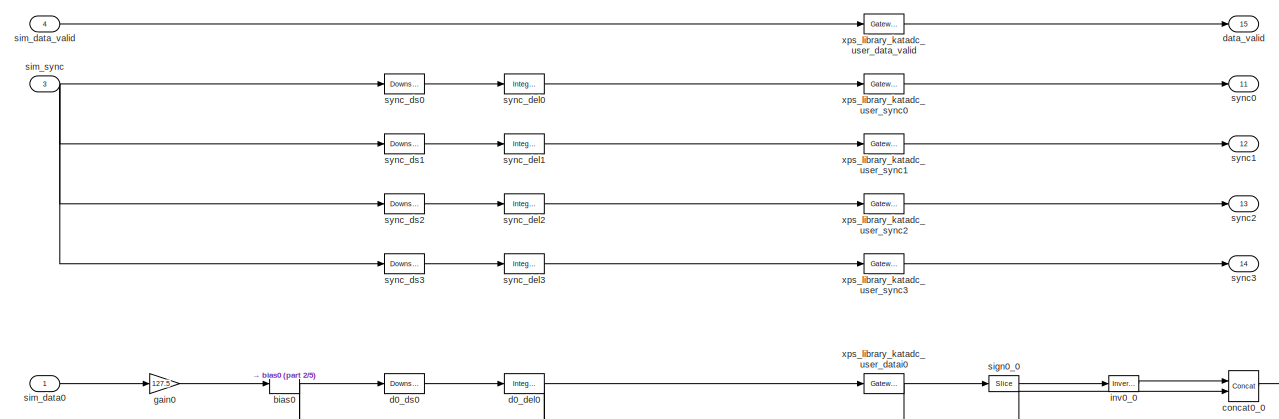
[diagram: katadc - part 1/5, full width, top band]
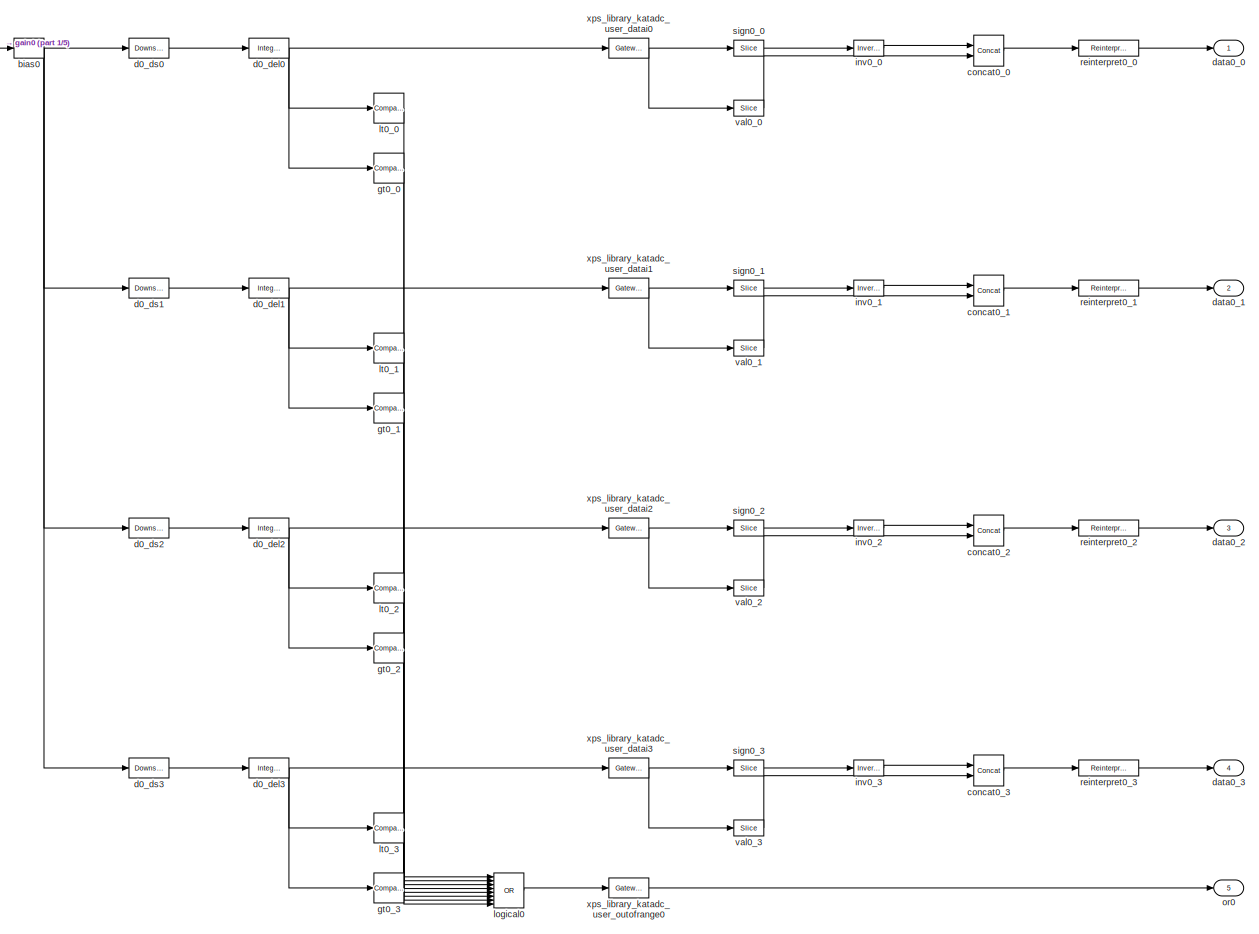
[diagram: katadc - part 2/5, full width, top band]
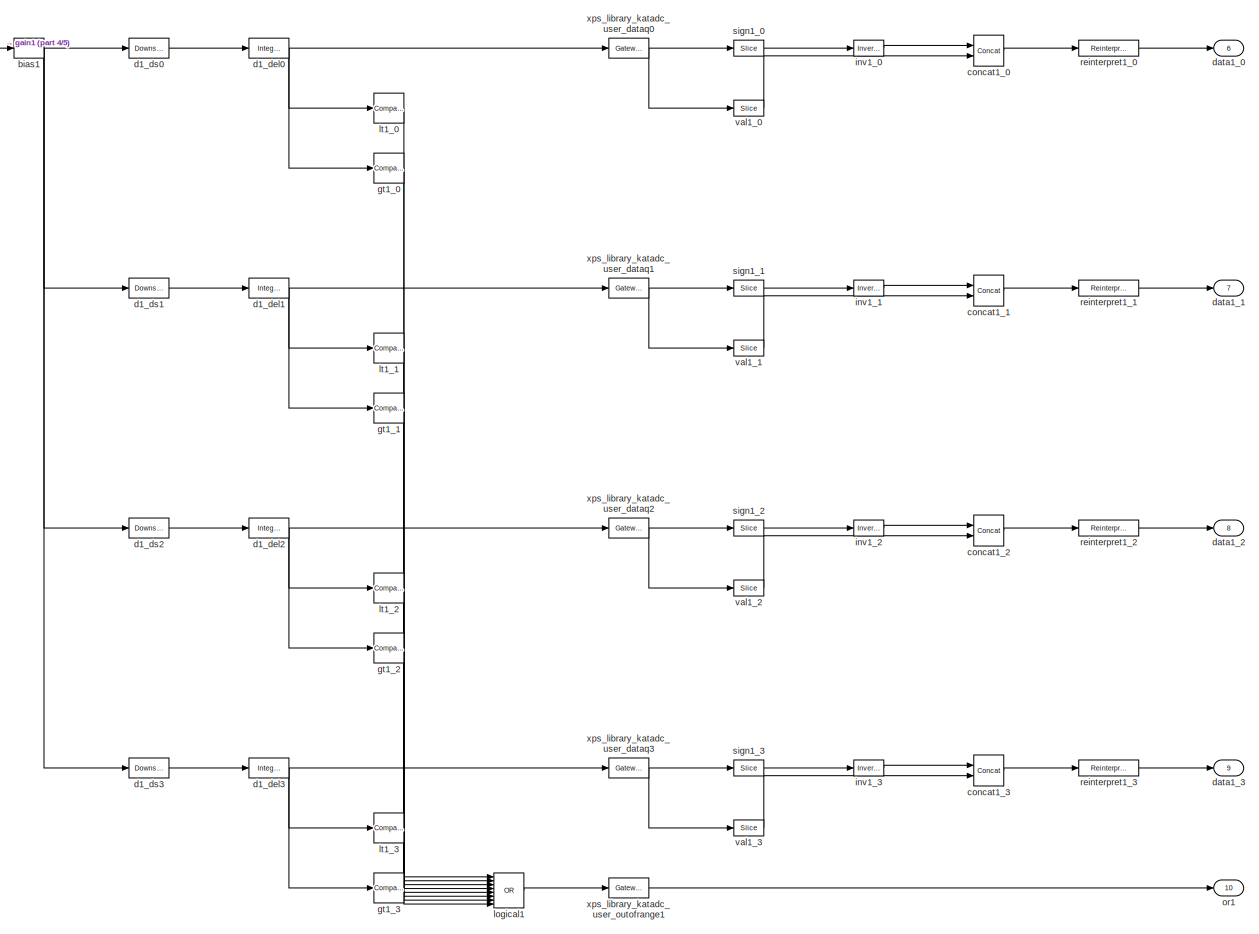
[diagram: katadc - part 3/5, full width, middle band]
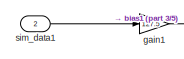
[diagram: katadc - part 4/5, middle left region]
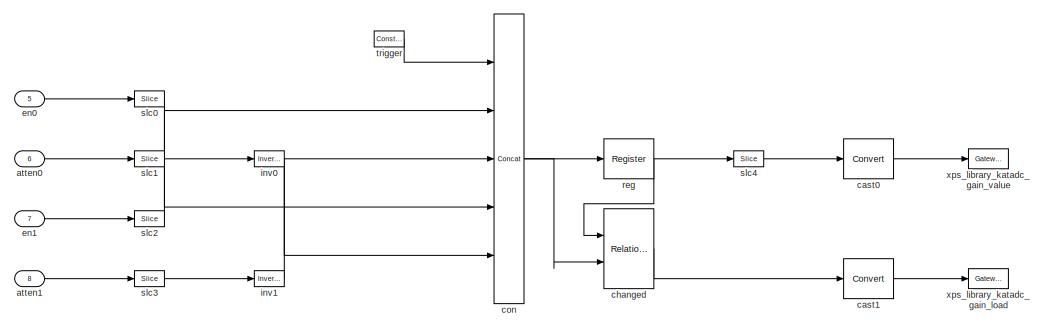
[diagram: katadc - part 5/5, bottom center region]
BLOCK [SubSystem] katadc
  FunctionWithSeparateData = off
  MaskHideContents = off
  MinAlgLoopOccurrences = off
  Opaque = off
  Ports = [8, 15]
  PropExecContextOutsideSubsystem = off
  RTWSystemCode = Auto
  RequestExecContextInheritance = off
  SID = 178
  Tag = xps:katadc
  UserData = DataTag16
  UserDataPersistent = on
BLOCK [Inport] katadc/atten0
  IconDisplay = Port number
  Port = 6
  SID = 184
BLOCK [Inport] katadc/atten1
  IconDisplay = Port number
  Port = 8
  SID = 186
BLOCK [Bias] katadc/bias0
  Bias = 127.5
  SID = 187
BLOCK [Bias] katadc/bias1
  Bias = 127.5
  SID = 188
BLOCK [Reference] katadc/cast0  REF=xbsIndex_r4/Convert
  Ports = [1, 1]
  SID = 189
  SourceBlock = xbsIndex_r4/Convert
  SourceType = Xilinx Type Converter Block
  arith_type = Unsigned
  bin_pt = 0
  block_type = convert
  block_version = 11.4
  dbl_ovrd = off
  en = off
  exp_bits = 8
  float_type = Single
  fraction_bits = 24
  gui_display_data_type = Fixed-point
  has_advanced_control = 0
  infoedit = Hardware notes: rounding and saturating require hardware resources; truncating and wrapping do not.
  latency = 0
  n_bits = 14
  overflow = Wrap
  pipeline = off
  quantization = Truncate
  sg_icon_stat = 50,40,1,1,white,blue,0,edca21da,right,,[ ],[ ]
  sg_mask_display = fprintf('','COMMENT: begin icon graphics');\npatch([0 50 50 0 0 ],[0 0 40 40 0 ],[0.77 0.82 0.91 ]);\nplot([0 50 50 0 0 ],[0 0 40 40 0 ]);\npatch([13.875 21.1 26.1 31.1 36.1 26.1 18.875 13.875 ],[25.55 25.55 30.55 25.55 30.55 30.55 30.55 25.55 ],[1 1 1 ]);\npatch([18.875 26.1 21.1 13.875 18.875 ],[20.55 20.55 25.55 25.55 20.55 ],[0.931 0.946 0.973 ]);\npatch([13.875 21.1 26.1 18.875 13.875 ],[15.5...<+331ch>
  sggui_pos = -1,-1,-1,-1
  xl_area = [0,0,0,0,0,0,0]
  xl_use_area = off
BLOCK [Reference] katadc/cast1  REF=xbsIndex_r4/Convert
  Ports = [1, 1]
  SID = 190
  SourceBlock = xbsIndex_r4/Convert
  SourceType = Xilinx Type Converter Block
  arith_type = Boolean
  bin_pt = 14
  block_type = convert
  block_version = 11.4
  dbl_ovrd = off
  en = off
  exp_bits = 8
  float_type = Single
  fraction_bits = 24
  gui_display_data_type = Fixed-point
  has_advanced_control = 0
  infoedit = Hardware notes: rounding and saturating require hardware resources; truncating and wrapping do not.
  latency = 0
  n_bits = 16
  overflow = Wrap
  pipeline = off
  quantization = Truncate
  sg_icon_stat = 50,40,1,1,white,blue,0,edca21da,right,,[ ],[ ]
  sg_mask_display = fprintf('','COMMENT: begin icon graphics');\npatch([0 50 50 0 0 ],[0 0 40 40 0 ],[0.77 0.82 0.91 ]);\nplot([0 50 50 0 0 ],[0 0 40 40 0 ]);\npatch([13.875 21.1 26.1 31.1 36.1 26.1 18.875 13.875 ],[25.55 25.55 30.55 25.55 30.55 30.55 30.55 25.55 ],[1 1 1 ]);\npatch([18.875 26.1 21.1 13.875 18.875 ],[20.55 20.55 25.55 25.55 20.55 ],[0.931 0.946 0.973 ]);\npatch([13.875 21.1 26.1 18.875 13.875 ],[15.5...<+331ch>
  sggui_pos = -1,-1,-1,-1
  xl_area = [0,0,0,0,0,0,0]
  xl_use_area = off
BLOCK [Reference] katadc/changed  REF=xbsIndex_r4/Relational
  Ports = [2, 1]
  SID = 191
  SourceBlock = xbsIndex_r4/Relational
  SourceType = Xilinx Arithmetic Relational Operator Block
  block_type = relational
  block_version = 11.4
  dbl_ovrd = off
  en = off
  has_advanced_control = 0
  latency = 1
  mode = a!=b
  sg_icon_stat = 50,80,2,1,white,blue,0,8d9aea79,right,,[ ],[ ]
  sg_mask_display = fprintf('','COMMENT: begin icon graphics');\npatch([0 50 50 0 0 ],[0 0 80 80 0 ],[0.77 0.82 0.91 ]);\nplot([0 50 50 0 0 ],[0 0 80 80 0 ]);\npatch([9.425 19.54 26.54 33.54 40.54 26.54 16.425 9.425 ],[47.77 47.77 54.77 47.77 54.77 54.77 54.77 47.77 ],[1 1 1 ]);\npatch([16.425 26.54 19.54 9.425 16.425 ],[40.77 40.77 47.77 47.77 40.77 ],[0.931 0.946 0.973 ]);\npatch([9.425 19.54 26.54 16.425 9.425 ],[...<+532ch>
  sggui_pos = -1,-1,-1,-1
  xl_area = [0,0,0,0,0,0,0]
  xl_use_area = off
BLOCK [Reference] katadc/con  REF=xbsIndex_r4/Concat
  Ports = [5, 1]
  SID = 192
  SourceBlock = xbsIndex_r4/Concat
  SourceType = Xilinx Bus Concatenator Block
  block_type = concat
  block_version = 11.4
  dbl_ovrd = off
  has_advanced_control = 0
  infoedit = Concatenates two or more inputs.  Output will be cast to an unsigned value with the binary point at zero.
  num_inputs = 5
  sg_icon_stat = 30,290,5,1,white,blue,0,64797e70,right,,[ ],[ ]
  sg_mask_display = fprintf('','COMMENT: begin icon graphics');\npatch([0 30 30 0 0 ],[0 0 290 290 0 ],[0.77 0.82 0.91 ]);\nplot([0 30 30 0 0 ],[0 0 290 290 0 ]);\npatch([6.1 11.88 15.88 19.88 23.88 15.88 10.1 6.1 ],[149.44 149.44 153.44 149.44 153.44 153.44 153.44 149.44 ],[1 1 1 ]);\npatch([10.1 15.88 11.88 6.1 10.1 ],[145.44 145.44 149.44 149.44 145.44 ],[0.931 0.946 0.973 ]);\npatch([6.1 11.88 15.88 10.1 6.1 ],[1...<+448ch>
  sggui_pos = -1,-1,-1,-1
BLOCK [Reference] katadc/concat0_0  REF=xbsIndex_r4/Concat
  Ports = [2, 1]
  SID = 193
  SourceBlock = xbsIndex_r4/Concat
  SourceType = Xilinx Bus Concatenator Block
  block_type = concat
  block_version = 11.4
  dbl_ovrd = off
  has_advanced_control = 0
  infoedit = Concatenates two or more inputs.  Output will be cast to an unsigned value with the binary point at zero.
  num_inputs = 2
  sg_icon_stat = 30,31,2,1,white,blue,0,16398980,right,,[ ],[ ]
  sggui_pos = -1,-1,-1,-1
BLOCK [Reference] katadc/concat0_1  REF=xbsIndex_r4/Concat
  Ports = [2, 1]
  SID = 194
  SourceBlock = xbsIndex_r4/Concat
  SourceType = Xilinx Bus Concatenator Block
  block_type = concat
  block_version = 11.4
  dbl_ovrd = off
  has_advanced_control = 0
  infoedit = Concatenates two or more inputs.  Output will be cast to an unsigned value with the binary point at zero.
  num_inputs = 2
  sg_icon_stat = 30,31,2,1,white,blue,0,16398980,right,,[ ],[ ]
  sggui_pos = -1,-1,-1,-1
BLOCK [Reference] katadc/concat0_2  REF=xbsIndex_r4/Concat
  Ports = [2, 1]
  SID = 195
  SourceBlock = xbsIndex_r4/Concat
  SourceType = Xilinx Bus Concatenator Block
  block_type = concat
  block_version = 11.4
  dbl_ovrd = off
  has_advanced_control = 0
  infoedit = Concatenates two or more inputs.  Output will be cast to an unsigned value with the binary point at zero.
  num_inputs = 2
  sg_icon_stat = 30,31,2,1,white,blue,0,16398980,right,,[ ],[ ]
  sggui_pos = -1,-1,-1,-1
BLOCK [Reference] katadc/concat0_3  REF=xbsIndex_r4/Concat
  Ports = [2, 1]
  SID = 196
  SourceBlock = xbsIndex_r4/Concat
  SourceType = Xilinx Bus Concatenator Block
  block_type = concat
  block_version = 11.4
  dbl_ovrd = off
  has_advanced_control = 0
  infoedit = Concatenates two or more inputs.  Output will be cast to an unsigned value with the binary point at zero.
  num_inputs = 2
  sg_icon_stat = 30,31,2,1,white,blue,0,16398980,right,,[ ],[ ]
  sggui_pos = -1,-1,-1,-1
BLOCK [Reference] katadc/concat1_0  REF=xbsIndex_r4/Concat
  Ports = [2, 1]
  SID = 197
  SourceBlock = xbsIndex_r4/Concat
  SourceType = Xilinx Bus Concatenator Block
  block_type = concat
  block_version = 11.4
  dbl_ovrd = off
  has_advanced_control = 0
  infoedit = Concatenates two or more inputs.  Output will be cast to an unsigned value with the binary point at zero.
  num_inputs = 2
  sg_icon_stat = 30,31,2,1,white,blue,0,16398980,right,,[ ],[ ]
  sggui_pos = -1,-1,-1,-1
BLOCK [Reference] katadc/concat1_1  REF=xbsIndex_r4/Concat
  Ports = [2, 1]
  SID = 198
  SourceBlock = xbsIndex_r4/Concat
  SourceType = Xilinx Bus Concatenator Block
  block_type = concat
  block_version = 11.4
  dbl_ovrd = off
  has_advanced_control = 0
  infoedit = Concatenates two or more inputs.  Output will be cast to an unsigned value with the binary point at zero.
  num_inputs = 2
  sg_icon_stat = 30,31,2,1,white,blue,0,16398980,right,,[ ],[ ]
  sggui_pos = -1,-1,-1,-1
BLOCK [Reference] katadc/concat1_2  REF=xbsIndex_r4/Concat
  Ports = [2, 1]
  SID = 199
  SourceBlock = xbsIndex_r4/Concat
  SourceType = Xilinx Bus Concatenator Block
  block_type = concat
  block_version = 11.4
  dbl_ovrd = off
  has_advanced_control = 0
  infoedit = Concatenates two or more inputs.  Output will be cast to an unsigned value with the binary point at zero.
  num_inputs = 2
  sg_icon_stat = 30,31,2,1,white,blue,0,16398980,right,,[ ],[ ]
  sggui_pos = -1,-1,-1,-1
BLOCK [Reference] katadc/concat1_3  REF=xbsIndex_r4/Concat
  Ports = [2, 1]
  SID = 200
  SourceBlock = xbsIndex_r4/Concat
  SourceType = Xilinx Bus Concatenator Block
  block_type = concat
  block_version = 11.4
  dbl_ovrd = off
  has_advanced_control = 0
  infoedit = Concatenates two or more inputs.  Output will be cast to an unsigned value with the binary point at zero.
  num_inputs = 2
  sg_icon_stat = 30,31,2,1,white,blue,0,16398980,right,,[ ],[ ]
  sggui_pos = -1,-1,-1,-1
BLOCK [Reference] katadc/d0_del0  REF=simulink/Discrete/Integer Delay
  NumDelays = 2
  Ports = [1, 1]
  SID = 201
  SourceBlock = simulink/Discrete/Integer Delay
  SourceType = Integer Delay
  samptime = -1
  vinit = 0.0
BLOCK [Reference] katadc/d0_del1  REF=simulink/Discrete/Integer Delay
  NumDelays = 1
  Ports = [1, 1]
  SID = 202
  SourceBlock = simulink/Discrete/Integer Delay
  SourceType = Integer Delay
  samptime = -1
  vinit = 0.0
BLOCK [Reference] katadc/d0_del2  REF=simulink/Discrete/Integer Delay
  NumDelays = 1
  Ports = [1, 1]
  SID = 203
  SourceBlock = simulink/Discrete/Integer Delay
  SourceType = Integer Delay
  samptime = -1
  vinit = 0.0
BLOCK [Reference] katadc/d0_del3  REF=simulink/Discrete/Integer Delay
  NumDelays = 1
  Ports = [1, 1]
  SID = 204
  SourceBlock = simulink/Discrete/Integer Delay
  SourceType = Integer Delay
  samptime = -1
  vinit = 0.0
BLOCK [Reference] katadc/d0_ds0  REF=dspsigops/Downsample
  N = 4
  Ports = [1, 1]
  SID = 205
  SourceBlock = dspsigops/Downsample
  SourceType = Downsample
  UserDataPersistent = on
  fmode = Maintain input frame size
  ic = 0
  phase = 0
  smode = Allow multirate
BLOCK [Reference] katadc/d0_ds1  REF=dspsigops/Downsample
  N = 4
  Ports = [1, 1]
  SID = 206
  SourceBlock = dspsigops/Downsample
  SourceType = Downsample
  UserDataPersistent = on
  fmode = Maintain input frame size
  ic = 0
  phase = 1
  smode = Allow multirate
BLOCK [Reference] katadc/d0_ds2  REF=dspsigops/Downsample
  N = 4
  Ports = [1, 1]
  SID = 207
  SourceBlock = dspsigops/Downsample
  SourceType = Downsample
  UserDataPersistent = on
  fmode = Maintain input frame size
  ic = 0
  phase = 2
  smode = Allow multirate
BLOCK [Reference] katadc/d0_ds3  REF=dspsigops/Downsample
  N = 4
  Ports = [1, 1]
  SID = 208
  SourceBlock = dspsigops/Downsample
  SourceType = Downsample
  UserDataPersistent = on
  fmode = Maintain input frame size
  ic = 0
  phase = 3
  smode = Allow multirate
BLOCK [Reference] katadc/d1_del0  REF=simulink/Discrete/Integer Delay
  NumDelays = 2
  Ports = [1, 1]
  SID = 209
  SourceBlock = simulink/Discrete/Integer Delay
  SourceType = Integer Delay
  samptime = -1
  vinit = 0.0
BLOCK [Reference] katadc/d1_del1  REF=simulink/Discrete/Integer Delay
  NumDelays = 1
  Ports = [1, 1]
  SID = 210
  SourceBlock = simulink/Discrete/Integer Delay
  SourceType = Integer Delay
  samptime = -1
  vinit = 0.0
BLOCK [Reference] katadc/d1_del2  REF=simulink/Discrete/Integer Delay
  NumDelays = 1
  Ports = [1, 1]
  SID = 211
  SourceBlock = simulink/Discrete/Integer Delay
  SourceType = Integer Delay
  samptime = -1
  vinit = 0.0
BLOCK [Reference] katadc/d1_del3  REF=simulink/Discrete/Integer Delay
  NumDelays = 1
  Ports = [1, 1]
  SID = 212
  SourceBlock = simulink/Discrete/Integer Delay
  SourceType = Integer Delay
  samptime = -1
  vinit = 0.0
BLOCK [Reference] katadc/d1_ds0  REF=dspsigops/Downsample
  N = 4
  Ports = [1, 1]
  SID = 213
  SourceBlock = dspsigops/Downsample
  SourceType = Downsample
  UserDataPersistent = on
  fmode = Maintain input frame size
  ic = 0
  phase = 0
  smode = Allow multirate
BLOCK [Reference] katadc/d1_ds1  REF=dspsigops/Downsample
  N = 4
  Ports = [1, 1]
  SID = 214
  SourceBlock = dspsigops/Downsample
  SourceType = Downsample
  UserDataPersistent = on
  fmode = Maintain input frame size
  ic = 0
  phase = 1
  smode = Allow multirate
BLOCK [Reference] katadc/d1_ds2  REF=dspsigops/Downsample
  N = 4
  Ports = [1, 1]
  SID = 215
  SourceBlock = dspsigops/Downsample
  SourceType = Downsample
  UserDataPersistent = on
  fmode = Maintain input frame size
  ic = 0
  phase = 2
  smode = Allow multirate
BLOCK [Reference] katadc/d1_ds3  REF=dspsigops/Downsample
  N = 4
  Ports = [1, 1]
  SID = 216
  SourceBlock = dspsigops/Downsample
  SourceType = Downsample
  UserDataPersistent = on
  fmode = Maintain input frame size
  ic = 0
  phase = 3
  smode = Allow multirate
BLOCK [Outport] katadc/data0_0
  IconDisplay = Port number
  SID = 303
BLOCK [Outport] katadc/data0_1
  IconDisplay = Port number
  Port = 2
  SID = 304
BLOCK [Outport] katadc/data0_2
  IconDisplay = Port number
  Port = 3
  SID = 305
BLOCK [Outport] katadc/data0_3
  IconDisplay = Port number
  Port = 4
  SID = 306
BLOCK [Outport] katadc/data1_0
  IconDisplay = Port number
  Port = 6
  SID = 308
BLOCK [Outport] katadc/data1_1
  IconDisplay = Port number
  Port = 7
  SID = 309
BLOCK [Outport] katadc/data1_2
  IconDisplay = Port number
  Port = 8
  SID = 310
BLOCK [Outport] katadc/data1_3
  IconDisplay = Port number
  Port = 9
  SID = 311
BLOCK [Outport] katadc/data_valid
  IconDisplay = Port number
  Port = 15
  SID = 317
BLOCK [Inport] katadc/en0
  IconDisplay = Port number
  Port = 5
  SID = 183
BLOCK [Inport] katadc/en1
  IconDisplay = Port number
  Port = 7
  SID = 185
BLOCK [Gain] katadc/gain0
  Gain = 127.5
  SID = 217
BLOCK [Gain] katadc/gain1
  Gain = 127.5
  SID = 218
BLOCK [Reference] katadc/gt0_0  REF=simulink/Logic and Bit\nOperations/Compare\nTo Constant
  LogicOutDataTypeMode = boolean
  Ports = [1, 1]
  SID = 219
  SourceBlock = simulink/Logic and Bit\nOperations/Compare\nTo Constant
  SourceType = Compare To Constant
  ZeroCross = off
  const = 255
  relop = >
BLOCK [Reference] katadc/gt0_1  REF=simulink/Logic and Bit\nOperations/Compare\nTo Constant
  LogicOutDataTypeMode = boolean
  Ports = [1, 1]
  SID = 220
  SourceBlock = simulink/Logic and Bit\nOperations/Compare\nTo Constant
  SourceType = Compare To Constant
  ZeroCross = off
  const = 255
  relop = >
BLOCK [Reference] katadc/gt0_2  REF=simulink/Logic and Bit\nOperations/Compare\nTo Constant
  LogicOutDataTypeMode = boolean
  Ports = [1, 1]
  SID = 221
  SourceBlock = simulink/Logic and Bit\nOperations/Compare\nTo Constant
  SourceType = Compare To Constant
  ZeroCross = off
  const = 255
  relop = >
BLOCK [Reference] katadc/gt0_3  REF=simulink/Logic and Bit\nOperations/Compare\nTo Constant
  LogicOutDataTypeMode = boolean
  Ports = [1, 1]
  SID = 222
  SourceBlock = simulink/Logic and Bit\nOperations/Compare\nTo Constant
  SourceType = Compare To Constant
  ZeroCross = off
  const = 255
  relop = >
BLOCK [Reference] katadc/gt1_0  REF=simulink/Logic and Bit\nOperations/Compare\nTo Constant
  LogicOutDataTypeMode = boolean
  Ports = [1, 1]
  SID = 223
  SourceBlock = simulink/Logic and Bit\nOperations/Compare\nTo Constant
  SourceType = Compare To Constant
  ZeroCross = off
  const = 255
  relop = >
BLOCK [Reference] katadc/gt1_1  REF=simulink/Logic and Bit\nOperations/Compare\nTo Constant
  LogicOutDataTypeMode = boolean
  Ports = [1, 1]
  SID = 224
  SourceBlock = simulink/Logic and Bit\nOperations/Compare\nTo Constant
  SourceType = Compare To Constant
  ZeroCross = off
  const = 255
  relop = >
BLOCK [Reference] katadc/gt1_2  REF=simulink/Logic and Bit\nOperations/Compare\nTo Constant
  LogicOutDataTypeMode = boolean
  Ports = [1, 1]
  SID = 225
  SourceBlock = simulink/Logic and Bit\nOperations/Compare\nTo Constant
  SourceType = Compare To Constant
  ZeroCross = off
  const = 255
  relop = >
BLOCK [Reference] katadc/gt1_3  REF=simulink/Logic and Bit\nOperations/Compare\nTo Constant
  LogicOutDataTypeMode = boolean
  Ports = [1, 1]
  SID = 226
  SourceBlock = simulink/Logic and Bit\nOperations/Compare\nTo Constant
  SourceType = Compare To Constant
  ZeroCross = off
  const = 255
  relop = >
BLOCK [Reference] katadc/inv0  REF=xbsIndex_r4/Inverter
  Ports = [1, 1]
  SID = 227
  SourceBlock = xbsIndex_r4/Inverter
  SourceType = Xilinx Inverter Block
  block_type = inv
  block_version = 11.4
  dbl_ovrd = off
  en = off
  has_advanced_control = 0
  infoedit = Bitwise logical negation (one's complement) operator.
  latency = 0
  sg_icon_stat = 30,16,1,1,white,blue,0,267846e5,right,,[ ],[ ]
  sggui_pos = -1,-1,-1,-1
  xl_area = [0,0,0,0,0,0,0]
  xl_use_area = off
BLOCK [Reference] katadc/inv0_0  REF=xbsIndex_r4/Inverter
  Ports = [1, 1]
  SID = 228
  SourceBlock = xbsIndex_r4/Inverter
  SourceType = Xilinx Inverter Block
  block_type = inv
  block_version = 11.4
  dbl_ovrd = off
  en = off
  has_advanced_control = 0
  infoedit = Bitwise logical negation (one's complement) operator.
  latency = 0
  sg_icon_stat = 30,16,1,1,white,blue,0,267846e5,right,,[ ],[ ]
  sggui_pos = -1,-1,-1,-1
  xl_area = [0,0,0,0,0,0,0]
  xl_use_area = off
BLOCK [Reference] katadc/inv0_1  REF=xbsIndex_r4/Inverter
  Ports = [1, 1]
  SID = 229
  SourceBlock = xbsIndex_r4/Inverter
  SourceType = Xilinx Inverter Block
  block_type = inv
  block_version = 11.4
  dbl_ovrd = off
  en = off
  has_advanced_control = 0
  infoedit = Bitwise logical negation (one's complement) operator.
  latency = 0
  sg_icon_stat = 30,16,1,1,white,blue,0,267846e5,right,,[ ],[ ]
  sggui_pos = -1,-1,-1,-1
  xl_area = [0,0,0,0,0,0,0]
  xl_use_area = off
BLOCK [Reference] katadc/inv0_2  REF=xbsIndex_r4/Inverter
  Ports = [1, 1]
  SID = 230
  SourceBlock = xbsIndex_r4/Inverter
  SourceType = Xilinx Inverter Block
  block_type = inv
  block_version = 11.4
  dbl_ovrd = off
  en = off
  has_advanced_control = 0
  infoedit = Bitwise logical negation (one's complement) operator.
  latency = 0
  sg_icon_stat = 30,16,1,1,white,blue,0,267846e5,right,,[ ],[ ]
  sggui_pos = -1,-1,-1,-1
  xl_area = [0,0,0,0,0,0,0]
  xl_use_area = off
BLOCK [Reference] katadc/inv0_3  REF=xbsIndex_r4/Inverter
  Ports = [1, 1]
  SID = 231
  SourceBlock = xbsIndex_r4/Inverter
  SourceType = Xilinx Inverter Block
  block_type = inv
  block_version = 11.4
  dbl_ovrd = off
  en = off
  has_advanced_control = 0
  infoedit = Bitwise logical negation (one's complement) operator.
  latency = 0
  sg_icon_stat = 30,16,1,1,white,blue,0,267846e5,right,,[ ],[ ]
  sggui_pos = -1,-1,-1,-1
  xl_area = [0,0,0,0,0,0,0]
  xl_use_area = off
BLOCK [Reference] katadc/inv1  REF=xbsIndex_r4/Inverter
  Ports = [1, 1]
  SID = 232
  SourceBlock = xbsIndex_r4/Inverter
  SourceType = Xilinx Inverter Block
  block_type = inv
  block_version = 11.4
  dbl_ovrd = off
  en = off
  has_advanced_control = 0
  infoedit = Bitwise logical negation (one's complement) operator.
  latency = 0
  sg_icon_stat = 30,16,1,1,white,blue,0,267846e5,right,,[ ],[ ]
  sggui_pos = -1,-1,-1,-1
  xl_area = [0,0,0,0,0,0,0]
  xl_use_area = off
BLOCK [Reference] katadc/inv1_0  REF=xbsIndex_r4/Inverter
  Ports = [1, 1]
  SID = 233
  SourceBlock = xbsIndex_r4/Inverter
  SourceType = Xilinx Inverter Block
  block_type = inv
  block_version = 11.4
  dbl_ovrd = off
  en = off
  has_advanced_control = 0
  infoedit = Bitwise logical negation (one's complement) operator.
  latency = 0
  sg_icon_stat = 30,16,1,1,white,blue,0,267846e5,right,,[ ],[ ]
  sggui_pos = -1,-1,-1,-1
  xl_area = [0,0,0,0,0,0,0]
  xl_use_area = off
BLOCK [Reference] katadc/inv1_1  REF=xbsIndex_r4/Inverter
  Ports = [1, 1]
  SID = 234
  SourceBlock = xbsIndex_r4/Inverter
  SourceType = Xilinx Inverter Block
  block_type = inv
  block_version = 11.4
  dbl_ovrd = off
  en = off
  has_advanced_control = 0
  infoedit = Bitwise logical negation (one's complement) operator.
  latency = 0
  sg_icon_stat = 30,16,1,1,white,blue,0,267846e5,right,,[ ],[ ]
  sggui_pos = -1,-1,-1,-1
  xl_area = [0,0,0,0,0,0,0]
  xl_use_area = off
BLOCK [Reference] katadc/inv1_2  REF=xbsIndex_r4/Inverter
  Ports = [1, 1]
  SID = 235
  SourceBlock = xbsIndex_r4/Inverter
  SourceType = Xilinx Inverter Block
  block_type = inv
  block_version = 11.4
  dbl_ovrd = off
  en = off
  has_advanced_control = 0
  infoedit = Bitwise logical negation (one's complement) operator.
  latency = 0
  sg_icon_stat = 30,16,1,1,white,blue,0,267846e5,right,,[ ],[ ]
  sggui_pos = -1,-1,-1,-1
  xl_area = [0,0,0,0,0,0,0]
  xl_use_area = off
BLOCK [Reference] katadc/inv1_3  REF=xbsIndex_r4/Inverter
  Ports = [1, 1]
  SID = 236
  SourceBlock = xbsIndex_r4/Inverter
  SourceType = Xilinx Inverter Block
  block_type = inv
  block_version = 11.4
  dbl_ovrd = off
  en = off
  has_advanced_control = 0
  infoedit = Bitwise logical negation (one's complement) operator.
  latency = 0
  sg_icon_stat = 30,16,1,1,white,blue,0,267846e5,right,,[ ],[ ]
  sggui_pos = -1,-1,-1,-1
  xl_area = [0,0,0,0,0,0,0]
  xl_use_area = off
BLOCK [Logic] katadc/logical0
  Inputs = 8
  Operator = OR
  Ports = [8, 1]
  SID = 237
BLOCK [Logic] katadc/logical1
  Inputs = 8
  Operator = OR
  Ports = [8, 1]
  SID = 238
BLOCK [Reference] katadc/lt0_0  REF=simulink/Logic and Bit\nOperations/Compare\nTo Constant
  LogicOutDataTypeMode = boolean
  Ports = [1, 1]
  SID = 239
  SourceBlock = simulink/Logic and Bit\nOperations/Compare\nTo Constant
  SourceType = Compare To Constant
  ZeroCross = off
  const = 0
  relop = <
BLOCK [Reference] katadc/lt0_1  REF=simulink/Logic and Bit\nOperations/Compare\nTo Constant
  LogicOutDataTypeMode = boolean
  Ports = [1, 1]
  SID = 240
  SourceBlock = simulink/Logic and Bit\nOperations/Compare\nTo Constant
  SourceType = Compare To Constant
  ZeroCross = off
  const = 0
  relop = <
BLOCK [Reference] katadc/lt0_2  REF=simulink/Logic and Bit\nOperations/Compare\nTo Constant
  LogicOutDataTypeMode = boolean
  Ports = [1, 1]
  SID = 241
  SourceBlock = simulink/Logic and Bit\nOperations/Compare\nTo Constant
  SourceType = Compare To Constant
  ZeroCross = off
  const = 0
  relop = <
BLOCK [Reference] katadc/lt0_3  REF=simulink/Logic and Bit\nOperations/Compare\nTo Constant
  LogicOutDataTypeMode = boolean
  Ports = [1, 1]
  SID = 242
  SourceBlock = simulink/Logic and Bit\nOperations/Compare\nTo Constant
  SourceType = Compare To Constant
  ZeroCross = off
  const = 0
  relop = <
BLOCK [Reference] katadc/lt1_0  REF=simulink/Logic and Bit\nOperations/Compare\nTo Constant
  LogicOutDataTypeMode = boolean
  Ports = [1, 1]
  SID = 243
  SourceBlock = simulink/Logic and Bit\nOperations/Compare\nTo Constant
  SourceType = Compare To Constant
  ZeroCross = off
  const = 0
  relop = <
BLOCK [Reference] katadc/lt1_1  REF=simulink/Logic and Bit\nOperations/Compare\nTo Constant
  LogicOutDataTypeMode = boolean
  Ports = [1, 1]
  SID = 244
  SourceBlock = simulink/Logic and Bit\nOperations/Compare\nTo Constant
  SourceType = Compare To Constant
  ZeroCross = off
  const = 0
  relop = <
BLOCK [Reference] katadc/lt1_2  REF=simulink/Logic and Bit\nOperations/Compare\nTo Constant
  LogicOutDataTypeMode = boolean
  Ports = [1, 1]
  SID = 245
  SourceBlock = simulink/Logic and Bit\nOperations/Compare\nTo Constant
  SourceType = Compare To Constant
  ZeroCross = off
  const = 0
  relop = <
BLOCK [Reference] katadc/lt1_3  REF=simulink/Logic and Bit\nOperations/Compare\nTo Constant
  LogicOutDataTypeMode = boolean
  Ports = [1, 1]
  SID = 246
  SourceBlock = simulink/Logic and Bit\nOperations/Compare\nTo Constant
  SourceType = Compare To Constant
  ZeroCross = off
  const = 0
  relop = <
BLOCK [Outport] katadc/or0
  IconDisplay = Port number
  Port = 5
  SID = 307
BLOCK [Outport] katadc/or1
  IconDisplay = Port number
  Port = 10
  SID = 312
BLOCK [Reference] katadc/reg  REF=xbsIndex_r4/Register
  Ports = [1, 1]
  SID = 247
  SourceBlock = xbsIndex_r4/Register
  SourceType = Xilinx Register Block
  block_type = register
  block_version = 11.4
  dbl_ovrd = off
  en = off
  has_advanced_control = 0
  init = 0
  rst = off
  sg_icon_stat = 50,40,1,1,white,blue,0,c80657c5,right,,[ ],[ ]
  sg_mask_display = fprintf('','COMMENT: begin icon graphics');\npatch([0 50 50 0 0 ],[0 0 40 40 0 ],[0.77 0.82 0.91 ]);\nplot([0 50 50 0 0 ],[0 0 40 40 0 ]);\npatch([13.875 21.1 26.1 31.1 36.1 26.1 18.875 13.875 ],[25.55 25.55 30.55 25.55 30.55 30.55 30.55 25.55 ],[1 1 1 ]);\npatch([18.875 26.1 21.1 13.875 18.875 ],[20.55 20.55 25.55 25.55 20.55 ],[0.931 0.946 0.973 ]);\npatch([13.875 21.1 26.1 18.875 13.875 ],[15.5...<+414ch>
  sggui_pos = -1,-1,-1,-1
  xl_area = [0,0,0,0,0,0,0]
  xl_use_area = off
BLOCK [Reference] katadc/reinterpret0_0  REF=xbsIndex_r4/Reinterpret
  Ports = [1, 1]
  SID = 248
  SourceBlock = xbsIndex_r4/Reinterpret
  SourceType = Xilinx Type Reinterpreter Block
  arith_type = Signed  (2's comp)
  bin_pt = 7
  block_type = reinterpret
  block_version = 11.4
  force_arith_type = on
  force_bin_pt = on
  has_advanced_control = 0
  sg_icon_stat = 60,16,1,1,white,blue,0,6b04d0b0,right,,[ ],[ ]
  sggui_pos = -1,-1,-1,-1
BLOCK [Reference] katadc/reinterpret0_1  REF=xbsIndex_r4/Reinterpret
  Ports = [1, 1]
  SID = 249
  SourceBlock = xbsIndex_r4/Reinterpret
  SourceType = Xilinx Type Reinterpreter Block
  arith_type = Signed  (2's comp)
  bin_pt = 7
  block_type = reinterpret
  block_version = 11.4
  force_arith_type = on
  force_bin_pt = on
  has_advanced_control = 0
  sg_icon_stat = 60,16,1,1,white,blue,0,6b04d0b0,right,,[ ],[ ]
  sggui_pos = -1,-1,-1,-1
BLOCK [Reference] katadc/reinterpret0_2  REF=xbsIndex_r4/Reinterpret
  Ports = [1, 1]
  SID = 250
  SourceBlock = xbsIndex_r4/Reinterpret
  SourceType = Xilinx Type Reinterpreter Block
  arith_type = Signed  (2's comp)
  bin_pt = 7
  block_type = reinterpret
  block_version = 11.4
  force_arith_type = on
  force_bin_pt = on
  has_advanced_control = 0
  sg_icon_stat = 60,16,1,1,white,blue,0,6b04d0b0,right,,[ ],[ ]
  sggui_pos = -1,-1,-1,-1
BLOCK [Reference] katadc/reinterpret0_3  REF=xbsIndex_r4/Reinterpret
  Ports = [1, 1]
  SID = 251
  SourceBlock = xbsIndex_r4/Reinterpret
  SourceType = Xilinx Type Reinterpreter Block
  arith_type = Signed  (2's comp)
  bin_pt = 7
  block_type = reinterpret
  block_version = 11.4
  force_arith_type = on
  force_bin_pt = on
  has_advanced_control = 0
  sg_icon_stat = 60,16,1,1,white,blue,0,6b04d0b0,right,,[ ],[ ]
  sggui_pos = -1,-1,-1,-1
BLOCK [Reference] katadc/reinterpret1_0  REF=xbsIndex_r4/Reinterpret
  Ports = [1, 1]
  SID = 252
  SourceBlock = xbsIndex_r4/Reinterpret
  SourceType = Xilinx Type Reinterpreter Block
  arith_type = Signed  (2's comp)
  bin_pt = 7
  block_type = reinterpret
  block_version = 11.4
  force_arith_type = on
  force_bin_pt = on
  has_advanced_control = 0
  sg_icon_stat = 60,16,1,1,white,blue,0,6b04d0b0,right,,[ ],[ ]
  sggui_pos = -1,-1,-1,-1
BLOCK [Reference] katadc/reinterpret1_1  REF=xbsIndex_r4/Reinterpret
  Ports = [1, 1]
  SID = 253
  SourceBlock = xbsIndex_r4/Reinterpret
  SourceType = Xilinx Type Reinterpreter Block
  arith_type = Signed  (2's comp)
  bin_pt = 7
  block_type = reinterpret
  block_version = 11.4
  force_arith_type = on
  force_bin_pt = on
  has_advanced_control = 0
  sg_icon_stat = 60,16,1,1,white,blue,0,6b04d0b0,right,,[ ],[ ]
  sggui_pos = -1,-1,-1,-1
BLOCK [Reference] katadc/reinterpret1_2  REF=xbsIndex_r4/Reinterpret
  Ports = [1, 1]
  SID = 254
  SourceBlock = xbsIndex_r4/Reinterpret
  SourceType = Xilinx Type Reinterpreter Block
  arith_type = Signed  (2's comp)
  bin_pt = 7
  block_type = reinterpret
  block_version = 11.4
  force_arith_type = on
  force_bin_pt = on
  has_advanced_control = 0
  sg_icon_stat = 60,16,1,1,white,blue,0,6b04d0b0,right,,[ ],[ ]
  sggui_pos = -1,-1,-1,-1
BLOCK [Reference] katadc/reinterpret1_3  REF=xbsIndex_r4/Reinterpret
  Ports = [1, 1]
  SID = 255
  SourceBlock = xbsIndex_r4/Reinterpret
  SourceType = Xilinx Type Reinterpreter Block
  arith_type = Signed  (2's comp)
  bin_pt = 7
  block_type = reinterpret
  block_version = 11.4
  force_arith_type = on
  force_bin_pt = on
  has_advanced_control = 0
  sg_icon_stat = 60,16,1,1,white,blue,0,6b04d0b0,right,,[ ],[ ]
  sggui_pos = -1,-1,-1,-1
BLOCK [Reference] katadc/sign0_0  REF=xbsIndex_r4/Slice
  Ports = [1, 1]
  SID = 256
  SourceBlock = xbsIndex_r4/Slice
  SourceType = Xilinx Bit Slice Extractor Block
  base0 = MSB of Input
  base1 = MSB of Input
  bit0 = 0
  bit1 = 0
  block_type = slice
  block_version = 11.4
  boolean_output = off
  dbl_ovrd = off
  has_advanced_control = 0
  mode = Upper Bit Location + Width
  nbits = 1
  sg_icon_stat = 30,16,1,1,white,blue,0,1fd851a7,right,,[ ],[ ]
  sggui_pos = -1,-1,-1,-1
BLOCK [Reference] katadc/sign0_1  REF=xbsIndex_r4/Slice
  Ports = [1, 1]
  SID = 257
  SourceBlock = xbsIndex_r4/Slice
  SourceType = Xilinx Bit Slice Extractor Block
  base0 = MSB of Input
  base1 = MSB of Input
  bit0 = 0
  bit1 = 0
  block_type = slice
  block_version = 11.4
  boolean_output = off
  dbl_ovrd = off
  has_advanced_control = 0
  mode = Upper Bit Location + Width
  nbits = 1
  sg_icon_stat = 30,16,1,1,white,blue,0,1fd851a7,right,,[ ],[ ]
  sggui_pos = -1,-1,-1,-1
BLOCK [Reference] katadc/sign0_2  REF=xbsIndex_r4/Slice
  Ports = [1, 1]
  SID = 258
  SourceBlock = xbsIndex_r4/Slice
  SourceType = Xilinx Bit Slice Extractor Block
  base0 = MSB of Input
  base1 = MSB of Input
  bit0 = 0
  bit1 = 0
  block_type = slice
  block_version = 11.4
  boolean_output = off
  dbl_ovrd = off
  has_advanced_control = 0
  mode = Upper Bit Location + Width
  nbits = 1
  sg_icon_stat = 30,16,1,1,white,blue,0,1fd851a7,right,,[ ],[ ]
  sggui_pos = -1,-1,-1,-1
BLOCK [Reference] katadc/sign0_3  REF=xbsIndex_r4/Slice
  Ports = [1, 1]
  SID = 259
  SourceBlock = xbsIndex_r4/Slice
  SourceType = Xilinx Bit Slice Extractor Block
  base0 = MSB of Input
  base1 = MSB of Input
  bit0 = 0
  bit1 = 0
  block_type = slice
  block_version = 11.4
  boolean_output = off
  dbl_ovrd = off
  has_advanced_control = 0
  mode = Upper Bit Location + Width
  nbits = 1
  sg_icon_stat = 30,16,1,1,white,blue,0,1fd851a7,right,,[ ],[ ]
  sggui_pos = -1,-1,-1,-1
BLOCK [Reference] katadc/sign1_0  REF=xbsIndex_r4/Slice
  Ports = [1, 1]
  SID = 260
  SourceBlock = xbsIndex_r4/Slice
  SourceType = Xilinx Bit Slice Extractor Block
  base0 = MSB of Input
  base1 = MSB of Input
  bit0 = 0
  bit1 = 0
  block_type = slice
  block_version = 11.4
  boolean_output = off
  dbl_ovrd = off
  has_advanced_control = 0
  mode = Upper Bit Location + Width
  nbits = 1
  sg_icon_stat = 30,16,1,1,white,blue,0,1fd851a7,right,,[ ],[ ]
  sggui_pos = -1,-1,-1,-1
BLOCK [Reference] katadc/sign1_1  REF=xbsIndex_r4/Slice
  Ports = [1, 1]
  SID = 261
  SourceBlock = xbsIndex_r4/Slice
  SourceType = Xilinx Bit Slice Extractor Block
  base0 = MSB of Input
  base1 = MSB of Input
  bit0 = 0
  bit1 = 0
  block_type = slice
  block_version = 11.4
  boolean_output = off
  dbl_ovrd = off
  has_advanced_control = 0
  mode = Upper Bit Location + Width
  nbits = 1
  sg_icon_stat = 30,16,1,1,white,blue,0,1fd851a7,right,,[ ],[ ]
  sggui_pos = -1,-1,-1,-1
BLOCK [Reference] katadc/sign1_2  REF=xbsIndex_r4/Slice
  Ports = [1, 1]
  SID = 262
  SourceBlock = xbsIndex_r4/Slice
  SourceType = Xilinx Bit Slice Extractor Block
  base0 = MSB of Input
  base1 = MSB of Input
  bit0 = 0
  bit1 = 0
  block_type = slice
  block_version = 11.4
  boolean_output = off
  dbl_ovrd = off
  has_advanced_control = 0
  mode = Upper Bit Location + Width
  nbits = 1
  sg_icon_stat = 30,16,1,1,white,blue,0,1fd851a7,right,,[ ],[ ]
  sggui_pos = -1,-1,-1,-1
BLOCK [Reference] katadc/sign1_3  REF=xbsIndex_r4/Slice
  Ports = [1, 1]
  SID = 263
  SourceBlock = xbsIndex_r4/Slice
  SourceType = Xilinx Bit Slice Extractor Block
  base0 = MSB of Input
  base1 = MSB of Input
  bit0 = 0
  bit1 = 0
  block_type = slice
  block_version = 11.4
  boolean_output = off
  dbl_ovrd = off
  has_advanced_control = 0
  mode = Upper Bit Location + Width
  nbits = 1
  sg_icon_stat = 30,16,1,1,white,blue,0,1fd851a7,right,,[ ],[ ]
  sggui_pos = -1,-1,-1,-1
BLOCK [Inport] katadc/sim_data0
  IconDisplay = Port number
  SID = 179
BLOCK [Inport] katadc/sim_data1
  IconDisplay = Port number
  Port = 2
  SID = 180
BLOCK [Inport] katadc/sim_data_valid
  IconDisplay = Port number
  Port = 4
  SID = 182
BLOCK [Inport] katadc/sim_sync
  IconDisplay = Port number
  Port = 3
  SID = 181
BLOCK [Reference] katadc/slc0  REF=xbsIndex_r4/Slice
  Ports = [1, 1]
  SID = 264
  SourceBlock = xbsIndex_r4/Slice
  SourceType = Xilinx Bit Slice Extractor Block
  base0 = LSB of Input
  base1 = MSB of Input
  bit0 = 0
  bit1 = 0
  block_type = slice
  block_version = 11.4
  boolean_output = off
  dbl_ovrd = off
  has_advanced_control = 0
  mode = Lower Bit Location + Width
  nbits = 1
  sg_icon_stat = 30,16,1,1,white,blue,0,1fd851a7,right,,[ ],[ ]
  sggui_pos = -1,-1,-1,-1
BLOCK [Reference] katadc/slc1  REF=xbsIndex_r4/Slice
  Ports = [1, 1]
  SID = 265
  SourceBlock = xbsIndex_r4/Slice
  SourceType = Xilinx Bit Slice Extractor Block
  base0 = LSB of Input
  base1 = MSB of Input
  bit0 = 0
  bit1 = 0
  block_type = slice
  block_version = 11.4
  boolean_output = off
  dbl_ovrd = off
  has_advanced_control = 0
  mode = Lower Bit Location + Width
  nbits = 6
  sg_icon_stat = 30,16,1,1,white,blue,0,1fd851a7,right,,[ ],[ ]
  sggui_pos = -1,-1,-1,-1
BLOCK [Reference] katadc/slc2  REF=xbsIndex_r4/Slice
  Ports = [1, 1]
  SID = 266
  SourceBlock = xbsIndex_r4/Slice
  SourceType = Xilinx Bit Slice Extractor Block
  base0 = LSB of Input
  base1 = MSB of Input
  bit0 = 0
  bit1 = 0
  block_type = slice
  block_version = 11.4
  boolean_output = off
  dbl_ovrd = off
  has_advanced_control = 0
  mode = Lower Bit Location + Width
  nbits = 1
  sg_icon_stat = 30,16,1,1,white,blue,0,1fd851a7,right,,[ ],[ ]
  sggui_pos = -1,-1,-1,-1
BLOCK [Reference] katadc/slc3  REF=xbsIndex_r4/Slice
  Ports = [1, 1]
  SID = 267
  SourceBlock = xbsIndex_r4/Slice
  SourceType = Xilinx Bit Slice Extractor Block
  base0 = LSB of Input
  base1 = MSB of Input
  bit0 = 0
  bit1 = 0
  block_type = slice
  block_version = 11.4
  boolean_output = off
  dbl_ovrd = off
  has_advanced_control = 0
  mode = Lower Bit Location + Width
  nbits = 6
  sg_icon_stat = 30,16,1,1,white,blue,0,1fd851a7,right,,[ ],[ ]
  sggui_pos = -1,-1,-1,-1
BLOCK [Reference] katadc/slc4  REF=xbsIndex_r4/Slice
  Ports = [1, 1]
  SID = 268
  SourceBlock = xbsIndex_r4/Slice
  SourceType = Xilinx Bit Slice Extractor Block
  base0 = LSB of Input
  base1 = MSB of Input
  bit0 = 0
  bit1 = 0
  block_type = slice
  block_version = 11.4
  boolean_output = off
  dbl_ovrd = off
  has_advanced_control = 0
  mode = Lower Bit Location + Width
  nbits = 14
  sg_icon_stat = 30,16,1,1,white,blue,0,1fd851a7,right,,[ ],[ ]
  sggui_pos = -1,-1,-1,-1
BLOCK [Outport] katadc/sync0
  IconDisplay = Port number
  Port = 11
  SID = 313
BLOCK [Outport] katadc/sync1
  IconDisplay = Port number
  Port = 12
  SID = 314
BLOCK [Outport] katadc/sync2
  IconDisplay = Port number
  Port = 13
  SID = 315
BLOCK [Outport] katadc/sync3
  IconDisplay = Port number
  Port = 14
  SID = 316
BLOCK [Reference] katadc/sync_del0  REF=simulink/Discrete/Integer Delay
  NumDelays = 2
  Ports = [1, 1]
  SID = 269
  SourceBlock = simulink/Discrete/Integer Delay
  SourceType = Integer Delay
  samptime = -1
  vinit = 0.0
BLOCK [Reference] katadc/sync_del1  REF=simulink/Discrete/Integer Delay
  NumDelays = 1
  Ports = [1, 1]
  SID = 270
  SourceBlock = simulink/Discrete/Integer Delay
  SourceType = Integer Delay
  samptime = -1
  vinit = 0.0
BLOCK [Reference] katadc/sync_del2  REF=simulink/Discrete/Integer Delay
  NumDelays = 1
  Ports = [1, 1]
  SID = 271
  SourceBlock = simulink/Discrete/Integer Delay
  SourceType = Integer Delay
  samptime = -1
  vinit = 0.0
BLOCK [Reference] katadc/sync_del3  REF=simulink/Discrete/Integer Delay
  NumDelays = 1
  Ports = [1, 1]
  SID = 272
  SourceBlock = simulink/Discrete/Integer Delay
  SourceType = Integer Delay
  samptime = -1
  vinit = 0.0
BLOCK [Reference] katadc/sync_ds0  REF=dspsigops/Downsample
  N = 4
  Ports = [1, 1]
  SID = 273
  SourceBlock = dspsigops/Downsample
  SourceType = Downsample
  UserDataPersistent = on
  fmode = Maintain input frame size
  ic = 0
  phase = 0
  smode = Allow multirate
BLOCK [Reference] katadc/sync_ds1  REF=dspsigops/Downsample
  N = 4
  Ports = [1, 1]
  SID = 274
  SourceBlock = dspsigops/Downsample
  SourceType = Downsample
  UserDataPersistent = on
  fmode = Maintain input frame size
  ic = 0
  phase = 1
  smode = Allow multirate
BLOCK [Reference] katadc/sync_ds2  REF=dspsigops/Downsample
  N = 4
  Ports = [1, 1]
  SID = 275
  SourceBlock = dspsigops/Downsample
  SourceType = Downsample
  UserDataPersistent = on
  fmode = Maintain input frame size
  ic = 0
  phase = 2
  smode = Allow multirate
BLOCK [Reference] katadc/sync_ds3  REF=dspsigops/Downsample
  N = 4
  Ports = [1, 1]
  SID = 276
  SourceBlock = dspsigops/Downsample
  SourceType = Downsample
  UserDataPersistent = on
  fmode = Maintain input frame size
  ic = 0
  phase = 3
  smode = Allow multirate
BLOCK [Reference] katadc/trigger  REF=xbsIndex_r4/Constant
  Ports = [0, 1]
  SID = 294
  SourceBlock = xbsIndex_r4/Constant
  SourceType = Xilinx Constant Block Block
  arith_type = Unsigned
  bin_pt = 0
  block_type = constant
  block_version = 11.4
  carry = CIN
  const = 1
  dbl_ovrd = off
  dsp48_infoedit = The use of this block for DSP48 instructions is deprecated.  Please use the Opmode block.
  equ = P=C
  exp_width = 8
  explicit_period = off
  frac_width = 24
  gui_display_data_type = Fixed-point
  has_advanced_control = 0
  inp1 = P
  inp2 = PCIN>>17
  n_bits = 1
  opr = +
  opselect = C
  period = 1
  preci_type = Single
  sg_icon_stat = 30,16,0,1,white,blue,0,1c72b5be,right,,[ ],[ ]
  sg_mask_display = fprintf('','COMMENT: begin icon graphics');\npatch([0 30 30 0 0 ],[0 0 16 16 0 ],[0.77 0.82 0.91 ]);\nplot([0 30 30 0 0 ],[0 0 16 16 0 ]);\npatch([10.55 13.44 15.44 17.44 19.44 15.44 12.55 10.55 ],[10.22 10.22 12.22 10.22 12.22 12.22 12.22 10.22 ],[1 1 1 ]);\npatch([12.55 15.44 13.44 10.55 12.55 ],[8.22 8.22 10.22 10.22 8.22 ],[0.931 0.946 0.973 ]);\npatch([10.55 13.44 15.44 12.55 10.55 ],[6.22 6....<+312ch>
  sggui_pos = -1,-1,-1,-1
BLOCK [Reference] katadc/val0_0  REF=xbsIndex_r4/Slice
  Ports = [1, 1]
  SID = 295
  SourceBlock = xbsIndex_r4/Slice
  SourceType = Xilinx Bit Slice Extractor Block
  base0 = LSB of Input
  base1 = LSB of Input
  bit0 = 0
  bit1 = 0
  block_type = slice
  block_version = 11.4
  boolean_output = off
  dbl_ovrd = off
  has_advanced_control = 0
  mode = Lower Bit Location + Width
  nbits = 7
  sg_icon_stat = 30,16,1,1,white,blue,0,1fd851a7,right,,[ ],[ ]
  sggui_pos = -1,-1,-1,-1
BLOCK [Reference] katadc/val0_1  REF=xbsIndex_r4/Slice
  Ports = [1, 1]
  SID = 296
  SourceBlock = xbsIndex_r4/Slice
  SourceType = Xilinx Bit Slice Extractor Block
  base0 = LSB of Input
  base1 = LSB of Input
  bit0 = 0
  bit1 = 0
  block_type = slice
  block_version = 11.4
  boolean_output = off
  dbl_ovrd = off
  has_advanced_control = 0
  mode = Lower Bit Location + Width
  nbits = 7
  sg_icon_stat = 30,16,1,1,white,blue,0,1fd851a7,right,,[ ],[ ]
  sggui_pos = -1,-1,-1,-1
BLOCK [Reference] katadc/val0_2  REF=xbsIndex_r4/Slice
  Ports = [1, 1]
  SID = 297
  SourceBlock = xbsIndex_r4/Slice
  SourceType = Xilinx Bit Slice Extractor Block
  base0 = LSB of Input
  base1 = LSB of Input
  bit0 = 0
  bit1 = 0
  block_type = slice
  block_version = 11.4
  boolean_output = off
  dbl_ovrd = off
  has_advanced_control = 0
  mode = Lower Bit Location + Width
  nbits = 7
  sg_icon_stat = 30,16,1,1,white,blue,0,1fd851a7,right,,[ ],[ ]
  sggui_pos = -1,-1,-1,-1
BLOCK [Reference] katadc/val0_3  REF=xbsIndex_r4/Slice
  Ports = [1, 1]
  SID = 298
  SourceBlock = xbsIndex_r4/Slice
  SourceType = Xilinx Bit Slice Extractor Block
  base0 = LSB of Input
  base1 = LSB of Input
  bit0 = 0
  bit1 = 0
  block_type = slice
  block_version = 11.4
  boolean_output = off
  dbl_ovrd = off
  has_advanced_control = 0
  mode = Lower Bit Location + Width
  nbits = 7
  sg_icon_stat = 30,16,1,1,white,blue,0,1fd851a7,right,,[ ],[ ]
  sggui_pos = -1,-1,-1,-1
BLOCK [Reference] katadc/val1_0  REF=xbsIndex_r4/Slice
  Ports = [1, 1]
  SID = 299
  SourceBlock = xbsIndex_r4/Slice
  SourceType = Xilinx Bit Slice Extractor Block
  base0 = LSB of Input
  base1 = LSB of Input
  bit0 = 0
  bit1 = 0
  block_type = slice
  block_version = 11.4
  boolean_output = off
  dbl_ovrd = off
  has_advanced_control = 0
  mode = Lower Bit Location + Width
  nbits = 7
  sg_icon_stat = 30,16,1,1,white,blue,0,1fd851a7,right,,[ ],[ ]
  sggui_pos = -1,-1,-1,-1
BLOCK [Reference] katadc/val1_1  REF=xbsIndex_r4/Slice
  Ports = [1, 1]
  SID = 300
  SourceBlock = xbsIndex_r4/Slice
  SourceType = Xilinx Bit Slice Extractor Block
  base0 = LSB of Input
  base1 = LSB of Input
  bit0 = 0
  bit1 = 0
  block_type = slice
  block_version = 11.4
  boolean_output = off
  dbl_ovrd = off
  has_advanced_control = 0
  mode = Lower Bit Location + Width
  nbits = 7
  sg_icon_stat = 30,16,1,1,white,blue,0,1fd851a7,right,,[ ],[ ]
  sggui_pos = -1,-1,-1,-1
BLOCK [Reference] katadc/val1_2  REF=xbsIndex_r4/Slice
  Ports = [1, 1]
  SID = 301
  SourceBlock = xbsIndex_r4/Slice
  SourceType = Xilinx Bit Slice Extractor Block
  base0 = LSB of Input
  base1 = LSB of Input
  bit0 = 0
  bit1 = 0
  block_type = slice
  block_version = 11.4
  boolean_output = off
  dbl_ovrd = off
  has_advanced_control = 0
  mode = Lower Bit Location + Width
  nbits = 7
  sg_icon_stat = 30,16,1,1,white,blue,0,1fd851a7,right,,[ ],[ ]
  sggui_pos = -1,-1,-1,-1
BLOCK [Reference] katadc/val1_3  REF=xbsIndex_r4/Slice
  Ports = [1, 1]
  SID = 302
  SourceBlock = xbsIndex_r4/Slice
  SourceType = Xilinx Bit Slice Extractor Block
  base0 = LSB of Input
  base1 = LSB of Input
  bit0 = 0
  bit1 = 0
  block_type = slice
  block_version = 11.4
  boolean_output = off
  dbl_ovrd = off
  has_advanced_control = 0
  mode = Lower Bit Location + Width
  nbits = 7
  sg_icon_stat = 30,16,1,1,white,blue,0,1fd851a7,right,,[ ],[ ]
  sggui_pos = -1,-1,-1,-1
BLOCK [Reference] katadc/xps_library_katadc_gain_load  REF=xbsIndex_r4/Gateway Out
  LOCs = {}
  Ports = [1, 1]
  SID = 277
  SourceBlock = xbsIndex_r4/Gateway Out
  SourceType = Xilinx Gateway Out Block
  block_type = gatewayout
  has_advanced_control = 0
  hdl_port = on
  infoedit = Gateway out block.  Converts Xilinx fixed-point or floating-point type inputs into ouputs of type Simulink integer, single, double, or fixed-point.<br><br>Hardware notes:  In hardware these blocks become top level output ports or are discarded, depending on how they are configured.  <repeated x4 — deduplicated; at blocks: xps_library_katadc_gain_load, xps_library_katadc_gain_value, xps_library_probe_TRIG0, xps_library_software_register_user_data_in>
  locs_specified = off
  sg_icon_stat = 40,20,1,1,white,yellow,1,cc31b7ac,right,,[ ],[ ]
  sggui_pos = -1,-1,-1,-1
  timing_constraint = None
  xl_area = [0,0,0,0,0,0,0]
  xl_use_area = off
BLOCK [Reference] katadc/xps_library_katadc_gain_value  REF=xbsIndex_r4/Gateway Out
  LOCs = {}
  Ports = [1, 1]
  SID = 278
  SourceBlock = xbsIndex_r4/Gateway Out
  SourceType = Xilinx Gateway Out Block
  block_type = gatewayout
  has_advanced_control = 0
  hdl_port = on
  locs_specified = off
  sg_icon_stat = 40,20,1,1,white,yellow,1,cc31b7ac,right,,[ ],[ ]
  sggui_pos = -1,-1,-1,-1
  timing_constraint = None
  xl_area = [0,0,0,0,0,0,0]
  xl_use_area = off
BLOCK [Reference] katadc/xps_library_katadc_user_data_valid  REF=xbsIndex_r4/Gateway In
  LOCs = {}
  Ports = [1, 1]
  SID = 279
  SourceBlock = xbsIndex_r4/Gateway In
  SourceType = Xilinx Gateway In Block
  arith_type = Boolean
  bin_pt = 14
  block_type = gatewayin
  dbl_ovrd = off
  exp_width = 8
  frac_width = 24
  gui_display_data_type = Fixed-point
  has_advanced_control = 0
  hdl_port = on
  locs_specified = off
  n_bits = 16
  overflow = Saturate
  period = 1
  preci_type = Single
  quantization = Round  (unbiased: +/- Inf)
  sg_icon_stat = 40,20,1,1,white,yellow,1,00d3666e,right,,[ ],[ ]
  sggui_pos = -1,-1,-1,-1
  timing_constraint = None
  xl_area = [0,0,0,0,0,0,0]
  xl_use_area = off
BLOCK [Reference] katadc/xps_library_katadc_user_datai0  REF=xbsIndex_r4/Gateway In
  LOCs = {}
  Ports = [1, 1]
  SID = 280
  SourceBlock = xbsIndex_r4/Gateway In
  SourceType = Xilinx Gateway In Block
  arith_type = Unsigned
  bin_pt = 0
  block_type = gatewayin
  dbl_ovrd = off
  exp_width = 8
  frac_width = 24
  gui_display_data_type = Fixed-point
  has_advanced_control = 0
  hdl_port = on
  locs_specified = off
  n_bits = 8
  overflow = Saturate
  period = 1
  preci_type = Single
  quantization = Round  (unbiased: +/- Inf)
  sg_icon_stat = 40,20,1,1,white,yellow,1,00d3666e,right,,[ ],[ ]
  sggui_pos = -1,-1,-1,-1
  timing_constraint = None
  xl_area = [0,0,0,0,0,0,0]
  xl_use_area = off
BLOCK [Reference] katadc/xps_library_katadc_user_datai1  REF=xbsIndex_r4/Gateway In
  LOCs = {}
  Ports = [1, 1]
  SID = 281
  SourceBlock = xbsIndex_r4/Gateway In
  SourceType = Xilinx Gateway In Block
  arith_type = Unsigned
  bin_pt = 0
  block_type = gatewayin
  dbl_ovrd = off
  exp_width = 8
  frac_width = 24
  gui_display_data_type = Fixed-point
  has_advanced_control = 0
  hdl_port = on
  locs_specified = off
  n_bits = 8
  overflow = Saturate
  period = 1
  preci_type = Single
  quantization = Round  (unbiased: +/- Inf)
  sg_icon_stat = 40,20,1,1,white,yellow,1,00d3666e,right,,[ ],[ ]
  sggui_pos = -1,-1,-1,-1
  timing_constraint = None
  xl_area = [0,0,0,0,0,0,0]
  xl_use_area = off
BLOCK [Reference] katadc/xps_library_katadc_user_datai2  REF=xbsIndex_r4/Gateway In
  LOCs = {}
  Ports = [1, 1]
  SID = 282
  SourceBlock = xbsIndex_r4/Gateway In
  SourceType = Xilinx Gateway In Block
  arith_type = Unsigned
  bin_pt = 0
  block_type = gatewayin
  dbl_ovrd = off
  exp_width = 8
  frac_width = 24
  gui_display_data_type = Fixed-point
  has_advanced_control = 0
  hdl_port = on
  locs_specified = off
  n_bits = 8
  overflow = Saturate
  period = 1
  preci_type = Single
  quantization = Round  (unbiased: +/- Inf)
  sg_icon_stat = 40,20,1,1,white,yellow,1,00d3666e,right,,[ ],[ ]
  sggui_pos = -1,-1,-1,-1
  timing_constraint = None
  xl_area = [0,0,0,0,0,0,0]
  xl_use_area = off
BLOCK [Reference] katadc/xps_library_katadc_user_datai3  REF=xbsIndex_r4/Gateway In
  LOCs = {}
  Ports = [1, 1]
  SID = 283
  SourceBlock = xbsIndex_r4/Gateway In
  SourceType = Xilinx Gateway In Block
  arith_type = Unsigned
  bin_pt = 0
  block_type = gatewayin
  dbl_ovrd = off
  exp_width = 8
  frac_width = 24
  gui_display_data_type = Fixed-point
  has_advanced_control = 0
  hdl_port = on
  locs_specified = off
  n_bits = 8
  overflow = Saturate
  period = 1
  preci_type = Single
  quantization = Round  (unbiased: +/- Inf)
  sg_icon_stat = 40,20,1,1,white,yellow,1,00d3666e,right,,[ ],[ ]
  sggui_pos = -1,-1,-1,-1
  timing_constraint = None
  xl_area = [0,0,0,0,0,0,0]
  xl_use_area = off
BLOCK [Reference] katadc/xps_library_katadc_user_dataq0  REF=xbsIndex_r4/Gateway In
  LOCs = {}
  Ports = [1, 1]
  SID = 284
  SourceBlock = xbsIndex_r4/Gateway In
  SourceType = Xilinx Gateway In Block
  arith_type = Unsigned
  bin_pt = 0
  block_type = gatewayin
  dbl_ovrd = off
  exp_width = 8
  frac_width = 24
  gui_display_data_type = Fixed-point
  has_advanced_control = 0
  hdl_port = on
  locs_specified = off
  n_bits = 8
  overflow = Saturate
  period = 1
  preci_type = Single
  quantization = Round  (unbiased: +/- Inf)
  sg_icon_stat = 40,20,1,1,white,yellow,1,00d3666e,right,,[ ],[ ]
  sggui_pos = -1,-1,-1,-1
  timing_constraint = None
  xl_area = [0,0,0,0,0,0,0]
  xl_use_area = off
BLOCK [Reference] katadc/xps_library_katadc_user_dataq1  REF=xbsIndex_r4/Gateway In
  LOCs = {}
  Ports = [1, 1]
  SID = 285
  SourceBlock = xbsIndex_r4/Gateway In
  SourceType = Xilinx Gateway In Block
  arith_type = Unsigned
  bin_pt = 0
  block_type = gatewayin
  dbl_ovrd = off
  exp_width = 8
  frac_width = 24
  gui_display_data_type = Fixed-point
  has_advanced_control = 0
  hdl_port = on
  locs_specified = off
  n_bits = 8
  overflow = Saturate
  period = 1
  preci_type = Single
  quantization = Round  (unbiased: +/- Inf)
  sg_icon_stat = 40,20,1,1,white,yellow,1,00d3666e,right,,[ ],[ ]
  sggui_pos = -1,-1,-1,-1
  timing_constraint = None
  xl_area = [0,0,0,0,0,0,0]
  xl_use_area = off
BLOCK [Reference] katadc/xps_library_katadc_user_dataq2  REF=xbsIndex_r4/Gateway In
  LOCs = {}
  Ports = [1, 1]
  SID = 286
  SourceBlock = xbsIndex_r4/Gateway In
  SourceType = Xilinx Gateway In Block
  arith_type = Unsigned
  bin_pt = 0
  block_type = gatewayin
  dbl_ovrd = off
  exp_width = 8
  frac_width = 24
  gui_display_data_type = Fixed-point
  has_advanced_control = 0
  hdl_port = on
  locs_specified = off
  n_bits = 8
  overflow = Saturate
  period = 1
  preci_type = Single
  quantization = Round  (unbiased: +/- Inf)
  sg_icon_stat = 40,20,1,1,white,yellow,1,00d3666e,right,,[ ],[ ]
  sggui_pos = -1,-1,-1,-1
  timing_constraint = None
  xl_area = [0,0,0,0,0,0,0]
  xl_use_area = off
BLOCK [Reference] katadc/xps_library_katadc_user_dataq3  REF=xbsIndex_r4/Gateway In
  LOCs = {}
  Ports = [1, 1]
  SID = 287
  SourceBlock = xbsIndex_r4/Gateway In
  SourceType = Xilinx Gateway In Block
  arith_type = Unsigned
  bin_pt = 0
  block_type = gatewayin
  dbl_ovrd = off
  exp_width = 8
  frac_width = 24
  gui_display_data_type = Fixed-point
  has_advanced_control = 0
  hdl_port = on
  locs_specified = off
  n_bits = 8
  overflow = Saturate
  period = 1
  preci_type = Single
  quantization = Round  (unbiased: +/- Inf)
  sg_icon_stat = 40,20,1,1,white,yellow,1,00d3666e,right,,[ ],[ ]
  sggui_pos = -1,-1,-1,-1
  timing_constraint = None
  xl_area = [0,0,0,0,0,0,0]
  xl_use_area = off
BLOCK [Reference] katadc/xps_library_katadc_user_outofrange0  REF=xbsIndex_r4/Gateway In
  LOCs = {}
  Ports = [1, 1]
  SID = 288
  SourceBlock = xbsIndex_r4/Gateway In
  SourceType = Xilinx Gateway In Block
  arith_type = Boolean
  bin_pt = 14
  block_type = gatewayin
  dbl_ovrd = off
  exp_width = 8
  frac_width = 24
  gui_display_data_type = Fixed-point
  has_advanced_control = 0
  hdl_port = on
  locs_specified = off
  n_bits = 16
  overflow = Saturate
  period = 1
  preci_type = Single
  quantization = Round  (unbiased: +/- Inf)
  sg_icon_stat = 40,20,1,1,white,yellow,1,00d3666e,right,,[ ],[ ]
  sggui_pos = -1,-1,-1,-1
  timing_constraint = None
  xl_area = [0,0,0,0,0,0,0]
  xl_use_area = off
BLOCK [Reference] katadc/xps_library_katadc_user_outofrange1  REF=xbsIndex_r4/Gateway In
  LOCs = {}
  Ports = [1, 1]
  SID = 289
  SourceBlock = xbsIndex_r4/Gateway In
  SourceType = Xilinx Gateway In Block
  arith_type = Boolean
  bin_pt = 14
  block_type = gatewayin
  dbl_ovrd = off
  exp_width = 8
  frac_width = 24
  gui_display_data_type = Fixed-point
  has_advanced_control = 0
  hdl_port = on
  locs_specified = off
  n_bits = 16
  overflow = Saturate
  period = 1
  preci_type = Single
  quantization = Round  (unbiased: +/- Inf)
  sg_icon_stat = 40,20,1,1,white,yellow,1,00d3666e,right,,[ ],[ ]
  sggui_pos = -1,-1,-1,-1
  timing_constraint = None
  xl_area = [0,0,0,0,0,0,0]
  xl_use_area = off
BLOCK [Reference] katadc/xps_library_katadc_user_sync0  REF=xbsIndex_r4/Gateway In
  LOCs = {}
  Ports = [1, 1]
  SID = 290
  SourceBlock = xbsIndex_r4/Gateway In
  SourceType = Xilinx Gateway In Block
  arith_type = Boolean
  bin_pt = 14
  block_type = gatewayin
  dbl_ovrd = off
  exp_width = 8
  frac_width = 24
  gui_display_data_type = Fixed-point
  has_advanced_control = 0
  hdl_port = on
  locs_specified = off
  n_bits = 16
  overflow = Saturate
  period = 1
  preci_type = Single
  quantization = Round  (unbiased: +/- Inf)
  sg_icon_stat = 40,20,1,1,white,yellow,1,00d3666e,right,,[ ],[ ]
  sggui_pos = -1,-1,-1,-1
  timing_constraint = None
  xl_area = [0,0,0,0,0,0,0]
  xl_use_area = off
BLOCK [Reference] katadc/xps_library_katadc_user_sync1  REF=xbsIndex_r4/Gateway In
  LOCs = {}
  Ports = [1, 1]
  SID = 291
  SourceBlock = xbsIndex_r4/Gateway In
  SourceType = Xilinx Gateway In Block
  arith_type = Boolean
  bin_pt = 14
  block_type = gatewayin
  dbl_ovrd = off
  exp_width = 8
  frac_width = 24
  gui_display_data_type = Fixed-point
  has_advanced_control = 0
  hdl_port = on
  locs_specified = off
  n_bits = 16
  overflow = Saturate
  period = 1
  preci_type = Single
  quantization = Round  (unbiased: +/- Inf)
  sg_icon_stat = 40,20,1,1,white,yellow,1,00d3666e,right,,[ ],[ ]
  sggui_pos = -1,-1,-1,-1
  timing_constraint = None
  xl_area = [0,0,0,0,0,0,0]
  xl_use_area = off
BLOCK [Reference] katadc/xps_library_katadc_user_sync2  REF=xbsIndex_r4/Gateway In
  LOCs = {}
  Ports = [1, 1]
  SID = 292
  SourceBlock = xbsIndex_r4/Gateway In
  SourceType = Xilinx Gateway In Block
  arith_type = Boolean
  bin_pt = 14
  block_type = gatewayin
  dbl_ovrd = off
  exp_width = 8
  frac_width = 24
  gui_display_data_type = Fixed-point
  has_advanced_control = 0
  hdl_port = on
  locs_specified = off
  n_bits = 16
  overflow = Saturate
  period = 1
  preci_type = Single
  quantization = Round  (unbiased: +/- Inf)
  sg_icon_stat = 40,20,1,1,white,yellow,1,00d3666e,right,,[ ],[ ]
  sggui_pos = -1,-1,-1,-1
  timing_constraint = None
  xl_area = [0,0,0,0,0,0,0]
  xl_use_area = off
BLOCK [Reference] katadc/xps_library_katadc_user_sync3  REF=xbsIndex_r4/Gateway In
  LOCs = {}
  Ports = [1, 1]
  SID = 293
  SourceBlock = xbsIndex_r4/Gateway In
  SourceType = Xilinx Gateway In Block
  arith_type = Boolean
  bin_pt = 14
  block_type = gatewayin
  dbl_ovrd = off
  exp_width = 8
  frac_width = 24
  gui_display_data_type = Fixed-point
  has_advanced_control = 0
  hdl_port = on
  locs_specified = off
  n_bits = 16
  overflow = Saturate
  period = 1
  preci_type = Single
  quantization = Round  (unbiased: +/- Inf)
  sg_icon_stat = 40,20,1,1,white,yellow,1,00d3666e,right,,[ ],[ ]
  sggui_pos = -1,-1,-1,-1
  timing_constraint = None
  xl_area = [0,0,0,0,0,0,0]
  xl_use_area = off
BLOCK [SubSystem] one_GbE
  FunctionWithSeparateData = off
  MaskHideContents = off
  MinAlgLoopOccurrences = off
  Opaque = off
  Ports = [8, 11]
  PropExecContextOutsideSubsystem = off
  RTWSystemCode = Auto
  RequestExecContextInheritance = off
  SID = 318
  Tag = xps:onegbe
BLOCK [Constant] one_GbE/Constant10
  SID = 318:9
  Value = 0
BLOCK [Constant] one_GbE/Constant11
  SID = 318:10
  Value = 0
BLOCK [Constant] one_GbE/Constant12
  SID = 318:11
  Value = 0
BLOCK [Constant] one_GbE/Constant14
  SID = 318:12
  Value = 0
BLOCK [Constant] one_GbE/Constant15
  SID = 318:13
  Value = 0
BLOCK [Constant] one_GbE/Constant2
  SID = 318:14
  Value = 0
BLOCK [Constant] one_GbE/Constant5
  SID = 318:15
  Value = 0
BLOCK [Constant] one_GbE/Constant6
  SID = 318:16
  Value = 0
BLOCK [Constant] one_GbE/Constant7
  SID = 318:17
  Value = 0
BLOCK [Constant] one_GbE/Constant8
  SID = 318:18
  Value = 0
BLOCK [Constant] one_GbE/Constant9
  SID = 318:19
  Value = 0
BLOCK [Terminator] one_GbE/Terminator
  SID = 318:20
BLOCK [Terminator] one_GbE/Terminator1
  SID = 318:21
BLOCK [Terminator] one_GbE/Terminator2
  SID = 318:22
BLOCK [Terminator] one_GbE/Terminator3
  SID = 318:23
BLOCK [Terminator] one_GbE/Terminator4
  SID = 318:24
BLOCK [Terminator] one_GbE/Terminator5
  SID = 318:25
BLOCK [Terminator] one_GbE/Terminator7
  SID = 318:26
BLOCK [Terminator] one_GbE/Terminator8
  SID = 318:27
BLOCK [Reference] one_GbE/convert_rx_ack  REF=xbsIndex_r4/Convert
  Ports = [1, 1]
  SID = 318:28
  SourceBlock = xbsIndex_r4/Convert
  SourceType = Xilinx Type Converter Block
  arith_type = Boolean
  bin_pt = 0
  block_type = convert
  block_version = 9.1.01
  dbl_ovrd = off
  en = off
  exp_bits = 8
  float_type = Single
  fraction_bits = 24
  gui_display_data_type = Fixed-point
  has_advanced_control = 0
  infoedit = Hardware notes: rounding and saturating require hardware resources; truncating and wrapping do not.
  latency = 0
  n_bits = 1
  overflow = Wrap
  pipeline = off
  quantization = Truncate
  sg_icon_stat = 50,16,1,1,white,blue,0,edca21da,right,,[ ],[ ]
  sggui_pos = 20,44,538,429
  xl_area = [0, 0, 0, 0, 0, 0, 0]
  xl_use_area = off
BLOCK [Reference] one_GbE/convert_rx_rst  REF=xbsIndex_r4/Convert
  Ports = [1, 1]
  SID = 318:29
  SourceBlock = xbsIndex_r4/Convert
  SourceType = Xilinx Type Converter Block
  arith_type = Boolean
  bin_pt = 0
  block_type = convert
  block_version = 9.1.01
  dbl_ovrd = off
  en = off
  exp_bits = 8
  float_type = Single
  fraction_bits = 24
  gui_display_data_type = Fixed-point
  has_advanced_control = 0
  infoedit = Hardware notes: rounding and saturating require hardware resources; truncating and wrapping do not.
  latency = 0
  n_bits = 1
  overflow = Wrap
  pipeline = off
  quantization = Truncate
  sg_icon_stat = 50,16,1,1,white,blue,0,edca21da,right,,[ ],[ ]
  sggui_pos = 20,44,538,429
  xl_area = [0, 0, 0, 0, 0, 0, 0]
  xl_use_area = off
BLOCK [Reference] one_GbE/convert_tx_data  REF=xbsIndex_r4/Convert
  Ports = [1, 1]
  SID = 318:30
  SourceBlock = xbsIndex_r4/Convert
  SourceType = Xilinx Type Converter Block
  arith_type = Unsigned
  bin_pt = 0
  block_type = convert
  block_version = 9.1.01
  dbl_ovrd = off
  en = off
  exp_bits = 8
  float_type = Single
  fraction_bits = 24
  gui_display_data_type = Fixed-point
  has_advanced_control = 0
  infoedit = Hardware notes: rounding and saturating require hardware resources; truncating and wrapping do not.
  latency = 0
  n_bits = 8
  overflow = Wrap
  pipeline = off
  quantization = Truncate
  sg_icon_stat = 50,16,1,1,white,blue,0,edca21da,right,,[ ],[ ]
  sggui_pos = 20,24,538,429
  xl_area = [0, 0, 0, 0, 0, 0, 0]
  xl_use_area = off
BLOCK [Reference] one_GbE/convert_tx_dest_ip  REF=xbsIndex_r4/Convert
  Ports = [1, 1]
  SID = 318:31
  SourceBlock = xbsIndex_r4/Convert
  SourceType = Xilinx Type Converter Block
  arith_type = Unsigned
  bin_pt = 0
  block_type = convert
  block_version = 9.1.01
  dbl_ovrd = off
  en = off
  exp_bits = 8
  float_type = Single
  fraction_bits = 24
  gui_display_data_type = Fixed-point
  has_advanced_control = 0
  infoedit = Hardware notes: rounding and saturating require hardware resources; truncating and wrapping do not.
  latency = 0
  n_bits = 32
  overflow = Wrap
  pipeline = off
  quantization = Truncate
  sg_icon_stat = 50,16,1,1,white,blue,0,edca21da,right,,[ ],[ ]
  sggui_pos = 20,24,538,429
  xl_area = [0, 0, 0, 0, 0, 0, 0]
  xl_use_area = off
BLOCK [Reference] one_GbE/convert_tx_end_of_frame  REF=xbsIndex_r4/Convert
  Ports = [1, 1]
  SID = 318:32
  SourceBlock = xbsIndex_r4/Convert
  SourceType = Xilinx Type Converter Block
  arith_type = Boolean
  bin_pt = 0
  block_type = convert
  block_version = 9.1.01
  dbl_ovrd = off
  en = off
  exp_bits = 8
  float_type = Single
  fraction_bits = 24
  gui_display_data_type = Fixed-point
  has_advanced_control = 0
  infoedit = Hardware notes: rounding and saturating require hardware resources; truncating and wrapping do not.
  latency = 0
  n_bits = 1
  overflow = Wrap
  pipeline = off
  quantization = Truncate
  sg_icon_stat = 50,16,1,1,white,blue,0,edca21da,right,,[ ],[ ]
  sggui_pos = 20,44,538,429
  xl_area = [0, 0, 0, 0, 0, 0, 0]
  xl_use_area = off
BLOCK [Reference] one_GbE/convert_tx_port  REF=xbsIndex_r4/Convert
  Ports = [1, 1]
  SID = 318:33
  SourceBlock = xbsIndex_r4/Convert
  SourceType = Xilinx Type Converter Block
  arith_type = Unsigned
  bin_pt = 0
  block_type = convert
  block_version = 9.1.01
  dbl_ovrd = off
  en = off
  exp_bits = 8
  float_type = Single
  fraction_bits = 24
  gui_display_data_type = Fixed-point
  has_advanced_control = 0
  infoedit = Hardware notes: rounding and saturating require hardware resources; truncating and wrapping do not.
  latency = 0
  n_bits = 16
  overflow = Wrap
  pipeline = off
  quantization = Truncate
  sg_icon_stat = 50,16,1,1,white,blue,0,edca21da,right,,[ ],[ ]
  sggui_pos = 20,24,538,429
  xl_area = [0, 0, 0, 0, 0, 0, 0]
  xl_use_area = off
BLOCK [Reference] one_GbE/convert_tx_rst  REF=xbsIndex_r4/Convert
  Ports = [1, 1]
  SID = 318:34
  SourceBlock = xbsIndex_r4/Convert
  SourceType = Xilinx Type Converter Block
  arith_type = Boolean
  bin_pt = 0
  block_type = convert
  block_version = 9.1.01
  dbl_ovrd = off
  en = off
  exp_bits = 8
  float_type = Single
  fraction_bits = 24
  gui_display_data_type = Fixed-point
  has_advanced_control = 0
  infoedit = Hardware notes: rounding and saturating require hardware resources; truncating and wrapping do not.
  latency = 0
  n_bits = 1
  overflow = Wrap
  pipeline = off
  quantization = Truncate
  sg_icon_stat = 50,16,1,1,white,blue,0,edca21da,right,,[ ],[ ]
  sggui_pos = 20,44,538,429
  xl_area = [0, 0, 0, 0, 0, 0, 0]
  xl_use_area = off
BLOCK [Reference] one_GbE/convert_tx_valid  REF=xbsIndex_r4/Convert
  Ports = [1, 1]
  SID = 318:35
  SourceBlock = xbsIndex_r4/Convert
  SourceType = Xilinx Type Converter Block
  arith_type = Boolean
  bin_pt = 0
  block_type = convert
  block_version = 9.1.01
  dbl_ovrd = off
  en = off
  exp_bits = 8
  float_type = Single
  fraction_bits = 24
  gui_display_data_type = Fixed-point
  has_advanced_control = 0
  infoedit = Hardware notes: rounding and saturating require hardware resources; truncating and wrapping do not.
  latency = 0
  n_bits = 1
  overflow = Wrap
  pipeline = off
  quantization = Truncate
  sg_icon_stat = 50,16,1,1,white,blue,0,edca21da,right,,[ ],[ ]
  sggui_pos = 20,24,538,429
  xl_area = [0, 0, 0, 0, 0, 0, 0]
  xl_use_area = off
BLOCK [Outport] one_GbE/dbg_data
  IconDisplay = Port number
  Port = 10
  SID = 318:64
BLOCK [Outport] one_GbE/dbg_data_val
  IconDisplay = Port number
  Port = 11
  SID = 318:65
BLOCK [Reference] one_GbE/gbe_tst_one_GbE_app_dbg_data  REF=xbsIndex_r4/Gateway In
  LOCs = {}
  Ports = [1, 1]
  SID = 318:36
  SourceBlock = xbsIndex_r4/Gateway In
  SourceType = Xilinx Gateway In Block
  arith_type = Unsigned
  bin_pt = 0
  block_type = gatewayin
  block_version = 9.1.01
  dbl_ovrd = off
  exp_width = 8
  frac_width = 24
  gui_display_data_type = Fixed-point
  has_advanced_control = 0
  hdl_port = on
  locs_specified = off
  n_bits = 32
  overflow = Wrap
  period = 1
  preci_type = Single
  quantization = Truncate
  sg_icon_stat = 100,16,1,1,white,yellow,1,00d3666e,right,,[ ],[ ]
  sggui_pos = 20,44,419,481
  timing_constraint = None
  xl_area = [0, 0, 0, 0, 0, 0, 0]
  xl_use_area = off
BLOCK [Reference] one_GbE/gbe_tst_one_GbE_app_dbg_dvld  REF=xbsIndex_r4/Gateway In
  LOCs = {}
  Ports = [1, 1]
  SID = 318:37
  SourceBlock = xbsIndex_r4/Gateway In
  SourceType = Xilinx Gateway In Block
  arith_type = Boolean
  bin_pt = 0
  block_type = gatewayin
  block_version = 9.1.01
  dbl_ovrd = off
  exp_width = 8
  frac_width = 24
  gui_display_data_type = Fixed-point
  has_advanced_control = 0
  hdl_port = on
  locs_specified = off
  n_bits = 8
  overflow = Wrap
  period = 1
  preci_type = Single
  quantization = Truncate
  sg_icon_stat = 100,16,1,1,white,yellow,1,00d3666e,right,,[ ],[ ]
  sggui_pos = 20,44,419,481
  timing_constraint = None
  xl_area = [0, 0, 0, 0, 0, 0, 0]
  xl_use_area = off
BLOCK [Reference] one_GbE/gbe_tst_one_GbE_app_rx_ack  REF=xbsIndex_r4/Gateway Out
  LOCs = {}
  Ports = [1, 1]
  SID = 318:38
  SourceBlock = xbsIndex_r4/Gateway Out
  SourceType = Xilinx Gateway Out Block
  block_type = gatewayout
  block_version = 9.1.01
  has_advanced_control = 0
  hdl_port = on
  locs_specified = off
  sg_icon_stat = 50,16,1,1,white,yellow,1,cc31b7ac,right,,[ ],[ ]
  sggui_pos = 20,44,403,473
  timing_constraint = None
  xl_area = [0, 0, 0, 0, 0, 0, 0]
  xl_use_area = off
BLOCK [Reference] one_GbE/gbe_tst_one_GbE_app_rx_badframe  REF=xbsIndex_r4/Gateway In
  LOCs = {}
  Ports = [1, 1]
  SID = 318:39
  SourceBlock = xbsIndex_r4/Gateway In
  SourceType = Xilinx Gateway In Block
  arith_type = Boolean
  bin_pt = 0
  block_type = gatewayin
  block_version = 9.1.01
  dbl_ovrd = off
  exp_width = 8
  frac_width = 24
  gui_display_data_type = Fixed-point
  has_advanced_control = 0
  hdl_port = on
  locs_specified = off
  n_bits = 1
  overflow = Wrap
  period = 1
  preci_type = Single
  quantization = Truncate
  sg_icon_stat = 100,16,1,1,white,yellow,1,00d3666e,right,,[ ],[ ]
  sggui_pos = 20,44,419,481
  timing_constraint = None
  xl_area = [0, 0, 0, 0, 0, 0, 0]
  xl_use_area = off
BLOCK [Reference] one_GbE/gbe_tst_one_GbE_app_rx_data  REF=xbsIndex_r4/Gateway In
  LOCs = {}
  Ports = [1, 1]
  SID = 318:40
  SourceBlock = xbsIndex_r4/Gateway In
  SourceType = Xilinx Gateway In Block
  arith_type = Unsigned
  bin_pt = 0
  block_type = gatewayin
  block_version = 9.1.01
  dbl_ovrd = off
  exp_width = 8
  frac_width = 24
  gui_display_data_type = Fixed-point
  has_advanced_control = 0
  hdl_port = on
  locs_specified = off
  n_bits = 8
  overflow = Wrap
  period = 1
  preci_type = Single
  quantization = Truncate
  sg_icon_stat = 100,16,1,1,white,yellow,1,00d3666e,right,,[ ],[ ]
  sggui_pos = 20,44,419,481
  timing_constraint = None
  xl_area = [0, 0, 0, 0, 0, 0, 0]
  xl_use_area = off
BLOCK [Reference] one_GbE/gbe_tst_one_GbE_app_rx_dvld  REF=xbsIndex_r4/Gateway In
  LOCs = {}
  Ports = [1, 1]
  SID = 318:41
  SourceBlock = xbsIndex_r4/Gateway In
  SourceType = Xilinx Gateway In Block
  arith_type = Boolean
  bin_pt = 0
  block_type = gatewayin
  block_version = 9.1.01
  dbl_ovrd = off
  exp_width = 8
  frac_width = 24
  gui_display_data_type = Fixed-point
  has_advanced_control = 0
  hdl_port = on
  locs_specified = off
  n_bits = 1
  overflow = Wrap
  period = 1
  preci_type = Single
  quantization = Truncate
  sg_icon_stat = 100,16,1,1,white,yellow,1,00d3666e,right,,[ ],[ ]
  sggui_pos = -1,-1,-1,-1
  timing_constraint = None
  xl_area = [0, 0, 0, 0, 0, 0, 0]
  xl_use_area = off
BLOCK [Reference] one_GbE/gbe_tst_one_GbE_app_rx_eof  REF=xbsIndex_r4/Gateway In
  LOCs = {}
  Ports = [1, 1]
  SID = 318:42
  SourceBlock = xbsIndex_r4/Gateway In
  SourceType = Xilinx Gateway In Block
  arith_type = Boolean
  bin_pt = 0
  block_type = gatewayin
  block_version = 9.1.01
  dbl_ovrd = off
  exp_width = 8
  frac_width = 24
  gui_display_data_type = Fixed-point
  has_advanced_control = 0
  hdl_port = on
  locs_specified = off
  n_bits = 1
  overflow = Wrap
  period = 1
  preci_type = Single
  quantization = Truncate
  sg_icon_stat = 100,16,1,1,white,yellow,1,00d3666e,right,,[ ],[ ]
  sggui_pos = 20,44,419,481
  timing_constraint = None
  xl_area = [0, 0, 0, 0, 0, 0, 0]
  xl_use_area = off
BLOCK [Reference] one_GbE/gbe_tst_one_GbE_app_rx_overrun  REF=xbsIndex_r4/Gateway In
  LOCs = {}
  Ports = [1, 1]
  SID = 318:43
  SourceBlock = xbsIndex_r4/Gateway In
  SourceType = Xilinx Gateway In Block
  arith_type = Boolean
  bin_pt = 0
  block_type = gatewayin
  block_version = 9.1.01
  dbl_ovrd = off
  exp_width = 8
  frac_width = 24
  gui_display_data_type = Fixed-point
  has_advanced_control = 0
  hdl_port = on
  locs_specified = off
  n_bits = 1
  overflow = Wrap
  period = 1
  preci_type = Single
  quantization = Truncate
  sg_icon_stat = 100,16,1,1,white,yellow,1,00d3666e,right,,[ ],[ ]
  sggui_pos = 20,44,419,481
  timing_constraint = None
  xl_area = [0, 0, 0, 0, 0, 0, 0]
  xl_use_area = off
BLOCK [Reference] one_GbE/gbe_tst_one_GbE_app_rx_rst  REF=xbsIndex_r4/Gateway Out
  LOCs = {}
  Ports = [1, 1]
  SID = 318:44
  SourceBlock = xbsIndex_r4/Gateway Out
  SourceType = Xilinx Gateway Out Block
  block_type = gatewayout
  block_version = 9.1.01
  has_advanced_control = 0
  hdl_port = on
  locs_specified = off
  sg_icon_stat = 50,16,1,1,white,yellow,1,cc31b7ac,right,,[ ],[ ]
  sggui_pos = 20,44,403,473
  timing_constraint = None
  xl_area = [0, 0, 0, 0, 0, 0, 0]
  xl_use_area = off
BLOCK [Reference] one_GbE/gbe_tst_one_GbE_app_rx_srcip  REF=xbsIndex_r4/Gateway In
  LOCs = {}
  Ports = [1, 1]
  SID = 318:45
  SourceBlock = xbsIndex_r4/Gateway In
  SourceType = Xilinx Gateway In Block
  arith_type = Unsigned
  bin_pt = 0
  block_type = gatewayin
  block_version = 9.1.01
  dbl_ovrd = off
  exp_width = 8
  frac_width = 24
  gui_display_data_type = Fixed-point
  has_advanced_control = 0
  hdl_port = on
  locs_specified = off
  n_bits = 32
  overflow = Wrap
  period = 1
  preci_type = Single
  quantization = Truncate
  sg_icon_stat = 100,16,1,1,white,yellow,1,00d3666e,right,,[ ],[ ]
  sggui_pos = 20,44,419,481
  timing_constraint = None
  xl_area = [0, 0, 0, 0, 0, 0, 0]
  xl_use_area = off
BLOCK [Reference] one_GbE/gbe_tst_one_GbE_app_rx_srcport  REF=xbsIndex_r4/Gateway In
  LOCs = {}
  Ports = [1, 1]
  SID = 318:46
  SourceBlock = xbsIndex_r4/Gateway In
  SourceType = Xilinx Gateway In Block
  arith_type = Unsigned
  bin_pt = 0
  block_type = gatewayin
  block_version = 9.1.01
  dbl_ovrd = off
  exp_width = 8
  frac_width = 24
  gui_display_data_type = Fixed-point
  has_advanced_control = 0
  hdl_port = on
  locs_specified = off
  n_bits = 16
  overflow = Wrap
  period = 1
  preci_type = Single
  quantization = Truncate
  sg_icon_stat = 100,16,1,1,white,yellow,1,00d3666e,right,,[ ],[ ]
  sggui_pos = 20,44,419,481
  timing_constraint = None
  xl_area = [0, 0, 0, 0, 0, 0, 0]
  xl_use_area = off
BLOCK [Reference] one_GbE/gbe_tst_one_GbE_app_tx_afull  REF=xbsIndex_r4/Gateway In
  LOCs = {}
  Ports = [1, 1]
  SID = 318:47
  SourceBlock = xbsIndex_r4/Gateway In
  SourceType = Xilinx Gateway In Block
  arith_type = Boolean
  bin_pt = 0
  block_type = gatewayin
  block_version = 9.1.01
  dbl_ovrd = off
  exp_width = 8
  frac_width = 24
  gui_display_data_type = Fixed-point
  has_advanced_control = 0
  hdl_port = on
  locs_specified = off
  n_bits = 1
  overflow = Wrap
  period = 1
  preci_type = Single
  quantization = Truncate
  sg_icon_stat = 100,16,1,1,white,yellow,1,00d3666e,right,,[ ],[ ]
  sggui_pos = 20,44,419,481
  timing_constraint = None
  xl_area = [0, 0, 0, 0, 0, 0, 0]
  xl_use_area = off
BLOCK [Reference] one_GbE/gbe_tst_one_GbE_app_tx_data  REF=xbsIndex_r4/Gateway Out
  LOCs = {}
  Ports = [1, 1]
  SID = 318:48
  SourceBlock = xbsIndex_r4/Gateway Out
  SourceType = Xilinx Gateway Out Block
  block_type = gatewayout
  block_version = 9.1.01
  has_advanced_control = 0
  hdl_port = on
  locs_specified = off
  sg_icon_stat = 50,16,1,1,white,yellow,1,cc31b7ac,right,,[ ],[ ]
  sggui_pos = 20,44,403,473
  timing_constraint = None
  xl_area = [0, 0, 0, 0, 0, 0, 0]
  xl_use_area = off
BLOCK [Reference] one_GbE/gbe_tst_one_GbE_app_tx_destip  REF=xbsIndex_r4/Gateway Out
  LOCs = {}
  Ports = [1, 1]
  SID = 318:49
  SourceBlock = xbsIndex_r4/Gateway Out
  SourceType = Xilinx Gateway Out Block
  block_type = gatewayout
  block_version = 9.1.01
  has_advanced_control = 0
  hdl_port = on
  locs_specified = off
  sg_icon_stat = 50,16,1,1,white,yellow,1,cc31b7ac,right,,[ ],[ ]
  sggui_pos = -1,-1,-1,-1
  timing_constraint = None
  xl_area = [0, 0, 0, 0, 0, 0, 0]
  xl_use_area = off
BLOCK [Reference] one_GbE/gbe_tst_one_GbE_app_tx_destport  REF=xbsIndex_r4/Gateway Out
  LOCs = {}
  Ports = [1, 1]
  SID = 318:50
  SourceBlock = xbsIndex_r4/Gateway Out
  SourceType = Xilinx Gateway Out Block
  block_type = gatewayout
  block_version = 9.1.01
  has_advanced_control = 0
  hdl_port = on
  locs_specified = off
  sg_icon_stat = 50,16,1,1,white,yellow,1,cc31b7ac,right,,[ ],[ ]
  sggui_pos = -1,-1,-1,-1
  timing_constraint = None
  xl_area = [0, 0, 0, 0, 0, 0, 0]
  xl_use_area = off
BLOCK [Reference] one_GbE/gbe_tst_one_GbE_app_tx_dvld  REF=xbsIndex_r4/Gateway Out
  LOCs = {}
  Ports = [1, 1]
  SID = 318:51
  SourceBlock = xbsIndex_r4/Gateway Out
  SourceType = Xilinx Gateway Out Block
  block_type = gatewayout
  block_version = 9.1.01
  has_advanced_control = 0
  hdl_port = on
  locs_specified = off
  sg_icon_stat = 50,16,1,1,white,yellow,1,cc31b7ac,right,,[ ],[ ]
  sggui_pos = 20,44,403,473
  timing_constraint = None
  xl_area = [0, 0, 0, 0, 0, 0, 0]
  xl_use_area = off
BLOCK [Reference] one_GbE/gbe_tst_one_GbE_app_tx_eof  REF=xbsIndex_r4/Gateway Out
  LOCs = {}
  Ports = [1, 1]
  SID = 318:52
  SourceBlock = xbsIndex_r4/Gateway Out
  SourceType = Xilinx Gateway Out Block
  block_type = gatewayout
  block_version = 9.1.01
  has_advanced_control = 0
  hdl_port = on
  locs_specified = off
  sg_icon_stat = 50,16,1,1,white,yellow,1,cc31b7ac,right,,[ ],[ ]
  sggui_pos = -1,-1,-1,-1
  timing_constraint = None
  xl_area = [0, 0, 0, 0, 0, 0, 0]
  xl_use_area = off
BLOCK [Reference] one_GbE/gbe_tst_one_GbE_app_tx_overflow  REF=xbsIndex_r4/Gateway In
  LOCs = {}
  Ports = [1, 1]
  SID = 318:53
  SourceBlock = xbsIndex_r4/Gateway In
  SourceType = Xilinx Gateway In Block
  arith_type = Boolean
  bin_pt = 0
  block_type = gatewayin
  block_version = 9.1.01
  dbl_ovrd = off
  exp_width = 8
  frac_width = 24
  gui_display_data_type = Fixed-point
  has_advanced_control = 0
  hdl_port = on
  locs_specified = off
  n_bits = 1
  overflow = Wrap
  period = 1
  preci_type = Single
  quantization = Truncate
  sg_icon_stat = 100,16,1,1,white,yellow,1,00d3666e,right,,[ ],[ ]
  sggui_pos = 20,44,419,481
  timing_constraint = None
  xl_area = [0, 0, 0, 0, 0, 0, 0]
  xl_use_area = off
BLOCK [Reference] one_GbE/gbe_tst_one_GbE_app_tx_rst  REF=xbsIndex_r4/Gateway Out
  LOCs = {}
  Ports = [1, 1]
  SID = 318:54
  SourceBlock = xbsIndex_r4/Gateway Out
  SourceType = Xilinx Gateway Out Block
  block_type = gatewayout
  block_version = 9.1.01
  has_advanced_control = 0
  hdl_port = on
  locs_specified = off
  sg_icon_stat = 50,16,1,1,white,yellow,1,cc31b7ac,right,,[ ],[ ]
  sggui_pos = 20,44,403,473
  timing_constraint = None
  xl_area = [0, 0, 0, 0, 0, 0, 0]
  xl_use_area = off
BLOCK [Inport] one_GbE/rx_ack
  IconDisplay = Port number
  Port = 8
  SID = 318:8
BLOCK [Outport] one_GbE/rx_badframe
  IconDisplay = Port number
  Port = 8
  SID = 318:62
BLOCK [Outport] one_GbE/rx_data
  IconDisplay = Port number
  Port = 3
  SID = 318:57
BLOCK [Outport] one_GbE/rx_eof
  IconDisplay = Port number
  Port = 7
  SID = 318:61
BLOCK [Outport] one_GbE/rx_overrun
  IconDisplay = Port number
  Port = 9
  SID = 318:63
BLOCK [Inport] one_GbE/rx_rst
  IconDisplay = Port number
  Port = 2
  SID = 318:2
BLOCK [Outport] one_GbE/rx_srcip
  IconDisplay = Port number
  Port = 5
  SID = 318:59
BLOCK [Outport] one_GbE/rx_srcport
  IconDisplay = Port number
  Port = 6
  SID = 318:60
BLOCK [Outport] one_GbE/rx_val
  IconDisplay = Port number
  Port = 4
  SID = 318:58
BLOCK [Outport] one_GbE/tx_afull
  IconDisplay = Port number
  SID = 318:55
BLOCK [Inport] one_GbE/tx_data
  IconDisplay = Port number
  Port = 3
  SID = 318:3
BLOCK [Inport] one_GbE/tx_destip
  IconDisplay = Port number
  Port = 5
  SID = 318:5
BLOCK [Inport] one_GbE/tx_destport
  IconDisplay = Port number
  Port = 6
  SID = 318:6
BLOCK [Inport] one_GbE/tx_eof
  IconDisplay = Port number
  Port = 7
  SID = 318:7
BLOCK [Outport] one_GbE/tx_overrun
  IconDisplay = Port number
  Port = 2
  SID = 318:56
BLOCK [Inport] one_GbE/tx_rst
  IconDisplay = Port number
  SID = 318:1
BLOCK [Inport] one_GbE/tx_val
  IconDisplay = Port number
  Port = 4
  SID = 318:4
BLOCK [SubSystem] pcore
  FunctionWithSeparateData = off
  MaskHideContents = off
  MinAlgLoopOccurrences = off
  Opaque = off
  Ports = []
  PropExecContextOutsideSubsystem = off
  RTWSystemCode = Auto
  RequestExecContextInheritance = off
  SID = 319
  Tag = xps:pcore
BLOCK [SubSystem] probe
  FunctionWithSeparateData = off
  MaskHideContents = off
  MinAlgLoopOccurrences = off
  Opaque = off
  Ports = [1]
  PropExecContextOutsideSubsystem = off
  RTWSystemCode = Auto
  RequestExecContextInheritance = off
  SID = 320
  Tag = xps:probe
BLOCK [Reference] probe/Convert  REF=xbsIndex_r4/Convert
  Ports = [1, 1]
  SID = 320:2
  SourceBlock = xbsIndex_r4/Convert
  SourceType = Xilinx Type Converter Block
  arith_type = Boolean
  bin_pt = 0
  block_type = convert
  dbl_ovrd = off
  en = off
  exp_bits = 8
  float_type = Single
  fraction_bits = 24
  gui_display_data_type = Fixed-point
  has_advanced_control = 0
  infoedit = Hardware notes: rounding and saturating require hardware resources; truncating and wrapping do not.
  latency = 0
  n_bits = 1
  overflow = Wrap
  pipeline = off
  quantization = Truncate
  sg_icon_stat = 45,30,1,1,white,blue,0,edca21da,right,,[ ],[ ]
  sggui_pos = -1,-1,-1,-1
  xl_area = [0, 0, 0, 0, 0, 0, 0]
  xl_use_area = off
BLOCK [Terminator] probe/Terminator
  SID = 320:3
BLOCK [Inport] probe/probe
  IconDisplay = Port number
  SID = 320:1
BLOCK [Reference] probe/xps_library_probe_TRIG0  REF=xbsIndex_r4/Gateway Out
  LOCs = {}
  Ports = [1, 1]
  SID = 320:4
  SourceBlock = xbsIndex_r4/Gateway Out
  SourceType = Xilinx Gateway Out Block
  block_type = gatewayout
  has_advanced_control = 0
  hdl_port = on
  locs_specified = off
  sg_icon_stat = 40,20,1,1,white,yellow,1,cc31b7ac,right,,[ ],[ ]
  sggui_pos = -1,-1,-1,-1
  timing_constraint = None
  xl_area = [0, 0, 0, 0, 0, 0, 0]
  xl_use_area = off
BLOCK [SubSystem] qdr
  FunctionWithSeparateData = off
  MaskHideContents = off
  MinAlgLoopOccurrences = off
  Opaque = off
  Ports = [5, 5]
  PropExecContextOutsideSubsystem = off
  RTWSystemCode = Auto
  RequestExecContextInheritance = off
  SID = 334
  Tag = xps:qdr
BLOCK [Constant] qdr/Constant2
  SID = 334:6
  Value = 0
BLOCK [Constant] qdr/Constant3
  SID = 334:7
BLOCK [Goto] qdr/Goto
  GotoTag = ack
  SID = 334:10
BLOCK [Outport] qdr/ack
  IconDisplay = Port number
  Port = 3
  SID = 334:90
BLOCK [Inport] qdr/address
  IconDisplay = Port number
  Port = 4
  SID = 334:4
BLOCK [Inport] qdr/be
  IconDisplay = Port number
  Port = 3
  SID = 334:3
BLOCK [Outport] qdr/cal_fail
  IconDisplay = Port number
  Port = 5
  SID = 334:92
BLOCK [Reference] qdr/convert_ack  REF=xbsIndex_r4/Convert
  Ports = [1, 1]
  SID = 334:14
  SourceBlock = xbsIndex_r4/Convert
  SourceType = Xilinx Type Converter Block
  arith_type = Boolean
  bin_pt = 0
  block_type = convert
  block_version = 9.1.01
  dbl_ovrd = off
  en = off
  exp_bits = 8
  float_type = Single
  fraction_bits = 24
  gui_display_data_type = Fixed-point
  has_advanced_control = 0
  infoedit = Hardware notes: rounding and saturating require hardware resources; truncating and wrapping do not.
  latency = 0
  n_bits = 36
  overflow = Wrap
  pipeline = off
  quantization = Truncate
  sg_icon_stat = 30,20,1,1,white,blue,0,edca21da,right,,[ ],[ ]
  sg_mask_display = fprintf('','COMMENT: begin icon graphics');\npatch([0 30 30 0 0 ],[0 0 20 20 0 ],[0.77 0.82 0.91 ]);\nplot([0 30 30 0 0 ],[0 0 20 20 0 ]);\npatch([10.55 13.44 15.44 17.44 19.44 15.44 12.55 10.55 ],[12.22 12.22 14.22 12.22 14.22 14.22 14.22 12.22 ],[1 1 1 ]);\npatch([12.55 15.44 13.44 10.55 12.55 ],[10.22 10.22 12.22 12.22 10.22 ],[0.931 0.946 0.973 ]);\npatch([10.55 13.44 15.44 12.55 10.55 ],[8.22...<+322ch>  <repeated x10 — deduplicated; at blocks: convert_ack, convert_address, convert_be, convert_cal_fail, convert_data_in, convert_data_in1, convert_data_valid, convert_rd_en, convert_ready, convert_wr_en>
  sggui_pos = 20,20,461,375
  xl_area = [0, 0, 0, 0, 0, 0, 0]
  xl_use_area = off
BLOCK [Reference] qdr/convert_address  REF=xbsIndex_r4/Convert
  Ports = [1, 1]
  SID = 334:15
  SourceBlock = xbsIndex_r4/Convert
  SourceType = Xilinx Type Converter Block
  arith_type = Unsigned
  bin_pt = 0
  block_type = convert
  block_version = 9.1.01
  dbl_ovrd = off
  en = off
  exp_bits = 8
  float_type = Single
  fraction_bits = 24
  gui_display_data_type = Fixed-point
  has_advanced_control = 0
  infoedit = Hardware notes: rounding and saturating require hardware resources; truncating and wrapping do not.
  latency = 0
  n_bits = 32
  overflow = Wrap
  pipeline = off
  quantization = Truncate
  sg_icon_stat = 30,20,1,1,white,blue,0,edca21da,right,,[ ],[ ]
  sggui_pos = 20,25,498,424
  xl_area = [0, 0, 0, 0, 0, 0, 0]
  xl_use_area = off
BLOCK [Reference] qdr/convert_be  REF=xbsIndex_r4/Convert
  Ports = [1, 1]
  SID = 334:16
  SourceBlock = xbsIndex_r4/Convert
  SourceType = Xilinx Type Converter Block
  arith_type = Unsigned
  bin_pt = 0
  block_type = convert
  block_version = 9.1.01
  dbl_ovrd = off
  en = off
  exp_bits = 8
  float_type = Single
  fraction_bits = 24
  gui_display_data_type = Fixed-point
  has_advanced_control = 0
  infoedit = Hardware notes: rounding and saturating require hardware resources; truncating and wrapping do not.
  latency = 0
  n_bits = 4
  overflow = Wrap
  pipeline = off
  quantization = Truncate
  sg_icon_stat = 30,20,1,1,white,blue,0,edca21da,right,,[ ],[ ]
  sggui_pos = 20,25,498,424
  xl_area = [0, 0, 0, 0, 0, 0, 0]
  xl_use_area = off
BLOCK [Reference] qdr/convert_cal_fail  REF=xbsIndex_r4/Convert
  Ports = [1, 1]
  SID = 334:17
  SourceBlock = xbsIndex_r4/Convert
  SourceType = Xilinx Type Converter Block
  arith_type = Boolean
  bin_pt = 0
  block_type = convert
  block_version = 9.1.01
  dbl_ovrd = off
  en = off
  exp_bits = 8
  float_type = Single
  fraction_bits = 24
  gui_display_data_type = Fixed-point
  has_advanced_control = 0
  infoedit = Hardware notes: rounding and saturating require hardware resources; truncating and wrapping do not.
  latency = 0
  n_bits = 36
  overflow = Wrap
  pipeline = off
  quantization = Truncate
  sg_icon_stat = 30,20,1,1,white,blue,0,edca21da,right,,[ ],[ ]
  sggui_pos = 20,20,461,375
  xl_area = [0, 0, 0, 0, 0, 0, 0]
  xl_use_area = off
BLOCK [Reference] qdr/convert_data_in  REF=xbsIndex_r4/Convert
  Ports = [1, 1]
  SID = 334:18
  SourceBlock = xbsIndex_r4/Convert
  SourceType = Xilinx Type Converter Block
  arith_type = Unsigned
  bin_pt = 0
  block_type = convert
  block_version = 9.1.01
  dbl_ovrd = off
  en = off
  exp_bits = 8
  float_type = Single
  fraction_bits = 24
  gui_display_data_type = Fixed-point
  has_advanced_control = 0
  infoedit = Hardware notes: rounding and saturating require hardware resources; truncating and wrapping do not.
  latency = 0
  n_bits = 36
  overflow = Wrap
  pipeline = off
  quantization = Truncate
  sg_icon_stat = 30,20,1,1,white,blue,0,edca21da,right,,[ ],[ ]
  sggui_pos = 20,20,461,375
  xl_area = [0, 0, 0, 0, 0, 0, 0]
  xl_use_area = off
BLOCK [Reference] qdr/convert_data_in1  REF=xbsIndex_r4/Convert
  Ports = [1, 1]
  SID = 334:19
  SourceBlock = xbsIndex_r4/Convert
  SourceType = Xilinx Type Converter Block
  arith_type = Unsigned
  bin_pt = 0
  block_type = convert
  block_version = 9.1.01
  dbl_ovrd = off
  en = off
  exp_bits = 8
  float_type = Single
  fraction_bits = 24
  gui_display_data_type = Fixed-point
  has_advanced_control = 0
  infoedit = Hardware notes: rounding and saturating require hardware resources; truncating and wrapping do not.
  latency = 0
  n_bits = 36
  overflow = Wrap
  pipeline = off
  quantization = Truncate
  sg_icon_stat = 30,20,1,1,white,blue,0,edca21da,right,,[ ],[ ]
  sggui_pos = 20,20,461,375
  xl_area = [0, 0, 0, 0, 0, 0, 0]
  xl_use_area = off
BLOCK [Reference] qdr/convert_data_valid  REF=xbsIndex_r4/Convert
  Ports = [1, 1]
  SID = 334:96
  SourceBlock = xbsIndex_r4/Convert
  SourceType = Xilinx Type Converter Block
  arith_type = Boolean
  bin_pt = 0
  block_type = convert
  block_version = 9.1.01
  dbl_ovrd = off
  en = off
  exp_bits = 8
  float_type = Single
  fraction_bits = 24
  gui_display_data_type = Fixed-point
  has_advanced_control = 0
  infoedit = Hardware notes: rounding and saturating require hardware resources; truncating and wrapping do not.
  latency = 0
  n_bits = 36
  overflow = Wrap
  pipeline = off
  quantization = Truncate
  sg_icon_stat = 30,20,1,1,white,blue,0,edca21da,right,,[ ],[ ]
  sggui_pos = 20,20,461,375
  xl_area = [0, 0, 0, 0, 0, 0, 0]
  xl_use_area = off
BLOCK [Reference] qdr/convert_rd_en  REF=xbsIndex_r4/Convert
  Ports = [1, 1]
  SID = 334:20
  SourceBlock = xbsIndex_r4/Convert
  SourceType = Xilinx Type Converter Block
  arith_type = Boolean
  bin_pt = 0
  block_type = convert
  block_version = 9.1.01
  dbl_ovrd = off
  en = off
  exp_bits = 8
  float_type = Single
  fraction_bits = 24
  gui_display_data_type = Fixed-point
  has_advanced_control = 0
  infoedit = Hardware notes: rounding and saturating require hardware resources; truncating and wrapping do not.
  latency = 0
  n_bits = 32
  overflow = Wrap
  pipeline = off
  quantization = Truncate
  sg_icon_stat = 30,20,1,1,white,blue,0,edca21da,right,,[ ],[ ]
  sggui_pos = 20,20,461,375
  xl_area = [0, 0, 0, 0, 0, 0, 0]
  xl_use_area = off
BLOCK [Reference] qdr/convert_ready  REF=xbsIndex_r4/Convert
  Ports = [1, 1]
  SID = 334:21
  SourceBlock = xbsIndex_r4/Convert
  SourceType = Xilinx Type Converter Block
  arith_type = Boolean
  bin_pt = 0
  block_type = convert
  block_version = 9.1.01
  dbl_ovrd = off
  en = off
  exp_bits = 8
  float_type = Single
  fraction_bits = 24
  gui_display_data_type = Fixed-point
  has_advanced_control = 0
  infoedit = Hardware notes: rounding and saturating require hardware resources; truncating and wrapping do not.
  latency = 0
  n_bits = 36
  overflow = Wrap
  pipeline = off
  quantization = Truncate
  sg_icon_stat = 30,20,1,1,white,blue,0,edca21da,right,,[ ],[ ]
  sggui_pos = 20,20,461,375
  xl_area = [0, 0, 0, 0, 0, 0, 0]
  xl_use_area = off
BLOCK [Reference] qdr/convert_wr_en  REF=xbsIndex_r4/Convert
  Ports = [1, 1]
  SID = 334:22
  SourceBlock = xbsIndex_r4/Convert
  SourceType = Xilinx Type Converter Block
  arith_type = Boolean
  bin_pt = 0
  block_type = convert
  block_version = 9.1.01
  dbl_ovrd = off
  en = off
  exp_bits = 8
  float_type = Single
  fraction_bits = 24
  gui_display_data_type = Fixed-point
  has_advanced_control = 0
  infoedit = Hardware notes: rounding and saturating require hardware resources; truncating and wrapping do not.
  latency = 0
  n_bits = 32
  overflow = Wrap
  pipeline = off
  quantization = Truncate
  sg_icon_stat = 30,20,1,1,white,blue,0,edca21da,right,,[ ],[ ]
  sggui_pos = 20,20,461,375
  xl_area = [0, 0, 0, 0, 0, 0, 0]
  xl_use_area = off
BLOCK [Inport] qdr/data_in
  IconDisplay = Port number
  Port = 5
  SID = 334:5
BLOCK [Outport] qdr/data_out
  IconDisplay = Port number
  SID = 334:88
BLOCK [Outport] qdr/data_valid
  IconDisplay = Port number
  Port = 2
  SID = 334:89
BLOCK [Reference] qdr/extract_parity  REF=xbsIndex_r4/BitBasher
  Ports = [1, 1]
  SID = 334:23
  SourceBlock = xbsIndex_r4/BitBasher
  SourceType = Xilinx BitBasher Block
  arith_type1 = Unsigned
  arith_type2 = Unsigned
  arith_type3 = Unsigned
  arith_type4 = Unsigned
  bin_pt1 = 0
  bin_pt2 = 0
  bin_pt3 = 0
  bin_pt4 = 0
  bitexpr = b = {a[35:0],a[35:0],a[35:0],a[35:0],a[35:0],a[35:0],a[35:0],a[35:0]}
  block_type = bitbasher
  block_version = 11.4
  dbl_ovrd = off
  display_expr = off
  has_advanced_control = 0
  infoedit = Allows extraction, concatenation and augmentation of bits
  sg_icon_stat = 65,26,1,1,white,blue,0,826cc831,right,,[ ],[ ]
  sg_list_contents = {'table'=>{'arith_type1'=>'popup(Unsigned|Signed  (2\\'s comp))','arith_type2'=>'popup(Unsigned|Signed  (2\\'s comp))','arith_type3'=>'popup(Unsigned|Signed  (2\\'s comp))','arith_type4'=>'popup(Unsigned|Signed  (2\\'s comp))','userSelections'=>{'arith_type1'=>'Unsigned','arith_type2'=>'Unsigned','arith_type3'=>'Unsigned','arith_type4'=>'Unsigned'}}}
  sg_mask_display = fprintf('','COMMENT: begin icon graphics');\npatch([0 65 65 0 0 ],[0 0 26 26 0 ],[0.77 0.82 0.91 ]);\nplot([0 65 65 0 0 ],[0 0 26 26 0 ]);\npatch([25.325 29.66 32.66 35.66 38.66 32.66 28.325 25.325 ],[16.33 16.33 19.33 16.33 19.33 19.33 19.33 16.33 ],[1 1 1 ]);\npatch([28.325 32.66 29.66 25.325 28.325 ],[13.33 13.33 16.33 16.33 13.33 ],[0.931 0.946 0.973 ]);\npatch([25.325 29.66 32.66 28.325 25.32...<+378ch>
  sggui_pos = 2378,368,348,327
  sr_1 = 1
  sr_2 = 2
  sr_3 = 3
  sr_4 = 4
BLOCK [Reference] qdr/force_ack  REF=xbsIndex_r4/Reinterpret
  Ports = [1, 1]
  SID = 334:24
  SourceBlock = xbsIndex_r4/Reinterpret
  SourceType = Xilinx Type Reinterpreter Block
  arith_type = Unsigned
  bin_pt = 0
  block_type = reinterpret
  block_version = 9.1.01
  force_arith_type = on
  force_bin_pt = on
  has_advanced_control = 0
  sg_icon_stat = 40,32,1,1,white,blue,0,6b04d0b0,right,,[ ],[ ]
  sggui_pos = 20,20,356,312
BLOCK [Reference] qdr/force_cal_fail  REF=xbsIndex_r4/Reinterpret
  Ports = [1, 1]
  SID = 334:25
  SourceBlock = xbsIndex_r4/Reinterpret
  SourceType = Xilinx Type Reinterpreter Block
  arith_type = Unsigned
  bin_pt = 0
  block_type = reinterpret
  block_version = 9.1.01
  force_arith_type = on
  force_bin_pt = on
  has_advanced_control = 0
  sg_icon_stat = 40,32,1,1,white,blue,0,6b04d0b0,right,,[ ],[ ]
  sggui_pos = 20,20,356,312
BLOCK [Reference] qdr/force_data_out  REF=xbsIndex_r4/Reinterpret
  Ports = [1, 1]
  SID = 334:26
  SourceBlock = xbsIndex_r4/Reinterpret
  SourceType = Xilinx Type Reinterpreter Block
  arith_type = Unsigned
  bin_pt = 0
  block_type = reinterpret
  block_version = 9.1.01
  force_arith_type = on
  force_bin_pt = on
  has_advanced_control = 0
  sg_icon_stat = 55,22,1,1,white,blue,0,6b04d0b0,right,,[ ],[ ]
  sg_mask_display = fprintf('','COMMENT: begin icon graphics');\npatch([0 55 55 0 0 ],[0 0 22 22 0 ],[0.77 0.82 0.91 ]);\nplot([0 55 55 0 0 ],[0 0 22 22 0 ]);\npatch([20.325 24.66 27.66 30.66 33.66 27.66 23.325 20.325 ],[14.33 14.33 17.33 14.33 17.33 17.33 17.33 14.33 ],[1 1 1 ]);\npatch([23.325 27.66 24.66 20.325 23.325 ],[11.33 11.33 14.33 14.33 11.33 ],[0.931 0.946 0.973 ]);\npatch([20.325 24.66 27.66 23.325 20.32...<+326ch>
  sggui_pos = 916,20,356,378
BLOCK [Reference] qdr/force_data_valid  REF=xbsIndex_r4/Reinterpret
  Ports = [1, 1]
  SID = 334:97
  SourceBlock = xbsIndex_r4/Reinterpret
  SourceType = Xilinx Type Reinterpreter Block
  arith_type = Unsigned
  bin_pt = 0
  block_type = reinterpret
  block_version = 9.1.01
  force_arith_type = on
  force_bin_pt = on
  has_advanced_control = 0
  sg_icon_stat = 40,32,1,1,white,blue,0,6b04d0b0,right,,[ ],[ ]
  sggui_pos = 20,20,356,312
BLOCK [Reference] qdr/force_phy_ready  REF=xbsIndex_r4/Reinterpret
  Ports = [1, 1]
  SID = 334:27
  SourceBlock = xbsIndex_r4/Reinterpret
  SourceType = Xilinx Type Reinterpreter Block
  arith_type = Unsigned
  bin_pt = 0
  block_type = reinterpret
  block_version = 9.1.01
  force_arith_type = on
  force_bin_pt = on
  has_advanced_control = 0
  sg_icon_stat = 40,32,1,1,white,blue,0,6b04d0b0,right,,[ ],[ ]
  sggui_pos = 20,20,356,312
BLOCK [Reference] qdr/insert_parity  REF=xbsIndex_r4/BitBasher
  Ports = [1, 1]
  SID = 334:28
  SourceBlock = xbsIndex_r4/BitBasher
  SourceType = Xilinx BitBasher Block
  arith_type1 = Unsigned
  arith_type2 = Unsigned
  arith_type3 = Unsigned
  arith_type4 = Unsigned
  bin_pt1 = 0
  bin_pt2 = 0
  bin_pt3 = 0
  bin_pt4 = 0
  bitexpr = b = {a[35:0],a[35:0],a[35:0],a[35:0]}
  block_type = bitbasher
  block_version = 11.4
  dbl_ovrd = off
  display_expr = off
  has_advanced_control = 0
  infoedit = Allows extraction, concatenation and augmentation of bits
  sg_icon_stat = 65,26,1,1,white,blue,0,826cc831,right,,[ ],[ ]
  sg_list_contents = {'table'=>{'arith_type1'=>'popup(Unsigned|Signed  (2\\'s comp))','arith_type2'=>'popup(Unsigned|Signed  (2\\'s comp))','arith_type3'=>'popup(Unsigned|Signed  (2\\'s comp))','arith_type4'=>'popup(Unsigned|Signed  (2\\'s comp))','userSelections'=>{'arith_type1'=>'Unsigned','arith_type2'=>'Unsigned','arith_type3'=>'Unsigned','arith_type4'=>'Unsigned'}}}
  sg_mask_display = fprintf('','COMMENT: begin icon graphics');\npatch([0 65 65 0 0 ],[0 0 26 26 0 ],[0.77 0.82 0.91 ]);\nplot([0 65 65 0 0 ],[0 0 26 26 0 ]);\npatch([25.325 29.66 32.66 35.66 38.66 32.66 28.325 25.325 ],[16.33 16.33 19.33 16.33 19.33 19.33 19.33 16.33 ],[1 1 1 ]);\npatch([28.325 32.66 29.66 25.325 28.325 ],[13.33 13.33 16.33 16.33 13.33 ],[0.931 0.946 0.973 ]);\npatch([25.325 29.66 32.66 28.325 25.32...<+378ch>
  sggui_pos = 1979,670,348,327
  sr_1 = 1
  sr_2 = 2
  sr_3 = 3
  sr_4 = 4
BLOCK [Outport] qdr/phy_ready
  IconDisplay = Port number
  Port = 4
  SID = 334:91
BLOCK [SubSystem] qdr/qdr_sim_model
  FunctionWithSeparateData = off
  MaskHideContents = off
  MinAlgLoopOccurrences = off
  Opaque = off
  Ports = [5, 2]
  PropExecContextOutsideSubsystem = off
  RTWSystemCode = Auto
  RequestExecContextInheritance = off
  SID = 334:31
BLOCK [Reference] qdr/qdr_sim_model/AddSub  REF=xbsIndex_r4/AddSub
  Ports = [2, 1]
  SID = 334:37
  SourceBlock = xbsIndex_r4/AddSub
  SourceType = Xilinx Adder/Subtracter Block
  arith_type = Unsigned
  bin_pt = 14
  block_type = addsub
  block_version = 10.1.3
  dbl_ovrd = off
  en = off
  has_advanced_control = 0
  hw_selection = Fabric
  latency = 0
  mode = Addition
  n_bits = 16
  overflow = Wrap
  pipelined = off
  precision = Full
  quantization = Truncate
  sg_icon_stat = 30,62,2,1,white,blue,0,e139daf6,right,,[ ],[ ]
  sg_mask_display = fprintf('','COMMENT: begin icon graphics');\npatch([0 30 30 0 0 ],[0 0 62 62 0 ],[0.77 0.82 0.91 ]);\nplot([0 30 30 0 0 ],[0 0 62 62 0 ]);\npatch([6.1 11.88 15.88 19.88 23.88 15.88 10.1 6.1 ],[35.44 35.44 39.44 35.44 39.44 39.44 39.44 35.44 ],[1 1 1 ]);\npatch([10.1 15.88 11.88 6.1 10.1 ],[31.44 31.44 35.44 35.44 31.44 ],[0.931 0.946 0.973 ]);\npatch([6.1 11.88 15.88 10.1 6.1 ],[27.44 27.44 31.44 ...<+420ch>
  sggui_pos = 20,20,348,344
  use_behavioral_HDL = off
  use_carryin = off
  use_carryout = off
  use_rpm = on
  xl_area = [0,0,0,0,0,0,0]
  xl_use_area = off
BLOCK [Reference] qdr/qdr_sim_model/Concat  REF=xbsIndex_r4/Concat
  Ports = [2, 1]
  SID = 334:38
  SourceBlock = xbsIndex_r4/Concat
  SourceType = Xilinx Bus Concatenator Block
  block_type = concat
  block_version = 10.1.3
  dbl_ovrd = off
  has_advanced_control = 0
  infoedit = Concatenates two or more inputs.  Output will be cast to an unsigned value with the binary point at zero.
  num_inputs = 2
  sg_icon_stat = 20,91,2,1,white,blue,0,16398980,right,,[ ],[ ]
  sg_mask_display = fprintf('','COMMENT: begin icon graphics');\npatch([0 20 20 0 0 ],[0 0 91 91 0 ],[0.77 0.82 0.91 ]);\nplot([0 20 20 0 0 ],[0 0 91 91 0 ]);\npatch([5.55 8.44 10.44 12.44 14.44 10.44 7.55 5.55 ],[47.22 47.22 49.22 47.22 49.22 49.22 49.22 47.22 ],[1 1 1 ]);\npatch([7.55 10.44 8.44 5.55 7.55 ],[45.22 45.22 47.22 47.22 45.22 ],[0.931 0.946 0.973 ]);\npatch([5.55 8.44 10.44 7.55 5.55 ],[43.22 43.22 45.2...<+413ch>
  sggui_pos = -1,-1,-1,-1
BLOCK [Reference] qdr/qdr_sim_model/Constant1  REF=xbsIndex_r4/Constant
  Ports = [0, 1]
  SID = 334:39
  SourceBlock = xbsIndex_r4/Constant
  SourceType = Xilinx Constant Block Block
  arith_type = Unsigned
  bin_pt = 0
  block_type = constant
  block_version = 10.1.3
  carry = CIN
  const = 0
  dbl_ovrd = off
  dsp48_infoedit = The use of this block for DSP48 instructions is deprecated.  Please use the Opmode block.
  equ = P=C
  exp_width = 8
  explicit_period = on
  frac_width = 24
  gui_display_data_type = Fixed-point
  has_advanced_control = 0
  inp1 = P
  inp2 = PCIN>>17
  n_bits = 1
  opr = +
  opselect = C
  period = 1
  preci_type = Single
  sg_icon_stat = 20,24,0,1,white,blue,0,bf4ddd8b,right,,[ ],[ ]
  sg_mask_display = fprintf('','COMMENT: begin icon graphics');\npatch([0 20 20 0 0 ],[0 0 24 24 0 ],[0.77 0.82 0.91 ]);\nplot([0 20 20 0 0 ],[0 0 24 24 0 ]);\npatch([5.55 8.44 10.44 12.44 14.44 10.44 7.55 5.55 ],[14.22 14.22 16.22 14.22 16.22 16.22 16.22 14.22 ],[1 1 1 ]);\npatch([7.55 10.44 8.44 5.55 7.55 ],[12.22 12.22 14.22 14.22 12.22 ],[0.931 0.946 0.973 ]);\npatch([5.55 8.44 10.44 7.55 5.55 ],[10.22 10.22 12.2...<+307ch>
  sggui_pos = 20,20,400,346
BLOCK [Reference] qdr/qdr_sim_model/Constant2  REF=xbsIndex_r4/Constant
  Ports = [0, 1]
  SID = 334:40
  SourceBlock = xbsIndex_r4/Constant
  SourceType = Xilinx Constant Block Block
  arith_type = Unsigned
  bin_pt = 0
  block_type = constant
  block_version = 10.1.3
  carry = CIN
  const = 1
  dbl_ovrd = off
  dsp48_infoedit = The use of this block for DSP48 instructions is deprecated.  Please use the Opmode block.
  equ = P=C
  exp_width = 8
  explicit_period = on
  frac_width = 24
  gui_display_data_type = Fixed-point
  has_advanced_control = 0
  inp1 = P
  inp2 = PCIN>>17
  n_bits = 33
  opr = +
  opselect = C
  period = 1
  preci_type = Single
  sg_icon_stat = 20,24,0,1,white,blue,0,1c72b5be,right,,[ ],[ ]
  sg_mask_display = fprintf('','COMMENT: begin icon graphics');\npatch([0 20 20 0 0 ],[0 0 24 24 0 ],[0.77 0.82 0.91 ]);\nplot([0 20 20 0 0 ],[0 0 24 24 0 ]);\npatch([5.55 8.44 10.44 12.44 14.44 10.44 7.55 5.55 ],[14.22 14.22 16.22 14.22 16.22 16.22 16.22 14.22 ],[1 1 1 ]);\npatch([7.55 10.44 8.44 5.55 7.55 ],[12.22 12.22 14.22 14.22 12.22 ],[0.931 0.946 0.973 ]);\npatch([5.55 8.44 10.44 7.55 5.55 ],[10.22 10.22 12.2...<+307ch>
  sggui_pos = 20,20,400,346
BLOCK [Reference] qdr/qdr_sim_model/Delay  REF=xbsIndex_r4/Delay
  Ports = [1, 1]
  SID = 334:41
  SourceBlock = xbsIndex_r4/Delay
  SourceType = Xilinx Delay Block
  block_type = delay
  block_version = 10.1.3
  dbl_ovrd = off
  en = off
  has_advanced_control = 0
  infoedit = Hardware notes: A delay line is a chain, each link of which is an SRL16 followed by a flip-flop.
  infoeditControl = Selection of Reset will increase slice count due to use of real FFs and instead of SRLs
  latency = 9
  reg_retiming = off
  rst = off
  sg_icon_stat = 35,32,1,1,white,blue,0,c2fef566,right,,[ ],[ ]
  sg_mask_display = fprintf('','COMMENT: begin icon graphics');\npatch([0 35 35 0 0 ],[0 0 32 32 0 ],[0.77 0.82 0.91 ]);\nplot([0 35 35 0 0 ],[0 0 32 32 0 ]);\npatch([8.1 13.88 17.88 21.88 25.88 17.88 12.1 8.1 ],[20.44 20.44 24.44 20.44 24.44 24.44 24.44 20.44 ],[1 1 1 ]);\npatch([12.1 17.88 13.88 8.1 12.1 ],[16.44 16.44 20.44 20.44 16.44 ],[0.931 0.946 0.973 ]);\npatch([8.1 13.88 17.88 12.1 8.1 ],[12.44 12.44 16.44 ...<+312ch>  <repeated x4 — deduplicated; at blocks: Delay, Delay1, Delay2, Delay3>
  sggui_pos = 20,20,348,255
  xl_area = [0,0,0,0,0,0,0]
  xl_use_area = off
BLOCK [Reference] qdr/qdr_sim_model/Delay1  REF=xbsIndex_r4/Delay
  Ports = [1, 1]
  SID = 334:42
  SourceBlock = xbsIndex_r4/Delay
  SourceType = Xilinx Delay Block
  block_type = delay
  block_version = 10.1.3
  dbl_ovrd = off
  en = off
  has_advanced_control = 0
  infoedit = Hardware notes: A delay line is a chain, each link of which is an SRL16 followed by a flip-flop.
  infoeditControl = Selection of Reset will increase slice count due to use of real FFs and instead of SRLs
  latency = 1
  reg_retiming = off
  rst = off
  sg_icon_stat = 35,32,1,1,white,blue,0,07b98262,right,,[ ],[ ]
  sggui_pos = 20,20,348,255
  xl_area = [0,0,0,0,0,0,0]
  xl_use_area = off
BLOCK [Reference] qdr/qdr_sim_model/Delay2  REF=xbsIndex_r4/Delay
  Ports = [1, 1]
  SID = 334:43
  SourceBlock = xbsIndex_r4/Delay
  SourceType = Xilinx Delay Block
  block_type = delay
  block_version = 10.1.3
  dbl_ovrd = off
  en = off
  has_advanced_control = 0
  infoedit = Hardware notes: A delay line is a chain, each link of which is an SRL16 followed by a flip-flop.
  infoeditControl = Selection of Reset will increase slice count due to use of real FFs and instead of SRLs
  latency = 1
  reg_retiming = off
  rst = off
  sg_icon_stat = 35,32,1,1,white,blue,0,07b98262,right,,[ ],[ ]
  sggui_pos = 20,20,348,255
  xl_area = [0,0,0,0,0,0,0]
  xl_use_area = off
BLOCK [Reference] qdr/qdr_sim_model/Delay3  REF=xbsIndex_r4/Delay
  Ports = [1, 1]
  SID = 334:44
  SourceBlock = xbsIndex_r4/Delay
  SourceType = Xilinx Delay Block
  block_type = delay
  block_version = 10.1.3
  dbl_ovrd = off
  en = off
  has_advanced_control = 0
  infoedit = Hardware notes: A delay line is a chain, each link of which is an SRL16 followed by a flip-flop.
  infoeditControl = Selection of Reset will increase slice count due to use of real FFs and instead of SRLs
  latency = 1
  reg_retiming = off
  rst = off
  sg_icon_stat = 35,32,1,1,white,blue,0,07b98262,right,,[ ],[ ]
  sggui_pos = 20,20,348,255
  xl_area = [0,0,0,0,0,0,0]
  xl_use_area = off
BLOCK [Reference] qdr/qdr_sim_model/Delay4  REF=xbsIndex_r4/Delay
  Ports = [1, 1]
  SID = 334:101
  SourceBlock = xbsIndex_r4/Delay
  SourceType = Xilinx Delay Block
  block_type = delay
  block_version = 10.1.3
  dbl_ovrd = off
  en = off
  has_advanced_control = 0
  infoedit = Hardware notes: A delay line is a chain, each link of which is an SRL16 followed by a flip-flop.
  infoeditControl = Selection of Reset will increase slice count due to use of real FFs and instead of SRLs
  latency = 10
  reg_retiming = off
  rst = off
  sg_icon_stat = 20,18,1,1,white,blue,0,8c471295,right,,[ ],[ ]
  sg_mask_display = fprintf('','COMMENT: begin icon graphics');\npatch([0 20 20 0 0 ],[0 0 18 18 0 ],[0.77 0.82 0.91 ]);\nplot([0 20 20 0 0 ],[0 0 18 18 0 ]);\npatch([5.55 8.44 10.44 12.44 14.44 10.44 7.55 5.55 ],[11.22 11.22 13.22 11.22 13.22 13.22 13.22 11.22 ],[1 1 1 ]);\npatch([7.55 10.44 8.44 5.55 7.55 ],[9.22 9.22 11.22 11.22 9.22 ],[0.931 0.946 0.973 ]);\npatch([5.55 8.44 10.44 7.55 5.55 ],[7.22 7.22 9.22 9.22...<+304ch>
  sggui_pos = 21,51,416,361
  xl_area = [0,0,0,0,0,0,0]
  xl_use_area = off
BLOCK [Reference] qdr/qdr_sim_model/Delay5  REF=xbsIndex_r4/Delay
  Ports = [1, 1]
  SID = 334:102
  SourceBlock = xbsIndex_r4/Delay
  SourceType = Xilinx Delay Block
  block_type = delay
  block_version = 10.1.3
  dbl_ovrd = off
  en = off
  has_advanced_control = 0
  infoedit = Hardware notes: A delay line is a chain, each link of which is an SRL16 followed by a flip-flop.
  infoeditControl = Selection of Reset will increase slice count due to use of real FFs and instead of SRLs
  latency = 1
  reg_retiming = off
  rst = off
  sg_icon_stat = 20,18,1,1,white,blue,0,07b98262,right,,[ ],[ ]
  sg_mask_display = fprintf('','COMMENT: begin icon graphics');\npatch([0 20 20 0 0 ],[0 0 18 18 0 ],[0.77 0.82 0.91 ]);\nplot([0 20 20 0 0 ],[0 0 18 18 0 ]);\npatch([5.55 8.44 10.44 12.44 14.44 10.44 7.55 5.55 ],[11.22 11.22 13.22 11.22 13.22 13.22 13.22 11.22 ],[1 1 1 ]);\npatch([7.55 10.44 8.44 5.55 7.55 ],[9.22 9.22 11.22 11.22 9.22 ],[0.931 0.946 0.973 ]);\npatch([5.55 8.44 10.44 7.55 5.55 ],[7.22 7.22 9.22 9.22...<+303ch>
  sggui_pos = 14,51,464,405
  xl_area = [0,0,0,0,0,0,0]
  xl_use_area = off
BLOCK [Reference] qdr/qdr_sim_model/Disregard Subsystem  REF=xbsIndex_r4/Disregard Subsystem
  AttributesFormatString = Disregard Subsystem\\nFor Generation
  Ports = []
  SID = 334:45
  SourceBlock = xbsIndex_r4/Disregard Subsystem
  SourceType = Xilinx Disregard Subsystem For Generation Block
  Tag = discardX
  block_type = disregard
  block_version = 9.1.01
  has_advanced_control = 0
  sg_icon_stat = 51,50,-1,-1,darkgray,black,0,0,right,
  sggui_pos = 20,20,170,217
BLOCK [Reference] qdr/qdr_sim_model/Dual Port RAM  REF=xbsIndex_r4/Dual Port RAM
  Ports = [6, 2]
  SID = 334:46
  SourceBlock = xbsIndex_r4/Dual Port RAM
  SourceType = Xilinx Dual Port Random Access Memory Block
  block_type = dpram
  block_version = 10.1.3
  dbl_ovrd = off
  depth = 2^qdr_awidth
  distributed_mem = Block RAM
  en_a = off
  en_b = off
  has_advanced_control = 0
  initVector = [1:2^qdr_awidth]
  init_a = 0
  init_b = 0
  latency = 1
  optimize = Area
  rst_a = off
  rst_b = off
  sg_icon_stat = 115,306,6,2,white,blue,0,28af736d,right,,[ ],[ ]
  sg_mask_display = fprintf('','COMMENT: begin icon graphics');\npatch([0 115 115 0 0 ],[0 0 306 306 0 ],[0.77 0.82 0.91 ]);\nplot([0 115 115 0 0 ],[0 0 306 306 0 ]);\npatch([21.4 44.52 60.52 76.52 92.52 60.52 37.4 21.4 ],[170.76 170.76 186.76 170.76 186.76 186.76 186.76 170.76 ],[1 1 1 ]);\npatch([37.4 60.52 44.52 21.4 37.4 ],[154.76 154.76 170.76 170.76 154.76 ],[0.931 0.946 0.973 ]);\npatch([21.4 44.52 60.52 37.4 ...<+666ch>
  sggui_pos = 20,20,384,398
  write_mode_A = Read After Write
  write_mode_B = Read After Write
  xl_area = [0,0,0,0,0,0,0]
  xl_use_area = off
BLOCK [From] qdr/qdr_sim_model/From
  CloseFcn = tagdialog Close
  GotoTag = Az
  SID = 334:47
BLOCK [From] qdr/qdr_sim_model/From1
  CloseFcn = tagdialog Close
  GotoTag = R
  SID = 334:48
BLOCK [From] qdr/qdr_sim_model/From2
  CloseFcn = tagdialog Close
  GotoTag = W
  SID = 334:49
BLOCK [From] qdr/qdr_sim_model/From3
  CloseFcn = tagdialog Close
  GotoTag = D
  SID = 334:50
BLOCK [From] qdr/qdr_sim_model/From4
  CloseFcn = tagdialog Close
  GotoTag = D
  SID = 334:51
BLOCK [From] qdr/qdr_sim_model/From5
  CloseFcn = tagdialog Close
  SID = 334:52
BLOCK [From] qdr/qdr_sim_model/From6
  CloseFcn = tagdialog Close
  GotoTag = W
  SID = 334:53
BLOCK [From] qdr/qdr_sim_model/From7
  CloseFcn = tagdialog Close
  GotoTag = R
  SID = 334:54
BLOCK [Goto] qdr/qdr_sim_model/Goto
  GotoTag = Az
  SID = 334:55
BLOCK [Goto] qdr/qdr_sim_model/Goto1
  SID = 334:56
BLOCK [Goto] qdr/qdr_sim_model/Goto2
  GotoTag = R
  SID = 334:57
BLOCK [Goto] qdr/qdr_sim_model/Goto3
  GotoTag = W
  SID = 334:58
BLOCK [Goto] qdr/qdr_sim_model/Goto4
  GotoTag = D
  SID = 334:59
BLOCK [Reference] qdr/qdr_sim_model/Inverter1  REF=xbsIndex_r4/Inverter
  Ports = [1, 1]
  SID = 334:60
  SourceBlock = xbsIndex_r4/Inverter
  SourceType = Xilinx Inverter Block
  block_type = inv
  block_version = 10.1.3
  dbl_ovrd = off
  en = off
  has_advanced_control = 0
  infoedit = Bitwise logical negation (one's complement) operator.
  latency = 0
  sg_icon_stat = 30,24,1,1,white,blue,0,267846e5,right,,[ ],[ ]
  sg_mask_display = fprintf('','COMMENT: begin icon graphics');\npatch([0 30 30 0 0 ],[0 0 24 24 0 ],[0.77 0.82 0.91 ]);\nplot([0 30 30 0 0 ],[0 0 24 24 0 ]);\npatch([8.325 12.66 15.66 18.66 21.66 15.66 11.325 8.325 ],[15.33 15.33 18.33 15.33 18.33 18.33 18.33 15.33 ],[1 1 1 ]);\npatch([11.325 15.66 12.66 8.325 11.325 ],[12.33 12.33 15.33 15.33 12.33 ],[0.931 0.946 0.973 ]);\npatch([8.325 12.66 15.66 11.325 8.325 ],[...<+310ch>
  sggui_pos = -1,-1,-1,-1
  xl_area = [0,0,0,0,0,0,0]
  xl_use_area = off
BLOCK [Reference] qdr/qdr_sim_model/Inverter2  REF=xbsIndex_r4/Inverter
  Ports = [1, 1]
  SID = 334:61
  SourceBlock = xbsIndex_r4/Inverter
  SourceType = Xilinx Inverter Block
  block_type = inv
  block_version = 10.1.3
  dbl_ovrd = off
  en = off
  has_advanced_control = 0
  infoedit = Bitwise logical negation (one's complement) operator.
  latency = 0
  sg_icon_stat = 30,24,1,1,white,blue,0,267846e5,right,,[ ],[ ]
  sg_mask_display = fprintf('','COMMENT: begin icon graphics');\npatch([0 30 30 0 0 ],[0 0 24 24 0 ],[0.77 0.82 0.91 ]);\nplot([0 30 30 0 0 ],[0 0 24 24 0 ]);\npatch([8.325 12.66 15.66 18.66 21.66 15.66 11.325 8.325 ],[15.33 15.33 18.33 15.33 18.33 18.33 18.33 15.33 ],[1 1 1 ]);\npatch([11.325 15.66 12.66 8.325 11.325 ],[12.33 12.33 15.33 15.33 12.33 ],[0.931 0.946 0.973 ]);\npatch([8.325 12.66 15.66 11.325 8.325 ],[...<+312ch>
  sggui_pos = -1,-1,-1,-1
  xl_area = [0,0,0,0,0,0,0]
  xl_use_area = off
BLOCK [Reference] qdr/qdr_sim_model/Inverter3  REF=xbsIndex_r4/Inverter
  Ports = [1, 1]
  SID = 334:62
  SourceBlock = xbsIndex_r4/Inverter
  SourceType = Xilinx Inverter Block
  block_type = inv
  block_version = 10.1.3
  dbl_ovrd = off
  en = off
  has_advanced_control = 0
  infoedit = Bitwise logical negation (one's complement) operator.
  latency = 0
  sg_icon_stat = 30,24,1,1,white,blue,0,267846e5,right,,[ ],[ ]
  sg_mask_display = fprintf('','COMMENT: begin icon graphics');\npatch([0 30 30 0 0 ],[0 0 24 24 0 ],[0.77 0.82 0.91 ]);\nplot([0 30 30 0 0 ],[0 0 24 24 0 ]);\npatch([8.325 12.66 15.66 18.66 21.66 15.66 11.325 8.325 ],[15.33 15.33 18.33 15.33 18.33 18.33 18.33 15.33 ],[1 1 1 ]);\npatch([11.325 15.66 12.66 8.325 11.325 ],[12.33 12.33 15.33 15.33 12.33 ],[0.931 0.946 0.973 ]);\npatch([8.325 12.66 15.66 11.325 8.325 ],[...<+312ch>
  sggui_pos = -1,-1,-1,-1
  xl_area = [0,0,0,0,0,0,0]
  xl_use_area = off
BLOCK [Reference] qdr/qdr_sim_model/Logical  REF=xbsIndex_r4/Logical
  Ports = [2, 1]
  SID = 334:63
  SourceBlock = xbsIndex_r4/Logical
  SourceType = Xilinx Logical Block Block
  align_bp = on
  arith_type = Unsigned
  bin_pt = 0
  block_type = logical
  block_version = 10.1.3
  dbl_ovrd = off
  en = off
  has_advanced_control = 0
  inputs = 2
  latency = 0
  logical_function = AND
  n_bits = 16
  precision = Full
  sg_icon_stat = 25,62,2,1,white,blue,0,83a4b621,right,,[ ],[ ]
  sg_mask_display = fprintf('','COMMENT: begin icon graphics');\npatch([0 25 25 0 0 ],[0 0 62 62 0 ],[0.77 0.82 0.91 ]);\nplot([0 25 25 0 0 ],[0 0 62 62 0 ]);\npatch([5.325 9.66 12.66 15.66 18.66 12.66 8.325 5.325 ],[34.33 34.33 37.33 34.33 37.33 37.33 37.33 34.33 ],[1 1 1 ]);\npatch([8.325 12.66 9.66 5.325 8.325 ],[31.33 31.33 34.33 34.33 31.33 ],[0.931 0.946 0.973 ]);\npatch([5.325 9.66 12.66 8.325 5.325 ],[28.33 2...<+312ch>  <repeated x3 — deduplicated; at blocks: Logical, Logical1, Logical2>
  sggui_pos = 20,20,348,261
  xl_area = [0,0,0,0,0,0,0]
  xl_use_area = off
BLOCK [Reference] qdr/qdr_sim_model/Logical1  REF=xbsIndex_r4/Logical
  Ports = [2, 1]
  SID = 334:64
  SourceBlock = xbsIndex_r4/Logical
  SourceType = Xilinx Logical Block Block
  align_bp = on
  arith_type = Unsigned
  bin_pt = 0
  block_type = logical
  block_version = 10.1.3
  dbl_ovrd = off
  en = off
  has_advanced_control = 0
  inputs = 2
  latency = 0
  logical_function = AND
  n_bits = 16
  precision = Full
  sg_icon_stat = 25,62,2,1,white,blue,0,83a4b621,right,,[ ],[ ]
  sggui_pos = 20,20,348,261
  xl_area = [0,0,0,0,0,0,0]
  xl_use_area = off
BLOCK [Reference] qdr/qdr_sim_model/Logical2  REF=xbsIndex_r4/Logical
  Ports = [2, 1]
  SID = 334:65
  SourceBlock = xbsIndex_r4/Logical
  SourceType = Xilinx Logical Block Block
  align_bp = on
  arith_type = Unsigned
  bin_pt = 0
  block_type = logical
  block_version = 10.1.3
  dbl_ovrd = off
  en = off
  has_advanced_control = 0
  inputs = 2
  latency = 0
  logical_function = AND
  n_bits = 16
  precision = Full
  sg_icon_stat = 25,62,2,1,white,blue,0,83a4b621,right,,[ ],[ ]
  sggui_pos = 20,20,348,261
  xl_area = [0,0,0,0,0,0,0]
  xl_use_area = off
BLOCK [Reference] qdr/qdr_sim_model/Logical3  REF=xbsIndex_r4/Logical
  Ports = [2, 1]
  SID = 334:103
  SourceBlock = xbsIndex_r4/Logical
  SourceType = Xilinx Logical Block Block
  align_bp = on
  arith_type = Unsigned
  bin_pt = 0
  block_type = logical
  dbl_ovrd = off
  en = off
  has_advanced_control = 0
  inputs = 2
  latency = 0
  logical_function = OR
  n_bits = 16
  precision = Full
  sg_icon_stat = 55,60,2,1,white,blue,0,7ede7d88,right,,[ ],[ ]
  sg_mask_display = fprintf('','COMMENT: begin icon graphics');\npatch([0 55 55 0 0 ],[0 0 60 60 0 ],[0.77 0.82 0.91 ]);\nplot([0 55 55 0 0 ],[0 0 60 60 0 ]);\npatch([11.425 21.54 28.54 35.54 42.54 28.54 18.425 11.425 ],[37.77 37.77 44.77 37.77 44.77 44.77 44.77 37.77 ],[1 1 1 ]);\npatch([18.425 28.54 21.54 11.425 18.425 ],[30.77 30.77 37.77 37.77 30.77 ],[0.931 0.946 0.973 ]);\npatch([11.425 21.54 28.54 18.425 11.42...<+327ch>
  sggui_pos = 6,44,464,301
  xl_area = [0,0,0,0,0,0,0]
  xl_use_area = off
BLOCK [Reference] qdr/qdr_sim_model/Mux  REF=xbsIndex_r4/Mux
  Ports = [3, 1]
  SID = 334:66
  SourceBlock = xbsIndex_r4/Mux
  SourceType = Xilinx Bus Multiplexer Block
  arith_type = Unsigned
  bin_pt = 14
  block_type = mux
  block_version = 10.1.3
  dbl_ovrd = off
  en = off
  has_advanced_control = 0
  inputs = 2
  latency = 0
  n_bits = 16
  overflow = Wrap
  precision = Full
  quantization = Truncate
  sg_icon_stat = 45,104,3,1,white,blue,3,eb98d690,right,,[ ],[ ]
  sg_mask_display = fprintf('','COMMENT: begin icon graphics');\npatch([0 45 45 0 0 ],[0 14.8571 89.1429 104 0 ],[0.77 0.82 0.91 ]);\nplot([0 45 45 0 0 ],[0 14.8571 89.1429 104 0 ]);\npatch([8.65 17.32 23.32 29.32 35.32 23.32 14.65 8.65 ],[58.66 58.66 64.66 58.66 64.66 64.66 64.66 58.66 ],[1 1 1 ]);\npatch([14.65 23.32 17.32 8.65 14.65 ],[52.66 52.66 58.66 58.66 52.66 ],[0.931 0.946 0.973 ]);\npatch([8.65 17.32 23.32...<+483ch>
  sggui_pos = 20,20,348,303
  xl_area = [0,0,0,0,0,0,0]
  xl_use_area = off
BLOCK [Terminator] qdr/qdr_sim_model/Terminator
  SID = 334:67
BLOCK [Inport] qdr/qdr_sim_model/addr
  IconDisplay = Port number
  Port = 4
  SID = 334:35
BLOCK [Inport] qdr/qdr_sim_model/be
  IconDisplay = Port number
  Port = 3
  SID = 334:34
BLOCK [Reference] qdr/qdr_sim_model/convert_address  REF=xbsIndex_r4/Convert
  Ports = [1, 1]
  SID = 334:68
  SourceBlock = xbsIndex_r4/Convert
  SourceType = Xilinx Type Converter Block
  arith_type = Unsigned
  bin_pt = 0
  block_type = convert
  block_version = 9.1.01
  dbl_ovrd = off
  en = off
  exp_bits = 8
  float_type = Single
  fraction_bits = 24
  gui_display_data_type = Fixed-point
  has_advanced_control = 0
  infoedit = Hardware notes: rounding and saturating require hardware resources; truncating and wrapping do not.
  latency = 0
  n_bits = qdr_awidth
  overflow = Wrap
  pipeline = off
  quantization = Truncate
  sg_icon_stat = 30,20,1,1,white,blue,0,edca21da,right,,[ ],[ ]
  sg_mask_display = fprintf('','COMMENT: begin icon graphics');\npatch([0 30 30 0 0 ],[0 0 20 20 0 ],[0.77 0.82 0.91 ]);\nplot([0 30 30 0 0 ],[0 0 20 20 0 ]);\npatch([10.55 13.44 15.44 17.44 19.44 15.44 12.55 10.55 ],[12.22 12.22 14.22 12.22 14.22 14.22 14.22 12.22 ],[1 1 1 ]);\npatch([12.55 15.44 13.44 10.55 12.55 ],[10.22 10.22 12.22 12.22 10.22 ],[0.931 0.946 0.973 ]);\npatch([10.55 13.44 15.44 12.55 10.55 ],[8.22...<+320ch>
  sggui_pos = 20,20,461,375
  xl_area = [0, 0, 0, 0, 0, 0, 0]
  xl_use_area = off
BLOCK [Reference] qdr/qdr_sim_model/convert_address1  REF=xbsIndex_r4/Convert
  Ports = [1, 1]
  SID = 334:69
  SourceBlock = xbsIndex_r4/Convert
  SourceType = Xilinx Type Converter Block
  arith_type = Unsigned
  bin_pt = 0
  block_type = convert
  block_version = 9.1.01
  dbl_ovrd = off
  en = off
  exp_bits = 8
  float_type = Single
  fraction_bits = 24
  gui_display_data_type = Fixed-point
  has_advanced_control = 0
  infoedit = Hardware notes: rounding and saturating require hardware resources; truncating and wrapping do not.
  latency = 0
  n_bits = qdr_awidth
  overflow = Wrap
  pipeline = off
  quantization = Truncate
  sg_icon_stat = 25,20,1,1,white,blue,0,edca21da,right,,[ ],[ ]
  sg_mask_display = fprintf('','COMMENT: begin icon graphics');\npatch([0 25 25 0 0 ],[0 0 20 20 0 ],[0.77 0.82 0.91 ]);\nplot([0 25 25 0 0 ],[0 0 20 20 0 ]);\npatch([7.55 10.44 12.44 14.44 16.44 12.44 9.55 7.55 ],[12.22 12.22 14.22 12.22 14.22 14.22 14.22 12.22 ],[1 1 1 ]);\npatch([9.55 12.44 10.44 7.55 9.55 ],[10.22 10.22 12.22 12.22 10.22 ],[0.931 0.946 0.973 ]);\npatch([7.55 10.44 12.44 9.55 7.55 ],[8.22 8.22 10....<+308ch>
  sggui_pos = 20,20,461,375
  xl_area = [0, 0, 0, 0, 0, 0, 0]
  xl_use_area = off
BLOCK [Inport] qdr/qdr_sim_model/data_in
  IconDisplay = Port number
  Port = 5
  SID = 334:36
BLOCK [Outport] qdr/qdr_sim_model/data_out
  IconDisplay = Port number
  SID = 334:77
BLOCK [Outport] qdr/qdr_sim_model/data_valid
  IconDisplay = Port number
  Port = 2
  SID = 334:100
BLOCK [Reference] qdr/qdr_sim_model/prev_rd  REF=xbsIndex_r4/Register
  Ports = [1, 1]
  SID = 334:70
  SourceBlock = xbsIndex_r4/Register
  SourceType = Xilinx Register Block
  block_type = register
  block_version = 10.1.3
  dbl_ovrd = off
  en = off
  has_advanced_control = 0
  init = 0
  rst = off
  sg_icon_stat = 40,30,1,1,white,blue,0,c80657c5,right,,[ ],[ ]
  sg_mask_display = fprintf('','COMMENT: begin icon graphics');\npatch([0 40 40 0 0 ],[0 0 30 30 0 ],[0.77 0.82 0.91 ]);\nplot([0 40 40 0 0 ],[0 0 30 30 0 ]);\npatch([11.1 16.88 20.88 24.88 28.88 20.88 15.1 11.1 ],[19.44 19.44 23.44 19.44 23.44 23.44 23.44 19.44 ],[1 1 1 ]);\npatch([15.1 20.88 16.88 11.1 15.1 ],[15.44 15.44 19.44 19.44 15.44 ],[0.931 0.946 0.973 ]);\npatch([11.1 16.88 20.88 15.1 11.1 ],[11.44 11.44 1...<+399ch>
  sggui_pos = 20,20,348,193
  xl_area = [0,0,0,0,0,0,0]
  xl_use_area = off
BLOCK [Reference] qdr/qdr_sim_model/prev_w  REF=xbsIndex_r4/Register
  Ports = [1, 1]
  SID = 334:71
  SourceBlock = xbsIndex_r4/Register
  SourceType = Xilinx Register Block
  block_type = register
  block_version = 10.1.3
  dbl_ovrd = off
  en = off
  has_advanced_control = 0
  init = 0
  rst = off
  sg_icon_stat = 40,30,1,1,white,blue,0,c80657c5,right,,[ ],[ ]
  sg_mask_display = fprintf('','COMMENT: begin icon graphics');\npatch([0 40 40 0 0 ],[0 0 30 30 0 ],[0.77 0.82 0.91 ]);\nplot([0 40 40 0 0 ],[0 0 30 30 0 ]);\npatch([11.1 16.88 20.88 24.88 28.88 20.88 15.1 11.1 ],[19.44 19.44 23.44 19.44 23.44 23.44 23.44 19.44 ],[1 1 1 ]);\npatch([15.1 20.88 16.88 11.1 15.1 ],[15.44 15.44 19.44 19.44 15.44 ],[0.931 0.946 0.973 ]);\npatch([11.1 16.88 20.88 15.1 11.1 ],[11.44 11.44 1...<+399ch>
  sggui_pos = 20,20,348,193
  xl_area = [0,0,0,0,0,0,0]
  xl_use_area = off
BLOCK [Inport] qdr/qdr_sim_model/rd_en
  IconDisplay = Port number
  SID = 334:32
BLOCK [Reference] qdr/qdr_sim_model/sim_addr  REF=xbsIndex_r4/Gateway In
  ADCChannel = '1'
  LOCs = {}
  Ports = [1, 1]
  SID = 334:72
  SourceBlock = xbsIndex_r4/Gateway In
  SourceType = Xilinx Gateway In Block
  UseAsADC = off
  arith_type = Unsigned
  bin_pt = 0
  block_type = gatewayin
  block_version = 9.1.01
  dbl_ovrd = off
  exp_width = 8
  frac_width = 24
  gui_display_data_type = Fixed-point
  has_advanced_control = 0
  hdl_port = on
  inherit_from_input = off
  locs_specified = off
  n_bits = 32
  overflow = Wrap
  period = 1
  preci_type = Single
  quantization = Truncate
  sg_icon_stat = 55,20,1,1,white,yellow,1,00d3666e,right,,[ ],[ ]
  sg_mask_display = fprintf('','COMMENT: begin icon graphics');\npatch([0 55 55 0 0 ],[0 0 20 20 0 ],[0.95 0.93 0.65 ]);\nplot([0 55 55 0 0 ],[0 0 20 20 0 ]);\npatch([22.55 25.44 27.44 29.44 31.44 27.44 24.55 22.55 ],[12.22 12.22 14.22 12.22 14.22 14.22 14.22 12.22 ],[1 1 1 ]);\npatch([24.55 27.44 25.44 22.55 24.55 ],[10.22 10.22 12.22 12.22 10.22 ],[0.985 0.979 0.895 ]);\npatch([22.55 25.44 27.44 24.55 22.55 ],[8.22...<+396ch>  <repeated x4 — deduplicated; at blocks: sim_addr, sim_data_in, sim_rd_en, sim_wr_en>
  sggui_pos = 20,20,348,406
  sginterface = {'Nallatech'=>{'xdspkit'=>{'non_memory_mapped_port'=>'sim_addr'}},'Xilinx'=>{'jtaghwcosim'=>{'non_memory_mapped_port'=>'sim_addr'},'xdspkit'=>{'non_memory_mapped_port'=>'sim_addr'}}}
  timing_constraint = None
  xl_area = [0, 0, 0, 0, 0, 0, 0]
  xl_use_area = off
BLOCK [Reference] qdr/qdr_sim_model/sim_data_in  REF=xbsIndex_r4/Gateway In
  ADCChannel = '1'
  LOCs = {}
  Ports = [1, 1]
  SID = 334:73
  SourceBlock = xbsIndex_r4/Gateway In
  SourceType = Xilinx Gateway In Block
  UseAsADC = off
  arith_type = Unsigned
  bin_pt = 0
  block_type = gatewayin
  block_version = 9.1.01
  dbl_ovrd = off
  exp_width = 8
  frac_width = 24
  gui_display_data_type = Fixed-point
  has_advanced_control = 0
  hdl_port = on
  inherit_from_input = off
  locs_specified = off
  n_bits = 36
  overflow = Wrap
  period = 1
  preci_type = Single
  quantization = Truncate
  sg_icon_stat = 55,20,1,1,white,yellow,1,00d3666e,right,,[ ],[ ]
  sggui_pos = 20,20,348,406
  sginterface = {'Nallatech'=>{'xdspkit'=>{'non_memory_mapped_port'=>'sim_addr'}},'Xilinx'=>{'jtaghwcosim'=>{'non_memory_mapped_port'=>'sim_addr'},'xdspkit'=>{'non_memory_mapped_port'=>'sim_addr'}}}
  timing_constraint = None
  xl_area = [0, 0, 0, 0, 0, 0, 0]
  xl_use_area = off
BLOCK [Reference] qdr/qdr_sim_model/sim_data_out  REF=xbsIndex_r4/Gateway Out
  DACChannel = '1'
  LOCs = {'B21','B22','A22','B23','B19','C19','A20','A21','A23','B24','A24','A25','E18','D18','C18','B18'}
  Ports = [1, 1]
  SID = 334:74
  SourceBlock = xbsIndex_r4/Gateway Out
  SourceType = Xilinx Gateway Out Block
  UseAsDAC = off
  block_type = gatewayout
  block_version = 9.1.01
  has_advanced_control = 0
  hdl_port = on
  inherit_from_input = off
  locs_specified = off
  sg_icon_stat = 55,22,1,1,white,yellow,1,cc31b7ac,right,,[ ],[ ]
  sggui_pos = 20,20,336,386
  timing_constraint = None
  xl_area = [0, 0, 0, 0, 0, 0, 0]
  xl_use_area = off
BLOCK [Reference] qdr/qdr_sim_model/sim_data_vld  REF=xbsIndex_r4/Gateway Out
  DACChannel = '1'
  LOCs = {'B21','B22','A22','B23','B19','C19','A20','A21','A23','B24','A24','A25','E18','D18','C18','B18'}
  Ports = [1, 1]
  SID = 334:99
  SourceBlock = xbsIndex_r4/Gateway Out
  SourceType = Xilinx Gateway Out Block
  UseAsDAC = off
  block_type = gatewayout
  block_version = 9.1.01
  has_advanced_control = 0
  hdl_port = on
  inherit_from_input = off
  locs_specified = off
  sg_icon_stat = 55,22,1,1,white,yellow,1,cc31b7ac,right,,[ ],[ ]
  sggui_pos = 20,20,336,386
  timing_constraint = None
  xl_area = [0, 0, 0, 0, 0, 0, 0]
  xl_use_area = off
BLOCK [Reference] qdr/qdr_sim_model/sim_rd_en  REF=xbsIndex_r4/Gateway In
  ADCChannel = '1'
  LOCs = {}
  Ports = [1, 1]
  SID = 334:75
  SourceBlock = xbsIndex_r4/Gateway In
  SourceType = Xilinx Gateway In Block
  UseAsADC = off
  arith_type = Boolean
  bin_pt = 0
  block_type = gatewayin
  block_version = 9.1.01
  dbl_ovrd = off
  exp_width = 8
  frac_width = 24
  gui_display_data_type = Fixed-point
  has_advanced_control = 0
  hdl_port = on
  inherit_from_input = off
  locs_specified = off
  n_bits = 1
  overflow = Wrap
  period = 1
  preci_type = Single
  quantization = Truncate
  sg_icon_stat = 55,20,1,1,white,yellow,1,00d3666e,right,,[ ],[ ]
  sggui_pos = 20,20,348,406
  timing_constraint = None
  xl_area = [0, 0, 0, 0, 0, 0, 0]
  xl_use_area = off
BLOCK [Reference] qdr/qdr_sim_model/sim_wr_en  REF=xbsIndex_r4/Gateway In
  ADCChannel = '1'
  LOCs = {}
  Ports = [1, 1]
  SID = 334:76
  SourceBlock = xbsIndex_r4/Gateway In
  SourceType = Xilinx Gateway In Block
  UseAsADC = off
  arith_type = Boolean
  bin_pt = 0
  block_type = gatewayin
  block_version = 9.1.01
  dbl_ovrd = off
  exp_width = 8
  frac_width = 24
  gui_display_data_type = Fixed-point
  has_advanced_control = 0
  hdl_port = on
  inherit_from_input = off
  locs_specified = off
  n_bits = 1
  overflow = Wrap
  period = 1
  preci_type = Single
  quantization = Truncate
  sg_icon_stat = 55,20,1,1,white,yellow,1,00d3666e,right,,[ ],[ ]
  sggui_pos = 20,20,348,406
  timing_constraint = None
  xl_area = [0, 0, 0, 0, 0, 0, 0]
  xl_use_area = off
BLOCK [Inport] qdr/qdr_sim_model/wr_en
  IconDisplay = Port number
  Port = 2
  SID = 334:33
BLOCK [Inport] qdr/rd_en
  IconDisplay = Port number
  SID = 334:1
BLOCK [Constant] qdr/ready_constant
  SID = 334:78
BLOCK [Inport] qdr/wr_en
  IconDisplay = Port number
  Port = 2
  SID = 334:2
BLOCK [Reference] qdr/xps_library_qdr_ack  REF=xbsIndex_r4/Gateway In
  ADCChannel = '1'
  LOCs = {}
  Ports = [1, 1]
  SID = 334:79
  SourceBlock = xbsIndex_r4/Gateway In
  SourceType = Xilinx Gateway In Block
  UseAsADC = off
  arith_type = Boolean
  bin_pt = 0
  block_type = gatewayin
  block_version = 9.1.01
  dbl_ovrd = off
  exp_width = 8
  frac_width = 24
  gui_display_data_type = Fixed-point
  has_advanced_control = 0
  hdl_port = on
  inherit_from_input = off
  locs_specified = off
  n_bits = 1
  overflow = Wrap
  period = 1
  preci_type = Single
  quantization = Truncate
  sg_icon_stat = 55,22,1,1,white,yellow,1,00d3666e,right,,[ ],[ ]
  sggui_pos = 20,20,348,406
  timing_constraint = None
  xl_area = [0, 0, 0, 0, 0, 0, 0]
  xl_use_area = off
BLOCK [Reference] qdr/xps_library_qdr_address  REF=xbsIndex_r4/Gateway Out
  DACChannel = '1'
  LOCs = {}
  Ports = [1, 1]
  SID = 334:80
  SourceBlock = xbsIndex_r4/Gateway Out
  SourceType = Xilinx Gateway Out Block
  UseAsDAC = off
  block_type = gatewayout
  block_version = 9.1.01
  has_advanced_control = 0
  hdl_port = on
  inherit_from_input = off
  locs_specified = off
  sg_icon_stat = 40,20,1,1,white,yellow,1,cc31b7ac,right,,[ ],[ ]
  sggui_pos = 20,45,374,472
  timing_constraint = None
  xl_area = [0, 0, 0, 0, 0, 0, 0]
  xl_use_area = off
BLOCK [Reference] qdr/xps_library_qdr_be  REF=xbsIndex_r4/Gateway Out
  DACChannel = '1'
  LOCs = {}
  Ports = [1, 1]
  SID = 334:81
  SourceBlock = xbsIndex_r4/Gateway Out
  SourceType = Xilinx Gateway Out Block
  UseAsDAC = off
  block_type = gatewayout
  block_version = 9.1.01
  has_advanced_control = 0
  hdl_port = on
  inherit_from_input = off
  locs_specified = off
  sg_icon_stat = 40,20,1,1,white,yellow,1,cc31b7ac,right,,[ ],[ ]
  sggui_pos = -1,-1,-1,-1
  timing_constraint = None
  xl_area = [0, 0, 0, 0, 0, 0, 0]
  xl_use_area = off
BLOCK [Reference] qdr/xps_library_qdr_cal_fail  REF=xbsIndex_r4/Gateway In
  ADCChannel = '1'
  LOCs = {}
  Ports = [1, 1]
  SID = 334:82
  SourceBlock = xbsIndex_r4/Gateway In
  SourceType = Xilinx Gateway In Block
  UseAsADC = off
  arith_type = Boolean
  bin_pt = 0
  block_type = gatewayin
  block_version = 9.1.01
  dbl_ovrd = off
  exp_width = 8
  frac_width = 24
  gui_display_data_type = Fixed-point
  has_advanced_control = 0
  hdl_port = on
  inherit_from_input = off
  locs_specified = off
  n_bits = 1
  overflow = Wrap
  period = 1
  preci_type = Single
  quantization = Truncate
  sg_icon_stat = 55,22,1,1,white,yellow,1,00d3666e,right,,[ ],[ ]
  sggui_pos = 20,20,348,406
  timing_constraint = None
  xl_area = [0, 0, 0, 0, 0, 0, 0]
  xl_use_area = off
BLOCK [Reference] qdr/xps_library_qdr_data_in  REF=xbsIndex_r4/Gateway Out
  DACChannel = '1'
  LOCs = {}
  Ports = [1, 1]
  SID = 334:83
  SourceBlock = xbsIndex_r4/Gateway Out
  SourceType = Xilinx Gateway Out Block
  UseAsDAC = off
  block_type = gatewayout
  block_version = 9.1.01
  has_advanced_control = 0
  hdl_port = on
  inherit_from_input = off
  locs_specified = off
  sg_icon_stat = 40,20,1,1,white,yellow,1,cc31b7ac,right,,[ ],[ ]
  sggui_pos = 898,20,374,472
  timing_constraint = None
  xl_area = [0, 0, 0, 0, 0, 0, 0]
  xl_use_area = off
BLOCK [Reference] qdr/xps_library_qdr_data_out  REF=xbsIndex_r4/Gateway In
  ADCChannel = '1'
  LOCs = {}
  Ports = [1, 1]
  SID = 334:84
  SourceBlock = xbsIndex_r4/Gateway In
  SourceType = Xilinx Gateway In Block
  UseAsADC = off
  arith_type = Unsigned
  bin_pt = 0
  block_type = gatewayin
  block_version = 9.1.01
  dbl_ovrd = off
  exp_width = 8
  frac_width = 24
  gui_display_data_type = Fixed-point
  has_advanced_control = 0
  hdl_port = on
  inherit_from_input = off
  locs_specified = off
  n_bits = 36
  overflow = Wrap
  period = 1
  preci_type = Single
  quantization = Truncate
  sg_icon_stat = 55,22,1,1,white,yellow,1,00d3666e,right,,[ ],[ ]
  sggui_pos = 20,20,348,406
  timing_constraint = None
  xl_area = [0, 0, 0, 0, 0, 0, 0]
  xl_use_area = off
BLOCK [Reference] qdr/xps_library_qdr_data_valid  REF=xbsIndex_r4/Gateway In
  ADCChannel = '1'
  LOCs = {}
  Ports = [1, 1]
  SID = 334:98
  SourceBlock = xbsIndex_r4/Gateway In
  SourceType = Xilinx Gateway In Block
  UseAsADC = off
  arith_type = Boolean
  bin_pt = 0
  block_type = gatewayin
  block_version = 9.1.01
  dbl_ovrd = off
  exp_width = 8
  frac_width = 24
  gui_display_data_type = Fixed-point
  has_advanced_control = 0
  hdl_port = on
  inherit_from_input = off
  locs_specified = off
  n_bits = 1
  overflow = Wrap
  period = 1
  preci_type = Single
  quantization = Truncate
  sg_icon_stat = 55,22,1,1,white,yellow,1,00d3666e,right,,[ ],[ ]
  sggui_pos = 20,20,348,406
  timing_constraint = None
  xl_area = [0, 0, 0, 0, 0, 0, 0]
  xl_use_area = off
BLOCK [Reference] qdr/xps_library_qdr_phy_ready  REF=xbsIndex_r4/Gateway In
  ADCChannel = '1'
  LOCs = {}
  Ports = [1, 1]
  SID = 334:85
  SourceBlock = xbsIndex_r4/Gateway In
  SourceType = Xilinx Gateway In Block
  UseAsADC = off
  arith_type = Boolean
  bin_pt = 0
  block_type = gatewayin
  block_version = 9.1.01
  dbl_ovrd = off
  exp_width = 8
  frac_width = 24
  gui_display_data_type = Fixed-point
  has_advanced_control = 0
  hdl_port = on
  inherit_from_input = off
  locs_specified = off
  n_bits = 36
  overflow = Wrap
  period = 1
  preci_type = Single
  quantization = Truncate
  sg_icon_stat = 55,22,1,1,white,yellow,1,00d3666e,right,,[ ],[ ]
  sggui_pos = 20,20,348,406
  timing_constraint = None
  xl_area = [0, 0, 0, 0, 0, 0, 0]
  xl_use_area = off
BLOCK [Reference] qdr/xps_library_qdr_rd_en  REF=xbsIndex_r4/Gateway Out
  DACChannel = '1'
  LOCs = {}
  Ports = [1, 1]
  SID = 334:86
  SourceBlock = xbsIndex_r4/Gateway Out
  SourceType = Xilinx Gateway Out Block
  UseAsDAC = off
  block_type = gatewayout
  block_version = 9.1.01
  has_advanced_control = 0
  hdl_port = on
  inherit_from_input = off
  locs_specified = off
  sg_icon_stat = 40,20,1,1,white,yellow,1,cc31b7ac,right,,[ ],[ ]
  sggui_pos = -1,-1,-1,-1
  timing_constraint = None
  xl_area = [0, 0, 0, 0, 0, 0, 0]
  xl_use_area = off
BLOCK [Reference] qdr/xps_library_qdr_wr_en  REF=xbsIndex_r4/Gateway Out
  DACChannel = '1'
  LOCs = {}
  Ports = [1, 1]
  SID = 334:87
  SourceBlock = xbsIndex_r4/Gateway Out
  SourceType = Xilinx Gateway Out Block
  UseAsDAC = off
  block_type = gatewayout
  block_version = 9.1.01
  has_advanced_control = 0
  hdl_port = on
  inherit_from_input = off
  locs_specified = off
  sg_icon_stat = 40,20,1,1,white,yellow,1,cc31b7ac,right,,[ ],[ ]
  sggui_pos = 20,20,336,386
  timing_constraint = None
  xl_area = [0, 0, 0, 0, 0, 0, 0]
  xl_use_area = off
BLOCK [SubSystem] quadc
  FunctionWithSeparateData = off
  MaskHideContents = off
  MinAlgLoopOccurrences = off
  Opaque = off
  Ports = [6, 6]
  PropExecContextOutsideSubsystem = off
  RTWSystemCode = Auto
  RequestExecContextInheritance = off
  SID = 322
  Tag = xps:quadc
BLOCK [Outport] quadc/data0
  IconDisplay = Port number
  SID = 322:13
BLOCK [Outport] quadc/data1
  IconDisplay = Port number
  Port = 2
  SID = 322:14
BLOCK [Outport] quadc/data2
  IconDisplay = Port number
  Port = 3
  SID = 322:15
BLOCK [Outport] quadc/data3
  IconDisplay = Port number
  Port = 4
  SID = 322:16
BLOCK [Reference] quadc/quadc_quadc_adc0_data  REF=xbsIndex_r4/Gateway In
  LOCs = {}
  Ports = [1, 1]
  SID = 322:7
  SourceBlock = xbsIndex_r4/Gateway In
  SourceType = Xilinx Gateway In Block
  arith_type = Signed  (2's comp)
  bin_pt = 7
  block_type = gatewayin
  block_version = 10.1.3
  dbl_ovrd = off
  exp_width = 8
  frac_width = 24
  gui_display_data_type = Fixed-point
  has_advanced_control = 0
  hdl_port = on
  locs_specified = off
  n_bits = 8
  overflow = Wrap
  period = 1
  preci_type = Single
  quantization = Truncate
  sg_icon_stat = 55,22,1,1,white,yellow,1,00d3666e,right,,[ ],[ ]
  sggui_pos = -1,-1,-1,-1
  timing_constraint = None
  xl_area = [0, 0, 0, 0, 0, 0, 0]
  xl_use_area = off
BLOCK [Reference] quadc/quadc_quadc_adc1_data  REF=xbsIndex_r4/Gateway In
  LOCs = {}
  Ports = [1, 1]
  SID = 322:8
  SourceBlock = xbsIndex_r4/Gateway In
  SourceType = Xilinx Gateway In Block
  arith_type = Signed  (2's comp)
  bin_pt = 7
  block_type = gatewayin
  block_version = 10.1.3
  dbl_ovrd = off
  exp_width = 8
  frac_width = 24
  gui_display_data_type = Fixed-point
  has_advanced_control = 0
  hdl_port = on
  locs_specified = off
  n_bits = 8
  overflow = Wrap
  period = 1
  preci_type = Single
  quantization = Truncate
  sg_icon_stat = 55,22,1,1,white,yellow,1,00d3666e,right,,[ ],[ ]
  sggui_pos = -1,-1,-1,-1
  timing_constraint = None
  xl_area = [0, 0, 0, 0, 0, 0, 0]
  xl_use_area = off
BLOCK [Reference] quadc/quadc_quadc_adc2_data  REF=xbsIndex_r4/Gateway In
  LOCs = {}
  Ports = [1, 1]
  SID = 322:9
  SourceBlock = xbsIndex_r4/Gateway In
  SourceType = Xilinx Gateway In Block
  arith_type = Signed  (2's comp)
  bin_pt = 7
  block_type = gatewayin
  block_version = 10.1.3
  dbl_ovrd = off
  exp_width = 8
  frac_width = 24
  gui_display_data_type = Fixed-point
  has_advanced_control = 0
  hdl_port = on
  locs_specified = off
  n_bits = 8
  overflow = Wrap
  period = 1
  preci_type = Single
  quantization = Truncate
  sg_icon_stat = 55,22,1,1,white,yellow,1,00d3666e,right,,[ ],[ ]
  sggui_pos = -1,-1,-1,-1
  timing_constraint = None
  xl_area = [0, 0, 0, 0, 0, 0, 0]
  xl_use_area = off
BLOCK [Reference] quadc/quadc_quadc_adc3_data  REF=xbsIndex_r4/Gateway In
  LOCs = {}
  Ports = [1, 1]
  SID = 322:10
  SourceBlock = xbsIndex_r4/Gateway In
  SourceType = Xilinx Gateway In Block
  arith_type = Signed  (2's comp)
  bin_pt = 7
  block_type = gatewayin
  block_version = 10.1.3
  dbl_ovrd = off
  exp_width = 8
  frac_width = 24
  gui_display_data_type = Fixed-point
  has_advanced_control = 0
  hdl_port = on
  locs_specified = off
  n_bits = 8
  overflow = Wrap
  period = 1
  preci_type = Single
  quantization = Truncate
  sg_icon_stat = 55,22,1,1,white,yellow,1,00d3666e,right,,[ ],[ ]
  sggui_pos = -1,-1,-1,-1
  timing_constraint = None
  xl_area = [0, 0, 0, 0, 0, 0, 0]
  xl_use_area = off
BLOCK [Reference] quadc/quadc_quadc_sync  REF=xbsIndex_r4/Gateway In
  LOCs = {}
  Ports = [1, 1]
  SID = 322:11
  SourceBlock = xbsIndex_r4/Gateway In
  SourceType = Xilinx Gateway In Block
  arith_type = Boolean
  bin_pt = 7
  block_type = gatewayin
  block_version = 10.1.3
  dbl_ovrd = off
  exp_width = 8
  frac_width = 24
  gui_display_data_type = Fixed-point
  has_advanced_control = 0
  hdl_port = on
  locs_specified = off
  n_bits = 8
  overflow = Wrap
  period = 1
  preci_type = Single
  quantization = Truncate
  sg_icon_stat = 55,22,1,1,white,yellow,1,00d3666e,right,,[ ],[ ]
  sggui_pos = -1,-1,-1,-1
  timing_constraint = None
  xl_area = [0, 0, 0, 0, 0, 0, 0]
  xl_use_area = off
BLOCK [Reference] quadc/quadc_quadc_valid  REF=xbsIndex_r4/Gateway In
  LOCs = {}
  Ports = [1, 1]
  SID = 322:12
  SourceBlock = xbsIndex_r4/Gateway In
  SourceType = Xilinx Gateway In Block
  arith_type = Boolean
  bin_pt = 7
  block_type = gatewayin
  block_version = 10.1.3
  dbl_ovrd = off
  exp_width = 8
  frac_width = 24
  gui_display_data_type = Fixed-point
  has_advanced_control = 0
  hdl_port = on
  locs_specified = off
  n_bits = 8
  overflow = Wrap
  period = 1
  preci_type = Single
  quantization = Truncate
  sg_icon_stat = 55,22,1,1,white,yellow,1,00d3666e,right,,[ ],[ ]
  sggui_pos = -1,-1,-1,-1
  timing_constraint = None
  xl_area = [0, 0, 0, 0, 0, 0, 0]
  xl_use_area = off
BLOCK [Inport] quadc/sim_adc0
  IconDisplay = Port number
  SID = 322:1
BLOCK [Inport] quadc/sim_adc1
  IconDisplay = Port number
  Port = 2
  SID = 322:2
BLOCK [Inport] quadc/sim_adc2
  IconDisplay = Port number
  Port = 3
  SID = 322:3
BLOCK [Inport] quadc/sim_adc3
  IconDisplay = Port number
  Port = 4
  SID = 322:4
BLOCK [Inport] quadc/sim_sync
  IconDisplay = Port number
  Port = 6
  SID = 322:6
BLOCK [Inport] quadc/sim_valid
  IconDisplay = Port number
  Port = 5
  SID = 322:5
BLOCK [Outport] quadc/sync
  IconDisplay = Port number
  Port = 6
  SID = 322:18
BLOCK [Outport] quadc/valid
  IconDisplay = Port number
  Port = 5
  SID = 322:17
BLOCK [SubSystem] software_register
  AttributesFormatString = 1output
  FunctionWithSeparateData = off
  MaskHideContents = off
  MinAlgLoopOccurrences = off
  Opaque = off
  Ports = [1, 1]
  PropExecContextOutsideSubsystem = off
  RTWSystemCode = Auto
  RequestExecContextInheritance = off
  SID = 332
  Tag = xps:sw_reg
BLOCK [Reference] software_register/assert_reg  REF=xbsIndex_r4/Assert
  Ports = [1, 1]
  SID = 332:6851
  SourceBlock = xbsIndex_r4/Assert
  SourceType = Xilinx Assert Block
  arith_type = Unsigned
  assert_rate = off
  assert_type = on
  bin_pt = 0
  block_type = assert
  exp_width = 8
  frac_width = 24
  gui_display_data_type = Fixed-point
  has_advanced_control = 0
  infoedit = Asserts a user-defined sample rate and/or type on a signal.<br><br>Hardware notes: In hardware this block costs nothing.
  n_bits = 32
  output_port = on
  period = 1
  preci_type = Single
  rate_source = Explicitly
  sg_icon_stat = 50,20,1,1,white,blue,0,9657e937,right,,[ ],[ ]
  sg_mask_display = fprintf('','COMMENT: begin icon graphics');\npatch([0 50 50 0 0 ],[0 0 20 20 0 ],[0.77 0.82 0.91 ]);\nplot([0 50 50 0 0 ],[0 0 20 20 0 ]);\npatch([20.55 23.44 25.44 27.44 29.44 25.44 22.55 20.55 ],[12.22 12.22 14.22 12.22 14.22 14.22 14.22 12.22 ],[1 1 1 ]);\npatch([22.55 25.44 23.44 20.55 22.55 ],[10.22 10.22 12.22 12.22 10.22 ],[0.931 0.946 0.973 ]);\npatch([20.55 23.44 25.44 22.55 20.55 ],[8.22...<+307ch>
  sggui_pos = -1,-1,-1,-1
  type_source = Explicitly
BLOCK [Reference] software_register/cast_gw  REF=xbsIndex_r4/Convert
  Ports = [1, 1]
  SID = 332:6849
  SourceBlock = xbsIndex_r4/Convert
  SourceType = Xilinx Type Converter Block
  arith_type = Unsigned
  bin_pt = 0
  block_type = convert
  dbl_ovrd = off
  en = off
  exp_bits = 8
  float_type = Single
  fraction_bits = 24
  gui_display_data_type = Fixed-point
  has_advanced_control = 0
  infoedit = Hardware notes: rounding and saturating require hardware resources; truncating and wrapping do not.
  latency = 0
  n_bits = 32
  overflow = Wrap
  pipeline = off
  quantization = Truncate
  sg_icon_stat = 50,20,1,1,white,blue,0,edca21da,right,,[ ],[ ]
  sg_mask_display = fprintf('','COMMENT: begin icon graphics');\npatch([0 50 50 0 0 ],[0 0 20 20 0 ],[0.77 0.82 0.91 ]);\nplot([0 50 50 0 0 ],[0 0 20 20 0 ]);\npatch([20.55 23.44 25.44 27.44 29.44 25.44 22.55 20.55 ],[12.22 12.22 14.22 12.22 14.22 14.22 14.22 12.22 ],[1 1 1 ]);\npatch([22.55 25.44 23.44 20.55 22.55 ],[10.22 10.22 12.22 12.22 10.22 ],[0.931 0.946 0.973 ]);\npatch([20.55 23.44 25.44 22.55 20.55 ],[8.22...<+320ch>
  sggui_pos = -1,-1,-1,-1
  xl_area = [0,0,0,0,0,0,0]
  xl_use_area = off
BLOCK [Reference] software_register/io_delay  REF=xbsIndex_r4/Delay
  Ports = [1, 1]
  SID = 332:6848
  SourceBlock = xbsIndex_r4/Delay
  SourceType = Xilinx Delay Block
  block_type = delay
  dbl_ovrd = off
  en = off
  has_advanced_control = 0
  infoedit = Hardware notes: A delay line is a chain, each link of which is an SRL16 followed by a flip-flop.
  infoeditControl = Selection of Reset will increase slice count due to use of real FFs and instead of SRLs
  latency = 0
  reg_retiming = on
  rst = off
  sg_icon_stat = 50,20,1,1,white,blue,0,24450e6f,right,,[ ],[ ]
  sg_mask_display = fprintf('','COMMENT: begin icon graphics');\npatch([0 50 50 0 0 ],[0 0 20 20 0 ],[0.77 0.82 0.91 ]);\nplot([0 50 50 0 0 ],[0 0 20 20 0 ]);\npatch([20.55 23.44 25.44 27.44 29.44 25.44 22.55 20.55 ],[12.22 12.22 14.22 12.22 14.22 14.22 14.22 12.22 ],[1 1 1 ]);\npatch([22.55 25.44 23.44 20.55 22.55 ],[10.22 10.22 12.22 12.22 10.22 ],[0.931 0.946 0.973 ]);\npatch([20.55 23.44 25.44 22.55 20.55 ],[8.22...<+322ch>
  sggui_pos = -1,-1,-1,-1
  xl_area = [0,0,0,0,0,0,0]
  xl_use_area = off
BLOCK [Inport] software_register/out_reg
  IconDisplay = Port number
  SID = 332:6720
BLOCK [Reference] software_register/reint1  REF=xbsIndex_r4/Reinterpret
  Ports = [1, 1]
  SID = 332:6852
  SourceBlock = xbsIndex_r4/Reinterpret
  SourceType = Xilinx Type Reinterpreter Block
  arith_type = Unsigned
  bin_pt = 0
  block_type = reinterpret
  force_arith_type = on
  force_bin_pt = on
  has_advanced_control = 0
  sg_icon_stat = 50,20,1,1,white,blue,0,6b04d0b0,right,,[ ],[ ]
  sg_mask_display = fprintf('','COMMENT: begin icon graphics');\npatch([0 50 50 0 0 ],[0 0 20 20 0 ],[0.77 0.82 0.91 ]);\nplot([0 50 50 0 0 ],[0 0 20 20 0 ]);\npatch([20.55 23.44 25.44 27.44 29.44 25.44 22.55 20.55 ],[12.22 12.22 14.22 12.22 14.22 14.22 14.22 12.22 ],[1 1 1 ]);\npatch([22.55 25.44 23.44 20.55 22.55 ],[10.22 10.22 12.22 12.22 10.22 ],[0.931 0.946 0.973 ]);\npatch([20.55 23.44 25.44 22.55 20.55 ],[8.22...<+312ch>
  sggui_pos = -1,-1,-1,-1
BLOCK [Outport] software_register/sim_out
  IconDisplay = Port number
  SID = 332:6738
BLOCK [Reference] software_register/xps_library_software_register_user_data_in  REF=xbsIndex_r4/Gateway Out
  DACChannel = '1'
  LOCs = {}
  Ports = [1, 1]
  SID = 332:6850
  SourceBlock = xbsIndex_r4/Gateway Out
  SourceType = Xilinx Gateway Out Block
  UseAsDAC = off
  block_type = gatewayout
  has_advanced_control = 0
  hdl_port = on
  inherit_from_input = off
  locs_specified = off
  sg_icon_stat = 50,20,1,1,white,yellow,1,cc31b7ac,right,,[ ],[ ]
  sg_mask_display = fprintf('','COMMENT: begin icon graphics');\npatch([0 50 50 0 0 ],[0 0 20 20 0 ],[0.95 0.93 0.65 ]);\nplot([0 50 50 0 0 ],[0 0 20 20 0 ]);\npatch([20.55 23.44 25.44 27.44 29.44 25.44 22.55 20.55 ],[12.22 12.22 14.22 12.22 14.22 14.22 14.22 12.22 ],[1 1 1 ]);\npatch([22.55 25.44 23.44 20.55 22.55 ],[10.22 10.22 12.22 12.22 10.22 ],[0.985 0.979 0.895 ]);\npatch([20.55 23.44 25.44 22.55 20.55 ],[8.22...<+397ch>
  sggui_pos = -1,-1,-1,-1
  timing_constraint = None
  xl_area = [0,0,0,0,0,0,0]
  xl_use_area = off
BLOCK [SubSystem] ten_GbE
  FunctionWithSeparateData = off
  MaskHideContents = off
  MinAlgLoopOccurrences = off
  Opaque = off
  Ports = [8, 10]
  PropExecContextOutsideSubsystem = off
  RTWSystemCode = Auto
  RequestExecContextInheritance = off
  SID = 325
  Tag = xps:tengbe
BLOCK [Constant] ten_GbE/Constant1
  SID = 325:9
  Value = 0
BLOCK [Constant] ten_GbE/Constant10
  SID = 325:10
  Value = 0
BLOCK [Constant] ten_GbE/Constant2
  SID = 325:11
  Value = 0
BLOCK [Constant] ten_GbE/Constant3
  SID = 325:12
  Value = 0
BLOCK [Constant] ten_GbE/Constant4
  SID = 325:13
  Value = 0
BLOCK [Constant] ten_GbE/Constant6
  SID = 325:14
  Value = 0
BLOCK [Constant] ten_GbE/Constant7
  SID = 325:15
  Value = 0
BLOCK [Constant] ten_GbE/Constant8
  SID = 325:16
  Value = 0
BLOCK [Constant] ten_GbE/Constant9
  SID = 325:17
  Value = 0
BLOCK [Terminator] ten_GbE/Terminator
  SID = 325:18
BLOCK [Terminator] ten_GbE/Terminator1
  SID = 325:19
BLOCK [Terminator] ten_GbE/Terminator2
  SID = 325:20
BLOCK [Terminator] ten_GbE/Terminator3
  SID = 325:21
BLOCK [Terminator] ten_GbE/Terminator4
  SID = 325:22
BLOCK [Terminator] ten_GbE/Terminator5
  SID = 325:23
BLOCK [Terminator] ten_GbE/Terminator7
  SID = 325:24
BLOCK [Terminator] ten_GbE/Terminator8
  SID = 325:25
BLOCK [Reference] ten_GbE/convert_rst  REF=xbsIndex_r4/Convert
  Ports = [1, 1]
  SID = 325:26
  SourceBlock = xbsIndex_r4/Convert
  SourceType = Xilinx Type Converter Block
  arith_type = Boolean
  bin_pt = 0
  block_type = convert
  block_version = 9.1.01
  dbl_ovrd = off
  en = off
  exp_bits = 8
  float_type = Single
  fraction_bits = 24
  gui_display_data_type = Fixed-point
  has_advanced_control = 0
  infoedit = Hardware notes: rounding and saturating require hardware resources; truncating and wrapping do not.
  latency = 0
  n_bits = 64
  overflow = Wrap
  pipeline = off
  quantization = Truncate
  sg_icon_stat = 50,16,1,1,white,blue,0,edca21da,right,,[ ],[ ]
  sggui_pos = -1,-1,-1,-1
  xl_area = [0, 0, 0, 0, 0, 0, 0]
  xl_use_area = off
BLOCK [Reference] ten_GbE/convert_rx_ack  REF=xbsIndex_r4/Convert
  Ports = [1, 1]
  SID = 325:27
  SourceBlock = xbsIndex_r4/Convert
  SourceType = Xilinx Type Converter Block
  arith_type = Boolean
  bin_pt = 0
  block_type = convert
  block_version = 9.1.01
  dbl_ovrd = off
  en = off
  exp_bits = 8
  float_type = Single
  fraction_bits = 24
  gui_display_data_type = Fixed-point
  has_advanced_control = 0
  infoedit = Hardware notes: rounding and saturating require hardware resources; truncating and wrapping do not.
  latency = 0
  n_bits = 64
  overflow = Wrap
  pipeline = off
  quantization = Truncate
  sg_icon_stat = 50,16,1,1,white,blue,0,edca21da,right,,[ ],[ ]
  sggui_pos = -1,-1,-1,-1
  xl_area = [0, 0, 0, 0, 0, 0, 0]
  xl_use_area = off
BLOCK [Reference] ten_GbE/convert_tx_data  REF=xbsIndex_r4/Convert
  Ports = [1, 1]
  SID = 325:28
  SourceBlock = xbsIndex_r4/Convert
  SourceType = Xilinx Type Converter Block
  arith_type = Unsigned
  bin_pt = 0
  block_type = convert
  block_version = 9.1.01
  dbl_ovrd = off
  en = off
  exp_bits = 8
  float_type = Single
  fraction_bits = 24
  gui_display_data_type = Fixed-point
  has_advanced_control = 0
  infoedit = Hardware notes: rounding and saturating require hardware resources; truncating and wrapping do not.
  latency = 0
  n_bits = 64
  overflow = Wrap
  pipeline = off
  quantization = Truncate
  sg_icon_stat = 50,16,1,1,white,blue,0,edca21da,right,,[ ],[ ]
  sggui_pos = 20,20,374,375
  xl_area = [0, 0, 0, 0, 0, 0, 0]
  xl_use_area = off
BLOCK [Reference] ten_GbE/convert_tx_dest_ip  REF=xbsIndex_r4/Convert
  Ports = [1, 1]
  SID = 325:29
  SourceBlock = xbsIndex_r4/Convert
  SourceType = Xilinx Type Converter Block
  arith_type = Unsigned
  bin_pt = 0
  block_type = convert
  block_version = 9.1.01
  dbl_ovrd = off
  en = off
  exp_bits = 8
  float_type = Single
  fraction_bits = 24
  gui_display_data_type = Fixed-point
  has_advanced_control = 0
  infoedit = Hardware notes: rounding and saturating require hardware resources; truncating and wrapping do not.
  latency = 0
  n_bits = 32
  overflow = Wrap
  pipeline = off
  quantization = Truncate
  sg_icon_stat = 50,16,1,1,white,blue,0,edca21da,right,,[ ],[ ]
  sggui_pos = 20,20,374,375
  xl_area = [0, 0, 0, 0, 0, 0, 0]
  xl_use_area = off
BLOCK [Reference] ten_GbE/convert_tx_discard  REF=xbsIndex_r4/Convert
  Ports = [1, 1]
  SID = 325:30
  SourceBlock = xbsIndex_r4/Convert
  SourceType = Xilinx Type Converter Block
  arith_type = Boolean
  bin_pt = 0
  block_type = convert
  block_version = 9.1.01
  dbl_ovrd = off
  en = off
  exp_bits = 8
  float_type = Single
  fraction_bits = 24
  gui_display_data_type = Fixed-point
  has_advanced_control = 0
  infoedit = Hardware notes: rounding and saturating require hardware resources; truncating and wrapping do not.
  latency = 0
  n_bits = 1
  overflow = Wrap
  pipeline = off
  quantization = Truncate
  sg_icon_stat = 50,16,1,1,white,blue,0,edca21da,right,,[ ],[ ]
  sggui_pos = -1,-1,-1,-1
  xl_area = [0, 0, 0, 0, 0, 0, 0]
  xl_use_area = off
BLOCK [Reference] ten_GbE/convert_tx_end_of_frame  REF=xbsIndex_r4/Convert
  Ports = [1, 1]
  SID = 325:31
  SourceBlock = xbsIndex_r4/Convert
  SourceType = Xilinx Type Converter Block
  arith_type = Boolean
  bin_pt = 0
  block_type = convert
  block_version = 9.1.01
  dbl_ovrd = off
  en = off
  exp_bits = 8
  float_type = Single
  fraction_bits = 24
  gui_display_data_type = Fixed-point
  has_advanced_control = 0
  infoedit = Hardware notes: rounding and saturating require hardware resources; truncating and wrapping do not.
  latency = 0
  n_bits = 1
  overflow = Wrap
  pipeline = off
  quantization = Truncate
  sg_icon_stat = 50,16,1,1,white,blue,0,edca21da,right,,[ ],[ ]
  sggui_pos = -1,-1,-1,-1
  xl_area = [0, 0, 0, 0, 0, 0, 0]
  xl_use_area = off
BLOCK [Reference] ten_GbE/convert_tx_port  REF=xbsIndex_r4/Convert
  Ports = [1, 1]
  SID = 325:32
  SourceBlock = xbsIndex_r4/Convert
  SourceType = Xilinx Type Converter Block
  arith_type = Unsigned
  bin_pt = 0
  block_type = convert
  block_version = 9.1.01
  dbl_ovrd = off
  en = off
  exp_bits = 8
  float_type = Single
  fraction_bits = 24
  gui_display_data_type = Fixed-point
  has_advanced_control = 0
  infoedit = Hardware notes: rounding and saturating require hardware resources; truncating and wrapping do not.
  latency = 0
  n_bits = 16
  overflow = Wrap
  pipeline = off
  quantization = Truncate
  sg_icon_stat = 50,16,1,1,white,blue,0,edca21da,right,,[ ],[ ]
  sggui_pos = 20,20,374,375
  xl_area = [0, 0, 0, 0, 0, 0, 0]
  xl_use_area = off
BLOCK [Reference] ten_GbE/convert_tx_valid  REF=xbsIndex_r4/Convert
  Ports = [1, 1]
  SID = 325:33
  SourceBlock = xbsIndex_r4/Convert
  SourceType = Xilinx Type Converter Block
  arith_type = Boolean
  bin_pt = 0
  block_type = convert
  block_version = 9.1.01
  dbl_ovrd = off
  en = off
  exp_bits = 8
  float_type = Single
  fraction_bits = 24
  gui_display_data_type = Fixed-point
  has_advanced_control = 0
  infoedit = Hardware notes: rounding and saturating require hardware resources; truncating and wrapping do not.
  latency = 0
  n_bits = 1
  overflow = Wrap
  pipeline = off
  quantization = Truncate
  sg_icon_stat = 50,16,1,1,white,blue,0,edca21da,right,,[ ],[ ]
  sggui_pos = 20,20,374,375
  xl_area = [0, 0, 0, 0, 0, 0, 0]
  xl_use_area = off
BLOCK [Outport] ten_GbE/led_rx
  IconDisplay = Port number
  Port = 2
  SID = 325:54
BLOCK [Outport] ten_GbE/led_tx
  IconDisplay = Port number
  Port = 3
  SID = 325:55
BLOCK [Outport] ten_GbE/led_up
  IconDisplay = Port number
  SID = 325:53
BLOCK [Inport] ten_GbE/rst
  IconDisplay = Port number
  SID = 325:1
BLOCK [Inport] ten_GbE/rx_ack
  IconDisplay = Port number
  Port = 8
  SID = 325:8
BLOCK [Outport] ten_GbE/rx_data
  IconDisplay = Port number
  Port = 5
  SID = 325:57
BLOCK [Outport] ten_GbE/rx_end_of_frame
  IconDisplay = Port number
  Port = 9
  SID = 325:61
BLOCK [Outport] ten_GbE/rx_size
  IconDisplay = Port number
  Port = 10
  SID = 325:62
BLOCK [Outport] ten_GbE/rx_source_ip
  IconDisplay = Port number
  Port = 7
  SID = 325:59
BLOCK [Outport] ten_GbE/rx_source_port
  IconDisplay = Port number
  Port = 8
  SID = 325:60
BLOCK [Outport] ten_GbE/rx_valid
  IconDisplay = Port number
  Port = 6
  SID = 325:58
BLOCK [Outport] ten_GbE/tx_ack
  IconDisplay = Port number
  Port = 4
  SID = 325:56
BLOCK [Inport] ten_GbE/tx_data
  IconDisplay = Port number
  Port = 2
  SID = 325:2
BLOCK [Inport] ten_GbE/tx_dest_ip
  IconDisplay = Port number
  Port = 4
  SID = 325:4
BLOCK [Inport] ten_GbE/tx_dest_port
  IconDisplay = Port number
  Port = 5
  SID = 325:5
BLOCK [Inport] ten_GbE/tx_discard
  IconDisplay = Port number
  Port = 7
  SID = 325:7
BLOCK [Inport] ten_GbE/tx_end_of_frame
  IconDisplay = Port number
  Port = 6
  SID = 325:6
BLOCK [Inport] ten_GbE/tx_valid
  IconDisplay = Port number
  Port = 3
  SID = 325:3
BLOCK [Reference] ten_GbE/xps_library_ten_GbE_led_rx  REF=xbsIndex_r4/Gateway In
  LOCs = {}
  Ports = [1, 1]
  SID = 325:34
  SourceBlock = xbsIndex_r4/Gateway In
  SourceType = Xilinx Gateway In Block
  arith_type = Boolean
  bin_pt = 0
  block_type = gatewayin
  block_version = 9.1.01
  dbl_ovrd = off
  exp_width = 8
  frac_width = 24
  gui_display_data_type = Fixed-point
  has_advanced_control = 0
  hdl_port = on
  locs_specified = off
  n_bits = 1
  overflow = Wrap
  period = 1
  preci_type = Single
  quantization = Truncate
  sg_icon_stat = 100,16,1,1,white,yellow,1,00d3666e,right,,[ ],[ ]
  sggui_pos = -1,-1,-1,-1
  timing_constraint = None
  xl_area = [0, 0, 0, 0, 0, 0, 0]
  xl_use_area = off
BLOCK [Reference] ten_GbE/xps_library_ten_GbE_led_tx  REF=xbsIndex_r4/Gateway In
  LOCs = {}
  Ports = [1, 1]
  SID = 325:35
  SourceBlock = xbsIndex_r4/Gateway In
  SourceType = Xilinx Gateway In Block
  arith_type = Boolean
  bin_pt = 0
  block_type = gatewayin
  block_version = 9.1.01
  dbl_ovrd = off
  exp_width = 8
  frac_width = 24
  gui_display_data_type = Fixed-point
  has_advanced_control = 0
  hdl_port = on
  locs_specified = off
  n_bits = 1
  overflow = Wrap
  period = 1
  preci_type = Single
  quantization = Truncate
  sg_icon_stat = 100,16,1,1,white,yellow,1,00d3666e,right,,[ ],[ ]
  sggui_pos = -1,-1,-1,-1
  timing_constraint = None
  xl_area = [0, 0, 0, 0, 0, 0, 0]
  xl_use_area = off
BLOCK [Reference] ten_GbE/xps_library_ten_GbE_led_up  REF=xbsIndex_r4/Gateway In
  LOCs = {}
  Ports = [1, 1]
  SID = 325:36
  SourceBlock = xbsIndex_r4/Gateway In
  SourceType = Xilinx Gateway In Block
  arith_type = Boolean
  bin_pt = 0
  block_type = gatewayin
  block_version = 9.1.01
  dbl_ovrd = off
  exp_width = 8
  frac_width = 24
  gui_display_data_type = Fixed-point
  has_advanced_control = 0
  hdl_port = on
  locs_specified = off
  n_bits = 1
  overflow = Wrap
  period = 1
  preci_type = Single
  quantization = Truncate
  sg_icon_stat = 100,16,1,1,white,yellow,1,00d3666e,right,,[ ],[ ]
  sggui_pos = -1,-1,-1,-1
  timing_constraint = None
  xl_area = [0, 0, 0, 0, 0, 0, 0]
  xl_use_area = off
BLOCK [Reference] ten_GbE/xps_library_ten_GbE_rst  REF=xbsIndex_r4/Gateway Out
  LOCs = {}
  Ports = [1, 1]
  SID = 325:37
  SourceBlock = xbsIndex_r4/Gateway Out
  SourceType = Xilinx Gateway Out Block
  block_type = gatewayout
  block_version = 9.1.01
  has_advanced_control = 0
  hdl_port = on
  locs_specified = off
  sg_icon_stat = 50,16,1,1,white,yellow,1,cc31b7ac,right,,[ ],[ ]
  sggui_pos = -1,-1,-1,-1
  timing_constraint = None
  xl_area = [0, 0, 0, 0, 0, 0, 0]
  xl_use_area = off
BLOCK [Reference] ten_GbE/xps_library_ten_GbE_rx_ack  REF=xbsIndex_r4/Gateway Out
  LOCs = {}
  Ports = [1, 1]
  SID = 325:38
  SourceBlock = xbsIndex_r4/Gateway Out
  SourceType = Xilinx Gateway Out Block
  block_type = gatewayout
  block_version = 9.1.01
  has_advanced_control = 0
  hdl_port = on
  locs_specified = off
  sg_icon_stat = 50,16,1,1,white,yellow,1,cc31b7ac,right,,[ ],[ ]
  sggui_pos = -1,-1,-1,-1
  timing_constraint = None
  xl_area = [0, 0, 0, 0, 0, 0, 0]
  xl_use_area = off
BLOCK [Reference] ten_GbE/xps_library_ten_GbE_rx_data  REF=xbsIndex_r4/Gateway In
  LOCs = {}
  Ports = [1, 1]
  SID = 325:39
  SourceBlock = xbsIndex_r4/Gateway In
  SourceType = Xilinx Gateway In Block
  arith_type = Unsigned
  bin_pt = 0
  block_type = gatewayin
  block_version = 9.1.01
  dbl_ovrd = off
  exp_width = 8
  frac_width = 24
  gui_display_data_type = Fixed-point
  has_advanced_control = 0
  hdl_port = on
  locs_specified = off
  n_bits = 64
  overflow = Wrap
  period = 1
  preci_type = Single
  quantization = Truncate
  sg_icon_stat = 100,16,1,1,white,yellow,1,00d3666e,right,,[ ],[ ]
  sggui_pos = -1,-1,-1,-1
  timing_constraint = None
  xl_area = [0, 0, 0, 0, 0, 0, 0]
  xl_use_area = off
BLOCK [Reference] ten_GbE/xps_library_ten_GbE_rx_end_of_frame  REF=xbsIndex_r4/Gateway In
  LOCs = {}
  Ports = [1, 1]
  SID = 325:40
  SourceBlock = xbsIndex_r4/Gateway In
  SourceType = Xilinx Gateway In Block
  arith_type = Boolean
  bin_pt = 0
  block_type = gatewayin
  block_version = 9.1.01
  dbl_ovrd = off
  exp_width = 8
  frac_width = 24
  gui_display_data_type = Fixed-point
  has_advanced_control = 0
  hdl_port = on
  locs_specified = off
  n_bits = 1
  overflow = Wrap
  period = 1
  preci_type = Single
  quantization = Truncate
  sg_icon_stat = 100,16,1,1,white,yellow,1,00d3666e,right,,[ ],[ ]
  sggui_pos = -1,-1,-1,-1
  timing_constraint = None
  xl_area = [0, 0, 0, 0, 0, 0, 0]
  xl_use_area = off
BLOCK [Reference] ten_GbE/xps_library_ten_GbE_rx_size  REF=xbsIndex_r4/Gateway In
  LOCs = {}
  Ports = [1, 1]
  SID = 325:41
  SourceBlock = xbsIndex_r4/Gateway In
  SourceType = Xilinx Gateway In Block
  arith_type = Unsigned
  bin_pt = 0
  block_type = gatewayin
  block_version = 9.1.01
  dbl_ovrd = off
  exp_width = 8
  frac_width = 24
  gui_display_data_type = Fixed-point
  has_advanced_control = 0
  hdl_port = on
  locs_specified = off
  n_bits = 16
  overflow = Wrap
  period = 1
  preci_type = Single
  quantization = Truncate
  sg_icon_stat = 100,16,1,1,white,yellow,1,00d3666e,right,,[ ],[ ]
  sggui_pos = -1,-1,-1,-1
  timing_constraint = None
  xl_area = [0, 0, 0, 0, 0, 0, 0]
  xl_use_area = off
BLOCK [Reference] ten_GbE/xps_library_ten_GbE_rx_source_ip  REF=xbsIndex_r4/Gateway In
  LOCs = {}
  Ports = [1, 1]
  SID = 325:42
  SourceBlock = xbsIndex_r4/Gateway In
  SourceType = Xilinx Gateway In Block
  arith_type = Unsigned
  bin_pt = 0
  block_type = gatewayin
  block_version = 9.1.01
  dbl_ovrd = off
  exp_width = 8
  frac_width = 24
  gui_display_data_type = Fixed-point
  has_advanced_control = 0
  hdl_port = on
  locs_specified = off
  n_bits = 32
  overflow = Wrap
  period = 1
  preci_type = Single
  quantization = Truncate
  sg_icon_stat = 100,16,1,1,white,yellow,1,00d3666e,right,,[ ],[ ]
  sggui_pos = -1,-1,-1,-1
  timing_constraint = None
  xl_area = [0, 0, 0, 0, 0, 0, 0]
  xl_use_area = off
BLOCK [Reference] ten_GbE/xps_library_ten_GbE_rx_source_port  REF=xbsIndex_r4/Gateway In
  LOCs = {}
  Ports = [1, 1]
  SID = 325:43
  SourceBlock = xbsIndex_r4/Gateway In
  SourceType = Xilinx Gateway In Block
  arith_type = Unsigned
  bin_pt = 0
  block_type = gatewayin
  block_version = 9.1.01
  dbl_ovrd = off
  exp_width = 8
  frac_width = 24
  gui_display_data_type = Fixed-point
  has_advanced_control = 0
  hdl_port = on
  locs_specified = off
  n_bits = 16
  overflow = Wrap
  period = 1
  preci_type = Single
  quantization = Truncate
  sg_icon_stat = 100,16,1,1,white,yellow,1,00d3666e,right,,[ ],[ ]
  sggui_pos = -1,-1,-1,-1
  timing_constraint = None
  xl_area = [0, 0, 0, 0, 0, 0, 0]
  xl_use_area = off
BLOCK [Reference] ten_GbE/xps_library_ten_GbE_rx_valid  REF=xbsIndex_r4/Gateway In
  LOCs = {}
  Ports = [1, 1]
  SID = 325:44
  SourceBlock = xbsIndex_r4/Gateway In
  SourceType = Xilinx Gateway In Block
  arith_type = Boolean
  bin_pt = 0
  block_type = gatewayin
  block_version = 9.1.01
  dbl_ovrd = off
  exp_width = 8
  frac_width = 24
  gui_display_data_type = Fixed-point
  has_advanced_control = 0
  hdl_port = on
  locs_specified = off
  n_bits = 1
  overflow = Wrap
  period = 1
  preci_type = Single
  quantization = Truncate
  sg_icon_stat = 100,16,1,1,white,yellow,1,00d3666e,right,,[ ],[ ]
  sggui_pos = -1,-1,-1,-1
  timing_constraint = None
  xl_area = [0, 0, 0, 0, 0, 0, 0]
  xl_use_area = off
BLOCK [Reference] ten_GbE/xps_library_ten_GbE_tx_ack  REF=xbsIndex_r4/Gateway In
  LOCs = {}
  Ports = [1, 1]
  SID = 325:45
  SourceBlock = xbsIndex_r4/Gateway In
  SourceType = Xilinx Gateway In Block
  arith_type = Boolean
  bin_pt = 0
  block_type = gatewayin
  block_version = 9.1.01
  dbl_ovrd = off
  exp_width = 8
  frac_width = 24
  gui_display_data_type = Fixed-point
  has_advanced_control = 0
  hdl_port = on
  locs_specified = off
  n_bits = 1
  overflow = Wrap
  period = 1
  preci_type = Single
  quantization = Truncate
  sg_icon_stat = 100,16,1,1,white,yellow,1,00d3666e,right,,[ ],[ ]
  sggui_pos = -1,-1,-1,-1
  timing_constraint = None
  xl_area = [0, 0, 0, 0, 0, 0, 0]
  xl_use_area = off
BLOCK [Reference] ten_GbE/xps_library_ten_GbE_tx_data  REF=xbsIndex_r4/Gateway Out
  LOCs = {}
  Ports = [1, 1]
  SID = 325:46
  SourceBlock = xbsIndex_r4/Gateway Out
  SourceType = Xilinx Gateway Out Block
  block_type = gatewayout
  block_version = 9.1.01
  has_advanced_control = 0
  hdl_port = on
  locs_specified = off
  sg_icon_stat = 50,16,1,1,white,yellow,1,cc31b7ac,right,,[ ],[ ]
  sggui_pos = -1,-1,-1,-1
  timing_constraint = None
  xl_area = [0, 0, 0, 0, 0, 0, 0]
  xl_use_area = off
BLOCK [Reference] ten_GbE/xps_library_ten_GbE_tx_dest_ip  REF=xbsIndex_r4/Gateway Out
  LOCs = {}
  Ports = [1, 1]
  SID = 325:47
  SourceBlock = xbsIndex_r4/Gateway Out
  SourceType = Xilinx Gateway Out Block
  block_type = gatewayout
  block_version = 9.1.01
  has_advanced_control = 0
  hdl_port = on
  locs_specified = off
  sg_icon_stat = 50,16,1,1,white,yellow,1,cc31b7ac,right,,[ ],[ ]
  sggui_pos = -1,-1,-1,-1
  timing_constraint = None
  xl_area = [0, 0, 0, 0, 0, 0, 0]
  xl_use_area = off
BLOCK [Reference] ten_GbE/xps_library_ten_GbE_tx_dest_port  REF=xbsIndex_r4/Gateway Out
  LOCs = {}
  Ports = [1, 1]
  SID = 325:48
  SourceBlock = xbsIndex_r4/Gateway Out
  SourceType = Xilinx Gateway Out Block
  block_type = gatewayout
  block_version = 9.1.01
  has_advanced_control = 0
  hdl_port = on
  locs_specified = off
  sg_icon_stat = 50,16,1,1,white,yellow,1,cc31b7ac,right,,[ ],[ ]
  sggui_pos = -1,-1,-1,-1
  timing_constraint = None
  xl_area = [0, 0, 0, 0, 0, 0, 0]
  xl_use_area = off
BLOCK [Reference] ten_GbE/xps_library_ten_GbE_tx_discard  REF=xbsIndex_r4/Gateway Out
  LOCs = {}
  Ports = [1, 1]
  SID = 325:49
  SourceBlock = xbsIndex_r4/Gateway Out
  SourceType = Xilinx Gateway Out Block
  block_type = gatewayout
  block_version = 9.1.01
  has_advanced_control = 0
  hdl_port = on
  locs_specified = off
  sg_icon_stat = 50,16,1,1,white,yellow,1,cc31b7ac,right,,[ ],[ ]
  sggui_pos = -1,-1,-1,-1
  timing_constraint = None
  xl_area = [0, 0, 0, 0, 0, 0, 0]
  xl_use_area = off
BLOCK [Reference] ten_GbE/xps_library_ten_GbE_tx_end_of_frame  REF=xbsIndex_r4/Gateway Out
  LOCs = {}
  Ports = [1, 1]
  SID = 325:50
  SourceBlock = xbsIndex_r4/Gateway Out
  SourceType = Xilinx Gateway Out Block
  block_type = gatewayout
  block_version = 9.1.01
  has_advanced_control = 0
  hdl_port = on
  locs_specified = off
  sg_icon_stat = 50,16,1,1,white,yellow,1,cc31b7ac,right,,[ ],[ ]
  sggui_pos = -1,-1,-1,-1
  timing_constraint = None
  xl_area = [0, 0, 0, 0, 0, 0, 0]
  xl_use_area = off
BLOCK [Reference] ten_GbE/xps_library_ten_GbE_tx_valid  REF=xbsIndex_r4/Gateway Out
  LOCs = {}
  Ports = [1, 1]
  SID = 325:51
  SourceBlock = xbsIndex_r4/Gateway Out
  SourceType = Xilinx Gateway Out Block
  block_type = gatewayout
  block_version = 9.1.01
  has_advanced_control = 0
  hdl_port = on
  locs_specified = off
  sg_icon_stat = 50,16,1,1,white,yellow,1,cc31b7ac,right,,[ ],[ ]
  sggui_pos = -1,-1,-1,-1
  timing_constraint = None
  xl_area = [0, 0, 0, 0, 0, 0, 0]
  xl_use_area = off
BLOCK [Constant] ten_GbE/zero_rx_payload_size
  SID = 325:52
  Value = 0
BLOCK [SubSystem] ten_Gbe_v2
  FunctionWithSeparateData = off
  MaskHideContents = off
  MinAlgLoopOccurrences = off
  Opaque = off
  Ports = [8, 12]
  PropExecContextOutsideSubsystem = off
  RTWSystemCode = Auto
  RequestExecContextInheritance = off
  SID = 337
  Tag = xps:tengbe_v2
BLOCK [Constant] ten_Gbe_v2/Constant1
  SID = 337:9
  Value = 0
BLOCK [Constant] ten_Gbe_v2/Constant10
  SID = 337:10
  Value = 0
BLOCK [Constant] ten_Gbe_v2/Constant11
  SID = 337:11
  Value = 0
BLOCK [Constant] ten_Gbe_v2/Constant12
  SID = 337:12
  Value = 0
BLOCK [Constant] ten_Gbe_v2/Constant2
  SID = 337:13
  Value = 0
BLOCK [Constant] ten_Gbe_v2/Constant3
  SID = 337:14
  Value = 0
BLOCK [Constant] ten_Gbe_v2/Constant4
  SID = 337:15
  Value = 0
BLOCK [Constant] ten_Gbe_v2/Constant5
  SID = 337:16
  Value = 0
BLOCK [Constant] ten_Gbe_v2/Constant6
  SID = 337:17
  Value = 0
BLOCK [Constant] ten_Gbe_v2/Constant7
  SID = 337:18
  Value = 0
BLOCK [Constant] ten_Gbe_v2/Constant8
  SID = 337:19
  Value = 0
BLOCK [Constant] ten_Gbe_v2/Constant9
  SID = 337:20
  Value = 0
BLOCK [Goto] ten_Gbe_v2/Goto
  GotoTag = gtx_valid
  SID = 337:609
BLOCK [Goto] ten_Gbe_v2/Goto1
  GotoTag = gtx_data
  SID = 337:610
BLOCK [Goto] ten_Gbe_v2/Goto10
  GotoTag = grx_valid
  SID = 337:619
BLOCK [Goto] ten_Gbe_v2/Goto11
  GotoTag = grx_src_ip
  SID = 337:620
BLOCK [Goto] ten_Gbe_v2/Goto12
  GotoTag = grx_src_port
  SID = 337:621
BLOCK [Goto] ten_Gbe_v2/Goto13
  GotoTag = grx_eof
  SID = 337:622
BLOCK [Goto] ten_Gbe_v2/Goto14
  GotoTag = grx_badframe
  SID = 337:623
BLOCK [Goto] ten_Gbe_v2/Goto15
  GotoTag = grx_overrun
  SID = 337:624
BLOCK [Goto] ten_Gbe_v2/Goto16
  GotoTag = grx_led_up
  SID = 337:625
BLOCK [Goto] ten_Gbe_v2/Goto17
  GotoTag = grx_led_rx
  SID = 337:626
BLOCK [Goto] ten_Gbe_v2/Goto18
  GotoTag = grx_led_tx
  SID = 337:627
BLOCK [Goto] ten_Gbe_v2/Goto2
  GotoTag = gtx_dest_ip
  SID = 337:611
BLOCK [Goto] ten_Gbe_v2/Goto3
  GotoTag = gtx_dest_port
  SID = 337:612
BLOCK [Goto] ten_Gbe_v2/Goto4
  GotoTag = gtx_eof
  SID = 337:613
BLOCK [Goto] ten_Gbe_v2/Goto5
  GotoTag = grx_ack
  SID = 337:614
BLOCK [Goto] ten_Gbe_v2/Goto6
  GotoTag = grx_overrun_ack
  SID = 337:615
BLOCK [Goto] ten_Gbe_v2/Goto7
  GotoTag = gtx_afull
  SID = 337:616
BLOCK [Goto] ten_Gbe_v2/Goto8
  GotoTag = gtx_overflow
  SID = 337:617
BLOCK [Goto] ten_Gbe_v2/Goto9
  GotoTag = grx_data
  SID = 337:618
BLOCK [Terminator] ten_Gbe_v2/Terminator
  SID = 337:21
BLOCK [Terminator] ten_Gbe_v2/Terminator1
  SID = 337:22
BLOCK [Terminator] ten_Gbe_v2/Terminator2
  SID = 337:23
BLOCK [Terminator] ten_Gbe_v2/Terminator3
  SID = 337:24
BLOCK [Terminator] ten_Gbe_v2/Terminator5
  SID = 337:25
BLOCK [Terminator] ten_Gbe_v2/Terminator6
  SID = 337:26
BLOCK [Terminator] ten_Gbe_v2/Terminator7
  SID = 337:27
BLOCK [Terminator] ten_Gbe_v2/Terminator8
  SID = 337:28
BLOCK [Reference] ten_Gbe_v2/convert_rst  REF=xbsIndex_r4/Convert
  Ports = [1, 1]
  SID = 337:29
  SourceBlock = xbsIndex_r4/Convert
  SourceType = Xilinx Type Converter Block
  arith_type = Boolean
  bin_pt = 0
  block_type = convert
  block_version = 9.1.01
  dbl_ovrd = off
  en = off
  exp_bits = 8
  float_type = Single
  fraction_bits = 24
  gui_display_data_type = Fixed-point
  has_advanced_control = 0
  infoedit = Hardware notes: rounding and saturating require hardware resources; truncating and wrapping do not.
  latency = 0
  n_bits = 64
  overflow = Wrap
  pipeline = off
  quantization = Truncate
  sg_icon_stat = 50,16,1,1,white,blue,0,edca21da,right,,[ ],[ ]
  sggui_pos = -1,-1,-1,-1
  xl_area = [0, 0, 0, 0, 0, 0, 0]
  xl_use_area = off
BLOCK [Reference] ten_Gbe_v2/convert_rx_ack  REF=xbsIndex_r4/Convert
  Ports = [1, 1]
  SID = 337:30
  SourceBlock = xbsIndex_r4/Convert
  SourceType = Xilinx Type Converter Block
  arith_type = Boolean
  bin_pt = 0
  block_type = convert
  block_version = 9.1.01
  dbl_ovrd = off
  en = off
  exp_bits = 8
  float_type = Single
  fraction_bits = 24
  gui_display_data_type = Fixed-point
  has_advanced_control = 0
  infoedit = Hardware notes: rounding and saturating require hardware resources; truncating and wrapping do not.
  latency = 0
  n_bits = 64
  overflow = Wrap
  pipeline = off
  quantization = Truncate
  sg_icon_stat = 50,16,1,1,white,blue,0,edca21da,right,,[ ],[ ]
  sggui_pos = -1,-1,-1,-1
  xl_area = [0, 0, 0, 0, 0, 0, 0]
  xl_use_area = off
BLOCK [Reference] ten_Gbe_v2/convert_rx_overrun_ack  REF=xbsIndex_r4/Convert
  Ports = [1, 1]
  SID = 337:31
  SourceBlock = xbsIndex_r4/Convert
  SourceType = Xilinx Type Converter Block
  arith_type = Boolean
  bin_pt = 0
  block_type = convert
  block_version = 9.1.01
  dbl_ovrd = off
  en = off
  exp_bits = 8
  float_type = Single
  fraction_bits = 24
  gui_display_data_type = Fixed-point
  has_advanced_control = 0
  infoedit = Hardware notes: rounding and saturating require hardware resources; truncating and wrapping do not.
  latency = 0
  n_bits = 64
  overflow = Wrap
  pipeline = off
  quantization = Truncate
  sg_icon_stat = 50,16,1,1,white,blue,0,edca21da,right,,[ ],[ ]
  sggui_pos = -1,-1,-1,-1
  xl_area = [0, 0, 0, 0, 0, 0, 0]
  xl_use_area = off
BLOCK [Reference] ten_Gbe_v2/convert_tx_data  REF=xbsIndex_r4/Convert
  Ports = [1, 1]
  SID = 337:32
  SourceBlock = xbsIndex_r4/Convert
  SourceType = Xilinx Type Converter Block
  arith_type = Unsigned
  bin_pt = 0
  block_type = convert
  block_version = 9.1.01
  dbl_ovrd = off
  en = off
  exp_bits = 8
  float_type = Single
  fraction_bits = 24
  gui_display_data_type = Fixed-point
  has_advanced_control = 0
  infoedit = Hardware notes: rounding and saturating require hardware resources; truncating and wrapping do not.
  latency = 0
  n_bits = 64
  overflow = Wrap
  pipeline = off
  quantization = Truncate
  sg_icon_stat = 50,16,1,1,white,blue,0,edca21da,right,,[ ],[ ]
  sggui_pos = 20,20,374,375
  xl_area = [0, 0, 0, 0, 0, 0, 0]
  xl_use_area = off
BLOCK [Reference] ten_Gbe_v2/convert_tx_dest_ip  REF=xbsIndex_r4/Convert
  Ports = [1, 1]
  SID = 337:33
  SourceBlock = xbsIndex_r4/Convert
  SourceType = Xilinx Type Converter Block
  arith_type = Unsigned
  bin_pt = 0
  block_type = convert
  block_version = 9.1.01
  dbl_ovrd = off
  en = off
  exp_bits = 8
  float_type = Single
  fraction_bits = 24
  gui_display_data_type = Fixed-point
  has_advanced_control = 0
  infoedit = Hardware notes: rounding and saturating require hardware resources; truncating and wrapping do not.
  latency = 0
  n_bits = 32
  overflow = Wrap
  pipeline = off
  quantization = Truncate
  sg_icon_stat = 50,16,1,1,white,blue,0,edca21da,right,,[ ],[ ]
  sggui_pos = 20,30,538,429
  xl_area = [0, 0, 0, 0, 0, 0, 0]
  xl_use_area = off
BLOCK [Reference] ten_Gbe_v2/convert_tx_end_of_frame  REF=xbsIndex_r4/Convert
  Ports = [1, 1]
  SID = 337:34
  SourceBlock = xbsIndex_r4/Convert
  SourceType = Xilinx Type Converter Block
  arith_type = Boolean
  bin_pt = 0
  block_type = convert
  block_version = 9.1.01
  dbl_ovrd = off
  en = off
  exp_bits = 8
  float_type = Single
  fraction_bits = 24
  gui_display_data_type = Fixed-point
  has_advanced_control = 0
  infoedit = Hardware notes: rounding and saturating require hardware resources; truncating and wrapping do not.
  latency = 0
  n_bits = 1
  overflow = Wrap
  pipeline = off
  quantization = Truncate
  sg_icon_stat = 50,16,1,1,white,blue,0,edca21da,right,,[ ],[ ]
  sggui_pos = -1,-1,-1,-1
  xl_area = [0, 0, 0, 0, 0, 0, 0]
  xl_use_area = off
BLOCK [Reference] ten_Gbe_v2/convert_tx_port  REF=xbsIndex_r4/Convert
  Ports = [1, 1]
  SID = 337:35
  SourceBlock = xbsIndex_r4/Convert
  SourceType = Xilinx Type Converter Block
  arith_type = Unsigned
  bin_pt = 0
  block_type = convert
  block_version = 9.1.01
  dbl_ovrd = off
  en = off
  exp_bits = 8
  float_type = Single
  fraction_bits = 24
  gui_display_data_type = Fixed-point
  has_advanced_control = 0
  infoedit = Hardware notes: rounding and saturating require hardware resources; truncating and wrapping do not.
  latency = 0
  n_bits = 16
  overflow = Wrap
  pipeline = off
  quantization = Truncate
  sg_icon_stat = 50,16,1,1,white,blue,0,edca21da,right,,[ ],[ ]
  sggui_pos = 20,30,538,429
  xl_area = [0, 0, 0, 0, 0, 0, 0]
  xl_use_area = off
BLOCK [Reference] ten_Gbe_v2/convert_tx_valid  REF=xbsIndex_r4/Convert
  Ports = [1, 1]
  SID = 337:36
  SourceBlock = xbsIndex_r4/Convert
  SourceType = Xilinx Type Converter Block
  arith_type = Boolean
  bin_pt = 0
  block_type = convert
  block_version = 9.1.01
  dbl_ovrd = off
  en = off
  exp_bits = 8
  float_type = Single
  fraction_bits = 24
  gui_display_data_type = Fixed-point
  has_advanced_control = 0
  infoedit = Hardware notes: rounding and saturating require hardware resources; truncating and wrapping do not.
  latency = 0
  n_bits = 1
  overflow = Wrap
  pipeline = off
  quantization = Truncate
  sg_icon_stat = 50,16,1,1,white,blue,0,edca21da,right,,[ ],[ ]
  sggui_pos = 20,20,374,375
  xl_area = [0, 0, 0, 0, 0, 0, 0]
  xl_use_area = off
BLOCK [Outport] ten_Gbe_v2/led_rx
  IconDisplay = Port number
  Port = 2
  SID = 337:58
BLOCK [Outport] ten_Gbe_v2/led_tx
  IconDisplay = Port number
  Port = 3
  SID = 337:59
BLOCK [Outport] ten_Gbe_v2/led_up
  IconDisplay = Port number
  SID = 337:57
BLOCK [Inport] ten_Gbe_v2/rst
  IconDisplay = Port number
  SID = 337:1
BLOCK [Inport] ten_Gbe_v2/rx_ack
  IconDisplay = Port number
  Port = 7
  SID = 337:7
BLOCK [Outport] ten_Gbe_v2/rx_bad_frame
  IconDisplay = Port number
  Port = 11
  SID = 337:67
BLOCK [Outport] ten_Gbe_v2/rx_data
  IconDisplay = Port number
  Port = 6
  SID = 337:62
BLOCK [Outport] ten_Gbe_v2/rx_end_of_frame
  IconDisplay = Port number
  Port = 10
  SID = 337:66
BLOCK [Outport] ten_Gbe_v2/rx_overrun
  IconDisplay = Port number
  Port = 12
  SID = 337:68
BLOCK [Inport] ten_Gbe_v2/rx_overrun_ack
  IconDisplay = Port number
  Port = 8
  SID = 337:8
BLOCK [Outport] ten_Gbe_v2/rx_source_ip
  IconDisplay = Port number
  Port = 8
  SID = 337:64
BLOCK [Outport] ten_Gbe_v2/rx_source_port
  IconDisplay = Port number
  Port = 9
  SID = 337:65
BLOCK [Outport] ten_Gbe_v2/rx_valid
  IconDisplay = Port number
  Port = 7
  SID = 337:63
BLOCK [Outport] ten_Gbe_v2/tx_afull
  IconDisplay = Port number
  Port = 4
  SID = 337:60
BLOCK [Inport] ten_Gbe_v2/tx_data
  IconDisplay = Port number
  Port = 2
  SID = 337:2
BLOCK [Inport] ten_Gbe_v2/tx_dest_ip
  IconDisplay = Port number
  Port = 4
  SID = 337:4
BLOCK [Inport] ten_Gbe_v2/tx_dest_port
  IconDisplay = Port number
  Port = 5
  SID = 337:5
BLOCK [Inport] ten_Gbe_v2/tx_end_of_frame
  IconDisplay = Port number
  Port = 6
  SID = 337:6
BLOCK [Outport] ten_Gbe_v2/tx_overflow
  IconDisplay = Port number
  Port = 5
  SID = 337:61
BLOCK [Inport] ten_Gbe_v2/tx_valid
  IconDisplay = Port number
  Port = 3
  SID = 337:3
BLOCK [Reference] ten_Gbe_v2/xps_library_ten_Gbe_v2_led_rx  REF=xbsIndex_r4/Gateway In
  ADCChannel = '1'
  LOCs = {}
  Ports = [1, 1]
  SID = 337:37
  SourceBlock = xbsIndex_r4/Gateway In
  SourceType = Xilinx Gateway In Block
  UseAsADC = off
  arith_type = Boolean
  bin_pt = 0
  block_type = gatewayin
  block_version = 9.1.01
  dbl_ovrd = off
  exp_width = 8
  frac_width = 24
  gui_display_data_type = Fixed-point
  has_advanced_control = 0
  hdl_port = on
  inherit_from_input = off
  locs_specified = off
  n_bits = 1
  overflow = Wrap
  period = 1
  preci_type = Single
  quantization = Truncate
  sg_icon_stat = 100,16,1,1,white,yellow,1,00d3666e,right,,[ ],[ ]
  sggui_pos = -1,-1,-1,-1
  timing_constraint = None
  xl_area = [0, 0, 0, 0, 0, 0, 0]
  xl_use_area = off
BLOCK [Reference] ten_Gbe_v2/xps_library_ten_Gbe_v2_led_tx  REF=xbsIndex_r4/Gateway In
  ADCChannel = '1'
  LOCs = {}
  Ports = [1, 1]
  SID = 337:38
  SourceBlock = xbsIndex_r4/Gateway In
  SourceType = Xilinx Gateway In Block
  UseAsADC = off
  arith_type = Boolean
  bin_pt = 0
  block_type = gatewayin
  block_version = 9.1.01
  dbl_ovrd = off
  exp_width = 8
  frac_width = 24
  gui_display_data_type = Fixed-point
  has_advanced_control = 0
  hdl_port = on
  inherit_from_input = off
  locs_specified = off
  n_bits = 1
  overflow = Wrap
  period = 1
  preci_type = Single
  quantization = Truncate
  sg_icon_stat = 100,16,1,1,white,yellow,1,00d3666e,right,,[ ],[ ]
  sggui_pos = -1,-1,-1,-1
  timing_constraint = None
  xl_area = [0, 0, 0, 0, 0, 0, 0]
  xl_use_area = off
BLOCK [Reference] ten_Gbe_v2/xps_library_ten_Gbe_v2_led_up  REF=xbsIndex_r4/Gateway In
  ADCChannel = '1'
  LOCs = {}
  Ports = [1, 1]
  SID = 337:39
  SourceBlock = xbsIndex_r4/Gateway In
  SourceType = Xilinx Gateway In Block
  UseAsADC = off
  arith_type = Boolean
  bin_pt = 0
  block_type = gatewayin
  block_version = 9.1.01
  dbl_ovrd = off
  exp_width = 8
  frac_width = 24
  gui_display_data_type = Fixed-point
  has_advanced_control = 0
  hdl_port = on
  inherit_from_input = off
  locs_specified = off
  n_bits = 1
  overflow = Wrap
  period = 1
  preci_type = Single
  quantization = Truncate
  sg_icon_stat = 100,16,1,1,white,yellow,1,00d3666e,right,,[ ],[ ]
  sggui_pos = -1,-1,-1,-1
  timing_constraint = None
  xl_area = [0, 0, 0, 0, 0, 0, 0]
  xl_use_area = off
BLOCK [Reference] ten_Gbe_v2/xps_library_ten_Gbe_v2_rst  REF=xbsIndex_r4/Gateway Out
  DACChannel = '1'
  LOCs = {}
  Ports = [1, 1]
  SID = 337:40
  SourceBlock = xbsIndex_r4/Gateway Out
  SourceType = Xilinx Gateway Out Block
  UseAsDAC = off
  block_type = gatewayout
  block_version = 9.1.01
  has_advanced_control = 0
  hdl_port = on
  inherit_from_input = off
  locs_specified = off
  sg_icon_stat = 50,16,1,1,white,yellow,1,cc31b7ac,right,,[ ],[ ]
  sggui_pos = -1,-1,-1,-1
  timing_constraint = None
  xl_area = [0, 0, 0, 0, 0, 0, 0]
  xl_use_area = off
BLOCK [Reference] ten_Gbe_v2/xps_library_ten_Gbe_v2_rx_ack  REF=xbsIndex_r4/Gateway Out
  DACChannel = '1'
  LOCs = {}
  Ports = [1, 1]
  SID = 337:41
  SourceBlock = xbsIndex_r4/Gateway Out
  SourceType = Xilinx Gateway Out Block
  UseAsDAC = off
  block_type = gatewayout
  block_version = 9.1.01
  has_advanced_control = 0
  hdl_port = on
  inherit_from_input = off
  locs_specified = off
  sg_icon_stat = 50,16,1,1,white,yellow,1,cc31b7ac,right,,[ ],[ ]
  sggui_pos = 20,25,400,629
  timing_constraint = None
  xl_area = [0, 0, 0, 0, 0, 0, 0]
  xl_use_area = off
BLOCK [Reference] ten_Gbe_v2/xps_library_ten_Gbe_v2_rx_bad_frame  REF=xbsIndex_r4/Gateway In
  ADCChannel = '1'
  LOCs = {}
  Ports = [1, 1]
  SID = 337:42
  SourceBlock = xbsIndex_r4/Gateway In
  SourceType = Xilinx Gateway In Block
  UseAsADC = off
  arith_type = Boolean
  bin_pt = 0
  block_type = gatewayin
  block_version = 9.1.01
  dbl_ovrd = off
  exp_width = 8
  frac_width = 24
  gui_display_data_type = Fixed-point
  has_advanced_control = 0
  hdl_port = on
  inherit_from_input = off
  locs_specified = off
  n_bits = 1
  overflow = Wrap
  period = 1
  preci_type = Single
  quantization = Truncate
  sg_icon_stat = 100,16,1,1,white,yellow,1,00d3666e,right,,[ ],[ ]
  sggui_pos = -1,-1,-1,-1
  timing_constraint = None
  xl_area = [0, 0, 0, 0, 0, 0, 0]
  xl_use_area = off
BLOCK [Reference] ten_Gbe_v2/xps_library_ten_Gbe_v2_rx_data  REF=xbsIndex_r4/Gateway In
  ADCChannel = '1'
  LOCs = {}
  Ports = [1, 1]
  SID = 337:43
  SourceBlock = xbsIndex_r4/Gateway In
  SourceType = Xilinx Gateway In Block
  UseAsADC = off
  arith_type = Unsigned
  bin_pt = 0
  block_type = gatewayin
  block_version = 9.1.01
  dbl_ovrd = off
  exp_width = 8
  frac_width = 24
  gui_display_data_type = Fixed-point
  has_advanced_control = 0
  hdl_port = on
  inherit_from_input = off
  locs_specified = off
  n_bits = 64
  overflow = Wrap
  period = 1
  preci_type = Single
  quantization = Truncate
  sg_icon_stat = 100,16,1,1,white,yellow,1,00d3666e,right,,[ ],[ ]
  sggui_pos = -1,-1,-1,-1
  timing_constraint = None
  xl_area = [0, 0, 0, 0, 0, 0, 0]
  xl_use_area = off
BLOCK [Reference] ten_Gbe_v2/xps_library_ten_Gbe_v2_rx_end_of_frame  REF=xbsIndex_r4/Gateway In
  ADCChannel = '1'
  LOCs = {}
  Ports = [1, 1]
  SID = 337:44
  SourceBlock = xbsIndex_r4/Gateway In
  SourceType = Xilinx Gateway In Block
  UseAsADC = off
  arith_type = Boolean
  bin_pt = 0
  block_type = gatewayin
  block_version = 9.1.01
  dbl_ovrd = off
  exp_width = 8
  frac_width = 24
  gui_display_data_type = Fixed-point
  has_advanced_control = 0
  hdl_port = on
  inherit_from_input = off
  locs_specified = off
  n_bits = 1
  overflow = Wrap
  period = 1
  preci_type = Single
  quantization = Truncate
  sg_icon_stat = 100,16,1,1,white,yellow,1,00d3666e,right,,[ ],[ ]
  sggui_pos = -1,-1,-1,-1
  timing_constraint = None
  xl_area = [0, 0, 0, 0, 0, 0, 0]
  xl_use_area = off
BLOCK [Reference] ten_Gbe_v2/xps_library_ten_Gbe_v2_rx_overrun  REF=xbsIndex_r4/Gateway In
  ADCChannel = '1'
  LOCs = {}
  Ports = [1, 1]
  SID = 337:45
  SourceBlock = xbsIndex_r4/Gateway In
  SourceType = Xilinx Gateway In Block
  UseAsADC = off
  arith_type = Boolean
  bin_pt = 0
  block_type = gatewayin
  block_version = 9.1.01
  dbl_ovrd = off
  exp_width = 8
  frac_width = 24
  gui_display_data_type = Fixed-point
  has_advanced_control = 0
  hdl_port = on
  inherit_from_input = off
  locs_specified = off
  n_bits = 1
  overflow = Wrap
  period = 1
  preci_type = Single
  quantization = Truncate
  sg_icon_stat = 100,16,1,1,white,yellow,1,00d3666e,right,,[ ],[ ]
  sggui_pos = -1,-1,-1,-1
  timing_constraint = None
  xl_area = [0, 0, 0, 0, 0, 0, 0]
  xl_use_area = off
BLOCK [Reference] ten_Gbe_v2/xps_library_ten_Gbe_v2_rx_overrun_ack  REF=xbsIndex_r4/Gateway Out
  DACChannel = '1'
  LOCs = {}
  Ports = [1, 1]
  SID = 337:46
  SourceBlock = xbsIndex_r4/Gateway Out
  SourceType = Xilinx Gateway Out Block
  UseAsDAC = off
  block_type = gatewayout
  block_version = 9.1.01
  has_advanced_control = 0
  hdl_port = on
  inherit_from_input = off
  locs_specified = off
  sg_icon_stat = 50,16,1,1,white,yellow,1,cc31b7ac,right,,[ ],[ ]
  sggui_pos = -1,-1,-1,-1
  timing_constraint = None
  xl_area = [0, 0, 0, 0, 0, 0, 0]
  xl_use_area = off
BLOCK [Reference] ten_Gbe_v2/xps_library_ten_Gbe_v2_rx_source_ip  REF=xbsIndex_r4/Gateway In
  ADCChannel = '1'
  LOCs = {}
  Ports = [1, 1]
  SID = 337:47
  SourceBlock = xbsIndex_r4/Gateway In
  SourceType = Xilinx Gateway In Block
  UseAsADC = off
  arith_type = Unsigned
  bin_pt = 0
  block_type = gatewayin
  block_version = 9.1.01
  dbl_ovrd = off
  exp_width = 8
  frac_width = 24
  gui_display_data_type = Fixed-point
  has_advanced_control = 0
  hdl_port = on
  inherit_from_input = off
  locs_specified = off
  n_bits = 32
  overflow = Wrap
  period = 1
  preci_type = Single
  quantization = Truncate
  sg_icon_stat = 100,16,1,1,white,yellow,1,00d3666e,right,,[ ],[ ]
  sggui_pos = 20,50,419,481
  timing_constraint = None
  xl_area = [0, 0, 0, 0, 0, 0, 0]
  xl_use_area = off
BLOCK [Reference] ten_Gbe_v2/xps_library_ten_Gbe_v2_rx_source_port  REF=xbsIndex_r4/Gateway In
  ADCChannel = '1'
  LOCs = {}
  Ports = [1, 1]
  SID = 337:48
  SourceBlock = xbsIndex_r4/Gateway In
  SourceType = Xilinx Gateway In Block
  UseAsADC = off
  arith_type = Unsigned
  bin_pt = 0
  block_type = gatewayin
  block_version = 9.1.01
  dbl_ovrd = off
  exp_width = 8
  frac_width = 24
  gui_display_data_type = Fixed-point
  has_advanced_control = 0
  hdl_port = on
  inherit_from_input = off
  locs_specified = off
  n_bits = 16
  overflow = Wrap
  period = 1
  preci_type = Single
  quantization = Truncate
  sg_icon_stat = 100,16,1,1,white,yellow,1,00d3666e,right,,[ ],[ ]
  sggui_pos = 20,50,419,481
  timing_constraint = None
  xl_area = [0, 0, 0, 0, 0, 0, 0]
  xl_use_area = off
BLOCK [Reference] ten_Gbe_v2/xps_library_ten_Gbe_v2_rx_valid  REF=xbsIndex_r4/Gateway In
  ADCChannel = '1'
  LOCs = {}
  Ports = [1, 1]
  SID = 337:49
  SourceBlock = xbsIndex_r4/Gateway In
  SourceType = Xilinx Gateway In Block
  UseAsADC = off
  arith_type = Boolean
  bin_pt = 0
  block_type = gatewayin
  block_version = 9.1.01
  dbl_ovrd = off
  exp_width = 8
  frac_width = 24
  gui_display_data_type = Fixed-point
  has_advanced_control = 0
  hdl_port = on
  inherit_from_input = off
  locs_specified = off
  n_bits = 1
  overflow = Wrap
  period = 1
  preci_type = Single
  quantization = Truncate
  sg_icon_stat = 100,16,1,1,white,yellow,1,00d3666e,right,,[ ],[ ]
  sggui_pos = -1,-1,-1,-1
  timing_constraint = None
  xl_area = [0, 0, 0, 0, 0, 0, 0]
  xl_use_area = off
BLOCK [Reference] ten_Gbe_v2/xps_library_ten_Gbe_v2_tx_afull  REF=xbsIndex_r4/Gateway In
  ADCChannel = '1'
  LOCs = {}
  Ports = [1, 1]
  SID = 337:50
  SourceBlock = xbsIndex_r4/Gateway In
  SourceType = Xilinx Gateway In Block
  UseAsADC = off
  arith_type = Boolean
  bin_pt = 0
  block_type = gatewayin
  block_version = 9.1.01
  dbl_ovrd = off
  exp_width = 8
  frac_width = 24
  gui_display_data_type = Fixed-point
  has_advanced_control = 0
  hdl_port = on
  inherit_from_input = off
  locs_specified = off
  n_bits = 1
  overflow = Wrap
  period = 1
  preci_type = Single
  quantization = Truncate
  sg_icon_stat = 100,16,1,1,white,yellow,1,00d3666e,right,,[ ],[ ]
  sggui_pos = -1,-1,-1,-1
  timing_constraint = None
  xl_area = [0, 0, 0, 0, 0, 0, 0]
  xl_use_area = off
BLOCK [Reference] ten_Gbe_v2/xps_library_ten_Gbe_v2_tx_data  REF=xbsIndex_r4/Gateway Out
  DACChannel = '1'
  LOCs = {}
  Ports = [1, 1]
  SID = 337:51
  SourceBlock = xbsIndex_r4/Gateway Out
  SourceType = Xilinx Gateway Out Block
  UseAsDAC = off
  block_type = gatewayout
  block_version = 9.1.01
  has_advanced_control = 0
  hdl_port = on
  inherit_from_input = off
  locs_specified = off
  sg_icon_stat = 50,16,1,1,white,yellow,1,cc31b7ac,right,,[ ],[ ]
  sggui_pos = -1,-1,-1,-1
  timing_constraint = None
  xl_area = [0, 0, 0, 0, 0, 0, 0]
  xl_use_area = off
BLOCK [Reference] ten_Gbe_v2/xps_library_ten_Gbe_v2_tx_dest_ip  REF=xbsIndex_r4/Gateway Out
  DACChannel = '1'
  LOCs = {}
  Ports = [1, 1]
  SID = 337:52
  SourceBlock = xbsIndex_r4/Gateway Out
  SourceType = Xilinx Gateway Out Block
  UseAsDAC = off
  block_type = gatewayout
  block_version = 9.1.01
  has_advanced_control = 0
  hdl_port = on
  inherit_from_input = off
  locs_specified = off
  sg_icon_stat = 50,16,1,1,white,yellow,1,cc31b7ac,right,,[ ],[ ]
  sggui_pos = -1,-1,-1,-1
  timing_constraint = None
  xl_area = [0, 0, 0, 0, 0, 0, 0]
  xl_use_area = off
BLOCK [Reference] ten_Gbe_v2/xps_library_ten_Gbe_v2_tx_dest_port  REF=xbsIndex_r4/Gateway Out
  DACChannel = '1'
  LOCs = {}
  Ports = [1, 1]
  SID = 337:53
  SourceBlock = xbsIndex_r4/Gateway Out
  SourceType = Xilinx Gateway Out Block
  UseAsDAC = off
  block_type = gatewayout
  block_version = 9.1.01
  has_advanced_control = 0
  hdl_port = on
  inherit_from_input = off
  locs_specified = off
  sg_icon_stat = 50,16,1,1,white,yellow,1,cc31b7ac,right,,[ ],[ ]
  sggui_pos = -1,-1,-1,-1
  timing_constraint = None
  xl_area = [0, 0, 0, 0, 0, 0, 0]
  xl_use_area = off
BLOCK [Reference] ten_Gbe_v2/xps_library_ten_Gbe_v2_tx_end_of_frame  REF=xbsIndex_r4/Gateway Out
  DACChannel = '1'
  LOCs = {}
  Ports = [1, 1]
  SID = 337:54
  SourceBlock = xbsIndex_r4/Gateway Out
  SourceType = Xilinx Gateway Out Block
  UseAsDAC = off
  block_type = gatewayout
  block_version = 9.1.01
  has_advanced_control = 0
  hdl_port = on
  inherit_from_input = off
  locs_specified = off
  sg_icon_stat = 50,16,1,1,white,yellow,1,cc31b7ac,right,,[ ],[ ]
  sggui_pos = -1,-1,-1,-1
  timing_constraint = None
  xl_area = [0, 0, 0, 0, 0, 0, 0]
  xl_use_area = off
BLOCK [Reference] ten_Gbe_v2/xps_library_ten_Gbe_v2_tx_overflow  REF=xbsIndex_r4/Gateway In
  ADCChannel = '1'
  LOCs = {}
  Ports = [1, 1]
  SID = 337:55
  SourceBlock = xbsIndex_r4/Gateway In
  SourceType = Xilinx Gateway In Block
  UseAsADC = off
  arith_type = Boolean
  bin_pt = 0
  block_type = gatewayin
  block_version = 9.1.01
  dbl_ovrd = off
  exp_width = 8
  frac_width = 24
  gui_display_data_type = Fixed-point
  has_advanced_control = 0
  hdl_port = on
  inherit_from_input = off
  locs_specified = off
  n_bits = 1
  overflow = Wrap
  period = 1
  preci_type = Single
  quantization = Truncate
  sg_icon_stat = 100,16,1,1,white,yellow,1,00d3666e,right,,[ ],[ ]
  sggui_pos = -1,-1,-1,-1
  timing_constraint = None
  xl_area = [0, 0, 0, 0, 0, 0, 0]
  xl_use_area = off
BLOCK [Reference] ten_Gbe_v2/xps_library_ten_Gbe_v2_tx_valid  REF=xbsIndex_r4/Gateway Out
  DACChannel = '1'
  LOCs = {}
  Ports = [1, 1]
  SID = 337:56
  SourceBlock = xbsIndex_r4/Gateway Out
  SourceType = Xilinx Gateway Out Block
  UseAsDAC = off
  block_type = gatewayout
  block_version = 9.1.01
  has_advanced_control = 0
  hdl_port = on
  inherit_from_input = off
  locs_specified = off
  sg_icon_stat = 50,16,1,1,white,yellow,1,cc31b7ac,right,,[ ],[ ]
  sggui_pos = -1,-1,-1,-1
  timing_constraint = None
  xl_area = [0, 0, 0, 0, 0, 0, 0]
  xl_use_area = off
BLOCK [SubSystem] ucf
  FunctionWithSeparateData = off
  MaskHideContents = off
  MinAlgLoopOccurrences = off
  Opaque = off
  Ports = []
  PropExecContextOutsideSubsystem = off
  RTWSystemCode = Auto
  RequestExecContextInheritance = off
  SID = 355
  Tag = xps:ucf
ANNOTATION (root): %%%%%%%%%%%%%%%%%%%%%%%%%%%%%%%%%%%%%%%%%%%%%%%%%%%%%%%%%%%%%%%%%%%%%%%%%%%%%%%\n% %\n% Center for Astronomy Signal Processing and Electronics Research %\n% http://seti.ssl.berkeley.edu/casper/ %\n% <copyright redacted>\n% %\n% This program is free software; you can redistribute it and/or modify %\n% it under the terms of the GNU General Public License as publish...<+687ch>
ANNOTATION Shared_BRAM/calc_add: If reading/writing words\nsmaller than 32 bits,\nchange address so\nthat addressing is\nbig endian instead of\nlittle, otherwise\npass through
ANNOTATION Shared_BRAM/calc_add: Use behavioural HDL\nso that gets optimised \nto minimum logic
ANNOTATION Shared_BRAM/mem: Undo address \nmanipulation for\nsimulated data
ANNOTATION Shared_BRAM/mem: Undo data manipulation on way in and redo on way out for simulated data
ANNOTATION Shared_BRAM/mem/calc_add: If reading/writing words\nsmaller than 32 bits,\nchange address so\nthat addressing is\nbig endian instead of\nlittle, otherwise\npass through
ANNOTATION Shared_BRAM/mem/calc_add: Use behavioural HDL\nso that gets optimised \nto minimum logic
ANNOTATION qdr: Position of the parity bits is irrelevant when using the QDR memory space\nfrom the FPGA. However, the PPC will not see parity bits, so for convenience\nbits are remapped so that the MSBs are unread (rather than every 9th bit)
ANNOTATION qdr: Put the MSBs back where they belong
LINE ADCs/adc083000_ctrl/Convert1:1 -> ADCs/adc083000_ctrl/xps_library_ADCs_adc083000_ctrl_sdata_bus:1
LINE ADCs/adc083000_ctrl/Convert:1 -> ADCs/adc083000_ctrl/xps_library_ADCs_adc083000_ctrl_conf:1
LINE ADCs/adc083000_ctrl/Slice:1 -> ADCs/adc083000_ctrl/Convert:1
LINE ADCs/adc083000_ctrl/conf:1 -> ADCs/adc083000_ctrl/Slice:1
LINE ADCs/adc083000_ctrl/sdata_bus:1 -> ADCs/adc083000_ctrl/Convert1:1
LINE ADCs/adc083000_ctrl/xps_library_ADCs_adc083000_ctrl_conf:1 -> ADCs/adc083000_ctrl/Terminator:1
LINE ADCs/adc083000_ctrl/xps_library_ADCs_adc083000_ctrl_sdata_bus:1 -> ADCs/adc083000_ctrl/Terminator1:1
LINE ADCs/adc16x250-8/a1_sim:1 -> ADCs/adc16x250-8/xps_library_ADCs_adc16x250_8_a1:1
LINE ADCs/adc16x250-8/a2_sim:1 -> ADCs/adc16x250-8/xps_library_ADCs_adc16x250_8_a2:1
LINE ADCs/adc16x250-8/a3_sim:1 -> ADCs/adc16x250-8/xps_library_ADCs_adc16x250_8_a3:1
LINE ADCs/adc16x250-8/a4_sim:1 -> ADCs/adc16x250-8/xps_library_ADCs_adc16x250_8_a4:1
LINE ADCs/adc16x250-8/b1_sim:1 -> ADCs/adc16x250-8/xps_library_ADCs_adc16x250_8_b1:1
LINE ADCs/adc16x250-8/b2_sim:1 -> ADCs/adc16x250-8/xps_library_ADCs_adc16x250_8_b2:1
LINE ADCs/adc16x250-8/b3_sim:1 -> ADCs/adc16x250-8/xps_library_ADCs_adc16x250_8_b3:1
LINE ADCs/adc16x250-8/b4_sim:1 -> ADCs/adc16x250-8/xps_library_ADCs_adc16x250_8_b4:1
LINE ADCs/adc16x250-8/c1_sim:1 -> ADCs/adc16x250-8/xps_library_ADCs_adc16x250_8_c1:1
LINE ADCs/adc16x250-8/c2_sim:1 -> ADCs/adc16x250-8/xps_library_ADCs_adc16x250_8_c2:1
LINE ADCs/adc16x250-8/c3_sim:1 -> ADCs/adc16x250-8/xps_library_ADCs_adc16x250_8_c3:1
LINE ADCs/adc16x250-8/c4_sim:1 -> ADCs/adc16x250-8/xps_library_ADCs_adc16x250_8_c4:1
LINE ADCs/adc16x250-8/d1_sim:1 -> ADCs/adc16x250-8/xps_library_ADCs_adc16x250_8_d1:1
LINE ADCs/adc16x250-8/d2_sim:1 -> ADCs/adc16x250-8/xps_library_ADCs_adc16x250_8_d2:1
LINE ADCs/adc16x250-8/d3_sim:1 -> ADCs/adc16x250-8/xps_library_ADCs_adc16x250_8_d3:1
LINE ADCs/adc16x250-8/d4_sim:1 -> ADCs/adc16x250-8/xps_library_ADCs_adc16x250_8_d4:1
LINE ADCs/adc16x250-8/xps_library_ADCs_adc16x250_8_a1:1 -> ADCs/adc16x250-8/a1:1
LINE ADCs/adc16x250-8/xps_library_ADCs_adc16x250_8_a2:1 -> ADCs/adc16x250-8/a2:1
LINE ADCs/adc16x250-8/xps_library_ADCs_adc16x250_8_a3:1 -> ADCs/adc16x250-8/a3:1
LINE ADCs/adc16x250-8/xps_library_ADCs_adc16x250_8_a4:1 -> ADCs/adc16x250-8/a4:1
LINE ADCs/adc16x250-8/xps_library_ADCs_adc16x250_8_b1:1 -> ADCs/adc16x250-8/b1:1
LINE ADCs/adc16x250-8/xps_library_ADCs_adc16x250_8_b2:1 -> ADCs/adc16x250-8/b2:1
LINE ADCs/adc16x250-8/xps_library_ADCs_adc16x250_8_b3:1 -> ADCs/adc16x250-8/b3:1
LINE ADCs/adc16x250-8/xps_library_ADCs_adc16x250_8_b4:1 -> ADCs/adc16x250-8/b4:1
LINE ADCs/adc16x250-8/xps_library_ADCs_adc16x250_8_c1:1 -> ADCs/adc16x250-8/c1:1
LINE ADCs/adc16x250-8/xps_library_ADCs_adc16x250_8_c2:1 -> ADCs/adc16x250-8/c2:1
LINE ADCs/adc16x250-8/xps_library_ADCs_adc16x250_8_c3:1 -> ADCs/adc16x250-8/c3:1
LINE ADCs/adc16x250-8/xps_library_ADCs_adc16x250_8_c4:1 -> ADCs/adc16x250-8/c4:1
LINE ADCs/adc16x250-8/xps_library_ADCs_adc16x250_8_d1:1 -> ADCs/adc16x250-8/d1:1
LINE ADCs/adc16x250-8/xps_library_ADCs_adc16x250_8_d2:1 -> ADCs/adc16x250-8/d2:1
LINE ADCs/adc16x250-8/xps_library_ADCs_adc16x250_8_d3:1 -> ADCs/adc16x250-8/d3:1
LINE ADCs/adc16x250-8/xps_library_ADCs_adc16x250_8_d4:1 -> ADCs/adc16x250-8/d4:1
LINE ADCs/adc2x14_400/adc_snap_test_zdock0_adc2x14_400_user_data_i0:1 -> ADCs/adc2x14_400/conv:1
LINE ADCs/adc2x14_400/adc_snap_test_zdock0_adc2x14_400_user_data_i1:1 -> ADCs/adc2x14_400/conv1:1
LINE ADCs/adc2x14_400/adc_snap_test_zdock0_adc2x14_400_user_data_q0:1 -> ADCs/adc2x14_400/conv2:1
LINE ADCs/adc2x14_400/adc_snap_test_zdock0_adc2x14_400_user_data_q1:1 -> ADCs/adc2x14_400/conv3:1
LINE ADCs/adc2x14_400/adc_snap_test_zdock0_adc2x14_400_user_sync:1 -> ADCs/adc2x14_400/sync:1
LINE ADCs/adc2x14_400/conv/Concat:1 -> ADCs/adc2x14_400/conv/Reinterpret:1
NET ADCs/adc2x14_400/conv/In1:1 -> ADCs/adc2x14_400/conv/Slice1:1, ADCs/adc2x14_400/conv/Slice:1
LINE ADCs/adc2x14_400/conv/Inverter:1 -> ADCs/adc2x14_400/conv/Concat:1
LINE ADCs/adc2x14_400/conv/Reinterpret:1 -> ADCs/adc2x14_400/conv/Out1:1
LINE ADCs/adc2x14_400/conv/Slice1:1 -> ADCs/adc2x14_400/conv/Concat:2
LINE ADCs/adc2x14_400/conv/Slice:1 -> ADCs/adc2x14_400/conv/Inverter:1
LINE ADCs/adc2x14_400/conv1/Concat:1 -> ADCs/adc2x14_400/conv1/Reinterpret:1
NET ADCs/adc2x14_400/conv1/In1:1 -> ADCs/adc2x14_400/conv1/Slice1:1, ADCs/adc2x14_400/conv1/Slice:1
LINE ADCs/adc2x14_400/conv1/Inverter:1 -> ADCs/adc2x14_400/conv1/Concat:1
LINE ADCs/adc2x14_400/conv1/Reinterpret:1 -> ADCs/adc2x14_400/conv1/Out1:1
LINE ADCs/adc2x14_400/conv1/Slice1:1 -> ADCs/adc2x14_400/conv1/Concat:2
LINE ADCs/adc2x14_400/conv1/Slice:1 -> ADCs/adc2x14_400/conv1/Inverter:1
LINE ADCs/adc2x14_400/conv1:1 -> ADCs/adc2x14_400/data_i1:1
LINE ADCs/adc2x14_400/conv2/Concat:1 -> ADCs/adc2x14_400/conv2/Reinterpret:1
NET ADCs/adc2x14_400/conv2/In1:1 -> ADCs/adc2x14_400/conv2/Slice1:1, ADCs/adc2x14_400/conv2/Slice:1
LINE ADCs/adc2x14_400/conv2/Inverter:1 -> ADCs/adc2x14_400/conv2/Concat:1
LINE ADCs/adc2x14_400/conv2/Reinterpret:1 -> ADCs/adc2x14_400/conv2/Out1:1
LINE ADCs/adc2x14_400/conv2/Slice1:1 -> ADCs/adc2x14_400/conv2/Concat:2
LINE ADCs/adc2x14_400/conv2/Slice:1 -> ADCs/adc2x14_400/conv2/Inverter:1
LINE ADCs/adc2x14_400/conv2:1 -> ADCs/adc2x14_400/data_q0:1
LINE ADCs/adc2x14_400/conv3/Concat:1 -> ADCs/adc2x14_400/conv3/Reinterpret:1
NET ADCs/adc2x14_400/conv3/In1:1 -> ADCs/adc2x14_400/conv3/Slice1:1, ADCs/adc2x14_400/conv3/Slice:1
LINE ADCs/adc2x14_400/conv3/Inverter:1 -> ADCs/adc2x14_400/conv3/Concat:1
LINE ADCs/adc2x14_400/conv3/Reinterpret:1 -> ADCs/adc2x14_400/conv3/Out1:1
LINE ADCs/adc2x14_400/conv3/Slice1:1 -> ADCs/adc2x14_400/conv3/Concat:2
LINE ADCs/adc2x14_400/conv3/Slice:1 -> ADCs/adc2x14_400/conv3/Inverter:1
LINE ADCs/adc2x14_400/conv3:1 -> ADCs/adc2x14_400/data_q1:1
LINE ADCs/adc2x14_400/conv:1 -> ADCs/adc2x14_400/data_i0:1
LINE ADCs/adc2x14_400_4x/conv/Concat:1 -> ADCs/adc2x14_400_4x/conv/Reinterpret:1
NET ADCs/adc2x14_400_4x/conv/In1:1 -> ADCs/adc2x14_400_4x/conv/Slice1:1, ADCs/adc2x14_400_4x/conv/Slice:1
LINE ADCs/adc2x14_400_4x/conv/Inverter:1 -> ADCs/adc2x14_400_4x/conv/Concat:1
LINE ADCs/adc2x14_400_4x/conv/Reinterpret:1 -> ADCs/adc2x14_400_4x/conv/Out1:1
LINE ADCs/adc2x14_400_4x/conv/Slice1:1 -> ADCs/adc2x14_400_4x/conv/Concat:2
LINE ADCs/adc2x14_400_4x/conv/Slice:1 -> ADCs/adc2x14_400_4x/conv/Inverter:1
LINE ADCs/adc2x14_400_4x/conv1/Concat:1 -> ADCs/adc2x14_400_4x/conv1/Reinterpret:1
NET ADCs/adc2x14_400_4x/conv1/In1:1 -> ADCs/adc2x14_400_4x/conv1/Slice1:1, ADCs/adc2x14_400_4x/conv1/Slice:1
LINE ADCs/adc2x14_400_4x/conv1/Inverter:1 -> ADCs/adc2x14_400_4x/conv1/Concat:1
LINE ADCs/adc2x14_400_4x/conv1/Reinterpret:1 -> ADCs/adc2x14_400_4x/conv1/Out1:1
LINE ADCs/adc2x14_400_4x/conv1/Slice1:1 -> ADCs/adc2x14_400_4x/conv1/Concat:2
LINE ADCs/adc2x14_400_4x/conv1/Slice:1 -> ADCs/adc2x14_400_4x/conv1/Inverter:1
LINE ADCs/adc2x14_400_4x/conv1:1 -> ADCs/adc2x14_400_4x/data_i1:1
LINE ADCs/adc2x14_400_4x/conv2/Concat:1 -> ADCs/adc2x14_400_4x/conv2/Reinterpret:1
NET ADCs/adc2x14_400_4x/conv2/In1:1 -> ADCs/adc2x14_400_4x/conv2/Slice1:1, ADCs/adc2x14_400_4x/conv2/Slice:1
LINE ADCs/adc2x14_400_4x/conv2/Inverter:1 -> ADCs/adc2x14_400_4x/conv2/Concat:1
LINE ADCs/adc2x14_400_4x/conv2/Reinterpret:1 -> ADCs/adc2x14_400_4x/conv2/Out1:1
LINE ADCs/adc2x14_400_4x/conv2/Slice1:1 -> ADCs/adc2x14_400_4x/conv2/Concat:2
LINE ADCs/adc2x14_400_4x/conv2/Slice:1 -> ADCs/adc2x14_400_4x/conv2/Inverter:1
LINE ADCs/adc2x14_400_4x/conv2:1 -> ADCs/adc2x14_400_4x/data_i2:1
LINE ADCs/adc2x14_400_4x/conv3/Concat:1 -> ADCs/adc2x14_400_4x/conv3/Reinterpret:1
NET ADCs/adc2x14_400_4x/conv3/In1:1 -> ADCs/adc2x14_400_4x/conv3/Slice1:1, ADCs/adc2x14_400_4x/conv3/Slice:1
LINE ADCs/adc2x14_400_4x/conv3/Inverter:1 -> ADCs/adc2x14_400_4x/conv3/Concat:1
LINE ADCs/adc2x14_400_4x/conv3/Reinterpret:1 -> ADCs/adc2x14_400_4x/conv3/Out1:1
LINE ADCs/adc2x14_400_4x/conv3/Slice1:1 -> ADCs/adc2x14_400_4x/conv3/Concat:2
LINE ADCs/adc2x14_400_4x/conv3/Slice:1 -> ADCs/adc2x14_400_4x/conv3/Inverter:1
LINE ADCs/adc2x14_400_4x/conv3:1 -> ADCs/adc2x14_400_4x/data_i3:1
LINE ADCs/adc2x14_400_4x/conv4/Concat:1 -> ADCs/adc2x14_400_4x/conv4/Reinterpret:1
NET ADCs/adc2x14_400_4x/conv4/In1:1 -> ADCs/adc2x14_400_4x/conv4/Slice1:1, ADCs/adc2x14_400_4x/conv4/Slice:1
LINE ADCs/adc2x14_400_4x/conv4/Inverter:1 -> ADCs/adc2x14_400_4x/conv4/Concat:1
LINE ADCs/adc2x14_400_4x/conv4/Reinterpret:1 -> ADCs/adc2x14_400_4x/conv4/Out1:1
LINE ADCs/adc2x14_400_4x/conv4/Slice1:1 -> ADCs/adc2x14_400_4x/conv4/Concat:2
LINE ADCs/adc2x14_400_4x/conv4/Slice:1 -> ADCs/adc2x14_400_4x/conv4/Inverter:1
LINE ADCs/adc2x14_400_4x/conv4:1 -> ADCs/adc2x14_400_4x/data_q0:1
LINE ADCs/adc2x14_400_4x/conv5/Concat:1 -> ADCs/adc2x14_400_4x/conv5/Reinterpret:1
NET ADCs/adc2x14_400_4x/conv5/In1:1 -> ADCs/adc2x14_400_4x/conv5/Slice1:1, ADCs/adc2x14_400_4x/conv5/Slice:1
LINE ADCs/adc2x14_400_4x/conv5/Inverter:1 -> ADCs/adc2x14_400_4x/conv5/Concat:1
LINE ADCs/adc2x14_400_4x/conv5/Reinterpret:1 -> ADCs/adc2x14_400_4x/conv5/Out1:1
LINE ADCs/adc2x14_400_4x/conv5/Slice1:1 -> ADCs/adc2x14_400_4x/conv5/Concat:2
LINE ADCs/adc2x14_400_4x/conv5/Slice:1 -> ADCs/adc2x14_400_4x/conv5/Inverter:1
LINE ADCs/adc2x14_400_4x/conv5:1 -> ADCs/adc2x14_400_4x/data_q1:1
LINE ADCs/adc2x14_400_4x/conv6/Concat:1 -> ADCs/adc2x14_400_4x/conv6/Reinterpret:1
NET ADCs/adc2x14_400_4x/conv6/In1:1 -> ADCs/adc2x14_400_4x/conv6/Slice1:1, ADCs/adc2x14_400_4x/conv6/Slice:1
LINE ADCs/adc2x14_400_4x/conv6/Inverter:1 -> ADCs/adc2x14_400_4x/conv6/Concat:1
LINE ADCs/adc2x14_400_4x/conv6/Reinterpret:1 -> ADCs/adc2x14_400_4x/conv6/Out1:1
LINE ADCs/adc2x14_400_4x/conv6/Slice1:1 -> ADCs/adc2x14_400_4x/conv6/Concat:2
LINE ADCs/adc2x14_400_4x/conv6/Slice:1 -> ADCs/adc2x14_400_4x/conv6/Inverter:1
LINE ADCs/adc2x14_400_4x/conv6:1 -> ADCs/adc2x14_400_4x/data_q2:1
LINE ADCs/adc2x14_400_4x/conv7/Concat:1 -> ADCs/adc2x14_400_4x/conv7/Reinterpret:1
NET ADCs/adc2x14_400_4x/conv7/In1:1 -> ADCs/adc2x14_400_4x/conv7/Slice1:1, ADCs/adc2x14_400_4x/conv7/Slice:1
LINE ADCs/adc2x14_400_4x/conv7/Inverter:1 -> ADCs/adc2x14_400_4x/conv7/Concat:1
LINE ADCs/adc2x14_400_4x/conv7/Reinterpret:1 -> ADCs/adc2x14_400_4x/conv7/Out1:1
LINE ADCs/adc2x14_400_4x/conv7/Slice1:1 -> ADCs/adc2x14_400_4x/conv7/Concat:2
LINE ADCs/adc2x14_400_4x/conv7/Slice:1 -> ADCs/adc2x14_400_4x/conv7/Inverter:1
LINE ADCs/adc2x14_400_4x/conv7:1 -> ADCs/adc2x14_400_4x/data_q3:1
LINE ADCs/adc2x14_400_4x/conv:1 -> ADCs/adc2x14_400_4x/data_i0:1
LINE ADCs/adc2x14_400_4x/xps_library_ADCs_adc2x14_400_4x_user_data_i0:1 -> ADCs/adc2x14_400_4x/conv:1
LINE ADCs/adc2x14_400_4x/xps_library_ADCs_adc2x14_400_4x_user_data_i1:1 -> ADCs/adc2x14_400_4x/conv1:1
LINE ADCs/adc2x14_400_4x/xps_library_ADCs_adc2x14_400_4x_user_data_i2:1 -> ADCs/adc2x14_400_4x/conv2:1
LINE ADCs/adc2x14_400_4x/xps_library_ADCs_adc2x14_400_4x_user_data_i3:1 -> ADCs/adc2x14_400_4x/conv3:1
LINE ADCs/adc2x14_400_4x/xps_library_ADCs_adc2x14_400_4x_user_data_q0:1 -> ADCs/adc2x14_400_4x/conv4:1
LINE ADCs/adc2x14_400_4x/xps_library_ADCs_adc2x14_400_4x_user_data_q1:1 -> ADCs/adc2x14_400_4x/conv5:1
LINE ADCs/adc2x14_400_4x/xps_library_ADCs_adc2x14_400_4x_user_data_q2:1 -> ADCs/adc2x14_400_4x/conv6:1
LINE ADCs/adc2x14_400_4x/xps_library_ADCs_adc2x14_400_4x_user_data_q3:1 -> ADCs/adc2x14_400_4x/conv7:1
LINE ADCs/adc2x14_400_4x/xps_library_ADCs_adc2x14_400_4x_user_sync:1 -> ADCs/adc2x14_400_4x/sync:1
LINE ADCs/adc_mkid/conv/Concat:1 -> ADCs/adc_mkid/conv/Reinterpret:1
NET ADCs/adc_mkid/conv/In1:1 -> ADCs/adc_mkid/conv/Slice1:1, ADCs/adc_mkid/conv/Slice:1
LINE ADCs/adc_mkid/conv/Inverter:1 -> ADCs/adc_mkid/conv/Concat:1
LINE ADCs/adc_mkid/conv/Reinterpret:1 -> ADCs/adc_mkid/conv/Out1:1
LINE ADCs/adc_mkid/conv/Slice1:1 -> ADCs/adc_mkid/conv/Concat:2
LINE ADCs/adc_mkid/conv/Slice:1 -> ADCs/adc_mkid/conv/Inverter:1
LINE ADCs/adc_mkid/conv1/Concat:1 -> ADCs/adc_mkid/conv1/Reinterpret:1
NET ADCs/adc_mkid/conv1/In1:1 -> ADCs/adc_mkid/conv1/Slice1:1, ADCs/adc_mkid/conv1/Slice:1
LINE ADCs/adc_mkid/conv1/Inverter:1 -> ADCs/adc_mkid/conv1/Concat:1
LINE ADCs/adc_mkid/conv1/Reinterpret:1 -> ADCs/adc_mkid/conv1/Out1:1
LINE ADCs/adc_mkid/conv1/Slice1:1 -> ADCs/adc_mkid/conv1/Concat:2
LINE ADCs/adc_mkid/conv1/Slice:1 -> ADCs/adc_mkid/conv1/Inverter:1
LINE ADCs/adc_mkid/conv1:1 -> ADCs/adc_mkid/data_i1:1
LINE ADCs/adc_mkid/conv2/Concat:1 -> ADCs/adc_mkid/conv2/Reinterpret:1
NET ADCs/adc_mkid/conv2/In1:1 -> ADCs/adc_mkid/conv2/Slice1:1, ADCs/adc_mkid/conv2/Slice:1
LINE ADCs/adc_mkid/conv2/Inverter:1 -> ADCs/adc_mkid/conv2/Concat:1
LINE ADCs/adc_mkid/conv2/Reinterpret:1 -> ADCs/adc_mkid/conv2/Out1:1
LINE ADCs/adc_mkid/conv2/Slice1:1 -> ADCs/adc_mkid/conv2/Concat:2
LINE ADCs/adc_mkid/conv2/Slice:1 -> ADCs/adc_mkid/conv2/Inverter:1
LINE ADCs/adc_mkid/conv2:1 -> ADCs/adc_mkid/data_q0:1
LINE ADCs/adc_mkid/conv3/Concat:1 -> ADCs/adc_mkid/conv3/Reinterpret:1
NET ADCs/adc_mkid/conv3/In1:1 -> ADCs/adc_mkid/conv3/Slice1:1, ADCs/adc_mkid/conv3/Slice:1
LINE ADCs/adc_mkid/conv3/Inverter:1 -> ADCs/adc_mkid/conv3/Concat:1
LINE ADCs/adc_mkid/conv3/Reinterpret:1 -> ADCs/adc_mkid/conv3/Out1:1
LINE ADCs/adc_mkid/conv3/Slice1:1 -> ADCs/adc_mkid/conv3/Concat:2
LINE ADCs/adc_mkid/conv3/Slice:1 -> ADCs/adc_mkid/conv3/Inverter:1
LINE ADCs/adc_mkid/conv3:1 -> ADCs/adc_mkid/data_q1:1
LINE ADCs/adc_mkid/conv:1 -> ADCs/adc_mkid/data_i0:1
LINE ADCs/adc_mkid/xps_library_ADCs_adc_mkid_user_data_i0:1 -> ADCs/adc_mkid/conv:1
LINE ADCs/adc_mkid/xps_library_ADCs_adc_mkid_user_data_i1:1 -> ADCs/adc_mkid/conv1:1
LINE ADCs/adc_mkid/xps_library_ADCs_adc_mkid_user_data_q0:1 -> ADCs/adc_mkid/conv2:1
LINE ADCs/adc_mkid/xps_library_ADCs_adc_mkid_user_data_q1:1 -> ADCs/adc_mkid/conv3:1
LINE ADCs/adc_mkid/xps_library_ADCs_adc_mkid_user_sync:1 -> ADCs/adc_mkid/sync:1
LINE ADCs/adc_mkid_4x/conv/Concat:1 -> ADCs/adc_mkid_4x/conv/Reinterpret:1
NET ADCs/adc_mkid_4x/conv/In1:1 -> ADCs/adc_mkid_4x/conv/Slice1:1, ADCs/adc_mkid_4x/conv/Slice:1
LINE ADCs/adc_mkid_4x/conv/Inverter:1 -> ADCs/adc_mkid_4x/conv/Concat:1
LINE ADCs/adc_mkid_4x/conv/Reinterpret:1 -> ADCs/adc_mkid_4x/conv/Out1:1
LINE ADCs/adc_mkid_4x/conv/Slice1:1 -> ADCs/adc_mkid_4x/conv/Concat:2
LINE ADCs/adc_mkid_4x/conv/Slice:1 -> ADCs/adc_mkid_4x/conv/Inverter:1
LINE ADCs/adc_mkid_4x/conv1/Concat:1 -> ADCs/adc_mkid_4x/conv1/Reinterpret:1
NET ADCs/adc_mkid_4x/conv1/In1:1 -> ADCs/adc_mkid_4x/conv1/Slice1:1, ADCs/adc_mkid_4x/conv1/Slice:1
LINE ADCs/adc_mkid_4x/conv1/Inverter:1 -> ADCs/adc_mkid_4x/conv1/Concat:1
LINE ADCs/adc_mkid_4x/conv1/Reinterpret:1 -> ADCs/adc_mkid_4x/conv1/Out1:1
LINE ADCs/adc_mkid_4x/conv1/Slice1:1 -> ADCs/adc_mkid_4x/conv1/Concat:2
LINE ADCs/adc_mkid_4x/conv1/Slice:1 -> ADCs/adc_mkid_4x/conv1/Inverter:1
LINE ADCs/adc_mkid_4x/conv1:1 -> ADCs/adc_mkid_4x/data_i1:1
LINE ADCs/adc_mkid_4x/conv2/Concat:1 -> ADCs/adc_mkid_4x/conv2/Reinterpret:1
NET ADCs/adc_mkid_4x/conv2/In1:1 -> ADCs/adc_mkid_4x/conv2/Slice1:1, ADCs/adc_mkid_4x/conv2/Slice:1
LINE ADCs/adc_mkid_4x/conv2/Inverter:1 -> ADCs/adc_mkid_4x/conv2/Concat:1
LINE ADCs/adc_mkid_4x/conv2/Reinterpret:1 -> ADCs/adc_mkid_4x/conv2/Out1:1
LINE ADCs/adc_mkid_4x/conv2/Slice1:1 -> ADCs/adc_mkid_4x/conv2/Concat:2
LINE ADCs/adc_mkid_4x/conv2/Slice:1 -> ADCs/adc_mkid_4x/conv2/Inverter:1
LINE ADCs/adc_mkid_4x/conv2:1 -> ADCs/adc_mkid_4x/data_q0:1
LINE ADCs/adc_mkid_4x/conv3/Concat:1 -> ADCs/adc_mkid_4x/conv3/Reinterpret:1
NET ADCs/adc_mkid_4x/conv3/In1:1 -> ADCs/adc_mkid_4x/conv3/Slice1:1, ADCs/adc_mkid_4x/conv3/Slice:1
LINE ADCs/adc_mkid_4x/conv3/Inverter:1 -> ADCs/adc_mkid_4x/conv3/Concat:1
LINE ADCs/adc_mkid_4x/conv3/Reinterpret:1 -> ADCs/adc_mkid_4x/conv3/Out1:1
LINE ADCs/adc_mkid_4x/conv3/Slice1:1 -> ADCs/adc_mkid_4x/conv3/Concat:2
LINE ADCs/adc_mkid_4x/conv3/Slice:1 -> ADCs/adc_mkid_4x/conv3/Inverter:1
LINE ADCs/adc_mkid_4x/conv3:1 -> ADCs/adc_mkid_4x/data_q1:1
LINE ADCs/adc_mkid_4x/conv4/Concat:1 -> ADCs/adc_mkid_4x/conv4/Reinterpret:1
NET ADCs/adc_mkid_4x/conv4/In1:1 -> ADCs/adc_mkid_4x/conv4/Slice1:1, ADCs/adc_mkid_4x/conv4/Slice:1
LINE ADCs/adc_mkid_4x/conv4/Inverter:1 -> ADCs/adc_mkid_4x/conv4/Concat:1
LINE ADCs/adc_mkid_4x/conv4/Reinterpret:1 -> ADCs/adc_mkid_4x/conv4/Out1:1
LINE ADCs/adc_mkid_4x/conv4/Slice1:1 -> ADCs/adc_mkid_4x/conv4/Concat:2
LINE ADCs/adc_mkid_4x/conv4/Slice:1 -> ADCs/adc_mkid_4x/conv4/Inverter:1
LINE ADCs/adc_mkid_4x/conv4:1 -> ADCs/adc_mkid_4x/data_i2:1
LINE ADCs/adc_mkid_4x/conv5/Concat:1 -> ADCs/adc_mkid_4x/conv5/Reinterpret:1
NET ADCs/adc_mkid_4x/conv5/In1:1 -> ADCs/adc_mkid_4x/conv5/Slice1:1, ADCs/adc_mkid_4x/conv5/Slice:1
LINE ADCs/adc_mkid_4x/conv5/Inverter:1 -> ADCs/adc_mkid_4x/conv5/Concat:1
LINE ADCs/adc_mkid_4x/conv5/Reinterpret:1 -> ADCs/adc_mkid_4x/conv5/Out1:1
LINE ADCs/adc_mkid_4x/conv5/Slice1:1 -> ADCs/adc_mkid_4x/conv5/Concat:2
LINE ADCs/adc_mkid_4x/conv5/Slice:1 -> ADCs/adc_mkid_4x/conv5/Inverter:1
LINE ADCs/adc_mkid_4x/conv5:1 -> ADCs/adc_mkid_4x/data_i3:1
LINE ADCs/adc_mkid_4x/conv6/Concat:1 -> ADCs/adc_mkid_4x/conv6/Reinterpret:1
NET ADCs/adc_mkid_4x/conv6/In1:1 -> ADCs/adc_mkid_4x/conv6/Slice1:1, ADCs/adc_mkid_4x/conv6/Slice:1
LINE ADCs/adc_mkid_4x/conv6/Inverter:1 -> ADCs/adc_mkid_4x/conv6/Concat:1
LINE ADCs/adc_mkid_4x/conv6/Reinterpret:1 -> ADCs/adc_mkid_4x/conv6/Out1:1
LINE ADCs/adc_mkid_4x/conv6/Slice1:1 -> ADCs/adc_mkid_4x/conv6/Concat:2
LINE ADCs/adc_mkid_4x/conv6/Slice:1 -> ADCs/adc_mkid_4x/conv6/Inverter:1
LINE ADCs/adc_mkid_4x/conv6:1 -> ADCs/adc_mkid_4x/data_q2:1
LINE ADCs/adc_mkid_4x/conv7/Concat:1 -> ADCs/adc_mkid_4x/conv7/Reinterpret:1
NET ADCs/adc_mkid_4x/conv7/In1:1 -> ADCs/adc_mkid_4x/conv7/Slice1:1, ADCs/adc_mkid_4x/conv7/Slice:1
LINE ADCs/adc_mkid_4x/conv7/Inverter:1 -> ADCs/adc_mkid_4x/conv7/Concat:1
LINE ADCs/adc_mkid_4x/conv7/Reinterpret:1 -> ADCs/adc_mkid_4x/conv7/Out1:1
LINE ADCs/adc_mkid_4x/conv7/Slice1:1 -> ADCs/adc_mkid_4x/conv7/Concat:2
LINE ADCs/adc_mkid_4x/conv7/Slice:1 -> ADCs/adc_mkid_4x/conv7/Inverter:1
LINE ADCs/adc_mkid_4x/conv7:1 -> ADCs/adc_mkid_4x/data_q3:1
LINE ADCs/adc_mkid_4x/conv:1 -> ADCs/adc_mkid_4x/data_i0:1
LINE ADCs/adc_mkid_4x/xps_library_ADCs_adc_mkid_4x_user_data_i0:1 -> ADCs/adc_mkid_4x/conv:1
LINE ADCs/adc_mkid_4x/xps_library_ADCs_adc_mkid_4x_user_data_i1:1 -> ADCs/adc_mkid_4x/conv1:1
LINE ADCs/adc_mkid_4x/xps_library_ADCs_adc_mkid_4x_user_data_i2:1 -> ADCs/adc_mkid_4x/conv4:1
LINE ADCs/adc_mkid_4x/xps_library_ADCs_adc_mkid_4x_user_data_i3:1 -> ADCs/adc_mkid_4x/conv5:1
LINE ADCs/adc_mkid_4x/xps_library_ADCs_adc_mkid_4x_user_data_q0:1 -> ADCs/adc_mkid_4x/conv2:1
LINE ADCs/adc_mkid_4x/xps_library_ADCs_adc_mkid_4x_user_data_q1:1 -> ADCs/adc_mkid_4x/conv3:1
LINE ADCs/adc_mkid_4x/xps_library_ADCs_adc_mkid_4x_user_data_q2:1 -> ADCs/adc_mkid_4x/conv6:1
LINE ADCs/adc_mkid_4x/xps_library_ADCs_adc_mkid_4x_user_data_q3:1 -> ADCs/adc_mkid_4x/conv7:1
LINE ADCs/adc_mkid_4x/xps_library_ADCs_adc_mkid_4x_user_sync:1 -> ADCs/adc_mkid_4x/sync:1
NET ADCs/adc_sim/adc_bias:1 -> ADCs/adc_sim/sample0_ds:1, ADCs/adc_sim/sample1_ds:1, ADCs/adc_sim/sample2_ds:1, ADCs/adc_sim/sample3_ds:1, ADCs/adc_sim/sample4_ds:1, ADCs/adc_sim/sample5_ds:1, ADCs/adc_sim/sample6_ds:1, ADCs/adc_sim/sample7_ds:1
LINE ADCs/adc_sim/adc_gain:1 -> ADCs/adc_sim/adc_bias:1
LINE ADCs/adc_sim/overflow_detector:1 -> ADCs/adc_sim/of:1
NET ADCs/adc_sim/sample0_ds:1 -> ADCs/adc_sim/overflow_detector:1, ADCs/adc_sim/s0:1
NET ADCs/adc_sim/sample1_ds:1 -> ADCs/adc_sim/overflow_detector:2, ADCs/adc_sim/s1:1
NET ADCs/adc_sim/sample2_ds:1 -> ADCs/adc_sim/overflow_detector:3, ADCs/adc_sim/s2:1
NET ADCs/adc_sim/sample3_ds:1 -> ADCs/adc_sim/overflow_detector:4, ADCs/adc_sim/s3:1
NET ADCs/adc_sim/sample4_ds:1 -> ADCs/adc_sim/overflow_detector:5, ADCs/adc_sim/s4:1
NET ADCs/adc_sim/sample5_ds:1 -> ADCs/adc_sim/overflow_detector:6, ADCs/adc_sim/s5:1
NET ADCs/adc_sim/sample6_ds:1 -> ADCs/adc_sim/overflow_detector:7, ADCs/adc_sim/s6:1
NET ADCs/adc_sim/sample7_ds:1 -> ADCs/adc_sim/overflow_detector:8, ADCs/adc_sim/s7:1
LINE ADCs/adc_sim/sim_adc_data_in:1 -> ADCs/adc_sim/adc_gain:1
NET ADCs/asiaa_adc5g/bias_a:1 -> ADCs/asiaa_adc5g/downsample_a0:1, ADCs/asiaa_adc5g/downsample_a10:1, ADCs/asiaa_adc5g/downsample_a11:1, ADCs/asiaa_adc5g/downsample_a12:1, ADCs/asiaa_adc5g/downsample_a13:1, ADCs/asiaa_adc5g/downsample_a14:1, ADCs/asiaa_adc5g/downsample_a15:1, ADCs/asiaa_adc5g/downsample_a1:1, ADCs/asiaa_adc5g/downsample_a2:1, ADCs/asiaa_adc5g/downsample_a3:1, ADCs/asiaa_adc5g/downsample_a4:1, ADCs/asiaa_adc5g/downsample_a5:1, ADCs/asiaa_adc5g/downsample_a6:1, ADCs/asiaa_adc5g/downsample_a7:1, ADCs/asiaa_adc5g/downsample_a8:1, ADCs/asiaa_adc5g/downsample_a9:1
LINE ADCs/asiaa_adc5g/delay_a0:1 -> ADCs/asiaa_adc5g/xps_library_ADCs_asiaa_adc5g_user_data_i0:1
LINE ADCs/asiaa_adc5g/delay_a10:1 -> ADCs/asiaa_adc5g/xps_library_ADCs_asiaa_adc5g_user_data_q2:1
LINE ADCs/asiaa_adc5g/delay_a11:1 -> ADCs/asiaa_adc5g/xps_library_ADCs_asiaa_adc5g_user_data_q3:1
LINE ADCs/asiaa_adc5g/delay_a12:1 -> ADCs/asiaa_adc5g/xps_library_ADCs_asiaa_adc5g_user_data_q4:1
LINE ADCs/asiaa_adc5g/delay_a13:1 -> ADCs/asiaa_adc5g/xps_library_ADCs_asiaa_adc5g_user_data_q5:1
LINE ADCs/asiaa_adc5g/delay_a14:1 -> ADCs/asiaa_adc5g/xps_library_ADCs_asiaa_adc5g_user_data_q6:1
LINE ADCs/asiaa_adc5g/delay_a15:1 -> ADCs/asiaa_adc5g/xps_library_ADCs_asiaa_adc5g_user_data_q7:1
LINE ADCs/asiaa_adc5g/delay_a1:1 -> ADCs/asiaa_adc5g/xps_library_ADCs_asiaa_adc5g_user_data_i1:1
LINE ADCs/asiaa_adc5g/delay_a2:1 -> ADCs/asiaa_adc5g/xps_library_ADCs_asiaa_adc5g_user_data_i2:1
LINE ADCs/asiaa_adc5g/delay_a3:1 -> ADCs/asiaa_adc5g/xps_library_ADCs_asiaa_adc5g_user_data_i3:1
LINE ADCs/asiaa_adc5g/delay_a4:1 -> ADCs/asiaa_adc5g/xps_library_ADCs_asiaa_adc5g_user_data_i4:1
LINE ADCs/asiaa_adc5g/delay_a5:1 -> ADCs/asiaa_adc5g/xps_library_ADCs_asiaa_adc5g_user_data_i5:1
LINE ADCs/asiaa_adc5g/delay_a6:1 -> ADCs/asiaa_adc5g/xps_library_ADCs_asiaa_adc5g_user_data_i6:1
LINE ADCs/asiaa_adc5g/delay_a7:1 -> ADCs/asiaa_adc5g/xps_library_ADCs_asiaa_adc5g_user_data_i7:1
LINE ADCs/asiaa_adc5g/delay_a8:1 -> ADCs/asiaa_adc5g/xps_library_ADCs_asiaa_adc5g_user_data_q0:1
LINE ADCs/asiaa_adc5g/delay_a9:1 -> ADCs/asiaa_adc5g/xps_library_ADCs_asiaa_adc5g_user_data_q1:1
LINE ADCs/asiaa_adc5g/downsample_a0:1 -> ADCs/asiaa_adc5g/delay_a0:1
LINE ADCs/asiaa_adc5g/downsample_a10:1 -> ADCs/asiaa_adc5g/delay_a10:1
LINE ADCs/asiaa_adc5g/downsample_a11:1 -> ADCs/asiaa_adc5g/delay_a11:1
LINE ADCs/asiaa_adc5g/downsample_a12:1 -> ADCs/asiaa_adc5g/delay_a12:1
LINE ADCs/asiaa_adc5g/downsample_a13:1 -> ADCs/asiaa_adc5g/delay_a13:1
LINE ADCs/asiaa_adc5g/downsample_a14:1 -> ADCs/asiaa_adc5g/delay_a14:1
LINE ADCs/asiaa_adc5g/downsample_a15:1 -> ADCs/asiaa_adc5g/delay_a15:1
LINE ADCs/asiaa_adc5g/downsample_a1:1 -> ADCs/asiaa_adc5g/delay_a1:1
LINE ADCs/asiaa_adc5g/downsample_a2:1 -> ADCs/asiaa_adc5g/delay_a2:1
LINE ADCs/asiaa_adc5g/downsample_a3:1 -> ADCs/asiaa_adc5g/delay_a3:1
LINE ADCs/asiaa_adc5g/downsample_a4:1 -> ADCs/asiaa_adc5g/delay_a4:1
LINE ADCs/asiaa_adc5g/downsample_a5:1 -> ADCs/asiaa_adc5g/delay_a5:1
LINE ADCs/asiaa_adc5g/downsample_a6:1 -> ADCs/asiaa_adc5g/delay_a6:1
LINE ADCs/asiaa_adc5g/downsample_a7:1 -> ADCs/asiaa_adc5g/delay_a7:1
LINE ADCs/asiaa_adc5g/downsample_a8:1 -> ADCs/asiaa_adc5g/delay_a8:1
LINE ADCs/asiaa_adc5g/downsample_a9:1 -> ADCs/asiaa_adc5g/delay_a9:1
LINE ADCs/asiaa_adc5g/gain_a:1 -> ADCs/asiaa_adc5g/bias_a:1
LINE ADCs/asiaa_adc5g/sim_a:1 -> ADCs/asiaa_adc5g/gain_a:1
LINE ADCs/asiaa_adc5g/sim_sync:1 -> ADCs/asiaa_adc5g/xps_library_ADCs_asiaa_adc5g_sync:1
LINE ADCs/asiaa_adc5g/xps_library_ADCs_asiaa_adc5g_sync:1 -> ADCs/asiaa_adc5g/sync_out:1
LINE ADCs/asiaa_adc5g/xps_library_ADCs_asiaa_adc5g_user_data_i0:1 -> ADCs/asiaa_adc5g/a0:1
LINE ADCs/asiaa_adc5g/xps_library_ADCs_asiaa_adc5g_user_data_i1:1 -> ADCs/asiaa_adc5g/a1:1
LINE ADCs/asiaa_adc5g/xps_library_ADCs_asiaa_adc5g_user_data_i2:1 -> ADCs/asiaa_adc5g/a2:1
LINE ADCs/asiaa_adc5g/xps_library_ADCs_asiaa_adc5g_user_data_i3:1 -> ADCs/asiaa_adc5g/a3:1
LINE ADCs/asiaa_adc5g/xps_library_ADCs_asiaa_adc5g_user_data_i4:1 -> ADCs/asiaa_adc5g/a4:1
LINE ADCs/asiaa_adc5g/xps_library_ADCs_asiaa_adc5g_user_data_i5:1 -> ADCs/asiaa_adc5g/a5:1
LINE ADCs/asiaa_adc5g/xps_library_ADCs_asiaa_adc5g_user_data_i6:1 -> ADCs/asiaa_adc5g/a6:1
LINE ADCs/asiaa_adc5g/xps_library_ADCs_asiaa_adc5g_user_data_i7:1 -> ADCs/asiaa_adc5g/a7:1
LINE ADCs/asiaa_adc5g/xps_library_ADCs_asiaa_adc5g_user_data_q0:1 -> ADCs/asiaa_adc5g/a8:1
LINE ADCs/asiaa_adc5g/xps_library_ADCs_asiaa_adc5g_user_data_q1:1 -> ADCs/asiaa_adc5g/a9:1
LINE ADCs/asiaa_adc5g/xps_library_ADCs_asiaa_adc5g_user_data_q2:1 -> ADCs/asiaa_adc5g/a10:1
LINE ADCs/asiaa_adc5g/xps_library_ADCs_asiaa_adc5g_user_data_q3:1 -> ADCs/asiaa_adc5g/a11:1
LINE ADCs/asiaa_adc5g/xps_library_ADCs_asiaa_adc5g_user_data_q4:1 -> ADCs/asiaa_adc5g/a12:1
LINE ADCs/asiaa_adc5g/xps_library_ADCs_asiaa_adc5g_user_data_q5:1 -> ADCs/asiaa_adc5g/a13:1
LINE ADCs/asiaa_adc5g/xps_library_ADCs_asiaa_adc5g_user_data_q6:1 -> ADCs/asiaa_adc5g/a14:1
LINE ADCs/asiaa_adc5g/xps_library_ADCs_asiaa_adc5g_user_data_q7:1 -> ADCs/asiaa_adc5g/a15:1
LINE ADCs/conv/Concat:1 -> ADCs/conv/Reinterpret:1
NET ADCs/conv/In1:1 -> ADCs/conv/Slice1:1, ADCs/conv/Slice:1
LINE ADCs/conv/Inverter:1 -> ADCs/conv/Concat:1
LINE ADCs/conv/Reinterpret:1 -> ADCs/conv/Out1:1
LINE ADCs/conv/Slice1:1 -> ADCs/conv/Concat:2
LINE ADCs/conv/Slice:1 -> ADCs/conv/Inverter:1
LINE ADCs/of1/Compare\nTo Constant1:1 -> ADCs/of1/Logical\nOperator1:2
LINE ADCs/of1/Compare\nTo Constant2:1 -> ADCs/of1/Logical\nOperator1:4
LINE ADCs/of1/Compare\nTo Constant6:1 -> ADCs/of1/Logical\nOperator1:1
LINE ADCs/of1/Compare\nTo Constant7:1 -> ADCs/of1/Logical\nOperator1:3
LINE ADCs/of1/Gain:1 -> ADCs/of1/of:1
LINE ADCs/of1/Logical\nOperator1:1 -> ADCs/of1/Gain:1
NET ADCs/of1/s0:1 -> ADCs/of1/Compare\nTo Constant1:1, ADCs/of1/Compare\nTo Constant6:1
NET ADCs/of1/s1:1 -> ADCs/of1/Compare\nTo Constant2:1, ADCs/of1/Compare\nTo Constant7:1
LINE ADCs/of_detect_bus/Add:1 -> ADCs/of_detect_bus/overflow:1
LINE ADCs/of_detect_bus/of0:1 -> ADCs/of_detect_bus/Add:1
LINE ADCs/of_detect_bus/of1:1 -> ADCs/of_detect_bus/Add:2
LINE ADCs/of_detect_bus/of2:1 -> ADCs/of_detect_bus/Add:3
LINE ADCs/of_detect_bus/of3:1 -> ADCs/of_detect_bus/Add:4
LINE ADCs/of_detect_bus/s0:1 -> ADCs/of_detect_bus/of0:1
LINE ADCs/of_detect_bus/s1:1 -> ADCs/of_detect_bus/of1:1
LINE ADCs/of_detect_bus/s2:1 -> ADCs/of_detect_bus/of2:1
LINE ADCs/of_detect_bus/s3:1 -> ADCs/of_detect_bus/of3:1
LINE ADCs/of_detect_bus/s4:1 -> ADCs/of_detect_bus/of0:2
LINE ADCs/of_detect_bus/s5:1 -> ADCs/of_detect_bus/of1:2
LINE ADCs/of_detect_bus/s6:1 -> ADCs/of_detect_bus/of2:2
LINE ADCs/of_detect_bus/s7:1 -> ADCs/of_detect_bus/of3:2
LINE ADCs/x64_adc/Convert:1 -> ADCs/x64_adc/xps_library_ADCs_x64_adc_user_rst:1
LINE ADCs/x64_adc/adc_rst:1 -> ADCs/x64_adc/Convert:1
LINE ADCs/x64_adc/sim0:1 -> ADCs/x64_adc/xps_library_ADCs_x64_adc_user_data0:1
LINE ADCs/x64_adc/sim10:1 -> ADCs/x64_adc/xps_library_ADCs_x64_adc_user_data10:1
LINE ADCs/x64_adc/sim11:1 -> ADCs/x64_adc/xps_library_ADCs_x64_adc_user_data11:1
LINE ADCs/x64_adc/sim12:1 -> ADCs/x64_adc/xps_library_ADCs_x64_adc_user_data12:1
LINE ADCs/x64_adc/sim13:1 -> ADCs/x64_adc/xps_library_ADCs_x64_adc_user_data13:1
LINE ADCs/x64_adc/sim14:1 -> ADCs/x64_adc/xps_library_ADCs_x64_adc_user_data14:1
LINE ADCs/x64_adc/sim15:1 -> ADCs/x64_adc/xps_library_ADCs_x64_adc_user_data15:1
LINE ADCs/x64_adc/sim1:1 -> ADCs/x64_adc/xps_library_ADCs_x64_adc_user_data1:1
LINE ADCs/x64_adc/sim2:1 -> ADCs/x64_adc/xps_library_ADCs_x64_adc_user_data2:1
LINE ADCs/x64_adc/sim3:1 -> ADCs/x64_adc/xps_library_ADCs_x64_adc_user_data3:1
LINE ADCs/x64_adc/sim4:1 -> ADCs/x64_adc/xps_library_ADCs_x64_adc_user_data4:1
LINE ADCs/x64_adc/sim5:1 -> ADCs/x64_adc/xps_library_ADCs_x64_adc_user_data5:1
LINE ADCs/x64_adc/sim6:1 -> ADCs/x64_adc/xps_library_ADCs_x64_adc_user_data6:1
LINE ADCs/x64_adc/sim7:1 -> ADCs/x64_adc/xps_library_ADCs_x64_adc_user_data7:1
LINE ADCs/x64_adc/sim8:1 -> ADCs/x64_adc/xps_library_ADCs_x64_adc_user_data8:1
LINE ADCs/x64_adc/sim9:1 -> ADCs/x64_adc/xps_library_ADCs_x64_adc_user_data9:1
LINE ADCs/x64_adc/sim_sync:1 -> ADCs/x64_adc/xps_library_ADCs_x64_adc_user_chan_sync:1
LINE ADCs/x64_adc/xps_library_ADCs_x64_adc_user_chan_sync:1 -> ADCs/x64_adc/chan_sync:1
LINE ADCs/x64_adc/xps_library_ADCs_x64_adc_user_data0:1 -> ADCs/x64_adc/dout0:1
LINE ADCs/x64_adc/xps_library_ADCs_x64_adc_user_data10:1 -> ADCs/x64_adc/dout10:1
LINE ADCs/x64_adc/xps_library_ADCs_x64_adc_user_data11:1 -> ADCs/x64_adc/dout11:1
LINE ADCs/x64_adc/xps_library_ADCs_x64_adc_user_data12:1 -> ADCs/x64_adc/dout12:1
LINE ADCs/x64_adc/xps_library_ADCs_x64_adc_user_data13:1 -> ADCs/x64_adc/dout13:1
LINE ADCs/x64_adc/xps_library_ADCs_x64_adc_user_data14:1 -> ADCs/x64_adc/dout14:1
LINE ADCs/x64_adc/xps_library_ADCs_x64_adc_user_data15:1 -> ADCs/x64_adc/dout15:1
LINE ADCs/x64_adc/xps_library_ADCs_x64_adc_user_data1:1 -> ADCs/x64_adc/dout1:1
LINE ADCs/x64_adc/xps_library_ADCs_x64_adc_user_data2:1 -> ADCs/x64_adc/dout2:1
LINE ADCs/x64_adc/xps_library_ADCs_x64_adc_user_data3:1 -> ADCs/x64_adc/dout3:1
LINE ADCs/x64_adc/xps_library_ADCs_x64_adc_user_data4:1 -> ADCs/x64_adc/dout4:1
LINE ADCs/x64_adc/xps_library_ADCs_x64_adc_user_data5:1 -> ADCs/x64_adc/dout5:1
LINE ADCs/x64_adc/xps_library_ADCs_x64_adc_user_data6:1 -> ADCs/x64_adc/dout6:1
LINE ADCs/x64_adc/xps_library_ADCs_x64_adc_user_data7:1 -> ADCs/x64_adc/dout7:1
LINE ADCs/x64_adc/xps_library_ADCs_x64_adc_user_data8:1 -> ADCs/x64_adc/dout8:1
LINE ADCs/x64_adc/xps_library_ADCs_x64_adc_user_data9:1 -> ADCs/x64_adc/dout9:1
LINE ADCs/x64_adc/xps_library_ADCs_x64_adc_user_rst:1 -> ADCs/x64_adc/Terminator:1
LINE DACs/dac_mkid/Convert1:1 -> DACs/dac_mkid/foo_dac_mkid_dac_data_i1:1
LINE DACs/dac_mkid/Convert2:1 -> DACs/dac_mkid/foo_dac_mkid_dac_data_q0:1
LINE DACs/dac_mkid/Convert3:1 -> DACs/dac_mkid/foo_dac_mkid_dac_data_q1:1
LINE DACs/dac_mkid/Convert:1 -> DACs/dac_mkid/foo_dac_mkid_dac_data_i0:1
LINE DACs/dac_mkid/Inverter:1 -> DACs/dac_mkid/convert_not_reset:1
LINE DACs/dac_mkid/Subsystem/Concat:1 -> DACs/dac_mkid/Subsystem/parallel_to_serial_converter:1
LINE DACs/dac_mkid/Subsystem/Constant3:1 -> DACs/dac_mkid/Subsystem/Concat:3
LINE DACs/dac_mkid/Subsystem/Constant4:1 -> DACs/dac_mkid/Subsystem/Concat:1
LINE DACs/dac_mkid/Subsystem/Constant8:1 -> DACs/dac_mkid/Subsystem/parallel_to_serial_converter1:1
LINE DACs/dac_mkid/Subsystem/Counter:1 -> DACs/dac_mkid/Subsystem/Slice1:1
LINE DACs/dac_mkid/Subsystem/Delay1:1 -> DACs/dac_mkid/Subsystem/sclk:1
LINE DACs/dac_mkid/Subsystem/Delay2:1 -> DACs/dac_mkid/Subsystem/Delay:1
LINE DACs/dac_mkid/Subsystem/Delay:1 -> DACs/dac_mkid/Subsystem/Delay1:1
LINE DACs/dac_mkid/Subsystem/Inverter:1 -> DACs/dac_mkid/Subsystem/enableOut:1
NET DACs/dac_mkid/Subsystem/Slice1:1 -> DACs/dac_mkid/Subsystem/Delay2:1, DACs/dac_mkid/Subsystem/posedge2:1
LINE DACs/dac_mkid/Subsystem/pDataIn:1 -> DACs/dac_mkid/Subsystem/Concat:2
NET DACs/dac_mkid/Subsystem/parallel_to_serial_converter/Logical:1 -> DACs/dac_mkid/Subsystem/parallel_to_serial_converter/shifter_unit10:4, DACs/dac_mkid/Subsystem/parallel_to_serial_converter/shifter_unit11:4, DACs/dac_mkid/Subsystem/parallel_to_serial_converter/shifter_unit12:4, DACs/dac_mkid/Subsystem/parallel_to_serial_converter/shifter_unit13:4, DACs/dac_mkid/Subsystem/parallel_to_serial_converter/shifter_unit14:4, DACs/dac_mkid/Subsystem/parallel_to_serial_converter/shifter_unit15:4, DACs/dac_mkid/Subsystem/parallel_to_serial_converter/shifter_unit16:4, DACs/dac_mkid/Subsystem/parallel_to_serial_converter/shifter_unit17:4, DACs/dac_mkid/Subsystem/parallel_to_serial_converter/shifter_unit1:4, DACs/dac_mkid/Subsystem/parallel_to_serial_converter/shifter_unit2:4, DACs/dac_mkid/Subsystem/parallel_to_serial_converter/shifter_unit3:4, DACs/dac_mkid/Subsystem/parallel_to_serial_converter/shifter_unit4:4, DACs/dac_mkid/Subsystem/parallel_to_serial_converter/shifter_unit5:4, DACs/dac_mkid/Subsystem/parallel_to_serial_converter/shifter_unit6:4, DACs/dac_mkid/Subsystem/parallel_to_serial_converter/shifter_unit7:4, DACs/dac_mkid/Subsystem/parallel_to_serial_converter/shifter_unit8:4, DACs/dac_mkid/Subsystem/parallel_to_serial_converter/shifter_unit9:4
LINE DACs/dac_mkid/Subsystem/parallel_to_serial_converter/filler:1 -> DACs/dac_mkid/Subsystem/parallel_to_serial_converter/shifter_unit1:2
NET DACs/dac_mkid/Subsystem/parallel_to_serial_converter/ld:1 -> DACs/dac_mkid/Subsystem/parallel_to_serial_converter/Logical:1, DACs/dac_mkid/Subsystem/parallel_to_serial_converter/shifter_unit10:1, DACs/dac_mkid/Subsystem/parallel_to_serial_converter/shifter_unit11:1, DACs/dac_mkid/Subsystem/parallel_to_serial_converter/shifter_unit12:1, DACs/dac_mkid/Subsystem/parallel_to_serial_converter/shifter_unit13:1, DACs/dac_mkid/Subsystem/parallel_to_serial_converter/shifter_unit14:1, DACs/dac_mkid/Subsystem/parallel_to_serial_converter/shifter_unit15:1, DACs/dac_mkid/Subsystem/parallel_to_serial_converter/shifter_unit16:1, DACs/dac_mkid/Subsystem/parallel_to_serial_converter/shifter_unit17:1, DACs/dac_mkid/Subsystem/parallel_to_serial_converter/shifter_unit1:1, DACs/dac_mkid/Subsystem/parallel_to_serial_converter/shifter_unit2:1, DACs/dac_mkid/Subsystem/parallel_to_serial_converter/shifter_unit3:1, DACs/dac_mkid/Subsystem/parallel_to_serial_converter/shifter_unit4:1, DACs/dac_mkid/Subsystem/parallel_to_serial_converter/shifter_unit5:1, DACs/dac_mkid/Subsystem/parallel_to_serial_converter/shifter_unit6:1, DACs/dac_mkid/Subsystem/parallel_to_serial_converter/shifter_unit7:1, DACs/dac_mkid/Subsystem/parallel_to_serial_converter/shifter_unit8:1, DACs/dac_mkid/Subsystem/parallel_to_serial_converter/shifter_unit9:1
NET DACs/dac_mkid/Subsystem/parallel_to_serial_converter/pin:1 -> DACs/dac_mkid/Subsystem/parallel_to_serial_converter/shifter_unit10:3, DACs/dac_mkid/Subsystem/parallel_to_serial_converter/shifter_unit11:3, DACs/dac_mkid/Subsystem/parallel_to_serial_converter/shifter_unit12:3, DACs/dac_mkid/Subsystem/parallel_to_serial_converter/shifter_unit13:3, DACs/dac_mkid/Subsystem/parallel_to_serial_converter/shifter_unit14:3, DACs/dac_mkid/Subsystem/parallel_to_serial_converter/shifter_unit15:3, DACs/dac_mkid/Subsystem/parallel_to_serial_converter/shifter_unit16:3, DACs/dac_mkid/Subsystem/parallel_to_serial_converter/shifter_unit17:3, DACs/dac_mkid/Subsystem/parallel_to_serial_converter/shifter_unit1:3, DACs/dac_mkid/Subsystem/parallel_to_serial_converter/shifter_unit2:3, DACs/dac_mkid/Subsystem/parallel_to_serial_converter/shifter_unit3:3, DACs/dac_mkid/Subsystem/parallel_to_serial_converter/shifter_unit4:3, DACs/dac_mkid/Subsystem/parallel_to_serial_converter/shifter_unit5:3, DACs/dac_mkid/Subsystem/parallel_to_serial_converter/shifter_unit6:3, DACs/dac_mkid/Subsystem/parallel_to_serial_converter/shifter_unit7:3, DACs/dac_mkid/Subsystem/parallel_to_serial_converter/shifter_unit8:3, DACs/dac_mkid/Subsystem/parallel_to_serial_converter/shifter_unit9:3
LINE DACs/dac_mkid/Subsystem/parallel_to_serial_converter/shift:1 -> DACs/dac_mkid/Subsystem/parallel_to_serial_converter/Logical:2
LINE DACs/dac_mkid/Subsystem/parallel_to_serial_converter/shifter_unit10:1 -> DACs/dac_mkid/Subsystem/parallel_to_serial_converter/shifter_unit11:2
LINE DACs/dac_mkid/Subsystem/parallel_to_serial_converter/shifter_unit11:1 -> DACs/dac_mkid/Subsystem/parallel_to_serial_converter/shifter_unit12:2
LINE DACs/dac_mkid/Subsystem/parallel_to_serial_converter/shifter_unit12:1 -> DACs/dac_mkid/Subsystem/parallel_to_serial_converter/shifter_unit13:2
LINE DACs/dac_mkid/Subsystem/parallel_to_serial_converter/shifter_unit13:1 -> DACs/dac_mkid/Subsystem/parallel_to_serial_converter/shifter_unit14:2
LINE DACs/dac_mkid/Subsystem/parallel_to_serial_converter/shifter_unit14:1 -> DACs/dac_mkid/Subsystem/parallel_to_serial_converter/shifter_unit15:2
LINE DACs/dac_mkid/Subsystem/parallel_to_serial_converter/shifter_unit15:1 -> DACs/dac_mkid/Subsystem/parallel_to_serial_converter/shifter_unit16:2
LINE DACs/dac_mkid/Subsystem/parallel_to_serial_converter/shifter_unit16:1 -> DACs/dac_mkid/Subsystem/parallel_to_serial_converter/shifter_unit17:2
LINE DACs/dac_mkid/Subsystem/parallel_to_serial_converter/shifter_unit17:1 -> DACs/dac_mkid/Subsystem/parallel_to_serial_converter/sout:1
LINE DACs/dac_mkid/Subsystem/parallel_to_serial_converter/shifter_unit1:1 -> DACs/dac_mkid/Subsystem/parallel_to_serial_converter/shifter_unit2:2
LINE DACs/dac_mkid/Subsystem/parallel_to_serial_converter/shifter_unit2:1 -> DACs/dac_mkid/Subsystem/parallel_to_serial_converter/shifter_unit3:2
LINE DACs/dac_mkid/Subsystem/parallel_to_serial_converter/shifter_unit3:1 -> DACs/dac_mkid/Subsystem/parallel_to_serial_converter/shifter_unit4:2
LINE DACs/dac_mkid/Subsystem/parallel_to_serial_converter/shifter_unit4:1 -> DACs/dac_mkid/Subsystem/parallel_to_serial_converter/shifter_unit5:2
LINE DACs/dac_mkid/Subsystem/parallel_to_serial_converter/shifter_unit5:1 -> DACs/dac_mkid/Subsystem/parallel_to_serial_converter/shifter_unit6:2
LINE DACs/dac_mkid/Subsystem/parallel_to_serial_converter/shifter_unit6:1 -> DACs/dac_mkid/Subsystem/parallel_to_serial_converter/shifter_unit7:2
LINE DACs/dac_mkid/Subsystem/parallel_to_serial_converter/shifter_unit7:1 -> DACs/dac_mkid/Subsystem/parallel_to_serial_converter/shifter_unit8:2
LINE DACs/dac_mkid/Subsystem/parallel_to_serial_converter/shifter_unit8:1 -> DACs/dac_mkid/Subsystem/parallel_to_serial_converter/shifter_unit9:2
LINE DACs/dac_mkid/Subsystem/parallel_to_serial_converter/shifter_unit9:1 -> DACs/dac_mkid/Subsystem/parallel_to_serial_converter/shifter_unit10:2
NET DACs/dac_mkid/Subsystem/parallel_to_serial_converter1/Logical:1 -> DACs/dac_mkid/Subsystem/parallel_to_serial_converter1/shifter_unit10:4, DACs/dac_mkid/Subsystem/parallel_to_serial_converter1/shifter_unit11:4, DACs/dac_mkid/Subsystem/parallel_to_serial_converter1/shifter_unit12:4, DACs/dac_mkid/Subsystem/parallel_to_serial_converter1/shifter_unit13:4, DACs/dac_mkid/Subsystem/parallel_to_serial_converter1/shifter_unit14:4, DACs/dac_mkid/Subsystem/parallel_to_serial_converter1/shifter_unit15:4, DACs/dac_mkid/Subsystem/parallel_to_serial_converter1/shifter_unit16:4, DACs/dac_mkid/Subsystem/parallel_to_serial_converter1/shifter_unit17:4, DACs/dac_mkid/Subsystem/parallel_to_serial_converter1/shifter_unit1:4, DACs/dac_mkid/Subsystem/parallel_to_serial_converter1/shifter_unit2:4, DACs/dac_mkid/Subsystem/parallel_to_serial_converter1/shifter_unit3:4, DACs/dac_mkid/Subsystem/parallel_to_serial_converter1/shifter_unit4:4, DACs/dac_mkid/Subsystem/parallel_to_serial_converter1/shifter_unit5:4, DACs/dac_mkid/Subsystem/parallel_to_serial_converter1/shifter_unit6:4, DACs/dac_mkid/Subsystem/parallel_to_serial_converter1/shifter_unit7:4, DACs/dac_mkid/Subsystem/parallel_to_serial_converter1/shifter_unit8:4, DACs/dac_mkid/Subsystem/parallel_to_serial_converter1/shifter_unit9:4
LINE DACs/dac_mkid/Subsystem/parallel_to_serial_converter1/filler:1 -> DACs/dac_mkid/Subsystem/parallel_to_serial_converter1/shifter_unit1:2
NET DACs/dac_mkid/Subsystem/parallel_to_serial_converter1/ld:1 -> DACs/dac_mkid/Subsystem/parallel_to_serial_converter1/Logical:1, DACs/dac_mkid/Subsystem/parallel_to_serial_converter1/shifter_unit10:1, DACs/dac_mkid/Subsystem/parallel_to_serial_converter1/shifter_unit11:1, DACs/dac_mkid/Subsystem/parallel_to_serial_converter1/shifter_unit12:1, DACs/dac_mkid/Subsystem/parallel_to_serial_converter1/shifter_unit13:1, DACs/dac_mkid/Subsystem/parallel_to_serial_converter1/shifter_unit14:1, DACs/dac_mkid/Subsystem/parallel_to_serial_converter1/shifter_unit15:1, DACs/dac_mkid/Subsystem/parallel_to_serial_converter1/shifter_unit16:1, DACs/dac_mkid/Subsystem/parallel_to_serial_converter1/shifter_unit17:1, DACs/dac_mkid/Subsystem/parallel_to_serial_converter1/shifter_unit1:1, DACs/dac_mkid/Subsystem/parallel_to_serial_converter1/shifter_unit2:1, DACs/dac_mkid/Subsystem/parallel_to_serial_converter1/shifter_unit3:1, DACs/dac_mkid/Subsystem/parallel_to_serial_converter1/shifter_unit4:1, DACs/dac_mkid/Subsystem/parallel_to_serial_converter1/shifter_unit5:1, DACs/dac_mkid/Subsystem/parallel_to_serial_converter1/shifter_unit6:1, DACs/dac_mkid/Subsystem/parallel_to_serial_converter1/shifter_unit7:1, DACs/dac_mkid/Subsystem/parallel_to_serial_converter1/shifter_unit8:1, DACs/dac_mkid/Subsystem/parallel_to_serial_converter1/shifter_unit9:1
NET DACs/dac_mkid/Subsystem/parallel_to_serial_converter1/pin:1 -> DACs/dac_mkid/Subsystem/parallel_to_serial_converter1/shifter_unit10:3, DACs/dac_mkid/Subsystem/parallel_to_serial_converter1/shifter_unit11:3, DACs/dac_mkid/Subsystem/parallel_to_serial_converter1/shifter_unit12:3, DACs/dac_mkid/Subsystem/parallel_to_serial_converter1/shifter_unit13:3, DACs/dac_mkid/Subsystem/parallel_to_serial_converter1/shifter_unit14:3, DACs/dac_mkid/Subsystem/parallel_to_serial_converter1/shifter_unit15:3, DACs/dac_mkid/Subsystem/parallel_to_serial_converter1/shifter_unit16:3, DACs/dac_mkid/Subsystem/parallel_to_serial_converter1/shifter_unit17:3, DACs/dac_mkid/Subsystem/parallel_to_serial_converter1/shifter_unit1:3, DACs/dac_mkid/Subsystem/parallel_to_serial_converter1/shifter_unit2:3, DACs/dac_mkid/Subsystem/parallel_to_serial_converter1/shifter_unit3:3, DACs/dac_mkid/Subsystem/parallel_to_serial_converter1/shifter_unit4:3, DACs/dac_mkid/Subsystem/parallel_to_serial_converter1/shifter_unit5:3, DACs/dac_mkid/Subsystem/parallel_to_serial_converter1/shifter_unit6:3, DACs/dac_mkid/Subsystem/parallel_to_serial_converter1/shifter_unit7:3, DACs/dac_mkid/Subsystem/parallel_to_serial_converter1/shifter_unit8:3, DACs/dac_mkid/Subsystem/parallel_to_serial_converter1/shifter_unit9:3
LINE DACs/dac_mkid/Subsystem/parallel_to_serial_converter1/shift:1 -> DACs/dac_mkid/Subsystem/parallel_to_serial_converter1/Logical:2
LINE DACs/dac_mkid/Subsystem/parallel_to_serial_converter1/shifter_unit10:1 -> DACs/dac_mkid/Subsystem/parallel_to_serial_converter1/shifter_unit11:2
LINE DACs/dac_mkid/Subsystem/parallel_to_serial_converter1/shifter_unit11:1 -> DACs/dac_mkid/Subsystem/parallel_to_serial_converter1/shifter_unit12:2
LINE DACs/dac_mkid/Subsystem/parallel_to_serial_converter1/shifter_unit12:1 -> DACs/dac_mkid/Subsystem/parallel_to_serial_converter1/shifter_unit13:2
LINE DACs/dac_mkid/Subsystem/parallel_to_serial_converter1/shifter_unit13:1 -> DACs/dac_mkid/Subsystem/parallel_to_serial_converter1/shifter_unit14:2
LINE DACs/dac_mkid/Subsystem/parallel_to_serial_converter1/shifter_unit14:1 -> DACs/dac_mkid/Subsystem/parallel_to_serial_converter1/shifter_unit15:2
LINE DACs/dac_mkid/Subsystem/parallel_to_serial_converter1/shifter_unit15:1 -> DACs/dac_mkid/Subsystem/parallel_to_serial_converter1/shifter_unit16:2
LINE DACs/dac_mkid/Subsystem/parallel_to_serial_converter1/shifter_unit16:1 -> DACs/dac_mkid/Subsystem/parallel_to_serial_converter1/shifter_unit17:2
LINE DACs/dac_mkid/Subsystem/parallel_to_serial_converter1/shifter_unit17:1 -> DACs/dac_mkid/Subsystem/parallel_to_serial_converter1/sout:1
LINE DACs/dac_mkid/Subsystem/parallel_to_serial_converter1/shifter_unit1:1 -> DACs/dac_mkid/Subsystem/parallel_to_serial_converter1/shifter_unit2:2
LINE DACs/dac_mkid/Subsystem/parallel_to_serial_converter1/shifter_unit2:1 -> DACs/dac_mkid/Subsystem/parallel_to_serial_converter1/shifter_unit3:2
LINE DACs/dac_mkid/Subsystem/parallel_to_serial_converter1/shifter_unit3:1 -> DACs/dac_mkid/Subsystem/parallel_to_serial_converter1/shifter_unit4:2
LINE DACs/dac_mkid/Subsystem/parallel_to_serial_converter1/shifter_unit4:1 -> DACs/dac_mkid/Subsystem/parallel_to_serial_converter1/shifter_unit5:2
LINE DACs/dac_mkid/Subsystem/parallel_to_serial_converter1/shifter_unit5:1 -> DACs/dac_mkid/Subsystem/parallel_to_serial_converter1/shifter_unit6:2
LINE DACs/dac_mkid/Subsystem/parallel_to_serial_converter1/shifter_unit6:1 -> DACs/dac_mkid/Subsystem/parallel_to_serial_converter1/shifter_unit7:2
LINE DACs/dac_mkid/Subsystem/parallel_to_serial_converter1/shifter_unit7:1 -> DACs/dac_mkid/Subsystem/parallel_to_serial_converter1/shifter_unit8:2
LINE DACs/dac_mkid/Subsystem/parallel_to_serial_converter1/shifter_unit8:1 -> DACs/dac_mkid/Subsystem/parallel_to_serial_converter1/shifter_unit9:2
LINE DACs/dac_mkid/Subsystem/parallel_to_serial_converter1/shifter_unit9:1 -> DACs/dac_mkid/Subsystem/parallel_to_serial_converter1/shifter_unit10:2
LINE DACs/dac_mkid/Subsystem/parallel_to_serial_converter1:1 -> DACs/dac_mkid/Subsystem/Inverter:1
LINE DACs/dac_mkid/Subsystem/parallel_to_serial_converter:1 -> DACs/dac_mkid/Subsystem/sDataOut:1
LINE DACs/dac_mkid/Subsystem/posedge1/Delay:1 -> DACs/dac_mkid/Subsystem/posedge1/Inverter:1
NET DACs/dac_mkid/Subsystem/posedge1/In:1 -> DACs/dac_mkid/Subsystem/posedge1/Delay:1, DACs/dac_mkid/Subsystem/posedge1/Logical:2
LINE DACs/dac_mkid/Subsystem/posedge1/Inverter:1 -> DACs/dac_mkid/Subsystem/posedge1/Logical:1
LINE DACs/dac_mkid/Subsystem/posedge1/Logical:1 -> DACs/dac_mkid/Subsystem/posedge1/Out:1
NET DACs/dac_mkid/Subsystem/posedge1:1 -> DACs/dac_mkid/Subsystem/parallel_to_serial_converter1:2, DACs/dac_mkid/Subsystem/parallel_to_serial_converter:2
LINE DACs/dac_mkid/Subsystem/posedge2/Delay:1 -> DACs/dac_mkid/Subsystem/posedge2/Inverter:1
NET DACs/dac_mkid/Subsystem/posedge2/In:1 -> DACs/dac_mkid/Subsystem/posedge2/Delay:1, DACs/dac_mkid/Subsystem/posedge2/Logical:2
LINE DACs/dac_mkid/Subsystem/posedge2/Inverter:1 -> DACs/dac_mkid/Subsystem/posedge2/Logical:1
LINE DACs/dac_mkid/Subsystem/posedge2/Logical:1 -> DACs/dac_mkid/Subsystem/posedge2/Out:1
NET DACs/dac_mkid/Subsystem/posedge2:1 -> DACs/dac_mkid/Subsystem/parallel_to_serial_converter1:3, DACs/dac_mkid/Subsystem/parallel_to_serial_converter:3
LINE DACs/dac_mkid/Subsystem/posedge3/Delay:1 -> DACs/dac_mkid/Subsystem/posedge3/Inverter:1
NET DACs/dac_mkid/Subsystem/posedge3/In:1 -> DACs/dac_mkid/Subsystem/posedge3/Delay:1, DACs/dac_mkid/Subsystem/posedge3/Logical:2
LINE DACs/dac_mkid/Subsystem/posedge3/Inverter:1 -> DACs/dac_mkid/Subsystem/posedge3/Logical:1
LINE DACs/dac_mkid/Subsystem/posedge3/Logical:1 -> DACs/dac_mkid/Subsystem/posedge3/Out:1
LINE DACs/dac_mkid/Subsystem/posedge3:1 -> DACs/dac_mkid/Subsystem/Counter:1
NET DACs/dac_mkid/Subsystem/start:1 -> DACs/dac_mkid/Subsystem/Counter:2, DACs/dac_mkid/Subsystem/posedge1:1, DACs/dac_mkid/Subsystem/posedge3:1
LINE DACs/dac_mkid/Subsystem:1 -> DACs/dac_mkid/convert_sdi:1
NET DACs/dac_mkid/Subsystem:2 -> DACs/dac_mkid/convert_not_sdenb_i:1, DACs/dac_mkid/convert_not_sdenb_q:1
LINE DACs/dac_mkid/Subsystem:3 -> DACs/dac_mkid/convert_sclk:1
LINE DACs/dac_mkid/config10Data:1 -> DACs/dac_mkid/Subsystem:1
LINE DACs/dac_mkid/convert_not_reset:1 -> DACs/dac_mkid/foo_dac_mkid_not_reset:1
LINE DACs/dac_mkid/convert_not_sdenb_i:1 -> DACs/dac_mkid/foo_dac_mkid_not_sdenb_i:1
LINE DACs/dac_mkid/convert_not_sdenb_q:1 -> DACs/dac_mkid/foo_dac_mkid_not_sdenb_q:1
LINE DACs/dac_mkid/convert_sclk:1 -> DACs/dac_mkid/foo_dac_mkid_sclk:1
LINE DACs/dac_mkid/convert_sdi:1 -> DACs/dac_mkid/foo_dac_mkid_sdi:1
LINE DACs/dac_mkid/convert_sync_i:1 -> DACs/dac_mkid/foo_dac_mkid_dac_sync_i:1
LINE DACs/dac_mkid/convert_sync_q:1 -> DACs/dac_mkid/foo_dac_mkid_dac_sync_q:1
LINE DACs/dac_mkid/data_i0:1 -> DACs/dac_mkid/Convert:1
LINE DACs/dac_mkid/data_i1:1 -> DACs/dac_mkid/Convert1:1
LINE DACs/dac_mkid/data_q0:1 -> DACs/dac_mkid/Convert2:1
LINE DACs/dac_mkid/data_q1:1 -> DACs/dac_mkid/Convert3:1
LINE DACs/dac_mkid/foo_dac_mkid_dac_data_i0:1 -> DACs/dac_mkid/Terminator:1
LINE DACs/dac_mkid/foo_dac_mkid_dac_data_i1:1 -> DACs/dac_mkid/Terminator1:1
LINE DACs/dac_mkid/foo_dac_mkid_dac_data_q0:1 -> DACs/dac_mkid/Terminator2:1
LINE DACs/dac_mkid/foo_dac_mkid_dac_data_q1:1 -> DACs/dac_mkid/Terminator3:1
LINE DACs/dac_mkid/foo_dac_mkid_dac_sync_i:1 -> DACs/dac_mkid/Terminator4:1
LINE DACs/dac_mkid/foo_dac_mkid_dac_sync_q:1 -> DACs/dac_mkid/Terminator5:1
LINE DACs/dac_mkid/foo_dac_mkid_not_reset:1 -> DACs/dac_mkid/Terminator6:1
LINE DACs/dac_mkid/foo_dac_mkid_not_sdenb_i:1 -> DACs/dac_mkid/Terminator7:1
LINE DACs/dac_mkid/foo_dac_mkid_not_sdenb_q:1 -> DACs/dac_mkid/Terminator8:1
LINE DACs/dac_mkid/foo_dac_mkid_sclk:1 -> DACs/dac_mkid/Terminator9:1
LINE DACs/dac_mkid/foo_dac_mkid_sdi:1 -> DACs/dac_mkid/Terminator10:1
LINE DACs/dac_mkid/reset:1 -> DACs/dac_mkid/Inverter:1
LINE DACs/dac_mkid/sdenb:1 -> DACs/dac_mkid/Subsystem:2
LINE DACs/dac_mkid/sync_i:1 -> DACs/dac_mkid/convert_sync_i:1
LINE DACs/dac_mkid/sync_q:1 -> DACs/dac_mkid/convert_sync_q:1
LINE DACs/dac_mkid_4x/Convert1:1 -> DACs/dac_mkid_4x/foo_dac_mkid_4x_user_data_i1:1
LINE DACs/dac_mkid_4x/Convert2:1 -> DACs/dac_mkid_4x/foo_dac_mkid_4x_user_data_i2:1
LINE DACs/dac_mkid_4x/Convert3:1 -> DACs/dac_mkid_4x/foo_dac_mkid_4x_user_data_i3:1
LINE DACs/dac_mkid_4x/Convert4:1 -> DACs/dac_mkid_4x/foo_dac_mkid_4x_user_data_q0:1
LINE DACs/dac_mkid_4x/Convert5:1 -> DACs/dac_mkid_4x/foo_dac_mkid_4x_user_data_q1:1
LINE DACs/dac_mkid_4x/Convert6:1 -> DACs/dac_mkid_4x/foo_dac_mkid_4x_user_data_q2:1
LINE DACs/dac_mkid_4x/Convert7:1 -> DACs/dac_mkid_4x/foo_dac_mkid_4x_user_data_q3:1
LINE DACs/dac_mkid_4x/Convert:1 -> DACs/dac_mkid_4x/foo_dac_mkid_4x_user_data_i0:1
LINE DACs/dac_mkid_4x/Inverter:1 -> DACs/dac_mkid_4x/convert_not_reset:1
LINE DACs/dac_mkid_4x/Subsystem/Concat:1 -> DACs/dac_mkid_4x/Subsystem/parallel_to_serial_converter:1
LINE DACs/dac_mkid_4x/Subsystem/Constant3:1 -> DACs/dac_mkid_4x/Subsystem/Concat:3
LINE DACs/dac_mkid_4x/Subsystem/Constant4:1 -> DACs/dac_mkid_4x/Subsystem/Concat:1
LINE DACs/dac_mkid_4x/Subsystem/Constant8:1 -> DACs/dac_mkid_4x/Subsystem/parallel_to_serial_converter1:1
LINE DACs/dac_mkid_4x/Subsystem/Counter:1 -> DACs/dac_mkid_4x/Subsystem/Slice1:1
LINE DACs/dac_mkid_4x/Subsystem/Delay1:1 -> DACs/dac_mkid_4x/Subsystem/sclk:1
LINE DACs/dac_mkid_4x/Subsystem/Delay2:1 -> DACs/dac_mkid_4x/Subsystem/Delay:1
LINE DACs/dac_mkid_4x/Subsystem/Delay:1 -> DACs/dac_mkid_4x/Subsystem/Delay1:1
LINE DACs/dac_mkid_4x/Subsystem/Inverter:1 -> DACs/dac_mkid_4x/Subsystem/enableOut:1
NET DACs/dac_mkid_4x/Subsystem/Slice1:1 -> DACs/dac_mkid_4x/Subsystem/Delay2:1, DACs/dac_mkid_4x/Subsystem/posedge2:1
LINE DACs/dac_mkid_4x/Subsystem/pDataIn:1 -> DACs/dac_mkid_4x/Subsystem/Concat:2
NET DACs/dac_mkid_4x/Subsystem/parallel_to_serial_converter/Logical:1 -> DACs/dac_mkid_4x/Subsystem/parallel_to_serial_converter/shifter_unit10:4, DACs/dac_mkid_4x/Subsystem/parallel_to_serial_converter/shifter_unit11:4, DACs/dac_mkid_4x/Subsystem/parallel_to_serial_converter/shifter_unit12:4, DACs/dac_mkid_4x/Subsystem/parallel_to_serial_converter/shifter_unit13:4, DACs/dac_mkid_4x/Subsystem/parallel_to_serial_converter/shifter_unit14:4, DACs/dac_mkid_4x/Subsystem/parallel_to_serial_converter/shifter_unit15:4, DACs/dac_mkid_4x/Subsystem/parallel_to_serial_converter/shifter_unit16:4, DACs/dac_mkid_4x/Subsystem/parallel_to_serial_converter/shifter_unit17:4, DACs/dac_mkid_4x/Subsystem/parallel_to_serial_converter/shifter_unit1:4, DACs/dac_mkid_4x/Subsystem/parallel_to_serial_converter/shifter_unit2:4, DACs/dac_mkid_4x/Subsystem/parallel_to_serial_converter/shifter_unit3:4, DACs/dac_mkid_4x/Subsystem/parallel_to_serial_converter/shifter_unit4:4, DACs/dac_mkid_4x/Subsystem/parallel_to_serial_converter/shifter_unit5:4, DACs/dac_mkid_4x/Subsystem/parallel_to_serial_converter/shifter_unit6:4, DACs/dac_mkid_4x/Subsystem/parallel_to_serial_converter/shifter_unit7:4, DACs/dac_mkid_4x/Subsystem/parallel_to_serial_converter/shifter_unit8:4, DACs/dac_mkid_4x/Subsystem/parallel_to_serial_converter/shifter_unit9:4
LINE DACs/dac_mkid_4x/Subsystem/parallel_to_serial_converter/filler:1 -> DACs/dac_mkid_4x/Subsystem/parallel_to_serial_converter/shifter_unit1:2
NET DACs/dac_mkid_4x/Subsystem/parallel_to_serial_converter/ld:1 -> DACs/dac_mkid_4x/Subsystem/parallel_to_serial_converter/Logical:1, DACs/dac_mkid_4x/Subsystem/parallel_to_serial_converter/shifter_unit10:1, DACs/dac_mkid_4x/Subsystem/parallel_to_serial_converter/shifter_unit11:1, DACs/dac_mkid_4x/Subsystem/parallel_to_serial_converter/shifter_unit12:1, DACs/dac_mkid_4x/Subsystem/parallel_to_serial_converter/shifter_unit13:1, DACs/dac_mkid_4x/Subsystem/parallel_to_serial_converter/shifter_unit14:1, DACs/dac_mkid_4x/Subsystem/parallel_to_serial_converter/shifter_unit15:1, DACs/dac_mkid_4x/Subsystem/parallel_to_serial_converter/shifter_unit16:1, DACs/dac_mkid_4x/Subsystem/parallel_to_serial_converter/shifter_unit17:1, DACs/dac_mkid_4x/Subsystem/parallel_to_serial_converter/shifter_unit1:1, DACs/dac_mkid_4x/Subsystem/parallel_to_serial_converter/shifter_unit2:1, DACs/dac_mkid_4x/Subsystem/parallel_to_serial_converter/shifter_unit3:1, DACs/dac_mkid_4x/Subsystem/parallel_to_serial_converter/shifter_unit4:1, DACs/dac_mkid_4x/Subsystem/parallel_to_serial_converter/shifter_unit5:1, DACs/dac_mkid_4x/Subsystem/parallel_to_serial_converter/shifter_unit6:1, DACs/dac_mkid_4x/Subsystem/parallel_to_serial_converter/shifter_unit7:1, DACs/dac_mkid_4x/Subsystem/parallel_to_serial_converter/shifter_unit8:1, DACs/dac_mkid_4x/Subsystem/parallel_to_serial_converter/shifter_unit9:1
NET DACs/dac_mkid_4x/Subsystem/parallel_to_serial_converter/pin:1 -> DACs/dac_mkid_4x/Subsystem/parallel_to_serial_converter/shifter_unit10:3, DACs/dac_mkid_4x/Subsystem/parallel_to_serial_converter/shifter_unit11:3, DACs/dac_mkid_4x/Subsystem/parallel_to_serial_converter/shifter_unit12:3, DACs/dac_mkid_4x/Subsystem/parallel_to_serial_converter/shifter_unit13:3, DACs/dac_mkid_4x/Subsystem/parallel_to_serial_converter/shifter_unit14:3, DACs/dac_mkid_4x/Subsystem/parallel_to_serial_converter/shifter_unit15:3, DACs/dac_mkid_4x/Subsystem/parallel_to_serial_converter/shifter_unit16:3, DACs/dac_mkid_4x/Subsystem/parallel_to_serial_converter/shifter_unit17:3, DACs/dac_mkid_4x/Subsystem/parallel_to_serial_converter/shifter_unit1:3, DACs/dac_mkid_4x/Subsystem/parallel_to_serial_converter/shifter_unit2:3, DACs/dac_mkid_4x/Subsystem/parallel_to_serial_converter/shifter_unit3:3, DACs/dac_mkid_4x/Subsystem/parallel_to_serial_converter/shifter_unit4:3, DACs/dac_mkid_4x/Subsystem/parallel_to_serial_converter/shifter_unit5:3, DACs/dac_mkid_4x/Subsystem/parallel_to_serial_converter/shifter_unit6:3, DACs/dac_mkid_4x/Subsystem/parallel_to_serial_converter/shifter_unit7:3, DACs/dac_mkid_4x/Subsystem/parallel_to_serial_converter/shifter_unit8:3, DACs/dac_mkid_4x/Subsystem/parallel_to_serial_converter/shifter_unit9:3
LINE DACs/dac_mkid_4x/Subsystem/parallel_to_serial_converter/shift:1 -> DACs/dac_mkid_4x/Subsystem/parallel_to_serial_converter/Logical:2
LINE DACs/dac_mkid_4x/Subsystem/parallel_to_serial_converter/shifter_unit10:1 -> DACs/dac_mkid_4x/Subsystem/parallel_to_serial_converter/shifter_unit11:2
LINE DACs/dac_mkid_4x/Subsystem/parallel_to_serial_converter/shifter_unit11:1 -> DACs/dac_mkid_4x/Subsystem/parallel_to_serial_converter/shifter_unit12:2
LINE DACs/dac_mkid_4x/Subsystem/parallel_to_serial_converter/shifter_unit12:1 -> DACs/dac_mkid_4x/Subsystem/parallel_to_serial_converter/shifter_unit13:2
LINE DACs/dac_mkid_4x/Subsystem/parallel_to_serial_converter/shifter_unit13:1 -> DACs/dac_mkid_4x/Subsystem/parallel_to_serial_converter/shifter_unit14:2
LINE DACs/dac_mkid_4x/Subsystem/parallel_to_serial_converter/shifter_unit14:1 -> DACs/dac_mkid_4x/Subsystem/parallel_to_serial_converter/shifter_unit15:2
LINE DACs/dac_mkid_4x/Subsystem/parallel_to_serial_converter/shifter_unit15:1 -> DACs/dac_mkid_4x/Subsystem/parallel_to_serial_converter/shifter_unit16:2
LINE DACs/dac_mkid_4x/Subsystem/parallel_to_serial_converter/shifter_unit16:1 -> DACs/dac_mkid_4x/Subsystem/parallel_to_serial_converter/shifter_unit17:2
LINE DACs/dac_mkid_4x/Subsystem/parallel_to_serial_converter/shifter_unit17:1 -> DACs/dac_mkid_4x/Subsystem/parallel_to_serial_converter/sout:1
LINE DACs/dac_mkid_4x/Subsystem/parallel_to_serial_converter/shifter_unit1:1 -> DACs/dac_mkid_4x/Subsystem/parallel_to_serial_converter/shifter_unit2:2
LINE DACs/dac_mkid_4x/Subsystem/parallel_to_serial_converter/shifter_unit2:1 -> DACs/dac_mkid_4x/Subsystem/parallel_to_serial_converter/shifter_unit3:2
LINE DACs/dac_mkid_4x/Subsystem/parallel_to_serial_converter/shifter_unit3:1 -> DACs/dac_mkid_4x/Subsystem/parallel_to_serial_converter/shifter_unit4:2
LINE DACs/dac_mkid_4x/Subsystem/parallel_to_serial_converter/shifter_unit4:1 -> DACs/dac_mkid_4x/Subsystem/parallel_to_serial_converter/shifter_unit5:2
LINE DACs/dac_mkid_4x/Subsystem/parallel_to_serial_converter/shifter_unit5:1 -> DACs/dac_mkid_4x/Subsystem/parallel_to_serial_converter/shifter_unit6:2
LINE DACs/dac_mkid_4x/Subsystem/parallel_to_serial_converter/shifter_unit6:1 -> DACs/dac_mkid_4x/Subsystem/parallel_to_serial_converter/shifter_unit7:2
LINE DACs/dac_mkid_4x/Subsystem/parallel_to_serial_converter/shifter_unit7:1 -> DACs/dac_mkid_4x/Subsystem/parallel_to_serial_converter/shifter_unit8:2
LINE DACs/dac_mkid_4x/Subsystem/parallel_to_serial_converter/shifter_unit8:1 -> DACs/dac_mkid_4x/Subsystem/parallel_to_serial_converter/shifter_unit9:2
LINE DACs/dac_mkid_4x/Subsystem/parallel_to_serial_converter/shifter_unit9:1 -> DACs/dac_mkid_4x/Subsystem/parallel_to_serial_converter/shifter_unit10:2
NET DACs/dac_mkid_4x/Subsystem/parallel_to_serial_converter1/Logical:1 -> DACs/dac_mkid_4x/Subsystem/parallel_to_serial_converter1/shifter_unit10:4, DACs/dac_mkid_4x/Subsystem/parallel_to_serial_converter1/shifter_unit11:4, DACs/dac_mkid_4x/Subsystem/parallel_to_serial_converter1/shifter_unit12:4, DACs/dac_mkid_4x/Subsystem/parallel_to_serial_converter1/shifter_unit13:4, DACs/dac_mkid_4x/Subsystem/parallel_to_serial_converter1/shifter_unit14:4, DACs/dac_mkid_4x/Subsystem/parallel_to_serial_converter1/shifter_unit15:4, DACs/dac_mkid_4x/Subsystem/parallel_to_serial_converter1/shifter_unit16:4, DACs/dac_mkid_4x/Subsystem/parallel_to_serial_converter1/shifter_unit17:4, DACs/dac_mkid_4x/Subsystem/parallel_to_serial_converter1/shifter_unit1:4, DACs/dac_mkid_4x/Subsystem/parallel_to_serial_converter1/shifter_unit2:4, DACs/dac_mkid_4x/Subsystem/parallel_to_serial_converter1/shifter_unit3:4, DACs/dac_mkid_4x/Subsystem/parallel_to_serial_converter1/shifter_unit4:4, DACs/dac_mkid_4x/Subsystem/parallel_to_serial_converter1/shifter_unit5:4, DACs/dac_mkid_4x/Subsystem/parallel_to_serial_converter1/shifter_unit6:4, DACs/dac_mkid_4x/Subsystem/parallel_to_serial_converter1/shifter_unit7:4, DACs/dac_mkid_4x/Subsystem/parallel_to_serial_converter1/shifter_unit8:4, DACs/dac_mkid_4x/Subsystem/parallel_to_serial_converter1/shifter_unit9:4
LINE DACs/dac_mkid_4x/Subsystem/parallel_to_serial_converter1/filler:1 -> DACs/dac_mkid_4x/Subsystem/parallel_to_serial_converter1/shifter_unit1:2
NET DACs/dac_mkid_4x/Subsystem/parallel_to_serial_converter1/ld:1 -> DACs/dac_mkid_4x/Subsystem/parallel_to_serial_converter1/Logical:1, DACs/dac_mkid_4x/Subsystem/parallel_to_serial_converter1/shifter_unit10:1, DACs/dac_mkid_4x/Subsystem/parallel_to_serial_converter1/shifter_unit11:1, DACs/dac_mkid_4x/Subsystem/parallel_to_serial_converter1/shifter_unit12:1, DACs/dac_mkid_4x/Subsystem/parallel_to_serial_converter1/shifter_unit13:1, DACs/dac_mkid_4x/Subsystem/parallel_to_serial_converter1/shifter_unit14:1, DACs/dac_mkid_4x/Subsystem/parallel_to_serial_converter1/shifter_unit15:1, DACs/dac_mkid_4x/Subsystem/parallel_to_serial_converter1/shifter_unit16:1, DACs/dac_mkid_4x/Subsystem/parallel_to_serial_converter1/shifter_unit17:1, DACs/dac_mkid_4x/Subsystem/parallel_to_serial_converter1/shifter_unit1:1, DACs/dac_mkid_4x/Subsystem/parallel_to_serial_converter1/shifter_unit2:1, DACs/dac_mkid_4x/Subsystem/parallel_to_serial_converter1/shifter_unit3:1, DACs/dac_mkid_4x/Subsystem/parallel_to_serial_converter1/shifter_unit4:1, DACs/dac_mkid_4x/Subsystem/parallel_to_serial_converter1/shifter_unit5:1, DACs/dac_mkid_4x/Subsystem/parallel_to_serial_converter1/shifter_unit6:1, DACs/dac_mkid_4x/Subsystem/parallel_to_serial_converter1/shifter_unit7:1, DACs/dac_mkid_4x/Subsystem/parallel_to_serial_converter1/shifter_unit8:1, DACs/dac_mkid_4x/Subsystem/parallel_to_serial_converter1/shifter_unit9:1
NET DACs/dac_mkid_4x/Subsystem/parallel_to_serial_converter1/pin:1 -> DACs/dac_mkid_4x/Subsystem/parallel_to_serial_converter1/shifter_unit10:3, DACs/dac_mkid_4x/Subsystem/parallel_to_serial_converter1/shifter_unit11:3, DACs/dac_mkid_4x/Subsystem/parallel_to_serial_converter1/shifter_unit12:3, DACs/dac_mkid_4x/Subsystem/parallel_to_serial_converter1/shifter_unit13:3, DACs/dac_mkid_4x/Subsystem/parallel_to_serial_converter1/shifter_unit14:3, DACs/dac_mkid_4x/Subsystem/parallel_to_serial_converter1/shifter_unit15:3, DACs/dac_mkid_4x/Subsystem/parallel_to_serial_converter1/shifter_unit16:3, DACs/dac_mkid_4x/Subsystem/parallel_to_serial_converter1/shifter_unit17:3, DACs/dac_mkid_4x/Subsystem/parallel_to_serial_converter1/shifter_unit1:3, DACs/dac_mkid_4x/Subsystem/parallel_to_serial_converter1/shifter_unit2:3, DACs/dac_mkid_4x/Subsystem/parallel_to_serial_converter1/shifter_unit3:3, DACs/dac_mkid_4x/Subsystem/parallel_to_serial_converter1/shifter_unit4:3, DACs/dac_mkid_4x/Subsystem/parallel_to_serial_converter1/shifter_unit5:3, DACs/dac_mkid_4x/Subsystem/parallel_to_serial_converter1/shifter_unit6:3, DACs/dac_mkid_4x/Subsystem/parallel_to_serial_converter1/shifter_unit7:3, DACs/dac_mkid_4x/Subsystem/parallel_to_serial_converter1/shifter_unit8:3, DACs/dac_mkid_4x/Subsystem/parallel_to_serial_converter1/shifter_unit9:3
LINE DACs/dac_mkid_4x/Subsystem/parallel_to_serial_converter1/shift:1 -> DACs/dac_mkid_4x/Subsystem/parallel_to_serial_converter1/Logical:2
LINE DACs/dac_mkid_4x/Subsystem/parallel_to_serial_converter1/shifter_unit10:1 -> DACs/dac_mkid_4x/Subsystem/parallel_to_serial_converter1/shifter_unit11:2
LINE DACs/dac_mkid_4x/Subsystem/parallel_to_serial_converter1/shifter_unit11:1 -> DACs/dac_mkid_4x/Subsystem/parallel_to_serial_converter1/shifter_unit12:2
LINE DACs/dac_mkid_4x/Subsystem/parallel_to_serial_converter1/shifter_unit12:1 -> DACs/dac_mkid_4x/Subsystem/parallel_to_serial_converter1/shifter_unit13:2
LINE DACs/dac_mkid_4x/Subsystem/parallel_to_serial_converter1/shifter_unit13:1 -> DACs/dac_mkid_4x/Subsystem/parallel_to_serial_converter1/shifter_unit14:2
LINE DACs/dac_mkid_4x/Subsystem/parallel_to_serial_converter1/shifter_unit14:1 -> DACs/dac_mkid_4x/Subsystem/parallel_to_serial_converter1/shifter_unit15:2
LINE DACs/dac_mkid_4x/Subsystem/parallel_to_serial_converter1/shifter_unit15:1 -> DACs/dac_mkid_4x/Subsystem/parallel_to_serial_converter1/shifter_unit16:2
LINE DACs/dac_mkid_4x/Subsystem/parallel_to_serial_converter1/shifter_unit16:1 -> DACs/dac_mkid_4x/Subsystem/parallel_to_serial_converter1/shifter_unit17:2
LINE DACs/dac_mkid_4x/Subsystem/parallel_to_serial_converter1/shifter_unit17:1 -> DACs/dac_mkid_4x/Subsystem/parallel_to_serial_converter1/sout:1
LINE DACs/dac_mkid_4x/Subsystem/parallel_to_serial_converter1/shifter_unit1:1 -> DACs/dac_mkid_4x/Subsystem/parallel_to_serial_converter1/shifter_unit2:2
LINE DACs/dac_mkid_4x/Subsystem/parallel_to_serial_converter1/shifter_unit2:1 -> DACs/dac_mkid_4x/Subsystem/parallel_to_serial_converter1/shifter_unit3:2
LINE DACs/dac_mkid_4x/Subsystem/parallel_to_serial_converter1/shifter_unit3:1 -> DACs/dac_mkid_4x/Subsystem/parallel_to_serial_converter1/shifter_unit4:2
LINE DACs/dac_mkid_4x/Subsystem/parallel_to_serial_converter1/shifter_unit4:1 -> DACs/dac_mkid_4x/Subsystem/parallel_to_serial_converter1/shifter_unit5:2
LINE DACs/dac_mkid_4x/Subsystem/parallel_to_serial_converter1/shifter_unit5:1 -> DACs/dac_mkid_4x/Subsystem/parallel_to_serial_converter1/shifter_unit6:2
LINE DACs/dac_mkid_4x/Subsystem/parallel_to_serial_converter1/shifter_unit6:1 -> DACs/dac_mkid_4x/Subsystem/parallel_to_serial_converter1/shifter_unit7:2
LINE DACs/dac_mkid_4x/Subsystem/parallel_to_serial_converter1/shifter_unit7:1 -> DACs/dac_mkid_4x/Subsystem/parallel_to_serial_converter1/shifter_unit8:2
LINE DACs/dac_mkid_4x/Subsystem/parallel_to_serial_converter1/shifter_unit8:1 -> DACs/dac_mkid_4x/Subsystem/parallel_to_serial_converter1/shifter_unit9:2
LINE DACs/dac_mkid_4x/Subsystem/parallel_to_serial_converter1/shifter_unit9:1 -> DACs/dac_mkid_4x/Subsystem/parallel_to_serial_converter1/shifter_unit10:2
LINE DACs/dac_mkid_4x/Subsystem/parallel_to_serial_converter1:1 -> DACs/dac_mkid_4x/Subsystem/Inverter:1
LINE DACs/dac_mkid_4x/Subsystem/parallel_to_serial_converter:1 -> DACs/dac_mkid_4x/Subsystem/sDataOut:1
LINE DACs/dac_mkid_4x/Subsystem/posedge1/Delay:1 -> DACs/dac_mkid_4x/Subsystem/posedge1/Inverter:1
NET DACs/dac_mkid_4x/Subsystem/posedge1/In:1 -> DACs/dac_mkid_4x/Subsystem/posedge1/Delay:1, DACs/dac_mkid_4x/Subsystem/posedge1/Logical:2
LINE DACs/dac_mkid_4x/Subsystem/posedge1/Inverter:1 -> DACs/dac_mkid_4x/Subsystem/posedge1/Logical:1
LINE DACs/dac_mkid_4x/Subsystem/posedge1/Logical:1 -> DACs/dac_mkid_4x/Subsystem/posedge1/Out:1
NET DACs/dac_mkid_4x/Subsystem/posedge1:1 -> DACs/dac_mkid_4x/Subsystem/parallel_to_serial_converter1:2, DACs/dac_mkid_4x/Subsystem/parallel_to_serial_converter:2
LINE DACs/dac_mkid_4x/Subsystem/posedge2/Delay:1 -> DACs/dac_mkid_4x/Subsystem/posedge2/Inverter:1
NET DACs/dac_mkid_4x/Subsystem/posedge2/In:1 -> DACs/dac_mkid_4x/Subsystem/posedge2/Delay:1, DACs/dac_mkid_4x/Subsystem/posedge2/Logical:2
LINE DACs/dac_mkid_4x/Subsystem/posedge2/Inverter:1 -> DACs/dac_mkid_4x/Subsystem/posedge2/Logical:1
LINE DACs/dac_mkid_4x/Subsystem/posedge2/Logical:1 -> DACs/dac_mkid_4x/Subsystem/posedge2/Out:1
NET DACs/dac_mkid_4x/Subsystem/posedge2:1 -> DACs/dac_mkid_4x/Subsystem/parallel_to_serial_converter1:3, DACs/dac_mkid_4x/Subsystem/parallel_to_serial_converter:3
LINE DACs/dac_mkid_4x/Subsystem/posedge3/Delay:1 -> DACs/dac_mkid_4x/Subsystem/posedge3/Inverter:1
NET DACs/dac_mkid_4x/Subsystem/posedge3/In:1 -> DACs/dac_mkid_4x/Subsystem/posedge3/Delay:1, DACs/dac_mkid_4x/Subsystem/posedge3/Logical:2
LINE DACs/dac_mkid_4x/Subsystem/posedge3/Inverter:1 -> DACs/dac_mkid_4x/Subsystem/posedge3/Logical:1
LINE DACs/dac_mkid_4x/Subsystem/posedge3/Logical:1 -> DACs/dac_mkid_4x/Subsystem/posedge3/Out:1
LINE DACs/dac_mkid_4x/Subsystem/posedge3:1 -> DACs/dac_mkid_4x/Subsystem/Counter:1
NET DACs/dac_mkid_4x/Subsystem/start:1 -> DACs/dac_mkid_4x/Subsystem/Counter:2, DACs/dac_mkid_4x/Subsystem/posedge1:1, DACs/dac_mkid_4x/Subsystem/posedge3:1
LINE DACs/dac_mkid_4x/Subsystem:1 -> DACs/dac_mkid_4x/convert_sdi:1
NET DACs/dac_mkid_4x/Subsystem:2 -> DACs/dac_mkid_4x/convert_not_sdenb_i:1, DACs/dac_mkid_4x/convert_not_sdenb_q:1
LINE DACs/dac_mkid_4x/Subsystem:3 -> DACs/dac_mkid_4x/convert_sclk:1
LINE DACs/dac_mkid_4x/config10Data:1 -> DACs/dac_mkid_4x/Subsystem:1
LINE DACs/dac_mkid_4x/convert_not_reset:1 -> DACs/dac_mkid_4x/foo_dac_mkid_4x_not_reset:1
LINE DACs/dac_mkid_4x/convert_not_sdenb_i:1 -> DACs/dac_mkid_4x/foo_dac_mkid_4x_not_sdenb_i:1
LINE DACs/dac_mkid_4x/convert_not_sdenb_q:1 -> DACs/dac_mkid_4x/foo_dac_mkid_4x_not_sdenb_q:1
LINE DACs/dac_mkid_4x/convert_sclk:1 -> DACs/dac_mkid_4x/foo_dac_mkid_4x_sclk:1
LINE DACs/dac_mkid_4x/convert_sdi:1 -> DACs/dac_mkid_4x/foo_dac_mkid_4x_sdi:1
LINE DACs/dac_mkid_4x/convert_sync_i:1 -> DACs/dac_mkid_4x/foo_dac_mkid_4x_user_sync_i:1
LINE DACs/dac_mkid_4x/convert_sync_q:1 -> DACs/dac_mkid_4x/foo_dac_mkid_4x_user_sync_q:1
LINE DACs/dac_mkid_4x/data_i0:1 -> DACs/dac_mkid_4x/Convert:1
LINE DACs/dac_mkid_4x/data_i1:1 -> DACs/dac_mkid_4x/Convert1:1
LINE DACs/dac_mkid_4x/data_i2:1 -> DACs/dac_mkid_4x/Convert2:1
LINE DACs/dac_mkid_4x/data_i3:1 -> DACs/dac_mkid_4x/Convert3:1
LINE DACs/dac_mkid_4x/data_q0:1 -> DACs/dac_mkid_4x/Convert4:1
LINE DACs/dac_mkid_4x/data_q1:1 -> DACs/dac_mkid_4x/Convert5:1
LINE DACs/dac_mkid_4x/data_q2:1 -> DACs/dac_mkid_4x/Convert6:1
LINE DACs/dac_mkid_4x/data_q3:1 -> DACs/dac_mkid_4x/Convert7:1
LINE DACs/dac_mkid_4x/foo_dac_mkid_4x_not_reset:1 -> DACs/dac_mkid_4x/Terminator:1
LINE DACs/dac_mkid_4x/foo_dac_mkid_4x_not_sdenb_i:1 -> DACs/dac_mkid_4x/Terminator1:1
LINE DACs/dac_mkid_4x/foo_dac_mkid_4x_not_sdenb_q:1 -> DACs/dac_mkid_4x/Terminator2:1
LINE DACs/dac_mkid_4x/foo_dac_mkid_4x_sclk:1 -> DACs/dac_mkid_4x/Terminator3:1
LINE DACs/dac_mkid_4x/foo_dac_mkid_4x_sdi:1 -> DACs/dac_mkid_4x/Terminator4:1
LINE DACs/dac_mkid_4x/foo_dac_mkid_4x_user_data_i0:1 -> DACs/dac_mkid_4x/Terminator5:1
LINE DACs/dac_mkid_4x/foo_dac_mkid_4x_user_data_i1:1 -> DACs/dac_mkid_4x/Terminator6:1
LINE DACs/dac_mkid_4x/foo_dac_mkid_4x_user_data_i2:1 -> DACs/dac_mkid_4x/Terminator7:1
LINE DACs/dac_mkid_4x/foo_dac_mkid_4x_user_data_i3:1 -> DACs/dac_mkid_4x/Terminator8:1
LINE DACs/dac_mkid_4x/foo_dac_mkid_4x_user_data_q0:1 -> DACs/dac_mkid_4x/Terminator9:1
LINE DACs/dac_mkid_4x/foo_dac_mkid_4x_user_data_q1:1 -> DACs/dac_mkid_4x/Terminator10:1
LINE DACs/dac_mkid_4x/foo_dac_mkid_4x_user_data_q2:1 -> DACs/dac_mkid_4x/Terminator11:1
LINE DACs/dac_mkid_4x/foo_dac_mkid_4x_user_data_q3:1 -> DACs/dac_mkid_4x/Terminator12:1
LINE DACs/dac_mkid_4x/foo_dac_mkid_4x_user_sync_i:1 -> DACs/dac_mkid_4x/Terminator13:1
LINE DACs/dac_mkid_4x/foo_dac_mkid_4x_user_sync_q:1 -> DACs/dac_mkid_4x/Terminator14:1
LINE DACs/dac_mkid_4x/reset:1 -> DACs/dac_mkid_4x/Inverter:1
LINE DACs/dac_mkid_4x/sdenb:1 -> DACs/dac_mkid_4x/Subsystem:2
LINE DACs/dac_mkid_4x/sync_i:1 -> DACs/dac_mkid_4x/convert_sync_i:1
LINE DACs/dac_mkid_4x/sync_q:1 -> DACs/dac_mkid_4x/convert_sync_q:1
LINE Shared_BRAM/addr:1 -> Shared_BRAM/calc_add:1
LINE Shared_BRAM/calc_add/add_sub:1 -> Shared_BRAM/calc_add/concat:2
LINE Shared_BRAM/calc_add/concat:1 -> Shared_BRAM/calc_add/mux:3
LINE Shared_BRAM/calc_add/const:1 -> Shared_BRAM/calc_add/add_sub:1
NET Shared_BRAM/calc_add/convert_addr:1 -> Shared_BRAM/calc_add/lsw:1, Shared_BRAM/calc_add/msw:1, Shared_BRAM/calc_add/mux:2
LINE Shared_BRAM/calc_add/in:1 -> Shared_BRAM/calc_add/convert_addr:1
LINE Shared_BRAM/calc_add/lsw:1 -> Shared_BRAM/calc_add/add_sub:2
LINE Shared_BRAM/calc_add/manipulate:1 -> Shared_BRAM/calc_add/mux:1
LINE Shared_BRAM/calc_add/msw:1 -> Shared_BRAM/calc_add/concat:1
LINE Shared_BRAM/calc_add/mux:1 -> Shared_BRAM/calc_add/out:1
LINE Shared_BRAM/calc_add:1 -> Shared_BRAM/convert_addr:1
LINE Shared_BRAM/convert_addr:1 -> Shared_BRAM/untitled_Shared_BRAM_addr:1
LINE Shared_BRAM/convert_din1:1 -> Shared_BRAM/untitled_Shared_BRAM_data_in:1
LINE Shared_BRAM/convert_we:1 -> Shared_BRAM/untitled_Shared_BRAM_we:1
LINE Shared_BRAM/data_in:1 -> Shared_BRAM/munge_in:1
LINE Shared_BRAM/mem/In1:1 -> Shared_BRAM/mem/sim_addr:1
LINE Shared_BRAM/mem/In2:1 -> Shared_BRAM/mem/sim_data_in:1
LINE Shared_BRAM/mem/In3:1 -> Shared_BRAM/mem/sim_we:1
LINE Shared_BRAM/mem/calc_add/add_sub:1 -> Shared_BRAM/mem/calc_add/concat:2
LINE Shared_BRAM/mem/calc_add/concat:1 -> Shared_BRAM/mem/calc_add/mux:3
LINE Shared_BRAM/mem/calc_add/const:1 -> Shared_BRAM/mem/calc_add/add_sub:1
NET Shared_BRAM/mem/calc_add/convert_addr:1 -> Shared_BRAM/mem/calc_add/lsw:1, Shared_BRAM/mem/calc_add/msw:1, Shared_BRAM/mem/calc_add/mux:2
LINE Shared_BRAM/mem/calc_add/in:1 -> Shared_BRAM/mem/calc_add/convert_addr:1
LINE Shared_BRAM/mem/calc_add/lsw:1 -> Shared_BRAM/mem/calc_add/add_sub:2
LINE Shared_BRAM/mem/calc_add/manipulate:1 -> Shared_BRAM/mem/calc_add/mux:1
LINE Shared_BRAM/mem/calc_add/msw:1 -> Shared_BRAM/mem/calc_add/concat:1
LINE Shared_BRAM/mem/calc_add/mux:1 -> Shared_BRAM/mem/calc_add/out:1
LINE Shared_BRAM/mem/calc_add:1 -> Shared_BRAM/mem/ram:1
LINE Shared_BRAM/mem/ram:1 -> Shared_BRAM/mem/sim_munge_out:1
LINE Shared_BRAM/mem/sim_addr:1 -> Shared_BRAM/mem/calc_add:1
LINE Shared_BRAM/mem/sim_data_in:1 -> Shared_BRAM/mem/sim_munge_in:1
LINE Shared_BRAM/mem/sim_data_out:1 -> Shared_BRAM/mem/Out1:1
LINE Shared_BRAM/mem/sim_munge_in/din:1 -> Shared_BRAM/mem/sim_munge_in/reinterpret_out:1
LINE Shared_BRAM/mem/sim_munge_in/reinterpret_out:1 -> Shared_BRAM/mem/sim_munge_in/dout:1
LINE Shared_BRAM/mem/sim_munge_in:1 -> Shared_BRAM/mem/ram:2
LINE Shared_BRAM/mem/sim_munge_out/din:1 -> Shared_BRAM/mem/sim_munge_out/reinterpret_out:1
LINE Shared_BRAM/mem/sim_munge_out/reinterpret_out:1 -> Shared_BRAM/mem/sim_munge_out/dout:1
LINE Shared_BRAM/mem/sim_munge_out:1 -> Shared_BRAM/mem/sim_data_out:1
LINE Shared_BRAM/mem/sim_we:1 -> Shared_BRAM/mem/ram:3
LINE Shared_BRAM/mem:1 -> Shared_BRAM/untitled_Shared_BRAM_data_out:1
LINE Shared_BRAM/munge_in/din:1 -> Shared_BRAM/munge_in/reinterpret_out:1
LINE Shared_BRAM/munge_in/reinterpret_out:1 -> Shared_BRAM/munge_in/dout:1
LINE Shared_BRAM/munge_in:1 -> Shared_BRAM/convert_din1:1
LINE Shared_BRAM/munge_out/din:1 -> Shared_BRAM/munge_out/reinterpret_out:1
LINE Shared_BRAM/munge_out/reinterpret_out:1 -> Shared_BRAM/munge_out/dout:1
LINE Shared_BRAM/munge_out:1 -> Shared_BRAM/data_out:1
LINE Shared_BRAM/untitled_Shared_BRAM_addr:1 -> Shared_BRAM/mem:1
LINE Shared_BRAM/untitled_Shared_BRAM_data_in:1 -> Shared_BRAM/mem:2
LINE Shared_BRAM/untitled_Shared_BRAM_data_out:1 -> Shared_BRAM/munge_out:1
LINE Shared_BRAM/untitled_Shared_BRAM_we:1 -> Shared_BRAM/mem:3
LINE Shared_BRAM/we:1 -> Shared_BRAM/convert_we:1
LINE Shared_FIFO/convert_untitled_Shared_FIFO_user_data_in:1 -> Shared_FIFO/untitled_Shared_FIFO_user_data_in:1
LINE Shared_FIFO/convert_untitled_Shared_FIFO_user_level:1 -> Shared_FIFO/untitled_Shared_FIFO_user_level:1
LINE Shared_FIFO/convert_untitled_Shared_FIFO_user_reset:1 -> Shared_FIFO/untitled_Shared_FIFO_user_reset:1
LINE Shared_FIFO/convert_untitled_Shared_FIFO_user_we:1 -> Shared_FIFO/untitled_Shared_FIFO_user_we:1
LINE Shared_FIFO/data_in:1 -> Shared_FIFO/convert_untitled_Shared_FIFO_user_data_in:1
LINE Shared_FIFO/level:1 -> Shared_FIFO/convert_untitled_Shared_FIFO_user_level:1
LINE Shared_FIFO/reset:1 -> Shared_FIFO/convert_untitled_Shared_FIFO_user_reset:1
LINE Shared_FIFO/untitled_Shared_FIFO_user_full:1 -> Shared_FIFO/full:1
LINE Shared_FIFO/untitled_Shared_FIFO_user_full_const:1 -> Shared_FIFO/untitled_Shared_FIFO_user_full:1
LINE Shared_FIFO/untitled_Shared_FIFO_user_level_reached:1 -> Shared_FIFO/level_reached:1
LINE Shared_FIFO/untitled_Shared_FIFO_user_level_reached_const:1 -> Shared_FIFO/untitled_Shared_FIFO_user_level_reached:1
LINE Shared_FIFO/we:1 -> Shared_FIFO/convert_untitled_Shared_FIFO_user_we:1
LINE XAUI/Constant1:1 -> XAUI/r_xaui_test_XAUI_rx_almost_full:1
LINE XAUI/Constant2:1 -> XAUI/r_xaui_test_XAUI_tx_full:1
LINE XAUI/Constant3:1 -> XAUI/r_xaui_test_XAUI_rx_linkdown:1
LINE XAUI/Constant4:1 -> XAUI/r_xaui_test_XAUI_rx_empty:1
LINE XAUI/Constant5:1 -> XAUI/r_xaui_test_XAUI_rx_outofband:1
LINE XAUI/Constant6:1 -> XAUI/r_xaui_test_XAUI_rx_data:1
LINE XAUI/Constant7:1 -> XAUI/r_xaui_test_XAUI_rx_valid:1
LINE XAUI/convert_rx_get:1 -> XAUI/r_xaui_test_XAUI_rx_get:1
LINE XAUI/convert_rx_reset:1 -> XAUI/r_xaui_test_XAUI_rx_reset:1
LINE XAUI/convert_tx_data:1 -> XAUI/r_xaui_test_XAUI_tx_data:1
LINE XAUI/convert_tx_outofband:1 -> XAUI/r_xaui_test_XAUI_tx_outofband:1
LINE XAUI/convert_tx_valid:1 -> XAUI/r_xaui_test_XAUI_tx_valid:1
LINE XAUI/r_xaui_test_XAUI_rx_almost_full:1 -> XAUI/rx_almost_full:1
LINE XAUI/r_xaui_test_XAUI_rx_data:1 -> XAUI/rx_data:1
LINE XAUI/r_xaui_test_XAUI_rx_empty:1 -> XAUI/rx_empty:1
LINE XAUI/r_xaui_test_XAUI_rx_get:1 -> XAUI/Terminator3:1
LINE XAUI/r_xaui_test_XAUI_rx_linkdown:1 -> XAUI/rx_linkdown:1
LINE XAUI/r_xaui_test_XAUI_rx_outofband:1 -> XAUI/rx_outofband:1
LINE XAUI/r_xaui_test_XAUI_rx_reset:1 -> XAUI/Terminator4:1
LINE XAUI/r_xaui_test_XAUI_rx_valid:1 -> XAUI/rx_valid:1
LINE XAUI/r_xaui_test_XAUI_tx_data:1 -> XAUI/Terminator:1
LINE XAUI/r_xaui_test_XAUI_tx_full:1 -> XAUI/tx_full:1
LINE XAUI/r_xaui_test_XAUI_tx_outofband:1 -> XAUI/Terminator1:1
LINE XAUI/r_xaui_test_XAUI_tx_valid:1 -> XAUI/Terminator2:1
LINE XAUI/rx_get:1 -> XAUI/convert_rx_get:1
LINE XAUI/rx_reset:1 -> XAUI/convert_rx_reset:1
LINE XAUI/tx_data:1 -> XAUI/convert_tx_data:1
LINE XAUI/tx_outofband:1 -> XAUI/convert_tx_outofband:1
LINE XAUI/tx_valid:1 -> XAUI/convert_tx_valid:1
LINE adc/Compare\nTo Constant10:1 -> adc/Logical\nOperator2:4
LINE adc/Compare\nTo Constant11:1 -> adc/Logical\nOperator2:1
LINE adc/Compare\nTo Constant12:1 -> adc/Logical\nOperator2:3
LINE adc/Compare\nTo Constant13:1 -> adc/Logical\nOperator3:4
LINE adc/Compare\nTo Constant14:1 -> adc/Logical\nOperator3:1
LINE adc/Compare\nTo Constant15:1 -> adc/Logical\nOperator3:3
LINE adc/Compare\nTo Constant1:1 -> adc/Logical\nOperator1:2
LINE adc/Compare\nTo Constant2:1 -> adc/Logical\nOperator:4
LINE adc/Compare\nTo Constant3:1 -> adc/Logical\nOperator:1
LINE adc/Compare\nTo Constant4:1 -> adc/Logical\nOperator:3
LINE adc/Compare\nTo Constant5:1 -> adc/Logical\nOperator1:4
LINE adc/Compare\nTo Constant6:1 -> adc/Logical\nOperator1:1
LINE adc/Compare\nTo Constant7:1 -> adc/Logical\nOperator1:3
LINE adc/Compare\nTo Constant8:1 -> adc/Logical\nOperator2:2
LINE adc/Compare\nTo Constant9:1 -> adc/Logical\nOperator3:2
LINE adc/Compare\nTo Constant:1 -> adc/Logical\nOperator:2
LINE adc/Downsamplei0:1 -> adc/delayi0:1
LINE adc/Downsamplei1:1 -> adc/delayi1:1
LINE adc/Downsamplei2:1 -> adc/delayi2:1
LINE adc/Downsamplei3:1 -> adc/delayi3:1
LINE adc/Downsampleq0:1 -> adc/delayq0:1
LINE adc/Downsampleq1:1 -> adc/delayq1:1
LINE adc/Downsampleq2:1 -> adc/delayq2:1
LINE adc/Downsampleq3:1 -> adc/delayq3:1
LINE adc/Downsamplesync0:1 -> adc/delaysync0:1
LINE adc/Downsamplesync1:1 -> adc/delaysync1:1
LINE adc/Downsamplesync2:1 -> adc/delaysync2:1
LINE adc/Downsamplesync3:1 -> adc/delaysync3:1
LINE adc/Logical\nOperator1:1 -> adc/xps_library_adc_user_outofrangei1:1
LINE adc/Logical\nOperator2:1 -> adc/xps_library_adc_user_outofrangeq0:1
LINE adc/Logical\nOperator3:1 -> adc/xps_library_adc_user_outofrangeq1:1
LINE adc/Logical\nOperator:1 -> adc/xps_library_adc_user_outofrangei0:1
NET adc/bias:1 -> adc/Downsamplei0:1, adc/Downsamplei1:1, adc/Downsamplei2:1, adc/Downsamplei3:1, adc/Downsampleq0:1, adc/Downsampleq1:1, adc/Downsampleq2:1, adc/Downsampleq3:1
LINE adc/conv/Concat:1 -> adc/conv/Reinterpret:1
NET adc/conv/In1:1 -> adc/conv/Slice1:1, adc/conv/Slice:1
LINE adc/conv/Inverter:1 -> adc/conv/Concat:1
LINE adc/conv/Reinterpret:1 -> adc/conv/Out1:1
LINE adc/conv/Slice1:1 -> adc/conv/Concat:2
LINE adc/conv/Slice:1 -> adc/conv/Inverter:1
LINE adc/conv1/Concat:1 -> adc/conv1/Reinterpret:1
NET adc/conv1/In1:1 -> adc/conv1/Slice1:1, adc/conv1/Slice:1
LINE adc/conv1/Inverter:1 -> adc/conv1/Concat:1
LINE adc/conv1/Reinterpret:1 -> adc/conv1/Out1:1
LINE adc/conv1/Slice1:1 -> adc/conv1/Concat:2
LINE adc/conv1/Slice:1 -> adc/conv1/Inverter:1
LINE adc/conv1:1 -> adc/o3:1
LINE adc/conv2/Concat:1 -> adc/conv2/Reinterpret:1
NET adc/conv2/In1:1 -> adc/conv2/Slice1:1, adc/conv2/Slice:1
LINE adc/conv2/Inverter:1 -> adc/conv2/Concat:1
LINE adc/conv2/Reinterpret:1 -> adc/conv2/Out1:1
LINE adc/conv2/Slice1:1 -> adc/conv2/Concat:2
LINE adc/conv2/Slice:1 -> adc/conv2/Inverter:1
LINE adc/conv2:1 -> adc/o5:1
LINE adc/conv3/Concat:1 -> adc/conv3/Reinterpret:1
NET adc/conv3/In1:1 -> adc/conv3/Slice1:1, adc/conv3/Slice:1
LINE adc/conv3/Inverter:1 -> adc/conv3/Concat:1
LINE adc/conv3/Reinterpret:1 -> adc/conv3/Out1:1
LINE adc/conv3/Slice1:1 -> adc/conv3/Concat:2
LINE adc/conv3/Slice:1 -> adc/conv3/Inverter:1
LINE adc/conv3:1 -> adc/o7:1
LINE adc/conv4/Concat:1 -> adc/conv4/Reinterpret:1
NET adc/conv4/In1:1 -> adc/conv4/Slice1:1, adc/conv4/Slice:1
LINE adc/conv4/Inverter:1 -> adc/conv4/Concat:1
LINE adc/conv4/Reinterpret:1 -> adc/conv4/Out1:1
LINE adc/conv4/Slice1:1 -> adc/conv4/Concat:2
LINE adc/conv4/Slice:1 -> adc/conv4/Inverter:1
LINE adc/conv4:1 -> adc/o0:1
LINE adc/conv5/Concat:1 -> adc/conv5/Reinterpret:1
NET adc/conv5/In1:1 -> adc/conv5/Slice1:1, adc/conv5/Slice:1
LINE adc/conv5/Inverter:1 -> adc/conv5/Concat:1
LINE adc/conv5/Reinterpret:1 -> adc/conv5/Out1:1
LINE adc/conv5/Slice1:1 -> adc/conv5/Concat:2
LINE adc/conv5/Slice:1 -> adc/conv5/Inverter:1
LINE adc/conv5:1 -> adc/o2:1
LINE adc/conv6/Concat:1 -> adc/conv6/Reinterpret:1
NET adc/conv6/In1:1 -> adc/conv6/Slice1:1, adc/conv6/Slice:1
LINE adc/conv6/Inverter:1 -> adc/conv6/Concat:1
LINE adc/conv6/Reinterpret:1 -> adc/conv6/Out1:1
LINE adc/conv6/Slice1:1 -> adc/conv6/Concat:2
LINE adc/conv6/Slice:1 -> adc/conv6/Inverter:1
LINE adc/conv6:1 -> adc/o4:1
LINE adc/conv7/Concat:1 -> adc/conv7/Reinterpret:1
NET adc/conv7/In1:1 -> adc/conv7/Slice1:1, adc/conv7/Slice:1
LINE adc/conv7/Inverter:1 -> adc/conv7/Concat:1
LINE adc/conv7/Reinterpret:1 -> adc/conv7/Out1:1
LINE adc/conv7/Slice1:1 -> adc/conv7/Concat:2
LINE adc/conv7/Slice:1 -> adc/conv7/Inverter:1
LINE adc/conv7:1 -> adc/o6:1
LINE adc/conv:1 -> adc/o1:1
NET adc/delayi0:1 -> adc/Compare\nTo Constant3:1, adc/Compare\nTo Constant:1, adc/xps_library_adc_user_datai0:1
NET adc/delayi1:1 -> adc/Compare\nTo Constant2:1, adc/Compare\nTo Constant4:1, adc/xps_library_adc_user_datai1:1
NET adc/delayi2:1 -> adc/Compare\nTo Constant1:1, adc/Compare\nTo Constant6:1, adc/xps_library_adc_user_datai2:1
NET adc/delayi3:1 -> adc/Compare\nTo Constant5:1, adc/Compare\nTo Constant7:1, adc/xps_library_adc_user_datai3:1
NET adc/delayq0:1 -> adc/Compare\nTo Constant11:1, adc/Compare\nTo Constant8:1, adc/xps_library_adc_user_dataq0:1
NET adc/delayq1:1 -> adc/Compare\nTo Constant10:1, adc/Compare\nTo Constant12:1, adc/xps_library_adc_user_dataq1:1
NET adc/delayq2:1 -> adc/Compare\nTo Constant14:1, adc/Compare\nTo Constant9:1, adc/xps_library_adc_user_dataq2:1
NET adc/delayq3:1 -> adc/Compare\nTo Constant13:1, adc/Compare\nTo Constant15:1, adc/xps_library_adc_user_dataq3:1
LINE adc/delaysync0:1 -> adc/xps_library_adc_user_sync0:1
LINE adc/delaysync1:1 -> adc/xps_library_adc_user_sync1:1
LINE adc/delaysync2:1 -> adc/xps_library_adc_user_sync2:1
LINE adc/delaysync3:1 -> adc/xps_library_adc_user_sync3:1
LINE adc/gain:1 -> adc/bias:1
LINE adc/sim_data_valid:1 -> adc/xps_library_adc_user_data_valid:1
LINE adc/sim_in:1 -> adc/gain:1
NET adc/sim_sync:1 -> adc/Downsamplesync0:1, adc/Downsamplesync1:1, adc/Downsamplesync2:1, adc/Downsamplesync3:1
LINE adc/xps_library_adc_user_data_valid:1 -> adc/data_valid:1
LINE adc/xps_library_adc_user_datai0:1 -> adc/conv:1
LINE adc/xps_library_adc_user_datai1:1 -> adc/conv1:1
LINE adc/xps_library_adc_user_datai2:1 -> adc/conv2:1
LINE adc/xps_library_adc_user_datai3:1 -> adc/conv3:1
LINE adc/xps_library_adc_user_dataq0:1 -> adc/conv4:1
LINE adc/xps_library_adc_user_dataq1:1 -> adc/conv5:1
LINE adc/xps_library_adc_user_dataq2:1 -> adc/conv6:1
LINE adc/xps_library_adc_user_dataq3:1 -> adc/conv7:1
LINE adc/xps_library_adc_user_outofrangei0:1 -> adc/outofrange1:1
LINE adc/xps_library_adc_user_outofrangei1:1 -> adc/outofrange3:1
LINE adc/xps_library_adc_user_outofrangeq0:1 -> adc/outofrange0:1
LINE adc/xps_library_adc_user_outofrangeq1:1 -> adc/outofrange2:1
LINE adc/xps_library_adc_user_sync0:1 -> adc/sync0:1
LINE adc/xps_library_adc_user_sync1:1 -> adc/sync1:1
LINE adc/xps_library_adc_user_sync2:1 -> adc/sync2:1
LINE adc/xps_library_adc_user_sync3:1 -> adc/sync3:1
LINE adc083000x2/adc0_data_valid_sim:1 -> adc083000x2/xps_library_adc083000x2_adc0_user_data_valid:1
LINE adc083000x2/adc0_sync_sim:1 -> adc083000x2/xps_library_adc083000x2_adc0_user_sync:1
LINE adc083000x2/adc1_data_valid_sim:1 -> adc083000x2/xps_library_adc083000x2_adc1_user_data_valid:1
LINE adc083000x2/adc1_sync_sim:1 -> adc083000x2/xps_library_adc083000x2_adc1_user_sync:1
NET adc083000x2/adc_sim/adc_bias:1 -> adc083000x2/adc_sim/sample0_ds:1, adc083000x2/adc_sim/sample10_ds:1, adc083000x2/adc_sim/sample11_ds:1, adc083000x2/adc_sim/sample12_ds:1, adc083000x2/adc_sim/sample13_ds:1, adc083000x2/adc_sim/sample14_ds:1, adc083000x2/adc_sim/sample15_ds:1, adc083000x2/adc_sim/sample1_ds:1, adc083000x2/adc_sim/sample2_ds:1, adc083000x2/adc_sim/sample3_ds:1, adc083000x2/adc_sim/sample4_ds:1, adc083000x2/adc_sim/sample5_ds:1, adc083000x2/adc_sim/sample6_ds:1, adc083000x2/adc_sim/sample7_ds:1, adc083000x2/adc_sim/sample8_ds:1, adc083000x2/adc_sim/sample9_ds:1
LINE adc083000x2/adc_sim/adc_gain:1 -> adc083000x2/adc_sim/adc_bias:1
LINE adc083000x2/adc_sim/overflow_detector/Add:1 -> adc083000x2/adc_sim/overflow_detector/overflow:1
LINE adc083000x2/adc_sim/overflow_detector/of0:1 -> adc083000x2/adc_sim/overflow_detector/Add:1
LINE adc083000x2/adc_sim/overflow_detector/of1:1 -> adc083000x2/adc_sim/overflow_detector/Add:2
LINE adc083000x2/adc_sim/overflow_detector/of2:1 -> adc083000x2/adc_sim/overflow_detector/Add:3
LINE adc083000x2/adc_sim/overflow_detector/of3:1 -> adc083000x2/adc_sim/overflow_detector/Add:4
LINE adc083000x2/adc_sim/overflow_detector/of4:1 -> adc083000x2/adc_sim/overflow_detector/Add:5
LINE adc083000x2/adc_sim/overflow_detector/of5:1 -> adc083000x2/adc_sim/overflow_detector/Add:6
LINE adc083000x2/adc_sim/overflow_detector/of6:1 -> adc083000x2/adc_sim/overflow_detector/Add:7
LINE adc083000x2/adc_sim/overflow_detector/of7:1 -> adc083000x2/adc_sim/overflow_detector/Add:8
LINE adc083000x2/adc_sim/overflow_detector/s0:1 -> adc083000x2/adc_sim/overflow_detector/of0:1
LINE adc083000x2/adc_sim/overflow_detector/s10:1 -> adc083000x2/adc_sim/overflow_detector/of2:2
LINE adc083000x2/adc_sim/overflow_detector/s11:1 -> adc083000x2/adc_sim/overflow_detector/of3:2
LINE adc083000x2/adc_sim/overflow_detector/s12:1 -> adc083000x2/adc_sim/overflow_detector/of4:2
LINE adc083000x2/adc_sim/overflow_detector/s13:1 -> adc083000x2/adc_sim/overflow_detector/of5:2
LINE adc083000x2/adc_sim/overflow_detector/s14:1 -> adc083000x2/adc_sim/overflow_detector/of6:2
LINE adc083000x2/adc_sim/overflow_detector/s15:1 -> adc083000x2/adc_sim/overflow_detector/of7:2
LINE adc083000x2/adc_sim/overflow_detector/s1:1 -> adc083000x2/adc_sim/overflow_detector/of1:1
LINE adc083000x2/adc_sim/overflow_detector/s2:1 -> adc083000x2/adc_sim/overflow_detector/of2:1
LINE adc083000x2/adc_sim/overflow_detector/s3:1 -> adc083000x2/adc_sim/overflow_detector/of3:1
LINE adc083000x2/adc_sim/overflow_detector/s4:1 -> adc083000x2/adc_sim/overflow_detector/of4:1
LINE adc083000x2/adc_sim/overflow_detector/s5:1 -> adc083000x2/adc_sim/overflow_detector/of5:1
LINE adc083000x2/adc_sim/overflow_detector/s6:1 -> adc083000x2/adc_sim/overflow_detector/of6:1
LINE adc083000x2/adc_sim/overflow_detector/s7:1 -> adc083000x2/adc_sim/overflow_detector/of7:1
LINE adc083000x2/adc_sim/overflow_detector/s8:1 -> adc083000x2/adc_sim/overflow_detector/of0:2
LINE adc083000x2/adc_sim/overflow_detector/s9:1 -> adc083000x2/adc_sim/overflow_detector/of1:2
LINE adc083000x2/adc_sim/overflow_detector:1 -> adc083000x2/adc_sim/of:1
NET adc083000x2/adc_sim/sample0_ds:1 -> adc083000x2/adc_sim/overflow_detector:1, adc083000x2/adc_sim/s0:1
NET adc083000x2/adc_sim/sample10_ds:1 -> adc083000x2/adc_sim/overflow_detector:11, adc083000x2/adc_sim/s10:1
NET adc083000x2/adc_sim/sample11_ds:1 -> adc083000x2/adc_sim/overflow_detector:12, adc083000x2/adc_sim/s11:1
NET adc083000x2/adc_sim/sample12_ds:1 -> adc083000x2/adc_sim/overflow_detector:13, adc083000x2/adc_sim/s12:1
NET adc083000x2/adc_sim/sample13_ds:1 -> adc083000x2/adc_sim/overflow_detector:14, adc083000x2/adc_sim/s13:1
NET adc083000x2/adc_sim/sample14_ds:1 -> adc083000x2/adc_sim/overflow_detector:15, adc083000x2/adc_sim/s14:1
NET adc083000x2/adc_sim/sample15_ds:1 -> adc083000x2/adc_sim/overflow_detector:16, adc083000x2/adc_sim/s15:1
NET adc083000x2/adc_sim/sample1_ds:1 -> adc083000x2/adc_sim/overflow_detector:2, adc083000x2/adc_sim/s1:1
NET adc083000x2/adc_sim/sample2_ds:1 -> adc083000x2/adc_sim/overflow_detector:3, adc083000x2/adc_sim/s2:1
NET adc083000x2/adc_sim/sample3_ds:1 -> adc083000x2/adc_sim/overflow_detector:4, adc083000x2/adc_sim/s3:1
NET adc083000x2/adc_sim/sample4_ds:1 -> adc083000x2/adc_sim/overflow_detector:5, adc083000x2/adc_sim/s4:1
NET adc083000x2/adc_sim/sample5_ds:1 -> adc083000x2/adc_sim/overflow_detector:6, adc083000x2/adc_sim/s5:1
NET adc083000x2/adc_sim/sample6_ds:1 -> adc083000x2/adc_sim/overflow_detector:7, adc083000x2/adc_sim/s6:1
NET adc083000x2/adc_sim/sample7_ds:1 -> adc083000x2/adc_sim/overflow_detector:8, adc083000x2/adc_sim/s7:1
NET adc083000x2/adc_sim/sample8_ds:1 -> adc083000x2/adc_sim/overflow_detector:9, adc083000x2/adc_sim/s8:1
NET adc083000x2/adc_sim/sample9_ds:1 -> adc083000x2/adc_sim/overflow_detector:10, adc083000x2/adc_sim/s9:1
LINE adc083000x2/adc_sim/sim_adc_data_in:1 -> adc083000x2/adc_sim/adc_gain:1
LINE adc083000x2/adc_sim:1 -> adc083000x2/xps_library_adc083000x2_adc0_user_s0:1
LINE adc083000x2/adc_sim:10 -> adc083000x2/xps_library_adc083000x2_adc1_user_s4:1
LINE adc083000x2/adc_sim:11 -> adc083000x2/xps_library_adc083000x2_adc0_user_s5:1
LINE adc083000x2/adc_sim:12 -> adc083000x2/xps_library_adc083000x2_adc1_user_s5:1
LINE adc083000x2/adc_sim:13 -> adc083000x2/xps_library_adc083000x2_adc0_user_s6:1
LINE adc083000x2/adc_sim:14 -> adc083000x2/xps_library_adc083000x2_adc1_user_s6:1
LINE adc083000x2/adc_sim:15 -> adc083000x2/xps_library_adc083000x2_adc0_user_s7:1
LINE adc083000x2/adc_sim:16 -> adc083000x2/xps_library_adc083000x2_adc1_user_s7:1
NET adc083000x2/adc_sim:17 -> adc083000x2/xps_library_adc083000x2_adc0_user_outofrange:1, adc083000x2/xps_library_adc083000x2_adc1_user_outofrange:1
LINE adc083000x2/adc_sim:2 -> adc083000x2/xps_library_adc083000x2_adc1_user_s0:1
LINE adc083000x2/adc_sim:3 -> adc083000x2/xps_library_adc083000x2_adc0_user_s1:1
LINE adc083000x2/adc_sim:4 -> adc083000x2/xps_library_adc083000x2_adc1_user_s1:1
LINE adc083000x2/adc_sim:5 -> adc083000x2/xps_library_adc083000x2_adc0_user_s2:1
LINE adc083000x2/adc_sim:6 -> adc083000x2/xps_library_adc083000x2_adc1_user_s2:1
LINE adc083000x2/adc_sim:7 -> adc083000x2/xps_library_adc083000x2_adc0_user_s3:1
LINE adc083000x2/adc_sim:8 -> adc083000x2/xps_library_adc083000x2_adc1_user_s3:1
LINE adc083000x2/adc_sim:9 -> adc083000x2/xps_library_adc083000x2_adc0_user_s4:1
LINE adc083000x2/sim_adc_data_in:1 -> adc083000x2/adc_sim:1
LINE adc083000x2/xps_library_adc083000x2_adc0_user_data_valid:1 -> adc083000x2/adc0_data_valid:1
LINE adc083000x2/xps_library_adc083000x2_adc0_user_outofrange:1 -> adc083000x2/adc0_outofrange:1
LINE adc083000x2/xps_library_adc083000x2_adc0_user_s0:1 -> adc083000x2/xps_library_adc083000x2_adc0_user_s0_conv:1
LINE adc083000x2/xps_library_adc083000x2_adc0_user_s0_conv:1 -> adc083000x2/adc0_s0:1
LINE adc083000x2/xps_library_adc083000x2_adc0_user_s1:1 -> adc083000x2/xps_library_adc083000x2_adc0_user_s1_conv:1
LINE adc083000x2/xps_library_adc083000x2_adc0_user_s1_conv:1 -> adc083000x2/adc0_s1:1
LINE adc083000x2/xps_library_adc083000x2_adc0_user_s2:1 -> adc083000x2/xps_library_adc083000x2_adc0_user_s2_conv:1
LINE adc083000x2/xps_library_adc083000x2_adc0_user_s2_conv:1 -> adc083000x2/adc0_s2:1
LINE adc083000x2/xps_library_adc083000x2_adc0_user_s3:1 -> adc083000x2/xps_library_adc083000x2_adc0_user_s3_conv:1
LINE adc083000x2/xps_library_adc083000x2_adc0_user_s3_conv:1 -> adc083000x2/adc0_s3:1
LINE adc083000x2/xps_library_adc083000x2_adc0_user_s4:1 -> adc083000x2/xps_library_adc083000x2_adc0_user_s4_conv:1
LINE adc083000x2/xps_library_adc083000x2_adc0_user_s4_conv:1 -> adc083000x2/adc0_s4:1
LINE adc083000x2/xps_library_adc083000x2_adc0_user_s5:1 -> adc083000x2/xps_library_adc083000x2_adc0_user_s5_conv:1
LINE adc083000x2/xps_library_adc083000x2_adc0_user_s5_conv:1 -> adc083000x2/adc0_s5:1
LINE adc083000x2/xps_library_adc083000x2_adc0_user_s6:1 -> adc083000x2/xps_library_adc083000x2_adc0_user_s6_conv:1
LINE adc083000x2/xps_library_adc083000x2_adc0_user_s6_conv:1 -> adc083000x2/adc0_s6:1
LINE adc083000x2/xps_library_adc083000x2_adc0_user_s7:1 -> adc083000x2/xps_library_adc083000x2_adc0_user_s7_conv:1
LINE adc083000x2/xps_library_adc083000x2_adc0_user_s7_conv:1 -> adc083000x2/adc0_s7:1
LINE adc083000x2/xps_library_adc083000x2_adc0_user_sync:1 -> adc083000x2/adc0_sync:1
LINE adc083000x2/xps_library_adc083000x2_adc1_user_data_valid:1 -> adc083000x2/adc1_data_valid:1
LINE adc083000x2/xps_library_adc083000x2_adc1_user_outofrange:1 -> adc083000x2/adc1_outofrange:1
LINE adc083000x2/xps_library_adc083000x2_adc1_user_s0:1 -> adc083000x2/xps_library_adc083000x2_adc1_user_s0_conv:1
LINE adc083000x2/xps_library_adc083000x2_adc1_user_s0_conv:1 -> adc083000x2/adc1_s0:1
LINE adc083000x2/xps_library_adc083000x2_adc1_user_s1:1 -> adc083000x2/xps_library_adc083000x2_adc1_user_s1_conv:1
LINE adc083000x2/xps_library_adc083000x2_adc1_user_s1_conv:1 -> adc083000x2/adc1_s1:1
LINE adc083000x2/xps_library_adc083000x2_adc1_user_s2:1 -> adc083000x2/xps_library_adc083000x2_adc1_user_s2_conv:1
LINE adc083000x2/xps_library_adc083000x2_adc1_user_s2_conv:1 -> adc083000x2/adc1_s2:1
LINE adc083000x2/xps_library_adc083000x2_adc1_user_s3:1 -> adc083000x2/xps_library_adc083000x2_adc1_user_s3_conv:1
LINE adc083000x2/xps_library_adc083000x2_adc1_user_s3_conv:1 -> adc083000x2/adc1_s3:1
LINE adc083000x2/xps_library_adc083000x2_adc1_user_s4:1 -> adc083000x2/xps_library_adc083000x2_adc1_user_s4_conv:1
LINE adc083000x2/xps_library_adc083000x2_adc1_user_s4_conv:1 -> adc083000x2/adc1_s4:1
LINE adc083000x2/xps_library_adc083000x2_adc1_user_s5:1 -> adc083000x2/xps_library_adc083000x2_adc1_user_s5_conv:1
LINE adc083000x2/xps_library_adc083000x2_adc1_user_s5_conv:1 -> adc083000x2/adc1_s5:1
LINE adc083000x2/xps_library_adc083000x2_adc1_user_s6:1 -> adc083000x2/xps_library_adc083000x2_adc1_user_s6_conv:1
LINE adc083000x2/xps_library_adc083000x2_adc1_user_s6_conv:1 -> adc083000x2/adc1_s6:1
LINE adc083000x2/xps_library_adc083000x2_adc1_user_s7:1 -> adc083000x2/xps_library_adc083000x2_adc1_user_s7_conv:1
LINE adc083000x2/xps_library_adc083000x2_adc1_user_s7_conv:1 -> adc083000x2/adc1_s7:1
LINE adc083000x2/xps_library_adc083000x2_adc1_user_sync:1 -> adc083000x2/adc1_sync:1
LINE adc1x1800-10/Compare\nTo Constant10:1 -> adc1x1800-10/Logical\nOperator7:2
LINE adc1x1800-10/Compare\nTo Constant11:1 -> adc1x1800-10/Logical\nOperator2:1
LINE adc1x1800-10/Compare\nTo Constant12:1 -> adc1x1800-10/Logical\nOperator7:1
LINE adc1x1800-10/Compare\nTo Constant13:1 -> adc1x1800-10/Logical\nOperator8:2
LINE adc1x1800-10/Compare\nTo Constant14:1 -> adc1x1800-10/Logical\nOperator3:1
LINE adc1x1800-10/Compare\nTo Constant15:1 -> adc1x1800-10/Logical\nOperator8:1
LINE adc1x1800-10/Compare\nTo Constant1:1 -> adc1x1800-10/Logical\nOperator1:2
LINE adc1x1800-10/Compare\nTo Constant2:1 -> adc1x1800-10/Logical\nOperator5:2
LINE adc1x1800-10/Compare\nTo Constant3:1 -> adc1x1800-10/Logical\nOperator:1
LINE adc1x1800-10/Compare\nTo Constant4:1 -> adc1x1800-10/Logical\nOperator5:1
LINE adc1x1800-10/Compare\nTo Constant5:1 -> adc1x1800-10/Logical\nOperator6:2
LINE adc1x1800-10/Compare\nTo Constant6:1 -> adc1x1800-10/Logical\nOperator1:1
LINE adc1x1800-10/Compare\nTo Constant7:1 -> adc1x1800-10/Logical\nOperator6:1
LINE adc1x1800-10/Compare\nTo Constant8:1 -> adc1x1800-10/Logical\nOperator2:2
LINE adc1x1800-10/Compare\nTo Constant9:1 -> adc1x1800-10/Logical\nOperator3:2
LINE adc1x1800-10/Compare\nTo Constant:1 -> adc1x1800-10/Logical\nOperator:2
LINE adc1x1800-10/Downsamplei0:1 -> adc1x1800-10/delayi0:1
LINE adc1x1800-10/Downsamplei1:1 -> adc1x1800-10/delayi1:1
LINE adc1x1800-10/Downsamplei2:1 -> adc1x1800-10/delayi2:1
LINE adc1x1800-10/Downsamplei3:1 -> adc1x1800-10/delayi3:1
LINE adc1x1800-10/Downsampleq0:1 -> adc1x1800-10/delayq0:1
LINE adc1x1800-10/Downsampleq1:1 -> adc1x1800-10/delayq1:1
LINE adc1x1800-10/Downsampleq2:1 -> adc1x1800-10/delayq2:1
LINE adc1x1800-10/Downsampleq3:1 -> adc1x1800-10/delayq3:1
LINE adc1x1800-10/Downsamplesync0:1 -> adc1x1800-10/delaysync0:1
LINE adc1x1800-10/Logical\nOperator1:1 -> adc1x1800-10/xps_library_adc1x1800_10_user_outofrange5:1
LINE adc1x1800-10/Logical\nOperator2:1 -> adc1x1800-10/xps_library_adc1x1800_10_user_outofrange0:1
LINE adc1x1800-10/Logical\nOperator3:1 -> adc1x1800-10/xps_library_adc1x1800_10_user_outofrange4:1
LINE adc1x1800-10/Logical\nOperator5:1 -> adc1x1800-10/xps_library_adc1x1800_10_user_outofrange3:1
LINE adc1x1800-10/Logical\nOperator6:1 -> adc1x1800-10/xps_library_adc1x1800_10_user_outofrange7:1
LINE adc1x1800-10/Logical\nOperator7:1 -> adc1x1800-10/xps_library_adc1x1800_10_user_outofrange2:1
LINE adc1x1800-10/Logical\nOperator8:1 -> adc1x1800-10/xps_library_adc1x1800_10_user_outofrange6:1
LINE adc1x1800-10/Logical\nOperator:1 -> adc1x1800-10/xps_library_adc1x1800_10_user_outofrange1:1
NET adc1x1800-10/bias:1 -> adc1x1800-10/Downsamplei0:1, adc1x1800-10/Downsamplei1:1, adc1x1800-10/Downsamplei2:1, adc1x1800-10/Downsamplei3:1, adc1x1800-10/Downsampleq0:1, adc1x1800-10/Downsampleq1:1, adc1x1800-10/Downsampleq2:1, adc1x1800-10/Downsampleq3:1
LINE adc1x1800-10/conv/Concat:1 -> adc1x1800-10/conv/Reinterpret:1
NET adc1x1800-10/conv/In1:1 -> adc1x1800-10/conv/Slice1:1, adc1x1800-10/conv/Slice:1
LINE adc1x1800-10/conv/Inverter:1 -> adc1x1800-10/conv/Concat:1
LINE adc1x1800-10/conv/Reinterpret:1 -> adc1x1800-10/conv/Out1:1
LINE adc1x1800-10/conv/Slice1:1 -> adc1x1800-10/conv/Concat:2
LINE adc1x1800-10/conv/Slice:1 -> adc1x1800-10/conv/Inverter:1
LINE adc1x1800-10/conv1/Concat:1 -> adc1x1800-10/conv1/Reinterpret:1
NET adc1x1800-10/conv1/In1:1 -> adc1x1800-10/conv1/Slice1:1, adc1x1800-10/conv1/Slice:1
LINE adc1x1800-10/conv1/Inverter:1 -> adc1x1800-10/conv1/Concat:1
LINE adc1x1800-10/conv1/Reinterpret:1 -> adc1x1800-10/conv1/Out1:1
LINE adc1x1800-10/conv1/Slice1:1 -> adc1x1800-10/conv1/Concat:2
LINE adc1x1800-10/conv1/Slice:1 -> adc1x1800-10/conv1/Inverter:1
LINE adc1x1800-10/conv1:1 -> adc1x1800-10/o3:1
LINE adc1x1800-10/conv2/Concat:1 -> adc1x1800-10/conv2/Reinterpret:1
NET adc1x1800-10/conv2/In1:1 -> adc1x1800-10/conv2/Slice1:1, adc1x1800-10/conv2/Slice:1
LINE adc1x1800-10/conv2/Inverter:1 -> adc1x1800-10/conv2/Concat:1
LINE adc1x1800-10/conv2/Reinterpret:1 -> adc1x1800-10/conv2/Out1:1
LINE adc1x1800-10/conv2/Slice1:1 -> adc1x1800-10/conv2/Concat:2
LINE adc1x1800-10/conv2/Slice:1 -> adc1x1800-10/conv2/Inverter:1
LINE adc1x1800-10/conv2:1 -> adc1x1800-10/o5:1
LINE adc1x1800-10/conv3/Concat:1 -> adc1x1800-10/conv3/Reinterpret:1
NET adc1x1800-10/conv3/In1:1 -> adc1x1800-10/conv3/Slice1:1, adc1x1800-10/conv3/Slice:1
LINE adc1x1800-10/conv3/Inverter:1 -> adc1x1800-10/conv3/Concat:1
LINE adc1x1800-10/conv3/Reinterpret:1 -> adc1x1800-10/conv3/Out1:1
LINE adc1x1800-10/conv3/Slice1:1 -> adc1x1800-10/conv3/Concat:2
LINE adc1x1800-10/conv3/Slice:1 -> adc1x1800-10/conv3/Inverter:1
LINE adc1x1800-10/conv3:1 -> adc1x1800-10/o7:1
LINE adc1x1800-10/conv4/Concat:1 -> adc1x1800-10/conv4/Reinterpret:1
NET adc1x1800-10/conv4/In1:1 -> adc1x1800-10/conv4/Slice1:1, adc1x1800-10/conv4/Slice:1
LINE adc1x1800-10/conv4/Inverter:1 -> adc1x1800-10/conv4/Concat:1
LINE adc1x1800-10/conv4/Reinterpret:1 -> adc1x1800-10/conv4/Out1:1
LINE adc1x1800-10/conv4/Slice1:1 -> adc1x1800-10/conv4/Concat:2
LINE adc1x1800-10/conv4/Slice:1 -> adc1x1800-10/conv4/Inverter:1
LINE adc1x1800-10/conv4:1 -> adc1x1800-10/o0:1
LINE adc1x1800-10/conv5/Concat:1 -> adc1x1800-10/conv5/Reinterpret:1
NET adc1x1800-10/conv5/In1:1 -> adc1x1800-10/conv5/Slice1:1, adc1x1800-10/conv5/Slice:1
LINE adc1x1800-10/conv5/Inverter:1 -> adc1x1800-10/conv5/Concat:1
LINE adc1x1800-10/conv5/Reinterpret:1 -> adc1x1800-10/conv5/Out1:1
LINE adc1x1800-10/conv5/Slice1:1 -> adc1x1800-10/conv5/Concat:2
LINE adc1x1800-10/conv5/Slice:1 -> adc1x1800-10/conv5/Inverter:1
LINE adc1x1800-10/conv5:1 -> adc1x1800-10/o2:1
LINE adc1x1800-10/conv6/Concat:1 -> adc1x1800-10/conv6/Reinterpret:1
NET adc1x1800-10/conv6/In1:1 -> adc1x1800-10/conv6/Slice1:1, adc1x1800-10/conv6/Slice:1
LINE adc1x1800-10/conv6/Inverter:1 -> adc1x1800-10/conv6/Concat:1
LINE adc1x1800-10/conv6/Reinterpret:1 -> adc1x1800-10/conv6/Out1:1
LINE adc1x1800-10/conv6/Slice1:1 -> adc1x1800-10/conv6/Concat:2
LINE adc1x1800-10/conv6/Slice:1 -> adc1x1800-10/conv6/Inverter:1
LINE adc1x1800-10/conv6:1 -> adc1x1800-10/o4:1
LINE adc1x1800-10/conv7/Concat:1 -> adc1x1800-10/conv7/Reinterpret:1
NET adc1x1800-10/conv7/In1:1 -> adc1x1800-10/conv7/Slice1:1, adc1x1800-10/conv7/Slice:1
LINE adc1x1800-10/conv7/Inverter:1 -> adc1x1800-10/conv7/Concat:1
LINE adc1x1800-10/conv7/Reinterpret:1 -> adc1x1800-10/conv7/Out1:1
LINE adc1x1800-10/conv7/Slice1:1 -> adc1x1800-10/conv7/Concat:2
LINE adc1x1800-10/conv7/Slice:1 -> adc1x1800-10/conv7/Inverter:1
LINE adc1x1800-10/conv7:1 -> adc1x1800-10/o6:1
LINE adc1x1800-10/conv:1 -> adc1x1800-10/o1:1
LINE adc1x1800-10/conv_bist:1 -> adc1x1800-10/xps_library_adc1x1800_10_user_bist:1
NET adc1x1800-10/delayi0:1 -> adc1x1800-10/Compare\nTo Constant3:1, adc1x1800-10/Compare\nTo Constant:1, adc1x1800-10/xps_library_adc1x1800_10_user_data1:1
NET adc1x1800-10/delayi1:1 -> adc1x1800-10/Compare\nTo Constant2:1, adc1x1800-10/Compare\nTo Constant4:1, adc1x1800-10/xps_library_adc1x1800_10_user_data3:1
NET adc1x1800-10/delayi2:1 -> adc1x1800-10/Compare\nTo Constant1:1, adc1x1800-10/Compare\nTo Constant6:1, adc1x1800-10/xps_library_adc1x1800_10_user_data5:1
NET adc1x1800-10/delayi3:1 -> adc1x1800-10/Compare\nTo Constant5:1, adc1x1800-10/Compare\nTo Constant7:1, adc1x1800-10/xps_library_adc1x1800_10_user_data7:1
NET adc1x1800-10/delayq0:1 -> adc1x1800-10/Compare\nTo Constant11:1, adc1x1800-10/Compare\nTo Constant8:1, adc1x1800-10/xps_library_adc1x1800_10_user_data0:1
NET adc1x1800-10/delayq1:1 -> adc1x1800-10/Compare\nTo Constant10:1, adc1x1800-10/Compare\nTo Constant12:1, adc1x1800-10/xps_library_adc1x1800_10_user_data2:1
NET adc1x1800-10/delayq2:1 -> adc1x1800-10/Compare\nTo Constant14:1, adc1x1800-10/Compare\nTo Constant9:1, adc1x1800-10/xps_library_adc1x1800_10_user_data4:1
NET adc1x1800-10/delayq3:1 -> adc1x1800-10/Compare\nTo Constant13:1, adc1x1800-10/Compare\nTo Constant15:1, adc1x1800-10/xps_library_adc1x1800_10_user_data6:1
LINE adc1x1800-10/delaysync0:1 -> adc1x1800-10/xps_library_adc1x1800_10_user_sync:1
LINE adc1x1800-10/demux_tst_pat_en:1 -> adc1x1800-10/conv_bist:1
LINE adc1x1800-10/gain:1 -> adc1x1800-10/bias:1
LINE adc1x1800-10/sim_data_valid:1 -> adc1x1800-10/xps_library_adc1x1800_10_user_data_valid:1
LINE adc1x1800-10/sim_in:1 -> adc1x1800-10/gain:1
LINE adc1x1800-10/sim_sync:1 -> adc1x1800-10/Downsamplesync0:1
LINE adc1x1800-10/xps_library_adc1x1800_10_user_bist:1 -> adc1x1800-10/Terminator1:1
LINE adc1x1800-10/xps_library_adc1x1800_10_user_data0:1 -> adc1x1800-10/conv4:1
LINE adc1x1800-10/xps_library_adc1x1800_10_user_data1:1 -> adc1x1800-10/conv:1
LINE adc1x1800-10/xps_library_adc1x1800_10_user_data2:1 -> adc1x1800-10/conv5:1
LINE adc1x1800-10/xps_library_adc1x1800_10_user_data3:1 -> adc1x1800-10/conv1:1
LINE adc1x1800-10/xps_library_adc1x1800_10_user_data4:1 -> adc1x1800-10/conv6:1
LINE adc1x1800-10/xps_library_adc1x1800_10_user_data5:1 -> adc1x1800-10/conv2:1
LINE adc1x1800-10/xps_library_adc1x1800_10_user_data6:1 -> adc1x1800-10/conv7:1
LINE adc1x1800-10/xps_library_adc1x1800_10_user_data7:1 -> adc1x1800-10/conv3:1
LINE adc1x1800-10/xps_library_adc1x1800_10_user_data_valid:1 -> adc1x1800-10/data_valid:1
LINE adc1x1800-10/xps_library_adc1x1800_10_user_outofrange0:1 -> adc1x1800-10/outofrange0:1
LINE adc1x1800-10/xps_library_adc1x1800_10_user_outofrange1:1 -> adc1x1800-10/outofrange1:1
LINE adc1x1800-10/xps_library_adc1x1800_10_user_outofrange2:1 -> adc1x1800-10/outofrange2:1
LINE adc1x1800-10/xps_library_adc1x1800_10_user_outofrange3:1 -> adc1x1800-10/outofrange3:1
LINE adc1x1800-10/xps_library_adc1x1800_10_user_outofrange4:1 -> adc1x1800-10/outofrange4:1
LINE adc1x1800-10/xps_library_adc1x1800_10_user_outofrange5:1 -> adc1x1800-10/outofrange5:1
LINE adc1x1800-10/xps_library_adc1x1800_10_user_outofrange6:1 -> adc1x1800-10/outofrange6:1
LINE adc1x1800-10/xps_library_adc1x1800_10_user_outofrange7:1 -> adc1x1800-10/outofrange7:1
LINE adc1x1800-10/xps_library_adc1x1800_10_user_sync:1 -> adc1x1800-10/sync:1
LINE dram/Constant1:1 -> dram/xps_library_dram_phy_ready:1
NET dram/Constant:1 -> dram/xps_library_dram_Mem_Cmd_Ack:1, dram/xps_library_dram_Mem_Rd_Dout:1, dram/xps_library_dram_Mem_Rd_Tag:1, dram/xps_library_dram_Mem_Rd_Valid:1
LINE dram/RWn:1 -> dram/assert_cmd_rnw:1
LINE dram/Simulation Multiplexer1:1 -> dram/force_rd_dout:1
LINE dram/Simulation Multiplexer2:1 -> dram/rd_tag:1
LINE dram/Simulation Multiplexer3:1 -> dram/rd_valid:1
LINE dram/Simulation Multiplexer:1 -> dram/cmd_ack:1
LINE dram/address:1 -> dram/assert_cmd_addr:1
LINE dram/assert_cmd_addr:1 -> dram/convert_address:1
LINE dram/assert_cmd_rnw:1 -> dram/convert_rwn:1
LINE dram/assert_cmd_tag:1 -> dram/convert_cmd_tag:1
LINE dram/assert_cmd_valid:1 -> dram/convert_cmd_valid:1
LINE dram/assert_rd_ack:1 -> dram/convert_rd_ack:1
LINE dram/assert_rst:1 -> dram/convert_rst:1
LINE dram/assert_wr_be:1 -> dram/convert_wr_be:1
LINE dram/assert_wr_din:1 -> dram/convert_data_in:1
LINE dram/cmd_tag:1 -> dram/assert_cmd_tag:1
LINE dram/cmd_valid:1 -> dram/assert_cmd_valid:1
NET dram/convert_address:1 -> dram/dram_sim:2, dram/xps_library_dram_Mem_Cmd_Address:1
NET dram/convert_cmd_tag:1 -> dram/dram_sim:6, dram/xps_library_dram_Mem_Cmd_Tag:1
NET dram/convert_cmd_valid:1 -> dram/dram_sim:8, dram/xps_library_dram_Mem_Cmd_Valid:1
LINE dram/convert_data_in:1 -> dram/force_data_in:1
NET dram/convert_rd_ack:1 -> dram/dram_sim:5, dram/xps_library_dram_Mem_Rd_Ack:1
NET dram/convert_rst:1 -> dram/dram_sim:1, dram/xps_library_dram_Mem_Rst:1
NET dram/convert_rwn:1 -> dram/dram_sim:7, dram/xps_library_dram_Mem_Cmd_RNW:1
NET dram/convert_wr_be:1 -> dram/dram_sim:4, dram/xps_library_dram_Mem_Wr_BE:1
LINE dram/data_in:1 -> dram/assert_wr_din:1
LINE dram/dram_sim/Concat1:1 -> dram/dram_sim/Mux2:2
LINE dram/dram_sim/Concat:1 -> dram/dram_sim/Mux1:2
LINE dram/dram_sim/Constant:1 -> dram/dram_sim/Goto:1
LINE dram/dram_sim/Counter:1 -> dram/dram_sim/convert_rwn3:1
LINE dram/dram_sim/From10:1 -> dram/dram_sim/Logical2:2
LINE dram/dram_sim/From11:1 -> dram/dram_sim/tag_fifo:4
NET dram/dram_sim/From12:1 -> dram/dram_sim/Logical1:1, dram/dram_sim/Logical:1
LINE dram/dram_sim/From13:1 -> dram/dram_sim/Logical5:2
LINE dram/dram_sim/From14:1 -> dram/dram_sim/Logical5:1
LINE dram/dram_sim/From15:1 -> dram/dram_sim/Logical6:2
LINE dram/dram_sim/From16:1 -> dram/dram_sim/Logical6:1
LINE dram/dram_sim/From17:1 -> dram/dram_sim/cast_narrow1:1
LINE dram/dram_sim/From18:1 -> dram/dram_sim/data_reg1:2
LINE dram/dram_sim/From19:1 -> dram/dram_sim/cast_wide1:1
LINE dram/dram_sim/From1:1 -> dram/dram_sim/Counter:1
LINE dram/dram_sim/From20:1 -> dram/dram_sim/memory:1
LINE dram/dram_sim/From21:1 -> dram/dram_sim/memory:3
LINE dram/dram_sim/From22:1 -> dram/dram_sim/memory:4
LINE dram/dram_sim/From23:1 -> dram/dram_sim/memory:2
LINE dram/dram_sim/From24:1 -> dram/dram_sim/lsbs:1
LINE dram/dram_sim/From25:1 -> dram/dram_sim/memory:5
LINE dram/dram_sim/From26:1 -> dram/dram_sim/rddata_fifo_lsbs:2
LINE dram/dram_sim/From27:1 -> dram/dram_sim/rddata_fifo_lsbs:4
LINE dram/dram_sim/From28:1 -> dram/dram_sim/rddata_fifo_lsbs:3
LINE dram/dram_sim/From29:1 -> dram/dram_sim/Mux3:1
NET dram/dram_sim/From2:1 -> dram/dram_sim/Counter:2, dram/dram_sim/Logical4:2, dram/dram_sim/Mux:3
LINE dram/dram_sim/From30:1 -> dram/dram_sim/ack:1
LINE dram/dram_sim/From31:1 -> dram/dram_sim/msbs:1
LINE dram/dram_sim/From32:1 -> dram/dram_sim/Logical8:2
LINE dram/dram_sim/From33:1 -> dram/dram_sim/Inverter3:1
LINE dram/dram_sim/From34:1 -> dram/dram_sim/rddata_fifo_msbs:2
LINE dram/dram_sim/From35:1 -> dram/dram_sim/Logical9:3
LINE dram/dram_sim/From36:1 -> dram/dram_sim/Inverter4:1
LINE dram/dram_sim/From37:1 -> dram/dram_sim/Logical9:2
LINE dram/dram_sim/From38:1 -> dram/dram_sim/rddata_fifo_msbs:4
LINE dram/dram_sim/From39:1 -> dram/dram_sim/Logical10:1
LINE dram/dram_sim/From3:1 -> dram/dram_sim/cast_narrow:1
LINE dram/dram_sim/From40:1 -> dram/dram_sim/rddata_fifo_msbs:3
LINE dram/dram_sim/From41:1 -> dram/dram_sim/Logical10:2
LINE dram/dram_sim/From42:1 -> dram/dram_sim/tag_fifo:3
LINE dram/dram_sim/From47:1 -> dram/dram_sim/rd_sm:3
LINE dram/dram_sim/From48:1 -> dram/dram_sim/rd_sm:1
LINE dram/dram_sim/From4:1 -> dram/dram_sim/data_reg:2
LINE dram/dram_sim/From5:1 -> dram/dram_sim/cast_wide:1
NET dram/dram_sim/From6:1 -> dram/dram_sim/Inverter:1, dram/dram_sim/Logical:2
LINE dram/dram_sim/From7:1 -> dram/dram_sim/tag_fifo:2
LINE dram/dram_sim/From8:1 -> dram/dram_sim/rd_sm:2
LINE dram/dram_sim/From9:1 -> dram/dram_sim/Logical2:1
NET dram/dram_sim/From:1 -> dram/dram_sim/Logical1:3, dram/dram_sim/Logical:3
LINE dram/dram_sim/Inverter3:1 -> dram/dram_sim/Logical8:1
LINE dram/dram_sim/Inverter4:1 -> dram/dram_sim/Logical9:1
LINE dram/dram_sim/Inverter:1 -> dram/dram_sim/Logical1:2
LINE dram/dram_sim/Logical10:1 -> dram/dram_sim/rd_valid:1
LINE dram/dram_sim/Logical1:1 -> dram/dram_sim/Goto2:1
LINE dram/dram_sim/Logical2:1 -> dram/dram_sim/Mux:1
LINE dram/dram_sim/Logical4:1 -> dram/dram_sim/Mux:2
LINE dram/dram_sim/Logical5:1 -> dram/dram_sim/Mux1:1
LINE dram/dram_sim/Logical6:1 -> dram/dram_sim/Mux2:1
LINE dram/dram_sim/Logical7:1 -> dram/dram_sim/Goto22:1
LINE dram/dram_sim/Logical8:1 -> dram/dram_sim/Logical7:1
LINE dram/dram_sim/Logical9:1 -> dram/dram_sim/Logical7:2
LINE dram/dram_sim/Logical:1 -> dram/dram_sim/Goto1:1
LINE dram/dram_sim/Mux1:1 -> dram/dram_sim/Goto5:1
LINE dram/dram_sim/Mux2:1 -> dram/dram_sim/Goto12:1
LINE dram/dram_sim/Mux3:1 -> dram/dram_sim/dout:1
LINE dram/dram_sim/Mux:1 -> dram/dram_sim/Goto6:1
LINE dram/dram_sim/addr:1 -> dram/dram_sim/Goto11:1
LINE dram/dram_sim/be:1 -> dram/dram_sim/Goto7:1
NET dram/dram_sim/cast_narrow1:1 -> dram/dram_sim/Concat1:1, dram/dram_sim/data_reg1:1
NET dram/dram_sim/cast_narrow:1 -> dram/dram_sim/Concat:1, dram/dram_sim/data_reg:1
LINE dram/dram_sim/cast_wide1:1 -> dram/dram_sim/Mux2:3
LINE dram/dram_sim/cast_wide:1 -> dram/dram_sim/Mux1:3
LINE dram/dram_sim/convert_rwn1:1 -> dram/dram_sim/Goto8:1
LINE dram/dram_sim/convert_rwn2:1 -> dram/dram_sim/Goto3:1
LINE dram/dram_sim/convert_rwn3:1 -> dram/dram_sim/Logical4:1
LINE dram/dram_sim/convert_rwn6:1 -> dram/dram_sim/Goto17:1
LINE dram/dram_sim/convert_rwn:1 -> dram/dram_sim/Goto13:1
LINE dram/dram_sim/data_reg1:1 -> dram/dram_sim/Concat1:2
LINE dram/dram_sim/data_reg:1 -> dram/dram_sim/Concat:2
LINE dram/dram_sim/din:1 -> dram/dram_sim/Goto4:1
LINE dram/dram_sim/en:1 -> dram/dram_sim/convert_rwn:1
LINE dram/dram_sim/half_burst:1 -> dram/dram_sim/Goto9:1
LINE dram/dram_sim/lsbs:1 -> dram/dram_sim/rddata_fifo_lsbs:1
LINE dram/dram_sim/memory/Delay1:1 -> dram/dram_sim/memory/rdvld:1
LINE dram/dram_sim/memory/Delay2:1 -> dram/dram_sim/memory/cast_narrow3:1
LINE dram/dram_sim/memory/Delay:1 -> dram/dram_sim/memory/Delay1:1
LINE dram/dram_sim/memory/addr:1 -> dram/dram_sim/memory/cast_narrow4:1
LINE dram/dram_sim/memory/cast_narrow1:1 -> dram/dram_sim/memory/Goto1:1
LINE dram/dram_sim/memory/cast_narrow2:1 -> dram/dram_sim/memory/ram0:2
LINE dram/dram_sim/memory/cast_narrow3:1 -> dram/dram_sim/memory/rddata:1
LINE dram/dram_sim/memory/cast_narrow4:1 -> dram/dram_sim/memory/ram0:1
LINE dram/dram_sim/memory/ram0:1 -> dram/dram_sim/memory/Delay2:1
LINE dram/dram_sim/memory/rden:1 -> dram/dram_sim/memory/Delay:1
LINE dram/dram_sim/memory/wrbe:1 -> dram/dram_sim/memory/cast_narrow1:1
LINE dram/dram_sim/memory/wrdata:1 -> dram/dram_sim/memory/cast_narrow2:1
LINE dram/dram_sim/memory/wren:1 -> dram/dram_sim/memory/ram0:3
LINE dram/dram_sim/memory:1 -> dram/dram_sim/Goto14:1
LINE dram/dram_sim/memory:2 -> dram/dram_sim/Goto15:1
LINE dram/dram_sim/msbs:1 -> dram/dram_sim/rddata_fifo_msbs:1
LINE dram/dram_sim/rd_ack:1 -> dram/dram_sim/convert_rwn6:1
LINE dram/dram_sim/rd_sm/Constant1:1 -> dram/dram_sim/rd_sm/Relational1:1
LINE dram/dram_sim/rd_sm/Constant2:1 -> dram/dram_sim/rd_sm/Relational2:1
LINE dram/dram_sim/rd_sm/Constant3:1 -> dram/dram_sim/rd_sm/Mux1:2
LINE dram/dram_sim/rd_sm/Constant4:1 -> dram/dram_sim/rd_sm/Mux1:3
LINE dram/dram_sim/rd_sm/Constant5:1 -> dram/dram_sim/rd_sm/Mux2:2
LINE dram/dram_sim/rd_sm/Constant6:1 -> dram/dram_sim/rd_sm/Mux2:3
LINE dram/dram_sim/rd_sm/Constant7:1 -> dram/dram_sim/rd_sm/Mux3:2
LINE dram/dram_sim/rd_sm/Constant8:1 -> dram/dram_sim/rd_sm/Mux4:2
LINE dram/dram_sim/rd_sm/Constant9:1 -> dram/dram_sim/rd_sm/Mux4:3
LINE dram/dram_sim/rd_sm/Constant:1 -> dram/dram_sim/rd_sm/Relational:1
LINE dram/dram_sim/rd_sm/From48:1 -> dram/dram_sim/rd_sm/Mux:1
LINE dram/dram_sim/rd_sm/Inverter:1 -> dram/dram_sim/rd_sm/Mux1:1
LINE dram/dram_sim/rd_sm/Mux1:1 -> dram/dram_sim/rd_sm/Mux:2
LINE dram/dram_sim/rd_sm/Mux2:1 -> dram/dram_sim/rd_sm/Mux:3
LINE dram/dram_sim/rd_sm/Mux3:1 -> dram/dram_sim/rd_sm/Mux:4
LINE dram/dram_sim/rd_sm/Mux4:1 -> dram/dram_sim/rd_sm/Mux3:3
LINE dram/dram_sim/rd_sm/Mux:1 -> dram/dram_sim/rd_sm/Register:1
NET dram/dram_sim/rd_sm/Register:1 -> dram/dram_sim/rd_sm/Goto19:1, dram/dram_sim/rd_sm/Relational1:2, dram/dram_sim/rd_sm/Relational2:2, dram/dram_sim/rd_sm/Relational:2
LINE dram/dram_sim/rd_sm/Relational1:1 -> dram/dram_sim/rd_sm/d0:1
LINE dram/dram_sim/rd_sm/Relational2:1 -> dram/dram_sim/rd_sm/d1:1
LINE dram/dram_sim/rd_sm/Relational:1 -> dram/dram_sim/rd_sm/empty:1
NET dram/dram_sim/rd_sm/fifo_empty:1 -> dram/dram_sim/rd_sm/Inverter:1, dram/dram_sim/rd_sm/Mux4:1
NET dram/dram_sim/rd_sm/rd_ack:1 -> dram/dram_sim/rd_sm/Mux2:1, dram/dram_sim/rd_sm/Mux3:1
LINE dram/dram_sim/rd_sm/rst:1 -> dram/dram_sim/rd_sm/Register:2
LINE dram/dram_sim/rd_sm:1 -> dram/dram_sim/Goto19:1
LINE dram/dram_sim/rd_sm:2 -> dram/dram_sim/Goto20:1
LINE dram/dram_sim/rd_sm:3 -> dram/dram_sim/Goto21:1
LINE dram/dram_sim/rddata_fifo_lsbs:1 -> dram/dram_sim/Mux3:2
LINE dram/dram_sim/rddata_fifo_lsbs:2 -> dram/dram_sim/Goto18:1
LINE dram/dram_sim/rddata_fifo_lsbs:3 -> dram/dram_sim/Terminator4:1
LINE dram/dram_sim/rddata_fifo_lsbs:4 -> dram/dram_sim/Terminator5:1
LINE dram/dram_sim/rddata_fifo_msbs:1 -> dram/dram_sim/Mux3:3
LINE dram/dram_sim/rddata_fifo_msbs:2 -> dram/dram_sim/Terminator7:1
LINE dram/dram_sim/rddata_fifo_msbs:3 -> dram/dram_sim/Terminator3:1
LINE dram/dram_sim/rddata_fifo_msbs:4 -> dram/dram_sim/Terminator6:1
LINE dram/dram_sim/rnw:1 -> dram/dram_sim/convert_rwn1:1
LINE dram/dram_sim/rst:1 -> dram/dram_sim/convert_rwn2:1
LINE dram/dram_sim/tag_fifo:1 -> dram/dram_sim/tago:1
LINE dram/dram_sim/tag_fifo:2 -> dram/dram_sim/Terminator:1
LINE dram/dram_sim/tag_fifo:3 -> dram/dram_sim/Terminator1:1
LINE dram/dram_sim/tag_fifo:4 -> dram/dram_sim/Terminator2:1
LINE dram/dram_sim/tagi:1 -> dram/dram_sim/tag_fifo:1
LINE dram/dram_sim/wide_bus:1 -> dram/dram_sim/Goto10:1
LINE dram/dram_sim:1 -> dram/Simulation Multiplexer:2
LINE dram/dram_sim:2 -> dram/Simulation Multiplexer1:2
LINE dram/dram_sim:3 -> dram/Simulation Multiplexer2:2
LINE dram/dram_sim:4 -> dram/Simulation Multiplexer3:2
NET dram/force_data_in:1 -> dram/dram_sim:3, dram/xps_library_dram_Mem_Wr_Din:1
LINE dram/force_rd_dout:1 -> dram/data_out:1
LINE dram/rd_ack:1 -> dram/assert_rd_ack:1
LINE dram/rst:1 -> dram/assert_rst:1
LINE dram/wr_be:1 -> dram/assert_wr_be:1
LINE dram/xps_library_dram_Mem_Cmd_Ack:1 -> dram/Simulation Multiplexer:1
LINE dram/xps_library_dram_Mem_Cmd_Address:1 -> dram/Terminator1:1
LINE dram/xps_library_dram_Mem_Cmd_RNW:1 -> dram/Terminator4:1
LINE dram/xps_library_dram_Mem_Cmd_Tag:1 -> dram/Terminator5:1
LINE dram/xps_library_dram_Mem_Cmd_Valid:1 -> dram/Terminator6:1
LINE dram/xps_library_dram_Mem_Rd_Ack:1 -> dram/Terminator7:1
LINE dram/xps_library_dram_Mem_Rd_Dout:1 -> dram/Simulation Multiplexer1:1
LINE dram/xps_library_dram_Mem_Rd_Tag:1 -> dram/Simulation Multiplexer2:1
LINE dram/xps_library_dram_Mem_Rd_Valid:1 -> dram/Simulation Multiplexer3:1
LINE dram/xps_library_dram_Mem_Rst:1 -> dram/Terminator:1
LINE dram/xps_library_dram_Mem_Wr_BE:1 -> dram/Terminator3:1
LINE dram/xps_library_dram_Mem_Wr_Din:1 -> dram/Terminator2:1
LINE dram/xps_library_dram_phy_ready:1 -> dram/phy_ready:1
NET generic_adc/bias0:1 -> generic_adc/d0_ds0:1, generic_adc/d0_ds1:1, generic_adc/d0_ds2:1, generic_adc/d0_ds3:1
LINE generic_adc/concat0_0:1 -> generic_adc/reinterpret0_0:1
LINE generic_adc/concat0_1:1 -> generic_adc/reinterpret0_1:1
LINE generic_adc/concat0_2:1 -> generic_adc/reinterpret0_2:1
LINE generic_adc/concat0_3:1 -> generic_adc/reinterpret0_3:1
LINE generic_adc/d0_del0:1 -> generic_adc/generic_test_generic_adc_user_data0:1
LINE generic_adc/d0_del1:1 -> generic_adc/generic_test_generic_adc_user_data1:1
LINE generic_adc/d0_del2:1 -> generic_adc/generic_test_generic_adc_user_data2:1
LINE generic_adc/d0_del3:1 -> generic_adc/generic_test_generic_adc_user_data3:1
LINE generic_adc/d0_ds0:1 -> generic_adc/d0_del0:1
LINE generic_adc/d0_ds1:1 -> generic_adc/d0_del1:1
LINE generic_adc/d0_ds2:1 -> generic_adc/d0_del2:1
LINE generic_adc/d0_ds3:1 -> generic_adc/d0_del3:1
LINE generic_adc/gain0:1 -> generic_adc/bias0:1
NET generic_adc/generic_test_generic_adc_user_data0:1 -> generic_adc/sign0_0:1, generic_adc/val0_0:1
NET generic_adc/generic_test_generic_adc_user_data1:1 -> generic_adc/sign0_1:1, generic_adc/val0_1:1
NET generic_adc/generic_test_generic_adc_user_data2:1 -> generic_adc/sign0_2:1, generic_adc/val0_2:1
NET generic_adc/generic_test_generic_adc_user_data3:1 -> generic_adc/sign0_3:1, generic_adc/val0_3:1
LINE generic_adc/generic_test_generic_adc_user_sync0:1 -> generic_adc/sync0:1
LINE generic_adc/generic_test_generic_adc_user_sync1:1 -> generic_adc/sync1:1
LINE generic_adc/generic_test_generic_adc_user_sync2:1 -> generic_adc/sync2:1
LINE generic_adc/generic_test_generic_adc_user_sync3:1 -> generic_adc/sync3:1
LINE generic_adc/inv0_0:1 -> generic_adc/concat0_0:1
LINE generic_adc/inv0_1:1 -> generic_adc/concat0_1:1
LINE generic_adc/inv0_2:1 -> generic_adc/concat0_2:1
LINE generic_adc/inv0_3:1 -> generic_adc/concat0_3:1
LINE generic_adc/reinterpret0_0:1 -> generic_adc/data0_0:1
LINE generic_adc/reinterpret0_1:1 -> generic_adc/data0_1:1
LINE generic_adc/reinterpret0_2:1 -> generic_adc/data0_2:1
LINE generic_adc/reinterpret0_3:1 -> generic_adc/data0_3:1
LINE generic_adc/sign0_0:1 -> generic_adc/inv0_0:1
LINE generic_adc/sign0_1:1 -> generic_adc/inv0_1:1
LINE generic_adc/sign0_2:1 -> generic_adc/inv0_2:1
LINE generic_adc/sign0_3:1 -> generic_adc/inv0_3:1
LINE generic_adc/sim_data0:1 -> generic_adc/gain0:1
NET generic_adc/sim_sync:1 -> generic_adc/sync_ds0:1, generic_adc/sync_ds1:1, generic_adc/sync_ds2:1, generic_adc/sync_ds3:1
LINE generic_adc/sync_del0:1 -> generic_adc/generic_test_generic_adc_user_sync0:1
LINE generic_adc/sync_del1:1 -> generic_adc/generic_test_generic_adc_user_sync1:1
LINE generic_adc/sync_del2:1 -> generic_adc/generic_test_generic_adc_user_sync2:1
LINE generic_adc/sync_del3:1 -> generic_adc/generic_test_generic_adc_user_sync3:1
LINE generic_adc/sync_ds0:1 -> generic_adc/sync_del0:1
LINE generic_adc/sync_ds1:1 -> generic_adc/sync_del1:1
LINE generic_adc/sync_ds2:1 -> generic_adc/sync_del2:1
LINE generic_adc/sync_ds3:1 -> generic_adc/sync_del3:1
LINE generic_adc/val0_0:1 -> generic_adc/concat0_0:2
LINE generic_adc/val0_1:1 -> generic_adc/concat0_1:2
LINE generic_adc/val0_2:1 -> generic_adc/concat0_2:2
LINE generic_adc/val0_3:1 -> generic_adc/concat0_3:2
LINE gpio/xps_library_gpio_gateway:1 -> gpio/sim_out:1
LINE katadc/atten0:1 -> katadc/slc1:1
LINE katadc/atten1:1 -> katadc/slc3:1
NET katadc/bias0:1 -> katadc/d0_ds0:1, katadc/d0_ds1:1, katadc/d0_ds2:1, katadc/d0_ds3:1
NET katadc/bias1:1 -> katadc/d1_ds0:1, katadc/d1_ds1:1, katadc/d1_ds2:1, katadc/d1_ds3:1
LINE katadc/cast0:1 -> katadc/xps_library_katadc_gain_value:1
LINE katadc/cast1:1 -> katadc/xps_library_katadc_gain_load:1
LINE katadc/changed:1 -> katadc/cast1:1
NET katadc/con:1 -> katadc/changed:2, katadc/reg:1
LINE katadc/concat0_0:1 -> katadc/reinterpret0_0:1
LINE katadc/concat0_1:1 -> katadc/reinterpret0_1:1
LINE katadc/concat0_2:1 -> katadc/reinterpret0_2:1
LINE katadc/concat0_3:1 -> katadc/reinterpret0_3:1
LINE katadc/concat1_0:1 -> katadc/reinterpret1_0:1
LINE katadc/concat1_1:1 -> katadc/reinterpret1_1:1
LINE katadc/concat1_2:1 -> katadc/reinterpret1_2:1
LINE katadc/concat1_3:1 -> katadc/reinterpret1_3:1
NET katadc/d0_del0:1 -> katadc/gt0_0:1, katadc/lt0_0:1, katadc/xps_library_katadc_user_datai0:1
NET katadc/d0_del1:1 -> katadc/gt0_1:1, katadc/lt0_1:1, katadc/xps_library_katadc_user_datai1:1
NET katadc/d0_del2:1 -> katadc/gt0_2:1, katadc/lt0_2:1, katadc/xps_library_katadc_user_datai2:1
NET katadc/d0_del3:1 -> katadc/gt0_3:1, katadc/lt0_3:1, katadc/xps_library_katadc_user_datai3:1
LINE katadc/d0_ds0:1 -> katadc/d0_del0:1
LINE katadc/d0_ds1:1 -> katadc/d0_del1:1
LINE katadc/d0_ds2:1 -> katadc/d0_del2:1
LINE katadc/d0_ds3:1 -> katadc/d0_del3:1
NET katadc/d1_del0:1 -> katadc/gt1_0:1, katadc/lt1_0:1, katadc/xps_library_katadc_user_dataq0:1
NET katadc/d1_del1:1 -> katadc/gt1_1:1, katadc/lt1_1:1, katadc/xps_library_katadc_user_dataq1:1
NET katadc/d1_del2:1 -> katadc/gt1_2:1, katadc/lt1_2:1, katadc/xps_library_katadc_user_dataq2:1
NET katadc/d1_del3:1 -> katadc/gt1_3:1, katadc/lt1_3:1, katadc/xps_library_katadc_user_dataq3:1
LINE katadc/d1_ds0:1 -> katadc/d1_del0:1
LINE katadc/d1_ds1:1 -> katadc/d1_del1:1
LINE katadc/d1_ds2:1 -> katadc/d1_del2:1
LINE katadc/d1_ds3:1 -> katadc/d1_del3:1
LINE katadc/en0:1 -> katadc/slc0:1
LINE katadc/en1:1 -> katadc/slc2:1
LINE katadc/gain0:1 -> katadc/bias0:1
LINE katadc/gain1:1 -> katadc/bias1:1
LINE katadc/gt0_0:1 -> katadc/logical0:2
LINE katadc/gt0_1:1 -> katadc/logical0:4
LINE katadc/gt0_2:1 -> katadc/logical0:6
LINE katadc/gt0_3:1 -> katadc/logical0:8
LINE katadc/gt1_0:1 -> katadc/logical1:2
LINE katadc/gt1_1:1 -> katadc/logical1:4
LINE katadc/gt1_2:1 -> katadc/logical1:6
LINE katadc/gt1_3:1 -> katadc/logical1:8
LINE katadc/inv0:1 -> katadc/con:5
LINE katadc/inv0_0:1 -> katadc/concat0_0:1
LINE katadc/inv0_1:1 -> katadc/concat0_1:1
LINE katadc/inv0_2:1 -> katadc/concat0_2:1
LINE katadc/inv0_3:1 -> katadc/concat0_3:1
LINE katadc/inv1:1 -> katadc/con:3
LINE katadc/inv1_0:1 -> katadc/concat1_0:1
LINE katadc/inv1_1:1 -> katadc/concat1_1:1
LINE katadc/inv1_2:1 -> katadc/concat1_2:1
LINE katadc/inv1_3:1 -> katadc/concat1_3:1
LINE katadc/logical0:1 -> katadc/xps_library_katadc_user_outofrange0:1
LINE katadc/logical1:1 -> katadc/xps_library_katadc_user_outofrange1:1
LINE katadc/lt0_0:1 -> katadc/logical0:1
LINE katadc/lt0_1:1 -> katadc/logical0:3
LINE katadc/lt0_2:1 -> katadc/logical0:5
LINE katadc/lt0_3:1 -> katadc/logical0:7
LINE katadc/lt1_0:1 -> katadc/logical1:1
LINE katadc/lt1_1:1 -> katadc/logical1:3
LINE katadc/lt1_2:1 -> katadc/logical1:5
LINE katadc/lt1_3:1 -> katadc/logical1:7
NET katadc/reg:1 -> katadc/changed:1, katadc/slc4:1
LINE katadc/reinterpret0_0:1 -> katadc/data0_0:1
LINE katadc/reinterpret0_1:1 -> katadc/data0_1:1
LINE katadc/reinterpret0_2:1 -> katadc/data0_2:1
LINE katadc/reinterpret0_3:1 -> katadc/data0_3:1
LINE katadc/reinterpret1_0:1 -> katadc/data1_0:1
LINE katadc/reinterpret1_1:1 -> katadc/data1_1:1
LINE katadc/reinterpret1_2:1 -> katadc/data1_2:1
LINE katadc/reinterpret1_3:1 -> katadc/data1_3:1
LINE katadc/sign0_0:1 -> katadc/inv0_0:1
LINE katadc/sign0_1:1 -> katadc/inv0_1:1
LINE katadc/sign0_2:1 -> katadc/inv0_2:1
LINE katadc/sign0_3:1 -> katadc/inv0_3:1
LINE katadc/sign1_0:1 -> katadc/inv1_0:1
LINE katadc/sign1_1:1 -> katadc/inv1_1:1
LINE katadc/sign1_2:1 -> katadc/inv1_2:1
LINE katadc/sign1_3:1 -> katadc/inv1_3:1
LINE katadc/sim_data0:1 -> katadc/gain0:1
LINE katadc/sim_data1:1 -> katadc/gain1:1
LINE katadc/sim_data_valid:1 -> katadc/xps_library_katadc_user_data_valid:1
NET katadc/sim_sync:1 -> katadc/sync_ds0:1, katadc/sync_ds1:1, katadc/sync_ds2:1, katadc/sync_ds3:1
LINE katadc/slc0:1 -> katadc/con:4
LINE katadc/slc1:1 -> katadc/inv0:1
LINE katadc/slc2:1 -> katadc/con:2
LINE katadc/slc3:1 -> katadc/inv1:1
LINE katadc/slc4:1 -> katadc/cast0:1
LINE katadc/sync_del0:1 -> katadc/xps_library_katadc_user_sync0:1
LINE katadc/sync_del1:1 -> katadc/xps_library_katadc_user_sync1:1
LINE katadc/sync_del2:1 -> katadc/xps_library_katadc_user_sync2:1
LINE katadc/sync_del3:1 -> katadc/xps_library_katadc_user_sync3:1
LINE katadc/sync_ds0:1 -> katadc/sync_del0:1
LINE katadc/sync_ds1:1 -> katadc/sync_del1:1
LINE katadc/sync_ds2:1 -> katadc/sync_del2:1
LINE katadc/sync_ds3:1 -> katadc/sync_del3:1
LINE katadc/trigger:1 -> katadc/con:1
LINE katadc/val0_0:1 -> katadc/concat0_0:2
LINE katadc/val0_1:1 -> katadc/concat0_1:2
LINE katadc/val0_2:1 -> katadc/concat0_2:2
LINE katadc/val0_3:1 -> katadc/concat0_3:2
LINE katadc/val1_0:1 -> katadc/concat1_0:2
LINE katadc/val1_1:1 -> katadc/concat1_1:2
LINE katadc/val1_2:1 -> katadc/concat1_2:2
LINE katadc/val1_3:1 -> katadc/concat1_3:2
LINE katadc/xps_library_katadc_user_data_valid:1 -> katadc/data_valid:1
NET katadc/xps_library_katadc_user_datai0:1 -> katadc/sign0_0:1, katadc/val0_0:1
NET katadc/xps_library_katadc_user_datai1:1 -> katadc/sign0_1:1, katadc/val0_1:1
NET katadc/xps_library_katadc_user_datai2:1 -> katadc/sign0_2:1, katadc/val0_2:1
NET katadc/xps_library_katadc_user_datai3:1 -> katadc/sign0_3:1, katadc/val0_3:1
NET katadc/xps_library_katadc_user_dataq0:1 -> katadc/sign1_0:1, katadc/val1_0:1
NET katadc/xps_library_katadc_user_dataq1:1 -> katadc/sign1_1:1, katadc/val1_1:1
NET katadc/xps_library_katadc_user_dataq2:1 -> katadc/sign1_2:1, katadc/val1_2:1
NET katadc/xps_library_katadc_user_dataq3:1 -> katadc/sign1_3:1, katadc/val1_3:1
LINE katadc/xps_library_katadc_user_outofrange0:1 -> katadc/or0:1
LINE katadc/xps_library_katadc_user_outofrange1:1 -> katadc/or1:1
LINE katadc/xps_library_katadc_user_sync0:1 -> katadc/sync0:1
LINE katadc/xps_library_katadc_user_sync1:1 -> katadc/sync1:1
LINE katadc/xps_library_katadc_user_sync2:1 -> katadc/sync2:1
LINE katadc/xps_library_katadc_user_sync3:1 -> katadc/sync3:1
LINE one_GbE/Constant10:1 -> one_GbE/gbe_tst_one_GbE_app_rx_eof:1
LINE one_GbE/Constant11:1 -> one_GbE/gbe_tst_one_GbE_app_rx_badframe:1
LINE one_GbE/Constant12:1 -> one_GbE/gbe_tst_one_GbE_app_rx_overrun:1
LINE one_GbE/Constant14:1 -> one_GbE/gbe_tst_one_GbE_app_dbg_data:1
LINE one_GbE/Constant15:1 -> one_GbE/gbe_tst_one_GbE_app_dbg_dvld:1
LINE one_GbE/Constant2:1 -> one_GbE/gbe_tst_one_GbE_app_tx_overflow:1
LINE one_GbE/Constant5:1 -> one_GbE/gbe_tst_one_GbE_app_tx_afull:1
LINE one_GbE/Constant6:1 -> one_GbE/gbe_tst_one_GbE_app_rx_data:1
LINE one_GbE/Constant7:1 -> one_GbE/gbe_tst_one_GbE_app_rx_dvld:1
LINE one_GbE/Constant8:1 -> one_GbE/gbe_tst_one_GbE_app_rx_srcip:1
LINE one_GbE/Constant9:1 -> one_GbE/gbe_tst_one_GbE_app_rx_srcport:1
LINE one_GbE/convert_rx_ack:1 -> one_GbE/gbe_tst_one_GbE_app_rx_ack:1
LINE one_GbE/convert_rx_rst:1 -> one_GbE/gbe_tst_one_GbE_app_rx_rst:1
LINE one_GbE/convert_tx_data:1 -> one_GbE/gbe_tst_one_GbE_app_tx_data:1
LINE one_GbE/convert_tx_dest_ip:1 -> one_GbE/gbe_tst_one_GbE_app_tx_destip:1
LINE one_GbE/convert_tx_end_of_frame:1 -> one_GbE/gbe_tst_one_GbE_app_tx_eof:1
LINE one_GbE/convert_tx_port:1 -> one_GbE/gbe_tst_one_GbE_app_tx_destport:1
LINE one_GbE/convert_tx_rst:1 -> one_GbE/gbe_tst_one_GbE_app_tx_rst:1
LINE one_GbE/convert_tx_valid:1 -> one_GbE/gbe_tst_one_GbE_app_tx_dvld:1
LINE one_GbE/gbe_tst_one_GbE_app_dbg_data:1 -> one_GbE/dbg_data:1
LINE one_GbE/gbe_tst_one_GbE_app_dbg_dvld:1 -> one_GbE/dbg_data_val:1
LINE one_GbE/gbe_tst_one_GbE_app_rx_ack:1 -> one_GbE/Terminator5:1
LINE one_GbE/gbe_tst_one_GbE_app_rx_badframe:1 -> one_GbE/rx_badframe:1
LINE one_GbE/gbe_tst_one_GbE_app_rx_data:1 -> one_GbE/rx_data:1
LINE one_GbE/gbe_tst_one_GbE_app_rx_dvld:1 -> one_GbE/rx_val:1
LINE one_GbE/gbe_tst_one_GbE_app_rx_eof:1 -> one_GbE/rx_eof:1
LINE one_GbE/gbe_tst_one_GbE_app_rx_overrun:1 -> one_GbE/rx_overrun:1
LINE one_GbE/gbe_tst_one_GbE_app_rx_rst:1 -> one_GbE/Terminator3:1
LINE one_GbE/gbe_tst_one_GbE_app_rx_srcip:1 -> one_GbE/rx_srcip:1
LINE one_GbE/gbe_tst_one_GbE_app_rx_srcport:1 -> one_GbE/rx_srcport:1
LINE one_GbE/gbe_tst_one_GbE_app_tx_afull:1 -> one_GbE/tx_afull:1
LINE one_GbE/gbe_tst_one_GbE_app_tx_data:1 -> one_GbE/Terminator:1
LINE one_GbE/gbe_tst_one_GbE_app_tx_destip:1 -> one_GbE/Terminator1:1
LINE one_GbE/gbe_tst_one_GbE_app_tx_destport:1 -> one_GbE/Terminator7:1
LINE one_GbE/gbe_tst_one_GbE_app_tx_dvld:1 -> one_GbE/Terminator2:1
LINE one_GbE/gbe_tst_one_GbE_app_tx_eof:1 -> one_GbE/Terminator8:1
LINE one_GbE/gbe_tst_one_GbE_app_tx_overflow:1 -> one_GbE/tx_overrun:1
LINE one_GbE/gbe_tst_one_GbE_app_tx_rst:1 -> one_GbE/Terminator4:1
LINE one_GbE/rx_ack:1 -> one_GbE/convert_rx_ack:1
LINE one_GbE/rx_rst:1 -> one_GbE/convert_rx_rst:1
LINE one_GbE/tx_data:1 -> one_GbE/convert_tx_data:1
LINE one_GbE/tx_destip:1 -> one_GbE/convert_tx_dest_ip:1
LINE one_GbE/tx_destport:1 -> one_GbE/convert_tx_port:1
LINE one_GbE/tx_eof:1 -> one_GbE/convert_tx_end_of_frame:1
LINE one_GbE/tx_rst:1 -> one_GbE/convert_tx_rst:1
LINE one_GbE/tx_val:1 -> one_GbE/convert_tx_valid:1
LINE probe/Convert:1 -> probe/xps_library_probe_TRIG0:1
LINE probe/probe:1 -> probe/Convert:1
LINE probe/xps_library_probe_TRIG0:1 -> probe/Terminator:1
LINE qdr/Constant2:1 -> qdr/xps_library_qdr_cal_fail:1
LINE qdr/Constant3:1 -> qdr/xps_library_qdr_ack:1
LINE qdr/address:1 -> qdr/convert_address:1
LINE qdr/be:1 -> qdr/convert_be:1
NET qdr/convert_ack:1 -> qdr/Goto:1, qdr/ack:1
LINE qdr/convert_address:1 -> qdr/xps_library_qdr_address:1
LINE qdr/convert_be:1 -> qdr/xps_library_qdr_be:1
LINE qdr/convert_cal_fail:1 -> qdr/cal_fail:1
LINE qdr/convert_data_in1:1 -> qdr/insert_parity:1
LINE qdr/convert_data_in:1 -> qdr/xps_library_qdr_data_in:1
LINE qdr/convert_data_valid:1 -> qdr/data_valid:1
LINE qdr/convert_rd_en:1 -> qdr/xps_library_qdr_rd_en:1
LINE qdr/convert_ready:1 -> qdr/phy_ready:1
LINE qdr/convert_wr_en:1 -> qdr/xps_library_qdr_wr_en:1
LINE qdr/data_in:1 -> qdr/convert_data_in1:1
LINE qdr/extract_parity:1 -> qdr/data_out:1
LINE qdr/force_ack:1 -> qdr/convert_ack:1
LINE qdr/force_cal_fail:1 -> qdr/convert_cal_fail:1
LINE qdr/force_data_out:1 -> qdr/extract_parity:1
LINE qdr/force_data_valid:1 -> qdr/convert_data_valid:1
LINE qdr/force_phy_ready:1 -> qdr/convert_ready:1
LINE qdr/insert_parity:1 -> qdr/convert_data_in:1
LINE qdr/qdr_sim_model/AddSub:1 -> qdr/qdr_sim_model/Goto:1
NET qdr/qdr_sim_model/Concat:1 -> qdr/qdr_sim_model/Delay2:1, qdr/qdr_sim_model/Goto1:1
LINE qdr/qdr_sim_model/Constant1:1 -> qdr/qdr_sim_model/Concat:2
LINE qdr/qdr_sim_model/Constant2:1 -> qdr/qdr_sim_model/AddSub:2
LINE qdr/qdr_sim_model/Delay1:1 -> qdr/qdr_sim_model/Dual Port RAM:6
LINE qdr/qdr_sim_model/Delay2:1 -> qdr/qdr_sim_model/AddSub:1
LINE qdr/qdr_sim_model/Delay3:1 -> qdr/qdr_sim_model/Mux:1
NET qdr/qdr_sim_model/Delay4:1 -> qdr/qdr_sim_model/Delay5:1, qdr/qdr_sim_model/Logical3:1
LINE qdr/qdr_sim_model/Delay5:1 -> qdr/qdr_sim_model/Logical3:2
LINE qdr/qdr_sim_model/Delay:1 -> qdr/qdr_sim_model/sim_data_out:1
LINE qdr/qdr_sim_model/Dual Port RAM:1 -> qdr/qdr_sim_model/Mux:3
LINE qdr/qdr_sim_model/Dual Port RAM:2 -> qdr/qdr_sim_model/Mux:2
LINE qdr/qdr_sim_model/From1:1 -> qdr/qdr_sim_model/Inverter1:1
LINE qdr/qdr_sim_model/From2:1 -> qdr/qdr_sim_model/Dual Port RAM:3
LINE qdr/qdr_sim_model/From3:1 -> qdr/qdr_sim_model/Dual Port RAM:2
LINE qdr/qdr_sim_model/From4:1 -> qdr/qdr_sim_model/Dual Port RAM:5
LINE qdr/qdr_sim_model/From5:1 -> qdr/qdr_sim_model/convert_address:1
LINE qdr/qdr_sim_model/From6:1 -> qdr/qdr_sim_model/Delay1:1
LINE qdr/qdr_sim_model/From7:1 -> qdr/qdr_sim_model/Delay3:1
LINE qdr/qdr_sim_model/From:1 -> qdr/qdr_sim_model/convert_address1:1
LINE qdr/qdr_sim_model/Inverter1:1 -> qdr/qdr_sim_model/Logical1:2
LINE qdr/qdr_sim_model/Inverter2:1 -> qdr/qdr_sim_model/Logical:2
LINE qdr/qdr_sim_model/Inverter3:1 -> qdr/qdr_sim_model/Logical2:2
LINE qdr/qdr_sim_model/Logical1:1 -> qdr/qdr_sim_model/Logical2:1
NET qdr/qdr_sim_model/Logical2:1 -> qdr/qdr_sim_model/Goto3:1, qdr/qdr_sim_model/prev_w:1
LINE qdr/qdr_sim_model/Logical3:1 -> qdr/qdr_sim_model/sim_data_vld:1
NET qdr/qdr_sim_model/Logical:1 -> qdr/qdr_sim_model/Goto2:1, qdr/qdr_sim_model/prev_rd:1
LINE qdr/qdr_sim_model/Mux:1 -> qdr/qdr_sim_model/Delay:1
LINE qdr/qdr_sim_model/addr:1 -> qdr/qdr_sim_model/sim_addr:1
LINE qdr/qdr_sim_model/be:1 -> qdr/qdr_sim_model/Terminator:1
LINE qdr/qdr_sim_model/convert_address1:1 -> qdr/qdr_sim_model/Dual Port RAM:4
LINE qdr/qdr_sim_model/convert_address:1 -> qdr/qdr_sim_model/Dual Port RAM:1
LINE qdr/qdr_sim_model/data_in:1 -> qdr/qdr_sim_model/sim_data_in:1
LINE qdr/qdr_sim_model/prev_rd:1 -> qdr/qdr_sim_model/Inverter2:1
LINE qdr/qdr_sim_model/prev_w:1 -> qdr/qdr_sim_model/Inverter3:1
LINE qdr/qdr_sim_model/rd_en:1 -> qdr/qdr_sim_model/sim_rd_en:1
LINE qdr/qdr_sim_model/sim_addr:1 -> qdr/qdr_sim_model/Concat:1
LINE qdr/qdr_sim_model/sim_data_in:1 -> qdr/qdr_sim_model/Goto4:1
LINE qdr/qdr_sim_model/sim_data_out:1 -> qdr/qdr_sim_model/data_out:1
LINE qdr/qdr_sim_model/sim_data_vld:1 -> qdr/qdr_sim_model/data_valid:1
NET qdr/qdr_sim_model/sim_rd_en:1 -> qdr/qdr_sim_model/Delay4:1, qdr/qdr_sim_model/Logical:1
LINE qdr/qdr_sim_model/sim_wr_en:1 -> qdr/qdr_sim_model/Logical1:1
LINE qdr/qdr_sim_model/wr_en:1 -> qdr/qdr_sim_model/sim_wr_en:1
LINE qdr/qdr_sim_model:1 -> qdr/xps_library_qdr_data_out:1
LINE qdr/qdr_sim_model:2 -> qdr/xps_library_qdr_data_valid:1
LINE qdr/rd_en:1 -> qdr/convert_rd_en:1
LINE qdr/ready_constant:1 -> qdr/xps_library_qdr_phy_ready:1
LINE qdr/wr_en:1 -> qdr/convert_wr_en:1
LINE qdr/xps_library_qdr_ack:1 -> qdr/force_ack:1
LINE qdr/xps_library_qdr_address:1 -> qdr/qdr_sim_model:4
LINE qdr/xps_library_qdr_be:1 -> qdr/qdr_sim_model:3
LINE qdr/xps_library_qdr_cal_fail:1 -> qdr/force_cal_fail:1
LINE qdr/xps_library_qdr_data_in:1 -> qdr/qdr_sim_model:5
LINE qdr/xps_library_qdr_data_out:1 -> qdr/force_data_out:1
LINE qdr/xps_library_qdr_data_valid:1 -> qdr/force_data_valid:1
LINE qdr/xps_library_qdr_phy_ready:1 -> qdr/force_phy_ready:1
LINE qdr/xps_library_qdr_rd_en:1 -> qdr/qdr_sim_model:1
LINE qdr/xps_library_qdr_wr_en:1 -> qdr/qdr_sim_model:2
LINE quadc/quadc_quadc_adc0_data:1 -> quadc/data0:1
LINE quadc/quadc_quadc_adc1_data:1 -> quadc/data1:1
LINE quadc/quadc_quadc_adc2_data:1 -> quadc/data2:1
LINE quadc/quadc_quadc_adc3_data:1 -> quadc/data3:1
LINE quadc/quadc_quadc_sync:1 -> quadc/sync:1
LINE quadc/quadc_quadc_valid:1 -> quadc/valid:1
LINE quadc/sim_adc0:1 -> quadc/quadc_quadc_adc0_data:1
LINE quadc/sim_adc1:1 -> quadc/quadc_quadc_adc1_data:1
LINE quadc/sim_adc2:1 -> quadc/quadc_quadc_adc2_data:1
LINE quadc/sim_adc3:1 -> quadc/quadc_quadc_adc3_data:1
LINE quadc/sim_sync:1 -> quadc/quadc_quadc_sync:1
LINE quadc/sim_valid:1 -> quadc/quadc_quadc_valid:1
LINE software_register/assert_reg:1 -> software_register/reint1:1
LINE software_register/cast_gw:1 -> software_register/xps_library_software_register_user_data_in:1
LINE software_register/io_delay:1 -> software_register/cast_gw:1
LINE software_register/out_reg:1 -> software_register/assert_reg:1
LINE software_register/reint1:1 -> software_register/io_delay:1
LINE software_register/xps_library_software_register_user_data_in:1 -> software_register/sim_out:1
LINE ten_GbE/Constant10:1 -> ten_GbE/xps_library_ten_GbE_rx_end_of_frame:1
LINE ten_GbE/Constant1:1 -> ten_GbE/xps_library_ten_GbE_led_up:1
LINE ten_GbE/Constant2:1 -> ten_GbE/xps_library_ten_GbE_tx_ack:1
LINE ten_GbE/Constant3:1 -> ten_GbE/xps_library_ten_GbE_led_rx:1
LINE ten_GbE/Constant4:1 -> ten_GbE/xps_library_ten_GbE_led_tx:1
LINE ten_GbE/Constant6:1 -> ten_GbE/xps_library_ten_GbE_rx_data:1
LINE ten_GbE/Constant7:1 -> ten_GbE/xps_library_ten_GbE_rx_valid:1
LINE ten_GbE/Constant8:1 -> ten_GbE/xps_library_ten_GbE_rx_source_ip:1
LINE ten_GbE/Constant9:1 -> ten_GbE/xps_library_ten_GbE_rx_source_port:1
LINE ten_GbE/convert_rst:1 -> ten_GbE/xps_library_ten_GbE_rst:1
LINE ten_GbE/convert_rx_ack:1 -> ten_GbE/xps_library_ten_GbE_rx_ack:1
LINE ten_GbE/convert_tx_data:1 -> ten_GbE/xps_library_ten_GbE_tx_data:1
LINE ten_GbE/convert_tx_dest_ip:1 -> ten_GbE/xps_library_ten_GbE_tx_dest_ip:1
LINE ten_GbE/convert_tx_discard:1 -> ten_GbE/xps_library_ten_GbE_tx_discard:1
LINE ten_GbE/convert_tx_end_of_frame:1 -> ten_GbE/xps_library_ten_GbE_tx_end_of_frame:1
LINE ten_GbE/convert_tx_port:1 -> ten_GbE/xps_library_ten_GbE_tx_dest_port:1
LINE ten_GbE/convert_tx_valid:1 -> ten_GbE/xps_library_ten_GbE_tx_valid:1
LINE ten_GbE/rst:1 -> ten_GbE/convert_rst:1
LINE ten_GbE/rx_ack:1 -> ten_GbE/convert_rx_ack:1
LINE ten_GbE/tx_data:1 -> ten_GbE/convert_tx_data:1
LINE ten_GbE/tx_dest_ip:1 -> ten_GbE/convert_tx_dest_ip:1
LINE ten_GbE/tx_dest_port:1 -> ten_GbE/convert_tx_port:1
LINE ten_GbE/tx_discard:1 -> ten_GbE/convert_tx_discard:1
LINE ten_GbE/tx_end_of_frame:1 -> ten_GbE/convert_tx_end_of_frame:1
LINE ten_GbE/tx_valid:1 -> ten_GbE/convert_tx_valid:1
LINE ten_GbE/xps_library_ten_GbE_led_rx:1 -> ten_GbE/led_rx:1
LINE ten_GbE/xps_library_ten_GbE_led_tx:1 -> ten_GbE/led_tx:1
LINE ten_GbE/xps_library_ten_GbE_led_up:1 -> ten_GbE/led_up:1
LINE ten_GbE/xps_library_ten_GbE_rst:1 -> ten_GbE/Terminator5:1
LINE ten_GbE/xps_library_ten_GbE_rx_ack:1 -> ten_GbE/Terminator3:1
LINE ten_GbE/xps_library_ten_GbE_rx_data:1 -> ten_GbE/rx_data:1
LINE ten_GbE/xps_library_ten_GbE_rx_end_of_frame:1 -> ten_GbE/rx_end_of_frame:1
LINE ten_GbE/xps_library_ten_GbE_rx_size:1 -> ten_GbE/rx_size:1
LINE ten_GbE/xps_library_ten_GbE_rx_source_ip:1 -> ten_GbE/rx_source_ip:1
LINE ten_GbE/xps_library_ten_GbE_rx_source_port:1 -> ten_GbE/rx_source_port:1
LINE ten_GbE/xps_library_ten_GbE_rx_valid:1 -> ten_GbE/rx_valid:1
LINE ten_GbE/xps_library_ten_GbE_tx_ack:1 -> ten_GbE/tx_ack:1
LINE ten_GbE/xps_library_ten_GbE_tx_data:1 -> ten_GbE/Terminator:1
LINE ten_GbE/xps_library_ten_GbE_tx_dest_ip:1 -> ten_GbE/Terminator1:1
LINE ten_GbE/xps_library_ten_GbE_tx_dest_port:1 -> ten_GbE/Terminator7:1
LINE ten_GbE/xps_library_ten_GbE_tx_discard:1 -> ten_GbE/Terminator4:1
LINE ten_GbE/xps_library_ten_GbE_tx_end_of_frame:1 -> ten_GbE/Terminator8:1
LINE ten_GbE/xps_library_ten_GbE_tx_valid:1 -> ten_GbE/Terminator2:1
LINE ten_GbE/zero_rx_payload_size:1 -> ten_GbE/xps_library_ten_GbE_rx_size:1
LINE ten_Gbe_v2/Constant10:1 -> ten_Gbe_v2/xps_library_ten_Gbe_v2_rx_end_of_frame:1
LINE ten_Gbe_v2/Constant11:1 -> ten_Gbe_v2/xps_library_ten_Gbe_v2_rx_overrun:1
LINE ten_Gbe_v2/Constant12:1 -> ten_Gbe_v2/xps_library_ten_Gbe_v2_tx_overflow:1
LINE ten_Gbe_v2/Constant1:1 -> ten_Gbe_v2/xps_library_ten_Gbe_v2_led_up:1
LINE ten_Gbe_v2/Constant2:1 -> ten_Gbe_v2/xps_library_ten_Gbe_v2_tx_afull:1
LINE ten_Gbe_v2/Constant3:1 -> ten_Gbe_v2/xps_library_ten_Gbe_v2_led_rx:1
LINE ten_Gbe_v2/Constant4:1 -> ten_Gbe_v2/xps_library_ten_Gbe_v2_led_tx:1
LINE ten_Gbe_v2/Constant5:1 -> ten_Gbe_v2/xps_library_ten_Gbe_v2_rx_bad_frame:1
LINE ten_Gbe_v2/Constant6:1 -> ten_Gbe_v2/xps_library_ten_Gbe_v2_rx_data:1
LINE ten_Gbe_v2/Constant7:1 -> ten_Gbe_v2/xps_library_ten_Gbe_v2_rx_valid:1
LINE ten_Gbe_v2/Constant8:1 -> ten_Gbe_v2/xps_library_ten_Gbe_v2_rx_source_ip:1
LINE ten_Gbe_v2/Constant9:1 -> ten_Gbe_v2/xps_library_ten_Gbe_v2_rx_source_port:1
LINE ten_Gbe_v2/convert_rst:1 -> ten_Gbe_v2/xps_library_ten_Gbe_v2_rst:1
LINE ten_Gbe_v2/convert_rx_ack:1 -> ten_Gbe_v2/xps_library_ten_Gbe_v2_rx_ack:1
LINE ten_Gbe_v2/convert_rx_overrun_ack:1 -> ten_Gbe_v2/xps_library_ten_Gbe_v2_rx_overrun_ack:1
LINE ten_Gbe_v2/convert_tx_data:1 -> ten_Gbe_v2/xps_library_ten_Gbe_v2_tx_data:1
LINE ten_Gbe_v2/convert_tx_dest_ip:1 -> ten_Gbe_v2/xps_library_ten_Gbe_v2_tx_dest_ip:1
LINE ten_Gbe_v2/convert_tx_end_of_frame:1 -> ten_Gbe_v2/xps_library_ten_Gbe_v2_tx_end_of_frame:1
LINE ten_Gbe_v2/convert_tx_port:1 -> ten_Gbe_v2/xps_library_ten_Gbe_v2_tx_dest_port:1
LINE ten_Gbe_v2/convert_tx_valid:1 -> ten_Gbe_v2/xps_library_ten_Gbe_v2_tx_valid:1
LINE ten_Gbe_v2/rst:1 -> ten_Gbe_v2/convert_rst:1
NET ten_Gbe_v2/rx_ack:1 -> ten_Gbe_v2/Goto5:1, ten_Gbe_v2/convert_rx_ack:1
NET ten_Gbe_v2/rx_overrun_ack:1 -> ten_Gbe_v2/Goto6:1, ten_Gbe_v2/convert_rx_overrun_ack:1
NET ten_Gbe_v2/tx_data:1 -> ten_Gbe_v2/Goto1:1, ten_Gbe_v2/convert_tx_data:1
NET ten_Gbe_v2/tx_dest_ip:1 -> ten_Gbe_v2/Goto2:1, ten_Gbe_v2/convert_tx_dest_ip:1
NET ten_Gbe_v2/tx_dest_port:1 -> ten_Gbe_v2/Goto3:1, ten_Gbe_v2/convert_tx_port:1
NET ten_Gbe_v2/tx_end_of_frame:1 -> ten_Gbe_v2/Goto4:1, ten_Gbe_v2/convert_tx_end_of_frame:1
NET ten_Gbe_v2/tx_valid:1 -> ten_Gbe_v2/Goto:1, ten_Gbe_v2/convert_tx_valid:1
NET ten_Gbe_v2/xps_library_ten_Gbe_v2_led_rx:1 -> ten_Gbe_v2/Goto17:1, ten_Gbe_v2/led_rx:1
NET ten_Gbe_v2/xps_library_ten_Gbe_v2_led_tx:1 -> ten_Gbe_v2/Goto18:1, ten_Gbe_v2/led_tx:1
NET ten_Gbe_v2/xps_library_ten_Gbe_v2_led_up:1 -> ten_Gbe_v2/Goto16:1, ten_Gbe_v2/led_up:1
LINE ten_Gbe_v2/xps_library_ten_Gbe_v2_rst:1 -> ten_Gbe_v2/Terminator5:1
LINE ten_Gbe_v2/xps_library_ten_Gbe_v2_rx_ack:1 -> ten_Gbe_v2/Terminator3:1
NET ten_Gbe_v2/xps_library_ten_Gbe_v2_rx_bad_frame:1 -> ten_Gbe_v2/Goto14:1, ten_Gbe_v2/rx_bad_frame:1
NET ten_Gbe_v2/xps_library_ten_Gbe_v2_rx_data:1 -> ten_Gbe_v2/Goto9:1, ten_Gbe_v2/rx_data:1
NET ten_Gbe_v2/xps_library_ten_Gbe_v2_rx_end_of_frame:1 -> ten_Gbe_v2/Goto13:1, ten_Gbe_v2/rx_end_of_frame:1
NET ten_Gbe_v2/xps_library_ten_Gbe_v2_rx_overrun:1 -> ten_Gbe_v2/Goto15:1, ten_Gbe_v2/rx_overrun:1
LINE ten_Gbe_v2/xps_library_ten_Gbe_v2_rx_overrun_ack:1 -> ten_Gbe_v2/Terminator6:1
NET ten_Gbe_v2/xps_library_ten_Gbe_v2_rx_source_ip:1 -> ten_Gbe_v2/Goto11:1, ten_Gbe_v2/rx_source_ip:1
NET ten_Gbe_v2/xps_library_ten_Gbe_v2_rx_source_port:1 -> ten_Gbe_v2/Goto12:1, ten_Gbe_v2/rx_source_port:1
NET ten_Gbe_v2/xps_library_ten_Gbe_v2_rx_valid:1 -> ten_Gbe_v2/Goto10:1, ten_Gbe_v2/rx_valid:1
NET ten_Gbe_v2/xps_library_ten_Gbe_v2_tx_afull:1 -> ten_Gbe_v2/Goto7:1, ten_Gbe_v2/tx_afull:1
LINE ten_Gbe_v2/xps_library_ten_Gbe_v2_tx_data:1 -> ten_Gbe_v2/Terminator:1
LINE ten_Gbe_v2/xps_library_ten_Gbe_v2_tx_dest_ip:1 -> ten_Gbe_v2/Terminator1:1
LINE ten_Gbe_v2/xps_library_ten_Gbe_v2_tx_dest_port:1 -> ten_Gbe_v2/Terminator7:1
LINE ten_Gbe_v2/xps_library_ten_Gbe_v2_tx_end_of_frame:1 -> ten_Gbe_v2/Terminator8:1
NET ten_Gbe_v2/xps_library_ten_Gbe_v2_tx_overflow:1 -> ten_Gbe_v2/Goto8:1, ten_Gbe_v2/tx_overflow:1
LINE ten_Gbe_v2/xps_library_ten_Gbe_v2_tx_valid:1 -> ten_Gbe_v2/Terminator2:1
note: NET lines group one-source signal fan-out (src -> all destinations, sorted); 1:1 wires keep LINE
